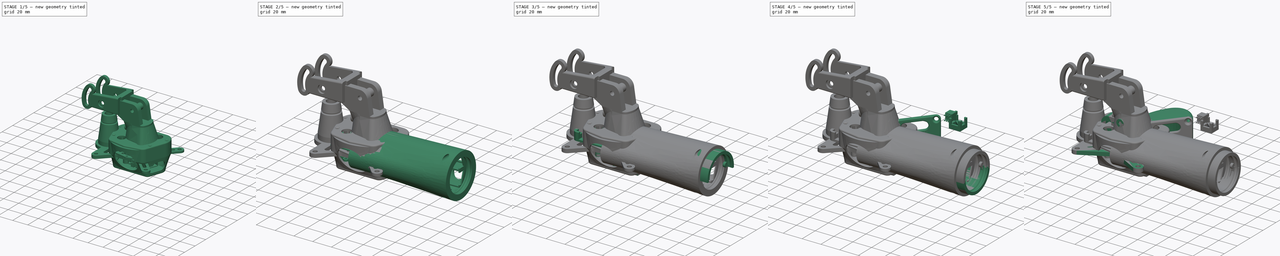
[diagram: build sequence overview — one tinted view per stage of 5, left to right]
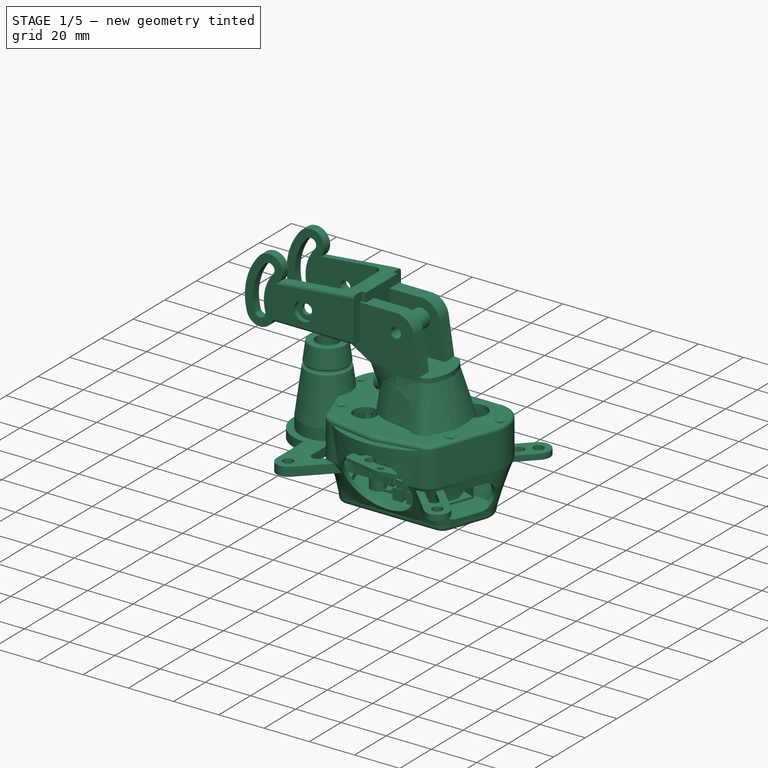
[diagram: stage 1 of 5 — iso view after this stage's code; geometry added in this stage tinted green]
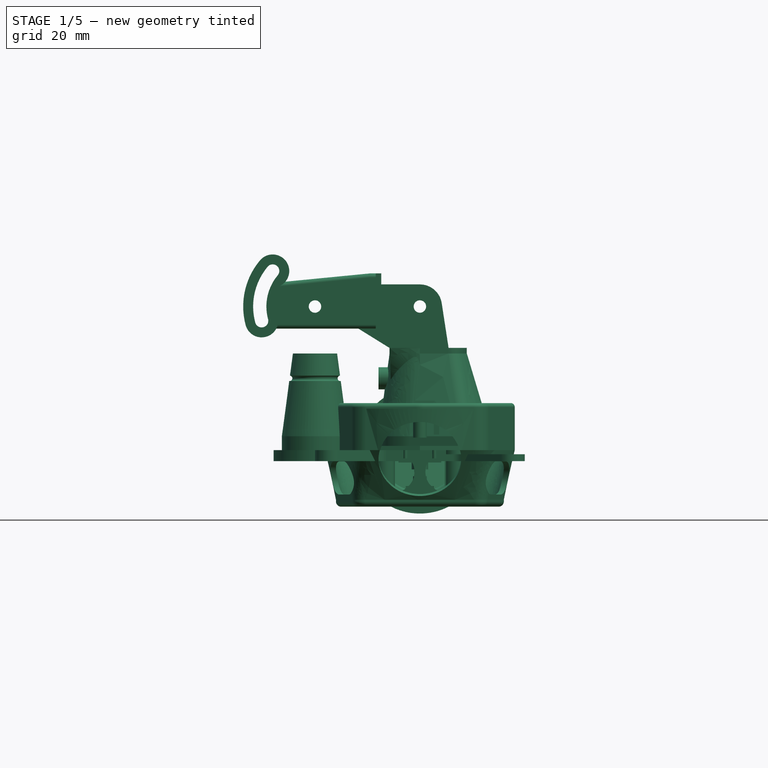
[diagram: stage 1 of 5 — front view after this stage's code; geometry added in this stage tinted green]
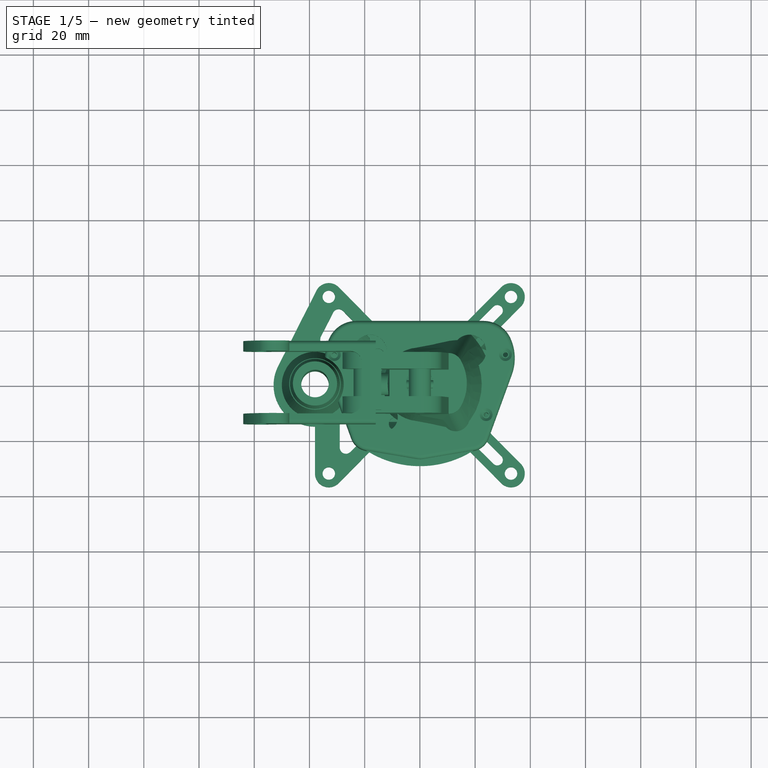
[diagram: stage 1 of 5 — top view after this stage's code; geometry added in this stage tinted green]
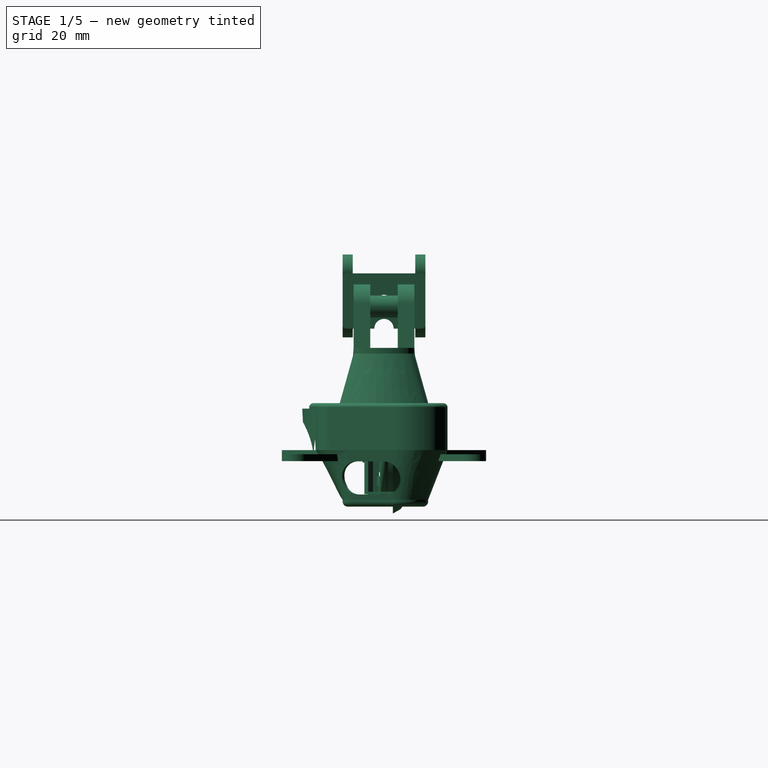
[diagram: stage 1 of 5 — right view after this stage's code; geometry added in this stage tinted green]
FCSTD DOCUMENT  (FreeCAD 0.20R29603 (Git))
Label: MMHOTAS Throttle Lever
License: All rights reserved
LicenseURL: http://en.wikipedia.org/wiki/All_rights_reserved
objects: Sketcher::SketchObject×215, PartDesign::Body×151, PartDesign::Pad×116, PartDesign::Pocket×63, PartDesign::FeatureBase×60, PartDesign::SubtractiveCylinder×33, App::Part×21, PartDesign::Mirrored×16, PartDesign::AdditiveCylinder×15, PartDesign::Fillet×15, PartDesign::PolarPattern×10, PartDesign::AdditiveLoft×10, App::DocumentObjectGroup×9, PartDesign::Revolution×7, PartDesign::AdditiveBox×6, PartDesign::AdditiveCone×5, PartDesign::SubtractiveTorus×5, PartDesign::Boolean×5, PartDesign::LinearPattern×4, PartDesign::SubtractiveCone×4, +11 more types
note: 1057 computed .brp shape members not serialized (recipe doc carries the construction recipe); baked Part::Feature solids carry a one-line shape summary decoded from their .brp

FEATURE [PartDesign::Body] Body065  label="lbpm bottom buttons"
  BaseFeature = -> Body054
  Group = -> [Clone010]
  Origin = -> Origin083
  Placement = pos=(18.5,36,0) rot=(0,0,-1;1.74533rad)
  Tip = -> Clone010
FEATURE [Sketcher::SketchObject] Sketch087  label="hbb skectch"
  FullyConstrained = true
  MapMode = 5
  Support = -> [XY_Plane089]
  sketch-geometry (45):
    g0: LineSegment StartX=-3 StartY=10.8 StartZ=0 EndX=3 EndY=10.8 EndZ=0
    g1: LineSegment StartX=3 StartY=10.8 StartZ=0 EndX=3 EndY=4 EndZ=0
    g2: LineSegment StartX=3 StartY=4 StartZ=0 EndX=-3 EndY=4 EndZ=0
    g3: LineSegment StartX=-3 StartY=4 StartZ=0 EndX=-3 EndY=10.8 EndZ=0
    g4: Circle CenterX=0 CenterY=0 CenterZ=0 NormalX=0 NormalY=0 NormalZ=1 AngleXU=0 Radius=4
    g5: LineSegment StartX=-3 StartY=-4 StartZ=0 EndX=3 EndY=-4 EndZ=0
    g6: LineSegment StartX=3 StartY=-4 StartZ=0 EndX=3 EndY=-10.8 EndZ=0
    g7: LineSegment StartX=3 StartY=-10.8 StartZ=0 EndX=-3 EndY=-10.8 EndZ=0
    g8: LineSegment StartX=-3 StartY=-10.8 StartZ=0 EndX=-3 EndY=-4 EndZ=0
    g9: LineSegment StartX=-4 StartY=-3 StartZ=0 EndX=-10.8 EndY=-3 EndZ=0
    g10: LineSegment StartX=-10.8 StartY=-3 StartZ=0 EndX=-10.8 EndY=3 EndZ=0
    g11: LineSegment StartX=-10.8 StartY=3 StartZ=0 EndX=-4 EndY=3 EndZ=0
    g12: LineSegment StartX=-4 StartY=3 StartZ=0 EndX=-4 EndY=-3 EndZ=0
    g13: LineSegment StartX=4 StartY=3 StartZ=0 EndX=10.8 EndY=3 EndZ=0
    g14: LineSegment StartX=10.8 StartY=3 StartZ=0 EndX=10.8 EndY=-3 EndZ=0
    g15: LineSegment StartX=10.8 StartY=-3 StartZ=0 EndX=4 EndY=-3 EndZ=0
    g16: LineSegment StartX=4 StartY=-3 StartZ=0 EndX=4 EndY=3 EndZ=0
    g17: LineSegment StartX=-11.8 StartY=4 StartZ=0 EndX=-4 EndY=4 EndZ=0
    g18: LineSegment StartX=-4 StartY=4 StartZ=0 EndX=-4 EndY=11.8 EndZ=0
    g19: LineSegment StartX=-4 StartY=11.8 StartZ=0 EndX=4 EndY=11.8 EndZ=0
    g20: LineSegment StartX=4 StartY=11.8 StartZ=0 EndX=4 EndY=4 EndZ=0
    g21: LineSegment StartX=4 StartY=4 StartZ=0 EndX=11.8 EndY=4 EndZ=0
    g22: LineSegment StartX=11.8 StartY=4 StartZ=0 EndX=11.8 EndY=-4 EndZ=0
    g23: LineSegment StartX=11.8 StartY=-4 StartZ=0 EndX=4 EndY=-4 EndZ=0
    g24: LineSegment StartX=4 StartY=-4 StartZ=0 EndX=4 EndY=-11.8 EndZ=0
    g25: LineSegment StartX=4 StartY=-11.8 StartZ=0 EndX=-4 EndY=-11.8 EndZ=0
    g26: LineSegment StartX=-4 StartY=-11.8 StartZ=0 EndX=-4 EndY=-4 EndZ=0
    g27: LineSegment StartX=-4 StartY=-4 StartZ=0 EndX=-11.8 EndY=-4 EndZ=0
    g28: LineSegment StartX=-11.8 StartY=-4 StartZ=0 EndX=-11.8 EndY=4 EndZ=0
    g29: LineSegment StartX=-3 StartY=10.8 StartZ=0 EndX=-3 EndY=11.8 EndZ=0
    g30: LineSegment StartX=-3 StartY=10.8 StartZ=0 EndX=-4 EndY=10.8 EndZ=0
    g31: LineSegment StartX=-10.8 StartY=3 StartZ=0 EndX=-11.8 EndY=3 EndZ=0
    g32: LineSegment StartX=-10.8 StartY=3 StartZ=0 EndX=-10.8 EndY=4 EndZ=0
    g33: LineSegment StartX=-3 StartY=4 StartZ=0 EndX=-2.25 EndY=4 EndZ=0
    g34: LineSegment StartX=-2.25 StartY=4 StartZ=0 EndX=-4 EndY=2.25 EndZ=0
    g35: LineSegment StartX=-4 StartY=2.25 StartZ=0 EndX=-4 EndY=3 EndZ=0
    g36: LineSegment StartX=-4 StartY=-3 StartZ=0 EndX=-4 EndY=-2.25 EndZ=0
    g37: LineSegment StartX=-4 StartY=-2.25 StartZ=0 EndX=-2.25 EndY=-4 EndZ=0
    g38: LineSegment StartX=-2.25 StartY=-4 StartZ=0 EndX=-3 EndY=-4 EndZ=0
    g39: LineSegment StartX=4 StartY=-3 StartZ=0 EndX=4 EndY=-2.25 EndZ=0
    g40: LineSegment StartX=4 StartY=-2.25 StartZ=0 EndX=2.25 EndY=-4 EndZ=0
    g41: LineSegment StartX=2.25 StartY=-4 StartZ=0 EndX=3 EndY=-4 EndZ=0
    g42: LineSegment StartX=3 StartY=4 StartZ=0 EndX=2.25 EndY=4 EndZ=0
    g43: LineSegment StartX=2.25 StartY=4 StartZ=0 EndX=4 EndY=2.25 EndZ=0
    g44: LineSegment StartX=4 StartY=2.25 StartZ=0 EndX=4 EndY=3 EndZ=0
  constraints (121):
    c: Coincident(g0,g1)
    c: Coincident(g1,g2)
    c: Coincident(g2,g3)
    c: Coincident(g3,g0)
    c: Horizontal(g0)
    c: Vertical(g1)
    c: Vertical(g3)
    c: Symmetric(g2,g1,g-2)
    c: DistanceX(g0,g0) = 6
    c: DistanceY(g1,g1) = 6.8
    c: Coincident(g4,g-1)
    c: Radius(g4) = 4
    c: Tangent(g2,g4)
    c: Coincident(g5,g6)
    c: Coincident(g6,g7)
    c: Coincident(g7,g8)
    c: Coincident(g8,g5)
    c: Horizontal(g7)
    c: Vertical(g6)
    c: Vertical(g8)
    c: Tangent(g4,g5)
    c: Equal(g2,g5)
    c: Equal(g6,g1)
    c: Symmetric(g5,g5,g-2)
    c: Coincident(g9,g10)
    c: Coincident(g10,g11)
    c: Coincident(g11,g12)
    c: Coincident(g12,g9)
    c: Horizontal(g9)
    c: Horizontal(g11)
    c: Vertical(g10)
    c: Tangent(g12,g4)
    c: Symmetric(g11,g9,g-1)
    c: Equal(g12,g2)
    c: Equal(g3,g11)
    c: Coincident(g13,g14)
    c: Coincident(g14,g15)
    c: Coincident(g15,g16)
    c: Coincident(g16,g13)
    c: Horizontal(g13)
    c: Horizontal(g15)
    c: Vertical(g14)
    c: Tangent(g16,g4)
    c: Symmetric(g13,g15,g-1)
    c: Equal(g13,g11)
    c: Equal(g14,g10)
    c: Horizontal(g17)
    c: Coincident(g17,g18)
    c: Vertical(g18)
    c: Coincident(g18,g19)
    c: Horizontal(g19)
    c: Coincident(g19,g20)
    c: Vertical(g20)
    c: Coincident(g20,g21)
    c: Horizontal(g21)
    c: Coincident(g21,g22)
    c: Vertical(g22)
    c: Coincident(g22,g23)
    c: Coincident(g23,g24)
    c: Coincident(g24,g25)
    c: Horizontal(g25)
    c: Coincident(g25,g26)
    c: Vertical(g26)
    c: Coincident(g26,g27)
    c: Horizontal(g27)
    c: Coincident(g27,g28)
    c: Coincident(g28,g17)
    c: Vertical(g28)
    c: Symmetric(g17,g23,g4)
    c: Symmetric(g17,g20,g-2)
    c: Symmetric(g26,g17,g-1)
    c: Symmetric(g17,g22,g4)
    c: Symmetric(g18,g24,g4)
    c: Coincident(g29,g0)
    c: PointOnObject(g29,g19)
    c: Vertical(g29)
    c: Coincident(g30,g0)
    c: PointOnObject(g30,g18)
    c: Horizontal(g30)
    c: Equal(g29,g30)
    c: Coincident(g31,g10)
    c: PointOnObject(g31,g28)
    c: Horizontal(g31)
    c: Coincident(g32,g10)
    c: PointOnObject(g32,g17)
    c: Vertical(g32)
    c: Equal(g29,g32)
    c: Equal(g32,g31)
    c: DistanceY(g29,g29) = 1
    c: Coincident(g3,g33)
    c: PointOnObject(g33,g2)
    c: Coincident(g33,g34)
    c: PointOnObject(g34,g12)
    c: Coincident(g34,g35)
    c: Coincident(g35,g11)
    c: Coincident(g9,g36)
    c: PointOnObject(g36,g12)
    c: Coincident(g36,g37)
    c: PointOnObject(g37,g5)
    c: Coincident(g37,g38)
    c: Coincident(g38,g8)
    c: Coincident(g15,g39)
    c: PointOnObject(g39,g16)
    c: Coincident(g39,g40)
    c: Coincident(g40,g41)
    c: Coincident(g41,g6)
    c: Horizontal(g41)
    c: Coincident(g1,g42)
    c: PointOnObject(g42,g2)
    c: Coincident(g42,g43)
    c: Coincident(g43,g44)
    c: Coincident(g44,g13)
    c: Vertical(g44)
    c: Equal(g33,g42)
    c: Equal(g42,g44)
    c: Equal(g44,g39)
    c: Equal(g39,g41)
    c: Equal(g41,g38)
    c: Equal(g38,g36)
    c: Equal(g36,g35)
    c: DistanceY(g35,g35) = 0.75
FEATURE [PartDesign::Pad] Pad052  label="hbb base"
  Direction = (0,0,1)
  Length = 15
  Length2 = 10
  Profile = -> Sketch087
  ReferenceAxis = -> Sketch087 [N_Axis]
  Type = 0
FEATURE [PartDesign::SubtractiveBox] Box006  label="hbb side notch"
  AttacherType = Attacher::AttachEngine3D
  AttachmentOffset = pos=(-2,2,0) rot=(0,0,1;0rad)
  BaseFeature = -> Pad052
  Height = 12
  Length = 4
  MapMode = 5
  Placement = pos=(-2,-4e-16,2) rot=(1,0,0;1.5708rad)
  Support = -> [XZ_Plane089]
  Width = 15
FEATURE [PartDesign::PolarPattern] PolarPattern021  label="hbb side notches"
  Angle = 360
  Axis = -> Z_Axis089
  BaseFeature = -> Box006
  Occurrences = 4
  Originals = -> [Box006]
  Placement = pos=(-2,0,2) rot=(1,0,0;1.5708rad)
FEATURE [Sketcher::SketchObject] Sketch088  label="hbb sk bottom"
  ExternalGeometry = -> [PolarPattern021]
  FullyConstrained = true
  MapMode = 5
  Support = -> [XY_Plane089]
  sketch-geometry (12):
    g0: LineSegment StartX=-4 StartY=11.8 StartZ=0 EndX=-4 EndY=4 EndZ=0
    g1: LineSegment StartX=-4 StartY=4 StartZ=0 EndX=-11.8 EndY=4 EndZ=0
    g2: LineSegment StartX=-11.8 StartY=4 StartZ=0 EndX=-11.8 EndY=-4 EndZ=0
    g3: LineSegment StartX=-11.8 StartY=-4 StartZ=0 EndX=-4 EndY=-4 EndZ=0
    g4: LineSegment StartX=-4 StartY=-4 StartZ=0 EndX=-4 EndY=-11.8 EndZ=0
    g5: LineSegment StartX=-4 StartY=-11.8 StartZ=0 EndX=4 EndY=-11.8 EndZ=0
    g6: LineSegment StartX=4 StartY=-11.8 StartZ=0 EndX=4 EndY=-4 EndZ=0
    g7: LineSegment StartX=4 StartY=-4 StartZ=0 EndX=11.8 EndY=-4 EndZ=0
    g8: LineSegment StartX=11.8 StartY=-4 StartZ=0 EndX=11.8 EndY=4 EndZ=0
    g9: LineSegment StartX=11.8 StartY=4 StartZ=0 EndX=4 EndY=4 EndZ=0
    g10: LineSegment StartX=4 StartY=4 StartZ=0 EndX=4 EndY=11.8 EndZ=0
    g11: LineSegment StartX=4 StartY=11.8 StartZ=0 EndX=-4 EndY=11.8 EndZ=0
  constraints (25):
    c: Coincident(g-7,g0)
    c: Coincident(g0,g-8)
    c: Coincident(g0,g1)
    c: Coincident(g1,g-8)
    c: Coincident(g1,g2)
    c: Coincident(g2,g-9)
    c: Coincident(g2,g3)
    c: Coincident(g3,g-10)
    c: Coincident(g3,g4)
    c: Coincident(g4,g-10)
    c: Coincident(g4,g5)
    c: Coincident(g5,g-11)
    c: Coincident(g5,g6)
    c: PointOnObject(g6,g-11)
    c: Coincident(g6,g7)
    c: Coincident(g7,g-12)
    c: Horizontal(g7)
    c: Coincident(g7,g8)
    c: Coincident(g8,g-13)
    c: Coincident(g8,g9)
    c: Coincident(g9,g-14)
    c: Coincident(g9,g10)
    c: Coincident(g10,g-14)
    c: Coincident(g10,g11)
    c: Coincident(g11,g0)
FEATURE [PartDesign::Pad] Pad053  label="hbb bottom"
  BaseFeature = -> PolarPattern021
  Direction = (0,0,1)
  Length = 2
  Length2 = 10
  Placement = pos=(-2,0,2) rot=(1,0,0;1.5708rad)
  Profile = -> Sketch088
  ReferenceAxis = -> Sketch088 [N_Axis]
  Type = 0
FEATURE [PartDesign::Body] Body122  label="Cable Mount"
  Group = -> [Sketch145,Pad085,Sketch146,Pocket035]
  Origin = -> Origin149
  Tip = -> Pocket035
FEATURE [App::DocumentObjectGroup] Group001  label="HOTAS Thrust Lever"
  Group = -> [Part004,Part005,Part007,Part008,Part009,Body036,Part010,Part011,Part013,Part014,Part017,Part021,Body044,Part022,Body119,Body120,Body121,Body122]
FEATURE [PartDesign::AdditiveBox] Box017  label="cms base"
  AttacherType = Attacher::AttachEngine3D
  AttachmentOffset = pos=(-7,-7,0) rot=(0,0,1;0rad)
  Height = 4.5
  Length = 14
  MapMode = 5
  Placement = pos=(7,-7,0) rot=(0,1,0;3.14159rad)
  Support = -> [XY_Plane156]
  Width = 14
FEATURE [PartDesign::AdditiveCylinder] Cylinder095  label="cms bolt"
  Angle = 360
  AttacherType = Attacher::AttachEngine3D
  BaseFeature = -> Box017
  FirstAngle = 0
  Height = 8
  MapMode = 5
  Placement = pos=(0,0,0) rot=(0,1,0;3.14159rad)
  Radius = 2
  SecondAngle = 0
  Support = -> [XY_Plane156]
FEATURE [Sketcher::SketchObject] Sketch154  label="cms sk frame"
  ExternalGeometry = -> [Cylinder095]
  FullyConstrained = true
  MapMode = 5
  Support = -> [XY_Plane156]
  sketch-geometry (24):
    g0: LineSegment StartX=-7.75 StartY=5.75 StartZ=0 EndX=-7.75 EndY=7.75 EndZ=0
    g1: LineSegment StartX=-7.75 StartY=7.75 StartZ=0 EndX=-2.75 EndY=7.75 EndZ=0
    g2: LineSegment StartX=-2.75 StartY=7.75 StartZ=0 EndX=-2.75 EndY=7 EndZ=0
    g3: LineSegment StartX=-2.75 StartY=7 StartZ=0 EndX=2.75 EndY=7 EndZ=0
    g4: LineSegment StartX=2.75 StartY=7 StartZ=0 EndX=2.75 EndY=7.75 EndZ=0
    g5: LineSegment StartX=2.75 StartY=7.75 StartZ=0 EndX=7.75 EndY=7.75 EndZ=0
    g6: LineSegment StartX=7.75 StartY=7.75 StartZ=0 EndX=7.75 EndY=5.75 EndZ=0
    g7: LineSegment StartX=7.75 StartY=5.75 StartZ=0 EndX=7 EndY=5.75 EndZ=0
    g8: LineSegment StartX=7 StartY=5.75 StartZ=0 EndX=7 EndY=-5.75 EndZ=0
    g9: LineSegment StartX=7 StartY=-5.75 StartZ=0 EndX=7.75 EndY=-5.75 EndZ=0
    g10: LineSegment StartX=7.75 StartY=-5.75 StartZ=0 EndX=7.75 EndY=-7.75 EndZ=0
    g11: LineSegment StartX=7.75 StartY=-7.75 StartZ=0 EndX=2.75 EndY=-7.75 EndZ=0
    g12: LineSegment StartX=2.75 StartY=-7.75 StartZ=0 EndX=2.75 EndY=-7 EndZ=0
    g13: LineSegment StartX=2.75 StartY=-7 StartZ=0 EndX=-2.75 EndY=-7 EndZ=0
    g14: LineSegment StartX=-2.75 StartY=-7 StartZ=0 EndX=-2.75 EndY=-7.75 EndZ=0
    g15: LineSegment StartX=-2.75 StartY=-7.75 StartZ=0 EndX=-7.75 EndY=-7.75 EndZ=0
    g16: LineSegment StartX=-7.75 StartY=-7.75 StartZ=0 EndX=-7.75 EndY=-5.75 EndZ=0
    g17: LineSegment StartX=-7.75 StartY=-5.75 StartZ=0 EndX=-7 EndY=-5.75 EndZ=0
    g18: LineSegment StartX=-7 StartY=-5.75 StartZ=0 EndX=-7 EndY=5.75 EndZ=0
    g19: LineSegment StartX=-7 StartY=5.75 StartZ=0 EndX=-7.75 EndY=5.75 EndZ=0
    g20: LineSegment StartX=-7.75 StartY=5.75 StartZ=0 EndX=-7.75 EndY=-5.75 EndZ=0
    g21: LineSegment StartX=-2.75 StartY=-7.75 StartZ=0 EndX=2.75 EndY=-7.75 EndZ=0
    g22: LineSegment StartX=7.75 StartY=5.75 StartZ=0 EndX=7.75 EndY=-5.75 EndZ=0
    g23: LineSegment StartX=-2.75 StartY=7.75 StartZ=0 EndX=2.75 EndY=7.75 EndZ=0
  constraints (60):
    c: Vertical(g0)
    c: Coincident(g0,g1)
    c: Horizontal(g1)
    c: Coincident(g1,g2)
    c: Vertical(g2)
    c: Coincident(g2,g3)
    c: Coincident(g3,g4)
    c: Vertical(g4)
    c: Coincident(g4,g5)
    c: Horizontal(g5)
    c: Coincident(g5,g6)
    c: Vertical(g6)
    c: Coincident(g6,g7)
    c: Horizontal(g7)
    c: Coincident(g7,g8)
    c: Coincident(g8,g9)
    c: Horizontal(g9)
    c: Coincident(g9,g10)
    c: Vertical(g10)
    c: Coincident(g10,g11)
    c: Horizontal(g11)
    c: Coincident(g11,g12)
    c: Vertical(g12)
    c: Coincident(g12,g13)
    c: Coincident(g13,g14)
    c: Vertical(g14)
    c: Coincident(g14,g15)
    c: Horizontal(g15)
    c: Coincident(g15,g16)
    c: Vertical(g16)
    c: Coincident(g16,g17)
    c: Coincident(g17,g18)
    c: Coincident(g18,g19)
    c: Coincident(g19,g0)
    c: Horizontal(g19)
    c: Horizontal(g17)
    c: Coincident(g20,g0)
    c: Coincident(g20,g16)
    c: Vertical(g20)
    c: Coincident(g21,g14)
    c: Coincident(g21,g11)
    c: Horizontal(g21)
    c: Coincident(g22,g6)
    c: Coincident(g22,g9)
    c: Coincident(g23,g1)
    c: Coincident(g23,g4)
    c: Symmetric(g5,g15,g-1)
    c: Symmetric(g0,g10,g-1)
    c: DistanceY(g10,g5) = 15.5
    c: DistanceX(g0,g5) = 15.5
    c: Symmetric(g18,g7,g-2)
    c: Symmetric(g17,g8,g-2)
    c: Symmetric(g2,g13,g-1)
    c: Symmetric(g12,g3,g-1)
    c: Symmetric(g18,g17,g-1)
    c: Symmetric(g2,g3,g-2)
    c: PointOnObject(g2,g-3)
    c: PointOnObject(g18,g-5)
    c: DistanceY(g16,g16) = 2
    c: DistanceX(g15,g15) = 5
FEATURE [PartDesign::Pad] Pad089  label="cms frame"
  BaseFeature = -> Cylinder095
  Direction = (0,0,1)
  Length = 1
  Length2 = 10
  Placement = pos=(0,0,0) rot=(0,1,0;3.14159rad)
  Profile = -> Sketch154
  ReferenceAxis = -> Sketch154 [N_Axis]
  Type = 0
FEATURE [Sketcher::SketchObject] Sketch155  label="cms sk top bottom"
  FullyConstrained = true
  MapMode = 5
  Support = -> [XY_Plane156]
  sketch-geometry (4):
    g0: LineSegment StartX=-7.25 StartY=7.25 StartZ=0 EndX=7.25 EndY=7.25 EndZ=0
    g1: LineSegment StartX=7.25 StartY=7.25 StartZ=0 EndX=7.25 EndY=-7.25 EndZ=0
    g2: LineSegment StartX=7.25 StartY=-7.25 StartZ=0 EndX=-7.25 EndY=-7.25 EndZ=0
    g3: LineSegment StartX=-7.25 StartY=-7.25 StartZ=0 EndX=-7.25 EndY=7.25 EndZ=0
  constraints (11):
    c: Coincident(g0,g1)
    c: Coincident(g1,g2)
    c: Coincident(g2,g3)
    c: Coincident(g3,g0)
    c: Horizontal(g0)
    c: Horizontal(g2)
    c: Vertical(g1)
    c: Vertical(g3)
    c: Symmetric(g0,g2,g-1)
    c: DistanceY(g1,g1) = 14.5
    c: Equal(g1,g0)
FEATURE [Sketcher::SketchObject] Sketch156  label="cms sk top top"
  AttachmentOffset = pos=(0,0,6) rot=(0,0,1;0rad)
  FullyConstrained = true
  MapMode = 5
  Placement = pos=(0,0,6) rot=(0,0,1;0rad)
  Support = -> [XY_Plane156]
  sketch-geometry (4):
    g0: LineSegment StartX=-5.5 StartY=5.5 StartZ=0 EndX=5.5 EndY=5.5 EndZ=0
    g1: LineSegment StartX=5.5 StartY=5.5 StartZ=0 EndX=5.5 EndY=-5.5 EndZ=0
    g2: LineSegment StartX=5.5 StartY=-5.5 StartZ=0 EndX=-5.5 EndY=-5.5 EndZ=0
    g3: LineSegment StartX=-5.5 StartY=-5.5 StartZ=0 EndX=-5.5 EndY=5.5 EndZ=0
  constraints (11):
    c: Coincident(g0,g1)
    c: Coincident(g1,g2)
    c: Coincident(g2,g3)
    c: Coincident(g3,g0)
    c: Horizontal(g0)
    c: Horizontal(g2)
    c: Vertical(g1)
    c: Vertical(g3)
    c: Symmetric(g0,g1,g-1)
    c: DistanceY(g1,g1) = 11
    c: Equal(g1,g0)
FEATURE [PartDesign::AdditiveLoft] AdditiveLoft002  label="cms top"
  BaseFeature = -> Pad089
  Closed = false
  Placement = pos=(0,0,0) rot=(0,1,0;3.14159rad)
  Profile = -> Sketch155
  Ruled = false
  Sections = -> [Sketch156]
FEATURE [Sketcher::SketchObject] Sketch157  label="cms sk cap mount"
  FullyConstrained = true
  MapMode = 5
  Support = -> [XY_Plane156]
  sketch-geometry (17):
    g0: LineSegment StartX=-0.6 StartY=1.90788 StartZ=0 EndX=0.6 EndY=1.90788 EndZ=0
    g1: LineSegment StartX=0.6 StartY=1.90788 StartZ=0 EndX=0.6 EndY=0.6 EndZ=0
    g2: LineSegment StartX=0.6 StartY=0.6 StartZ=0 EndX=1.90788 EndY=0.6 EndZ=0
    g3: LineSegment StartX=1.90788 StartY=0.6 StartZ=0 EndX=1.90788 EndY=-0.6 EndZ=0
    g4: LineSegment StartX=1.90788 StartY=-0.6 StartZ=0 EndX=0.6 EndY=-0.6 EndZ=0
    g5: LineSegment StartX=0.6 StartY=-0.6 StartZ=0 EndX=0.6 EndY=-1.90788 EndZ=0
    g6: LineSegment StartX=0.6 StartY=-1.90788 StartZ=0 EndX=-0.6 EndY=-1.90788 EndZ=0
    g7: LineSegment StartX=-0.6 StartY=-1.90788 StartZ=0 EndX=-0.6 EndY=-0.6 EndZ=0
    g8: LineSegment StartX=-0.6 StartY=-0.6 StartZ=0 EndX=-1.90788 EndY=-0.6 EndZ=0
    g9: LineSegment StartX=-1.90788 StartY=-0.6 StartZ=0 EndX=-1.90788 EndY=0.6 EndZ=0
    g10: LineSegment StartX=-1.90788 StartY=0.6 StartZ=0 EndX=-0.6 EndY=0.6 EndZ=0
    g11: LineSegment StartX=-0.6 StartY=0.6 StartZ=0 EndX=-0.6 EndY=1.90788 EndZ=0
    g12: LineSegment StartX=-0.6 StartY=0.6 StartZ=0 EndX=-0.6 EndY=-0.6 EndZ=0
    g13: LineSegment StartX=0.6 StartY=0.6 StartZ=0 EndX=0.6 EndY=-0.6 EndZ=0
    g14: LineSegment StartX=0.6 StartY=-0.6 StartZ=0 EndX=-0.6 EndY=-0.6 EndZ=0
    g15: LineSegment StartX=0.6 StartY=0.6 StartZ=0 EndX=-0.6 EndY=0.6 EndZ=0
    g16: Circle CenterX=0 CenterY=0 CenterZ=0 NormalX=0 NormalY=0 NormalZ=1 AngleXU=0 Radius=2
  constraints (45):
    c: Horizontal(g0)
    c: Coincident(g0,g1)
    c: Vertical(g1)
    c: Coincident(g1,g2)
    c: Horizontal(g2)
    c: Coincident(g2,g3)
    c: Vertical(g3)
    c: Coincident(g3,g4)
    c: Horizontal(g4)
    c: Coincident(g4,g5)
    c: Vertical(g5)
    c: Coincident(g5,g6)
    c: Horizontal(g6)
    c: Coincident(g6,g7)
    c: Vertical(g7)
    c: Coincident(g7,g8)
    c: Horizontal(g8)
    c: Coincident(g8,g9)
    c: Vertical(g9)
    c: Coincident(g9,g10)
    c: Horizontal(g10)
    c: Coincident(g10,g11)
    c: Coincident(g11,g0)
    c: Vertical(g11)
    c: Coincident(g12,g10)
    c: Coincident(g12,g7)
    c: Vertical(g12)
    c: Coincident(g13,g1)
    c: Coincident(g13,g4)
    c: Vertical(g13)
    c: Coincident(g14,g4)
    c: Coincident(g14,g7)
    c: Horizontal(g14)
    c: Coincident(g15,g1)
    c: Coincident(g15,g10)
    c: Horizontal(g15)
    c: Equal(g3,g0)
    c: DistanceY(g3,g3) = 1.2
    c: Symmetric(g4,g10,g-1)
    c: Coincident(g16,g-1)
    c: PointOnObject(g0,g16)
    c: PointOnObject(g3,g16)
    c: PointOnObject(g6,g16)
    c: PointOnObject(g9,g16)
    c: Radius(g16) = 2
FEATURE [PartDesign::Pad] Pad090  label="cms cap mount"
  BaseFeature = -> AdditiveLoft002
  Direction = (0,0,1)
  Length = 9
  Length2 = 10
  Placement = pos=(0,0,0) rot=(0,1,0;3.14159rad)
  Profile = -> Sketch157
  ReferenceAxis = -> Sketch157 [N_Axis]
  Type = 0
FEATURE [Sketcher::SketchObject] Sketch158  label="cms sk cap mount edge"
  AttachmentOffset = pos=(0,0,5) rot=(0,0,1;0rad)
  FullyConstrained = true
  MapMode = 5
  Placement = pos=(0,0,5) rot=(0,0,1;0rad)
  Support = -> [XY_Plane156]
  sketch-geometry (4):
    g0: LineSegment StartX=-3.75 StartY=3 StartZ=0 EndX=3.75 EndY=3 EndZ=0
    g1: LineSegment StartX=3.75 StartY=3 StartZ=0 EndX=3.75 EndY=-3 EndZ=0
    g2: LineSegment StartX=3.75 StartY=-3 StartZ=0 EndX=-3.75 EndY=-3 EndZ=0
    g3: LineSegment StartX=-3.75 StartY=-3 StartZ=0 EndX=-3.75 EndY=3 EndZ=0
  constraints (11):
    c: Coincident(g0,g1)
    c: Coincident(g1,g2)
    c: Coincident(g2,g3)
    c: Coincident(g3,g0)
    c: Horizontal(g0)
    c: Horizontal(g2)
    c: Vertical(g1)
    c: Vertical(g3)
    c: Symmetric(g0,g1,g-1)
    c: DistanceX(g0,g0) = 7.5
    c: DistanceY(g1,g1) = 6
FEATURE [PartDesign::Pad] Pad092  label="cms cap mount edge"
  BaseFeature = -> Pad090
  Direction = (0,0,1)
  Length = 1
  Length2 = 10
  Placement = pos=(0,0,0) rot=(0,1,0;3.14159rad)
  Profile = -> Sketch158
  ReferenceAxis = -> Sketch158 [N_Axis]
  Type = 0
FEATURE [PartDesign::Body] Body159  label="Lever Connector Board in V2"
  BaseFeature = -> Body116
  Group = -> [Clone050]
  Origin = -> Origin193
  Placement = pos=(42,-7,48) rot=(-0.983662,-0.03435,0.176717;0.390191rad)
  Tip = -> Clone050
FEATURE [App::DocumentObjectGroup] Group009  label="Boards"
  Group = -> [Body116,Body008,Body159]
FEATURE [Sketcher::SketchObject] Sketch208  label="cmcb sk mount001"
  FullyConstrained = true
  MapMode = 5
  Support = -> [XY_Plane202]
  sketch-geometry (29):
    g0: LineSegment StartX=-1.9799 StartY=0.7 StartZ=0 EndX=-0.7 EndY=0.7 EndZ=0
    g1: LineSegment StartX=-0.7 StartY=0.7 StartZ=0 EndX=-0.7 EndY=1.9799 EndZ=0
    g2: LineSegment StartX=-0.7 StartY=1.9799 StartZ=0 EndX=0.7 EndY=1.9799 EndZ=0
    g3: LineSegment StartX=0.7 StartY=1.9799 StartZ=0 EndX=0.7 EndY=0.7 EndZ=0
    g4: LineSegment StartX=0.7 StartY=0.7 StartZ=0 EndX=1.9799 EndY=0.7 EndZ=0
    g5: LineSegment StartX=1.9799 StartY=0.7 StartZ=0 EndX=1.9799 EndY=-0.7 EndZ=0
    g6: LineSegment StartX=1.9799 StartY=-0.7 StartZ=0 EndX=0.7 EndY=-0.7 EndZ=0
    g7: LineSegment StartX=0.7 StartY=-0.7 StartZ=0 EndX=0.7 EndY=-1.9799 EndZ=0
    g8: LineSegment StartX=0.7 StartY=-1.9799 StartZ=0 EndX=-0.7 EndY=-1.9799 EndZ=0
    g9: LineSegment StartX=-0.7 StartY=-1.9799 StartZ=0 EndX=-0.7 EndY=-0.7 EndZ=0
    g10: LineSegment StartX=-0.7 StartY=-0.7 StartZ=0 EndX=-1.9799 EndY=-0.7 EndZ=0
    g11: LineSegment StartX=-1.9799 StartY=-0.7 StartZ=0 EndX=-1.9799 EndY=0.7 EndZ=0
    g12: Circle CenterX=0 CenterY=0 CenterZ=0 NormalX=0 NormalY=0 NormalZ=1 AngleXU=0 Radius=2.1
    g13: ArcOfCircle CenterX=0 CenterY=0 CenterZ=0 NormalX=0 NormalY=0 NormalZ=1 AngleXU=0 Radius=2.5 StartAngle=2.73008 EndAngle=3.55311
    g14: LineSegment StartX=-3 StartY=2.5 StartZ=0 EndX=3 EndY=2.5 EndZ=0
    g15: LineSegment StartX=-3 StartY=-2.5 StartZ=0 EndX=3 EndY=-2.5 EndZ=0
    g16: LineSegment StartX=-3 StartY=2.5 StartZ=0 EndX=-3 EndY=1 EndZ=0
    g17: LineSegment StartX=3 StartY=2.5 StartZ=0 EndX=3 EndY=1 EndZ=0
    g18: LineSegment StartX=3 StartY=-2.5 StartZ=0 EndX=3 EndY=-1 EndZ=0
    g19: LineSegment StartX=-3 StartY=-2.5 StartZ=0 EndX=-3 EndY=-1 EndZ=0
    g20: LineSegment StartX=-3 StartY=-1 StartZ=0 EndX=-2.29129 EndY=-1 EndZ=0
    g21: LineSegment StartX=3 StartY=-1 StartZ=0 EndX=2.29129 EndY=-1 EndZ=0
    g22: LineSegment StartX=-3 StartY=1 StartZ=0 EndX=-2.29129 EndY=1 EndZ=0
    g23: LineSegment StartX=3 StartY=1 StartZ=0 EndX=2.29129 EndY=1 EndZ=0
    g24: LineSegment StartX=-3 StartY=1 StartZ=0 EndX=-3 EndY=-1 EndZ=0
    g25: LineSegment StartX=3 StartY=1 StartZ=0 EndX=3 EndY=-1 EndZ=0
    g26: ArcOfCircle CenterX=0 CenterY=0 CenterZ=0 NormalX=0 NormalY=0 NormalZ=1 AngleXU=0 Radius=2.5 StartAngle=5.87167 EndAngle=6.6947
    g27: LineSegment StartX=-2.29129 StartY=1 StartZ=0 EndX=2.29129 EndY=1 EndZ=0
    g28: LineSegment StartX=2.29129 StartY=-1 StartZ=0 EndX=-2.29129 EndY=-1 EndZ=0
  constraints (76):
    c: Horizontal(g0)
    c: Coincident(g0,g1)
    c: Vertical(g1)
    c: Coincident(g1,g2)
    c: Horizontal(g2)
    c: Coincident(g2,g3)
    c: Vertical(g3)
    c: Coincident(g3,g4)
    c: Horizontal(g4)
    c: Coincident(g4,g5)
    c: Vertical(g5)
    c: Coincident(g5,g6)
    c: Horizontal(g6)
    c: Coincident(g6,g7)
    c: Vertical(g7)
    c: Coincident(g7,g8)
    c: Horizontal(g8)
    c: Coincident(g8,g9)
    c: Vertical(g9)
    c: Coincident(g9,g10)
    c: Horizontal(g10)
    c: Coincident(g10,g11)
    c: Coincident(g11,g0)
    c: Vertical(g11)
    c: Symmetric(g3,g0,g-2)
    c: Symmetric(g6,g9,g-2)
    c: Symmetric(g3,g6,g-1)
    c: Equal(g5,g2)
    c: Coincident(g12,g-1)
    c: Radius(g12) = 2.1
    c: PointOnObject(g2,g12)
    c: PointOnObject(g5,g12)
    c: PointOnObject(g8,g12)
    c: PointOnObject(g0,g12)
    c: DistanceY(g11,g11) = 1.4
    c: Coincident(g13,g12)
    c: Radius(g13) = 2.5
    c: Horizontal(g15)
    c: Coincident(g16,g14)
    c: Vertical(g16)
    c: Coincident(g17,g14)
    c: Vertical(g17)
    c: Coincident(g18,g15)
    c: Vertical(g18)
    c: Coincident(g19,g15)
    c: Vertical(g19)
    c: Coincident(g20,g19)
    c: Horizontal(g20)
    c: Coincident(g21,g18)
    c: Horizontal(g21)
    c: Coincident(g22,g16)
    c: Horizontal(g22)
    c: Coincident(g23,g17)
    c: Horizontal(g23)
    c: Coincident(g24,g16)
    c: Coincident(g24,g19)
    c: Coincident(g25,g17)
    c: Coincident(g25,g18)
    c: Coincident(g13,g22)
    c: Coincident(g26,g23)
    c: Equal(g13,g26)
    c: Coincident(g26,g21)
    c: Coincident(g13,g26)
    c: Coincident(g13,g20)
    c: Symmetric(g14,g14,g-2)
    c: DistanceX(g14,g14) = 6
    c: Symmetric(g14,g15,g-1)
    c: DistanceY(g15,g14) = 5
    c: Coincident(g27,g13)
    c: Horizontal(g27)
    c: Coincident(g28,g21)
    c: Coincident(g28,g13)
    c: Horizontal(g28)
    c: DistanceY(g17,g17) = 1.5
    c: Coincident(g27,g23)
    c: Symmetric(g18,g17,g-1)
FEATURE [PartDesign::Pad] Pad112  label="cmcb mount001"
  Direction = (0,0,1)
  Length = 3
  Length2 = 10
  Profile = -> Sketch208
  ReferenceAxis = -> Sketch208 [N_Axis]
  Type = 0
FEATURE [PartDesign::Body] Body180  label="Lever Button Bridge  v2"
  Group = -> [Sketch236,Pad123]
  Origin = -> Origin215
  Placement = pos=(75.2,1.5,54) rot=(0,0,1;0.034907rad)
  Tip = -> Pad123
FEATURE [Sketcher::SketchObject] Sketch159  label="cmmb sk frame"
  FullyConstrained = true
  MapMode = 5
  Support = -> [XY_Plane157]
  sketch-geometry (8):
    g0: LineSegment StartX=-7.1 StartY=7.1 StartZ=0 EndX=7.1 EndY=7.1 EndZ=0
    g1: LineSegment StartX=7.1 StartY=7.1 StartZ=0 EndX=7.1 EndY=-7.1 EndZ=0
    g2: LineSegment StartX=7.1 StartY=-7.1 StartZ=0 EndX=-7.1 EndY=-7.1 EndZ=0
    g3: LineSegment StartX=-7.1 StartY=-7.1 StartZ=0 EndX=-7.1 EndY=7.1 EndZ=0
    g4: LineSegment StartX=-7.75 StartY=7.75 StartZ=0 EndX=7.75 EndY=7.75 EndZ=0
    g5: LineSegment StartX=7.75 StartY=7.75 StartZ=0 EndX=7.75 EndY=-7.75 EndZ=0
    g6: LineSegment StartX=7.75 StartY=-7.75 StartZ=0 EndX=-7.75 EndY=-7.75 EndZ=0
    g7: LineSegment StartX=-7.75 StartY=-7.75 StartZ=0 EndX=-7.75 EndY=7.75 EndZ=0
  constraints (22):
    c: Coincident(g0,g1)
    c: Coincident(g1,g2)
    c: Coincident(g2,g3)
    c: Coincident(g3,g0)
    c: Horizontal(g0)
    c: Horizontal(g2)
    c: Vertical(g1)
    c: Vertical(g3)
    c: Symmetric(g0,g1,g-1)
    c: Equal(g1,g0)
    c: DistanceY(g1,g1) = 14.2
    c: Coincident(g4,g5)
    c: Coincident(g5,g6)
    c: Coincident(g6,g7)
    c: Coincident(g7,g4)
    c: Horizontal(g4)
    c: Horizontal(g6)
    c: Vertical(g5)
    c: Vertical(g7)
    c: Symmetric(g4,g6,g-1)
    c: Equal(g5,g4)
    c: DistanceY(g5,g5) = 15.5
FEATURE [PartDesign::Pad] Pad091  label="cmmb frame"
  Direction = (0,0,1)
  Length = 4.5
  Length2 = 10
  Profile = -> Sketch159
  ReferenceAxis = -> Sketch159 [N_Axis]
  Reversed = true
  Type = 0
FEATURE [Sketcher::SketchObject] Sketch160  label="cmmb sk notch"
  FullyConstrained = true
  MapMode = 5
  Placement = pos=(0,0,0) rot=(0.57735,0.57735,0.57735;2.0944rad)
  Support = -> [YZ_Plane157]
  sketch-geometry (4):
    g0: LineSegment StartX=-2.5 StartY=-1.5 StartZ=0 EndX=2.5 EndY=-1.5 EndZ=0
    g1: LineSegment StartX=2.5 StartY=-1.5 StartZ=0 EndX=2.5 EndY=-5 EndZ=0
    g2: LineSegment StartX=2.5 StartY=-5 StartZ=0 EndX=-2.5 EndY=-5 EndZ=0
    g3: LineSegment StartX=-2.5 StartY=-5 StartZ=0 EndX=-2.5 EndY=-1.5 EndZ=0
  constraints (11):
    c: Coincident(g0,g1)
    c: Coincident(g1,g2)
    c: Coincident(g2,g3)
    c: Coincident(g3,g0)
    c: Horizontal(g2)
    c: Vertical(g1)
    c: Vertical(g3)
    c: Symmetric(g0,g0,g-2)
    c: DistanceY(g0,g-1) = 1.5
    c: DistanceY(g1,g1) = 3.5
    c: DistanceX(g2,g2) = 5
FEATURE [PartDesign::Pocket] Pocket038  label="cmmb notch"
  BaseFeature = -> Pad091
  Direction = (-1,2e-16,-3e-16)
  Length = 5
  Length2 = 5
  Midplane = true
  Profile = -> Sketch160
  ReferenceAxis = -> Sketch160 [N_Axis]
  Type = 1
FEATURE [PartDesign::Body] Body181006  label="lbpmv2 hat mount"
  BaseFeature = -> Body070
  Group = -> [Clone055]
  Origin = -> Origin222
  Tip = -> Clone055
FEATURE [PartDesign::FeatureBase] Clone056
  BaseFeature = -> Body128
FEATURE [PartDesign::Body] Body181007  label="lbpmv2 mount top front"
  BaseFeature = -> Body128
  Group = -> [Clone056]
  Origin = -> Origin223
  Placement = pos=(-13,-12,4.5) rot=(0,0,1;1.5708rad)
  Tip = -> Clone056
FEATURE [PartDesign::FeatureBase] Clone057
  BaseFeature = -> Body128
FEATURE [PartDesign::Body] Body181008  label="lbpmv2 mount bottom front"
  BaseFeature = -> Body128
  Group = -> [Clone057]
  Origin = -> Origin224
  Placement = pos=(13,-12,4.5) rot=(0,0,1;1.5708rad)
  Tip = -> Clone057
FEATURE [PartDesign::FeatureBase] Clone058
  BaseFeature = -> Body128
FEATURE [PartDesign::Body] Body181009  label="lbpmv2 mount top back"
  BaseFeature = -> Body128
  Group = -> [Clone058]
  Origin = -> Origin225
  Placement = pos=(-18,12,4.5) rot=(0,0,1;1.5708rad)
  Tip = -> Clone058
FEATURE [PartDesign::FeatureBase] Clone059
  BaseFeature = -> Body128
FEATURE [PartDesign::Body] Body181010  label="lbpmv2 mount bottom back"
  BaseFeature = -> Body128
  Group = -> [Clone059]
  Origin = -> Origin226
  Placement = pos=(18,12,4.5) rot=(0,0,1;1.5708rad)
  Tip = -> Clone059
FEATURE [Sketcher::SketchObject] Sketch242  label="lbpmv2c sk base"
  FullyConstrained = true
  MapMode = 5
  Support = -> [XY_Plane227]
  sketch-geometry (64):
    g0: Circle CenterX=-21 CenterY=0 CenterZ=0 NormalX=0 NormalY=0 NormalZ=1 AngleXU=0 Radius=1.25
    g1: Circle CenterX=21 CenterY=0 CenterZ=0 NormalX=0 NormalY=0 NormalZ=1 AngleXU=0 Radius=1.25
    g2: Circle CenterX=-7 CenterY=16 CenterZ=0 NormalX=0 NormalY=0 NormalZ=1 AngleXU=0 Radius=1.25
    g3: Circle CenterX=7 CenterY=16 CenterZ=0 NormalX=0 NormalY=0 NormalZ=1 AngleXU=0 Radius=1.25
    g4: LineSegment StartX=-5.6 StartY=-19.5 StartZ=0 EndX=5.6 EndY=-19.5 EndZ=0
    g5: Circle CenterX=0 CenterY=-20.75 CenterZ=0 NormalX=0 NormalY=0 NormalZ=1 AngleXU=0 Radius=1.25
    g6: LineSegment StartX=-20.4 StartY=-4.6 StartZ=0 EndX=-20.4 EndY=-18 EndZ=0
    g7: LineSegment StartX=20.4 StartY=-4.6 StartZ=0 EndX=20.4 EndY=-18 EndZ=0
    g8: LineSegment StartX=-5.6 StartY=-19.5 StartZ=0 EndX=-19 EndY=-19.5 EndZ=0
    g9: LineSegment StartX=-19 StartY=-19.5 StartZ=0 EndX=0 EndY=-23.25 EndZ=0
    g10: LineSegment StartX=0 StartY=-23.25 StartZ=0 EndX=19 EndY=-19.5 EndZ=0
    g11: LineSegment StartX=-5.6 StartY=-4.6 StartZ=0 EndX=-5.6 EndY=-19.5 EndZ=0
    g12: LineSegment StartX=5.6 StartY=-4.6 StartZ=0 EndX=5.6 EndY=-19.5 EndZ=0
    g13: LineSegment StartX=-10.5 StartY=19.6 StartZ=0 EndX=-10.5 EndY=4.6 EndZ=0
    g14: LineSegment StartX=10.5 StartY=19.6 StartZ=0 EndX=10.5 EndY=4.6 EndZ=0
    g15: LineSegment StartX=19 StartY=-19.5 StartZ=0 EndX=5.6 EndY=-19.5 EndZ=0
    g16: LineSegment StartX=-18.1661 StartY=3.4 StartZ=0 EndX=-3.66606 EndY=3.4 EndZ=0
    g17: LineSegment StartX=18.1661 StartY=3.4 StartZ=0 EndX=18.1661 EndY=-3.4 EndZ=0
    g18: LineSegment StartX=18.1661 StartY=-3.4 StartZ=0 EndX=3.66606 EndY=-3.4 EndZ=0
    g19: LineSegment StartX=-18.1661 StartY=-3.4 StartZ=0 EndX=-18.1661 EndY=3.4 EndZ=0
    g20: LineSegment StartX=-3.4 StartY=18.1661 StartZ=0 EndX=3.4 EndY=18.1661 EndZ=0
    g21: LineSegment StartX=3.4 StartY=18.1661 StartZ=0 EndX=3.4 EndY=3.66606 EndZ=0
    g22: LineSegment StartX=3.4 StartY=-18.1661 StartZ=0 EndX=-3.4 EndY=-18.1661 EndZ=0
    g23: LineSegment StartX=-3.4 StartY=-18.1661 StartZ=0 EndX=-3.4 EndY=-3.66606 EndZ=0
    g24: LineSegment StartX=-3.4 StartY=3.66606 StartZ=0 EndX=-3.4 EndY=18.1661 EndZ=0
    g25: LineSegment StartX=3.4 StartY=-3.66606 StartZ=0 EndX=3.4 EndY=-18.1661 EndZ=0
    g26: LineSegment StartX=3.66606 StartY=3.4 StartZ=0 EndX=18.1661 EndY=3.4 EndZ=0
    g27: LineSegment StartX=-3.66606 StartY=-3.4 StartZ=0 EndX=-18.1661 EndY=-3.4 EndZ=0
    g28: LineSegment StartX=-9 StartY=13 StartZ=0 EndX=-5 EndY=13 EndZ=0
    g29: LineSegment StartX=-5 StartY=13 StartZ=0 EndX=-5 EndY=5 EndZ=0
    g30: LineSegment StartX=-5 StartY=5 StartZ=0 EndX=-9 EndY=5 EndZ=0
    g31: LineSegment StartX=-9 StartY=5 StartZ=0 EndX=-9 EndY=13 EndZ=0
    g32: LineSegment StartX=5 StartY=13 StartZ=0 EndX=9 EndY=13 EndZ=0
    g33: LineSegment StartX=9 StartY=13 StartZ=0 EndX=9 EndY=5 EndZ=0
    g34: LineSegment StartX=9 StartY=5 StartZ=0 EndX=5 EndY=5 EndZ=0
    g35: LineSegment StartX=5 StartY=5 StartZ=0 EndX=5 EndY=13 EndZ=0
    g36: LineSegment StartX=-5 StartY=5 StartZ=0 EndX=5 EndY=5 EndZ=0
    g37: LineSegment StartX=3.66606 StartY=3.4 StartZ=0 EndX=3.4 EndY=3.66606 EndZ=0
    g38: LineSegment StartX=3.4 StartY=3.66606 StartZ=0 EndX=-3.4 EndY=3.66606 EndZ=0
    g39: LineSegment StartX=-3.4 StartY=3.66606 StartZ=0 EndX=-3.66606 EndY=3.4 EndZ=0
    g40: LineSegment StartX=-3.66606 StartY=3.4 StartZ=0 EndX=-3.66606 EndY=-3.4 EndZ=0
    g41: LineSegment StartX=-3.66606 StartY=-3.4 StartZ=0 EndX=-3.4 EndY=-3.66606 EndZ=0
    g42: LineSegment StartX=-3.4 StartY=-3.66606 StartZ=0 EndX=3.4 EndY=-3.66606 EndZ=0
    g43: LineSegment StartX=3.4 StartY=-3.66606 StartZ=0 EndX=3.66606 EndY=-3.4 EndZ=0
    g44: LineSegment StartX=3.66606 StartY=-3.4 StartZ=0 EndX=3.66606 EndY=3.4 EndZ=0
    g45: Circle CenterX=0 CenterY=0 CenterZ=0 NormalX=0 NormalY=0 NormalZ=1 AngleXU=0 Radius=5
    g46: LineSegment StartX=-5.6 StartY=-4.6 StartZ=0 EndX=5.6 EndY=-4.6 EndZ=0
    g47: LineSegment StartX=-20.4 StartY=-4.6 StartZ=0 EndX=-5.6 EndY=-4.6 EndZ=0
    g48: LineSegment StartX=5.6 StartY=-4.6 StartZ=0 EndX=20.4 EndY=-4.6 EndZ=0
    g49: LineSegment StartX=10.5 StartY=4.6 StartZ=0 EndX=25.5 EndY=4.6 EndZ=0
    g50: LineSegment StartX=-25.5 StartY=4.6 StartZ=0 EndX=-10.5 EndY=4.6 EndZ=0
    g51: LineSegment StartX=-10.5 StartY=4.6 StartZ=0 EndX=10.5 EndY=4.6 EndZ=0
    g52: LineSegment StartX=-10.5 StartY=19.6 StartZ=0 EndX=-22.5 EndY=19.6 EndZ=0
    g53: LineSegment StartX=10.5 StartY=19.6 StartZ=0 EndX=22.5 EndY=19.6 EndZ=0
    g54: LineSegment StartX=-10.5 StartY=19.6 StartZ=0 EndX=10.5 EndY=19.6 EndZ=0
    g55: LineSegment StartX=-10.5 StartY=20.6 StartZ=0 EndX=10.5 EndY=20.6 EndZ=0
    g56: LineSegment StartX=-10.5 StartY=20.6 StartZ=0 EndX=-10.5 EndY=19.6 EndZ=0
    g57: LineSegment StartX=10.5 StartY=20.6 StartZ=0 EndX=10.5 EndY=19.6 EndZ=0
    g58: LineSegment StartX=-10.5 StartY=20.6 StartZ=0 EndX=-22.5 EndY=19.6 EndZ=0
    g59: LineSegment StartX=10.5 StartY=20.6 StartZ=0 EndX=22.5 EndY=19.6 EndZ=0
    g60: LineSegment StartX=-25.5 StartY=4.6 StartZ=0 EndX=-21 EndY=-9 EndZ=0
    g61: LineSegment StartX=-21 StartY=-9 StartZ=0 EndX=-20.4 EndY=-18 EndZ=0
    g62: LineSegment StartX=25.5 StartY=4.6 StartZ=0 EndX=21 EndY=-9 EndZ=0
    g63: LineSegment StartX=21 StartY=-9 StartZ=0 EndX=20.4 EndY=-18 EndZ=0
  constraints (167):
    c: Symmetric(g13,g14,g-2)
    c: Symmetric(g50,g49,g-2)
    c: Symmetric(g7,g6,g-2)
    c: Symmetric(g4,g4,g-2)
    c: DistanceX(g4,g4) = 11.2
    c: DistanceY(g13,g13) = 15
    c: PointOnObject(g0,g-1)
    c: Radius(g0) = 1.25
    c: Equal(g1,g0)
    c: Symmetric(g0,g1,g-1)
    c: DistanceX(g0,g1) = 42
    c: DistanceX(g50,g49) = 51
    c: DistanceY(g4,g11) = 14.9
    c: Symmetric(g2,g3,g-2)
    c: Equal(g3,g2)
    c: Equal(g2,g0)
    c: DistanceX(g2,g3) = 14
    c: DistanceY(g3,g14) = 3.6
    c: PointOnObject(g5,g-2)
    c: Equal(g5,g1)
    c: Vertical(g6)
    c: Horizontal(g8)
    c: PointOnObject(g9,g-2)
    c: Coincident(g9,g10)
    c: Coincident(g11,g8)
    c: Vertical(g11)
    c: Coincident(g12,g15)
    c: Vertical(g12)
    c: Vertical(g13)
    c: Vertical(g14)
    c: Coincident(g4,g8)
    c: Coincident(g15,g4)
    c: Symmetric(g9,g10,g-2)
    c: Symmetric(g6,g7,g-2)
    c: Tangent(g5,g4)
    c: DistanceY(g9,g5) = 2.5
    c: DistanceX(g6,g7) = 40.8
    c: Coincident(g26,g17)
    c: Coincident(g17,g18)
    c: Coincident(g27,g19)
    c: Coincident(g19,g16)
    c: Horizontal(g16)
    c: Horizontal(g18)
    c: Vertical(g17)
    c: Vertical(g19)
    c: Coincident(g20,g21)
    c: Coincident(g25,g22)
    c: Coincident(g22,g23)
    c: Coincident(g24,g20)
    c: Horizontal(g20)
    c: Horizontal(g22)
    c: Vertical(g21)
    c: Vertical(g23)
    c: Vertical(g24)
    c: Horizontal(g26)
    c: Horizontal(g27)
    c: Vertical(g25)
    c: Coincident(g28,g29)
    c: Coincident(g29,g30)
    c: Coincident(g30,g31)
    c: Coincident(g31,g28)
    c: Horizontal(g28)
    c: Horizontal(g30)
    c: Vertical(g29)
    c: Vertical(g31)
    c: Coincident(g32,g33)
    c: Coincident(g33,g34)
    c: Coincident(g34,g35)
    c: Coincident(g35,g32)
    c: Horizontal(g32)
    c: Horizontal(g34)
    c: Vertical(g33)
    c: Vertical(g35)
    c: Symmetric(g28,g32,g-2)
    c: Coincident(g36,g29)
    c: Coincident(g36,g34)
    c: Symmetric(g33,g30,g-2)
    c: DistanceY(g31,g31) = 8
    c: DistanceX(g28,g32) = 10
    c: DistanceX(g32,g32) = 4
    c: Coincident(g37,g38)
    c: Coincident(g38,g39)
    c: Coincident(g40,g41)
    c: Coincident(g41,g42)
    c: Coincident(g42,g43)
    c: Coincident(g43,g44)
    c: Coincident(g44,g37)
    c: PointOnObject(g37,g45)
    c: PointOnObject(g38,g45)
    c: PointOnObject(g39,g45)
    c: PointOnObject(g40,g45)
    c: PointOnObject(g41,g45)
    c: PointOnObject(g42,g45)
    c: PointOnObject(g43,g45)
    c: Coincident(g45,g-1)
    c: Vertical(g44)
    c: Radius(g45) = 5
    c: PointOnObject(g26,g45)
    c: Coincident(g18,g43)
    c: Coincident(g21,g37)
    c: Coincident(g24,g39)
    c: Coincident(g23,g41)
    c: Coincident(g16,g39)
    c: Coincident(g16,g40)
    c: Coincident(g25,g43)
    c: Coincident(g27,g41)
    c: Coincident(g37,g26)
    c: Equal(g24,g26)
    c: Equal(g26,g27)
    c: Equal(g27,g25)
    c: Coincident(g10,g15)
    c: Coincident(g8,g9)
    c: DistanceX(g8,g10) = 38
    c: Equal(g38,g44)
    c: Equal(g44,g42)
    c: Equal(g42,g40)
    c: Equal(g39,g37)
    c: Equal(g37,g43)
    c: Equal(g43,g41)
    c: DistanceY(g17,g17) = 6.8
    c: Coincident(g46,g11)
    c: Horizontal(g46)
    c: Coincident(g47,g6)
    c: Coincident(g47,g11)
    c: Horizontal(g47)
    c: Coincident(g48,g12)
    c: Coincident(g48,g7)
    c: DistanceX(g18,g18) = 14.5
    c: DistanceY(g11,g45) = 4.6
    c: Coincident(g46,g12)
    c: DistanceY(g45,g13) = 4.6
    c: Coincident(g49,g14)
    c: Horizontal(g49)
    c: Coincident(g50,g13)
    c: Horizontal(g50)
    c: Coincident(g51,g13)
    c: Coincident(g51,g14)
    c: DistanceY(g28,g2) = 3
    c: Coincident(g52,g13)
    c: Horizontal(g52)
    c: Coincident(g53,g14)
    c: Coincident(g54,g13)
    c: Coincident(g54,g14)
    c: Symmetric(g55,g55,g-2)
    c: Coincident(g56,g55)
    c: Coincident(g56,g13)
    c: Vertical(g56)
    c: Coincident(g57,g55)
    c: Coincident(g57,g14)
    c: DistanceX(g55,g55) = 21
    c: DistanceY(g56,g56) = 1
    c: Coincident(g58,g55)
    c: Coincident(g58,g52)
    c: Coincident(g59,g55)
    c: Coincident(g59,g53)
    c: DistanceX(g52,g53) = 45
    c: Symmetric(g53,g52,g-2)
    c: Coincident(g50,g60)
    c: Coincident(g60,g61)
    c: Coincident(g61,g6)
    c: Coincident(g49,g62)
    c: Coincident(g62,g63)
    c: Coincident(g63,g7)
    c: Symmetric(g60,g62,g-2)
    c: Equal(g6,g8)
    c: DistanceX(g60,g62) = 42
    c: DistanceY(g6,g60) = 9
FEATURE [PartDesign::Pad] Pad127  label="lbpmv2c base"
  Direction = (0,0,1)
  Length = 1.5
  Length2 = 10
  Profile = -> Sketch242
  ReferenceAxis = -> Sketch242 [N_Axis]
  Type = 0
FEATURE [PartDesign::FeatureBase] Clone060
  BaseFeature = -> Body128
FEATURE [PartDesign::Body] Body  label="lsbmv2 top mount"
  BaseFeature = -> Body128
  Group = -> [Clone060]
  Origin = -> Origin228
  Placement = pos=(-18,1,-10) rot=(0.171088,-0.970288,0.171088;1.60095rad)
  Tip = -> Clone060
FEATURE [PartDesign::FeatureBase] Clone061
  BaseFeature = -> Body128
FEATURE [PartDesign::Body] Body181012  label="lsbmv2 bottom mount"
  BaseFeature = -> Body128
  Group = -> [Clone061]
  Origin = -> Origin229
  Placement = pos=(18,1,-10) rot=(0.171088,0.970288,-0.171088;1.60095rad)
  Tip = -> Clone061
FEATURE [Sketcher::SketchObject] Sketch  label="lsbmv2c sk base"
  FullyConstrained = true
  MapMode = 5
  Support = -> [XY_Plane230]
  sketch-geometry (38):
    g0: LineSegment StartX=-9.5 StartY=-4 StartZ=0 EndX=-1 EndY=-4 EndZ=0
    g1: LineSegment StartX=-9.5 StartY=-4 StartZ=0 EndX=-11.1588 EndY=-4.60843 EndZ=0
    g2: LineSegment StartX=9.5 StartY=-4 StartZ=0 EndX=11.1588 EndY=-4.60843 EndZ=0
    g3: LineSegment StartX=1 StartY=-4 StartZ=0 EndX=9.5 EndY=-4 EndZ=0
    g4: LineSegment StartX=-9.5 StartY=-5.5 StartZ=0 EndX=9.5 EndY=-5.5 EndZ=0
    g5: LineSegment StartX=-1 StartY=7.5 StartZ=0 EndX=1 EndY=7.5 EndZ=0
    g6: LineSegment StartX=-15.6 StartY=7.5 StartZ=0 EndX=-1 EndY=7.5 EndZ=0
    g7: LineSegment StartX=1 StartY=7.5 StartZ=0 EndX=15.6 EndY=7.5 EndZ=0
    g8: LineSegment StartX=15 StartY=9 StartZ=0 EndX=-15 EndY=9 EndZ=0
    g9: ArcOfCircle CenterX=-17.6429 CenterY=7.5 CenterZ=0 NormalX=0 NormalY=0 NormalZ=1 AngleXU=0 Radius=3.03886 StartAngle=0.516231 EndAngle=2.90916
    g10: ArcOfCircle CenterX=17.6429 CenterY=7.5 CenterZ=0 NormalX=0 NormalY=0 NormalZ=1 AngleXU=0 Radius=3.03886 StartAngle=0.232437 EndAngle=2.62536
    g11: LineSegment StartX=-17.6429 StartY=7.5 StartZ=0 EndX=-15.6 EndY=7.5 EndZ=0
    g12: LineSegment StartX=9.5 StartY=-4 StartZ=0 EndX=9.5 EndY=-5.5 EndZ=0
    g13: ArcOfCircle CenterX=-12.7718 CenterY=-3 CenterZ=0 NormalX=0 NormalY=0 NormalZ=1 AngleXU=0 Radius=4.11758 StartAngle=4.05126 EndAngle=5.63071
    g14: ArcOfCircle CenterX=12.7718 CenterY=-3 CenterZ=0 NormalX=0 NormalY=0 NormalZ=1 AngleXU=0 Radius=4.11758 StartAngle=3.79407 EndAngle=5.37352
    g15: LineSegment StartX=-12.7718 StartY=-3 StartZ=0 EndX=12.7718 EndY=-3 EndZ=0
    g16: LineSegment StartX=-20.6 StartY=8.2 StartZ=0 EndX=-15.3 EndY=-6.25 EndZ=0
    g17: LineSegment StartX=-15.6 StartY=7.5 StartZ=0 EndX=-14.6703 EndY=4.96513 EndZ=0
    g18: LineSegment StartX=-17.4868 StartY=3.93208 StartZ=0 EndX=-15.6971 EndY=-0.947278 EndZ=0
    g19: LineSegment StartX=-12.8806 StartY=0.0857724 StartZ=0 EndX=-11.1588 EndY=-4.60843 EndZ=0
    g20: LineSegment StartX=-14.6703 StartY=4.96513 StartZ=0 EndX=-17.4868 EndY=3.93208 EndZ=0
    g21: LineSegment StartX=-15.6971 StartY=-0.947278 StartZ=0 EndX=-12.8806 EndY=0.0857724 EndZ=0
    g22: LineSegment StartX=-14.6703 StartY=4.96513 StartZ=0 EndX=-12.8806 EndY=0.0857724 EndZ=0
    g23: LineSegment StartX=-1 StartY=7.5 StartZ=0 EndX=-1 EndY=4.57843 EndZ=0
    g24: LineSegment StartX=1 StartY=7.5 StartZ=0 EndX=1 EndY=4.57843 EndZ=0
    g25: LineSegment StartX=15.6 StartY=7.5 StartZ=0 EndX=14.6703 EndY=4.96513 EndZ=0
    g26: LineSegment StartX=20.6 StartY=8.2 StartZ=0 EndX=15.3 EndY=-6.25 EndZ=0
    g27: LineSegment StartX=14.6703 StartY=4.96513 StartZ=0 EndX=17.4868 EndY=3.93208 EndZ=0
    g28: LineSegment StartX=17.4868 StartY=3.93208 StartZ=0 EndX=15.6971 EndY=-0.947278 EndZ=0
    g29: LineSegment StartX=15.6971 StartY=-0.947278 StartZ=0 EndX=12.8806 EndY=0.0857724 EndZ=0
    g30: LineSegment StartX=12.8806 StartY=0.0857724 StartZ=0 EndX=11.1588 EndY=-4.60843 EndZ=0
    g31: ArcOfCircle CenterX=0 CenterY=1.75 CenterZ=0 NormalX=0 NormalY=0 NormalZ=1 AngleXU=0 Radius=3 StartAngle=1.91063 EndAngle=4.37255
    g32: LineSegment StartX=-1 StartY=-1.07843 StartZ=0 EndX=-1 EndY=-4 EndZ=0
    g33: LineSegment StartX=1 StartY=-1.07843 StartZ=0 EndX=1 EndY=-4 EndZ=0
    g34: ArcOfCircle CenterX=0 CenterY=1.75 CenterZ=0 NormalX=0 NormalY=0 NormalZ=1 AngleXU=0 Radius=3 StartAngle=5.05223 EndAngle=7.51414
    g35: LineSegment StartX=-1 StartY=4.57843 StartZ=0 EndX=-1 EndY=-1.07843 EndZ=0
    g36: LineSegment StartX=1 StartY=4.57843 StartZ=0 EndX=1 EndY=-1.07843 EndZ=0
    g37: Circle CenterX=0 CenterY=1.75 CenterZ=0 NormalX=0 NormalY=0 NormalZ=1 AngleXU=0 Radius=1.3
  constraints (101):
    c: DistanceX(g13,g14) = 30.6
    c: Symmetric(g0,g3,g-2)
    c: Coincident(g1,g0)
    c: Coincident(g2,g3)
    c: DistanceX(g0,g3) = 19
    c: Symmetric(g0,g3,g-2)
    c: Horizontal(g0)
    c: DistanceY(g14,g2) = 2.25
    c: DistanceY(g3,g-1) = 4
    c: Symmetric(g4,g4,g-2)
    c: DistanceY(g4,g0) = 1.5
    c: Horizontal(g5)
    c: DistanceX(g5,g5) = 2
    c: DistanceY(g-1,g5) = 7.5
    c: Horizontal(g6)
    c: Symmetric(g6,g7,g-2)
    c: DistanceY(g6,g8) = 1.5
    c: DistanceX(g6,g7) = 31.2
    c: Coincident(g9,g8)
    c: DistanceY(g0,g9) = 12.2
    c: Coincident(g10,g8)
    c: Symmetric(g10,g9,g-2)
    c: DistanceX(g9,g10) = 41.2
    c: Symmetric(g8,g8,g-2)
    c: DistanceX(g8,g8) = 30
    c: Equal(g9,g10)
    c: Coincident(g11,g9)
    c: Horizontal(g11)
    c: Coincident(g12,g2)
    c: Coincident(g12,g4)
    c: Vertical(g12)
    c: Coincident(g13,g4)
    c: Coincident(g14,g4)
    c: Coincident(g15,g13)
    c: Coincident(g15,g14)
    c: Horizontal(g15)
    c: DistanceY(g2,g14) = 1
    c: Coincident(g16,g13)
    c: Coincident(g17,g6)
    c: Parallel(g19,g17)
    c: Parallel(g17,g16)
    c: Coincident(g20,g17)
    c: Coincident(g20,g18)
    c: Perpendicular(g20,g17)
    c: Coincident(g21,g18)
    c: Coincident(g21,g19)
    c: Perpendicular(g21,g19)
    c: Coincident(g1,g19)
    c: Perpendicular(g1,g19)
    c: Coincident(g16,g9)
    c: Parallel(g18,g16)
    c: Coincident(g22,g17)
    c: Coincident(g22,g19)
    c: Parallel(g17,g22)
    c: Distance(g20) = 3
    c: Distance(g17) = 2.7
    c: Distance(g19) = 5
    c: Coincident(g11,g6)
    c: Coincident(g6,g5)
    c: Coincident(g5,g7)
    c: Coincident(g23,g6)
    c: Coincident(g32,g0)
    c: Vertical(g23)
    c: Coincident(g24,g7)
    c: Coincident(g33,g3)
    c: Vertical(g24)
    c: Coincident(g25,g7)
    c: Symmetric(g25,g17,g-2)
    c: Coincident(g26,g10)
    c: Coincident(g26,g14)
    c: Coincident(g27,g25)
    c: Coincident(g28,g27)
    c: Coincident(g29,g28)
    c: Symmetric(g18,g27,g-2)
    c: Symmetric(g19,g29,g-2)
    c: Perpendicular(g28,g27)
    c: Perpendicular(g29,g28)
    c: Coincident(g30,g29)
    c: Coincident(g2,g30)
    c: Perpendicular(g2,g30)
    c: Symmetric(g13,g14,g-2)
    c: Parallel(g30,g26)
    c: PointOnObject(g31,g-2)
    c: Coincident(g34,g24)
    c: Coincident(g31,g23)
    c: Equal(g31,g34)
    c: Coincident(g31,g32)
    c: Coincident(g34,g33)
    c: Coincident(g31,g34)
    c: Radius(g34) = 3
    c: Vertical(g32)
    c: Coincident(g35,g23)
    c: Coincident(g35,g31)
    c: Vertical(g35)
    c: Coincident(g36,g24)
    c: Coincident(g36,g33)
    c: Vertical(g36)
    c: Vertical(g33)
    c: Equal(g23,g32)
    c: Coincident(g37,g31)
    c: Radius(g37) = 1.3
FEATURE [PartDesign::Pad] Pad  label="lsbmv2 base"
  Direction = (0,0,1)
  Length = 16
  Length2 = 10
  Profile = -> Sketch
  ReferenceAxis = -> Sketch [N_Axis]
  Reversed = true
  Type = 0
FEATURE [Sketcher::SketchObject] Sketch244  label="lsbmv2 sk front holes"
  AttachmentOffset = pos=(0,-8,4) rot=(0,0,1;0rad)
  FullyConstrained = true
  MapMode = 5
  Placement = pos=(0,-4,-8) rot=(1,0,0;1.5708rad)
  Support = -> [XZ_Plane230]
  sketch-geometry (8):
    g0: ArcOfCircle CenterX=-9 CenterY=0 CenterZ=0 NormalX=0 NormalY=0 NormalZ=1 AngleXU=0 Radius=7.1 StartAngle=4.71239 EndAngle=7.85398
    g1: LineSegment StartX=-9 StartY=7.1 StartZ=0 EndX=-9 EndY=0 EndZ=0
    g2: LineSegment StartX=-9 StartY=0 StartZ=0 EndX=-9 EndY=-7.1 EndZ=0
    g3: ArcOfCircle CenterX=9 CenterY=0 CenterZ=0 NormalX=0 NormalY=0 NormalZ=1 AngleXU=0 Radius=7.1 StartAngle=1.5708 EndAngle=4.71239
    g4: LineSegment StartX=9 StartY=7.1 StartZ=0 EndX=9 EndY=0 EndZ=0
    g5: LineSegment StartX=9 StartY=-7.1 StartZ=0 EndX=9 EndY=0 EndZ=0
    g6: LineSegment StartX=-9 StartY=7.1 StartZ=0 EndX=-9 EndY=-7.1 EndZ=0
    g7: LineSegment StartX=9 StartY=7.1 StartZ=0 EndX=9 EndY=-7.1 EndZ=0
  constraints (21):
    c: PointOnObject(g0,g-1)
    c: Coincident(g1,g0)
    c: Coincident(g1,g0)
    c: Vertical(g1)
    c: Coincident(g2,g0)
    c: Coincident(g2,g0)
    c: Vertical(g2)
    c: Radius(g0) = 7.1
    c: DistanceX(g0,g-1) = 9
    c: Coincident(g4,g3)
    c: Coincident(g4,g3)
    c: Vertical(g4)
    c: Coincident(g5,g3)
    c: Coincident(g5,g3)
    c: Vertical(g5)
    c: Symmetric(g3,g0,g-2)
    c: Equal(g3,g0)
    c: Coincident(g6,g0)
    c: Coincident(g6,g0)
    c: Coincident(g7,g3)
    c: Coincident(g7,g3)
FEATURE [PartDesign::Pocket] Pocket065  label="lsbmv2 front holes"
  BaseFeature = -> Pad
  Direction = (0,1,2e-16)
  Length = 3
  Length2 = 5
  Midplane = true
  Profile = -> Sketch244
  ReferenceAxis = -> Sketch244 [N_Axis]
  Type = 0
FEATURE [Sketcher::SketchObject] Sketch246  label="lsbmv2 sk back holes"
  AttachmentOffset = pos=(0,-8,-7) rot=(0,0,1;0rad)
  FullyConstrained = true
  MapMode = 5
  Placement = pos=(0,7,-8) rot=(1,0,0;1.5708rad)
  Support = -> [XZ_Plane230]
  sketch-geometry (12):
    g0: LineSegment StartX=-15.5 StartY=-7.1 StartZ=0 EndX=-11 EndY=-7.1 EndZ=0
    g1: LineSegment StartX=-11 StartY=-7.1 StartZ=0 EndX=-11 EndY=7.1 EndZ=0
    g2: LineSegment StartX=-11 StartY=7.1 StartZ=0 EndX=-15.5 EndY=7.1 EndZ=0
    g3: LineSegment StartX=-15.5 StartY=7.1 StartZ=0 EndX=-15.5 EndY=-7.1 EndZ=0
    g4: LineSegment StartX=15.5 StartY=-7.1 StartZ=0 EndX=11 EndY=-7.1 EndZ=0
    g5: LineSegment StartX=11 StartY=-7.1 StartZ=0 EndX=11 EndY=7.1 EndZ=0
    g6: LineSegment StartX=11 StartY=7.1 StartZ=0 EndX=15.5 EndY=7.1 EndZ=0
    g7: LineSegment StartX=15.5 StartY=7.1 StartZ=0 EndX=15.5 EndY=-7.1 EndZ=0
    g8: ArcOfCircle CenterX=-9 CenterY=0 CenterZ=0 NormalX=0 NormalY=0 NormalZ=1 AngleXU=0 Radius=7 StartAngle=4.71239 EndAngle=7.85398
    g9: LineSegment StartX=-9 StartY=7 StartZ=0 EndX=-9 EndY=-7 EndZ=0
    g10: ArcOfCircle CenterX=9 CenterY=0 CenterZ=0 NormalX=0 NormalY=0 NormalZ=1 AngleXU=0 Radius=7 StartAngle=1.5708 EndAngle=4.71239
    g11: LineSegment StartX=9 StartY=7 StartZ=0 EndX=9 EndY=-7 EndZ=0
  constraints (34):
    c: Coincident(g0,g1)
    c: Coincident(g1,g2)
    c: Coincident(g2,g3)
    c: Coincident(g3,g0)
    c: Horizontal(g0)
    c: Horizontal(g2)
    c: Vertical(g3)
    c: Symmetric(g1,g0,g-1)
    c: DistanceY(g1,g1) = 14.2
    c: DistanceX(g1,g-1) = 11
    c: DistanceX(g2,g2) = 4.5
    c: Coincident(g4,g5)
    c: Coincident(g5,g6)
    c: Coincident(g6,g7)
    c: Coincident(g7,g4)
    c: Horizontal(g4)
    c: Horizontal(g6)
    c: Vertical(g7)
    c: Equal(g6,g2)
    c: Symmetric(g5,g1,g-2)
    c: Symmetric(g4,g0,g-2)
    c: PointOnObject(g8,g-1)
    c: Coincident(g9,g8)
    c: Coincident(g9,g8)
    c: Vertical(g9)
    c: Radius(g8) = 7
    c: Coincident(g11,g10)
    c: Coincident(g11,g10)
    c: Vertical(g11)
    c: PointOnObject(g10,g11)
    c: PointOnObject(g8,g9)
    c: Equal(g10,g8)
    c: Symmetric(g10,g8,g-2)
    c: DistanceX(g8,g10) = 18
FEATURE [PartDesign::Pocket] Pocket066  label="lsbmv2 back holes"
  BaseFeature = -> Pocket065
  Direction = (0,1,2e-16)
  Length = 2
  Length2 = 5
  Profile = -> Sketch246
  ReferenceAxis = -> Sketch246 [N_Axis]
  Type = 0
FEATURE [Sketcher::SketchObject] Sketch249  label="lbpcv2r sk path"
  FullyConstrained = true
  MapMode = 5
  Placement = pos=(0,0,0) rot=(1,0,0;1.5708rad)
  Support = -> [XZ_Plane233]
  sketch-geometry (1):
    g0: Circle CenterX=0 CenterY=0 CenterZ=0 NormalX=0 NormalY=0 NormalZ=1 AngleXU=0 Radius=16.5
  constraints (2):
    c: Coincident(g0,g-1)
    c: Radius(g0) = 16.5
FEATURE [Sketcher::SketchObject] Sketch250  label="lbpcv2r sk profile"
  FullyConstrained = true
  MapMode = 5
  Placement = pos=(0,0,0) rot=(0.57735,0.57735,0.57735;2.0944rad)
  Support = -> [YZ_Plane233]
  sketch-geometry (7):
    g0: ArcOfCircle CenterX=0 CenterY=16.5 CenterZ=0 NormalX=0 NormalY=0 NormalZ=1 AngleXU=0 Radius=1.5 StartAngle=0 EndAngle=4.71239
    g1: LineSegment StartX=0 StartY=16.5 StartZ=0 EndX=1.5 EndY=16.5 EndZ=0
    g2: LineSegment StartX=1.5 StartY=16.5 StartZ=0 EndX=3.2 EndY=16.5 EndZ=0
    g3: LineSegment StartX=-3e-16 StartY=15 StartZ=0 EndX=6.7 EndY=15 EndZ=0
    g4: LineSegment StartX=6.7 StartY=15 StartZ=0 EndX=6.7 EndY=21 EndZ=0
    g5: LineSegment StartX=6.7 StartY=21 StartZ=0 EndX=3.2 EndY=23 EndZ=0
    g6: LineSegment StartX=3.2 StartY=23 StartZ=0 EndX=3.2 EndY=16.5 EndZ=0
  constraints (21):
    c: PointOnObject(g0,g-2)
    c: PointOnObject(g0,g-2)
    c: DistanceY(g-1,g0) = 16.5
    c: Radius(g0) = 1.5
    c: Coincident(g1,g0)
    c: Coincident(g1,g0)
    c: Horizontal(g1)
    c: Coincident(g2,g0)
    c: Horizontal(g2)
    c: DistanceX(g2,g2) = 1.7
    c: Coincident(g3,g0)
    c: Horizontal(g3)
    c: Coincident(g4,g3)
    c: Vertical(g4)
    c: Coincident(g5,g4)
    c: Coincident(g6,g5)
    c: Coincident(g6,g2)
    c: Vertical(g6)
    c: DistanceY(g-1,g4) = 21
    c: DistanceX(g5,g5) = 3.5
    c: DistanceY(g-1,g5) = 23
FEATURE [PartDesign::AdditivePipe] AdditivePipe002  label="lbpcv2r base"
  AuxilleryCurvelinear = true
  AuxillerySpineTangent = false
  Binormal = (0,0,0)
  Mode = 0
  Placement = pos=(0,0,0) rot=(0.57735,0.57735,0.57735;2.0944rad)
  Profile = -> Sketch250
  Spine = -> Sketch249
  SpineTangent = false
  Transformation = 0
  Transition = 0
FEATURE [Sketcher::SketchObject] Sketch251  label="lbpcv2h sk top profile"
  AttachmentOffset = pos=(0,0,15) rot=(0,0,1;0rad)
  FullyConstrained = true
  MapMode = 5
  Placement = pos=(0,0,15) rot=(0,0,1;0rad)
  Support = -> [XY_Plane234]
  sketch-geometry (58):
    g0: LineSegment StartX=31.4651 StartY=4.54763 StartZ=0 EndX=26.2227 EndY=-9.8557 EndZ=0
    g1: LineSegment StartX=-23 StartY=-18.7101 StartZ=0 EndX=-24.9672 EndY=-13.3053 EndZ=0
    g2: ArcOfCircle CenterX=18.3015 CenterY=-17 CenterZ=0 NormalX=0 NormalY=0 NormalZ=1 AngleXU=0 Radius=5 StartAngle=4.88071 EndAngle=5.93412
    g3: ArcOfCircle CenterX=-18.3015 CenterY=-17 CenterZ=0 NormalX=0 NormalY=0 NormalZ=1 AngleXU=0 Radius=5 StartAngle=3.49066 EndAngle=4.54407
    g4: LineSegment StartX=0 StartY=16 StartZ=0 EndX=31.4651 EndY=4.54763 EndZ=0
    g5: ArcOfCircle CenterX=-17.524 CenterY=9.62178 CenterZ=0 NormalX=0 NormalY=0 NormalZ=1 AngleXU=0 Radius=14.8358 StartAngle=2.69719 EndAngle=2.90771
    g6: ArcOfCircle CenterX=17.524 CenterY=9.62178 CenterZ=0 NormalX=0 NormalY=0 NormalZ=1 AngleXU=0 Radius=14.8358 StartAngle=5.93412 EndAngle=6.21636
    g7: LineSegment StartX=-31.4651 StartY=4.54763 StartZ=0 EndX=31.4651 EndY=4.54763 EndZ=0
    g8: LineSegment StartX=-23 StartY=21 StartZ=0 EndX=23 EndY=21 EndZ=0
    g9: ArcOfCircle CenterX=-23 CenterY=12.2293 CenterZ=0 NormalX=0 NormalY=0 NormalZ=1 AngleXU=0 Radius=8.77071 StartAngle=1.5708 EndAngle=2.69719
    g10: ArcOfCircle CenterX=23 CenterY=12.2293 CenterZ=0 NormalX=0 NormalY=0 NormalZ=1 AngleXU=0 Radius=8.77071 StartAngle=0.444405 EndAngle=1.5708
    g11: LineSegment StartX=-30.9188 StartY=16 StartZ=0 EndX=30.9188 EndY=16 EndZ=0
    g12: LineSegment StartX=-23 StartY=-18.7101 StartZ=0 EndX=23 EndY=-18.7101 EndZ=0
    g13: ArcOfCircle CenterX=0 CenterY=-18.7101 CenterZ=0 NormalX=0 NormalY=0 NormalZ=1 AngleXU=0 Radius=6.38007 StartAngle=4.54407 EndAngle=4.88071
    g14: LineSegment StartX=-19.1392 StartY=-21.9293 StartZ=0 EndX=-1.06883 EndY=-25 EndZ=0
    g15: LineSegment StartX=19.1392 StartY=-21.9293 StartZ=0 EndX=1.06883 EndY=-25 EndZ=0
    g16: ArcOfCircle CenterX=-23 CenterY=12.2293 CenterZ=0 NormalX=0 NormalY=0 NormalZ=1 AngleXU=0 Radius=10.7707 StartAngle=1.5708 EndAngle=2.69719
    g17: ArcOfCircle CenterX=23 CenterY=12.2293 CenterZ=0 NormalX=0 NormalY=0 NormalZ=1 AngleXU=0 Radius=10.7707 StartAngle=0.444405 EndAngle=1.5708
    g18: ArcOfCircle CenterX=17.524 CenterY=9.62178 CenterZ=0 NormalX=0 NormalY=0 NormalZ=1 AngleXU=0 Radius=16.8358 StartAngle=5.93412 EndAngle=6.72759
    g19: ArcOfCircle CenterX=-17.524 CenterY=9.62178 CenterZ=0 NormalX=0 NormalY=0 NormalZ=1 AngleXU=0 Radius=16.8358 StartAngle=2.69719 EndAngle=3.49066
    g20: ArcOfCircle CenterX=18.3015 CenterY=-17 CenterZ=0 NormalX=0 NormalY=0 NormalZ=1 AngleXU=0 Radius=7 StartAngle=4.88071 EndAngle=5.93412
    g21: ArcOfCircle CenterX=-18.3015 CenterY=-17 CenterZ=0 NormalX=0 NormalY=0 NormalZ=1 AngleXU=0 Radius=7 StartAngle=3.49066 EndAngle=4.54407
    g22: ArcOfCircle CenterX=0 CenterY=-18.7101 CenterZ=0 NormalX=0 NormalY=0 NormalZ=1 AngleXU=0 Radius=8.38007 StartAngle=4.54407 EndAngle=4.88071
    g23: LineSegment StartX=-23 StartY=12.2293 StartZ=0 EndX=-23 EndY=23 EndZ=0
    g24: LineSegment StartX=-23 StartY=12.2293 StartZ=0 EndX=-32.7245 EndY=16.8598 EndZ=0
    g25: LineSegment StartX=-17.524 StartY=9.62178 StartZ=0 EndX=-33.3445 EndY=3.86359 EndZ=0
    g26: LineSegment StartX=23 StartY=12.2293 StartZ=0 EndX=23 EndY=23 EndZ=0
    g27: LineSegment StartX=23 StartY=12.2293 StartZ=0 EndX=32.7245 EndY=16.8598 EndZ=0
    g28: LineSegment StartX=17.524 StartY=9.62178 StartZ=0 EndX=33.3445 EndY=3.86359 EndZ=0
    g29: LineSegment StartX=18.3015 StartY=-17 StartZ=0 EndX=19.4742 EndY=-23.9011 EndZ=0
    g30: LineSegment StartX=18.3015 StartY=-17 StartZ=0 EndX=24.8794 EndY=-19.3941 EndZ=0
    g31: LineSegment StartX=-18.3015 StartY=-17 StartZ=0 EndX=-19.4742 EndY=-23.9011 EndZ=0
    g32: LineSegment StartX=-18.3015 StartY=-17 StartZ=0 EndX=-24.8794 EndY=-19.3941 EndZ=0
    g33: LineSegment StartX=0 StartY=-18.7101 StartZ=0 EndX=-1.40389 EndY=-26.9717 EndZ=0
    g34: LineSegment StartX=0 StartY=-18.7101 StartZ=0 EndX=1.40389 EndY=-26.9717 EndZ=0
    g35: LineSegment StartX=-23 StartY=23 StartZ=0 EndX=23 EndY=23 EndZ=0
    g36: LineSegment StartX=33.3445 StartY=3.86359 StartZ=0 EndX=24.8794 EndY=-19.3941 EndZ=0
    g37: LineSegment StartX=19.4742 StartY=-23.9011 StartZ=0 EndX=1.40389 EndY=-26.9717 EndZ=0
    g38: LineSegment StartX=-1.40389 StartY=-26.9717 StartZ=0 EndX=-19.4742 EndY=-23.9011 EndZ=0
    g39: LineSegment StartX=-33.3445 StartY=3.86359 StartZ=0 EndX=-24.8794 EndY=-19.3941 EndZ=0
    g40: LineSegment StartX=0 StartY=-25.0902 StartZ=0 EndX=0 EndY=-27.0902 EndZ=0
    g41: LineSegment StartX=0 StartY=23 StartZ=0 EndX=0 EndY=21 EndZ=0
    g42: ArcOfCircle CenterX=-31 CenterY=10.75 CenterZ=0 NormalX=0 NormalY=0 NormalZ=1 AngleXU=0 Radius=2.5 StartAngle=4.15298 EndAngle=8.24634
    g43: ArcOfCircle CenterX=31 CenterY=10.75 CenterZ=0 NormalX=0 NormalY=0 NormalZ=1 AngleXU=0 Radius=2.5 StartAngle=1.17844 EndAngle=5.2718
    g44: ArcOfCircle CenterX=-17.524 CenterY=9.62178 CenterZ=0 NormalX=0 NormalY=0 NormalZ=1 AngleXU=0 Radius=14.8358 StartAngle=3.20842 EndAngle=3.49066
    g45: ArcOfCircle CenterX=17.524 CenterY=9.62178 CenterZ=0 NormalX=0 NormalY=0 NormalZ=1 AngleXU=0 Radius=14.8358 StartAngle=0.23388 EndAngle=0.444405
    g46: LineSegment StartX=31 StartY=10.75 StartZ=0 EndX=-31 EndY=10.75 EndZ=0
    g47: LineSegment StartX=-23 StartY=12.2293 StartZ=0 EndX=23 EndY=12.2293 EndZ=0
    g48: Circle CenterX=-31 CenterY=10.75 CenterZ=0 NormalX=0 NormalY=0 NormalZ=1 AngleXU=0 Radius=0.9
    g49: Circle CenterX=31 CenterY=10.75 CenterZ=0 NormalX=0 NormalY=0 NormalZ=1 AngleXU=0 Radius=0.9
    g50: ArcOfCircle CenterX=-24 CenterY=-11 CenterZ=0 NormalX=0 NormalY=0 NormalZ=1 AngleXU=0 Radius=2.5 StartAngle=4.31515 EndAngle=8.94935
    g51: LineSegment StartX=-26.2227 StartY=-9.8557 StartZ=0 EndX=-31.4651 EndY=4.54763 EndZ=0
    g52: ArcOfCircle CenterX=24 CenterY=-11 CenterZ=0 NormalX=0 NormalY=0 NormalZ=1 AngleXU=0 Radius=2.5 StartAngle=0.47543 EndAngle=5.10962
    g53: LineSegment StartX=24.9672 StartY=-13.3053 StartZ=0 EndX=23 EndY=-18.7101 EndZ=0
    g54: LineSegment StartX=-26.2227 StartY=-9.8557 StartZ=0 EndX=-24.9672 EndY=-13.3053 EndZ=0
    g55: LineSegment StartX=26.2227 StartY=-9.8557 StartZ=0 EndX=24.9672 EndY=-13.3053 EndZ=0
    g56: Circle CenterX=-24 CenterY=-11 CenterZ=0 NormalX=0 NormalY=0 NormalZ=1 AngleXU=0 Radius=0.9
    g57: Circle CenterX=24 CenterY=-11 CenterZ=0 NormalX=0 NormalY=0 NormalZ=1 AngleXU=0 Radius=0.9
  constraints (146):
    c: Coincident(g53,g2) = 1.5708
    c: Tangent(g1,g3) = 1.5708
    c: Equal(g3,g2)
    c: Radius(g2) = 5
    c: PointOnObject(g4,g-2)
    c: Coincident(g4,g0)
    c: Angle(g-2,g4) = 1.22173
    c: DistanceY(g-1,g4) = 16
    c: Tangent(g6,g0) = 1.5708
    c: Coincident(g44,g51) = 1.5708
    c: Symmetric(g5,g6,g-2)
    c: Coincident(g7,g51)
    c: Coincident(g7,g0)
    c: Horizontal(g7)
    c: Tangent(g9,g8) = 1.5708
    c: Tangent(g10,g8) = 1.5708
    c: Tangent(g9,g5) = -1.5708
    c: Coincident(g10,g45) = -1.5708
    c: Symmetric(g8,g8,g-2)
    c: DistanceY(g-1,g8) = 21
    c: DistanceX(g8,g8) = 46
    c: Coincident(g11,g5)
    c: Coincident(g11,g45)
    c: PointOnObject(g4,g11)
    c: Coincident(g12,g1)
    c: Coincident(g12,g53)
    c: Angle(g0,g12) = 1.91986
    c: PointOnObject(g13,g-2)
    c: Tangent(g15,g2) = 1.5708
    c: Tangent(g14,g3) = -1.5708
    c: Tangent(g15,g13) = 1.5708
    c: Tangent(g14,g13) = -1.5708
    c: Symmetric(g2,g3,g-2)
    c: DistanceY(g3,g-1) = 17
    c: DistanceX(g12,g12) = 46
    c: DistanceY(g13,g-1) = 25
    c: PointOnObject(g13,g12)
    c: Coincident(g16,g9)
    c: Coincident(g17,g10)
    c: Coincident(g18,g6)
    c: Coincident(g18,g17)
    c: Coincident(g19,g5)
    c: Coincident(g19,g16)
    c: Coincident(g20,g2)
    c: Coincident(g21,g3)
    c: Coincident(g22,g13)
    c: Coincident(g23,g9)
    c: Coincident(g23,g16)
    c: Coincident(g24,g9)
    c: Coincident(g24,g16)
    c: PointOnObject(g8,g23)
    c: PointOnObject(g5,g24)
    c: Coincident(g25,g5)
    c: Coincident(g25,g19)
    c: PointOnObject(g51,g25)
    c: Coincident(g26,g10)
    c: Coincident(g26,g17)
    c: Coincident(g27,g10)
    c: Coincident(g27,g17)
    c: Coincident(g28,g6)
    c: Coincident(g28,g18)
    c: PointOnObject(g0,g28)
    c: PointOnObject(g45,g27)
    c: PointOnObject(g8,g26)
    c: Coincident(g29,g2)
    c: Coincident(g29,g20)
    c: Coincident(g30,g2)
    c: Coincident(g30,g20)
    c: PointOnObject(g53,g30)
    c: PointOnObject(g2,g29)
    c: Coincident(g31,g3)
    c: Coincident(g31,g21)
    c: Coincident(g32,g3)
    c: Coincident(g32,g21)
    c: PointOnObject(g3,g31)
    c: PointOnObject(g1,g32)
    c: Coincident(g33,g13)
    c: Coincident(g33,g22)
    c: Coincident(g34,g13)
    c: Coincident(g34,g22)
    c: PointOnObject(g13,g34)
    c: PointOnObject(g13,g33)
    c: Coincident(g35,g16)
    c: Coincident(g35,g17)
    c: Horizontal(g35)
    c: Coincident(g36,g18)
    c: Coincident(g36,g20)
    c: Coincident(g37,g22)
    c: Coincident(g38,g22)
    c: Coincident(g39,g19)
    c: Coincident(g39,g21)
    c: DistanceY(g8,g17) = 2
    c: Tangent(g37,g20) = 1.5708
    c: Tangent(g38,g21) = 1.5708
    c: PointOnObject(g40,g13)
    c: PointOnObject(g40,g22)
    c: Vertical(g40)
    c: PointOnObject(g40,g-2)
    c: PointOnObject(g41,g35)
    c: PointOnObject(g41,g8)
    c: Vertical(g41)
    c: PointOnObject(g41,g-2)
    c: Equal(g41,g40)
    c: Equal(g5,g44)
    c: Coincident(g5,g42)
    c: Coincident(g44,g42)
    c: Coincident(g5,g44)
    c: Equal(g6,g45)
    c: Coincident(g6,g43)
    c: Coincident(g45,g43)
    c: Coincident(g6,g45)
    c: Symmetric(g42,g43,g-2)
    c: Equal(g42,g43)
    c: Radius(g43) = 2.5
    c: Coincident(g46,g43)
    c: Coincident(g46,g42)
    c: DistanceY(g43,g4) = 5.25
    c: DistanceX(g42,g43) = 62
    c: Horizontal(g11)
    c: Coincident(g47,g9)
    c: Coincident(g47,g10)
    c: Horizontal(g47)
    c: Coincident(g48,g42)
    c: Coincident(g49,g43)
    c: Equal(g49,g48)
    c: Radius(g49) = 0.9
    c: Coincident(g1,g50)
    c: Coincident(g51,g50)
    c: Coincident(g0,g52)
    c: Coincident(g53,g52)
    c: Symmetric(g50,g52,g-2)
    c: Equal(g52,g50)
    c: Equal(g50,g43)
    c: Coincident(g54,g50)
    c: Tangent(g54,g51)
    c: Tangent(g54,g1) = 1.5708
    c: Coincident(g55,g52)
    c: Tangent(g55,g0) = -1.5708
    c: Tangent(g55,g53)
    c: DistanceX(g50,g52) = 48
    c: DistanceY(g52,g-1) = 11
    c: PointOnObject(g6,g4)
    c: Coincident(g56,g50)
    c: Coincident(g57,g52)
    c: Equal(g57,g56)
    c: Equal(g56,g49)
FEATURE [Sketcher::SketchObject] Sketch252  label="lbpcv2h sk mid profile"
  ExternalGeometry = -> [Sketch251]
  FullyConstrained = true
  MapMode = 5
  Support = -> [XY_Plane234]
  sketch-geometry (28):
    g0: LineSegment StartX=-23 StartY=23 StartZ=0 EndX=23 EndY=23 EndZ=0
    g1: LineSegment StartX=33.3445 StartY=3.86359 StartZ=0 EndX=24.8794 EndY=-19.3941 EndZ=0
    g2: LineSegment StartX=31.4651 StartY=4.54763 StartZ=0 EndX=26.2227 EndY=-9.8557 EndZ=0
    g3: LineSegment StartX=24.9672 StartY=-13.3053 StartZ=0 EndX=23 EndY=-18.7101 EndZ=0
    g4: LineSegment StartX=-23 StartY=21 StartZ=0 EndX=23 EndY=21 EndZ=0
    g5: LineSegment StartX=19.1392 StartY=-21.9293 StartZ=0 EndX=1.06883 EndY=-25 EndZ=0
    g6: LineSegment StartX=19.4742 StartY=-23.9011 StartZ=0 EndX=1.40389 EndY=-26.9717 EndZ=0
    g7: LineSegment StartX=-19.1392 StartY=-21.9293 StartZ=0 EndX=-1.06883 EndY=-25 EndZ=0
    g8: LineSegment StartX=-19.4742 StartY=-23.9011 StartZ=0 EndX=-1.40389 EndY=-26.9717 EndZ=0
    g9: LineSegment StartX=-31.4651 StartY=4.54763 StartZ=0 EndX=-26.2227 EndY=-9.8557 EndZ=0
    g10: LineSegment StartX=-24.9672 StartY=-13.3053 StartZ=0 EndX=-23 EndY=-18.7101 EndZ=0
    g11: LineSegment StartX=-33.3445 StartY=3.86359 StartZ=0 EndX=-24.8794 EndY=-19.3941 EndZ=0
    g12: ArcOfCircle CenterX=-18.3015 CenterY=-17 CenterZ=0 NormalX=0 NormalY=0 NormalZ=1 AngleXU=0 Radius=5 StartAngle=3.49066 EndAngle=4.54407
    g13: ArcOfCircle CenterX=-18.3015 CenterY=-17 CenterZ=0 NormalX=0 NormalY=0 NormalZ=1 AngleXU=0 Radius=7 StartAngle=3.49066 EndAngle=4.54407
    g14: ArcOfCircle CenterX=18.3015 CenterY=-17 CenterZ=0 NormalX=0 NormalY=0 NormalZ=1 AngleXU=0 Radius=5 StartAngle=4.88071 EndAngle=5.93412
    g15: ArcOfCircle CenterX=18.3015 CenterY=-17 CenterZ=0 NormalX=0 NormalY=0 NormalZ=1 AngleXU=0 Radius=7 StartAngle=4.88071 EndAngle=5.93412
    g16: ArcOfCircle CenterX=23 CenterY=12.2293 CenterZ=0 NormalX=0 NormalY=0 NormalZ=1 AngleXU=0 Radius=10.7707 StartAngle=0.444405 EndAngle=1.5708
    g17: ArcOfCircle CenterX=23 CenterY=12.2293 CenterZ=0 NormalX=0 NormalY=0 NormalZ=1 AngleXU=0 Radius=8.77071 StartAngle=0.444408 EndAngle=1.5708
    g18: ArcOfCircle CenterX=17.524 CenterY=9.62178 CenterZ=0 NormalX=0 NormalY=0 NormalZ=1 AngleXU=0 Radius=16.8358 StartAngle=5.93412 EndAngle=6.72759
    g19: ArcOfCircle CenterX=-23 CenterY=12.2293 CenterZ=0 NormalX=0 NormalY=0 NormalZ=1 AngleXU=0 Radius=10.7707 StartAngle=1.5708 EndAngle=2.69719
    g20: ArcOfCircle CenterX=-23 CenterY=12.2293 CenterZ=0 NormalX=0 NormalY=0 NormalZ=1 AngleXU=0 Radius=8.77071 StartAngle=1.5708 EndAngle=2.69719
    g21: ArcOfCircle CenterX=-17.524 CenterY=9.62178 CenterZ=0 NormalX=0 NormalY=0 NormalZ=1 AngleXU=0 Radius=16.8358 StartAngle=2.69719 EndAngle=3.49066
    g22: ArcOfCircle CenterX=1.51e-14 CenterY=-18.7101 CenterZ=0 NormalX=0 NormalY=0 NormalZ=1 AngleXU=0 Radius=8.38007 StartAngle=4.54407 EndAngle=4.88071
    g23: ArcOfCircle CenterX=1.51e-14 CenterY=-18.7101 CenterZ=0 NormalX=0 NormalY=0 NormalZ=1 AngleXU=0 Radius=6.38007 StartAngle=4.54407 EndAngle=4.88071
    g24: ArcOfCircle CenterX=17.524 CenterY=9.62178 CenterZ=0 NormalX=0 NormalY=0 NormalZ=1 AngleXU=0 Radius=14.8358 StartAngle=5.93412 EndAngle=6.72759
    g25: LineSegment StartX=26.2227 StartY=-9.8557 StartZ=0 EndX=24.9672 EndY=-13.3053 EndZ=0
    g26: LineSegment StartX=-26.2227 StartY=-9.8557 StartZ=0 EndX=-24.9672 EndY=-13.3053 EndZ=0
    g27: ArcOfCircle CenterX=-17.524 CenterY=9.62178 CenterZ=0 NormalX=0 NormalY=0 NormalZ=1 AngleXU=0 Radius=14.8358 StartAngle=2.69719 EndAngle=3.49066
  constraints (69):
    c: Coincident(g0,g-24)
    c: Coincident(g0,g-23)
    c: Coincident(g1,g-21)
    c: Coincident(g1,g-20)
    c: Coincident(g2,g-6)
    c: Coincident(g3,g-7)
    c: Coincident(g3,g-8)
    c: Coincident(g4,g-4)
    c: Coincident(g4,g-5)
    c: Coincident(g5,g-9)
    c: Coincident(g5,g-10)
    c: Coincident(g6,g-19)
    c: Coincident(g6,g-18)
    c: Coincident(g7,g-12)
    c: Coincident(g7,g-11)
    c: Coincident(g8,g-16)
    c: Coincident(g8,g-17)
    c: Coincident(g9,g-14)
    c: Coincident(g10,g-13)
    c: Coincident(g11,g-26)
    c: Coincident(g11,g-26)
    c: Coincident(g10,g-13)
    c: Coincident(g2,g-6)
    c: Coincident(g12,g-15)
    c: Coincident(g12,g10)
    c: Coincident(g12,g7)
    c: Coincident(g13,g12)
    c: Coincident(g13,g11)
    c: Coincident(g13,g8)
    c: Coincident(g14,g-19)
    c: Coincident(g14,g3)
    c: Coincident(g14,g5)
    c: Coincident(g15,g14)
    c: Coincident(g15,g1)
    c: Coincident(g15,g6)
    c: Coincident(g16,g-22)
    c: Coincident(g16,g0)
    c: Coincident(g16,g-22)
    c: Coincident(g17,g16)
    c: Coincident(g17,g4)
    c: Coincident(g18,g-21)
    c: Coincident(g18,g16)
    c: Coincident(g18,g1)
    c: Coincident(g19,g-24)
    c: Coincident(g19,g0)
    c: Coincident(g19,g-25)
    c: Coincident(g20,g19)
    c: Coincident(g20,g4)
    c: Coincident(g20,g-3)
    c: Coincident(g21,g-25)
    c: Coincident(g21,g19)
    c: Coincident(g21,g11)
    c: Coincident(g22,g-17)
    c: Coincident(g22,g8)
    c: Coincident(g22,g6)
    c: Coincident(g23,g22)
    c: Coincident(g23,g7)
    c: Coincident(g23,g5)
    c: Coincident(g24,g18)
    c: Coincident(g24,g17)
    c: Coincident(g24,g2)
    c: Coincident(g25,g2)
    c: Coincident(g25,g3)
    c: Coincident(g26,g9)
    c: Coincident(g26,g10)
    c: Coincident(g27,g21)
    c: Coincident(g27,g20)
    c: Coincident(g27,g9)
    c: Coincident(g9,g-14)
FEATURE [PartDesign::Pad] Pad129  label="lbpcv2h top part"
  Direction = (0,0,1)
  Length = 15
  Length2 = 10
  Profile = -> Sketch251
  ReferenceAxis = -> Sketch251 [N_Axis]
  Reversed = true
  Type = 0
FEATURE [Sketcher::SketchObject] Sketch253  label="lbpcv2h sk bottom profile"
  AttachmentOffset = pos=(0,0,-18) rot=(0,0,1;0rad)
  FullyConstrained = true
  MapMode = 5
  Placement = pos=(0,0,-18) rot=(0,0,1;0rad)
  Support = -> [XY_Plane234]
  sketch-geometry (40):
    g0: LineSegment StartX=-19.6115 StartY=16 StartZ=0 EndX=19.6115 EndY=16 EndZ=0
    g1: LineSegment StartX=29.8223 StartY=2.87975 StartZ=0 EndX=24.5811 EndY=-11.5202 EndZ=0
    g2: LineSegment StartX=19.6115 StartY=-15 StartZ=0 EndX=-19.6115 EndY=-15 EndZ=0
    g3: LineSegment StartX=-24.5811 StartY=-11.5202 StartZ=0 EndX=-29.8223 EndY=2.87975 EndZ=0
    g4: LineSegment StartX=-17.1601 StartY=14 StartZ=0 EndX=17.1601 EndY=14 EndZ=0
    g5: LineSegment StartX=27.7477 StartY=3.63485 StartZ=0 EndX=22.5065 EndY=-10.7652 EndZ=0
    g6: LineSegment StartX=19.3148 StartY=-13 StartZ=0 EndX=-19.3148 EndY=-13 EndZ=0
    g7: LineSegment StartX=-22.5065 StartY=-10.7652 StartZ=0 EndX=-27.7477 EndY=3.63485 EndZ=0
    g8: LineSegment StartX=-15.4588 StartY=-8.2 StartZ=0 EndX=15.4588 EndY=-8.2 EndZ=0
    g9: LineSegment StartX=15.4588 StartY=-8.2 StartZ=0 EndX=20.7 EndY=6.2 EndZ=0
    g10: LineSegment StartX=-15.4588 StartY=-8.2 StartZ=0 EndX=-20.7 EndY=6.2 EndZ=0
    g11: LineSegment StartX=-20.7 StartY=6.2 StartZ=0 EndX=-27.7477 EndY=3.63485 EndZ=0
    g12: LineSegment StartX=-15.4588 StartY=-8.2 StartZ=0 EndX=-22.5065 EndY=-10.7652 EndZ=0
    g13: LineSegment StartX=20.7 StartY=6.2 StartZ=0 EndX=27.7477 EndY=3.63485 EndZ=0
    g14: LineSegment StartX=15.4588 StartY=-8.2 StartZ=0 EndX=22.5065 EndY=-10.7652 EndZ=0
    g15: ArcOfCircle CenterX=19.3148 CenterY=-9.60347 CenterZ=0 NormalX=0 NormalY=0 NormalZ=1 AngleXU=0 Radius=3.39653 StartAngle=4.71239 EndAngle=5.93412
    g16: ArcOfCircle CenterX=-19.3148 CenterY=-9.60347 CenterZ=0 NormalX=0 NormalY=0 NormalZ=1 AngleXU=0 Radius=3.39653 StartAngle=3.49066 EndAngle=4.71239
    g17: ArcOfCircle CenterX=-20.7 CenterY=6.2 CenterZ=0 NormalX=0 NormalY=0 NormalZ=1 AngleXU=0 Radius=7.5 StartAngle=1.73989 EndAngle=3.49066
    g18: ArcOfCircle CenterX=20.7 CenterY=6.2 CenterZ=0 NormalX=0 NormalY=0 NormalZ=1 AngleXU=0 Radius=7.5 StartAngle=5.93412 EndAngle=7.68489
    g19: ArcOfCircle CenterX=-17.1601 CenterY=-14.5349 CenterZ=0 NormalX=0 NormalY=0 NormalZ=1 AngleXU=0 Radius=28.5349 StartAngle=1.5708 EndAngle=1.73989
    g20: ArcOfCircle CenterX=17.1601 CenterY=-14.5349 CenterZ=0 NormalX=0 NormalY=0 NormalZ=1 AngleXU=0 Radius=28.5349 StartAngle=1.4017 EndAngle=1.5708
    g21: LineSegment StartX=-22.5065 StartY=-10.7652 StartZ=0 EndX=-24.5811 EndY=-11.5202 EndZ=0
    g22: LineSegment StartX=22.5065 StartY=-10.7652 StartZ=0 EndX=24.5811 EndY=-11.5202 EndZ=0
    g23: LineSegment StartX=0 StartY=0 StartZ=0 EndX=-19.6115 EndY=-15 EndZ=0
    g24: LineSegment StartX=0 StartY=0 StartZ=0 EndX=19.6115 EndY=-15 EndZ=0
    g25: ArcOfCircle CenterX=-19.6115 CenterY=-9.71146 CenterZ=0 NormalX=0 NormalY=0 NormalZ=1 AngleXU=0 Radius=5.28854 StartAngle=3.49066 EndAngle=4.71239
    g26: ArcOfCircle CenterX=19.6115 CenterY=-9.71146 CenterZ=0 NormalX=0 NormalY=0 NormalZ=1 AngleXU=0 Radius=5.28854 StartAngle=4.71239 EndAngle=5.93412
    g27: LineSegment StartX=-27.7477 StartY=3.63485 StartZ=0 EndX=-29.8223 EndY=2.87975 EndZ=0
    g28: LineSegment StartX=27.7477 StartY=3.63485 StartZ=0 EndX=29.8223 EndY=2.87975 EndZ=0
    g29: LineSegment StartX=20.7 StartY=6.2 StartZ=0 EndX=22.3337 EndY=15.7693 EndZ=0
    g30: LineSegment StartX=-20.7 StartY=6.2 StartZ=0 EndX=-22.3337 EndY=15.7693 EndZ=0
    g31: ArcOfCircle CenterX=-20.7 CenterY=6.2 CenterZ=0 NormalX=0 NormalY=0 NormalZ=1 AngleXU=0 Radius=9.70775 StartAngle=1.73989 EndAngle=3.49066
    g32: ArcOfCircle CenterX=20.7 CenterY=6.2 CenterZ=0 NormalX=0 NormalY=0 NormalZ=1 AngleXU=0 Radius=9.70775 StartAngle=5.93412 EndAngle=7.68489
    g33: LineSegment StartX=0 StartY=0 StartZ=0 EndX=-19.6115 EndY=16 EndZ=0
    g34: LineSegment StartX=0 StartY=0 StartZ=0 EndX=19.6115 EndY=16 EndZ=0
    g35: ArcOfCircle CenterX=-19.6115 CenterY=-0.17567 CenterZ=0 NormalX=0 NormalY=0 NormalZ=1 AngleXU=0 Radius=16.1757 StartAngle=1.5708 EndAngle=1.73989
    g36: ArcOfCircle CenterX=19.6115 CenterY=-0.17567 CenterZ=0 NormalX=0 NormalY=0 NormalZ=1 AngleXU=0 Radius=16.1757 StartAngle=1.4017 EndAngle=1.5708
    g37: LineSegment StartX=0 StartY=16 StartZ=0 EndX=0 EndY=14 EndZ=0
    g38: LineSegment StartX=-19.6115 StartY=16 StartZ=0 EndX=-19.6115 EndY=-15 EndZ=0
    g39: LineSegment StartX=0 StartY=-13 StartZ=0 EndX=0 EndY=-15 EndZ=0
  constraints (95):
    c: Symmetric(g4,g4,g-2)
    c: Symmetric(g8,g8,g-2)
    c: Coincident(g9,g8)
    c: Coincident(g10,g8)
    c: Symmetric(g10,g9,g-2)
    c: Angle(g8,g10) = 1.91986
    c: DistanceY(g8,g-1) = 8.2
    c: Parallel(g9,g5)
    c: Parallel(g7,g10)
    c: Coincident(g11,g10)
    c: Coincident(g11,g7)
    c: Perpendicular(g10,g11)
    c: Coincident(g12,g8)
    c: Perpendicular(g10,g12)
    c: Coincident(g13,g9)
    c: Coincident(g14,g8)
    c: Coincident(g14,g5)
    c: Symmetric(g7,g5,g-2)
    c: DistanceY(g-1,g9) = 6.2
    c: Symmetric(g6,g6,g-2)
    c: Tangent(g15,g5) = 1.5708
    c: Tangent(g15,g6) = 1.5708
    c: Tangent(g16,g6) = 1.5708
    c: Tangent(g7,g16) = 1.5708
    c: Coincident(g12,g7)
    c: Coincident(g17,g10)
    c: Coincident(g17,g7)
    c: Coincident(g18,g9)
    c: Coincident(g13,g5)
    c: Tangent(g19,g17) = -1.5708
    c: Tangent(g18,g20) = -1.5708
    c: Coincident(g18,g5)
    c: Tangent(g19,g4) = 1.5708
    c: Tangent(g20,g4) = 1.5708
    c: Coincident(g21,g7)
    c: Parallel(g21,g12)
    c: Coincident(g22,g5)
    c: Coincident(g22,g1)
    c: Parallel(g22,g14)
    c: Coincident(g23,g-1)
    c: Coincident(g23,g2)
    c: Coincident(g24,g23)
    c: Horizontal(g2)
    c: Coincident(g21,g3)
    c: Tangent(g25,g2) = 1.5708
    c: Tangent(g25,g3) = 1.5708
    c: Parallel(g3,g7)
    c: Parallel(g1,g5)
    c: Tangent(g26,g1) = 1.5708
    c: Tangent(g2,g26) = 1.5708
    c: Coincident(g24,g2)
    c: Coincident(g27,g7)
    c: Coincident(g27,g3)
    c: Parallel(g27,g11)
    c: Coincident(g28,g5)
    c: Parallel(g28,g13)
    c: Coincident(g29,g18)
    c: PointOnObject(g18,g29)
    c: Coincident(g30,g17)
    c: PointOnObject(g17,g30)
    c: Coincident(g31,g17)
    c: Coincident(g31,g3)
    c: Coincident(g32,g18)
    c: Coincident(g32,g1)
    c: Coincident(g28,g1)
    c: Coincident(g33,g23)
    c: Coincident(g34,g23)
    c: Coincident(g33,g0)
    c: Coincident(g34,g0)
    c: PointOnObject(g4,g33)
    c: PointOnObject(g4,g34)
    c: Tangent(g35,g31) = -1.5708
    c: Tangent(g35,g0) = 1.5708
    c: Coincident(g30,g31)
    c: Tangent(g36,g32) = -1.5708
    c: Coincident(g32,g29)
    c: Tangent(g36,g0) = 1.5708
    c: PointOnObject(g37,g0)
    c: PointOnObject(g37,g4)
    c: Vertical(g37)
    c: PointOnObject(g37,g-2)
    c: DistanceY(g37,g37) = 2
    c: Coincident(g38,g0)
    c: Vertical(g38)
    c: Coincident(g38,g2)
    c: DistanceX(g17,g18) = 41.4
    c: Distance(g13) = 7.5
    c: DistanceY(g2,g23) = 15
    c: Horizontal(g0)
    c: PointOnObject(g39,g6)
    c: PointOnObject(g39,g2)
    c: Vertical(g39)
    c: PointOnObject(g39,g-2)
    c: Equal(g39,g37)
    c: DistanceY(g23,g37) = 16
FEATURE [PartDesign::FeatureBase] Clone062
  BaseFeature = -> Body127
FEATURE [PartDesign::Body] Body181017  label="lsbmv2 button top"
  BaseFeature = -> Body127
  Group = -> [Clone062]
  Origin = -> Origin235
  Placement = pos=(-18.0342,1.09397,-10.1) rot=(0.710565,-0.497543,-0.497543;1.90603rad)
  Tip = -> Clone062
FEATURE [PartDesign::AdditiveLoft] AdditiveLoft008  label="lbpcv2h mid part"
  BaseFeature = -> Pad129
  Closed = false
  Profile = -> Sketch252
  Ruled = false
  Sections = -> [Sketch253]
FEATURE [Sketcher::SketchObject] Sketch254  label="lbpcv2h sk floor"
  AttachmentOffset = pos=(0,0,-18) rot=(0,0,1;0rad)
  ExternalGeometry = -> [AdditiveLoft008]
  FullyConstrained = true
  MapMode = 5
  Placement = pos=(0,0,-18) rot=(0,0,1;0rad)
  Support = -> [XY_Plane234]
  sketch-geometry (10):
    g0: LineSegment StartX=-19.6115 StartY=16 StartZ=0 EndX=19.6115 EndY=16 EndZ=0
    g1: LineSegment StartX=30.1568 StartY=4.00696 StartZ=0 EndX=24.5811 EndY=-11.5202 EndZ=0
    g2: LineSegment StartX=19.9649 StartY=-14.9882 StartZ=0 EndX=-19.9649 EndY=-14.9882 EndZ=0
    g3: LineSegment StartX=-24.5811 StartY=-11.5202 StartZ=0 EndX=-30.1568 EndY=4.00696 EndZ=0
    g4: ArcOfCircle CenterX=-19.6365 CenterY=-9.74467 CenterZ=0 NormalX=0 NormalY=0 NormalZ=1 AngleXU=0 Radius=5.25378 StartAngle=3.48634 EndAngle=4.64984
    g5: ArcOfCircle CenterX=19.9649 CenterY=-10.1818 CenterZ=0 NormalX=0 NormalY=0 NormalZ=1 AngleXU=0 Radius=4.80635 StartAngle=4.71239 EndAngle=6.00099
    g6: ArcOfCircle CenterX=-20.7 CenterY=6.2 CenterZ=0 NormalX=0 NormalY=0 NormalZ=1 AngleXU=0 Radius=9.70775 StartAngle=1.73989 EndAngle=3.36947
    g7: ArcOfCircle CenterX=20.7 CenterY=6.2 CenterZ=0 NormalX=0 NormalY=0 NormalZ=1 AngleXU=0 Radius=9.70775 StartAngle=6.05531 EndAngle=7.68489
    g8: ArcOfCircle CenterX=-19.6115 CenterY=-0.17567 CenterZ=0 NormalX=0 NormalY=0 NormalZ=1 AngleXU=0 Radius=16.1757 StartAngle=1.5708 EndAngle=1.73989
    g9: ArcOfCircle CenterX=19.6115 CenterY=-0.17567 CenterZ=0 NormalX=0 NormalY=0 NormalZ=1 AngleXU=0 Radius=16.1757 StartAngle=1.4017 EndAngle=1.5708
  constraints (20):
    c: Tangent(g4,g3) = 1.5708
    c: Tangent(g2,g5) = 1.5708
    c: Tangent(g8,g6) = -1.5708
    c: Tangent(g8,g0) = 1.5708
    c: Tangent(g9,g7) = -1.5708
    c: Tangent(g9,g0) = 1.5708
    c: Coincident(g0,g-5)
    c: Coincident(g3,g-3)
    c: Coincident(g6,g-5)
    c: Coincident(g0,g-8)
    c: Coincident(g-8,g7)
    c: Coincident(g1,g-9)
    c: Coincident(g3,g-6)
    c: Coincident(g2,g-10)
    c: Coincident(g-6,g2)
    c: Coincident(g4,g2)
    c: Coincident(g1,g-10)
    c: Coincident(g5,g1)
    c: Coincident(g6,g3)
    c: Coincident(g7,g1)
FEATURE [PartDesign::Pad] Pad130  label="lbpcvh2 bottom"
  BaseFeature = -> AdditiveLoft008
  Direction = (0,0,1)
  Length = 2.5
  Length2 = 10
  Profile = -> Sketch254
  ReferenceAxis = -> Sketch254 [N_Axis]
  Reversed = true
  Type = 0
FEATURE [Sketcher::SketchObject] Sketch255  label="lbpcvh2 sk ring connector"
  AttachmentOffset = pos=(0,0,15) rot=(0,0,1;0rad)
  ExternalGeometry = -> [Pad130]
  FullyConstrained = true
  MapMode = 5
  Placement = pos=(0,0,15) rot=(0,0,1;0rad)
  Support = -> [XY_Plane234]
  sketch-geometry (3):
    g0: LineSegment StartX=-19.4742 StartY=-23.9011 StartZ=0 EndX=0 EndY=-27.0902 EndZ=0
    g1: LineSegment StartX=0 StartY=-27.0902 StartZ=0 EndX=19.4742 EndY=-23.9011 EndZ=0
    g2: ArcOfCircle CenterX=2.8e-15 CenterY=6.37688 CenterZ=0 NormalX=0 NormalY=0 NormalZ=1 AngleXU=0 Radius=36 StartAngle=4.14082 EndAngle=5.28396
  constraints (8):
    c: PointOnObject(g0,g-2)
    c: Coincident(g0,g1)
    c: Symmetric(g0,g1,g-2)
    c: Coincident(g2,g0)
    c: Coincident(g2,g1)
    c: Coincident(g0,g-3)
    c: PointOnObject(g0,g-5)
    c: Radius(g2) = 36
FEATURE [PartDesign::Pad] Pad131  label="lbpcvh2 ring connector"
  BaseFeature = -> Pad130
  Direction = (0,0,1)
  Length = 15
  Length2 = 10
  Profile = -> Sketch255
  ReferenceAxis = -> Sketch255 [N_Axis]
  Reversed = true
  TaperAngle = -3
  Type = 0
FEATURE [Sketcher::SketchObject] Sketch256  label="lbpcvh2 sk ring hole"
  AttachmentOffset = pos=(0,-2,20) rot=(1,0,0;0.436332rad)
  FullyConstrained = true
  MapMode = 5
  Placement = pos=(0,-20,-2) rot=(1,0,0;2.00713rad)
  Support = -> [XZ_Plane234]
  sketch-geometry (1):
    g0: Circle CenterX=0 CenterY=0 CenterZ=0 NormalX=0 NormalY=0 NormalZ=1 AngleXU=0 Radius=15
  constraints (2):
    c: Coincident(g0,g-1)
    c: Radius(g0) = 15
FEATURE [PartDesign::Pocket] Pocket067  label="lbpcvh2 ring hole"
  BaseFeature = -> Pad131
  Direction = (0,0.906308,0.422618)
  Length = 20
  Length2 = 5
  Midplane = true
  Profile = -> Sketch256
  ReferenceAxis = -> Sketch256 [N_Axis]
  Type = 0
FEATURE [Sketcher::SketchObject] Sketch257  label="lbpchv2 sk top button hole"
  FullyConstrained = true
  MapMode = 5
  Placement = pos=(-28.2022,-10.2648,0) rot=(0.710565,-0.497543,-0.497543;1.90603rad)
  Support = -> [Pocket067]
  sketch-geometry (5):
    g0: LineSegment StartX=0 StartY=-10.1 StartZ=0 EndX=-10.5 EndY=-10.1 EndZ=0
    g1: ArcOfCircle CenterX=-10.5 CenterY=-10.1 CenterZ=0 NormalX=0 NormalY=0 NormalZ=1 AngleXU=0 Radius=6 StartAngle=1.5708 EndAngle=4.71239
    g2: ArcOfCircle CenterX=0 CenterY=-10.1 CenterZ=0 NormalX=0 NormalY=0 NormalZ=1 AngleXU=0 Radius=6 StartAngle=4.71239 EndAngle=7.85398
    g3: LineSegment StartX=-10.5 StartY=-16.1 StartZ=0 EndX=-1.8e-15 EndY=-16.1 EndZ=0
    g4: LineSegment StartX=1.8e-15 StartY=-4.1 StartZ=0 EndX=-10.5 EndY=-4.1 EndZ=0
  constraints (12):
    c: PointOnObject(g0,g-2)
    c: Horizontal(g0)
    c: DistanceX(g0,g0) = 10.5
    c: DistanceY(g0,g-1) = 10.1
    c: Tangent(g1,g3) = -1.5708
    c: Tangent(g3,g2) = -1.5708
    c: Tangent(g2,g4) = -1.5708
    c: Tangent(g4,g1) = -1.5708
    c: Equal(g1,g2)
    c: Coincident(g1,g0)
    c: Coincident(g2,g0)
    c: Radius(g1) = 6
FEATURE [PartDesign::Pocket] Pocket068  label="lbpcvh2 top button hole"
  BaseFeature = -> Pocket067
  Direction = (0.939693,0.34202,0)
  Length = 5
  Length2 = 5
  Profile = -> Sketch257
  ReferenceAxis = -> Sketch257 [N_Axis]
  Type = 0
FEATURE [PartDesign::Mirrored] Mirrored  label="lbpvh2 bottom button hole"
  BaseFeature = -> Pocket068
  MirrorPlane = -> YZ_Plane234
  Originals = -> [Pocket068]
FEATURE [Sketcher::SketchObject] Sketch258  label="lbpvh2 sk 2nd button platform mount"
  AttachmentOffset = pos=(0,0,-18) rot=(0,0,1;0rad)
  FullyConstrained = true
  MapMode = 5
  Placement = pos=(0,0,-18) rot=(0,0,1;0rad)
  Support = -> [XY_Plane234]
  sketch-geometry (25):
    g0: LineSegment StartX=-5.1 StartY=5.4 StartZ=0 EndX=-1.1 EndY=5.4 EndZ=0
    g1: LineSegment StartX=-1.1 StartY=5.4 StartZ=0 EndX=-1.1 EndY=1.4 EndZ=0
    g2: LineSegment StartX=-1.1 StartY=1.4 StartZ=0 EndX=-3.1 EndY=1.4 EndZ=0
    g3: LineSegment StartX=-3.1 StartY=1.4 StartZ=0 EndX=-3.1 EndY=3.4 EndZ=0
    g4: LineSegment StartX=-3.1 StartY=3.4 StartZ=0 EndX=-5.1 EndY=3.4 EndZ=0
    g5: LineSegment StartX=-5.1 StartY=3.4 StartZ=0 EndX=-5.1 EndY=5.4 EndZ=0
    g6: LineSegment StartX=5.1 StartY=5.4 StartZ=0 EndX=1.1 EndY=5.4 EndZ=0
    g7: LineSegment StartX=1.1 StartY=5.4 StartZ=0 EndX=1.1 EndY=1.4 EndZ=0
    g8: LineSegment StartX=1.1 StartY=1.4 StartZ=0 EndX=3.1 EndY=1.4 EndZ=0
    g9: LineSegment StartX=3.1 StartY=1.4 StartZ=0 EndX=3.1 EndY=3.4 EndZ=0
    g10: LineSegment StartX=3.1 StartY=3.4 StartZ=0 EndX=5.1 EndY=3.4 EndZ=0
    g11: LineSegment StartX=5.1 StartY=3.4 StartZ=0 EndX=5.1 EndY=5.4 EndZ=0
    g12: LineSegment StartX=-5.1 StartY=-5.9 StartZ=0 EndX=-1.1 EndY=-5.9 EndZ=0
    g13: LineSegment StartX=-1.1 StartY=-5.9 StartZ=0 EndX=-1.1 EndY=-1.9 EndZ=0
    g14: LineSegment StartX=-1.1 StartY=-1.9 StartZ=0 EndX=-3.1 EndY=-1.9 EndZ=0
    g15: LineSegment StartX=-3.1 StartY=-1.9 StartZ=0 EndX=-3.1 EndY=-3.9 EndZ=0
    g16: LineSegment StartX=-3.1 StartY=-3.9 StartZ=0 EndX=-5.1 EndY=-3.9 EndZ=0
    g17: LineSegment StartX=-5.1 StartY=-3.9 StartZ=0 EndX=-5.1 EndY=-5.9 EndZ=0
    g18: LineSegment StartX=5.1 StartY=-5.9 StartZ=0 EndX=1.1 EndY=-5.9 EndZ=0
    g19: LineSegment StartX=1.1 StartY=-5.9 StartZ=0 EndX=1.1 EndY=-1.9 EndZ=0
    g20: LineSegment StartX=1.1 StartY=-1.9 StartZ=0 EndX=3.1 EndY=-1.9 EndZ=0
    g21: LineSegment StartX=3.1 StartY=-1.9 StartZ=0 EndX=3.1 EndY=-3.9 EndZ=0
    g22: LineSegment StartX=3.1 StartY=-3.9 StartZ=0 EndX=5.1 EndY=-3.9 EndZ=0
    g23: LineSegment StartX=5.1 StartY=-3.9 StartZ=0 EndX=5.1 EndY=-5.9 EndZ=0
    g24: LineSegment StartX=-1.1 StartY=1.4 StartZ=0 EndX=-1.1 EndY=-1.9 EndZ=0
  constraints (68):
    c: Horizontal(g0)
    c: Coincident(g0,g1)
    c: Vertical(g1)
    c: Coincident(g1,g2)
    c: Horizontal(g2)
    c: Coincident(g2,g3)
    c: Vertical(g3)
    c: Coincident(g3,g4)
    c: Horizontal(g4)
    c: Coincident(g4,g5)
    c: Coincident(g5,g0)
    c: Vertical(g5)
    c: Equal(g1,g0)
    c: Equal(g2,g5)
    c: DistanceX(g0,g0) = 4
    c: DistanceY(g5,g5) = 2
    c: DistanceX(g1,g-1) = 1.1
    c: DistanceY(g-1,g0) = 5.4
    c: Horizontal(g6)
    c: Coincident(g6,g7)
    c: Coincident(g7,g8)
    c: Horizontal(g8)
    c: Coincident(g8,g9)
    c: Vertical(g9)
    c: Coincident(g9,g10)
    c: Horizontal(g10)
    c: Coincident(g10,g11)
    c: Coincident(g11,g6)
    c: Vertical(g11)
    c: Equal(g7,g6)
    c: Symmetric(g0,g6,g-2)
    c: Symmetric(g7,g1,g-2)
    c: Symmetric(g3,g9,g-2)
    c: Horizontal(g12)
    c: Coincident(g12,g13)
    c: Vertical(g13)
    c: Coincident(g13,g14)
    c: Horizontal(g14)
    c: Coincident(g14,g15)
    c: Vertical(g15)
    c: Coincident(g15,g16)
    c: Horizontal(g16)
    c: Coincident(g16,g17)
    c: Coincident(g17,g12)
    c: Vertical(g17)
    c: Equal(g13,g12)
    c: Equal(g14,g17)
    c: Horizontal(g18)
    c: Coincident(g18,g19)
    c: Coincident(g19,g20)
    c: Horizontal(g20)
    c: Coincident(g20,g21)
    c: Vertical(g21)
    c: Coincident(g21,g22)
    c: Horizontal(g22)
    c: Coincident(g22,g23)
    c: Coincident(g23,g18)
    c: Vertical(g23)
    c: Equal(g19,g18)
    c: Symmetric(g13,g19,g-2)
    c: Symmetric(g21,g15,g-2)
    c: Symmetric(g18,g12,g-2)
    c: Equal(g2,g14)
    c: Coincident(g24,g1)
    c: Coincident(g24,g13)
    c: Vertical(g24)
    c: Equal(g16,g3)
    c: DistanceY(g12,g-1) = 5.9
FEATURE [PartDesign::Pad] Pad132  label="lbpvh2 2nd button platform mount"
  BaseFeature = -> Mirrored
  Direction = (0,0,1)
  Length = 5
  Length2 = 10
  Profile = -> Sketch258
  ReferenceAxis = -> Sketch258 [N_Axis]
  Type = 0
FEATURE [PartDesign::ShapeBinder] ShapeBinder  label="lbppv2 sk profile ref"
  Placement = pos=(0,0,15) rot=(0,0,1;0rad)
  Support = -> [Sketch251]
  TraceSupport = false
FEATURE [Sketcher::SketchObject] Sketch259  label="lbppv2 sk base"
  AttachmentOffset = pos=(0,0,15) rot=(0,0,1;0rad)
  ExternalGeometry = -> [ShapeBinder]
  FullyConstrained = true
  MapMode = 5
  Placement = pos=(0,0,15) rot=(0,0,1;0rad)
  Support = -> [XY_Plane236]
  sketch-geometry (21):
    g0: LineSegment StartX=-33.3445 StartY=3.86359 StartZ=0 EndX=-24.8794 EndY=-19.3941 EndZ=0
    g1: LineSegment StartX=-19.4742 StartY=-23.9011 StartZ=0 EndX=-1.40389 EndY=-26.9717 EndZ=0
    g2: LineSegment StartX=1.40389 StartY=-26.9717 StartZ=0 EndX=19.4742 EndY=-23.9011 EndZ=0
    g3: LineSegment StartX=-23 StartY=23 StartZ=0 EndX=23 EndY=23 EndZ=0
    g4: LineSegment StartX=33.3445 StartY=3.86359 StartZ=0 EndX=24.8794 EndY=-19.3941 EndZ=0
    g5: ArcOfCircle CenterX=-23 CenterY=12.2293 CenterZ=0 NormalX=0 NormalY=0 NormalZ=1 AngleXU=0 Radius=10.7707 StartAngle=1.5708 EndAngle=2.69719
    g6: ArcOfCircle CenterX=-17.524 CenterY=9.62178 CenterZ=0 NormalX=0 NormalY=0 NormalZ=1 AngleXU=0 Radius=16.8358 StartAngle=2.69719 EndAngle=3.49066
    g7: ArcOfCircle CenterX=23 CenterY=12.2293 CenterZ=0 NormalX=0 NormalY=0 NormalZ=1 AngleXU=0 Radius=10.7707 StartAngle=0.444405 EndAngle=1.5708
    g8: ArcOfCircle CenterX=17.524 CenterY=9.62178 CenterZ=0 NormalX=0 NormalY=0 NormalZ=1 AngleXU=0 Radius=16.8358 StartAngle=5.93412 EndAngle=6.72759
    g9: ArcOfCircle CenterX=18.3015 CenterY=-17 CenterZ=0 NormalX=0 NormalY=0 NormalZ=1 AngleXU=0 Radius=7 StartAngle=4.88071 EndAngle=5.93412
    g10: ArcOfCircle CenterX=-18.3015 CenterY=-17 CenterZ=0 NormalX=0 NormalY=0 NormalZ=1 AngleXU=0 Radius=7 StartAngle=3.49066 EndAngle=4.54407
    g11: ArcOfCircle CenterX=1.14e-14 CenterY=-18.7101 CenterZ=0 NormalX=0 NormalY=0 NormalZ=1 AngleXU=0 Radius=8.38007 StartAngle=4.54407 EndAngle=4.88071
    g12: Circle CenterX=-31 CenterY=10.75 CenterZ=0 NormalX=0 NormalY=0 NormalZ=1 AngleXU=0 Radius=1.3
    g13: Circle CenterX=31 CenterY=10.75 CenterZ=0 NormalX=0 NormalY=0 NormalZ=1 AngleXU=0 Radius=1.3
    g14: Circle CenterX=-24 CenterY=-11 CenterZ=0 NormalX=0 NormalY=0 NormalZ=1 AngleXU=0 Radius=1.3
    g15: Circle CenterX=24 CenterY=-11 CenterZ=0 NormalX=0 NormalY=0 NormalZ=1 AngleXU=0 Radius=1.3
    g16: Circle CenterX=0 CenterY=0 CenterZ=0 NormalX=0 NormalY=0 NormalZ=1 AngleXU=0 Radius=5
    g17: Circle CenterX=-18 CenterY=12 CenterZ=0 NormalX=0 NormalY=0 NormalZ=1 AngleXU=0 Radius=6
    g18: Circle CenterX=18 CenterY=12 CenterZ=0 NormalX=0 NormalY=0 NormalZ=1 AngleXU=0 Radius=6
    g19: Circle CenterX=-13 CenterY=-12 CenterZ=0 NormalX=0 NormalY=0 NormalZ=1 AngleXU=0 Radius=5
    g20: Circle CenterX=13 CenterY=-12 CenterZ=0 NormalX=0 NormalY=0 NormalZ=1 AngleXU=0 Radius=5
  constraints (51):
    c: Coincident(g0,g-4)
    c: Coincident(g0,g-9)
    c: Coincident(g1,g-9)
    c: Coincident(g1,g-8)
    c: Coincident(g2,g-8)
    c: Coincident(g2,g-7)
    c: Coincident(g3,g-3)
    c: Coincident(g3,g-5)
    c: Coincident(g4,g-6)
    c: Coincident(g4,g-7)
    c: Coincident(g5,g-4)
    c: Coincident(g5,g3)
    c: Tangent(g5,g-3)
    c: Coincident(g6,g5)
    c: Coincident(g6,g0)
    c: Tangent(g6,g-4)
    c: Coincident(g7,g3)
    c: Coincident(g7,g-6)
    c: Tangent(g7,g-5)
    c: Coincident(g8,g7)
    c: Coincident(g8,g4)
    c: Tangent(g8,g-6)
    c: Coincident(g9,g4)
    c: Coincident(g9,g2)
    c: Tangent(g9,g-7)
    c: Coincident(g10,g1)
    c: Coincident(g10,g0)
    c: Tangent(g10,g-9)
    c: Coincident(g11,g1)
    c: Coincident(g11,g2)
    c: Tangent(g11,g-8)
    c: Coincident(g12,g-10)
    c: Coincident(g13,g-12)
    c: Coincident(g14,g-11)
    c: Coincident(g15,g-13)
    c: Equal(g12,g14)
    c: Equal(g14,g15)
    c: Equal(g15,g13)
    c: Radius(g12) = 1.3
    c: Coincident(g16,g-1)
    c: Radius(g16) = 5
    c: Radius(g17) = 6
    c: Symmetric(g18,g17,g-2)
    c: DistanceX(g17,g18) = 36
    c: DistanceY(g16,g17) = 12
    c: Equal(g18,g17)
    c: Equal(g20,g19)
    c: Symmetric(g19,g20,g-2)
    c: DistanceX(g19,g20) = 26
    c: DistanceY(g19,g16) = 12
    c: Radius(g19) = 5
FEATURE [PartDesign::Pad] Pad133  label="lbppv2 base"
  Direction = (0,0,1)
  Length = 2
  Length2 = 10
  Profile = -> Sketch259
  ReferenceAxis = -> Sketch259 [N_Axis]
  Type = 0
FEATURE [PartDesign::ShapeBinder] ShapeBinder003  label="lbppv2 sk connector ref"
  Support = -> [Sketch242]
  TraceSupport = false
FEATURE [Sketcher::SketchObject] Sketch260  label="lbppv2 sk screw pillars"
  AttachmentOffset = pos=(0,0,15) rot=(0,0,1;0rad)
  ExternalGeometry = -> [ShapeBinder003]
  FullyConstrained = true
  MapMode = 5
  Placement = pos=(0,0,15) rot=(0,0,1;0rad)
  Support = -> [XY_Plane236]
  sketch-geometry (10):
    g0: Circle CenterX=-7 CenterY=16 CenterZ=0 NormalX=0 NormalY=0 NormalZ=1 AngleXU=0 Radius=0.9
    g1: Circle CenterX=21 CenterY=0 CenterZ=0 NormalX=0 NormalY=0 NormalZ=1 AngleXU=0 Radius=0.9
    g2: Circle CenterX=-21 CenterY=0 CenterZ=0 NormalX=0 NormalY=0 NormalZ=1 AngleXU=0 Radius=0.9
    g3: Circle CenterX=7 CenterY=16 CenterZ=0 NormalX=0 NormalY=0 NormalZ=1 AngleXU=0 Radius=0.9
    g4: Circle CenterX=0 CenterY=-20.75 CenterZ=0 NormalX=0 NormalY=0 NormalZ=1 AngleXU=0 Radius=0.9
    g5: Circle CenterX=21 CenterY=0 CenterZ=0 NormalX=0 NormalY=0 NormalZ=1 AngleXU=0 Radius=2.5
    g6: Circle CenterX=-21 CenterY=0 CenterZ=0 NormalX=0 NormalY=0 NormalZ=1 AngleXU=0 Radius=2.5
    g7: Circle CenterX=7 CenterY=16 CenterZ=0 NormalX=0 NormalY=0 NormalZ=1 AngleXU=0 Radius=2.5
    g8: Circle CenterX=0 CenterY=-20.75 CenterZ=0 NormalX=0 NormalY=0 NormalZ=1 AngleXU=0 Radius=2.5
    g9: Circle CenterX=-7 CenterY=16 CenterZ=0 NormalX=0 NormalY=0 NormalZ=1 AngleXU=0 Radius=2.5
  constraints (20):
    c: Equal(g0,g1)
    c: Equal(g1,g2)
    c: Equal(g2,g3)
    c: Equal(g3,g4)
    c: Radius(g1) = 0.9
    c: Coincident(g5,g1)
    c: Coincident(g6,g2)
    c: Coincident(g7,g3)
    c: Coincident(g8,g4)
    c: Coincident(g9,g0)
    c: Equal(g9,g8)
    c: Equal(g8,g7)
    c: Equal(g7,g6)
    c: Equal(g6,g5)
    c: Radius(g5) = 2.5
    c: Coincident(g0,g-3)
    c: Coincident(g3,g-4)
    c: Coincident(g1,g-6)
    c: Coincident(g2,g-5)
    c: Coincident(g4,g-7)
FEATURE [PartDesign::Pad] Pad134  label="lbppv2 screw pillars"
  BaseFeature = -> Pad133
  Direction = (0,0,1)
  Length = 10.5
  Length2 = 10
  Profile = -> Sketch260
  ReferenceAxis = -> Sketch260 [N_Axis]
  Reversed = true
  Type = 0
FEATURE [Sketcher::SketchObject] Sketch261  label="lbppv2 sk guides"
  AttachmentOffset = pos=(0,0,15) rot=(0,0,1;0rad)
  ExternalGeometry = -> [ShapeBinder]
  FullyConstrained = true
  MapMode = 5
  Placement = pos=(0,0,15) rot=(0,0,1;0rad)
  Support = -> [XY_Plane236]
  sketch-geometry (26):
    g0: LineSegment StartX=-20 StartY=20.8 StartZ=0 EndX=20 EndY=20.8 EndZ=0
    g1: LineSegment StartX=20 StartY=20.8 StartZ=0 EndX=20 EndY=19.3 EndZ=0
    g2: LineSegment StartX=20 StartY=19.3 StartZ=0 EndX=-20 EndY=19.3 EndZ=0
    g3: LineSegment StartX=-20 StartY=19.3 StartZ=0 EndX=-20 EndY=20.8 EndZ=0
    g4: LineSegment StartX=-31.2772 StartY=4.61604 StartZ=0 EndX=-26.8309 EndY=-7.59997 EndZ=0
    g5: LineSegment StartX=-31.2772 StartY=4.61604 StartZ=0 EndX=-29.8676 EndY=5.12907 EndZ=0
    g6: LineSegment StartX=-29.8676 StartY=5.12907 StartZ=0 EndX=-25.4214 EndY=-7.08694 EndZ=0
    g7: LineSegment StartX=-25.4214 StartY=-7.08694 StartZ=0 EndX=-26.8309 EndY=-7.59997 EndZ=0
    g8: LineSegment StartX=-31.4651 StartY=4.54763 StartZ=0 EndX=-31.2772 EndY=4.61604 EndZ=0
    g9: LineSegment StartX=31.2772 StartY=4.61604 StartZ=0 EndX=26.8309 EndY=-7.59997 EndZ=0
    g10: LineSegment StartX=31.2772 StartY=4.61604 StartZ=0 EndX=29.8676 EndY=5.12907 EndZ=0
    g11: LineSegment StartX=29.8676 StartY=5.12907 StartZ=0 EndX=25.4214 EndY=-7.08694 EndZ=0
    g12: LineSegment StartX=25.4214 StartY=-7.08694 StartZ=0 EndX=26.8309 EndY=-7.59997 EndZ=0
    g13: LineSegment StartX=31.4651 StartY=4.54763 StartZ=0 EndX=31.2772 EndY=4.61604 EndZ=0
    g14: LineSegment StartX=-19.1057 StartY=-21.7322 StartZ=0 EndX=-1.03533 EndY=-24.8028 EndZ=0
    g15: LineSegment StartX=-19.1392 StartY=-21.9293 StartZ=0 EndX=-19.1057 EndY=-21.7322 EndZ=0
    g16: LineSegment StartX=-1.06883 StartY=-25 StartZ=0 EndX=-1.03533 EndY=-24.8028 EndZ=0
    g17: LineSegment StartX=-19.1057 StartY=-21.7322 StartZ=0 EndX=-18.8544 EndY=-20.2534 EndZ=0
    g18: LineSegment StartX=-18.8544 StartY=-20.2534 StartZ=0 EndX=-0.784036 EndY=-23.324 EndZ=0
    g19: LineSegment StartX=-0.784036 StartY=-23.324 StartZ=0 EndX=-1.03533 EndY=-24.8028 EndZ=0
    g20: LineSegment StartX=19.1057 StartY=-21.7322 StartZ=0 EndX=1.03533 EndY=-24.8028 EndZ=0
    g21: LineSegment StartX=19.1392 StartY=-21.9293 StartZ=0 EndX=19.1057 EndY=-21.7322 EndZ=0
    g22: LineSegment StartX=1.06883 StartY=-25 StartZ=0 EndX=1.03533 EndY=-24.8028 EndZ=0
    g23: LineSegment StartX=19.1057 StartY=-21.7322 StartZ=0 EndX=18.8544 EndY=-20.2534 EndZ=0
    g24: LineSegment StartX=18.8544 StartY=-20.2534 StartZ=0 EndX=0.784036 EndY=-23.324 EndZ=0
    g25: LineSegment StartX=0.784036 StartY=-23.324 StartZ=0 EndX=1.03533 EndY=-24.8028 EndZ=0
  constraints (68):
    c: Coincident(g0,g1)
    c: Coincident(g1,g2)
    c: Coincident(g2,g3)
    c: Coincident(g3,g0)
    c: Horizontal(g0)
    c: Vertical(g1)
    c: Vertical(g3)
    c: DistanceY(g1,g1) = 1.5
    c: Symmetric(g2,g1,g-2)
    c: DistanceX(g0,g0) = 40
    c: DistanceY(g0,g-3) = 0.2
    c: Parallel(g-7,g4)
    c: Coincident(g4,g5)
    c: Coincident(g5,g6)
    c: Coincident(g6,g7)
    c: Coincident(g7,g4)
    c: Parallel(g6,g4)
    c: Perpendicular(g4,g5)
    c: Perpendicular(g6,g7)
    c: Equal(g1,g7)
    c: Coincident(g8,g-7)
    c: Coincident(g8,g4)
    c: Perpendicular(g-7,g8)
    c: Distance(g8) = 0.2
    c: Distance(g6) = 13
    c: Coincident(g9,g10)
    c: Coincident(g10,g11)
    c: Coincident(g11,g12)
    c: Coincident(g12,g9)
    c: Parallel(g11,g9)
    c: Perpendicular(g9,g10)
    c: Perpendicular(g11,g12)
    c: Coincident(g13,g9)
    c: Distance(g13) = 0.2
    c: Coincident(g13,g-4)
    c: Perpendicular(g-4,g13)
    c: Equal(g1,g10)
    c: Symmetric(g6,g11,g-2)
    c: Coincident(g15,g-6)
    c: Coincident(g15,g14)
    c: Coincident(g16,g-6)
    c: Coincident(g16,g14)
    c: Perpendicular(g-6,g15)
    c: Perpendicular(g-6,g16)
    c: Equal(g15,g16)
    c: Distance(g15) = 0.2
    c: Coincident(g14,g17)
    c: Coincident(g17,g18)
    c: Coincident(g18,g19)
    c: Coincident(g19,g14)
    c: Perpendicular(g14,g17)
    c: Perpendicular(g14,g19)
    c: Equal(g17,g19)
    c: Equal(g17,g7)
    c: Coincident(g21,g20)
    c: Coincident(g22,g20)
    c: Equal(g21,g22)
    c: Distance(g21) = 0.2
    c: Coincident(g20,g23)
    c: Coincident(g23,g24)
    c: Coincident(g24,g25)
    c: Coincident(g25,g20)
    c: Perpendicular(g20,g23)
    c: Perpendicular(g20,g25)
    c: Coincident(g22,g-5)
    c: Coincident(g21,g-5)
    c: Symmetric(g24,g18,g-2)
    c: Symmetric(g17,g23,g-2)
FEATURE [PartDesign::Pad] Pad135  label="lbppv2 guides"
  BaseFeature = -> Pad134
  Direction = (0,0,1)
  Length = 2
  Length2 = 10
  Profile = -> Sketch261
  ReferenceAxis = -> Sketch261 [N_Axis]
  Reversed = true
  Type = 0
FEATURE [Sketcher::SketchObject] Sketch262  label="lsbmv2 sk top hole"
  FullyConstrained = true
  MapMode = 5
  Placement = pos=(-15.5063,-5.68744,0) rot=(0.711493,-0.496879,-0.496879;1.9048rad)
  Support = -> [Pocket066]
  sketch-geometry (4):
    g0: LineSegment StartX=-14.6 StartY=-0.9 StartZ=0 EndX=0 EndY=-0.9 EndZ=0
    g1: LineSegment StartX=0 StartY=-0.9 StartZ=0 EndX=0 EndY=-15.1 EndZ=0
    g2: LineSegment StartX=0 StartY=-15.1 StartZ=0 EndX=-14.6 EndY=-15.1 EndZ=0
    g3: LineSegment StartX=-14.6 StartY=-15.1 StartZ=0 EndX=-14.6 EndY=-0.9 EndZ=0
  constraints (12):
    c: Coincident(g0,g1)
    c: Coincident(g1,g2)
    c: Coincident(g2,g3)
    c: Coincident(g3,g0)
    c: Horizontal(g0)
    c: Horizontal(g2)
    c: Vertical(g1)
    c: Vertical(g3)
    c: PointOnObject(g1,g-2)
    c: DistanceY(g0,g-1) = 0.9
    c: DistanceY(g1,g1) = 14.2
    c: DistanceX(g0,g0) = 14.6
FEATURE [PartDesign::Pocket] Pocket069  label="lsbmv2 top hole"
  BaseFeature = -> Pocket066
  Direction = (0.938841,0.34435,-1e-16)
  Length = 6
  Length2 = 5
  Profile = -> Sketch262
  ReferenceAxis = -> Sketch262 [N_Axis]
  Type = 0
FEATURE [PartDesign::Mirrored] Mirrored032  label="lsbmv2 bottom hole"
  BaseFeature = -> Pocket069
  MirrorPlane = -> YZ_Plane230
  Originals = -> [Pocket069]
FEATURE [Sketcher::SketchObject] Sketch263  label="lsbmv2 sk bottom notch"
  AttachmentOffset = pos=(0,0,-16) rot=(0,0,1;0rad)
  ExternalGeometry = -> [Mirrored032]
  FullyConstrained = true
  MapMode = 5
  Placement = pos=(0,0,-16) rot=(0,0,1;0rad)
  Support = -> [XY_Plane230]
  sketch-geometry (4):
    g0: LineSegment StartX=-3.5 StartY=5.25 StartZ=0 EndX=3.5 EndY=5.25 EndZ=0
    g1: LineSegment StartX=3.5 StartY=5.25 StartZ=0 EndX=3.5 EndY=-1.75 EndZ=0
    g2: LineSegment StartX=3.5 StartY=-1.75 StartZ=0 EndX=-3.5 EndY=-1.75 EndZ=0
    g3: LineSegment StartX=-3.5 StartY=-1.75 StartZ=0 EndX=-3.5 EndY=5.25 EndZ=0
  constraints (10):
    c: Coincident(g0,g1)
    c: Coincident(g1,g2)
    c: Coincident(g2,g3)
    c: Coincident(g3,g0)
    c: Horizontal(g2)
    c: Vertical(g3)
    c: Symmetric(g0,g0,g-2)
    c: DistanceX(g0,g0) = 7
    c: Symmetric(g0,g1,g-3)
    c: Equal(g0,g3)
FEATURE [PartDesign::Pocket] Pocket  label="lsbmv2 bottom notch"
  BaseFeature = -> Mirrored032
  Direction = (0,0,-1)
  Length = 9
  Length2 = 5
  Profile = -> Sketch263
  ReferenceAxis = -> Sketch263 [N_Axis]
  Reversed = true
  Type = 0
FEATURE [Sketcher::SketchObject] Sketch264  label="lsbmv2 sk top notch"
  ExternalGeometry = -> [Mirrored032]
  FullyConstrained = true
  MapMode = 5
  Support = -> [XY_Plane230]
  sketch-geometry (4):
    g0: LineSegment StartX=-3.5 StartY=7.5 StartZ=0 EndX=3.5 EndY=7.5 EndZ=0
    g1: LineSegment StartX=3.5 StartY=7.5 StartZ=0 EndX=3.5 EndY=-4 EndZ=0
    g2: LineSegment StartX=3.5 StartY=-4 StartZ=0 EndX=-3.5 EndY=-4 EndZ=0
    g3: LineSegment StartX=-3.5 StartY=-4 StartZ=0 EndX=-3.5 EndY=7.5 EndZ=0
  constraints (11):
    c: Coincident(g0,g1)
    c: Coincident(g1,g2)
    c: Coincident(g2,g3)
    c: Coincident(g3,g0)
    c: Horizontal(g2)
    c: Vertical(g1)
    c: Vertical(g3)
    c: PointOnObject(g-4,g0)
    c: PointOnObject(g-6,g2)
    c: Symmetric(g0,g0,g-2)
    c: DistanceX(g0,g0) = 7
FEATURE [PartDesign::Pocket] Pocket070  label="lsbmv2 top notch"
  BaseFeature = -> Pocket
  Direction = (0,0,-1)
  Length = 3
  Length2 = 5
  Profile = -> Sketch264
  ReferenceAxis = -> Sketch264 [N_Axis]
  Type = 0
FEATURE [PartDesign::Body] Body181013  label="lsbmv2 connector"
  Group = -> [Sketch,Pad,Sketch244,Pocket065,Sketch246,Pocket066,Sketch262,Pocket069,Mirrored032,Sketch263,Pocket,Sketch264,Pocket070]
  Origin = -> Origin230
  Placement = pos=(0,0,-2) rot=(0,0,1;0rad)
  Tip = -> Pocket070
FEATURE [Sketcher::SketchObject] Sketch265  label="lbpmv2 sk supports"
  FullyConstrained = true
  MapMode = 5
  Support = -> [XY_Plane227]
  sketch-geometry (26):
    g0: LineSegment StartX=-11.8 StartY=4.5 StartZ=0 EndX=-10.3 EndY=4.5 EndZ=0
    g1: LineSegment StartX=-10.3 StartY=4.5 StartZ=0 EndX=-10.3 EndY=3.5 EndZ=0
    g2: LineSegment StartX=-10.3 StartY=3.5 StartZ=0 EndX=-11.8 EndY=3.5 EndZ=0
    g3: LineSegment StartX=-11.8 StartY=3.5 StartZ=0 EndX=-11.8 EndY=4.5 EndZ=0
    g4: LineSegment StartX=11.8 StartY=4.5 StartZ=0 EndX=10.3 EndY=4.5 EndZ=0
    g5: LineSegment StartX=10.3 StartY=4.5 StartZ=0 EndX=10.3 EndY=3.5 EndZ=0
    g6: LineSegment StartX=10.3 StartY=3.5 StartZ=0 EndX=11.8 EndY=3.5 EndZ=0
    g7: LineSegment StartX=11.8 StartY=3.5 StartZ=0 EndX=11.8 EndY=4.5 EndZ=0
    g8: LineSegment StartX=-3.5 StartY=-3.5 StartZ=0 EndX=-10.5 EndY=-3.5 EndZ=0
    g9: LineSegment StartX=-10.5 StartY=-3.5 StartZ=0 EndX=-10.5 EndY=-4.5 EndZ=0
    g10: LineSegment StartX=-10.5 StartY=-4.5 StartZ=0 EndX=-5.5 EndY=-4.5 EndZ=0
    g11: Circle CenterX=-10.25 CenterY=19.75 CenterZ=0 NormalX=0 NormalY=0 NormalZ=1 AngleXU=0 Radius=0.75
    g12: Circle CenterX=10.25 CenterY=19.75 CenterZ=0 NormalX=0 NormalY=0 NormalZ=1 AngleXU=0 Radius=0.75
    g13: Circle CenterX=-5.25 CenterY=-19.75 CenterZ=0 NormalX=0 NormalY=0 NormalZ=1 AngleXU=0 Radius=0.75
    g14: Circle CenterX=5.25 CenterY=-19.75 CenterZ=0 NormalX=0 NormalY=0 NormalZ=1 AngleXU=0 Radius=0.75
    g15: Circle CenterX=-20.75 CenterY=-4.25 CenterZ=0 NormalX=0 NormalY=0 NormalZ=1 AngleXU=0 Radius=0.75
    g16: Circle CenterX=20.75 CenterY=-4.25 CenterZ=0 NormalX=0 NormalY=0 NormalZ=1 AngleXU=0 Radius=0.75
    g17: LineSegment StartX=-5.5 StartY=-4.5 StartZ=0 EndX=-5.5 EndY=-11.75 EndZ=0
    g18: LineSegment StartX=-5.5 StartY=-11.75 StartZ=0 EndX=-3.5 EndY=-11.75 EndZ=0
    g19: LineSegment StartX=-3.5 StartY=-11.75 StartZ=0 EndX=-3.5 EndY=-3.5 EndZ=0
    g20: LineSegment StartX=3.5 StartY=-3.5 StartZ=0 EndX=10.5 EndY=-3.5 EndZ=0
    g21: LineSegment StartX=10.5 StartY=-3.5 StartZ=0 EndX=10.5 EndY=-4.5 EndZ=0
    g22: LineSegment StartX=10.5 StartY=-4.5 StartZ=0 EndX=5.5 EndY=-4.5 EndZ=0
    g23: LineSegment StartX=5.5 StartY=-4.5 StartZ=0 EndX=5.5 EndY=-11.75 EndZ=0
    g24: LineSegment StartX=5.5 StartY=-11.75 StartZ=0 EndX=3.5 EndY=-11.75 EndZ=0
    g25: LineSegment StartX=3.5 StartY=-11.75 StartZ=0 EndX=3.5 EndY=-3.5 EndZ=0
  constraints (70):
    c: Coincident(g0,g1)
    c: Coincident(g1,g2)
    c: Coincident(g2,g3)
    c: Coincident(g3,g0)
    c: Horizontal(g0)
    c: Horizontal(g2)
    c: Vertical(g1)
    c: Vertical(g3)
    c: Coincident(g4,g5)
    c: Coincident(g5,g6)
    c: Coincident(g6,g7)
    c: Coincident(g7,g4)
    c: Horizontal(g4)
    c: Horizontal(g6)
    c: Vertical(g5)
    c: Vertical(g7)
    c: Coincident(g8,g9)
    c: Coincident(g9,g10)
    c: Horizontal(g8)
    c: Horizontal(g10)
    c: Vertical(g9)
    c: Coincident(g10,g17)
    c: Vertical(g17)
    c: Coincident(g17,g18)
    c: Horizontal(g18)
    c: Coincident(g18,g19)
    c: Coincident(g19,g8)
    c: Vertical(g19)
    c: Coincident(g20,g21)
    c: Coincident(g21,g22)
    c: Horizontal(g20)
    c: Horizontal(g22)
    c: Vertical(g21)
    c: Coincident(g22,g23)
    c: Vertical(g23)
    c: Coincident(g23,g24)
    c: Horizontal(g24)
    c: Coincident(g24,g25)
    c: Coincident(g25,g20)
    c: Vertical(g25)
    c: Symmetric(g11,g12,g-2)
    c: Symmetric(g15,g16,g-2)
    c: Symmetric(g13,g14,g-2)
    c: Equal(g11,g12)
    c: Equal(g11,g15)
    c: Equal(g11,g16)
    c: Equal(g11,g14)
    c: Equal(g11,g13)
    c: Radius(g11) = 0.75
    c: DistanceX(g11,g12) = 20.5
    c: DistanceY(g-1,g11) = 19.75
    c: DistanceX(g15,g16) = 41.5
    c: DistanceY(g16,g-1) = 4.25
    c: DistanceX(g13,g14) = 10.5
    c: DistanceY(g13,g-1) = 19.75
    c: DistanceX(g0,g0) = 1.5
    c: Symmetric(g0,g4,g-2)
    c: Symmetric(g5,g1,g-2)
    c: DistanceY(g1,g1) = 1
    c: DistanceX(g2,g-1) = 11.8
    c: DistanceY(g-1,g2) = 3.5
    c: Symmetric(g8,g20,g-2)
    c: Symmetric(g10,g22,g-2)
    c: Symmetric(g24,g18,g-2)
    c: DistanceY(g8,g-1) = 3.5
    c: Equal(g3,g9)
    c: DistanceY(g19,g19) = 8.25
    c: DistanceX(g8,g8) = 7
    c: DistanceX(g18,g18) = 2
    c: DistanceX(g8,g20) = 7
FEATURE [PartDesign::Pad] Pad136  label="lbpmv2 supports"
  BaseFeature = -> Pad127
  Direction = (0,0,1)
  Length = 3
  Length2 = 10
  Profile = -> Sketch265
  ReferenceAxis = -> Sketch265 [N_Axis]
  Reversed = true
  Type = 0
FEATURE [PartDesign::Body] Body181011  label="lbpmv2 connector"
  Group = -> [Sketch242,Pad127,Sketch265,Pad136]
  Origin = -> Origin227
  Placement = pos=(0,0,3) rot=(0,0,1;0rad)
  Tip = -> Pad136
FEATURE [PartDesign::FeatureBase] Clone063
  BaseFeature = -> Body127
FEATURE [PartDesign::Body] Body181019
  BaseFeature = -> Body127
  Group = -> [Clone063]
  Origin = -> Origin237
  Placement = pos=(-13,-12,4.5) rot=(0,0,1;3.14159rad)
  Tip = -> Clone063
FEATURE [App::Part] Part030  label="Lever Button Platform Mount V2"
  Group = -> [Body181006,Body181007,Body181008,Body181009,Body181010,Body181011,Body181019]
  Origin = -> Origin221
FEATURE [Sketcher::SketchObject] Sketch266  label="lbppv2 sk button guides"
  AttachmentOffset = pos=(0,0,15) rot=(0,0,1;0rad)
  FullyConstrained = true
  MapMode = 5
  Placement = pos=(0,0,15) rot=(0,0,1;0rad)
  Support = -> [XY_Plane236]
  sketch-geometry (52):
    g0: LineSegment StartX=-20.1 StartY=-6 StartZ=0 EndX=-21 EndY=-6 EndZ=0
    g1: LineSegment StartX=-21 StartY=-6 StartZ=0 EndX=-21 EndY=-4 EndZ=0
    g2: LineSegment StartX=-21 StartY=-4 StartZ=0 EndX=-19 EndY=-4 EndZ=0
    g3: LineSegment StartX=-19 StartY=-4 StartZ=0 EndX=-19 EndY=-4.9 EndZ=0
    g4: LineSegment StartX=-19 StartY=-4.9 StartZ=0 EndX=-20.1 EndY=-4.9 EndZ=0
    g5: LineSegment StartX=-20.1 StartY=-4.9 StartZ=0 EndX=-20.1 EndY=-6 EndZ=0
    g6: GeomPoint X=-13 Y=-12 Z=0
    g7: GeomPoint X=13 Y=-12 Z=0
    g8: LineSegment StartX=-5.9 StartY=-18 StartZ=0 EndX=-5 EndY=-18 EndZ=0
    g9: LineSegment StartX=-5 StartY=-18 StartZ=0 EndX=-5 EndY=-20 EndZ=0
    g10: LineSegment StartX=-5 StartY=-20 StartZ=0 EndX=-7 EndY=-20 EndZ=0
    g11: LineSegment StartX=-7 StartY=-20 StartZ=0 EndX=-7 EndY=-19.1 EndZ=0
    g12: LineSegment StartX=-7 StartY=-19.1 StartZ=0 EndX=-5.9 EndY=-19.1 EndZ=0
    g13: LineSegment StartX=-5.9 StartY=-19.1 StartZ=0 EndX=-5.9 EndY=-18 EndZ=0
    g14: LineSegment StartX=20.1 StartY=-6 StartZ=0 EndX=21 EndY=-6 EndZ=0
    g15: LineSegment StartX=21 StartY=-6 StartZ=0 EndX=21 EndY=-4 EndZ=0
    g16: LineSegment StartX=21 StartY=-4 StartZ=0 EndX=19 EndY=-4 EndZ=0
    g17: LineSegment StartX=19 StartY=-4 StartZ=0 EndX=19 EndY=-4.9 EndZ=0
    g18: LineSegment StartX=19 StartY=-4.9 StartZ=0 EndX=20.1 EndY=-4.9 EndZ=0
    g19: LineSegment StartX=20.1 StartY=-4.9 StartZ=0 EndX=20.1 EndY=-6 EndZ=0
    g20: LineSegment StartX=5.9 StartY=-18 StartZ=0 EndX=5 EndY=-18 EndZ=0
    g21: LineSegment StartX=5 StartY=-18 StartZ=0 EndX=5 EndY=-20 EndZ=0
    g22: LineSegment StartX=5 StartY=-20 StartZ=0 EndX=7 EndY=-20 EndZ=0
    g23: LineSegment StartX=7 StartY=-20 StartZ=0 EndX=7 EndY=-19.1 EndZ=0
    g24: LineSegment StartX=7 StartY=-19.1 StartZ=0 EndX=5.9 EndY=-19.1 EndZ=0
    g25: LineSegment StartX=5.9 StartY=-19.1 StartZ=0 EndX=5.9 EndY=-18 EndZ=0
    g26: GeomPoint X=-18 Y=12 Z=0
    g27: GeomPoint X=18 Y=12 Z=0
    g28: LineSegment StartX=-10.9 StartY=18 StartZ=0 EndX=-10 EndY=18 EndZ=0
    g29: LineSegment StartX=-10 StartY=18 StartZ=0 EndX=-10 EndY=20 EndZ=0
    g30: LineSegment StartX=-10 StartY=20 StartZ=0 EndX=-12 EndY=20 EndZ=0
    g31: LineSegment StartX=-12 StartY=20 StartZ=0 EndX=-12 EndY=19.1 EndZ=0
    g32: LineSegment StartX=-12 StartY=19.1 StartZ=0 EndX=-10.9 EndY=19.1 EndZ=0
    g33: LineSegment StartX=-10.9 StartY=19.1 StartZ=0 EndX=-10.9 EndY=18 EndZ=0
    g34: LineSegment StartX=-25.1 StartY=6 StartZ=0 EndX=-26 EndY=6 EndZ=0
    g35: LineSegment StartX=-26 StartY=6 StartZ=0 EndX=-26 EndY=4 EndZ=0
    g36: LineSegment StartX=-26 StartY=4 StartZ=0 EndX=-24 EndY=4 EndZ=0
    g37: LineSegment StartX=-24 StartY=4 StartZ=0 EndX=-24 EndY=4.9 EndZ=0
    g38: LineSegment StartX=-24 StartY=4.9 StartZ=0 EndX=-25.1 EndY=4.9 EndZ=0
    g39: LineSegment StartX=-25.1 StartY=4.9 StartZ=0 EndX=-25.1 EndY=6 EndZ=0
    g40: LineSegment StartX=10.9 StartY=18 StartZ=0 EndX=10 EndY=18 EndZ=0
    g41: LineSegment StartX=10 StartY=18 StartZ=0 EndX=10 EndY=20 EndZ=0
    g42: LineSegment StartX=10 StartY=20 StartZ=0 EndX=12 EndY=20 EndZ=0
    g43: LineSegment StartX=12 StartY=20 StartZ=0 EndX=12 EndY=19.1 EndZ=0
    g44: LineSegment StartX=12 StartY=19.1 StartZ=0 EndX=10.9 EndY=19.1 EndZ=0
    g45: LineSegment StartX=10.9 StartY=19.1 StartZ=0 EndX=10.9 EndY=18 EndZ=0
    g46: LineSegment StartX=25.1 StartY=6 StartZ=0 EndX=26 EndY=6 EndZ=0
    g47: LineSegment StartX=26 StartY=6 StartZ=0 EndX=26 EndY=4 EndZ=0
    g48: LineSegment StartX=26 StartY=4 StartZ=0 EndX=24 EndY=4 EndZ=0
    g49: LineSegment StartX=24 StartY=4 StartZ=0 EndX=24 EndY=4.9 EndZ=0
    g50: LineSegment StartX=24 StartY=4.9 StartZ=0 EndX=25.1 EndY=4.9 EndZ=0
    g51: LineSegment StartX=25.1 StartY=4.9 StartZ=0 EndX=25.1 EndY=6 EndZ=0
  constraints (140):
    c: Horizontal(g0)
    c: Coincident(g0,g1)
    c: Vertical(g1)
    c: Coincident(g1,g2)
    c: Horizontal(g2)
    c: Coincident(g2,g3)
    c: Vertical(g3)
    c: Coincident(g3,g4)
    c: Horizontal(g4)
    c: Coincident(g4,g5)
    c: Coincident(g5,g0)
    c: Vertical(g5)
    c: Equal(g2,g1)
    c: DistanceX(g2,g2) = 2
    c: Equal(g3,g0)
    c: DistanceY(g3,g3) = 0.9
    c: Symmetric(g7,g6,g-2)
    c: DistanceY(g7,g-1) = 12
    c: DistanceX(g6,g7) = 26
    c: Horizontal(g8)
    c: Coincident(g8,g9)
    c: Vertical(g9)
    c: Coincident(g9,g10)
    c: Horizontal(g10)
    c: Coincident(g10,g11)
    c: Vertical(g11)
    c: Coincident(g11,g12)
    c: Horizontal(g12)
    c: Coincident(g12,g13)
    c: Coincident(g13,g8)
    c: Vertical(g13)
    c: Equal(g10,g9)
    c: Equal(g11,g8)
    c: Equal(g8,g3)
    c: Equal(g9,g2)
    c: Symmetric(g4,g12,g6)
    c: DistanceX(g4,g6) = 7.1
    c: DistanceY(g6,g4) = 7.1
    c: Horizontal(g14)
    c: Coincident(g14,g15)
    c: Vertical(g15)
    c: Coincident(g15,g16)
    c: Horizontal(g16)
    c: Coincident(g16,g17)
    c: Vertical(g17)
    c: Coincident(g17,g18)
    c: Horizontal(g18)
    c: Coincident(g18,g19)
    c: Coincident(g19,g14)
    c: Vertical(g19)
    c: Equal(g16,g15)
    c: Equal(g17,g14)
    c: Horizontal(g20)
    c: Coincident(g20,g21)
    c: Vertical(g21)
    c: Coincident(g21,g22)
    c: Horizontal(g22)
    c: Coincident(g22,g23)
    c: Vertical(g23)
    c: Coincident(g23,g24)
    c: Horizontal(g24)
    c: Coincident(g24,g25)
    c: Coincident(g25,g20)
    c: Vertical(g25)
    c: Equal(g20,g17)
    c: Equal(g21,g16)
    c: Symmetric(g24,g18,g7)
    c: Symmetric(g8,g20,g-2)
    c: Symmetric(g10,g22,g-2)
    c: Symmetric(g12,g24,g-2)
    c: Symmetric(g26,g27,g-2)
    c: DistanceY(g-1,g26) = 12
    c: DistanceX(g26,g27) = 36
    c: Horizontal(g28)
    c: Coincident(g28,g29)
    c: Vertical(g29)
    c: Coincident(g29,g30)
    c: Horizontal(g30)
    c: Coincident(g30,g31)
    c: Vertical(g31)
    c: Coincident(g31,g32)
    c: Horizontal(g32)
    c: Coincident(g32,g33)
    c: Coincident(g33,g28)
    c: Vertical(g33)
    c: Equal(g30,g29)
    c: Equal(g31,g28)
    c: DistanceY(g29,g29) = 2
    c: DistanceX(g28,g28) = 0.9
    c: DistanceX(g26,g32) = 7.1
    c: DistanceY(g26,g32) = 7.1
    c: Horizontal(g34)
    c: Coincident(g34,g35)
    c: Vertical(g35)
    c: Coincident(g35,g36)
    c: Horizontal(g36)
    c: Coincident(g36,g37)
    c: Vertical(g37)
    c: Coincident(g37,g38)
    c: Horizontal(g38)
    c: Coincident(g38,g39)
    c: Coincident(g39,g34)
    c: Vertical(g39)
    c: Equal(g36,g35)
    c: Equal(g37,g34)
    c: Symmetric(g38,g32,g26)
    c: Equal(g37,g28)
    c: Equal(g35,g29)
    c: Horizontal(g40)
    c: Coincident(g40,g41)
    c: Vertical(g41)
    c: Coincident(g41,g42)
    c: Horizontal(g42)
    c: Coincident(g42,g43)
    c: Vertical(g43)
    c: Coincident(g43,g44)
    c: Horizontal(g44)
    c: Coincident(g44,g45)
    c: Coincident(g45,g40)
    c: Vertical(g45)
    c: Horizontal(g46)
    c: Coincident(g46,g47)
    c: Vertical(g47)
    c: Coincident(g47,g48)
    c: Horizontal(g48)
    c: Coincident(g48,g49)
    c: Vertical(g49)
    c: Coincident(g49,g50)
    c: Horizontal(g50)
    c: Coincident(g50,g51)
    c: Coincident(g51,g46)
    c: Vertical(g51)
    c: Equal(g48,g47)
    c: Equal(g49,g46)
    c: Equal(g49,g40)
    c: Equal(g47,g41)
    c: Symmetric(g44,g50,g27)
    c: Symmetric(g40,g28,g-2)
    c: Symmetric(g42,g30,g-2)
    c: Symmetric(g44,g32,g-2)
FEATURE [PartDesign::Pad] Pad137  label="lbppv2 button guides"
  BaseFeature = -> Pad135
  Direction = (0,0,1)
  Length = 9.4
  Length2 = 10
  Profile = -> Sketch266
  ReferenceAxis = -> Sketch266 [N_Axis]
  Reversed = true
  Type = 0
FEATURE [PartDesign::Chamfer] Chamfer003  label="lbppv2 chamfers"
  Angle = 45
  Base = -> Pad137 [Edge119,Edge117,Edge116,Edge118]
  BaseFeature = -> Pad137
  ChamferType = 0
  FlipDirection = false
  Size = 1
  Size2 = 1
  SupportTransform = false
  UseAllEdges = false
FEATURE [PartDesign::Fillet] Fillet010  label="lbppv2 filets"
  Base = -> Chamfer003 [Edge6,Edge8,Edge10,Edge13,Edge4]
  BaseFeature = -> Chamfer003
  Radius = 1.5
  SupportTransform = false
  UseAllEdges = false
FEATURE [PartDesign::Body] Body181018  label="Lever Button Platform Plate V2"
  Group = -> [ShapeBinder,Sketch259,Pad133,ShapeBinder003,Sketch260,Pad134,Sketch261,Pad135,Sketch266,Pad137,Chamfer003,Fillet010]
  Origin = -> Origin236
  Tip = -> Fillet010
FEATURE [PartDesign::Fillet] Fillet011  label="lbpcv2r filet"
  Base = -> AdditivePipe002 [Edge7]
  BaseFeature = -> AdditivePipe002
  Placement = pos=(0,0,0) rot=(0.57735,0.57735,0.57735;2.0944rad)
  Radius = 2
  SupportTransform = false
  UseAllEdges = false
FEATURE [PartDesign::Body] Body181015  label="lbpcv2 ring"
  Group = -> [Sketch249,Sketch250,AdditivePipe002,Fillet011]
  Origin = -> Origin233
  Placement = pos=(0,-26,-5) rot=(1,0,0;0.436332rad)
  Tip = -> Fillet011
FEATURE [Sketcher::SketchObject] Sketch267  label="lbpvh2 sk 2nd button screw pillar"
  ExternalGeometry = -> [Pad132]
  FullyConstrained = true
  MapMode = 5
  Placement = pos=(0,0,-18) rot=(0,0,1;0rad)
  Support = -> [Pad132]
  sketch-geometry (4):
    g0: LineSegment StartX=-3.1 StartY=1.4 StartZ=0 EndX=3.1 EndY=-1.9 EndZ=0
    g1: LineSegment StartX=3.1 StartY=1.4 StartZ=0 EndX=-3.1 EndY=-1.9 EndZ=0
    g2: Circle CenterX=0 CenterY=-0.25 CenterZ=0 NormalX=0 NormalY=0 NormalZ=1 AngleXU=0 Radius=0.9
    g3: Circle CenterX=0 CenterY=-0.25 CenterZ=0 NormalX=0 NormalY=0 NormalZ=1 AngleXU=0 Radius=2.5
  constraints (9):
    c: Coincident(g0,g-3)
    c: Coincident(g0,g-5)
    c: Coincident(g1,g-4)
    c: Coincident(g1,g-6)
    c: PointOnObject(g2,g1)
    c: PointOnObject(g2,g0)
    c: Radius(g2) = 0.9
    c: Coincident(g3,g2)
    c: Radius(g3) = 2.5
FEATURE [PartDesign::Pad] Pad138  label="lbpvh2 2nd button screw pillar"
  BaseFeature = -> Pad132
  Direction = (0,0,1)
  Length = 8.5
  Length2 = 10
  Profile = -> Sketch267
  ReferenceAxis = -> Sketch267 [N_Axis]
  Type = 0
FEATURE [PartDesign::Fillet] Fillet  label="lbpvh2 filets"
  Base = -> Pad138 [Edge194,Edge297,Edge300,Edge302]
  BaseFeature = -> Pad138
  Radius = 1.9
  SupportTransform = false
  UseAllEdges = false
FEATURE [PartDesign::Body] Body181016  label="lbpcv2 hull"
  Group = -> [Sketch251,Pad129,Sketch252,Sketch253,AdditiveLoft008,Sketch254,Pad130,Sketch255,Pad131,Sketch256,Pocket067,Sketch257,Pocket068,Mirrored,Sketch258,Pad132,Sketch267,Pad138,Fillet]
  Origin = -> Origin234
  Tip = -> Fillet
FEATURE [App::Part] Part031  label="Lever Button Platform Connector V2"
  Group = -> [Body181015,Body181016]
  Origin = -> Origin231
FEATURE [PartDesign::FeatureBase] Clone064  label="cmsc base"
  BaseFeature = -> Body167
  Placement = pos=(0,0,6) rot=(0,0,1;0rad)
FEATURE [Sketcher::SketchObject] Sketch268  label="cmsc sk profile"
  AttachmentOffset = pos=(0,0,9) rot=(0,0,1;0rad)
  FullyConstrained = true
  MapMode = 5
  Placement = pos=(0,0,9) rot=(0,0,1;0rad)
  Support = -> [XY_Plane239]
  sketch-geometry (6):
    g0: ArcOfCircle CenterX=-5.25 CenterY=0 CenterZ=0 NormalX=0 NormalY=0 NormalZ=1 AngleXU=0 Radius=5.5 StartAngle=1.5708 EndAngle=4.71239
    g1: ArcOfCircle CenterX=5.25 CenterY=0 CenterZ=0 NormalX=0 NormalY=0 NormalZ=1 AngleXU=0 Radius=5.5 StartAngle=4.71239 EndAngle=7.85398
    g2: LineSegment StartX=-5.25 StartY=5.5 StartZ=0 EndX=-5.25 EndY=-5.5 EndZ=0
    g3: LineSegment StartX=5.25 StartY=5.5 StartZ=0 EndX=5.25 EndY=-5.5 EndZ=0
    g4: LineSegment StartX=-5.25 StartY=5.5 StartZ=0 EndX=5.25 EndY=5.5 EndZ=0
    g5: LineSegment StartX=-5.25 StartY=-5.5 StartZ=0 EndX=5.25 EndY=-5.5 EndZ=0
  constraints (17):
    c: PointOnObject(g0,g-1)
    c: Symmetric(g1,g0,g-1)
    c: Equal(g1,g0)
    c: Radius(g1) = 5.5
    c: Coincident(g2,g0)
    c: Coincident(g2,g0)
    c: Vertical(g2)
    c: PointOnObject(g0,g2)
    c: Coincident(g3,g1)
    c: Coincident(g3,g1)
    c: Vertical(g3)
    c: PointOnObject(g1,g3)
    c: Coincident(g4,g0)
    c: Coincident(g4,g1)
    c: Coincident(g5,g0)
    c: Coincident(g5,g1)
    c: DistanceX(g4,g4) = 10.5
FEATURE [PartDesign::Pad] Pad139  label="cmsc profile"
  BaseFeature = -> Clone064
  Direction = (0,0,1)
  Length = 6
  Length2 = 10
  Placement = pos=(0,0,6) rot=(0,0,1;0rad)
  Profile = -> Sketch268
  ReferenceAxis = -> Sketch268 [N_Axis]
  Type = 0
FEATURE [Sketcher::SketchObject] Sketch269  label="cmcs sk cutter"
  AttachmentOffset = pos=(0,15,0) rot=(0,0,1;0rad)
  FullyConstrained = true
  MapMode = 5
  Placement = pos=(-3.3e-15,3.3e-15,15) rot=(0.57735,0.57735,0.57735;2.0944rad)
  Support = -> [YZ_Plane239]
  sketch-geometry (3):
    g0: LineSegment StartX=5.5 StartY=0 StartZ=0 EndX=-12.5 EndY=-3.2 EndZ=0
    g1: LineSegment StartX=-12.5 StartY=-3.2 StartZ=0 EndX=-12.5 EndY=0 EndZ=0
    g2: LineSegment StartX=-12.5 StartY=0 StartZ=0 EndX=5.5 EndY=0 EndZ=0
  constraints (9):
    c: Coincident(g0,g1)
    c: Vertical(g1)
    c: Coincident(g1,g2)
    c: Coincident(g2,g0)
    c: DistanceX(g-1,g0) = 5.5
    c: PointOnObject(g0,g-1)
    c: Horizontal(g2)
    c: DistanceX(g2,g2) = 18
    c: DistanceY(g1,g1) = 3.2
FEATURE [PartDesign::Pocket] Pocket071  label="cmsc cutter"
  BaseFeature = -> Pad139
  Direction = (-1,2e-16,-3e-16)
  Length = 5
  Length2 = 5
  Midplane = true
  Placement = pos=(0,0,6) rot=(0,0,1;0rad)
  Profile = -> Sketch269
  ReferenceAxis = -> Sketch269 [N_Axis]
  Type = 1
FEATURE [Sketcher::SketchObject] Sketch270  label="cmsc sk notches"
  AttachmentOffset = pos=(0,0,9) rot=(0,0,1;0rad)
  FullyConstrained = true
  MapMode = 5
  Placement = pos=(0,0,9) rot=(0,0,1;0rad)
  Support = -> [XY_Plane239]
  sketch-geometry (10):
    g0: ArcOfCircle CenterX=-5.25 CenterY=0 CenterZ=0 NormalX=0 NormalY=0 NormalZ=1 AngleXU=0 Radius=4 StartAngle=1.5708 EndAngle=4.71239
    g1: LineSegment StartX=-5.25 StartY=4 StartZ=0 EndX=-5.25 EndY=-4 EndZ=0
    g2: ArcOfCircle CenterX=5.25 CenterY=0 CenterZ=0 NormalX=0 NormalY=0 NormalZ=1 AngleXU=0 Radius=4 StartAngle=4.71239 EndAngle=7.85398
    g3: LineSegment StartX=5.25 StartY=4 StartZ=0 EndX=5.25 EndY=-4 EndZ=0
    g4: LineSegment StartX=-5.25 StartY=4 StartZ=0 EndX=-4.25 EndY=4 EndZ=0
    g5: LineSegment StartX=-4.25 StartY=4 StartZ=0 EndX=-4.25 EndY=-4 EndZ=0
    g6: LineSegment StartX=-4.25 StartY=-4 StartZ=0 EndX=-5.25 EndY=-4 EndZ=0
    g7: LineSegment StartX=5.25 StartY=4 StartZ=0 EndX=4.25 EndY=4 EndZ=0
    g8: LineSegment StartX=4.25 StartY=4 StartZ=0 EndX=4.25 EndY=-4 EndZ=0
    g9: LineSegment StartX=4.25 StartY=-4 StartZ=0 EndX=5.25 EndY=-4 EndZ=0
  constraints (27):
    c: PointOnObject(g0,g-1)
    c: Coincident(g1,g0)
    c: Coincident(g1,g0)
    c: Vertical(g1)
    c: Coincident(g3,g2)
    c: Coincident(g3,g2)
    c: Vertical(g3)
    c: Symmetric(g2,g0,g-1)
    c: Equal(g0,g2)
    c: PointOnObject(g2,g3)
    c: PointOnObject(g0,g1)
    c: DistanceX(g0,g2) = 10.5
    c: Radius(g0) = 4
    c: Tangent(g0,g4) = 1.5708
    c: Coincident(g4,g5)
    c: Vertical(g5)
    c: Coincident(g5,g6)
    c: Coincident(g6,g0)
    c: Horizontal(g6)
    c: Tangent(g2,g7) = -1.5708
    c: Coincident(g7,g8)
    c: Vertical(g8)
    c: Coincident(g8,g9)
    c: Coincident(g9,g2)
    c: Horizontal(g9)
    c: Equal(g4,g7)
    c: DistanceX(g4,g4) = 1
FEATURE [PartDesign::Pocket] Pocket072  label="cmsc notches"
  BaseFeature = -> Pocket071
  Direction = (0,0,-1)
  Length = 3
  Length2 = 5
  Placement = pos=(0,0,6) rot=(0,0,1;0rad)
  Profile = -> Sketch270
  ReferenceAxis = -> Sketch270 [N_Axis]
  Reversed = true
  Type = 0
FEATURE [PartDesign::Fillet] Fillet012  label="cmsc filtet"
  Base = -> Pocket072 [Edge31,Edge29]
  BaseFeature = -> Pocket072
  Placement = pos=(0,0,6) rot=(0,0,1;0rad)
  Radius = 1.5
  SupportTransform = false
  UseAllEdges = false
FEATURE [PartDesign::Body] Body181021  label="Cherry MX Side Cap"
  BaseFeature = -> Body167
  Group = -> [Clone064,Sketch268,Pad139,Sketch269,Pocket071,Sketch270,Pocket072,Fillet012]
  Origin = -> Origin239
  Tip = -> Fillet012
FEATURE [PartDesign::FeatureBase] Clone065
  BaseFeature = -> Body181021
FEATURE [PartDesign::Body] Body181022  label="lsbmv2 cap top"
  BaseFeature = -> Body181021
  Group = -> [Clone065]
  Origin = -> Origin240
  Placement = pos=(-18,1,-10) rot=(0.710565,-0.497543,-0.497543;1.90603rad)
  Tip = -> Clone065
FEATURE [App::Part] Part  label="Lever Secondary Button Mount V2"
  Group = -> [Body,Body181012,Body181013,Body181017,Body181022]
  Origin = -> Origin
  Placement = pos=(0,-2,0) rot=(0,0,1;0rad)
FEATURE [PartDesign::FeatureBase] Clone066  label="cmpcs base"
  BaseFeature = -> Body167
  Placement = pos=(0,0,6) rot=(0,0,1;0rad)
FEATURE [Sketcher::SketchObject] Sketch271  label="cmpcs sk profile"
  AttachmentOffset = pos=(0,0,9) rot=(0,0,1;0rad)
  FullyConstrained = true
  MapMode = 5
  Placement = pos=(0,0,9) rot=(0,0,1;0rad)
  Support = -> [XY_Plane241]
  sketch-geometry (1):
    g0: Circle CenterX=0 CenterY=0 CenterZ=0 NormalX=0 NormalY=0 NormalZ=1 AngleXU=0 Radius=4.5
  constraints (2):
    c: Coincident(g0,g-1)
    c: Radius(g0) = 4.5
FEATURE [PartDesign::Pad] Pad140  label="cmpcs profile"
  BaseFeature = -> Clone066
  Direction = (0,0,1)
  Length = 6.5
  Length2 = 10
  Placement = pos=(0,0,6) rot=(0,0,1;0rad)
  Profile = -> Sketch271
  ReferenceAxis = -> Sketch271 [N_Axis]
  Type = 0
FEATURE [PartDesign::Fillet] Fillet013
  Base = -> Pad140 [Edge3]
  BaseFeature = -> Pad140
  Placement = pos=(0,0,6) rot=(0,0,1;0rad)
  Radius = 1.5
  SupportTransform = false
  UseAllEdges = false
FEATURE [PartDesign::Body] Body181023  label="Cherry MX Platform Cap Small"
  BaseFeature = -> Body167
  Group = -> [Clone066,Sketch271,Pad140,Fillet013]
  Origin = -> Origin241
  Placement = pos=(-13,-12,4.5) rot=(0,0,1;0rad)
  Tip = -> Fillet013
FEATURE [PartDesign::FeatureBase] Clone067  label="cmpcb base"
  BaseFeature = -> Body167
  Placement = pos=(0,0,6) rot=(0,0,1;0rad)
FEATURE [Sketcher::SketchObject] Sketch272  label="cmpcb sk profile"
  AttachmentOffset = pos=(0,0,9) rot=(0,0,1;0rad)
  FullyConstrained = true
  MapMode = 5
  Placement = pos=(0,0,9) rot=(0,0,1;0rad)
  Support = -> [XY_Plane242]
  sketch-geometry (1):
    g0: Circle CenterX=0 CenterY=0 CenterZ=0 NormalX=0 NormalY=0 NormalZ=1 AngleXU=0 Radius=5.5
  constraints (2):
    c: Coincident(g0,g-1)
    c: Radius(g0) = 5.5
FEATURE [PartDesign::Pad] Pad141  label="cmpcb profile"
  BaseFeature = -> Clone067
  Direction = (0,0,1)
  Length = 6.5
  Length2 = 10
  Placement = pos=(0,0,6) rot=(0,0,1;0rad)
  Profile = -> Sketch272
  ReferenceAxis = -> Sketch272 [N_Axis]
  Type = 0
FEATURE [PartDesign::Fillet] Fillet014  label="cmpcb fillet"
  Base = -> Pad141 [Edge3]
  BaseFeature = -> Pad141
  Placement = pos=(0,0,6) rot=(0,0,1;0rad)
  Radius = 1.5
  SupportTransform = false
  UseAllEdges = false
FEATURE [PartDesign::Body] Body181024  label="Cherry MX Platform Cap Big"
  BaseFeature = -> Body167
  Group = -> [Clone067,Sketch272,Pad141,Fillet014]
  Origin = -> Origin242
  Placement = pos=(-18,12,4.5) rot=(0,0,1;0rad)
  Tip = -> Fillet014
FEATURE [App::DocumentObjectGroup] Group003  label="Button Caps"
  Group = -> [Body181023,Body083,Body105,Body107,Body109,Body110,Body129,Body148,Body167,Body181004,Body181021,Body181024]
FEATURE [Sketcher::SketchObject] Sketch273  label="bpv2 sk base"
  FullyConstrained = true
  MapMode = 5
  Support = -> [XY_Plane243]
  sketch-geometry (116):
    g0: Circle CenterX=9 CenterY=14 CenterZ=0 NormalX=0 NormalY=0 NormalZ=1 AngleXU=0 Radius=2.25
    g1: Circle CenterX=33 CenterY=32 CenterZ=0 NormalX=0 NormalY=0 NormalZ=1 AngleXU=0 Radius=2.25
    g2: Circle CenterX=-9 CenterY=14 CenterZ=0 NormalX=0 NormalY=0 NormalZ=1 AngleXU=0 Radius=2.25
    g3: Circle CenterX=-33 CenterY=32 CenterZ=0 NormalX=0 NormalY=0 NormalZ=1 AngleXU=0 Radius=2.25
    g4: Circle CenterX=9 CenterY=-14 CenterZ=0 NormalX=0 NormalY=0 NormalZ=1 AngleXU=0 Radius=2.25
    g5: Circle CenterX=33 CenterY=-32 CenterZ=0 NormalX=0 NormalY=0 NormalZ=1 AngleXU=0 Radius=2.25
    g6: Circle CenterX=-9 CenterY=-14 CenterZ=0 NormalX=0 NormalY=0 NormalZ=1 AngleXU=0 Radius=2.25
    g7: Circle CenterX=-33 CenterY=-32 CenterZ=0 NormalX=0 NormalY=0 NormalZ=1 AngleXU=0 Radius=2.25
    g8: LineSegment StartX=-38 StartY=37 StartZ=0 EndX=38 EndY=37 EndZ=0
    g9: LineSegment StartX=38 StartY=37 StartZ=0 EndX=38 EndY=-37 EndZ=0
    g10: LineSegment StartX=38 StartY=-37 StartZ=0 EndX=-38 EndY=-37 EndZ=0
    g11: LineSegment StartX=-38 StartY=-37 StartZ=0 EndX=-38 EndY=37 EndZ=0
    g12: ArcOfCircle CenterX=-38 CenterY=0 CenterZ=0 NormalX=0 NormalY=0 NormalZ=1 AngleXU=0 Radius=15 StartAngle=2.67271 EndAngle=4.71239
    g13: Circle CenterX=-38 CenterY=0 CenterZ=0 NormalX=0 NormalY=0 NormalZ=1 AngleXU=0 Radius=5
    g14: LineSegment StartX=-33 StartY=32 StartZ=0 EndX=-9 EndY=32 EndZ=0
    g15: LineSegment StartX=-9 StartY=32 StartZ=0 EndX=-9 EndY=14 EndZ=0
    g16: LineSegment StartX=33 StartY=32 StartZ=0 EndX=9 EndY=32 EndZ=0
    g17: LineSegment StartX=9 StartY=32 StartZ=0 EndX=9 EndY=14 EndZ=0
    g18: Circle CenterX=-9 CenterY=32 CenterZ=0 NormalX=0 NormalY=0 NormalZ=1 AngleXU=0 Radius=2.25
    g19: Circle CenterX=9 CenterY=32 CenterZ=0 NormalX=0 NormalY=0 NormalZ=1 AngleXU=0 Radius=2.25
    g20: Circle CenterX=-9 CenterY=-32 CenterZ=0 NormalX=0 NormalY=0 NormalZ=1 AngleXU=0 Radius=2.25
    g21: Circle CenterX=9 CenterY=-32 CenterZ=0 NormalX=0 NormalY=0 NormalZ=1 AngleXU=0 Radius=2.25
    g22: LineSegment StartX=33 StartY=32 StartZ=0 EndX=33 EndY=14 EndZ=0
    g23: LineSegment StartX=33 StartY=14 StartZ=0 EndX=9 EndY=14 EndZ=0
    g24: Circle CenterX=33 CenterY=14 CenterZ=0 NormalX=0 NormalY=0 NormalZ=1 AngleXU=0 Radius=2.25
    g25: Circle CenterX=33 CenterY=-14 CenterZ=0 NormalX=0 NormalY=0 NormalZ=1 AngleXU=0 Radius=2.25
    g26: Circle CenterX=-38 CenterY=0 CenterZ=0 NormalX=0 NormalY=0 NormalZ=1 AngleXU=0 Radius=15
    g27: ArcOfCircle CenterX=-33 CenterY=32 CenterZ=0 NormalX=0 NormalY=0 NormalZ=1 AngleXU=0 Radius=5 StartAngle=0.780315 EndAngle=2.67271
    g28: LineSegment StartX=-51.3811 StartY=6.7783 StartZ=0 EndX=-37.4604 EndY=34.2594 EndZ=0
    g29: ArcOfCircle CenterX=-33 CenterY=-32 CenterZ=0 NormalX=0 NormalY=0 NormalZ=1 AngleXU=0 Radius=5 StartAngle=3.14159 EndAngle=5.50287
    g30: LineSegment StartX=-38 StartY=-15 StartZ=0 EndX=-38 EndY=-32 EndZ=0
    g31: LineSegment StartX=-29.4465 StartY=35.5175 StartZ=0 EndX=-15.5535 EndY=21.4825 EndZ=0
    g32: LineSegment StartX=-29.4465 StartY=-35.5175 StartZ=0 EndX=-15.5535 EndY=-21.4825 EndZ=0
    g33: ArcOfCircle CenterX=-12 CenterY=25 CenterZ=0 NormalX=0 NormalY=0 NormalZ=1 AngleXU=0 Radius=5 StartAngle=3.92191 EndAngle=4.71239
    g34: ArcOfCircle CenterX=-12 CenterY=-25 CenterZ=0 NormalX=0 NormalY=0 NormalZ=1 AngleXU=0 Radius=5 StartAngle=1.5708 EndAngle=2.36128
    g35: LineSegment StartX=-12 StartY=20 StartZ=0 EndX=12 EndY=20 EndZ=0
    g36: LineSegment StartX=-12 StartY=-20 StartZ=0 EndX=12 EndY=-20 EndZ=0
    g37: ArcOfCircle CenterX=33 CenterY=32 CenterZ=0 NormalX=0 NormalY=0 NormalZ=1 AngleXU=0 Radius=5 StartAngle=5.50287 EndAngle=8.64446
    g38: ArcOfCircle CenterX=33 CenterY=-32 CenterZ=0 NormalX=0 NormalY=0 NormalZ=1 AngleXU=0 Radius=5 StartAngle=3.92191 EndAngle=7.0635
    g39: ArcOfCircle CenterX=12 CenterY=-25 CenterZ=0 NormalX=0 NormalY=0 NormalZ=1 AngleXU=0 Radius=5 StartAngle=0.780315 EndAngle=1.5708
    g40: ArcOfCircle CenterX=12 CenterY=25 CenterZ=0 NormalX=0 NormalY=0 NormalZ=1 AngleXU=0 Radius=5 StartAngle=4.71239 EndAngle=5.50287
    g41: LineSegment StartX=29.4465 StartY=-35.5175 StartZ=0 EndX=15.5535 EndY=-21.4825 EndZ=0
    g42: LineSegment StartX=15.5535 StartY=21.4825 StartZ=0 EndX=29.4465 EndY=35.5175 EndZ=0
    g43: LineSegment StartX=36.5535 StartY=28.4825 StartZ=0 EndX=17.7803 EndY=9.51752 EndZ=0
    g44: LineSegment StartX=36.5535 StartY=-28.4825 StartZ=0 EndX=17.7803 EndY=-9.51752 EndZ=0
    g45: LineSegment StartX=16.3338 StartY=6 StartZ=0 EndX=16.3338 EndY=-6 EndZ=0
    g46: ArcOfCircle CenterX=21.3338 CenterY=6 CenterZ=0 NormalX=0 NormalY=0 NormalZ=1 AngleXU=0 Radius=5 StartAngle=2.36128 EndAngle=3.14159
    g47: ArcOfCircle CenterX=21.3338 CenterY=-6 CenterZ=0 NormalX=0 NormalY=0 NormalZ=1 AngleXU=0 Radius=5 StartAngle=3.14159 EndAngle=3.92191
    g48: LineSegment StartX=-38 StartY=0 StartZ=0 EndX=-33 EndY=32 EndZ=0
    g49: LineSegment StartX=-38 StartY=0 StartZ=0 EndX=-9 EndY=14 EndZ=0
    g50: LineSegment StartX=-38 StartY=0 StartZ=0 EndX=-9 EndY=-14 EndZ=0
    g51: LineSegment StartX=-38 StartY=0 StartZ=0 EndX=-33 EndY=-32 EndZ=0
    g52: LineSegment StartX=33 StartY=32 StartZ=0 EndX=1 EndY=0 EndZ=0
    g53: LineSegment StartX=1 StartY=0 StartZ=0 EndX=33 EndY=-32 EndZ=0
    g54: LineSegment StartX=-33 StartY=32 StartZ=0 EndX=-1 EndY=0 EndZ=0
    g55: LineSegment StartX=-33 StartY=-32 StartZ=0 EndX=-1 EndY=0 EndZ=0
    g56: ArcOfCircle CenterX=16.6407 CenterY=-15.6407 CenterZ=0 NormalX=0 NormalY=0 NormalZ=1 AngleXU=0 Radius=2 StartAngle=0.785398 EndAngle=3.92699
    g57: ArcOfCircle CenterX=28.0503 CenterY=-27.0503 CenterZ=0 NormalX=0 NormalY=0 NormalZ=1 AngleXU=0 Radius=2 StartAngle=3.92699 EndAngle=7.06858
    g58: LineSegment StartX=15.2265 StartY=-17.0549 StartZ=0 EndX=26.636 EndY=-28.4645 EndZ=0
    g59: LineSegment StartX=29.4645 StartY=-25.636 StartZ=0 EndX=18.0549 EndY=-14.2265 EndZ=0
    g60: ArcOfCircle CenterX=28.0503 CenterY=27.0503 CenterZ=0 NormalX=0 NormalY=0 NormalZ=1 AngleXU=0 Radius=2 StartAngle=5.49779 EndAngle=8.63938
    g61: ArcOfCircle CenterX=16.6407 CenterY=15.6407 CenterZ=0 NormalX=0 NormalY=0 NormalZ=1 AngleXU=0 Radius=2 StartAngle=2.35619 EndAngle=5.49779
    g62: LineSegment StartX=26.636 StartY=28.4645 StartZ=0 EndX=15.2265 EndY=17.0549 EndZ=0
    g63: LineSegment StartX=18.0549 StartY=14.2265 StartZ=0 EndX=29.4645 EndY=25.636 EndZ=0
    g64: LineSegment StartX=15.5535 StartY=21.4825 StartZ=0 EndX=17.7803 EndY=9.51752 EndZ=0
    g65: Circle CenterX=33 CenterY=32 CenterZ=0 NormalX=0 NormalY=0 NormalZ=1 AngleXU=0 Radius=5
    g66: LineSegment StartX=-9 StartY=8 StartZ=0 EndX=9 EndY=8 EndZ=0
    g67: LineSegment StartX=11.25 StartY=5.75 StartZ=0 EndX=11.25 EndY=-5.75 EndZ=0
    g68: LineSegment StartX=9 StartY=-8 StartZ=0 EndX=-9 EndY=-8 EndZ=0
    g69: ArcOfCircle CenterX=-9 CenterY=5.75 CenterZ=0 NormalX=0 NormalY=0 NormalZ=1 AngleXU=0 Radius=2.25 StartAngle=1.5708 EndAngle=2.02056
    g70: ArcOfCircle CenterX=-9 CenterY=-5.75 CenterZ=0 NormalX=0 NormalY=0 NormalZ=1 AngleXU=0 Radius=2.25 StartAngle=4.26263 EndAngle=4.71239
    g71: ArcOfCircle CenterX=9 CenterY=5.75 CenterZ=0 NormalX=0 NormalY=0 NormalZ=1 AngleXU=0 Radius=2.25 StartAngle=0 EndAngle=1.5708
    g72: ArcOfCircle CenterX=9 CenterY=-5.75 CenterZ=0 NormalX=0 NormalY=0 NormalZ=1 AngleXU=0 Radius=2.25 StartAngle=4.71239 EndAngle=6.28319
    g73: LineSegment StartX=-9 StartY=-8 StartZ=0 EndX=-9 EndY=-20 EndZ=0
    g74: LineSegment StartX=-21.8889 StartY=2.02624 StartZ=0 EndX=-9.97819 EndY=7.77624 EndZ=0
    g75: LineSegment StartX=-21.8889 StartY=-2.02624 StartZ=0 EndX=-9.97819 EndY=-7.77624 EndZ=0
    g76: ArcOfCircle CenterX=-20.9107 CenterY=-3e-16 CenterZ=0 NormalX=0 NormalY=0 NormalZ=1 AngleXU=0 Radius=2.25 StartAngle=2.02056 EndAngle=4.26263
    g77: GeomPoint X=-26.0861 Y=0 Z=0
    g78: LineSegment StartX=9 StartY=-14 StartZ=0 EndX=9 EndY=-5.75 EndZ=0
    g79: Circle CenterX=-38 CenterY=0 CenterZ=0 NormalX=0 NormalY=0 NormalZ=1 AngleXU=0 Radius=17.0893
    g80: ArcOfCircle CenterX=-29.4434 CenterY=25.2614 CenterZ=0 NormalX=0 NormalY=0 NormalZ=1 AngleXU=0 Radius=2.25 StartAngle=0.780315 EndAngle=2.67271
    g81: ArcOfCircle CenterX=-20.2978 CenterY=16.0224 CenterZ=0 NormalX=0 NormalY=0 NormalZ=1 AngleXU=0 Radius=2.25 StartAngle=5.16215 EndAngle=7.0635
    g82: ArcOfCircle CenterX=-33.843 CenterY=16.576 CenterZ=0 NormalX=0 NormalY=0 NormalZ=1 AngleXU=0 Radius=2.25 StartAngle=2.67271 EndAngle=4.46667
    g83: ArcOfCircle CenterX=-26.7821 CenterY=12.892 CenterZ=0 NormalX=0 NormalY=0 NormalZ=1 AngleXU=0 Radius=2.25 StartAngle=3.99632 EndAngle=5.16215
    g84: LineSegment StartX=-19.3196 StartY=13.9961 StartZ=0 EndX=-25.804 EndY=10.8658 EndZ=0
    g85: LineSegment StartX=-31.4505 StartY=26.2782 StartZ=0 EndX=-35.8502 EndY=17.5927 EndZ=0
    g86: LineSegment StartX=-27.8443 StartY=26.8443 StartZ=0 EndX=-18.6987 EndY=17.6053 EndZ=0
    g87: ArcOfCircle CenterX=-38 CenterY=0 CenterZ=0 NormalX=0 NormalY=0 NormalZ=1 AngleXU=0 Radius=14.8393 StartAngle=0.854725 EndAngle=1.32508
    g88: LineSegment StartX=-31.4505 StartY=26.2782 StartZ=0 EndX=-39.4505 EndY=30.3306 EndZ=0
    g89: LineSegment StartX=-19.3196 StartY=13.9961 StartZ=0 EndX=-15.1188 EndY=5.29456 EndZ=0
    g90: ArcOfCircle CenterX=-20.2348 CenterY=-16.0528 CenterZ=0 NormalX=0 NormalY=0 NormalZ=1 AngleXU=0 Radius=2.25 StartAngle=5.49779 EndAngle=7.40422
    g91: ArcOfCircle CenterX=-26.7821 CenterY=-22.6002 CenterZ=0 NormalX=0 NormalY=0 NormalZ=1 AngleXU=0 Radius=2.25 StartAngle=3.14159 EndAngle=5.49779
    g92: ArcOfCircle CenterX=-26.7821 CenterY=-12.892 CenterZ=0 NormalX=0 NormalY=0 NormalZ=1 AngleXU=0 Radius=2.25 StartAngle=1.12104 EndAngle=3.14159
    g93: LineSegment StartX=-25.804 StartY=-10.8658 StartZ=0 EndX=-19.2566 EndY=-14.0266 EndZ=0
    g94: LineSegment StartX=-29.0321 StartY=-12.892 StartZ=0 EndX=-29.0321 EndY=-22.6002 EndZ=0
    g95: LineSegment StartX=-18.6438 StartY=-17.6438 StartZ=0 EndX=-25.1912 EndY=-24.1912 EndZ=0
    g96: LineSegment StartX=-29.0321 StartY=-22.6002 StartZ=0 EndX=-38 EndY=-22.6002 EndZ=0
    g97: LineSegment StartX=-19.2566 StartY=-14.0266 StartZ=0 EndX=-15.0558 EndY=-5.32497 EndZ=0
    g98: LineSegment StartX=-9 StartY=14 StartZ=0 EndX=9 EndY=14 EndZ=0
    g99: LineSegment StartX=-9 StartY=-14 StartZ=0 EndX=9 EndY=-14 EndZ=0
    g100: ArcOfCircle CenterX=-22.6102 CenterY=-7.42955 CenterZ=0 NormalX=0 NormalY=0 NormalZ=1 AngleXU=0 Radius=2.25 StartAngle=1.12104 EndAngle=4.26263
    g101: ArcOfCircle CenterX=-15.1925 CenterY=-11.0105 CenterZ=0 NormalX=0 NormalY=0 NormalZ=1 AngleXU=0 Radius=2.25 StartAngle=4.26263 EndAngle=7.40422
    g102: LineSegment StartX=-23.5884 StartY=-9.45579 StartZ=0 EndX=-16.1707 EndY=-13.0368 EndZ=0
    g103: LineSegment StartX=-14.2143 StartY=-8.98428 StartZ=0 EndX=-21.632 EndY=-5.40331 EndZ=0
    g104: ArcOfCircle CenterX=-22.6102 CenterY=7.42955 CenterZ=0 NormalX=0 NormalY=0 NormalZ=1 AngleXU=0 Radius=2.25 StartAngle=2.02056 EndAngle=5.16215
    g105: ArcOfCircle CenterX=-15.1925 CenterY=11.0105 CenterZ=0 NormalX=0 NormalY=0 NormalZ=1 AngleXU=0 Radius=2.25 StartAngle=5.16215 EndAngle=8.30374
    g106: LineSegment StartX=-21.632 StartY=5.40331 StartZ=0 EndX=-14.2143 EndY=8.98428 EndZ=0
    g107: LineSegment StartX=-16.1707 StartY=13.0368 StartZ=0 EndX=-23.5884 EndY=9.45579 EndZ=0
    g108: ArcOfCircle CenterX=-2.25 CenterY=14 CenterZ=0 NormalX=0 NormalY=0 NormalZ=1 AngleXU=0 Radius=2.25 StartAngle=1.5708 EndAngle=4.71239
    g109: ArcOfCircle CenterX=2.25 CenterY=14 CenterZ=0 NormalX=0 NormalY=0 NormalZ=1 AngleXU=0 Radius=2.25 StartAngle=4.71239 EndAngle=7.85398
    g110: LineSegment StartX=-2.25 StartY=11.75 StartZ=0 EndX=2.25 EndY=11.75 EndZ=0
    g111: LineSegment StartX=2.25 StartY=16.25 StartZ=0 EndX=-2.25 EndY=16.25 EndZ=0
    g112: ArcOfCircle CenterX=-2.25 CenterY=-14 CenterZ=0 NormalX=0 NormalY=0 NormalZ=1 AngleXU=0 Radius=2.25 StartAngle=1.5708 EndAngle=4.71239
    g113: ArcOfCircle CenterX=2.25 CenterY=-14 CenterZ=0 NormalX=0 NormalY=0 NormalZ=1 AngleXU=0 Radius=2.25 StartAngle=4.71239 EndAngle=7.85398
    g114: LineSegment StartX=-2.25 StartY=-16.25 StartZ=0 EndX=2.25 EndY=-16.25 EndZ=0
    g115: LineSegment StartX=2.25 StartY=-11.75 StartZ=0 EndX=-2.25 EndY=-11.75 EndZ=0
  constraints (268):
    c: Equal(g0,g1)
    c: Symmetric(g2,g0,g-2)
    c: Equal(g1,g3)
    c: Equal(g3,g2)
    c: Symmetric(g0,g4,g-1)
    c: Equal(g1,g4)
    c: Equal(g4,g5)
    c: Symmetric(g4,g6,g-2)
    c: Equal(g1,g6)
    c: Equal(g6,g7)
    c: Coincident(g8,g9)
    c: Coincident(g9,g10)
    c: Coincident(g10,g11)
    c: Coincident(g11,g8)
    c: Horizontal(g10)
    c: Vertical(g11)
    c: Symmetric(g9,g8,g-1)
    c: Symmetric(g8,g8,g-2)
    c: DistanceY(g9,g9) = 74
    c: DistanceX(g8,g8) = 76
    c: Radius(g12) = 15
    c: PointOnObject(g12,g-1)
    c: Coincident(g13,g12)
    c: Radius(g13) = 5
    c: DistanceX(g2,g0) = 18
    c: DistanceY(g4,g0) = 28
    c: Symmetric(g1,g3,g-2)
    c: Symmetric(g5,g7,g-2)
    c: Symmetric(g1,g5,g-1)
    c: DistanceX(g3,g1) = 66
    c: DistanceY(g5,g1) = 64
    c: Radius(g0) = 2.25
    c: PointOnObject(g12,g11)
    c: Coincident(g14,g3)
    c: Horizontal(g14)
    c: Coincident(g15,g14)
    c: Coincident(g15,g2)
    c: Vertical(g15)
    c: Coincident(g16,g1)
    c: Horizontal(g16)
    c: Coincident(g17,g16)
    c: Coincident(g17,g0)
    c: Vertical(g17)
    c: Coincident(g18,g14)
    c: Coincident(g19,g16)
    c: Symmetric(g20,g14,g-1)
    c: Symmetric(g16,g21,g-1)
    c: Coincident(g22,g1)
    c: Vertical(g22)
    c: Coincident(g23,g22)
    c: Coincident(g23,g0)
    c: Horizontal(g23)
    c: Coincident(g24,g22)
    c: Symmetric(g22,g25,g-1)
    c: Equal(g18,g19)
    c: Equal(g19,g24)
    c: Equal(g24,g25)
    c: Equal(g25,g21)
    c: Equal(g21,g20)
    c: Equal(g18,g0)
    c: Coincident(g26,g12)
    c: PointOnObject(g12,g26)
    c: Coincident(g27,g3)
    c: Tangent(g28,g27) = 1.5708
    c: Tangent(g28,g12) = 1.5708
    c: Radius(g27) = 5
    c: Coincident(g29,g7)
    c: PointOnObject(g29,g11)
    c: Coincident(g30,g12)
    c: Vertical(g30)
    c: Tangent(g30,g29) = -1.5708
    c: Tangent(g31,g27) = 1.5708
    c: Tangent(g32,g29) = -1.5708
    c: Tangent(g33,g31) = -1.5708
    c: Tangent(g34,g32) = 1.5708
    c: Equal(g33,g34)
    c: Equal(g34,g27)
    c: Tangent(g35,g33) = -1.5708
    c: Horizontal(g36)
    c: Tangent(g36,g34) = 1.5708
    c: Symmetric(g33,g34,g-1)
    c: Coincident(g37,g1)
    c: Coincident(g38,g5)
    c: Equal(g37,g38)
    c: Equal(g38,g27)
    c: Tangent(g40,g35) = -1.5708
    c: Tangent(g39,g36) = 1.5708
    c: Equal(g39,g33)
    c: Tangent(g41,g39) = -1.5708
    c: Tangent(g41,g38) = 1.5708
    c: Tangent(g42,g40) = -1.5708
    c: Tangent(g42,g37) = 1.5708
    c: Tangent(g44,g38) = -1.5708
    c: Tangent(g43,g37) = 1.5708
    c: Parallel(g43,g42)
    c: Parallel(g41,g44)
    c: Symmetric(g39,g40,g-1)
    c: DistanceX(g35,g35) = 24
    c: Symmetric(g33,g35,g-2)
    c: Vertical(g45)
    c: Tangent(g46,g43) = -1.5708
    c: Tangent(g46,g45) = -1.5708
    c: Equal(g46,g33)
    c: Tangent(g47,g45) = -1.5708
    c: Tangent(g47,g44) = 1.5708
    c: Equal(g47,g46)
    c: DistanceY(g45,g45) = 12
    c: DistanceY(g36,g35) = 40
    c: Coincident(g48,g12)
    c: Coincident(g48,g3)
    c: Coincident(g49,g12)
    c: Coincident(g49,g2)
    c: Coincident(g50,g12)
    c: Coincident(g50,g6)
    c: Coincident(g51,g12)
    c: Coincident(g51,g7)
    c: Coincident(g52,g1)
    c: PointOnObject(g52,g-1)
    c: Coincident(g53,g52)
    c: Coincident(g53,g5)
    c: Angle(g53,g52) = 1.5708
    c: Coincident(g54,g3)
    c: PointOnObject(g54,g-1)
    c: Coincident(g55,g7)
    c: Coincident(g55,g54)
    c: Angle(g54,g55) = 1.5708
    c: Tangent(g56,g58) = -1.5708
    c: Tangent(g58,g57) = -1.5708
    c: Tangent(g57,g59) = -1.5708
    c: Tangent(g59,g56) = -1.5708
    c: Equal(g56,g57)
    c: PointOnObject(g56,g53)
    c: PointOnObject(g57,g53)
    c: Tangent(g60,g62) = -1.5708
    c: Tangent(g62,g61) = -1.5708
    c: Tangent(g61,g63) = -1.5708
    c: Tangent(g63,g60) = -1.5708
    c: Equal(g60,g61)
    c: Symmetric(g61,g56,g-1)
    c: Symmetric(g60,g57,g-1)
    c: Equal(g61,g56)
    c: Radius(g61) = 2
    c: Coincident(g64,g40)
    c: Coincident(g64,g43)
    c: PointOnObject(g61,g64)
    c: Coincident(g65,g1)
    c: PointOnObject(g37,g65)
    c: Tangent(g60,g65)
    c: Horizontal(g66)
    c: Horizontal(g68)
    c: Vertical(g67)
    c: Tangent(g66,g69) = 1.5708
    c: Tangent(g68,g70) = 1.5708
    c: Tangent(g67,g71) = 1.5708
    c: Tangent(g66,g71) = 1.5708
    c: Tangent(g67,g72) = 1.5708
    c: Tangent(g68,g72) = 1.5708
    c: Equal(g69,g71)
    c: Equal(g71,g72)
    c: Equal(g72,g70)
    c: Equal(g69,g2)
    c: Symmetric(g69,g72,g-1)
    c: Coincident(g73,g68)
    c: PointOnObject(g73,g36)
    c: Vertical(g73)
    c: Symmetric(g68,g73,g6)
    c: PointOnObject(g77,g-1)
    c: Tangent(g74,g69) = 1.5708
    c: Tangent(g75,g70) = -1.5708
    c: PointOnObject(g77,g74)
    c: PointOnObject(g77,g75)
    c: Tangent(g74,g76) = 1.5708
    c: Tangent(g75,g76) = -1.5708
    c: Equal(g69,g76)
    c: Parallel(g74,g49)
    c: Coincident(g78,g4)
    c: Coincident(g78,g72)
    c: Vertical(g78)
    c: Coincident(g79,g12)
    c: PointOnObject(g76,g79)
    c: PointOnObject(g82,g79)
    c: PointOnObject(g83,g79)
    c: Parallel(g84,g49)
    c: Tangent(g84,g83) = 1.5708
    c: Tangent(g84,g81) = 1.5708
    c: Tangent(g85,g80) = -1.5708
    c: Tangent(g85,g82) = -1.5708
    c: Parallel(g85,g28)
    c: Equal(g80,g81)
    c: Tangent(g86,g80) = 1.5708
    c: Tangent(g86,g81) = 1.5708
    c: Coincident(g87,g12)
    c: Tangent(g87,g83) = 1.5708
    c: Tangent(g87,g82) = 1.5708
    c: Equal(g83,g76)
    c: PointOnObject(g80,g54)
    c: Parallel(g86,g31)
    c: Coincident(g88,g80)
    c: PointOnObject(g88,g28)
    c: Perpendicular(g28,g88)
    c: Coincident(g89,g81)
    c: PointOnObject(g89,g74)
    c: Perpendicular(g74,g89)
    c: Equal(g80,g82)
    c: PointOnObject(g90,g55)
    c: PointOnObject(g91,g55)
    c: PointOnObject(g92,g79)
    c: Tangent(g93,g90) = 1.5708
    c: Tangent(g93,g92) = 1.5708
    c: Tangent(g94,g91) = -1.5708
    c: Tangent(g94,g92) = -1.5708
    c: Equal(g92,g91)
    c: Equal(g91,g90)
    c: Equal(g92,g76)
    c: Tangent(g95,g90) = 1.5708
    c: Tangent(g95,g91) = 1.5708
    c: Parallel(g93,g75)
    c: Coincident(g96,g91)
    c: PointOnObject(g96,g30)
    c: Horizontal(g96)
    c: DistanceX(g88,g88) = 8
    c: Parallel(g94,g30)
    c: Equal(g88,g96)
    c: Coincident(g97,g90)
    c: PointOnObject(g97,g75)
    c: Perpendicular(g75,g97)
    c: Equal(g89,g97)
    c: Coincident(g98,g2)
    c: Coincident(g98,g0)
    c: Coincident(g99,g6)
    c: Coincident(g99,g4)
    c: Tangent(g100,g102) = -1.5708
    c: Tangent(g102,g101) = -1.5708
    c: Tangent(g101,g103) = -1.5708
    c: Tangent(g103,g100) = -1.5708
    c: Equal(g100,g101)
    c: PointOnObject(g100,g50)
    c: PointOnObject(g101,g50)
    c: PointOnObject(g100,g79)
    c: Tangent(g101,g55)
    c: Equal(g100,g76)
    c: Tangent(g104,g106) = -1.5708
    c: Tangent(g106,g105) = -1.5708
    c: Tangent(g105,g107) = -1.5708
    c: Tangent(g107,g104) = -1.5708
    c: Equal(g104,g105)
    c: PointOnObject(g104,g49)
    c: PointOnObject(g105,g49)
    c: PointOnObject(g104,g79)
    c: Equal(g104,g76)
    c: Tangent(g105,g54)
    c: Tangent(g108,g110) = -1.5708
    c: Tangent(g110,g109) = -1.5708
    c: Tangent(g109,g111) = -1.5708
    c: Tangent(g111,g108) = -1.5708
    c: PointOnObject(g108,g98)
    c: Symmetric(g109,g108,g-2)
    c: DistanceX(g111,g111) = 4.5
    c: Equal(g108,g109)
    c: Equal(g108,g76)
    c: Tangent(g112,g114) = -1.5708
    c: Tangent(g114,g113) = -1.5708
    c: Tangent(g113,g115) = -1.5708
    c: Tangent(g115,g112) = -1.5708
    c: Equal(g112,g113)
    c: Symmetric(g112,g113,g-2)
    c: Equal(g112,g76)
    c: Symmetric(g108,g112,g-1)
FEATURE [PartDesign::Pad] Pad142  label="bpv2 plate"
  Direction = (0,0,1)
  Length = 4
  Length2 = 10
  Profile = -> Sketch273
  ReferenceAxis = -> Sketch273 [N_Axis]
  Reversed = true
  Type = 0
FEATURE [Sketcher::SketchObject] Sketch274  label="bpv2 sk plate cutter"
  FullyConstrained = true
  MapMode = 5
  Placement = pos=(0,0,0) rot=(1,0,0;1.5708rad)
  Support = -> [XZ_Plane243]
  sketch-geometry (4):
    g0: LineSegment StartX=-5 StartY=-2e-16 StartZ=0 EndX=38 EndY=-2e-16 EndZ=0
    g1: LineSegment StartX=38 StartY=-2e-16 StartZ=0 EndX=38 EndY=-1.5 EndZ=0
    g2: LineSegment StartX=38 StartY=-1.5 StartZ=0 EndX=5 EndY=-1.5 EndZ=0
    g3: LineSegment StartX=5 StartY=-1.5 StartZ=0 EndX=-5 EndY=-2e-16 EndZ=0
  constraints (12):
    c: Horizontal(g0)
    c: Coincident(g0,g1)
    c: Vertical(g1)
    c: Coincident(g1,g2)
    c: Horizontal(g2)
    c: Coincident(g2,g3)
    c: Coincident(g3,g0)
    c: DistanceX(g0,g-1) = 5
    c: DistanceX(g-1,g2) = 5
    c: DistanceX(g0,g0) = 43
    c: PointOnObject(g0,g-1)
    c: DistanceY(g2,g-1) = 1.5
FEATURE [PartDesign::Pocket] Pocket073  label="bpv2 plate cutter"
  BaseFeature = -> Pad142
  Direction = (0,1,2e-16)
  Length = 5
  Length2 = 5
  Midplane = true
  Profile = -> Sketch274
  ReferenceAxis = -> Sketch274 [N_Axis]
  Type = 1
FEATURE [Sketcher::SketchObject] Sketch275  label="bpv2 sk joint"
  AttachmentOffset = pos=(-38,0,0) rot=(0,0,1;0rad)
  FullyConstrained = true
  MapMode = 5
  Placement = pos=(-38,0,0) rot=(1,0,0;1.5708rad)
  Support = -> [XZ_Plane243]
  sketch-geometry (8):
    g0: LineSegment StartX=5 StartY=0 StartZ=0 EndX=5 EndY=35 EndZ=0
    g1: LineSegment StartX=5 StartY=35 StartZ=0 EndX=8 EndY=35 EndZ=0
    g2: LineSegment StartX=12 StartY=0 StartZ=0 EndX=5 EndY=0 EndZ=0
    g3: LineSegment StartX=12 StartY=0 StartZ=0 EndX=12 EndY=5 EndZ=0
    g4: LineSegment StartX=12 StartY=5 StartZ=0 EndX=8 EndY=35 EndZ=0
    g5: LineSegment StartX=8 StartY=35 StartZ=0 EndX=9.06901 EndY=26.9825 EndZ=0
    g6: LineSegment StartX=9.33333 StartY=25 StartZ=0 EndX=12 EndY=5 EndZ=0
    g7: ArcOfCircle CenterX=9.20117 CenterY=25.9912 CenterZ=0 NormalX=0 NormalY=0 NormalZ=1 AngleXU=0 Radius=1 StartAngle=1.70335 EndAngle=4.84494
  constraints (24):
    c: PointOnObject(g0,g-1)
    c: Vertical(g0)
    c: Coincident(g1,g0)
    c: Horizontal(g1)
    c: PointOnObject(g2,g-1)
    c: Coincident(g2,g0)
    c: DistanceY(g0,g0) = 35
    c: DistanceX(g-1,g0) = 5
    c: DistanceX(g2,g2) = 7
    c: DistanceX(g1,g1) = 3
    c: Coincident(g2,g3)
    c: Vertical(g3)
    c: Coincident(g3,g4)
    c: Coincident(g4,g1)
    c: DistanceY(g3,g3) = 5
    c: Coincident(g5,g1)
    c: PointOnObject(g5,g4)
    c: PointOnObject(g6,g4)
    c: Coincident(g6,g3)
    c: DistanceY(g3,g6) = 20
    c: PointOnObject(g7,g4)
    c: Coincident(g7,g6)
    c: Radius(g7) = 1
    c: Coincident(g5,g7)
FEATURE [PartDesign::Revolution] Revolution007  label="bpv2 joint"
  Angle = 360
  Axis = (0,-2e-16,1)
  Base = (-38,0,0)
  BaseFeature = -> Pocket073
  Profile = -> Sketch275
  ReferenceAxis = -> Sketch275 [V_Axis]
  Reversed = true
FEATURE [PartDesign::AdditiveCylinder] Cylinder106  label="bpv2 tooth"
  Angle = 360
  AttacherType = Attacher::AttachEngine3D
  AttachmentOffset = pos=(-26,0,0) rot=(0,0,1;0rad)
  BaseFeature = -> Revolution007
  FirstAngle = 0
  Height = 5
  MapMode = 5
  Placement = pos=(-26,0,0) rot=(0,0,1;0rad)
  Radius = 2.5
  SecondAngle = 0
  Support = -> [XY_Plane243]
FEATURE [PartDesign::Body] Body181025  label="Base Plate V2"
  Group = -> [Sketch273,Pad142,Sketch274,Pocket073,Sketch275,Revolution007,Cylinder106]
  Origin = -> Origin243
  Tip = -> Cylinder106
FEATURE [Sketcher::SketchObject] Sketch276  label="lbjv2 sk bottom"
  FullyConstrained = true
  MapMode = 5
  Support = -> [XY_Plane244]
  sketch-geometry (34):
    g0: Circle CenterX=0 CenterY=0 CenterZ=0 NormalX=0 NormalY=0 NormalZ=1 AngleXU=0 Radius=13
    g1: Circle CenterX=0 CenterY=0 CenterZ=0 NormalX=0 NormalY=0 NormalZ=1 AngleXU=0 Radius=26
    g2: Circle CenterX=0 CenterY=0 CenterZ=0 NormalX=0 NormalY=0 NormalZ=1 AngleXU=0 Radius=15
    g3: ArcOfCircle CenterX=0 CenterY=0 CenterZ=0 NormalX=0 NormalY=0 NormalZ=1 AngleXU=0 Radius=26 StartAngle=5.52507 EndAngle=7.0413
    g4: LineSegment StartX=13.9547 StartY=19.2683 StartZ=0 EndX=-3.88229 EndY=14.4889 EndZ=0
    g5: LineSegment StartX=13.9547 StartY=-19.2683 StartZ=0 EndX=-3.88229 EndY=-14.4889 EndZ=0
    g6: ArcOfCircle CenterX=0 CenterY=0 CenterZ=0 NormalX=0 NormalY=0 NormalZ=1 AngleXU=0 Radius=15 StartAngle=1.8326 EndAngle=4.45059
    g7: ArcOfCircle CenterX=12 CenterY=0 CenterZ=0 NormalX=0 NormalY=0 NormalZ=1 AngleXU=0 Radius=2.6 StartAngle=5.00903 EndAngle=7.55734
    g8: Circle CenterX=0 CenterY=0 CenterZ=0 NormalX=0 NormalY=0 NormalZ=1 AngleXU=0 Radius=12
    g9: ArcOfCircle CenterX=11.122 CenterY=4.50561 CenterZ=0 NormalX=0 NormalY=0 NormalZ=1 AngleXU=0 Radius=2.6 StartAngle=5.39393 EndAngle=7.94224
    g10: ArcOfCircle CenterX=11.122 CenterY=-4.50561 CenterZ=0 NormalX=0 NormalY=0 NormalZ=1 AngleXU=0 Radius=2.6 StartAngle=4.62413 EndAngle=7.17244
    g11: ArcOfCircle CenterX=8.61658 CenterY=-8.35192 CenterZ=0 NormalX=0 NormalY=0 NormalZ=1 AngleXU=0 Radius=2.6 StartAngle=4.23923 EndAngle=6.78754
    g12: ArcOfCircle CenterX=8.61658 CenterY=8.35192 CenterZ=0 NormalX=0 NormalY=0 NormalZ=1 AngleXU=0 Radius=2.6 StartAngle=5.77883 EndAngle=8.32715
    g13: ArcOfCircle CenterX=4.85027 CenterY=10.9761 CenterZ=0 NormalX=0 NormalY=0 NormalZ=1 AngleXU=0 Radius=2.6 StartAngle=6.16373 EndAngle=8.71205
    g14: ArcOfCircle CenterX=4.85027 CenterY=-10.9761 CenterZ=0 NormalX=0 NormalY=0 NormalZ=1 AngleXU=0 Radius=2.6 StartAngle=3.85432 EndAngle=6.40264
    g15: ArcOfCircle CenterX=0 CenterY=0 CenterZ=0 NormalX=0 NormalY=0 NormalZ=1 AngleXU=0 Radius=12.25 StartAngle=1.38003 EndAngle=4.90315
    g16: LineSegment StartX=2.88317 StartY=12.6763 StartZ=0 EndX=2.3227 EndY=12.0278 EndZ=0
    g17: LineSegment StartX=2.3227 StartY=-12.0278 StartZ=0 EndX=2.88317 EndY=-12.6763 EndZ=0
    g18: ArcOfCircle CenterX=15.2488 CenterY=14.4387 CenterZ=0 NormalX=0 NormalY=0 NormalZ=1 AngleXU=0 Radius=5 StartAngle=0.758117 EndAngle=1.8326
    g19: ArcOfCircle CenterX=15.2488 CenterY=-14.4387 CenterZ=0 NormalX=0 NormalY=0 NormalZ=1 AngleXU=0 Radius=5 StartAngle=4.45059 EndAngle=5.52507
    g20: LineSegment StartX=-3.88229 StartY=14.4889 StartZ=0 EndX=-57.9555 EndY=-7.1e-15 EndZ=0
    g21: LineSegment StartX=-3.88229 StartY=-14.4889 StartZ=0 EndX=-57.9555 EndY=-7.1e-15 EndZ=0
    g22: ArcOfCircle CenterX=0 CenterY=0 CenterZ=0 NormalX=0 NormalY=0 NormalZ=1 AngleXU=0 Radius=17 StartAngle=0.0870665 EndAngle=1.04547
    g23: ArcOfCircle CenterX=0 CenterY=0 CenterZ=0 NormalX=0 NormalY=0 NormalZ=1 AngleXU=0 Radius=23 StartAngle=0.0870665 EndAngle=0.810688
    g24: LineSegment StartX=15.847 StartY=16.6695 StartZ=0 EndX=8.52546 EndY=14.7077 EndZ=0
    g25: LineSegment StartX=22.9129 StartY=2 StartZ=0 EndX=16.9356 EndY=1.47826 EndZ=0
    g26: Circle CenterX=0 CenterY=0 CenterZ=0 NormalX=0 NormalY=0 NormalZ=1 AngleXU=0 Radius=17
    g27: Circle CenterX=0 CenterY=0 CenterZ=0 NormalX=0 NormalY=0 NormalZ=1 AngleXU=0 Radius=23
    g28: ArcOfCircle CenterX=0 CenterY=0 CenterZ=0 NormalX=0 NormalY=0 NormalZ=1 AngleXU=0 Radius=17 StartAngle=5.23772 EndAngle=6.19612
    g29: ArcOfCircle CenterX=0 CenterY=0 CenterZ=0 NormalX=0 NormalY=0 NormalZ=1 AngleXU=0 Radius=23 StartAngle=5.4725 EndAngle=6.19612
    g30: LineSegment StartX=8.52546 StartY=-14.7077 StartZ=0 EndX=15.847 EndY=-16.6695 EndZ=0
    g31: LineSegment StartX=16.9356 StartY=-1.47826 StartZ=0 EndX=22.9129 EndY=-2 EndZ=0
    g32: LineSegment StartX=8.52546 StartY=14.7077 StartZ=0 EndX=7.749 EndY=17.6055 EndZ=0
    g33: LineSegment StartX=8.52546 StartY=-14.7077 StartZ=0 EndX=7.749 EndY=-17.6055 EndZ=0
  constraints (92):
    c: Coincident(g0,g-1)
    c: Radius(g0) = 13
    c: Coincident(g1,g0)
    c: Radius(g1) = 26
    c: Coincident(g2,g0)
    c: Radius(g2) = 15
    c: Coincident(g3,g0)
    c: PointOnObject(g4,g2)
    c: Coincident(g6,g3)
    c: Tangent(g6,g4) = -1.5708
    c: Tangent(g6,g5) = 1.5708
    c: Radius(g7) = 2.6
    c: Coincident(g8,g3)
    c: Radius(g8) = 12
    c: PointOnObject(g7,g8)
    c: PointOnObject(g7,g-1)
    c: PointOnObject(g7,g0)
    c: PointOnObject(g7,g0)
    c: PointOnObject(g9,g8)
    c: Coincident(g9,g7)
    c: PointOnObject(g9,g0)
    c: Coincident(g10,g7)
    c: PointOnObject(g10,g0)
    c: Coincident(g11,g10)
    c: PointOnObject(g11,g0)
    c: Coincident(g12,g9)
    c: PointOnObject(g12,g0)
    c: Equal(g12,g9)
    c: Equal(g9,g10)
    c: Equal(g10,g11)
    c: Equal(g11,g7)
    c: PointOnObject(g10,g8)
    c: PointOnObject(g11,g8)
    c: PointOnObject(g12,g8)
    c: PointOnObject(g13,g8)
    c: Coincident(g13,g12)
    c: PointOnObject(g13,g0)
    c: PointOnObject(g14,g8)
    c: Coincident(g14,g11)
    c: PointOnObject(g14,g0)
    c: Equal(g14,g13)
    c: Equal(g13,g7)
    c: Coincident(g15,g3)
    c: Radius(g15) = 12.25
    c: Coincident(g16,g15)
    c: Tangent(g16,g13) = -1.5708
    c: Tangent(g17,g14) = -1.5708
    c: Coincident(g15,g17)
    c: Tangent(g4,g18) = -1.5708
    c: Tangent(g3,g18) = -1.5708
    c: Tangent(g5,g19) = 1.5708
    c: Tangent(g3,g19) = -1.5708
    c: Radius(g18) = 5
    c: PointOnObject(g3,g1)
    c: Symmetric(g18,g19,g-1)
    c: Coincident(g21,g20)
    c: Tangent(g20,g4) = -1.5708
    c: Tangent(g21,g5) = -1.5708
    c: Angle(g21,g20) = 0.523599
    c: Coincident(g22,g3)
    c: Coincident(g23,g3)
    c: Coincident(g24,g22)
    c: Coincident(g25,g22)
    c: Perpendicular(g23,g25)
    c: Parallel(g24,g4)
    c: Coincident(g26,g3)
    c: PointOnObject(g22,g26)
    c: Radius(g26) = 17
    c: Coincident(g27,g3)
    c: PointOnObject(g23,g27)
    c: Radius(g27) = 23
    c: Coincident(g28,g3)
    c: PointOnObject(g28,g26)
    c: Coincident(g29,g3)
    c: Coincident(g30,g28)
    c: Parallel(g30,g5)
    c: Coincident(g28,g31)
    c: Perpendicular(g28,g31)
    c: Coincident(g23,g24)
    c: Coincident(g23,g25)
    c: Coincident(g31,g29)
    c: Coincident(g30,g29)
    c: Symmetric(g29,g23,g-1)
    c: DistanceY(g29,g23) = 4
    c: Coincident(g32,g22)
    c: PointOnObject(g32,g4)
    c: Perpendicular(g4,g32)
    c: Coincident(g33,g28)
    c: PointOnObject(g33,g5)
    c: Perpendicular(g5,g33)
    c: Equal(g33,g32)
    c: Distance(g32) = 3
FEATURE [PartDesign::Pad] Pad143  label="lbjv2 bottom"
  Direction = (0,0,1)
  Length = 5
  Length2 = 10
  Profile = -> Sketch276
  ReferenceAxis = -> Sketch276 [N_Axis]
  Type = 0
FEATURE [Sketcher::SketchObject] Sketch277  label="lbjv2 sk profile bottom"
  AttachmentOffset = pos=(0,0,5) rot=(0,0,1;0rad)
  ExternalGeometry = -> [Pad143]
  FullyConstrained = true
  MapMode = 5
  Placement = pos=(0,0,5) rot=(0,0,1;0rad)
  Support = -> [XY_Plane244]
  sketch-geometry (19):
    g0: Circle CenterX=0 CenterY=0 CenterZ=0 NormalX=0 NormalY=0 NormalZ=1 AngleXU=0 Radius=14.6
    g1: ArcOfCircle CenterX=0 CenterY=1e-15 CenterZ=0 NormalX=0 NormalY=0 NormalZ=1 AngleXU=0 Radius=12.25 StartAngle=1.38003 EndAngle=4.90315
    g2: ArcOfCircle CenterX=0 CenterY=1e-15 CenterZ=0 NormalX=0 NormalY=0 NormalZ=1 AngleXU=0 Radius=15 StartAngle=1.8326 EndAngle=4.45059
    g3: LineSegment StartX=2.3227 StartY=12.0278 StartZ=0 EndX=2.76828 EndY=14.3352 EndZ=0
    g4: LineSegment StartX=2.3227 StartY=-12.0278 StartZ=0 EndX=2.76828 EndY=-14.3352 EndZ=0
    g5: ArcOfCircle CenterX=0 CenterY=1e-15 CenterZ=0 NormalX=0 NormalY=0 NormalZ=1 AngleXU=0 Radius=14.6 StartAngle=4.90315 EndAngle=7.66322
    g6: LineSegment StartX=-3.88229 StartY=14.4889 StartZ=0 EndX=13.9547 EndY=19.2683 EndZ=0
    g7: LineSegment StartX=-3.88229 StartY=-14.4889 StartZ=0 EndX=13.9547 EndY=-19.2683 EndZ=0
    g8: LineSegment StartX=16.9356 StartY=1.47826 StartZ=0 EndX=22.9129 EndY=2 EndZ=0
    g9: LineSegment StartX=16.9356 StartY=-1.47826 StartZ=0 EndX=22.9129 EndY=-2 EndZ=0
    g10: LineSegment StartX=8.52546 StartY=-14.7077 StartZ=0 EndX=15.847 EndY=-16.6695 EndZ=0
    g11: LineSegment StartX=8.52546 StartY=14.7077 StartZ=0 EndX=15.847 EndY=16.6695 EndZ=0
    g12: ArcOfCircle CenterX=0 CenterY=1e-15 CenterZ=0 NormalX=0 NormalY=0 NormalZ=1 AngleXU=0 Radius=26 StartAngle=5.52507 EndAngle=7.0413
    g13: ArcOfCircle CenterX=15.2488 CenterY=14.4387 CenterZ=0 NormalX=0 NormalY=0 NormalZ=1 AngleXU=0 Radius=5 StartAngle=0.758117 EndAngle=1.8326
    g14: ArcOfCircle CenterX=15.2488 CenterY=-14.4387 CenterZ=0 NormalX=0 NormalY=0 NormalZ=1 AngleXU=0 Radius=5 StartAngle=4.45059 EndAngle=5.52507
    g15: ArcOfCircle CenterX=0 CenterY=1e-15 CenterZ=0 NormalX=0 NormalY=0 NormalZ=1 AngleXU=0 Radius=23 StartAngle=0.0870665 EndAngle=0.810688
    g16: ArcOfCircle CenterX=0 CenterY=1e-15 CenterZ=0 NormalX=0 NormalY=0 NormalZ=1 AngleXU=0 Radius=17 StartAngle=0.0870665 EndAngle=1.04547
    g17: ArcOfCircle CenterX=0 CenterY=1e-15 CenterZ=0 NormalX=0 NormalY=0 NormalZ=1 AngleXU=0 Radius=17 StartAngle=5.23772 EndAngle=6.19612
    g18: ArcOfCircle CenterX=0 CenterY=1e-15 CenterZ=0 NormalX=0 NormalY=0 NormalZ=1 AngleXU=0 Radius=23 StartAngle=5.4725 EndAngle=6.19612
  constraints (50):
    c: Tangent(g0,g-12)
    c: Coincident(g0,g-11)
    c: Coincident(g1,g0)
    c: Coincident(g1,g-11)
    c: Coincident(g1,g-11)
    c: Coincident(g2,g1)
    c: Coincident(g2,g-3)
    c: Coincident(g2,g-4)
    c: Coincident(g3,g1)
    c: PointOnObject(g3,g0)
    c: Perpendicular(g1,g3)
    c: Coincident(g4,g1)
    c: PointOnObject(g4,g0)
    c: Perpendicular(g1,g4)
    c: Coincident(g5,g1)
    c: Coincident(g5,g3)
    c: Coincident(g5,g4)
    c: Coincident(g6,g2)
    c: Coincident(g6,g-9)
    c: Coincident(g7,g2)
    c: Coincident(g7,g-10)
    c: Coincident(g8,g-5)
    c: Coincident(g8,g-5)
    c: Coincident(g9,g-6)
    c: Coincident(g9,g-6)
    c: Coincident(g10,g-8)
    c: Coincident(g10,g-8)
    c: Coincident(g11,g-7)
    c: Coincident(g11,g-7)
    c: Coincident(g12,g1)
    c: Coincident(g12,g-9)
    c: Coincident(g12,g-10)
    c: Coincident(g13,g-9)
    c: Coincident(g13,g6)
    c: Coincident(g13,g12)
    c: Coincident(g14,g-10)
    c: Coincident(g14,g12)
    c: Coincident(g14,g7)
    c: Coincident(g15,g1)
    c: Coincident(g15,g11)
    c: Coincident(g15,g8)
    c: Coincident(g16,g1)
    c: Coincident(g16,g11)
    c: Coincident(g16,g8)
    c: Coincident(g17,g1)
    c: Coincident(g17,g9)
    c: Coincident(g17,g10)
    c: Coincident(g18,g1)
    c: Coincident(g18,g9)
    c: Coincident(g18,g10)
FEATURE [Sketcher::SketchObject] Sketch278  label="lbjv2 sk profile top"
  AttachmentOffset = pos=(0,0,35) rot=(0,0,1;0rad)
  FullyConstrained = true
  MapMode = 5
  Placement = pos=(0,0,35) rot=(0,0,1;0rad)
  Support = -> [XY_Plane244]
  sketch-geometry (16):
    g0: Circle CenterX=0 CenterY=0 CenterZ=0 NormalX=0 NormalY=0 NormalZ=1 AngleXU=0 Radius=8.25
    g1: LineSegment StartX=-2e-15 StartY=-11 StartZ=0 EndX=10.3923 EndY=-11 EndZ=0
    g2: LineSegment StartX=10.3923 StartY=11 StartZ=0 EndX=0 EndY=11 EndZ=0
    g3: LineSegment StartX=5.65133 StartY=8.25 StartZ=0 EndX=12.5275 EndY=8.25 EndZ=0
    g4: LineSegment StartX=14.8661 StartY=2 StartZ=0 EndX=9.79796 EndY=2 EndZ=0
    g5: LineSegment StartX=5.65133 StartY=-8.25 StartZ=0 EndX=12.5275 EndY=-8.25 EndZ=0
    g6: LineSegment StartX=14.8661 StartY=-2 StartZ=0 EndX=9.79796 EndY=-2 EndZ=0
    g7: ArcOfCircle CenterX=0 CenterY=0 CenterZ=0 NormalX=0 NormalY=0 NormalZ=1 AngleXU=0 Radius=11 StartAngle=1.5708 EndAngle=4.71239
    g8: ArcOfCircle CenterX=10.3923 CenterY=6 CenterZ=0 NormalX=0 NormalY=0 NormalZ=1 AngleXU=0 Radius=5 StartAngle=0.523599 EndAngle=1.5708
    g9: ArcOfCircle CenterX=0 CenterY=0 CenterZ=0 NormalX=0 NormalY=0 NormalZ=1 AngleXU=0 Radius=17 StartAngle=5.75959 EndAngle=6.80678
    g10: ArcOfCircle CenterX=10.3923 CenterY=-6 CenterZ=0 NormalX=0 NormalY=0 NormalZ=1 AngleXU=0 Radius=5 StartAngle=4.71239 EndAngle=5.75959
    g11: ArcOfCircle CenterX=0 CenterY=0 CenterZ=0 NormalX=0 NormalY=0 NormalZ=1 AngleXU=0 Radius=10 StartAngle=0.201358 EndAngle=0.970202
    g12: ArcOfCircle CenterX=0 CenterY=0 CenterZ=0 NormalX=0 NormalY=0 NormalZ=1 AngleXU=0 Radius=15 StartAngle=0.133732 EndAngle=0.582364
    g13: ArcOfCircle CenterX=0 CenterY=0 CenterZ=0 NormalX=0 NormalY=0 NormalZ=1 AngleXU=0 Radius=10 StartAngle=5.31298 EndAngle=6.08183
    g14: ArcOfCircle CenterX=0 CenterY=0 CenterZ=0 NormalX=0 NormalY=0 NormalZ=1 AngleXU=0 Radius=15 StartAngle=5.70082 EndAngle=6.14945
    g15: LineSegment StartX=5.65133 StartY=8.25 StartZ=0 EndX=0 EndY=8.25 EndZ=0
  constraints (42):
    c: Coincident(g0,g-1)
    c: Radius(g0) = 8.25
    c: Coincident(g11,g3)
    c: Coincident(g11,g4)
    c: Coincident(g12,g11)
    c: Coincident(g12,g3)
    c: Coincident(g12,g4)
    c: Coincident(g13,g6)
    c: Coincident(g13,g5)
    c: Coincident(g14,g13)
    c: Coincident(g14,g6)
    c: Coincident(g14,g5)
    c: Coincident(g7,g0)
    c: Tangent(g7,g2) = -1.5708
    c: Tangent(g7,g1) = -1.5708
    c: Radius(g7) = 11
    c: Tangent(g10,g9) = -1.5708
    c: Tangent(g10,g1) = -1.5708
    c: Tangent(g8,g2) = -1.5708
    c: Tangent(g9,g8) = -1.5708
    c: Coincident(g9,g0)
    c: Coincident(g11,g0)
    c: Coincident(g13,g0)
    c: Equal(g10,g8)
    c: Horizontal(g2)
    c: Horizontal(g1)
    c: Equal(g11,g13)
    c: Horizontal(g3)
    c: Horizontal(g4)
    c: Radius(g9) = 17
    c: Horizontal(g6)
    c: Horizontal(g5)
    c: Radius(g8) = 5
    c: Symmetric(g4,g6,g-1)
    c: Symmetric(g3,g5,g-1)
    c: Radius(g11) = 10
    c: Radius(g12) = 15
    c: Coincident(g15,g3)
    c: PointOnObject(g15,g0)
    c: Horizontal(g15)
    c: DistanceY(g6,g4) = 4
    c: PointOnObject(g15,g-2)
FEATURE [PartDesign::AdditiveLoft] AdditiveLoft009  label="lbjv2 mid"
  BaseFeature = -> Pad143
  Closed = false
  Profile = -> Sketch277
  Ruled = false
  Sections = -> [Sketch278]
FEATURE [Sketcher::SketchObject] Sketch279  label="lbjv2 sk top"
  AttachmentOffset = pos=(0,0,35) rot=(0,0,1;0rad)
  ExternalGeometry = -> [AdditiveLoft009]
  FullyConstrained = true
  MapMode = 5
  Placement = pos=(0,0,35) rot=(0,0,1;0rad)
  Support = -> [XY_Plane244]
  sketch-geometry (7):
    g0: Circle CenterX=0 CenterY=2.3e-15 CenterZ=0 NormalX=0 NormalY=0 NormalZ=1 AngleXU=0 Radius=5
    g1: ArcOfCircle CenterX=0 CenterY=2.3e-15 CenterZ=0 NormalX=0 NormalY=0 NormalZ=1 AngleXU=0 Radius=11 StartAngle=1.5708 EndAngle=4.71239
    g2: LineSegment StartX=0 StartY=11 StartZ=0 EndX=10.3923 EndY=11 EndZ=0
    g3: LineSegment StartX=-2e-15 StartY=-11 StartZ=0 EndX=10.3923 EndY=-11 EndZ=0
    g4: ArcOfCircle CenterX=0 CenterY=2.3e-15 CenterZ=0 NormalX=0 NormalY=0 NormalZ=1 AngleXU=0 Radius=17 StartAngle=5.75959 EndAngle=6.80678
    g5: ArcOfCircle CenterX=10.3923 CenterY=6 CenterZ=0 NormalX=0 NormalY=0 NormalZ=1 AngleXU=0 Radius=5 StartAngle=0.523599 EndAngle=1.5708
    g6: ArcOfCircle CenterX=10.3923 CenterY=-6 CenterZ=0 NormalX=0 NormalY=0 NormalZ=1 AngleXU=0 Radius=5 StartAngle=4.71239 EndAngle=5.75959
  constraints (18):
    c: Coincident(g0,g-1)
    c: Radius(g0) = 5
    c: Coincident(g1,g0)
    c: Coincident(g1,g-5)
    c: Coincident(g2,g1)
    c: Coincident(g2,g-6)
    c: Coincident(g3,g1)
    c: Coincident(g3,g-7)
    c: PointOnObject(g1,g-2)
    c: Coincident(g4,g0)
    c: Coincident(g4,g-6)
    c: Coincident(g4,g-4)
    c: Coincident(g5,g-6)
    c: Coincident(g5,g2)
    c: Coincident(g5,g4)
    c: Coincident(g6,g-4)
    c: Coincident(g6,g4)
    c: Coincident(g6,g3)
FEATURE [PartDesign::Pad] Pad144  label="lbjv2 top"
  BaseFeature = -> AdditiveLoft009
  Direction = (0,0,1)
  Length = 2
  Length2 = 10
  Profile = -> Sketch279
  ReferenceAxis = -> Sketch279 [N_Axis]
  Type = 0
FEATURE [Sketcher::SketchObject] Sketch280  label="lbjv2 sk joint"
  AttachmentOffset = pos=(0,37,0) rot=(0,0,1;0rad)
  ExternalGeometry = -> [Pad144]
  FullyConstrained = true
  MapMode = 5
  Placement = pos=(0,-8.2e-15,37) rot=(1,0,0;1.5708rad)
  Support = -> [XZ_Plane244]
  sketch-geometry (9):
    g0: Circle CenterX=0 CenterY=15 CenterZ=0 NormalX=0 NormalY=0 NormalZ=1 AngleXU=0 Radius=2.25
    g1: Circle CenterX=-20 CenterY=15 CenterZ=0 NormalX=0 NormalY=0 NormalZ=1 AngleXU=0 Radius=2.25
    g2: LineSegment StartX=0 StartY=15 StartZ=0 EndX=-20 EndY=15 EndZ=0
    g3: LineSegment StartX=-11 StartY=0 StartZ=0 EndX=-24.2182 EndY=8.20243 EndZ=0
    g4: ArcOfCircle CenterX=-20 CenterY=15 CenterZ=0 NormalX=0 NormalY=0 NormalZ=1 AngleXU=0 Radius=8 StartAngle=1.57079 EndAngle=4.157
    g5: ArcOfCircle CenterX=0 CenterY=15 CenterZ=0 NormalX=0 NormalY=0 NormalZ=1 AngleXU=0 Radius=8 StartAngle=0.152076 EndAngle=1.5708
    g6: LineSegment StartX=-20 StartY=23 StartZ=0 EndX=0 EndY=23 EndZ=0
    g7: LineSegment StartX=10.3923 StartY=0 StartZ=0 EndX=-11 EndY=0 EndZ=0
    g8: LineSegment StartX=7.90767 StartY=16.2119 StartZ=0 EndX=10.3923 EndY=0 EndZ=0
  constraints (23):
    c: PointOnObject(g0,g-2)
    c: Radius(g0) = 2.25
    c: DistanceY(g-1,g0) = 15
    c: Equal(g1,g0)
    c: Coincident(g2,g0)
    c: Coincident(g2,g1)
    c: Horizontal(g2)
    c: DistanceX(g2,g2) = 20
    c: Coincident(g4,g1)
    c: Tangent(g4,g3) = 1.5708
    c: Radius(g4) = 8
    c: DistanceX(g3,g-1) = 11
    c: Coincident(g5,g0)
    c: PointOnObject(g5,g-2)
    c: Coincident(g6,g4)
    c: Coincident(g6,g5)
    c: Horizontal(g6)
    c: Tangent(g6,g4)
    c: PointOnObject(g7,g-1)
    c: Coincident(g7,g3)
    c: Tangent(g8,g5) = 1.5708
    c: Coincident(g8,g-3)
    c: Coincident(g7,g8)
FEATURE [PartDesign::Pad] Pad145  label="lbjv2 joint"
  BaseFeature = -> Pad144
  Direction = (0,-1,-2e-16)
  Length = 22
  Length2 = 10
  Midplane = true
  Profile = -> Sketch280
  ReferenceAxis = -> Sketch280 [N_Axis]
  Type = 0
FEATURE [Sketcher::SketchObject] Sketch281  label="lbjv2 sk joint notch"
  AttachmentOffset = pos=(0,37,0) rot=(0,0,1;0rad)
  ExternalGeometry = -> [Pad145]
  FullyConstrained = true
  MapMode = 5
  Placement = pos=(0,-8.2e-15,37) rot=(1,0,0;1.5708rad)
  Support = -> [XZ_Plane244]
  sketch-geometry (6):
    g0: LineSegment StartX=-28 StartY=23 StartZ=0 EndX=10.3923 EndY=23 EndZ=0
    g1: LineSegment StartX=10.3923 StartY=23 StartZ=0 EndX=10.3923 EndY=0 EndZ=0
    g2: LineSegment StartX=10.3923 StartY=0 StartZ=0 EndX=-28 EndY=0 EndZ=0
    g3: LineSegment StartX=-28 StartY=0 StartZ=0 EndX=-28 EndY=23 EndZ=0
    g4: Circle CenterX=-20 CenterY=15 CenterZ=0 NormalX=0 NormalY=0 NormalZ=1 AngleXU=0 Radius=4
    g5: Circle CenterX=0 CenterY=15 CenterZ=0 NormalX=0 NormalY=0 NormalZ=1 AngleXU=0 Radius=4
  constraints (15):
    c: Coincident(g0,g1)
    c: Coincident(g1,g2)
    c: Coincident(g2,g3)
    c: Coincident(g3,g0)
    c: Horizontal(g0)
    c: Horizontal(g2)
    c: Vertical(g1)
    c: Vertical(g3)
    c: PointOnObject(g-3,g0)
    c: Equal(g5,g4)
    c: Radius(g4) = 4
    c: Coincident(g5,g-5)
    c: Coincident(g4,g-6)
    c: Coincident(g-7,g1)
    c: Tangent(g3,g-6)
FEATURE [PartDesign::Pocket] Pocket074  label="lbjv2 joint notch"
  BaseFeature = -> Pad145
  Direction = (0,1,2e-16)
  Length = 10
  Length2 = 5
  Midplane = true
  Profile = -> Sketch281
  ReferenceAxis = -> Sketch281 [N_Axis]
  Type = 0
FEATURE [Sketcher::SketchObject] Sketch282  label="lbjv2 sk joint support top"
  AttachmentOffset = pos=(0,0,37) rot=(0,0,1;0rad)
  ExternalGeometry = -> [Pocket074]
  FullyConstrained = true
  MapMode = 5
  Placement = pos=(0,0,37) rot=(0,0,1;0rad)
  Support = -> [XY_Plane244]
  sketch-geometry (6):
    g0: ArcOfCircle CenterX=0 CenterY=0 CenterZ=0 NormalX=0 NormalY=0 NormalZ=1 AngleXU=0 Radius=10 StartAngle=1.5708 EndAngle=4.71239
    g1: LineSegment StartX=-1.8e-15 StartY=-10 StartZ=0 EndX=0 EndY=-11 EndZ=0
    g2: LineSegment StartX=0 StartY=11 StartZ=0 EndX=6e-16 EndY=10 EndZ=0
    g3: LineSegment StartX=0 StartY=11 StartZ=0 EndX=-11 EndY=11 EndZ=0
    g4: LineSegment StartX=0 StartY=-11 StartZ=0 EndX=-11 EndY=-11 EndZ=0
    g5: LineSegment StartX=-11 StartY=11 StartZ=0 EndX=-11 EndY=-11 EndZ=0
  constraints (14):
    c: PointOnObject(g0,g-2)
    c: PointOnObject(g0,g-2)
    c: Coincident(g0,g-1)
    c: Radius(g0) = 10
    c: Coincident(g1,g0)
    c: Coincident(g1,g-3)
    c: Coincident(g2,g-4)
    c: Coincident(g2,g0)
    c: Coincident(g3,g2)
    c: Coincident(g3,g-4)
    c: Coincident(g4,g1)
    c: Coincident(g4,g-3)
    c: Coincident(g5,g3)
    c: Coincident(g5,g4)
FEATURE [Sketcher::SketchObject] Sketch283  label="lbjv2 sk joint support bottom"
  AttachmentOffset = pos=(0,0,25) rot=(0,0,1;0rad)
  FullyConstrained = true
  MapMode = 5
  Placement = pos=(0,0,25) rot=(0,0,1;0rad)
  Support = -> [XY_Plane244]
  sketch-geometry (6):
    g0: ArcOfCircle CenterX=0 CenterY=0 CenterZ=0 NormalX=0 NormalY=0 NormalZ=1 AngleXU=0 Radius=10 StartAngle=1.5708 EndAngle=4.71239
    g1: LineSegment StartX=-1.72e-14 StartY=12 StartZ=0 EndX=-1.72e-14 EndY=10 EndZ=0
    g2: LineSegment StartX=-5.969e-13 StartY=-12 StartZ=0 EndX=-5.969e-13 EndY=-10 EndZ=0
    g3: LineSegment StartX=-1.72e-14 StartY=12 StartZ=0 EndX=-10.5 EndY=6 EndZ=0
    g4: LineSegment StartX=-10.5 StartY=6 StartZ=0 EndX=-10.5 EndY=-6 EndZ=0
    g5: LineSegment StartX=-10.5 StartY=-6 StartZ=0 EndX=-5.969e-13 EndY=-12 EndZ=0
  constraints (17):
    c: PointOnObject(g1,g-2)
    c: PointOnObject(g2,g-2)
    c: Coincident(g1,g0)
    c: Coincident(g2,g0)
    c: Coincident(g3,g1)
    c: Coincident(g4,g3)
    c: Coincident(g5,g4)
    c: Coincident(g5,g2)
    c: Symmetric(g3,g4,g-1)
    c: DistanceY(g1,g1) = 2
    c: Equal(g2,g1)
    c: DistanceY(g4,g4) = 12
    c: DistanceX(g3,g0) = 10.5
    c: Vertical(g1)
    c: Vertical(g2)
    c: Radius(g0) = 10
    c: Coincident(g0,g-1)
FEATURE [PartDesign::AdditiveLoft] AdditiveLoft010  label="lbjv2 joint support"
  BaseFeature = -> Pocket074
  Closed = false
  Profile = -> Sketch282
  Ruled = false
  Sections = -> [Sketch283]
FEATURE [PartDesign::AdditiveCylinder] Cylinder107  label="lbjv2 screw support"
  Angle = 360
  AttacherType = Attacher::AttachEngine3D
  AttachmentOffset = pos=(0,26,11) rot=(0,0,1;0rad)
  BaseFeature = -> AdditiveLoft010
  FirstAngle = 0
  Height = 4
  MapMode = 5
  Placement = pos=(-11,8.2e-15,26) rot=(-0.57735,0.57735,0.57735;4.18879rad)
  Radius = 4
  SecondAngle = 0
  Support = -> [YZ_Plane244]
FEATURE [PartDesign::SubtractiveCylinder] Cylinder108  label="lbjv2 screw hole"
  Angle = 360
  AttacherType = Attacher::AttachEngine3D
  AttachmentOffset = pos=(0,26,6) rot=(0,0,1;0rad)
  BaseFeature = -> Cylinder107
  FirstAngle = 0
  Height = 10
  MapMode = 5
  Placement = pos=(-6,7.1e-15,26) rot=(-0.57735,0.57735,0.57735;4.18879rad)
  Radius = 1.75
  SecondAngle = 0
  Support = -> [YZ_Plane244]
FEATURE [PartDesign::Body] Body181026  label="Lever Base Joint V2"
  Group = -> [Sketch276,Pad143,Sketch277,Sketch278,AdditiveLoft009,Sketch279,Pad144,Sketch280,Pad145,Sketch281,Pocket074,Sketch282,Sketch283,AdditiveLoft010,Cylinder107,Cylinder108]
  Origin = -> Origin244
  Placement = pos=(-38,0,0) rot=(0,0,1;0rad)
  Tip = -> Cylinder108
FEATURE [Sketcher::SketchObject] Sketch284  label="lcv2 sk profile"
  AttachmentOffset = pos=(-38,52,0) rot=(0,0,1;0rad)
  FullyConstrained = true
  MapMode = 5
  Placement = pos=(-38,-1.15e-14,52) rot=(1,0,0;1.5708rad)
  Support = -> [XZ_Plane245]
  sketch-geometry (19):
    g0: Circle CenterX=0 CenterY=-1.8e-15 CenterZ=0 NormalX=0 NormalY=0 NormalZ=1 AngleXU=0 Radius=20
    g1: LineSegment StartX=24 StartY=-1.8e-15 StartZ=0 EndX=24 EndY=20 EndZ=0
    g2: LineSegment StartX=-19.3185 StartY=-5.17638 StartZ=0 EndX=0 EndY=-1.8e-15 EndZ=0
    g3: Circle CenterX=0 CenterY=-1.8e-15 CenterZ=0 NormalX=0 NormalY=0 NormalZ=1 AngleXU=0 Radius=24
    g4: LineSegment StartX=24 StartY=-1.8e-15 StartZ=0 EndX=24 EndY=-15 EndZ=0
    g5: LineSegment StartX=24 StartY=-1.8e-15 StartZ=0 EndX=0 EndY=-1.8e-15 EndZ=0
    g6: LineSegment StartX=-15.3209 StartY=12.8558 StartZ=0 EndX=1.8e-15 EndY=-1.8e-15 EndZ=0
    g7: Circle CenterX=0 CenterY=-1.8e-15 CenterZ=0 NormalX=0 NormalY=0 NormalZ=1 AngleXU=0 Radius=2.25
    g8: ArcOfCircle CenterX=-15.3209 CenterY=12.8558 CenterZ=0 NormalX=0 NormalY=0 NormalZ=1 AngleXU=0 Radius=2.4 StartAngle=5.58505 EndAngle=8.72665
    g9: ArcOfCircle CenterX=-19.3185 CenterY=-5.17638 CenterZ=0 NormalX=0 NormalY=0 NormalZ=1 AngleXU=0 Radius=2.4 StartAngle=3.40339 EndAngle=6.54498
    g10: ArcOfCircle CenterX=0 CenterY=-1.8e-15 CenterZ=0 NormalX=0 NormalY=0 NormalZ=1 AngleXU=0 Radius=22.4 StartAngle=2.44346 EndAngle=3.40339
    g11: ArcOfCircle CenterX=0 CenterY=-1.8e-15 CenterZ=0 NormalX=0 NormalY=0 NormalZ=1 AngleXU=0 Radius=17.6 StartAngle=2.44346 EndAngle=3.40339
    g12: ArcOfCircle CenterX=-19.3185 CenterY=-5.17638 CenterZ=0 NormalX=0 NormalY=0 NormalZ=1 AngleXU=0 Radius=6 StartAngle=3.40339 EndAngle=5.79321
    g13: ArcOfCircle CenterX=-15.3209 CenterY=12.8558 CenterZ=0 NormalX=0 NormalY=0 NormalZ=1 AngleXU=0 Radius=6 StartAngle=5.58505 EndAngle=8.72665
    g14: ArcOfCircle CenterX=0 CenterY=-1.8e-15 CenterZ=0 NormalX=0 NormalY=0 NormalZ=1 AngleXU=0 Radius=26 StartAngle=2.44346 EndAngle=3.40339
    g15: LineSegment StartX=24 StartY=-8 StartZ=0 EndX=-14.0244 EndY=-8 EndZ=0
    g16: LineSegment StartX=24 StartY=12 StartZ=0 EndX=24 EndY=-8 EndZ=0
    g17: LineSegment StartX=24 StartY=12 StartZ=0 EndX=20 EndY=12 EndZ=0
    g18: LineSegment StartX=20 StartY=12 StartZ=0 EndX=-10.7246 EndY=8.99903 EndZ=0
  constraints (47):
    c: Radius(g0) = 20
    c: Coincident(g0,g-1)
    c: Coincident(g2,g0)
    c: Coincident(g3,g0)
    c: Radius(g3) = 24
    c: Tangent(g1,g3) = -1.5708
    c: Coincident(g4,g1)
    c: Coincident(g5,g1)
    c: Coincident(g5,g0)
    c: Angle(g2,g5) = 2.87979
    c: Coincident(g6,g0)
    c: Perpendicular(g5,g4)
    c: Distance(g1,g4) = 35
    c: Distance(g4) = 15
    c: Coincident(g7,g0)
    c: Radius(g7) = 2.25
    c: Coincident(g8,g6)
    c: Coincident(g9,g2)
    c: Radius(g8) = 2.4
    c: PointOnObject(g9,g0)
    c: Coincident(g10,g7)
    c: Tangent(g10,g8) = -1.5708
    c: Tangent(g10,g9) = -1.5708
    c: Coincident(g11,g7)
    c: Tangent(g11,g8) = 1.5708
    c: Tangent(g11,g9) = 1.5708
    c: Coincident(g12,g9)
    c: Coincident(g13,g8)
    c: Coincident(g14,g7)
    c: Tangent(g14,g13) = -1.5708
    c: Tangent(g14,g12) = -1.5708
    c: Radius(g13) = 6
    c: PointOnObject(g16,g1)
    c: Distance(g1,g16) = 12
    c: PointOnObject(g15,g4)
    c: Coincident(g15,g12)
    c: Distance(g1,g15) = 8
    c: Parallel(g15,g5)
    c: PointOnObject(g13,g6)
    c: Coincident(g16,g15)
    c: Angle(g5,g6) = 2.44346
    c: Coincident(g16,g17)
    c: Coincident(g17,g18)
    c: Coincident(g18,g13)
    c: Perpendicular(g16,g17)
    c: Distance(g17) = 4
    c: Horizontal(g5)
FEATURE [PartDesign::Pad] Pad146  label="lcv2 base"
  Direction = (0,-1,-2e-16)
  Length = 30
  Length2 = 10
  Midplane = true
  Placement = pos=(0,0,0) rot=(1,0,0;1.5708rad)
  Profile = -> Sketch284
  ReferenceAxis = -> Sketch284 [N_Axis]
  Type = 0
FEATURE [Sketcher::SketchObject] Sketch285  label="lcv2 sk vertical notch"
  AttachmentOffset = pos=(0,0,52) rot=(0,0,1;0rad)
  FullyConstrained = true
  MapMode = 5
  Placement = pos=(0,0,52) rot=(0,0,1;0rad)
  Support = -> [XY_Plane245]
  sketch-geometry (14):
    g0: LineSegment StartX=-64 StartY=11.3 StartZ=0 EndX=-25.3 EndY=11.3 EndZ=0
    g1: LineSegment StartX=-25.3 StartY=-11.3 StartZ=0 EndX=-64 EndY=-11.3 EndZ=0
    g2: LineSegment StartX=-64 StartY=-11.3 StartZ=0 EndX=-64 EndY=11.3 EndZ=0
    g3: LineSegment StartX=-16 StartY=15 StartZ=0 EndX=-14 EndY=15 EndZ=0
    g4: LineSegment StartX=-14 StartY=15 StartZ=0 EndX=-14 EndY=10 EndZ=0
    g5: LineSegment StartX=-14 StartY=10 StartZ=0 EndX=-16 EndY=10 EndZ=0
    g6: LineSegment StartX=-16 StartY=10 StartZ=0 EndX=-16 EndY=15 EndZ=0
    g7: LineSegment StartX=-14 StartY=-10 StartZ=0 EndX=-16 EndY=-10 EndZ=0
    g8: LineSegment StartX=-16 StartY=-10 StartZ=0 EndX=-16 EndY=-15 EndZ=0
    g9: LineSegment StartX=-16 StartY=-15 StartZ=0 EndX=-14 EndY=-15 EndZ=0
    g10: LineSegment StartX=-14 StartY=-15 StartZ=0 EndX=-14 EndY=-10 EndZ=0
    g11: LineSegment StartX=-21 StartY=7 StartZ=0 EndX=-21 EndY=-7 EndZ=0
    g12: ArcOfCircle CenterX=-25.3 CenterY=7 CenterZ=0 NormalX=0 NormalY=0 NormalZ=1 AngleXU=0 Radius=4.3 StartAngle=0 EndAngle=1.5708
    g13: ArcOfCircle CenterX=-25.3 CenterY=-7 CenterZ=0 NormalX=0 NormalY=0 NormalZ=1 AngleXU=0 Radius=4.3 StartAngle=4.71239 EndAngle=6.28319
  constraints (38):
    c: Coincident(g1,g2)
    c: Coincident(g2,g0)
    c: Horizontal(g0)
    c: Horizontal(g1)
    c: Vertical(g2)
    c: Symmetric(g0,g1,g-1)
    c: DistanceY(g2,g2) = 22.6
    c: Coincident(g3,g4)
    c: Coincident(g4,g5)
    c: Coincident(g5,g6)
    c: Coincident(g6,g3)
    c: Horizontal(g3)
    c: Horizontal(g5)
    c: Vertical(g4)
    c: Vertical(g6)
    c: Coincident(g7,g8)
    c: Coincident(g8,g9)
    c: Coincident(g9,g10)
    c: Coincident(g10,g7)
    c: Horizontal(g7)
    c: Horizontal(g9)
    c: Vertical(g8)
    c: Vertical(g10)
    c: Equal(g4,g10)
    c: Symmetric(g4,g7,g-1)
    c: DistanceY(g7,g4) = 20
    c: Equal(g5,g7)
    c: DistanceX(g1,g-1) = 64
    c: DistanceY(g4,g4) = 5
    c: DistanceX(g3,g3) = 2
    c: DistanceX(g7,g-1) = 14
    c: Symmetric(g11,g11,g-1)
    c: DistanceY(g11,g11) = 14
    c: Coincident(g13,g1)
    c: Tangent(g13,g11) = 1.5708
    c: Tangent(g12,g11) = 1.5708
    c: DistanceX(g11,g4) = 7
    c: Tangent(g12,g0) = 1.5708
FEATURE [PartDesign::Pocket] Pocket075  label="lcv2 vertical notch"
  BaseFeature = -> Pad146
  Direction = (0,0,-1)
  Length = 5
  Length2 = 5
  Midplane = true
  Placement = pos=(0,0,0) rot=(1,0,0;1.5708rad)
  Profile = -> Sketch285
  ReferenceAxis = -> Sketch285 [N_Axis]
  Type = 1
FEATURE [Sketcher::SketchObject] Sketch286  label="lcv2 sk front holes"
  AttachmentOffset = pos=(0,54,-14) rot=(0,0,1;0rad)
  FullyConstrained = true
  MapMode = 5
  Placement = pos=(-14,1.51e-14,54) rot=(0.57735,0.57735,0.57735;2.0944rad)
  Support = -> [YZ_Plane245]
  sketch-geometry (2):
    g0: Circle CenterX=0 CenterY=0 CenterZ=0 NormalX=0 NormalY=0 NormalZ=1 AngleXU=0 Radius=2.25
    g1: Circle CenterX=0 CenterY=-10 CenterZ=0 NormalX=0 NormalY=0 NormalZ=1 AngleXU=0 Radius=3.5
  constraints (5):
    c: Radius(g0) = 2.25
    c: Coincident(g0,g-1)
    c: Radius(g1) = 3.5
    c: PointOnObject(g1,g-2)
    c: DistanceY(g1,g0) = 10
FEATURE [PartDesign::Pocket] Pocket076  label="lcv2 front holes"
  BaseFeature = -> Pocket075
  Direction = (-1,2e-16,-3e-16)
  Length = 5
  Length2 = 5
  Midplane = true
  Placement = pos=(0,0,0) rot=(1,0,0;1.5708rad)
  Profile = -> Sketch286
  ReferenceAxis = -> Sketch286 [N_Axis]
  Type = 1
FEATURE [Sketcher::SketchObject] Sketch287  label="lcv2 sk front screw notch"
  AttachmentOffset = pos=(0,54,-21) rot=(0,0,1;0rad)
  FullyConstrained = true
  MapMode = 5
  Placement = pos=(-21,1.67e-14,54) rot=(0.57735,0.57735,0.57735;2.0944rad)
  Support = -> [YZ_Plane245]
  sketch-geometry (1):
    g0: Circle CenterX=0 CenterY=0 CenterZ=0 NormalX=0 NormalY=0 NormalZ=1 AngleXU=0 Radius=4.25
  constraints (2):
    c: Coincident(g0,g-1)
    c: Radius(g0) = 4.25
FEATURE [PartDesign::Pocket] Pocket077  label="lcv2 front screw notch"
  BaseFeature = -> Pocket076
  Direction = (-1,2e-16,-3e-16)
  Length = 3
  Length2 = 5
  Placement = pos=(0,0,0) rot=(1,0,0;1.5708rad)
  Profile = -> Sketch287
  ReferenceAxis = -> Sketch287 [N_Axis]
  Reversed = true
  Type = 0
FEATURE [Sketcher::SketchObject] Sketch288  label="lcv2 sk side screw notch"
  AttachmentOffset = pos=(-38,52,15) rot=(0,0,1;0rad)
  FullyConstrained = true
  MapMode = 5
  Placement = pos=(-38,-15,52) rot=(1,0,0;1.5708rad)
  Support = -> [XZ_Plane245]
  sketch-geometry (1):
    g0: Circle CenterX=0 CenterY=0 CenterZ=0 NormalX=0 NormalY=0 NormalZ=1 AngleXU=0 Radius=4.25
  constraints (2):
    c: Coincident(g0,g-1)
    c: Radius(g0) = 4.25
FEATURE [PartDesign::Pocket] Pocket078  label="lcv2 side screw notch"
  BaseFeature = -> Pocket077
  Direction = (0,1,2e-16)
  Length = 2
  Length2 = 5
  Placement = pos=(0,0,0) rot=(1,0,0;1.5708rad)
  Profile = -> Sketch288
  ReferenceAxis = -> Sketch288 [N_Axis]
  Type = 0
FEATURE [PartDesign::Fillet] Fillet015  label="lcv2 outer fillets"
  Base = -> Pocket078 [Edge31,Edge14,Edge33,Edge18]
  BaseFeature = -> Pocket078
  Placement = pos=(0,0,0) rot=(1,0,0;1.5708rad)
  Radius = 1.5
  SupportTransform = false
  UseAllEdges = false
FEATURE [PartDesign::Body] Body181027  label="Lever Connector V2"
  Group = -> [Sketch284,Pad146,Sketch285,Pocket075,Sketch286,Pocket076,Sketch287,Pocket077,Sketch288,Pocket078,Fillet015]
  Origin = -> Origin245
  Tip = -> Fillet015
FEATURE [App::DocumentObjectGroup] Group010  label="HOTAS Thrust Lever V2"
  Group = -> [Body140,Part029,Body170,Body175,Body180,Part030,Part,Part031,Body181018,Body181025,Body181026,Body181027]
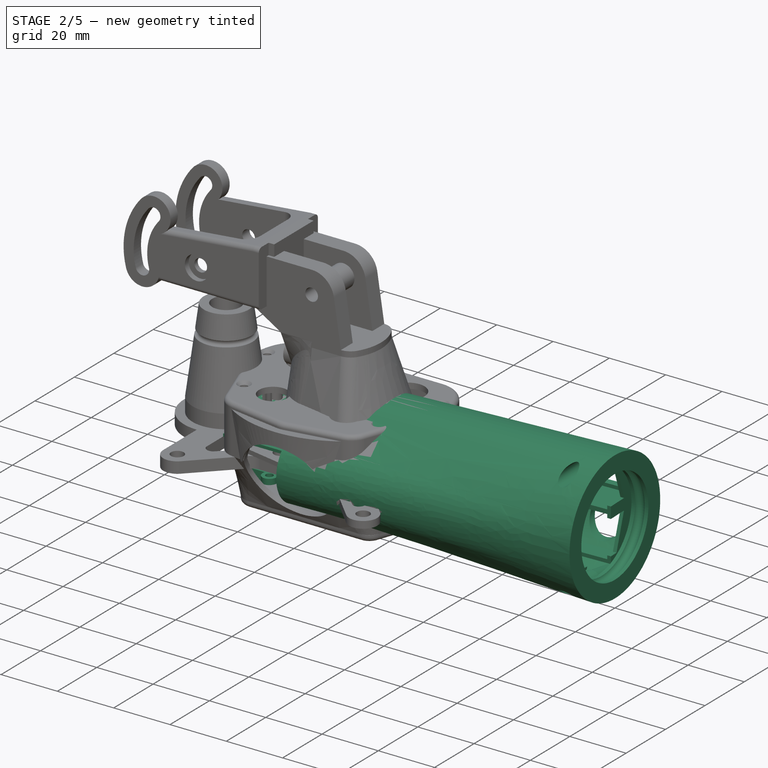
[diagram: stage 2 of 5 — iso view after this stage's code; geometry added in this stage tinted green]
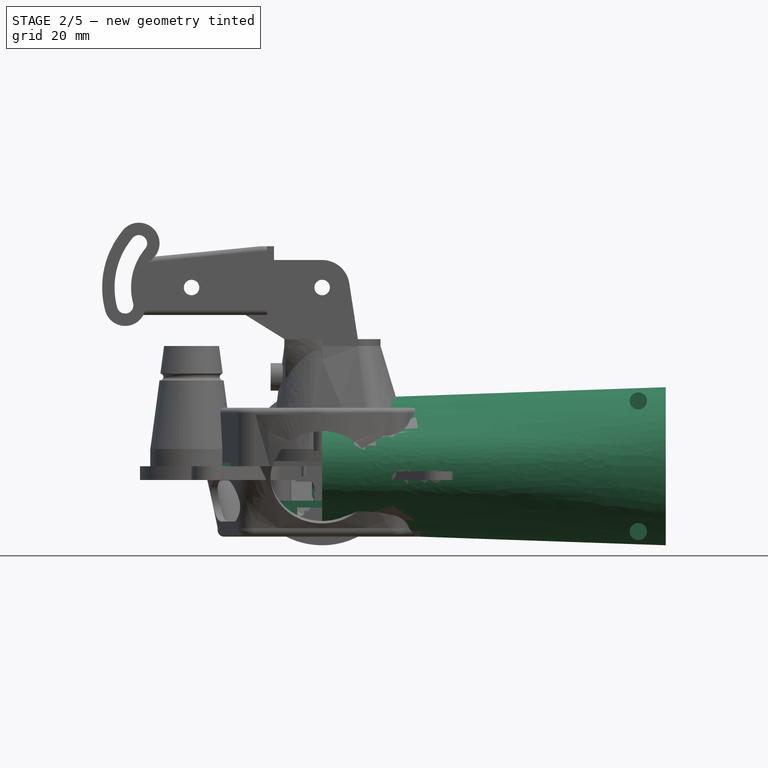
[diagram: stage 2 of 5 — front view after this stage's code; geometry added in this stage tinted green]
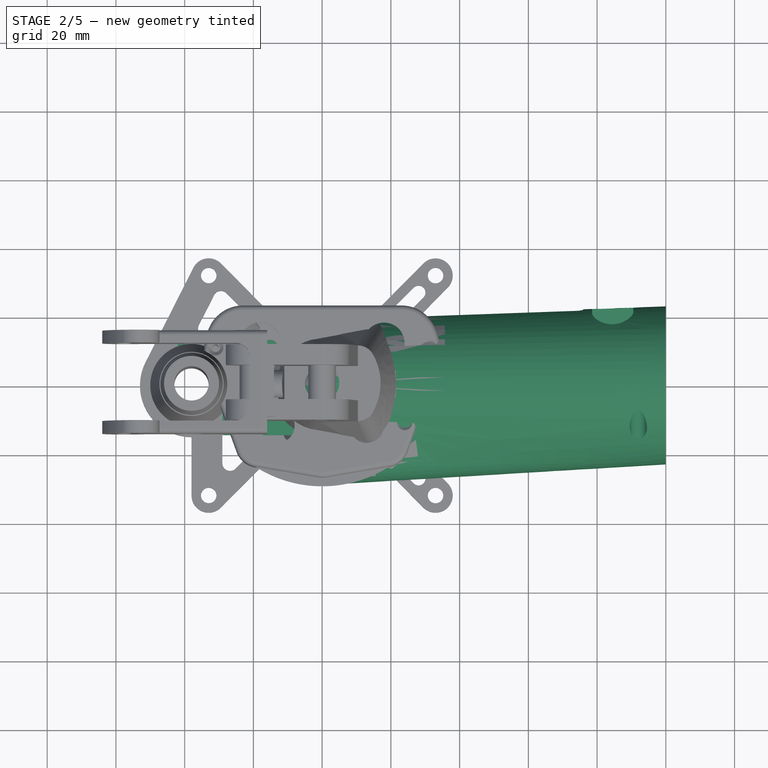
[diagram: stage 2 of 5 — top view after this stage's code; geometry added in this stage tinted green]
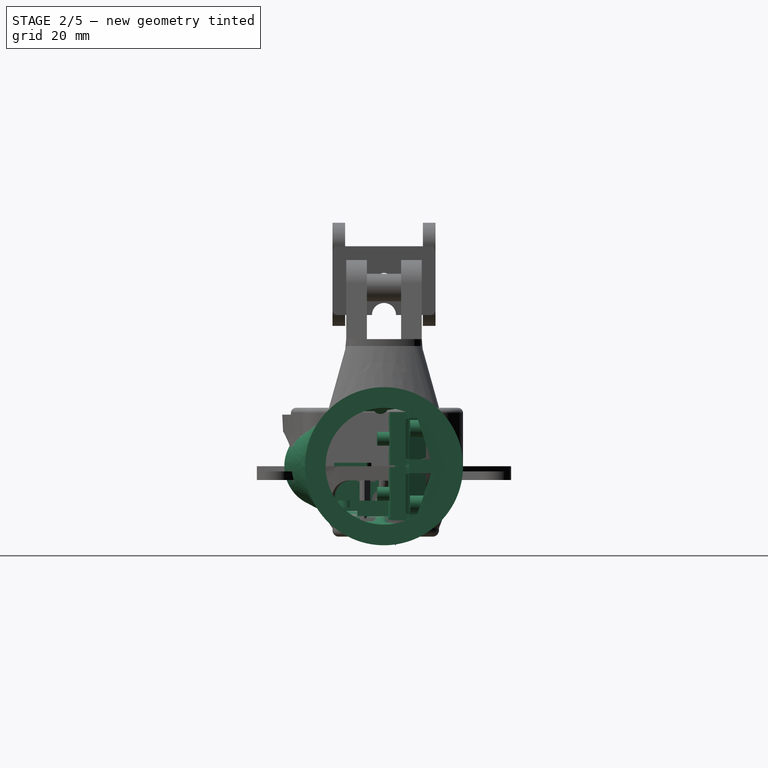
[diagram: stage 2 of 5 — right view after this stage's code; geometry added in this stage tinted green]
FEATURE [PartDesign::AdditiveSphere] Sphere003  label="hbb enforcement"
  Angle1 = -90
  Angle2 = 0
  Angle3 = 360
  AttacherType = Attacher::AttachEngine3D
  BaseFeature = -> Pad053
  MapMode = 5
  Placement = pos=(0,0,0) rot=(0,1,0;3.14159rad)
  Radius = 4.5
  Support = -> [XY_Plane089]
FEATURE [PartDesign::SubtractiveCylinder] Cylinder079  label="hbb screw hole"
  Angle = 360
  AttacherType = Attacher::AttachEngine3D
  BaseFeature = -> Sphere003
  FirstAngle = 0
  Height = 5
  MapMode = 5
  Radius = 1.75
  SecondAngle = 0
  Support = -> [XY_Plane089]
FEATURE [PartDesign::SubtractiveSphere] Sphere002  label="hbb bottom notch"
  Angle1 = -90
  Angle2 = 90
  Angle3 = 360
  AttacherType = Attacher::AttachEngine3D
  BaseFeature = -> Cylinder079
  MapMode = 5
  Radius = 3.5
  Support = -> [XY_Plane089]
FEATURE [PartDesign::Body] Body115  label="em curved filler"
  BaseFeature = -> Body114
  Group = -> [Clone035]
  Origin = -> Origin141
  Placement = pos=(78,0,54) rot=(0.57735,-0.57735,-0.57735;4.18879rad)
  Tip = -> Clone035
FEATURE [App::Part] Part021  label="External Modules"
  Group = -> [Body091,Body092,Body093,Body094,Body100,Body103,Body104,Body108,Body111,Body112,Body115]
  Origin = -> Origin113
FEATURE [Sketcher::SketchObject] Sketch131  label="lcb1 sk"
  FullyConstrained = true
  MapMode = 5
  Support = -> [XY_Plane142]
  sketch-geometry (19):
    g0: LineSegment StartX=5 StartY=4 StartZ=0 EndX=29 EndY=4 EndZ=0
    g1: ArcOfCircle CenterX=34 CenterY=0 CenterZ=0 NormalX=0 NormalY=0 NormalZ=1 AngleXU=0 Radius=5 StartAngle=3.14159 EndAngle=4.71239
    g2: LineSegment StartX=5 StartY=4 StartZ=0 EndX=5 EndY=-9e-16 EndZ=0
    g3: LineSegment StartX=29 StartY=4 StartZ=0 EndX=29 EndY=4e-16 EndZ=0
    g4: LineSegment StartX=-29 StartY=-14.5 StartZ=0 EndX=34 EndY=-14.5 EndZ=0
    g5: LineSegment StartX=0 StartY=-5 StartZ=0 EndX=34 EndY=-5 EndZ=0
    g6: LineSegment StartX=34 StartY=-5 StartZ=0 EndX=34 EndY=-14.5 EndZ=0
    g7: LineSegment StartX=-5 StartY=6e-16 StartZ=0 EndX=-5 EndY=4 EndZ=0
    g8: ArcOfCircle CenterX=0 CenterY=0 CenterZ=0 NormalX=0 NormalY=0 NormalZ=1 AngleXU=0 Radius=5 StartAngle=3.14159 EndAngle=6.28319
    g9: LineSegment StartX=-42 StartY=14.5 StartZ=0 EndX=-24 EndY=14.5 EndZ=0
    g10: LineSegment StartX=-42 StartY=14.5 StartZ=0 EndX=-42 EndY=5 EndZ=0
    g11: ArcOfCircle CenterX=-34 CenterY=0 CenterZ=0 NormalX=0 NormalY=0 NormalZ=1 AngleXU=0 Radius=5 StartAngle=0 EndAngle=1.5708
    g12: LineSegment StartX=-34 StartY=0 StartZ=0 EndX=-34 EndY=5 EndZ=0
    g13: LineSegment StartX=-29 StartY=0 StartZ=0 EndX=-29 EndY=-14.5 EndZ=0
    g14: LineSegment StartX=-34 StartY=0 StartZ=0 EndX=-29 EndY=0 EndZ=0
    g15: LineSegment StartX=-34 StartY=5 StartZ=0 EndX=-42 EndY=5 EndZ=0
    g16: LineSegment StartX=-24 StartY=14.5 StartZ=0 EndX=-24 EndY=11 EndZ=0
    g17: LineSegment StartX=-24 StartY=11 StartZ=0 EndX=-17 EndY=4 EndZ=0
    g18: LineSegment StartX=-17 StartY=4 StartZ=0 EndX=-5 EndY=4 EndZ=0
  constraints (56):
    c: Horizontal(g0)
    c: PointOnObject(g2,g-1)
    c: PointOnObject(g5,g-2)
    c: PointOnObject(g1,g-1)
    c: PointOnObject(g1,g-1)
    c: Coincident(g2,g0)
    c: Vertical(g2)
    c: Coincident(g3,g0)
    c: Coincident(g3,g1)
    c: Vertical(g3)
    c: Horizontal(g4)
    c: Coincident(g5,g1)
    c: Horizontal(g5)
    c: Radius(g1) = 5
    c: DistanceY(g3,g3) = 4
    c: DistanceX(g0,g0) = 24
    c: Coincident(g6,g1)
    c: Coincident(g6,g4)
    c: Vertical(g6)
    c: PointOnObject(g7,g-1)
    c: Symmetric(g7,g0,g-2)
    c: Coincident(g8,g-1)
    c: Coincident(g8,g2)
    c: Coincident(g8,g7)
    c: PointOnObject(g5,g8)
    c: Horizontal(g9)
    c: DistanceX(g8,g4) = 34
    c: Coincident(g10,g9)
    c: PointOnObject(g11,g-1)
    c: Equal(g11,g8)
    c: DistanceX(g11,g8) = 34
    c: DistanceX(g9,g9) = 18
    c: Coincident(g12,g11)
    c: Vertical(g12)
    c: Vertical(g13)
    c: Coincident(g11,g13)
    c: Coincident(g4,g13)
    c: Coincident(g14,g11)
    c: Coincident(g14,g11)
    c: Horizontal(g14)
    c: Coincident(g15,g11)
    c: Coincident(g15,g10)
    c: Horizontal(g15)
    c: Coincident(g12,g11)
    c: Vertical(g10)
    c: DistanceY(g13,g13) = 14.5
    c: Coincident(g9,g16)
    c: Vertical(g16)
    c: Coincident(g16,g17)
    c: Coincident(g17,g18)
    c: Coincident(g18,g7)
    c: Horizontal(g18)
    c: DistanceY(g16,g16) = 3.5
    c: DistanceX(g18,g18) = 12
    c: DistanceX(g9,g17) = 7
    c: DistanceY(g10,g10) = 9.5
FEATURE [PartDesign::Pad] Pad078  label="lcb"
  Direction = (0,0,1)
  Length = 1
  Length2 = 10
  Profile = -> Sketch131
  ReferenceAxis = -> Sketch131 [N_Axis]
  Type = 0
FEATURE [PartDesign::Body] Body134  label="HAT cap C"
  Group = -> [Sketch164,Revolution006]
  Origin = -> Origin164
  Placement = pos=(0,0,14) rot=(0,0,1;0rad)
  Tip = -> Revolution006
FEATURE [App::DocumentObjectGroup] Group004  label="HAT Caps"
  Group = -> [Body060,Body061,Body134]
FEATURE [Sketcher::SketchObject] Sketch165  label="lhfv2hb sk profile left"
  FullyConstrained = true
  MapMode = 5
  Placement = pos=(0,0,0) rot=(0.57735,0.57735,0.57735;2.0944rad)
  Support = -> [YZ_Plane167]
  sketch-geometry (4):
    g0: ArcOfCircle CenterX=0 CenterY=0 CenterZ=0 NormalX=0 NormalY=0 NormalZ=1 AngleXU=0 Radius=19.5 StartAngle=4.71239 EndAngle=7.85398
    g1: ArcOfCircle CenterX=0 CenterY=0 CenterZ=0 NormalX=0 NormalY=0 NormalZ=1 AngleXU=0 Radius=17 StartAngle=4.71239 EndAngle=7.85398
    g2: LineSegment StartX=-5.578e-13 StartY=-17 StartZ=0 EndX=-5.578e-13 EndY=-19.5 EndZ=0
    g3: LineSegment StartX=-8.27985e-11 StartY=19.5 StartZ=0 EndX=-8.27985e-11 EndY=17 EndZ=0
  constraints (12):
    c: Coincident(g0,g-1)
    c: PointOnObject(g0,g-2)
    c: Coincident(g1,g0)
    c: PointOnObject(g1,g-2)
    c: Coincident(g2,g1)
    c: Coincident(g2,g0)
    c: Vertical(g2)
    c: Coincident(g3,g0)
    c: Coincident(g3,g1)
    c: Vertical(g3)
    c: Radius(g1) = 17
    c: Radius(g0) = 19.5
FEATURE [Sketcher::SketchObject] Sketch166  label="lhfv2hb sk progile right"
  AttachmentOffset = pos=(0,0,100) rot=(0,0,1;0rad)
  FullyConstrained = true
  MapMode = 5
  Placement = pos=(100,-2.22e-14,2.22e-14) rot=(0.57735,0.57735,0.57735;2.0944rad)
  Support = -> [YZ_Plane167]
  sketch-geometry (4):
    g0: ArcOfCircle CenterX=0 CenterY=0 CenterZ=0 NormalX=0 NormalY=0 NormalZ=1 AngleXU=0 Radius=23 StartAngle=4.71239 EndAngle=7.85398
    g1: ArcOfCircle CenterX=0 CenterY=0 CenterZ=0 NormalX=0 NormalY=0 NormalZ=1 AngleXU=0 Radius=20.5 StartAngle=4.71239 EndAngle=7.85398
    g2: LineSegment StartX=7e-15 StartY=23 StartZ=0 EndX=7e-15 EndY=20.5 EndZ=0
    g3: LineSegment StartX=-4.2e-15 StartY=-20.5 StartZ=0 EndX=-4.2e-15 EndY=-23 EndZ=0
  constraints (12):
    c: Coincident(g0,g-1)
    c: Coincident(g1,g0)
    c: Coincident(g2,g0)
    c: Coincident(g2,g1)
    c: Coincident(g3,g1)
    c: Coincident(g3,g0)
    c: Vertical(g2)
    c: PointOnObject(g0,g-2)
    c: PointOnObject(g0,g-2)
    c: Vertical(g3)
    c: Radius(g0) = 23
    c: Radius(g1) = 20.5
FEATURE [Sketcher::SketchObject] Sketch167  label="lhbv2 sk profile left"
  FullyConstrained = true
  MapMode = 5
  Placement = pos=(0,0,0) rot=(0.57735,0.57735,0.57735;2.0944rad)
  Support = -> [YZ_Plane168]
  sketch-geometry (16):
    g0: LineSegment StartX=1.2e-15 StartY=19.5 StartZ=0 EndX=1e-15 EndY=17 EndZ=0
    g1: LineSegment StartX=-3.1e-15 StartY=-17 StartZ=0 EndX=-3.1e-15 EndY=-19.5 EndZ=0
    g2: Circle CenterX=0 CenterY=0 CenterZ=0 NormalX=0 NormalY=0 NormalZ=1 AngleXU=0 Radius=19.5
    g3: Circle CenterX=0 CenterY=0 CenterZ=0 NormalX=0 NormalY=0 NormalZ=1 AngleXU=0 Radius=17
    g4: Circle CenterX=-17 CenterY=0 CenterZ=0 NormalX=0 NormalY=0 NormalZ=1 AngleXU=0 Radius=12
    g5: ArcOfCircle CenterX=0 CenterY=0 CenterZ=0 NormalX=0 NormalY=0 NormalZ=1 AngleXU=0 Radius=19.5 StartAngle=1.5708 EndAngle=2.02771
    g6: ArcOfCircle CenterX=-17 CenterY=0 CenterZ=0 NormalX=0 NormalY=0 NormalZ=1 AngleXU=0 Radius=12 StartAngle=2.02771 EndAngle=4.25548
    g7: LineSegment StartX=-8.60294 StartY=17.4997 StartZ=0 EndX=-22.2941 EndY=10.769 EndZ=0
    g8: ArcOfCircle CenterX=0 CenterY=0 CenterZ=0 NormalX=0 NormalY=0 NormalZ=1 AngleXU=0 Radius=19.5 StartAngle=4.25548 EndAngle=4.71239
    g9: LineSegment StartX=-8.60294 StartY=-17.4997 StartZ=0 EndX=-22.2941 EndY=-10.769 EndZ=0
    g10: Circle CenterX=-17 CenterY=0 CenterZ=0 NormalX=0 NormalY=0 NormalZ=1 AngleXU=0 Radius=9.5
    g11: ArcOfCircle CenterX=0 CenterY=0 CenterZ=0 NormalX=0 NormalY=0 NormalZ=1 AngleXU=0 Radius=17 StartAngle=1.5708 EndAngle=2.02771
    g12: ArcOfCircle CenterX=0 CenterY=0 CenterZ=0 NormalX=0 NormalY=0 NormalZ=1 AngleXU=0 Radius=17 StartAngle=4.25548 EndAngle=4.71239
    g13: ArcOfCircle CenterX=-17 CenterY=0 CenterZ=0 NormalX=0 NormalY=0 NormalZ=1 AngleXU=0 Radius=9.5 StartAngle=2.02771 EndAngle=4.25548
    g14: LineSegment StartX=-7.5 StartY=15.2561 StartZ=0 EndX=-21.1912 EndY=8.52549 EndZ=0
    g15: LineSegment StartX=-7.5 StartY=-15.2561 StartZ=0 EndX=-21.1912 EndY=-8.52549 EndZ=0
  constraints (37):
    c: PointOnObject(g0,g-2)
    c: PointOnObject(g0,g-2)
    c: PointOnObject(g1,g-2)
    c: Vertical(g1)
    c: Coincident(g2,g-1)
    c: PointOnObject(g0,g2)
    c: PointOnObject(g1,g2)
    c: Radius(g2) = 19.5
    c: Coincident(g3,g2)
    c: PointOnObject(g0,g3)
    c: PointOnObject(g1,g3)
    c: Radius(g3) = 17
    c: PointOnObject(g4,g-1)
    c: PointOnObject(g4,g3)
    c: Radius(g4) = 12
    c: Coincident(g5,g2)
    c: Coincident(g5,g0)
    c: Coincident(g6,g4)
    c: PointOnObject(g6,g4)
    c: Coincident(g8,g5)
    c: Coincident(g8,g1)
    c: Tangent(g9,g8) = 1.5708
    c: Tangent(g7,g5) = -1.5708
    c: Tangent(g7,g6) = -1.5708
    c: Tangent(g9,g6) = 1.5708
    c: Coincident(g10,g6)
    c: Radius(g10) = 9.5
    c: Coincident(g11,g5)
    c: Coincident(g11,g0)
    c: Coincident(g12,g5)
    c: Coincident(g12,g1)
    c: Coincident(g13,g6)
    c: PointOnObject(g13,g10)
    c: Tangent(g14,g11) = -1.5708
    c: Tangent(g14,g13) = -1.5708
    c: Tangent(g15,g12) = 1.5708
    c: Tangent(g15,g13) = 1.5708
FEATURE [Sketcher::SketchObject] Sketch168  label="lhbv2 sk profile right"
  AttachmentOffset = pos=(0,0,100) rot=(0,0,1;0rad)
  ExternalGeometry = -> [Sketch167]
  FullyConstrained = true
  MapMode = 5
  Placement = pos=(100,-2.22e-14,2.22e-14) rot=(0.57735,0.57735,0.57735;2.0944rad)
  Support = -> [YZ_Plane168]
  sketch-geometry (16):
    g0: LineSegment StartX=1.4e-15 StartY=20.5 StartZ=0 EndX=1.4e-15 EndY=23 EndZ=0
    g1: LineSegment StartX=-4.2e-15 StartY=-20.5 StartZ=0 EndX=-4.2e-15 EndY=-23 EndZ=0
    g2: LineSegment StartX=0 StartY=0 StartZ=0 EndX=-10.1471 EndY=20.6407 EndZ=0
    g3: ArcOfCircle CenterX=0 CenterY=0 CenterZ=0 NormalX=0 NormalY=0 NormalZ=1 AngleXU=0 Radius=23 StartAngle=1.5708 EndAngle=2.02771
    g4: LineSegment StartX=0 StartY=0 StartZ=0 EndX=-21.3379 EndY=8.58452 EndZ=0
    g5: LineSegment StartX=0 StartY=0 StartZ=0 EndX=-21.3379 EndY=-8.58452 EndZ=0
    g6: LineSegment StartX=0 StartY=0 StartZ=0 EndX=-10.1471 EndY=-20.6407 EndZ=0
    g7: ArcOfCircle CenterX=0 CenterY=0 CenterZ=0 NormalX=0 NormalY=0 NormalZ=1 AngleXU=0 Radius=23 StartAngle=4.25548 EndAngle=4.71239
    g8: ArcOfCircle CenterX=0 CenterY=0 CenterZ=0 NormalX=0 NormalY=0 NormalZ=1 AngleXU=0 Radius=23 StartAngle=2.02771 EndAngle=2.75909
    g9: ArcOfCircle CenterX=0 CenterY=0 CenterZ=0 NormalX=0 NormalY=0 NormalZ=1 AngleXU=0 Radius=23 StartAngle=2.75909 EndAngle=3.52409
    g10: ArcOfCircle CenterX=0 CenterY=0 CenterZ=0 NormalX=0 NormalY=0 NormalZ=1 AngleXU=0 Radius=23 StartAngle=3.52409 EndAngle=4.25548
    g11: ArcOfCircle CenterX=0 CenterY=0 CenterZ=0 NormalX=0 NormalY=0 NormalZ=1 AngleXU=0 Radius=20.5 StartAngle=1.5708 EndAngle=2.02771
    g12: ArcOfCircle CenterX=0 CenterY=0 CenterZ=0 NormalX=0 NormalY=0 NormalZ=1 AngleXU=0 Radius=20.5 StartAngle=4.25548 EndAngle=4.71239
    g13: ArcOfCircle CenterX=0 CenterY=0 CenterZ=0 NormalX=0 NormalY=0 NormalZ=1 AngleXU=0 Radius=20.5 StartAngle=2.02771 EndAngle=2.75909
    g14: ArcOfCircle CenterX=0 CenterY=0 CenterZ=0 NormalX=0 NormalY=0 NormalZ=1 AngleXU=0 Radius=20.5 StartAngle=2.75909 EndAngle=3.52409
    g15: ArcOfCircle CenterX=0 CenterY=0 CenterZ=0 NormalX=0 NormalY=0 NormalZ=1 AngleXU=0 Radius=20.5 StartAngle=3.52409 EndAngle=4.25548
  constraints (44):
    c: PointOnObject(g1,g-2)
    c: PointOnObject(g0,g-2)
    c: Vertical(g0)
    c: Vertical(g1)
    c: PointOnObject(g-3,g2)
    c: Coincident(g3,g2)
    c: Coincident(g3,g0)
    c: Coincident(g3,g2)
    c: Radius(g3) = 23
    c: Coincident(g4,g3)
    c: PointOnObject(g-3,g4)
    c: Coincident(g3,g-1)
    c: Coincident(g5,g3)
    c: PointOnObject(g-4,g5)
    c: Coincident(g6,g3)
    c: PointOnObject(g-4,g6)
    c: Coincident(g7,g3)
    c: Coincident(g7,g1)
    c: Coincident(g7,g6)
    c: Coincident(g8,g3)
    c: Coincident(g8,g3)
    c: Coincident(g8,g4)
    c: Coincident(g9,g3)
    c: Coincident(g9,g8)
    c: Coincident(g9,g5)
    c: Coincident(g10,g3)
    c: Coincident(g10,g7)
    c: Coincident(g10,g9)
    c: Coincident(g11,g3)
    c: Coincident(g11,g0)
    c: PointOnObject(g11,g2)
    c: Coincident(g12,g3)
    c: Coincident(g12,g1)
    c: PointOnObject(g12,g6)
    c: Radius(g11) = 20.5
    c: Coincident(g13,g3)
    c: Coincident(g13,g11)
    c: PointOnObject(g13,g4)
    c: Coincident(g14,g3)
    c: Coincident(g14,g13)
    c: PointOnObject(g14,g5)
    c: Coincident(g15,g3)
    c: Coincident(g15,g14)
    c: Coincident(g15,g12)
FEATURE [PartDesign::AdditiveLoft] AdditiveLoft003  label="lhbv2 profile"
  Closed = false
  Placement = pos=(0,0,0) rot=(0.57735,0.57735,0.57735;2.0944rad)
  Profile = -> Sketch167
  Ruled = false
  Sections = -> [Sketch168]
FEATURE [PartDesign::AdditiveLoft] AdditiveLoft004  label="lhfv2hb profile"
  Closed = false
  Placement = pos=(0,0,0) rot=(0.57735,0.57735,0.57735;2.0944rad)
  Profile = -> Sketch165
  Ruled = false
  Sections = -> [Sketch166]
FEATURE [Sketcher::SketchObject] Sketch169  label="lhbv2 sk rail top left"
  ExternalGeometry = -> [Sketch167]
  FullyConstrained = true
  MapMode = 5
  Placement = pos=(0,0,0) rot=(0.57735,0.57735,0.57735;2.0944rad)
  Support = -> [YZ_Plane168]
  sketch-geometry (6):
    g0: LineSegment StartX=-4 StartY=16.9337 StartZ=0 EndX=-2 EndY=13.9337 EndZ=0
    g1: LineSegment StartX=-2 StartY=13.9337 StartZ=0 EndX=0 EndY=13.9337 EndZ=0
    g2: LineSegment StartX=0 StartY=13.9337 StartZ=0 EndX=0 EndY=15.4337 EndZ=0
    g3: LineSegment StartX=0 StartY=15.4337 StartZ=0 EndX=-1.5 EndY=15.4337 EndZ=0
    g4: LineSegment StartX=-1.5 StartY=15.4337 StartZ=0 EndX=-1.5 EndY=16.9337 EndZ=0
    g5: LineSegment StartX=-1.5 StartY=16.9337 StartZ=0 EndX=-4 EndY=16.9337 EndZ=0
  constraints (18):
    c: Coincident(g0,g1)
    c: PointOnObject(g1,g-2)
    c: Horizontal(g1)
    c: Coincident(g1,g2)
    c: PointOnObject(g2,g-2)
    c: Coincident(g2,g3)
    c: Horizontal(g3)
    c: Coincident(g3,g4)
    c: Vertical(g4)
    c: Coincident(g4,g5)
    c: Coincident(g5,g0)
    c: Horizontal(g5)
    c: Equal(g2,g3)
    c: Equal(g3,g4)
    c: DistanceY(g2,g2) = 1.5
    c: DistanceX(g5,g5) = 2.5
    c: PointOnObject(g4,g-3)
    c: DistanceX(g1,g1) = 2
FEATURE [Sketcher::SketchObject] Sketch170  label="lhbv2 sk rail top right"
  AttachmentOffset = pos=(0,0,100) rot=(0,0,1;0rad)
  ExternalGeometry = -> [Sketch168]
  FullyConstrained = true
  MapMode = 5
  Placement = pos=(100,-2.22e-14,2.22e-14) rot=(0.57735,0.57735,0.57735;2.0944rad)
  Support = -> [YZ_Plane168]
  sketch-geometry (6):
    g0: LineSegment StartX=-4 StartY=20.445 StartZ=0 EndX=-2 EndY=17.445 EndZ=0
    g1: LineSegment StartX=-2 StartY=17.445 StartZ=0 EndX=0 EndY=17.445 EndZ=0
    g2: LineSegment StartX=0 StartY=17.445 StartZ=0 EndX=0 EndY=18.945 EndZ=0
    g3: LineSegment StartX=0 StartY=18.945 StartZ=0 EndX=-1.5 EndY=18.945 EndZ=0
    g4: LineSegment StartX=-1.5 StartY=18.945 StartZ=0 EndX=-1.5 EndY=20.445 EndZ=0
    g5: LineSegment StartX=-1.5 StartY=20.445 StartZ=0 EndX=-4 EndY=20.445 EndZ=0
  constraints (18):
    c: Coincident(g0,g1)
    c: PointOnObject(g1,g-2)
    c: Horizontal(g1)
    c: Coincident(g1,g2)
    c: PointOnObject(g2,g-2)
    c: Coincident(g2,g3)
    c: Horizontal(g3)
    c: Coincident(g3,g4)
    c: Vertical(g4)
    c: Coincident(g4,g5)
    c: Coincident(g5,g0)
    c: Horizontal(g5)
    c: Equal(g2,g3)
    c: Equal(g3,g4)
    c: DistanceY(g2,g2) = 1.5
    c: DistanceX(g1,g1) = 2
    c: DistanceX(g5,g5) = 2.5
    c: PointOnObject(g4,g-3)
FEATURE [Sketcher::SketchObject] Sketch173  label="lhfv2rr sk profile"
  AttachmentOffset = pos=(0,0,100) rot=(0,0,1;0rad)
  FullyConstrained = true
  MapMode = 5
  Placement = pos=(100,-2.22e-14,2.22e-14) rot=(0.57735,0.57735,0.57735;2.0944rad)
  Support = -> [YZ_Plane169]
  sketch-geometry (4):
    g0: ArcOfCircle CenterX=0 CenterY=0 CenterZ=0 NormalX=0 NormalY=0 NormalZ=1 AngleXU=0 Radius=17 StartAngle=4.71239 EndAngle=7.85398
    g1: ArcOfCircle CenterX=0 CenterY=0 CenterZ=0 NormalX=0 NormalY=0 NormalZ=1 AngleXU=0 Radius=21 StartAngle=4.71239 EndAngle=7.85398
    g2: LineSegment StartX=6.4e-15 StartY=21 StartZ=0 EndX=5.2e-15 EndY=17 EndZ=0
    g3: LineSegment StartX=-3.1e-15 StartY=-17 StartZ=0 EndX=-3.9e-15 EndY=-21 EndZ=0
  constraints (12):
    c: Coincident(g0,g-1)
    c: PointOnObject(g0,g-2)
    c: PointOnObject(g0,g-2)
    c: Radius(g0) = 17
    c: Coincident(g1,g0)
    c: PointOnObject(g1,g-2)
    c: PointOnObject(g1,g-2)
    c: Radius(g1) = 21
    c: Coincident(g2,g1)
    c: Coincident(g2,g0)
    c: Coincident(g3,g0)
    c: Coincident(g3,g1)
FEATURE [PartDesign::Pad] Pad096  label="lhfv2rr profile"
  Direction = (1,-2e-16,3e-16)
  Length = 6
  Length2 = 10
  Placement = pos=(0,0,0) rot=(0.57735,0.57735,0.57735;2.0944rad)
  Profile = -> Sketch173
  ReferenceAxis = -> Sketch173 [N_Axis]
  Reversed = true
  Type = 0
FEATURE [PartDesign::SubtractiveTorus] Torus005
  Angle1 = -180
  Angle2 = 180
  Angle3 = 360
  AttacherType = Attacher::AttachEngine3D
  AttachmentOffset = pos=(0,0,97) rot=(0,0,1;0rad)
  BaseFeature = -> Pad096
  MapMode = 5
  Placement = pos=(97,-2.15e-14,2.15e-14) rot=(0.57735,0.57735,0.57735;2.0944rad)
  Radius1 = 16.5
  Radius2 = 1.75
  Support = -> [YZ_Plane169]
FEATURE [PartDesign::Body] Body137  label="lhfv2 right connector ring"
  Group = -> [Sketch173,Pad096,Torus005]
  Origin = -> Origin169
  Tip = -> Torus005
FEATURE [Sketcher::SketchObject] Sketch174  label="lhfv2sm sk profile"
  FullyConstrained = true
  MapMode = 5
  Placement = pos=(0,0,0) rot=(0.57735,0.57735,0.57735;2.0944rad)
  Support = -> [YZ_Plane171]
  sketch-geometry (21):
    g0: Circle CenterX=0 CenterY=0 CenterZ=0 NormalX=0 NormalY=0 NormalZ=1 AngleXU=0 Radius=2.25
    g1: ArcOfCircle CenterX=0 CenterY=0 CenterZ=0 NormalX=0 NormalY=0 NormalZ=1 AngleXU=0 Radius=5 StartAngle=3.14159 EndAngle=4.18879
    g2: LineSegment StartX=-5 StartY=16.2481 StartZ=0 EndX=-5 EndY=0 EndZ=0
    g3: LineSegment StartX=12.0237 StartY=-12.7154 StartZ=0 EndX=-2.5 EndY=-4.33013 EndZ=0
    g4: Circle CenterX=0 CenterY=0 CenterZ=0 NormalX=0 NormalY=0 NormalZ=1 AngleXU=0 Radius=5
    g5: ArcOfCircle CenterX=0 CenterY=0 CenterZ=0 NormalX=0 NormalY=0 NormalZ=1 AngleXU=0 Radius=16 StartAngle=5.75959 EndAngle=7.85398
    g6: LineSegment StartX=0 StartY=0 StartZ=0 EndX=13.8564 EndY=-8 EndZ=0
    g7: LineSegment StartX=0 StartY=0 StartZ=0 EndX=4.9e-15 EndY=16 EndZ=0
    g8: LineSegment StartX=0 StartY=7.31191 StartZ=0 EndX=1.5e-15 EndY=5 EndZ=0
    g9: LineSegment StartX=4.33013 StartY=-2.5 StartZ=0 EndX=6.3323 EndY=-3.65595 EndZ=0
    g10: ArcOfCircle CenterX=0 CenterY=0 CenterZ=0 NormalX=0 NormalY=0 NormalZ=1 AngleXU=0 Radius=16 StartAngle=0.189888 EndAngle=0.85731
    g11: ArcOfCircle CenterX=0 CenterY=0 CenterZ=0 NormalX=0 NormalY=0 NormalZ=1 AngleXU=0 Radius=5 StartAngle=5.75959 EndAngle=7.85398
    g12: LineSegment StartX=0 StartY=0 StartZ=0 EndX=0 EndY=13.5 EndZ=0
    g13: Circle CenterX=0 CenterY=13.5 CenterZ=0 NormalX=0 NormalY=0 NormalZ=1 AngleXU=0 Radius=1
    g14: LineSegment StartX=-5 StartY=13.5 StartZ=0 EndX=5 EndY=13.5 EndZ=0
    g15: ArcOfCircle CenterX=6.32925 CenterY=7.31191 CenterZ=0 NormalX=0 NormalY=0 NormalZ=1 AngleXU=0 Radius=6.32925 StartAngle=0.85731 EndAngle=3.14159
    g16: ArcOfCircle CenterX=9.49692 CenterY=1.82534 CenterZ=0 NormalX=0 NormalY=0 NormalZ=1 AngleXU=0 Radius=6.32925 StartAngle=4.18879 EndAngle=6.47307
    g17: GeomPoint X=5.4e-15 Y=17.5 Z=0
    g18: ArcOfCircle CenterX=0 CenterY=0 CenterZ=0 NormalX=0 NormalY=0 NormalZ=1 AngleXU=0 Radius=17.5 StartAngle=5.46983 EndAngle=7.85398
    g19: LineSegment StartX=5.4e-15 StartY=17.5 StartZ=0 EndX=1e-15 EndY=17 EndZ=0
    g20: ArcOfCircle CenterX=0 CenterY=0 CenterZ=0 NormalX=0 NormalY=0 NormalZ=1 AngleXU=0 Radius=17 StartAngle=1.5708 EndAngle=1.86933
  constraints (53):
    c: Coincident(g0,g-1)
    c: Radius(g0) = 2.25
    c: Coincident(g1,g0)
    c: Tangent(g2,g1) = -1.5708
    c: Tangent(g3,g1) = 1.5708
    c: Coincident(g4,g0)
    c: Radius(g4) = 5
    c: PointOnObject(g1,g4)
    c: Vertical(g2)
    c: Angle(g3,g-2) = 2.0944
    c: Coincident(g5,g0)
    c: Coincident(g6,g0)
    c: Coincident(g6,g5)
    c: Coincident(g7,g0)
    c: Coincident(g7,g5)
    c: Parallel(g7,g2)
    c: Parallel(g6,g3)
    c: Radius(g5) = 16
    c: PointOnObject(g8,g4)
    c: PointOnObject(g8,g7)
    c: PointOnObject(g9,g6)
    c: Coincident(g10,g0)
    c: Coincident(g11,g0)
    c: Coincident(g11,g8)
    c: Coincident(g11,g9)
    c: Coincident(g12,g0)
    c: Distance(g12) = 13.5
    c: Coincident(g13,g12)
    c: PointOnObject(g14,g2)
    c: Horizontal(g14)
    c: Symmetric(g14,g14,g13)
    c: Radius(g13) = 1
    c: Tangent(g8,g15) = -1.5708
    c: Tangent(g10,g15) = -1.5708
    c: PointOnObject(g8,g7)
    c: PointOnObject(g14,g15)
    c: Vertical(g12)
    c: Tangent(g10,g16) = -1.5708
    c: Tangent(g9,g16) = -1.5708
    c: Equal(g15,g16)
    c: PointOnObject(g10,g5)
    c: PointOnObject(g9,g6)
    c: PointOnObject(g17,g-2)
    c: Coincident(g18,g0)
    c: Coincident(g18,g17)
    c: Coincident(g18,g3)
    c: Coincident(g19,g18)
    c: PointOnObject(g19,g-2)
    c: Radius(g18) = 17.5
    c: Coincident(g20,g0)
    c: Coincident(g20,g19)
    c: Coincident(g20,g2)
    c: Radius(g20) = 17
FEATURE [PartDesign::Pad] Pad097  label="lhfv2sm profile"
  Direction = (1,-2e-16,3e-16)
  Length = 5
  Length2 = 10
  Placement = pos=(0,0,0) rot=(0.57735,0.57735,0.57735;2.0944rad)
  Profile = -> Sketch174
  ReferenceAxis = -> Sketch174 [N_Axis]
  Type = 0
FEATURE [Sketcher::SketchObject] Sketch175  label="lhfv2sm sk nut notch"
  AttachmentOffset = pos=(0,0,5) rot=(0,0,1;0rad)
  FullyConstrained = true
  MapMode = 5
  Placement = pos=(5,-1.1e-15,1.1e-15) rot=(0.57735,0.57735,0.57735;2.0944rad)
  Support = -> [YZ_Plane171]
  sketch-geometry (7):
    g0: LineSegment StartX=3.5 StartY=2.02073 StartZ=0 EndX=0 EndY=4.04145 EndZ=0
    g1: LineSegment StartX=0 StartY=4.04145 StartZ=0 EndX=-3.5 EndY=2.02073 EndZ=0
    g2: LineSegment StartX=-3.5 StartY=2.02073 StartZ=0 EndX=-3.5 EndY=-2.02073 EndZ=0
    g3: LineSegment StartX=-3.5 StartY=-2.02073 StartZ=0 EndX=4e-16 EndY=-4.04145 EndZ=0
    g4: LineSegment StartX=4e-16 StartY=-4.04145 StartZ=0 EndX=3.5 EndY=-2.02073 EndZ=0
    g5: LineSegment StartX=3.5 StartY=-2.02073 StartZ=0 EndX=3.5 EndY=2.02073 EndZ=0
    g6: Circle CenterX=0 CenterY=0 CenterZ=0 NormalX=0 NormalY=0 NormalZ=1 AngleXU=0 Radius=4.04145
  constraints (16):
    c: Coincident(g0,g1)
    c: Coincident(g1,g2)
    c: Coincident(g2,g3)
    c: Coincident(g3,g4)
    c: Coincident(g4,g5)
    c: Coincident(g5,g0)
    c: Equal(g0, g1-g5) x5
    c: PointOnObject(g0,g6)
    c: PointOnObject(g1,g6)
    c: PointOnObject(g2,g6)
    c: PointOnObject(g3,g6)
    c: PointOnObject(g4,g6)
    c: PointOnObject(g5,g6)
    c: Coincident(g6,g-1)
    c: PointOnObject(g0,g-2)
    c: DistanceX(g1,g0) = 7
FEATURE [PartDesign::Pocket] Pocket039  label="lhfv2sm nut notch"
  BaseFeature = -> Pad097
  Direction = (-1,2e-16,-3e-16)
  Length = 2.5
  Length2 = 5
  Placement = pos=(0,0,0) rot=(0.57735,0.57735,0.57735;2.0944rad)
  Profile = -> Sketch175
  ReferenceAxis = -> Sketch175 [N_Axis]
  Type = 0
FEATURE [PartDesign::Body] Body139  label="lhfv2 spoke mount"
  Group = -> [Sketch174,Pad097,Sketch175,Pocket039]
  Origin = -> Origin171
  Placement = pos=(3,0,0) rot=(0,0,1;0rad)
  Tip = -> Pocket039
FEATURE [Sketcher::SketchObject] Sketch176  label="lcpv2 sk profile"
  FullyConstrained = true
  MapMode = 5
  Placement = pos=(0,0,0) rot=(0.57735,0.57735,0.57735;2.0944rad)
  Support = -> [YZ_Plane172]
  sketch-geometry (14):
    g0: ArcOfCircle CenterX=0 CenterY=0 CenterZ=0 NormalX=0 NormalY=0 NormalZ=1 AngleXU=0 Radius=18 StartAngle=5.04906 EndAngle=10.6589
    g1: Circle CenterX=0 CenterY=0 CenterZ=0 NormalX=0 NormalY=0 NormalZ=1 AngleXU=0 Radius=2.25
    g2: ArcOfCircle CenterX=0 CenterY=-10 CenterZ=0 NormalX=0 NormalY=0 NormalZ=1 AngleXU=0 Radius=3.5 StartAngle=2e-16 EndAngle=3.14159
    g3: LineSegment StartX=-3.5 StartY=-10 StartZ=0 EndX=-5.94631 EndY=-16.9895 EndZ=0
    g4: LineSegment StartX=5.94631 StartY=-16.9895 StartZ=0 EndX=3.5 EndY=-10 EndZ=0
    g5: LineSegment StartX=-3.5 StartY=-10 StartZ=0 EndX=0 EndY=-10 EndZ=0
    g6: LineSegment StartX=3.5 StartY=-10 StartZ=0 EndX=0 EndY=-10 EndZ=0
    g7: ArcOfCircle CenterX=0 CenterY=0 CenterZ=0 NormalX=0 NormalY=0 NormalZ=1 AngleXU=0 Radius=13.5 StartAngle=0 EndAngle=3.14159
    g8: ArcOfCircle CenterX=-5.16623 CenterY=12.4724 CenterZ=0 NormalX=0 NormalY=0 NormalZ=1 AngleXU=0 Radius=1.3 StartAngle=1.9635 EndAngle=5.10509
    g9: ArcOfCircle CenterX=5.16623 CenterY=12.4724 CenterZ=0 NormalX=0 NormalY=0 NormalZ=1 AngleXU=0 Radius=1.3 StartAngle=4.31969 EndAngle=7.46128
    g10: ArcOfCircle CenterX=0 CenterY=0 CenterZ=0 NormalX=0 NormalY=0 NormalZ=1 AngleXU=0 Radius=12.2 StartAngle=1.1781 EndAngle=1.9635
    g11: ArcOfCircle CenterX=0 CenterY=0 CenterZ=0 NormalX=0 NormalY=0 NormalZ=1 AngleXU=0 Radius=14.8 StartAngle=1.1781 EndAngle=1.9635
    g12: LineSegment StartX=-5.16623 StartY=12.4724 StartZ=0 EndX=0 EndY=0 EndZ=0
    g13: LineSegment StartX=5.16623 StartY=12.4724 StartZ=0 EndX=0 EndY=0 EndZ=0
  constraints (37):
    c: Coincident(g0,g-1)
    c: Radius(g0) = 18
    c: Coincident(g1,g0)
    c: Radius(g1) = 2.25
    c: PointOnObject(g2,g-2)
    c: Radius(g2) = 3.5
    c: DistanceY(g2,g0) = 10
    c: Coincident(g0,g3)
    c: Coincident(g0,g4)
    c: Perpendicular(g0,g4)
    c: Perpendicular(g0,g3)
    c: Coincident(g2,g4)
    c: Coincident(g2,g3)
    c: Coincident(g5,g2)
    c: Coincident(g5,g2)
    c: Horizontal(g5)
    c: Coincident(g6,g2)
    c: Coincident(g6,g2)
    c: Horizontal(g6)
    c: Coincident(g7,g0)
    c: PointOnObject(g7,g-1)
    c: PointOnObject(g7,g-1)
    c: Radius(g7) = 13.5
    c: PointOnObject(g8,g7)
    c: Coincident(g10,g0)
    c: Coincident(g11,g0)
    c: Tangent(g11,g8) = -1.5708
    c: Tangent(g10,g8) = 1.5708
    c: Tangent(g11,g9) = -1.5708
    c: Tangent(g10,g9) = 1.5708
    c: Radius(g9) = 1.3
    c: Coincident(g12,g8)
    c: Coincident(g12,g0)
    c: Coincident(g13,g9)
    c: Coincident(g13,g0)
    c: Symmetric(g9,g8,g-2)
    c: Angle(g13,g12) = 0.785398
FEATURE [PartDesign::Pad] Pad098  label="lcpv2 profile"
  Direction = (1,-2e-16,3e-16)
  Length = 4
  Length2 = 100
  Placement = pos=(0,0,0) rot=(0.57735,0.57735,0.57735;2.0944rad)
  Profile = -> Sketch176
  ReferenceAxis = -> Sketch176 [N_Axis]
  Type = 0
FEATURE [Sketcher::SketchObject] Sketch177  label="lcpv2 sk notch"
  FullyConstrained = true
  MapMode = 5
  Placement = pos=(0,0,0) rot=(0.57735,0.57735,-0.57735;4.18879rad)
  Support = -> [Pad098]
  sketch-geometry (4):
    g0: LineSegment StartX=-10.25 StartY=10.25 StartZ=0 EndX=10.25 EndY=10.25 EndZ=0
    g1: LineSegment StartX=10.25 StartY=10.25 StartZ=0 EndX=10.25 EndY=-10.25 EndZ=0
    g2: LineSegment StartX=10.25 StartY=-10.25 StartZ=0 EndX=-10.25 EndY=-10.25 EndZ=0
    g3: LineSegment StartX=-10.25 StartY=-10.25 StartZ=0 EndX=-10.25 EndY=10.25 EndZ=0
  constraints (11):
    c: Coincident(g0,g1)
    c: Coincident(g1,g2)
    c: Coincident(g2,g3)
    c: Coincident(g3,g0)
    c: Horizontal(g0)
    c: Horizontal(g2)
    c: Vertical(g1)
    c: Vertical(g3)
    c: Equal(g1,g0)
    c: Symmetric(g0,g1,g-1)
    c: DistanceY(g3,g3) = 20.5
FEATURE [PartDesign::Pocket] Pocket040  label="lcpv2 notch"
  BaseFeature = -> Pad098
  Direction = (1,-4e-16,4e-16)
  Length = 2
  Length2 = 100
  Placement = pos=(0,0,0) rot=(0.57735,0.57735,0.57735;2.0944rad)
  Profile = -> Sketch177
  ReferenceAxis = -> Sketch177 [N_Axis]
  Type = 0
FEATURE [Sketcher::SketchObject] Sketch178  label="lhbv2 sk cap"
  FullyConstrained = false
  MapMode = 5
  Placement = pos=(0,0,0) rot=(0.57735,0.57735,0.57735;2.0944rad)
  Support = -> [YZ_Plane168]
  sketch-geometry (9):
    g0: LineSegment StartX=-14.0487 StartY=12.5 StartZ=0 EndX=-21.3746 EndY=8.89856 EndZ=0
    g1: LineSegment StartX=-14.0487 StartY=-12.5 StartZ=0 EndX=-21.3746 EndY=-8.89856 EndZ=0
    g2: ArcOfCircle CenterX=-17 CenterY=0 CenterZ=0 NormalX=0 NormalY=0 NormalZ=1 AngleXU=0 Radius=9.91571 StartAngle=2.02771 EndAngle=4.25548
    g3: LineSegment StartX=-17 StartY=0 StartZ=0 EndX=-21.3746 EndY=8.89856 EndZ=0
    g4: LineSegment StartX=-17 StartY=0 StartZ=0 EndX=-21.3746 EndY=-8.89856 EndZ=0
    g5: ArcOfCircle CenterX=0 CenterY=0 CenterZ=0 NormalX=0 NormalY=0 NormalZ=1 AngleXU=0 Radius=18.5 StartAngle=2.43317 EndAngle=3.85001
    g6: LineSegment StartX=-14.0487 StartY=12.5 StartZ=0 EndX=-14.0487 EndY=12.0368 EndZ=0
    g7: LineSegment StartX=-14.0487 StartY=-12.0368 StartZ=0 EndX=-14.0487 EndY=-12.5 EndZ=0
    g8: LineSegment StartX=-14.0487 StartY=12.0368 StartZ=0 EndX=-14.0487 EndY=-12.0368 EndZ=0
  constraints (18):
    c: PointOnObject(g2,g-1)
    c: Tangent(g2,g0) = -1.5708
    c: Tangent(g2,g1) = 1.5708
    c: Coincident(g3,g2)
    c: Coincident(g3,g0)
    c: Coincident(g4,g2)
    c: Coincident(g4,g1)
    c: DistanceY(g1,g0) = 25
    c: Coincident(g5,g-1)
    c: Coincident(g6,g0)
    c: Coincident(g6,g5)
    c: Vertical(g6)
    c: Coincident(g7,g5)
    c: Coincident(g7,g1)
    c: Vertical(g7)
    c: Coincident(g8,g5)
    c: Coincident(g8,g5)
    c: Vertical(g8)
FEATURE [PartDesign::Pad] Pad099  label="lhbv2 cap"
  BaseFeature = -> AdditiveLoft003
  Direction = (1,-2e-16,3e-16)
  Length = 3
  Length2 = 10
  Placement = pos=(0,0,0) rot=(0.57735,0.57735,0.57735;2.0944rad)
  Profile = -> Sketch178
  ReferenceAxis = -> Sketch178 [N_Axis]
  Type = 0
FEATURE [PartDesign::Body] Body148  label="Cherry MX Rocker Cap"
  BaseFeature = -> Body129
  Group = -> [Clone043,Sketch189,Pad102]
  Origin = -> Origin181
  Placement = pos=(-15,0,-4) rot=(0,0,1;0rad)
  Tip = -> Pad102
FEATURE [PartDesign::Pad] Pad103  label="rcm profile"
  Direction = (0,-1,2e-16)
  Length = 8
  Length2 = 10
  Midplane = true
  Placement = pos=(0,0,0) rot=(1,0,0;1.5708rad)
  Profile = -> Sketch188
  ReferenceAxis = -> Sketch188 [N_Axis]
  Type = 0
FEATURE [Sketcher::SketchObject] Sketch190  label="rcm sk cap notches"
  FullyConstrained = true
  MapMode = 5
  Placement = pos=(0,0,0) rot=(1,0,0;1.5708rad)
  Support = -> [XZ_Plane180]
  sketch-geometry (8):
    g0: ArcOfCircle CenterX=-11 CenterY=19 CenterZ=0 NormalX=0 NormalY=0 NormalZ=1 AngleXU=0 Radius=17 StartAngle=4.22243 EndAngle=4.71239
    g1: LineSegment StartX=-11 StartY=0 StartZ=0 EndX=-11 EndY=2 EndZ=0
    g2: LineSegment StartX=-11 StartY=0 StartZ=0 EndX=-19 EndY=0 EndZ=0
    g3: LineSegment StartX=-19 StartY=0 StartZ=0 EndX=-19 EndY=4 EndZ=0
    g4: ArcOfCircle CenterX=11 CenterY=19 CenterZ=0 NormalX=0 NormalY=0 NormalZ=1 AngleXU=0 Radius=17 StartAngle=4.71239 EndAngle=5.20235
    g5: LineSegment StartX=11 StartY=0 StartZ=0 EndX=11 EndY=2 EndZ=0
    g6: LineSegment StartX=11 StartY=0 StartZ=0 EndX=19 EndY=0 EndZ=0
    g7: LineSegment StartX=19 StartY=0 StartZ=0 EndX=19 EndY=4 EndZ=0
  constraints (22):
    c: PointOnObject(g1,g-1)
    c: Vertical(g1)
    c: Coincident(g2,g1)
    c: PointOnObject(g2,g-1)
    c: DistanceX(g2,g2) = 8
    c: DistanceX(g1,g-1) = 11
    c: DistanceY(g1,g1) = 2
    c: Coincident(g0,g1)
    c: Perpendicular(g0,g1)
    c: Coincident(g3,g2)
    c: Coincident(g3,g0)
    c: Vertical(g3)
    c: DistanceY(g3,g3) = 4
    c: Coincident(g6,g5)
    c: Coincident(g4,g5)
    c: Perpendicular(g4,g5)
    c: Coincident(g7,g6)
    c: Coincident(g7,g4)
    c: Symmetric(g0,g4,g-2)
    c: Symmetric(g6,g2,g-2)
    c: Symmetric(g0,g4,g-2)
    c: Symmetric(g1,g5,g-2)
FEATURE [PartDesign::Pocket] Pocket044  label="rcm cap notches"
  BaseFeature = -> Pad103
  Direction = (0,1,2e-16)
  Length = 5.5
  Length2 = 5
  Midplane = true
  Placement = pos=(0,0,0) rot=(1,0,0;1.5708rad)
  Profile = -> Sketch190
  ReferenceAxis = -> Sketch190 [N_Axis]
  Type = 0
FEATURE [Sketcher::SketchObject] Sketch191  label="rcm sk notches"
  FullyConstrained = true
  MapMode = 5
  Placement = pos=(0,0,0) rot=(1,0,0;1.5708rad)
  Support = -> [XZ_Plane180]
  sketch-geometry (21):
    g0: LineSegment StartX=-26 StartY=-2 StartZ=0 EndX=-26 EndY=4 EndZ=0
    g1: LineSegment StartX=-26 StartY=4 StartZ=0 EndX=-24 EndY=7 EndZ=0
    g2: LineSegment StartX=-24 StartY=7 StartZ=0 EndX=-20 EndY=7 EndZ=0
    g3: LineSegment StartX=-20 StartY=7 StartZ=0 EndX=-20 EndY=-2 EndZ=0
    g4: LineSegment StartX=-20 StartY=-2 StartZ=0 EndX=-26 EndY=-2 EndZ=0
    g5: LineSegment StartX=-10 StartY=-2 StartZ=0 EndX=-10 EndY=3 EndZ=0
    g6: LineSegment StartX=-10 StartY=3 StartZ=0 EndX=-4 EndY=2 EndZ=0
    g7: LineSegment StartX=-4 StartY=2 StartZ=0 EndX=-4 EndY=-2 EndZ=0
    g8: LineSegment StartX=-4 StartY=-2 StartZ=0 EndX=-10 EndY=-2 EndZ=0
    g9: LineSegment StartX=10 StartY=-2 StartZ=0 EndX=10 EndY=3 EndZ=0
    g10: LineSegment StartX=10 StartY=3 StartZ=0 EndX=4 EndY=2 EndZ=0
    g11: LineSegment StartX=4 StartY=2 StartZ=0 EndX=4 EndY=-2 EndZ=0
    g12: LineSegment StartX=4 StartY=-2 StartZ=0 EndX=10 EndY=-2 EndZ=0
    g13: LineSegment StartX=26 StartY=-2 StartZ=0 EndX=26 EndY=4 EndZ=0
    g14: LineSegment StartX=26 StartY=4 StartZ=0 EndX=24 EndY=7 EndZ=0
    g15: LineSegment StartX=24 StartY=7 StartZ=0 EndX=20 EndY=7 EndZ=0
    g16: LineSegment StartX=20 StartY=7 StartZ=0 EndX=20 EndY=-2 EndZ=0
    g17: LineSegment StartX=20 StartY=-2 StartZ=0 EndX=26 EndY=-2 EndZ=0
    g18: LineSegment StartX=20 StartY=-2 StartZ=0 EndX=10 EndY=-2 EndZ=0
    g19: LineSegment StartX=-10 StartY=-2 StartZ=0 EndX=-20 EndY=-2 EndZ=0
    g20: LineSegment StartX=-20 StartY=7 StartZ=0 EndX=20 EndY=7 EndZ=0
  constraints (55):
    c: Vertical(g0)
    c: Coincident(g0,g1)
    c: Coincident(g1,g2)
    c: Horizontal(g2)
    c: Coincident(g2,g3)
    c: Vertical(g3)
    c: Coincident(g3,g4)
    c: Coincident(g4,g0)
    c: Horizontal(g4)
    c: Vertical(g5)
    c: Coincident(g5,g6)
    c: Coincident(g6,g7)
    c: Vertical(g7)
    c: Coincident(g7,g8)
    c: Coincident(g8,g5)
    c: Horizontal(g8)
    c: Vertical(g9)
    c: Coincident(g9,g10)
    c: Coincident(g10,g11)
    c: Vertical(g11)
    c: Coincident(g11,g12)
    c: Coincident(g12,g9)
    c: Horizontal(g12)
    c: Coincident(g13,g14)
    c: Coincident(g14,g15)
    c: Horizontal(g15)
    c: Coincident(g15,g16)
    c: Vertical(g16)
    c: Coincident(g16,g17)
    c: Coincident(g17,g13)
    c: Horizontal(g17)
    c: Coincident(g18,g16)
    c: Coincident(g18,g9)
    c: Horizontal(g18)
    c: Coincident(g19,g5)
    c: Coincident(g19,g3)
    c: Coincident(g20,g2)
    c: Coincident(g20,g15)
    c: Symmetric(g7,g11,g-2)
    c: Symmetric(g2,g15,g-2)
    c: Symmetric(g5,g9,g-2)
    c: Symmetric(g0,g13,g-2)
    c: DistanceX(g7,g-1) = 4
    c: DistanceX(g8,g8) = 6
    c: DistanceX(g19,g19) = 10
    c: DistanceX(g4,g4) = 6
    c: Symmetric(g0,g13,g-2)
    c: Equal(g7,g11)
    c: DistanceY(g7,g7) = 4
    c: DistanceY(g0,g0) = 6
    c: DistanceY(g5,g5) = 5
    c: DistanceY(g3,g3) = 9
    c: DistanceY(g11,g-1) = 2
    c: Equal(g2,g15)
    c: DistanceX(g2,g2) = 4
FEATURE [PartDesign::Pocket] Pocket045  label="rcm notches"
  BaseFeature = -> Pocket044
  Direction = (0,1,2e-16)
  Length = 5
  Length2 = 5
  Midplane = true
  Placement = pos=(0,0,0) rot=(1,0,0;1.5708rad)
  Profile = -> Sketch191
  ReferenceAxis = -> Sketch191 [N_Axis]
  Type = 0
FEATURE [Sketcher::SketchObject] Sketch192  label="rcm sk bolt"
  FullyConstrained = true
  MapMode = 5
  Placement = pos=(0,0,0) rot=(1,0,0;1.5708rad)
  Support = -> [XZ_Plane180]
  sketch-geometry (1):
    g0: Circle CenterX=0 CenterY=-1.5 CenterZ=0 NormalX=0 NormalY=0 NormalZ=1 AngleXU=0 Radius=1.5
  constraints (3):
    c: PointOnObject(g0,g-2)
    c: PointOnObject(g-1,g0)
    c: Radius(g0) = 1.5
FEATURE [PartDesign::Pad] Pad104  label="rcm bolt"
  BaseFeature = -> Pocket045
  Direction = (0,-1,-2e-16)
  Length = 12
  Length2 = 10
  Midplane = true
  Placement = pos=(0,0,0) rot=(1,0,0;1.5708rad)
  Profile = -> Sketch192
  ReferenceAxis = -> Sketch192 [N_Axis]
  Type = 0
FEATURE [PartDesign::Fillet] Fillet006  label="rcm filets top"
  Base = -> Pad104 [Edge2,Edge12,Edge64,Edge66]
  BaseFeature = -> Pad104
  Placement = pos=(0,0,0) rot=(1,0,0;1.5708rad)
  Radius = 3
  SupportTransform = false
  UseAllEdges = false
FEATURE [PartDesign::Fillet] Fillet007  label="rcm filets side"
  Base = -> Fillet006 [Edge1,Edge7,Edge9,Edge11,Edge13,Edge15,Edge17,Edge19,Edge20,Edge5,Edge21,Edge4,Edge24,Edge31,Edge33,Edge35,Edge37,Edge39,Edge41,Edge43,Edge45,Edge44]
  BaseFeature = -> Fillet006
  Placement = pos=(0,0,0) rot=(1,0,0;1.5708rad)
  Radius = 1.5
  SupportTransform = false
  UseAllEdges = false
FEATURE [Sketcher::SketchObject] Sketch193  label="rmcmmf sk profile"
  FullyConstrained = true
  MapMode = 5
  Support = -> [XY_Plane182]
  sketch-geometry (43):
    g0: LineSegment StartX=-22.5 StartY=7.5 StartZ=0 EndX=-7.5 EndY=7.5 EndZ=0
    g1: LineSegment StartX=-22.5 StartY=7.5 StartZ=0 EndX=-22.5 EndY=10 EndZ=0
    g2: LineSegment StartX=22.5 StartY=7.5 StartZ=0 EndX=22.5 EndY=10 EndZ=0
    g3: ArcOfCircle CenterX=-15 CenterY=11 CenterZ=0 NormalX=0 NormalY=0 NormalZ=1 AngleXU=0 Radius=2.5 StartAngle=5.87167 EndAngle=9.83629
    g4: ArcOfCircle CenterX=15 CenterY=11 CenterZ=0 NormalX=0 NormalY=0 NormalZ=1 AngleXU=0 Radius=2.5 StartAngle=5.87167 EndAngle=9.83629
    g5: LineSegment StartX=-22.5 StartY=10 StartZ=0 EndX=-17.2913 EndY=10 EndZ=0
    g6: LineSegment StartX=-12.7087 StartY=10 StartZ=0 EndX=12.7087 EndY=10 EndZ=0
    g7: LineSegment StartX=17.2913 StartY=10 StartZ=0 EndX=22.5 EndY=10 EndZ=0
    g8: LineSegment StartX=-17.2913 StartY=10 StartZ=0 EndX=-12.7087 EndY=10 EndZ=0
    g9: LineSegment StartX=17.2913 StartY=10 StartZ=0 EndX=12.7087 EndY=10 EndZ=0
    g10: Circle CenterX=-15 CenterY=11 CenterZ=0 NormalX=0 NormalY=0 NormalZ=1 AngleXU=0 Radius=1.25
    g11: Circle CenterX=15 CenterY=11 CenterZ=0 NormalX=0 NormalY=0 NormalZ=1 AngleXU=0 Radius=1.25
    g12: LineSegment StartX=-22.5 StartY=-7.5 StartZ=0 EndX=-7.5 EndY=-7.5 EndZ=0
    g13: LineSegment StartX=-22.5 StartY=-7.5 StartZ=0 EndX=-22.5 EndY=-10 EndZ=0
    g14: LineSegment StartX=22.5 StartY=-7.5 StartZ=0 EndX=22.5 EndY=-10 EndZ=0
    g15: ArcOfCircle CenterX=-15 CenterY=-11 CenterZ=0 NormalX=0 NormalY=0 NormalZ=1 AngleXU=0 Radius=2.5 StartAngle=2.73008 EndAngle=6.6947
    g16: ArcOfCircle CenterX=15 CenterY=-11 CenterZ=0 NormalX=0 NormalY=0 NormalZ=1 AngleXU=0 Radius=2.5 StartAngle=2.73008 EndAngle=6.6947
    g17: LineSegment StartX=-22.5 StartY=-10 StartZ=0 EndX=-17.2913 EndY=-10 EndZ=0
    g18: LineSegment StartX=-12.7087 StartY=-10 StartZ=0 EndX=12.7087 EndY=-10 EndZ=0
    g19: LineSegment StartX=17.2913 StartY=-10 StartZ=0 EndX=22.5 EndY=-10 EndZ=0
    g20: LineSegment StartX=-17.2913 StartY=-10 StartZ=0 EndX=-12.7087 EndY=-10 EndZ=0
    g21: LineSegment StartX=17.2913 StartY=-10 StartZ=0 EndX=12.7087 EndY=-10 EndZ=0
    g22: Circle CenterX=-15 CenterY=-11 CenterZ=0 NormalX=0 NormalY=0 NormalZ=1 AngleXU=0 Radius=1.25
    g23: Circle CenterX=15 CenterY=-11 CenterZ=0 NormalX=0 NormalY=0 NormalZ=1 AngleXU=0 Radius=1.25
    g24: LineSegment StartX=-7.5 StartY=7.5 StartZ=0 EndX=-7.5 EndY=-7.5 EndZ=0
    g25: LineSegment StartX=7.5 StartY=7.5 StartZ=0 EndX=7.5 EndY=-7.5 EndZ=0
    g26: LineSegment StartX=7.5 StartY=7.5 StartZ=0 EndX=22.5 EndY=7.5 EndZ=0
    g27: LineSegment StartX=7.5 StartY=-7.5 StartZ=0 EndX=22.5 EndY=-7.5 EndZ=0
    g28: LineSegment StartX=-22.5 StartY=7.5 StartZ=0 EndX=-22.5 EndY=-7.5 EndZ=0
    g29: LineSegment StartX=-15 StartY=11 StartZ=0 EndX=-15 EndY=-11 EndZ=0
    g30: LineSegment StartX=15 StartY=11 StartZ=0 EndX=15 EndY=-11 EndZ=0
    g31: LineSegment StartX=-5 StartY=3 StartZ=0 EndX=5 EndY=3 EndZ=0
    g32: LineSegment StartX=5 StartY=3 StartZ=0 EndX=5 EndY=-3 EndZ=0
    g33: LineSegment StartX=5 StartY=-3 StartZ=0 EndX=-5 EndY=-3 EndZ=0
    g34: LineSegment StartX=-5 StartY=-3 StartZ=0 EndX=-5 EndY=3 EndZ=0
    g35: LineSegment StartX=-4 StartY=8 StartZ=0 EndX=4 EndY=8 EndZ=0
    g36: LineSegment StartX=4 StartY=8 StartZ=0 EndX=4 EndY=5 EndZ=0
    g37: LineSegment StartX=4 StartY=5 StartZ=0 EndX=-4 EndY=5 EndZ=0
    g38: LineSegment StartX=-4 StartY=5 StartZ=0 EndX=-4 EndY=8 EndZ=0
    g39: LineSegment StartX=-4 StartY=-8 StartZ=0 EndX=4 EndY=-8 EndZ=0
    g40: LineSegment StartX=4 StartY=-8 StartZ=0 EndX=4 EndY=-5 EndZ=0
    g41: LineSegment StartX=4 StartY=-5 StartZ=0 EndX=-4 EndY=-5 EndZ=0
    g42: LineSegment StartX=-4 StartY=-5 StartZ=0 EndX=-4 EndY=-8 EndZ=0
  constraints (112):
    c: Symmetric(g26,g0,g-2)
    c: DistanceX(g0,g26) = 45
    c: Coincident(g1,g0)
    c: Vertical(g1)
    c: Coincident(g2,g26)
    c: Symmetric(g1,g2,g-2)
    c: DistanceY(g1,g1) = 2.5
    c: Coincident(g5,g1)
    c: Coincident(g5,g3)
    c: Horizontal(g5)
    c: Coincident(g6,g3)
    c: Coincident(g6,g4)
    c: Horizontal(g6)
    c: Coincident(g7,g4)
    c: Coincident(g7,g2)
    c: Horizontal(g7)
    c: Symmetric(g4,g3,g-2)
    c: Equal(g4,g3)
    c: Coincident(g8,g3)
    c: Coincident(g8,g3)
    c: Horizontal(g8)
    c: Coincident(g9,g4)
    c: Coincident(g9,g4)
    c: Radius(g3) = 2.5
    c: DistanceX(g3,g4) = 30
    c: Coincident(g10,g3)
    c: Coincident(g11,g4)
    c: Equal(g11,g10)
    c: Radius(g11) = 1.25
    c: Coincident(g13,g12)
    c: Vertical(g13)
    c: Coincident(g14,g27)
    c: Coincident(g17,g13)
    c: Coincident(g17,g15)
    c: Horizontal(g17)
    c: Coincident(g18,g15)
    c: Coincident(g18,g16)
    c: Horizontal(g18)
    c: Coincident(g19,g16)
    c: Coincident(g19,g14)
    c: Horizontal(g19)
    c: Equal(g16,g15)
    c: Coincident(g20,g15)
    c: Coincident(g20,g15)
    c: Horizontal(g20)
    c: Coincident(g21,g16)
    c: Coincident(g21,g16)
    c: Coincident(g22,g15)
    c: Coincident(g23,g16)
    c: Equal(g23,g22)
    c: Symmetric(g26,g27,g-1)
    c: DistanceY(g27,g26) = 15
    c: Vertical(g24)
    c: Vertical(g25)
    c: Coincident(g0,g24)
    c: Coincident(g26,g25)
    c: Coincident(g12,g24)
    c: Coincident(g27,g25)
    c: Coincident(g28,g0)
    c: Coincident(g28,g12)
    c: Vertical(g28)
    c: Horizontal(g21)
    c: Symmetric(g12,g25,g-2)
    c: Horizontal(g26)
    c: Horizontal(g0)
    c: DistanceX(g12,g25) = 15
    c: Horizontal(g12)
    c: Equal(g1,g13)
    c: Horizontal(g27)
    c: Vertical(g14)
    c: Equal(g15,g3)
    c: Coincident(g29,g3)
    c: Coincident(g29,g15)
    c: Coincident(g30,g4)
    c: Coincident(g30,g16)
    c: Equal(g10,g22)
    c: Coincident(g31,g32)
    c: Coincident(g32,g33)
    c: Coincident(g33,g34)
    c: Coincident(g34,g31)
    c: Horizontal(g31)
    c: Horizontal(g33)
    c: Vertical(g32)
    c: Vertical(g34)
    c: Symmetric(g31,g32,g-1)
    c: DistanceY(g32,g32) = 6
    c: DistanceX(g31,g31) = 10
    c: Coincident(g35,g36)
    c: Coincident(g36,g37)
    c: Coincident(g37,g38)
    c: Coincident(g38,g35)
    c: Horizontal(g37)
    c: Vertical(g36)
    c: Vertical(g38)
    c: DistanceX(g35,g35) = 8
    c: DistanceY(g36,g36) = 3
    c: Coincident(g39,g40)
    c: Coincident(g40,g41)
    c: Coincident(g41,g42)
    c: Coincident(g42,g39)
    c: Horizontal(g39)
    c: Horizontal(g41)
    c: Vertical(g40)
    c: Vertical(g42)
    c: Equal(g40,g36)
    c: Equal(g39,g35)
    c: Symmetric(g37,g41,g-1)
    c: DistanceY(g41,g37) = 10
    c: Symmetric(g35,g35,g-2)
    c: Symmetric(g15,g16,g-2)
    c: DistanceY(g15,g3) = 22
    c: Symmetric(g3,g15,g-1)
FEATURE [PartDesign::Pad] Pad105  label="rmcmmf profile "
  Direction = (0,0,1)
  Length = 2
  Length2 = 10
  Profile = -> Sketch193
  ReferenceAxis = -> Sketch193 [N_Axis]
  Reversed = true
  Type = 0
FEATURE [PartDesign::Body] Body152  label="Cherry MX Rocker Module Mount"
  Group = -> [Sketch201,Pad110,Sketch202,Pocket049]
  Origin = -> Origin185
  Placement = pos=(0,0,2) rot=(0,0,1;0rad)
  Tip = -> Pocket049
FEATURE [PartDesign::FeatureBase] Clone050
  BaseFeature = -> Body116
FEATURE [PartDesign::Body] Body167  label="Cherry MX Cap Base Enforced"
  Group = -> [Sketch208,Pad112]
  Origin = -> Origin202
  Placement = pos=(0,0,6) rot=(0,0,1;0rad)
  Tip = -> Pad112
FEATURE [PartDesign::SubtractiveCylinder] Cylinder104  label="lhfv2b left ring notch"
  Angle = 360
  AttacherType = Attacher::AttachEngine3D
  BaseFeature = -> AdditiveLoft004
  FirstAngle = 0
  Height = 3
  MapMode = 5
  Placement = pos=(0,0,0) rot=(0.57735,0.57735,0.57735;2.0944rad)
  Radius = 18.3
  SecondAngle = 0
  Support = -> [YZ_Plane167]
FEATURE [PartDesign::AdditiveCone] Cone011  label="lhfv2hb left bottom screw pillar"
  Angle = 360
  AttacherType = Attacher::AttachEngine3D
  AttachmentOffset = pos=(-11,-16,0) rot=(0,0,1;0rad)
  BaseFeature = -> Cylinder104
  Height = 9.5
  MapMode = 5
  Placement = pos=(11,3.6e-15,-16) rot=(0,0.707107,0.707107;3.14159rad)
  Radius1 = 2.8
  Radius2 = 1.4
  Support = -> [XZ_Plane167]
FEATURE [PartDesign::Mirrored] Mirrored026  label="lhfv2hb left top screw pillar"
  BaseFeature = -> Cone011
  MirrorPlane = -> XY_Plane167
  Originals = -> [Cone011]
  Placement = pos=(11,4e-15,-16) rot=(0,0.707107,0.707107;3.14159rad)
FEATURE [PartDesign::AdditiveCone] Cone012  label="lhfv2hb right bottom screw pillar"
  Angle = 360
  AttacherType = Attacher::AttachEngine3D
  AttachmentOffset = pos=(-92,-19,0) rot=(0,0,1;0rad)
  BaseFeature = -> Mirrored026
  Height = 9.9
  MapMode = 5
  Placement = pos=(92,4.2e-15,-19) rot=(0,0.707107,0.707107;3.14159rad)
  Radius1 = 2.8
  Radius2 = 1.4
  Support = -> [XZ_Plane167]
FEATURE [PartDesign::Mirrored] Mirrored027  label="lhfv2hb right top screw pillar"
  BaseFeature = -> Cone012
  MirrorPlane = -> XY_Plane167
  Originals = -> [Cone012]
  Placement = pos=(92,4e-15,-19) rot=(0,0.707107,0.707107;3.14159rad)
FEATURE [Sketcher::SketchObject] Sketch209  label="lhfv2hb sk screw holes"
  FullyConstrained = true
  MapMode = 5
  Placement = pos=(0,0,0) rot=(1,0,0;1.5708rad)
  Support = -> [XZ_Plane167]
  sketch-geometry (4):
    g0: Circle CenterX=11 CenterY=16 CenterZ=0 NormalX=0 NormalY=0 NormalZ=1 AngleXU=0 Radius=0.9
    g1: Circle CenterX=11 CenterY=-16 CenterZ=0 NormalX=0 NormalY=0 NormalZ=1 AngleXU=0 Radius=0.9
    g2: Circle CenterX=92 CenterY=-19 CenterZ=0 NormalX=0 NormalY=0 NormalZ=1 AngleXU=0 Radius=0.9
    g3: Circle CenterX=92 CenterY=19 CenterZ=0 NormalX=0 NormalY=0 NormalZ=1 AngleXU=0 Radius=0.9
  constraints (10):
    c: Symmetric(g2,g3,g-1)
    c: Symmetric(g0,g1,g-1)
    c: DistanceX(g-1,g0) = 11
    c: DistanceY(g1,g0) = 32
    c: DistanceY(g2,g3) = 38
    c: Equal(g0,g1)
    c: Equal(g1,g2)
    c: Equal(g2,g3)
    c: Radius(g0) = 0.9  'hole radius'
    c: DistanceX(g-1,g3) = 92
FEATURE [PartDesign::Pocket] Pocket050  label="lhfv2hb screw holes"
  BaseFeature = -> Mirrored027
  Direction = (0,1,2e-16)
  Length = 7
  Length2 = 5
  Placement = pos=(92,4e-15,-19) rot=(0,0.707107,0.707107;3.14159rad)
  Profile = -> Sketch209
  ReferenceAxis = -> Sketch209 [N_Axis]
  Type = 0
FEATURE [Sketcher::SketchObject] Sketch210  label="lhvf2hb sk bottom rail left"
  AttachmentOffset = pos=(0,0,14) rot=(0,0,1;0rad)
  FullyConstrained = true
  MapMode = 5
  Placement = pos=(14,-3.1e-15,3.1e-15) rot=(0.57735,0.57735,0.57735;2.0944rad)
  Support = -> [YZ_Plane167]
  sketch-geometry (6):
    g0: LineSegment StartX=-1.25 StartY=-16 StartZ=0 EndX=1 EndY=-16 EndZ=0
    g1: LineSegment StartX=1 StartY=-16 StartZ=0 EndX=3 EndY=-18 EndZ=0
    g2: LineSegment StartX=3 StartY=-18 StartZ=0 EndX=0 EndY=-18 EndZ=0
    g3: LineSegment StartX=0 StartY=-18 StartZ=0 EndX=0 EndY=-17.25 EndZ=0
    g4: LineSegment StartX=0 StartY=-17.25 StartZ=0 EndX=-1.25 EndY=-17.25 EndZ=0
    g5: LineSegment StartX=-1.25 StartY=-17.25 StartZ=0 EndX=-1.25 EndY=-16 EndZ=0
  constraints (18):
    c: Horizontal(g0)
    c: Coincident(g0,g1)
    c: Coincident(g1,g2)
    c: Horizontal(g2)
    c: Coincident(g2,g3)
    c: PointOnObject(g3,g-2)
    c: Vertical(g3)
    c: Coincident(g3,g4)
    c: Horizontal(g4)
    c: Coincident(g4,g5)
    c: Coincident(g5,g0)
    c: Vertical(g5)
    c: DistanceY(g2,g-1) = 18
    c: DistanceY(g1,g0) = 2
    c: Angle(g1,g2) = 0.785398
    c: DistanceY(g3,g3) = 0.75
    c: DistanceX(g4,g4) = 1.25
    c: DistanceX(g0,g0) = 2.25
FEATURE [Sketcher::SketchObject] Sketch211  label="lhvf2hb sk bottom rail right"
  AttachmentOffset = pos=(0,0,88) rot=(0,0,1;0rad)
  FullyConstrained = true
  MapMode = 5
  Placement = pos=(88,-1.95e-14,1.95e-14) rot=(0.57735,0.57735,0.57735;2.0944rad)
  Support = -> [YZ_Plane167]
  sketch-geometry (6):
    g0: LineSegment StartX=-1.25 StartY=-18.5 StartZ=0 EndX=1 EndY=-18.5 EndZ=0
    g1: LineSegment StartX=1 StartY=-18.5 StartZ=0 EndX=3 EndY=-20.5 EndZ=0
    g2: LineSegment StartX=3 StartY=-20.5 StartZ=0 EndX=0 EndY=-20.5 EndZ=0
    g3: LineSegment StartX=0 StartY=-20.5 StartZ=0 EndX=0 EndY=-19.75 EndZ=0
    g4: LineSegment StartX=0 StartY=-19.75 StartZ=0 EndX=-1.25 EndY=-19.75 EndZ=0
    g5: LineSegment StartX=-1.25 StartY=-19.75 StartZ=0 EndX=-1.25 EndY=-18.5 EndZ=0
  constraints (18):
    c: Horizontal(g0)
    c: Coincident(g0,g1)
    c: Coincident(g1,g2)
    c: Horizontal(g2)
    c: Coincident(g2,g3)
    c: PointOnObject(g3,g-2)
    c: Vertical(g3)
    c: Coincident(g3,g4)
    c: Horizontal(g4)
    c: Coincident(g4,g5)
    c: Coincident(g5,g0)
    c: Vertical(g5)
    c: DistanceY(g2,g-1) = 20.5
    c: DistanceY(g1,g0) = 2
    c: Angle(g1,g2) = 0.785398
    c: DistanceY(g3,g3) = 0.75
    c: DistanceX(g4,g4) = 1.25
    c: DistanceX(g0,g0) = 2.25
FEATURE [PartDesign::AdditiveLoft] AdditiveLoft006  label="lhfv2hb bottom rail"
  BaseFeature = -> Pocket050
  Closed = false
  Placement = pos=(92,4e-15,-19) rot=(0,0.707107,0.707107;3.14159rad)
  Profile = -> Sketch210
  Ruled = false
  Sections = -> [Sketch211]
FEATURE [PartDesign::Mirrored] Mirrored028  label="lhfv2hb top rail"
  BaseFeature = -> AdditiveLoft006
  MirrorPlane = -> XY_Plane167
  Originals = -> [AdditiveLoft006]
  Placement = pos=(92,4e-15,-19) rot=(0,0.707107,0.707107;3.14159rad)
FEATURE [PartDesign::Body] Body135  label="lhfv2 hull base"
  Group = -> [Sketch165,Sketch166,AdditiveLoft004,Cylinder104,Cone011,Mirrored026,Cone012,Mirrored027,Sketch209,Pocket050,Sketch210,Sketch211,AdditiveLoft006,Mirrored028]
  Origin = -> Origin167
  Tip = -> Mirrored028
FEATURE [Sketcher::SketchObject] Sketch212  label="lhfv2rm sk base plate"
  FullyConstrained = true
  MapMode = 5
  Placement = pos=(0,0,0) rot=(1,0,0;1.5708rad)
  Support = -> [XZ_Plane203]
  sketch-geometry (13):
    g0: ArcOfCircle CenterX=-15 CenterY=11 CenterZ=0 NormalX=0 NormalY=0 NormalZ=1 AngleXU=0 Radius=2.5 StartAngle=0 EndAngle=4.71239
    g1: ArcOfCircle CenterX=15 CenterY=11 CenterZ=0 NormalX=0 NormalY=0 NormalZ=1 AngleXU=0 Radius=2.5 StartAngle=4.71239 EndAngle=9.42478
    g2: ArcOfCircle CenterX=-15 CenterY=-11 CenterZ=0 NormalX=0 NormalY=0 NormalZ=1 AngleXU=0 Radius=2.5 StartAngle=1.5708 EndAngle=6.28319
    g3: ArcOfCircle CenterX=15 CenterY=-11 CenterZ=0 NormalX=0 NormalY=0 NormalZ=1 AngleXU=0 Radius=2.5 StartAngle=3.14159 EndAngle=7.85398
    g4: LineSegment StartX=-12.5 StartY=11 StartZ=0 EndX=12.5 EndY=11 EndZ=0
    g5: LineSegment StartX=-12.5 StartY=-11 StartZ=0 EndX=12.5 EndY=-11 EndZ=0
    g6: LineSegment StartX=-15 StartY=11 StartZ=0 EndX=-12.5 EndY=11 EndZ=0
    g7: LineSegment StartX=-15 StartY=11 StartZ=0 EndX=-15 EndY=8.5 EndZ=0
    g8: LineSegment StartX=-15 StartY=8.5 StartZ=0 EndX=-15 EndY=-8.5 EndZ=0
    g9: LineSegment StartX=15 StartY=11 StartZ=0 EndX=15 EndY=8.5 EndZ=0
    g10: LineSegment StartX=15 StartY=8.5 StartZ=0 EndX=15 EndY=-8.5 EndZ=0
    g11: LineSegment StartX=-15 StartY=-11 StartZ=0 EndX=-12.5 EndY=-11 EndZ=0
    g12: LineSegment StartX=15 StartY=-11 StartZ=0 EndX=12.5 EndY=-11 EndZ=0
  constraints (35):
    c: Symmetric(g0,g1,g-2)
    c: Symmetric(g2,g0,g-1)
    c: Symmetric(g1,g3,g-1)
    c: Equal(g0,g2)
    c: Equal(g2,g1)
    c: Equal(g1,g3)
    c: Radius(g0) = 2.5
    c: Horizontal(g4)
    c: Horizontal(g5)
    c: Coincident(g6,g0)
    c: Coincident(g6,g4)
    c: Horizontal(g6)
    c: Coincident(g7,g0)
    c: Vertical(g7)
    c: Coincident(g8,g7)
    c: Vertical(g8)
    c: Coincident(g9,g1)
    c: Vertical(g9)
    c: Coincident(g10,g9)
    c: Vertical(g10)
    c: Coincident(g11,g2)
    c: Coincident(g11,g5)
    c: Horizontal(g11)
    c: Coincident(g12,g3)
    c: Coincident(g12,g5)
    c: Coincident(g0,g7)
    c: Coincident(g0,g4)
    c: Coincident(g1,g4)
    c: Coincident(g1,g9)
    c: Coincident(g3,g10)
    c: Coincident(g3,g5)
    c: Coincident(g2,g5)
    c: Coincident(g2,g8)
    c: DistanceX(g0,g1) = 30
    c: DistanceY(g3,g1) = 22
FEATURE [PartDesign::Pad] Pad113  label="lhfv2rm base plate"
  Direction = (0,-1,-2e-16)
  Length = 4
  Length2 = 10
  Placement = pos=(0,0,0) rot=(1,0,0;1.5708rad)
  Profile = -> Sketch212
  ReferenceAxis = -> Sketch212 [N_Axis]
  Type = 0
FEATURE [Sketcher::SketchObject] Sketch213  label="lhfv2rm sk mid notch"
  AttachmentOffset = pos=(0,0,2) rot=(0,0,1;0rad)
  ExternalGeometry = -> [Pad113]
  FullyConstrained = true
  MapMode = 5
  Placement = pos=(0,-2,-4e-16) rot=(1,0,0;1.5708rad)
  Support = -> [XZ_Plane203]
  sketch-geometry (14):
    g0: LineSegment StartX=15 StartY=8.5 StartZ=0 EndX=15 EndY=-8.5 EndZ=0
    g1: LineSegment StartX=-15 StartY=-8.5 StartZ=0 EndX=-15 EndY=8.5 EndZ=0
    g2: LineSegment StartX=-15 StartY=8.5 StartZ=0 EndX=15 EndY=8.5 EndZ=0
    g3: LineSegment StartX=-15 StartY=-8.5 StartZ=0 EndX=15 EndY=-8.5 EndZ=0
    g4: LineSegment StartX=-5 StartY=8.5 StartZ=0 EndX=5 EndY=8.5 EndZ=0
    g5: LineSegment StartX=5 StartY=8.5 StartZ=0 EndX=5 EndY=-8.5 EndZ=0
    g6: LineSegment StartX=5 StartY=-8.5 StartZ=0 EndX=-5 EndY=-8.5 EndZ=0
    g7: LineSegment StartX=-5 StartY=-8.5 StartZ=0 EndX=-5 EndY=8.5 EndZ=0
    g8: LineSegment StartX=-15 StartY=8.5 StartZ=0 EndX=-7 EndY=8.5 EndZ=0
    g9: LineSegment StartX=-7 StartY=8.5 StartZ=0 EndX=-7 EndY=-8.5 EndZ=0
    g10: LineSegment StartX=-7 StartY=-8.5 StartZ=0 EndX=-15 EndY=-8.5 EndZ=0
    g11: LineSegment StartX=15 StartY=8.5 StartZ=0 EndX=7 EndY=8.5 EndZ=0
    g12: LineSegment StartX=7 StartY=8.5 StartZ=0 EndX=7 EndY=-8.5 EndZ=0
    g13: LineSegment StartX=7 StartY=-8.5 StartZ=0 EndX=15 EndY=-8.5 EndZ=0
  constraints (36):
    c: Vertical(g0)
    c: Vertical(g1)
    c: Coincident(g0,g-4)
    c: Coincident(g2,g1)
    c: Coincident(g2,g0)
    c: Horizontal(g2)
    c: Coincident(g3,g1)
    c: Coincident(g3,g0)
    c: Horizontal(g3)
    c: Coincident(g4,g5)
    c: Coincident(g5,g6)
    c: Coincident(g6,g7)
    c: Coincident(g7,g4)
    c: Horizontal(g4)
    c: Horizontal(g6)
    c: Vertical(g5)
    c: Vertical(g7)
    c: PointOnObject(g4,g2)
    c: Symmetric(g4,g5,g-1)
    c: Coincident(g1,g-3)
    c: Coincident(g1,g8)
    c: PointOnObject(g8,g2)
    c: Coincident(g8,g9)
    c: PointOnObject(g9,g3)
    c: Vertical(g9)
    c: Coincident(g9,g10)
    c: Coincident(g10,g1)
    c: Coincident(g0,g11)
    c: Coincident(g11,g12)
    c: PointOnObject(g12,g3)
    c: Vertical(g12)
    c: Coincident(g12,g13)
    c: Coincident(g13,g0)
    c: Symmetric(g11,g9,g-1)
    c: DistanceX(g8,g4) = 2
    c: DistanceX(g4,g4) = 10
FEATURE [PartDesign::Pocket] Pocket051  label="lhfv2rm mid notch"
  BaseFeature = -> Pad113
  Direction = (0,1,2e-16)
  Length = 5
  Length2 = 5
  Placement = pos=(0,0,0) rot=(1,0,0;1.5708rad)
  Profile = -> Sketch213
  ReferenceAxis = -> Sketch213 [N_Axis]
  Reversed = true
  Type = 0
FEATURE [Sketcher::SketchObject] Sketch214  label="lhfv2rm sk screw pillars"
  AttachmentOffset = pos=(0,0,4) rot=(0,0,1;0rad)
  ExternalGeometry = -> [Pocket051]
  FullyConstrained = true
  MapMode = 5
  Placement = pos=(0,-4,-9e-16) rot=(1,0,0;1.5708rad)
  Support = -> [XZ_Plane203]
  sketch-geometry (4):
    g0: Circle CenterX=-15 CenterY=11 CenterZ=0 NormalX=0 NormalY=0 NormalZ=1 AngleXU=0 Radius=2.5
    g1: Circle CenterX=15 CenterY=11 CenterZ=0 NormalX=0 NormalY=0 NormalZ=1 AngleXU=0 Radius=2.5
    g2: Circle CenterX=15 CenterY=-11 CenterZ=0 NormalX=0 NormalY=0 NormalZ=1 AngleXU=0 Radius=2.5
    g3: Circle CenterX=-15 CenterY=-11 CenterZ=0 NormalX=0 NormalY=0 NormalZ=1 AngleXU=0 Radius=2.5
  constraints (8):
    c: Coincident(g0,g-3)
    c: PointOnObject(g-3,g0)
    c: Coincident(g1,g-4)
    c: PointOnObject(g-4,g1)
    c: Coincident(g2,g-5)
    c: PointOnObject(g-5,g2)
    c: Coincident(g3,g-6)
    c: PointOnObject(g-6,g3)
FEATURE [PartDesign::Pad] Pad114  label="lhfv2rm screw pillars"
  BaseFeature = -> Pocket051
  Direction = (0,-1,-2e-16)
  Length = 8
  Length2 = 10
  Placement = pos=(0,0,0) rot=(1,0,0;1.5708rad)
  Profile = -> Sketch214
  ReferenceAxis = -> Sketch214 [N_Axis]
  Type = 0
FEATURE [Sketcher::SketchObject] Sketch215  label="lhfv2rm sk screw holes"
  AttachmentOffset = pos=(0,0,12) rot=(0,0,1;0rad)
  ExternalGeometry = -> [Pad114]
  FullyConstrained = true
  MapMode = 5
  Placement = pos=(0,-12,-2.7e-15) rot=(1,0,0;1.5708rad)
  Support = -> [XZ_Plane203]
  sketch-geometry (4):
    g0: Circle CenterX=-15 CenterY=11 CenterZ=0 NormalX=0 NormalY=0 NormalZ=1 AngleXU=0 Radius=1
    g1: Circle CenterX=15 CenterY=11 CenterZ=0 NormalX=0 NormalY=0 NormalZ=1 AngleXU=0 Radius=1
    g2: Circle CenterX=15 CenterY=-11 CenterZ=0 NormalX=0 NormalY=0 NormalZ=1 AngleXU=0 Radius=1
    g3: Circle CenterX=-15 CenterY=-11 CenterZ=0 NormalX=0 NormalY=0 NormalZ=1 AngleXU=0 Radius=1
  constraints (8):
    c: Coincident(g0,g-3)
    c: Coincident(g1,g-4)
    c: Coincident(g2,g-5)
    c: Coincident(g3,g-6)
    c: Equal(g1,g0)
    c: Equal(g0,g3)
    c: Equal(g3,g2)
    c: Radius(g0) = 1
FEATURE [PartDesign::Pocket] Pocket052  label="lhfv2rm screw holes"
  BaseFeature = -> Pad114
  Direction = (0,1,2e-16)
  Length = 10
  Length2 = 5
  Placement = pos=(0,0,0) rot=(1,0,0;1.5708rad)
  Profile = -> Sketch215
  ReferenceAxis = -> Sketch215 [N_Axis]
  Type = 0
FEATURE [Sketcher::SketchObject] Sketch216  label="lhfv2rm sk cutter"
  AttachmentOffset = pos=(0,0,-18) rot=(0,0,1;0rad)
  FullyConstrained = true
  MapMode = 5
  Placement = pos=(-18,4e-15,-4e-15) rot=(0.57735,0.57735,0.57735;2.0944rad)
  Support = -> [YZ_Plane203]
  sketch-geometry (5):
    g0: ArcOfCircle CenterX=-18 CenterY=0 CenterZ=0 NormalX=0 NormalY=0 NormalZ=1 AngleXU=0 Radius=19 StartAngle=4.71239 EndAngle=7.85398
    g1: LineSegment StartX=-18 StartY=19 StartZ=0 EndX=-18 EndY=-19 EndZ=0
    g2: LineSegment StartX=-18 StartY=19 StartZ=0 EndX=4 EndY=19 EndZ=0
    g3: LineSegment StartX=4 StartY=19 StartZ=0 EndX=4 EndY=-19 EndZ=0
    g4: LineSegment StartX=4 StartY=-19 StartZ=0 EndX=-18 EndY=-19 EndZ=0
  constraints (15):
    c: Vertical(g1)
    c: Coincident(g2,g3)
    c: Vertical(g3)
    c: Coincident(g3,g4)
    c: Horizontal(g4)
    c: Horizontal(g2)
    c: Coincident(g0,g2)
    c: Coincident(g0,g1)
    c: Coincident(g0,g1)
    c: Coincident(g0,g4)
    c: Radius(g0) = 19
    c: PointOnObject(g0,g1)
    c: PointOnObject(g0,g-1)
    c: DistanceX(g2,g2) = 22
    c: DistanceX(g0,g-1) = 18
FEATURE [PartDesign::Pocket] Pocket053  label="lhfv2rm cutter"
  BaseFeature = -> Pocket052
  Direction = (-1,2e-16,-3e-16)
  Length = 36
  Length2 = 5
  Placement = pos=(0,0,0) rot=(1,0,0;1.5708rad)
  Profile = -> Sketch216
  ReferenceAxis = -> Sketch216 [N_Axis]
  Reversed = true
  Type = 0
FEATURE [PartDesign::Body] Body168  label="lhfv2 rocker mount"
  Group = -> [Sketch212,Pad113,Sketch213,Pocket051,Sketch214,Pad114,Sketch215,Pocket052,Sketch216,Pocket053]
  Origin = -> Origin203
  Placement = pos=(47,19,0) rot=(0,0,1;0.034907rad)
  Tip = -> Pocket053
FEATURE [Sketcher::SketchObject] Sketch217  label="lhfv2bm sk base"
  AttachmentOffset = pos=(0,0,-13) rot=(0,0,1;0rad)
  FullyConstrained = true
  MapMode = 5
  Placement = pos=(0,13,2.9e-15) rot=(1,0,0;1.5708rad)
  Support = -> [XZ_Plane204]
  sketch-geometry (14):
    g0: LineSegment StartX=-8.5 StartY=16.5 StartZ=0 EndX=8.5 EndY=16.5 EndZ=0
    g1: LineSegment StartX=8.5 StartY=16.5 StartZ=0 EndX=8.5 EndY=-16.5 EndZ=0
    g2: LineSegment StartX=8.5 StartY=-16.5 StartZ=0 EndX=-8.5 EndY=-16.5 EndZ=0
    g3: LineSegment StartX=-8.5 StartY=-16.5 StartZ=0 EndX=-8.5 EndY=16.5 EndZ=0
    g4: LineSegment StartX=-7.25 StartY=15.25 StartZ=0 EndX=7.25 EndY=15.25 EndZ=0
    g5: LineSegment StartX=7.25 StartY=15.25 StartZ=0 EndX=7.25 EndY=0.75 EndZ=0
    g6: LineSegment StartX=7.25 StartY=0.75 StartZ=0 EndX=-7.25 EndY=0.75 EndZ=0
    g7: LineSegment StartX=-7.25 StartY=0.75 StartZ=0 EndX=-7.25 EndY=15.25 EndZ=0
    g8: LineSegment StartX=-7.25 StartY=-0.75 StartZ=0 EndX=7.25 EndY=-0.75 EndZ=0
    g9: LineSegment StartX=7.25 StartY=-0.75 StartZ=0 EndX=7.25 EndY=-15.25 EndZ=0
    g10: LineSegment StartX=7.25 StartY=-15.25 StartZ=0 EndX=-7.25 EndY=-15.25 EndZ=0
    g11: LineSegment StartX=-7.25 StartY=-15.25 StartZ=0 EndX=-7.25 EndY=-0.75 EndZ=0
    g12: LineSegment StartX=-7.25 StartY=0.75 StartZ=0 EndX=-7.25 EndY=-0.75 EndZ=0
    g13: LineSegment StartX=7.25 StartY=0.75 StartZ=0 EndX=7.25 EndY=-0.75 EndZ=0
  constraints (37):
    c: Coincident(g0,g1)
    c: Coincident(g1,g2)
    c: Coincident(g2,g3)
    c: Coincident(g3,g0)
    c: Horizontal(g0)
    c: Horizontal(g2)
    c: Vertical(g1)
    c: Vertical(g3)
    c: Symmetric(g0,g1,g-1)
    c: DistanceX(g0,g0) = 17
    c: DistanceY(g3,g3) = 33
    c: Coincident(g4,g5)
    c: Coincident(g5,g6)
    c: Coincident(g6,g7)
    c: Coincident(g7,g4)
    c: Horizontal(g4)
    c: Horizontal(g6)
    c: Vertical(g5)
    c: Vertical(g7)
    c: Coincident(g8,g9)
    c: Coincident(g9,g10)
    c: Coincident(g10,g11)
    c: Coincident(g11,g8)
    c: Horizontal(g8)
    c: Horizontal(g10)
    c: Vertical(g11)
    c: Symmetric(g6,g8,g-1)
    c: DistanceY(g8,g5) = 1.5
    c: DistanceX(g4,g4) = 14.5
    c: Coincident(g12,g6)
    c: Coincident(g12,g8)
    c: Vertical(g12)
    c: Coincident(g13,g5)
    c: Coincident(g13,g8)
    c: Vertical(g13)
    c: Symmetric(g4,g9,g-1)
    c: Equal(g4,g7)
FEATURE [PartDesign::Pad] Pad115  label="lhfv2bm base"
  Direction = (0,-1,-2e-16)
  Length = 13
  Length2 = 10
  Placement = pos=(0,0,0) rot=(1,0,0;1.5708rad)
  Profile = -> Sketch217
  ReferenceAxis = -> Sketch217 [N_Axis]
  Type = 0
FEATURE [Sketcher::SketchObject] Sketch218  label="lhfv2bm sk cutter"
  FullyConstrained = true
  MapMode = 5
  Placement = pos=(0,0,0) rot=(0.57735,0.57735,0.57735;2.0944rad)
  Support = -> [YZ_Plane204]
  sketch-geometry (14):
    g0: LineSegment StartX=0 StartY=14 StartZ=0 EndX=3 EndY=14 EndZ=0
    g1: LineSegment StartX=3 StartY=14 StartZ=0 EndX=7 EndY=2 EndZ=0
    g2: LineSegment StartX=7 StartY=2 StartZ=0 EndX=0 EndY=2 EndZ=0
    g3: LineSegment StartX=0 StartY=2 StartZ=0 EndX=0 EndY=14 EndZ=0
    g4: LineSegment StartX=0 StartY=-14 StartZ=0 EndX=3 EndY=-14 EndZ=0
    g5: LineSegment StartX=3 StartY=-14 StartZ=0 EndX=7 EndY=-2 EndZ=0
    g6: LineSegment StartX=7 StartY=-2 StartZ=0 EndX=0 EndY=-2 EndZ=0
    g7: LineSegment StartX=0 StartY=-2 StartZ=0 EndX=0 EndY=-14 EndZ=0
    g8: LineSegment StartX=7 StartY=2 StartZ=0 EndX=7 EndY=-2 EndZ=0
    g9: ArcOfCircle CenterX=-7 CenterY=0 CenterZ=0 NormalX=0 NormalY=0 NormalZ=1 AngleXU=0 Radius=21 StartAngle=5.05223 EndAngle=7.51414
    g10: LineSegment StartX=-1.42e-14 StartY=19.799 StartZ=0 EndX=20 EndY=19.799 EndZ=0
    g11: LineSegment StartX=20 StartY=19.799 StartZ=0 EndX=20 EndY=-19.799 EndZ=0
    g12: LineSegment StartX=20 StartY=-19.799 StartZ=0 EndX=0 EndY=-19.799 EndZ=0
    g13: LineSegment StartX=3 StartY=14 StartZ=0 EndX=3 EndY=-14 EndZ=0
  constraints (40):
    c: Coincident(g0,g1)
    c: Coincident(g1,g2)
    c: Coincident(g2,g3)
    c: Coincident(g3,g0)
    c: Horizontal(g0)
    c: Horizontal(g2)
    c: Vertical(g3)
    c: PointOnObject(g0,g-2)
    c: Coincident(g4,g5)
    c: Coincident(g5,g6)
    c: Coincident(g6,g7)
    c: Coincident(g7,g4)
    c: Horizontal(g4)
    c: Horizontal(g6)
    c: Vertical(g7)
    c: Equal(g1,g5)
    c: Coincident(g8,g1)
    c: Coincident(g8,g5)
    c: Vertical(g8)
    c: DistanceX(g0,g0) = 3
    c: Symmetric(g2,g6,g-1)
    c: DistanceY(g1,g1) = 12
    c: DistanceY(g8,g8) = 4
    c: PointOnObject(g9,g-1)
    c: PointOnObject(g9,g-2)
    c: PointOnObject(g9,g-2)
    c: Radius(g9) = 21
    c: DistanceX(g9,g-1) = 7
    c: Coincident(g9,g10)
    c: Coincident(g10,g11)
    c: Vertical(g11)
    c: Coincident(g11,g12)
    c: Coincident(g12,g9)
    c: Horizontal(g12)
    c: Horizontal(g10)
    c: DistanceX(g10,g10) = 20
    c: Coincident(g13,g0)
    c: Coincident(g13,g4)
    c: Vertical(g13)
    c: DistanceX(g2,g2) = 7
FEATURE [Sketcher::SketchObject] Sketch219  label="lhfv2 sh rocker hole"
  AttachmentOffset = pos=(47,0,-21) rot=(0,1,0;0.034907rad)
  FullyConstrained = true
  MapMode = 5
  Placement = pos=(47,21,4.7e-15) rot=(0.999695,0.01745,0.01745;1.5711rad)
  Support = -> [XZ_Plane205]
  sketch-geometry (12):
    g0: LineSegment StartX=-27 StartY=4.5 StartZ=0 EndX=27 EndY=4.5 EndZ=0
    g1: LineSegment StartX=29 StartY=2.5 StartZ=0 EndX=29 EndY=-2.5 EndZ=0
    g2: LineSegment StartX=27 StartY=-4.5 StartZ=0 EndX=-27 EndY=-4.5 EndZ=0
    g3: LineSegment StartX=-29 StartY=-2.5 StartZ=0 EndX=-29 EndY=2.5 EndZ=0
    g4: ArcOfCircle CenterX=-27 CenterY=2.5 CenterZ=0 NormalX=0 NormalY=0 NormalZ=1 AngleXU=0 Radius=2 StartAngle=1.5708 EndAngle=3.14159
    g5: GeomPoint X=-29 Y=4.5 Z=0
    g6: ArcOfCircle CenterX=-27 CenterY=-2.5 CenterZ=0 NormalX=0 NormalY=0 NormalZ=1 AngleXU=0 Radius=2 StartAngle=3.14159 EndAngle=4.71239
    g7: GeomPoint X=-29 Y=-4.5 Z=0
    g8: ArcOfCircle CenterX=27 CenterY=-2.5 CenterZ=0 NormalX=0 NormalY=0 NormalZ=1 AngleXU=0 Radius=2 StartAngle=4.71239 EndAngle=6.28319
    g9: GeomPoint X=29 Y=-4.5 Z=0
    g10: ArcOfCircle CenterX=27 CenterY=2.5 CenterZ=0 NormalX=0 NormalY=0 NormalZ=1 AngleXU=0 Radius=2 StartAngle=0 EndAngle=1.5708
    g11: GeomPoint X=29 Y=4.5 Z=0
  constraints (27):
    c: Horizontal(g0)
    c: Horizontal(g2)
    c: Vertical(g1)
    c: Vertical(g3)
    c: Symmetric(g5,g9,g-1)
    c: DistanceX(g5,g11) = 58
    c: DistanceY(g7,g5) = 9
    c: PointOnObject(g5,g0)
    c: PointOnObject(g5,g3)
    c: Tangent(g0,g4) = 1.5708
    c: Tangent(g3,g4) = 1.5708
    c: PointOnObject(g7,g3)
    c: PointOnObject(g7,g2)
    c: Tangent(g3,g6) = 1.5708
    c: Tangent(g2,g6) = 1.5708
    c: PointOnObject(g9,g1)
    c: PointOnObject(g9,g2)
    c: Tangent(g1,g8) = 1.5708
    c: Tangent(g2,g8) = 1.5708
    c: PointOnObject(g11,g1)
    c: PointOnObject(g11,g0)
    c: Tangent(g1,g10) = 1.5708
    c: Tangent(g0,g10) = 1.5708
    c: Equal(g10,g8)
    c: Equal(g8,g6)
    c: Equal(g6,g4)
    c: Radius(g6) = 2
FEATURE [Sketcher::SketchObject] Sketch220  label="lhfv2 sk button holes"
  AttachmentOffset = pos=(84.5,0,-23) rot=(0,1,0;0.034907rad)
  FullyConstrained = true
  MapMode = 5
  Placement = pos=(84.5,23,5.1e-15) rot=(0.999695,0.01745,0.01745;1.5711rad)
  Support = -> [XZ_Plane205]
  sketch-geometry (12):
    g0: ArcOfCircle CenterX=0 CenterY=8 CenterZ=0 NormalX=0 NormalY=0 NormalZ=1 AngleXU=0 Radius=6 StartAngle=0 EndAngle=3.14159
    g1: LineSegment StartX=-6 StartY=8 StartZ=0 EndX=6 EndY=8 EndZ=0
    g2: LineSegment StartX=-6 StartY=8 StartZ=0 EndX=-6 EndY=2 EndZ=0
    g3: LineSegment StartX=-6 StartY=2 StartZ=0 EndX=6 EndY=2 EndZ=0
    g4: LineSegment StartX=6 StartY=2 StartZ=0 EndX=6 EndY=8 EndZ=0
    g5: ArcOfCircle CenterX=6.247e-13 CenterY=-8 CenterZ=0 NormalX=0 NormalY=0 NormalZ=1 AngleXU=0 Radius=6 StartAngle=3.14159 EndAngle=6.28319
    g6: LineSegment StartX=-6 StartY=-8 StartZ=0 EndX=6 EndY=-8 EndZ=0
    g7: LineSegment StartX=-6 StartY=-8 StartZ=0 EndX=-6 EndY=-2 EndZ=0
    g8: LineSegment StartX=-6 StartY=-2 StartZ=0 EndX=6 EndY=-2 EndZ=0
    g9: LineSegment StartX=6 StartY=-2 StartZ=0 EndX=6 EndY=-8 EndZ=0
    g10: LineSegment StartX=-6 StartY=2 StartZ=0 EndX=-6 EndY=-2 EndZ=0
    g11: LineSegment StartX=6 StartY=2 StartZ=0 EndX=6 EndY=-2 EndZ=0
  constraints (31):
    c: PointOnObject(g0,g-2)
    c: Coincident(g1,g0)
    c: Coincident(g1,g0)
    c: Horizontal(g1)
    c: PointOnObject(g0,g1)
    c: Radius(g0) = 6
    c: Tangent(g0,g2) = -1.5708
    c: Coincident(g2,g3)
    c: Horizontal(g3)
    c: Coincident(g3,g4)
    c: Coincident(g4,g0)
    c: Vertical(g4)
    c: DistanceY(g4,g4) = 6
    c: Coincident(g6,g5)
    c: Coincident(g6,g5)
    c: Horizontal(g6)
    c: PointOnObject(g5,g6)
    c: Tangent(g5,g7) = 1.5708
    c: Coincident(g7,g8)
    c: Horizontal(g8)
    c: Coincident(g8,g9)
    c: Coincident(g9,g5)
    c: Vertical(g9)
    c: Coincident(g10,g2)
    c: Coincident(g10,g7)
    c: Vertical(g10)
    c: Coincident(g11,g3)
    c: Coincident(g11,g8)
    c: Symmetric(g2,g8,g-1)
    c: DistanceY(g11,g11) = 4
    c: Equal(g4,g9)
FEATURE [PartDesign::Pocket] Pocket057  label="lhfv2bm cutter"
  BaseFeature = -> Pad115
  Direction = (-1,2e-16,-3e-16)
  Length = 20
  Length2 = 5
  Midplane = true
  Placement = pos=(0,0,0) rot=(1,0,0;1.5708rad)
  Profile = -> Sketch218
  ReferenceAxis = -> Sketch218 [N_Axis]
  Type = 1
FEATURE [PartDesign::Body] Body169  label="lhfv2 button mount"
  Group = -> [Sketch217,Pad115,Sketch218,Pocket057]
  Origin = -> Origin204
  Placement = pos=(85,7,0) rot=(0,0,1;0.034907rad)
  Tip = -> Pocket057
FEATURE [PartDesign::Boolean] Boolean002  label="lhfv2 sub objects"
  Group = -> [Body135,Body137,Body139,Body168,Body169]
  Refine = true
  Type = 0
FEATURE [PartDesign::Pocket] Pocket055  label="lhfv2 rocker hole"
  BaseFeature = -> Boolean002
  Direction = (-0.0348995,0.999391,2e-16)
  Length = 20
  Length2 = 5
  Midplane = true
  Profile = -> Sketch219
  ReferenceAxis = -> Sketch219 [N_Axis]
  Type = 0
FEATURE [PartDesign::Pocket] Pocket056  label="lhfv2 buttons holes"
  BaseFeature = -> Pocket055
  Direction = (-0.0348995,0.999391,2e-16)
  Length = 5
  Length2 = 5
  Profile = -> Sketch220
  ReferenceAxis = -> Sketch220 [N_Axis]
  Reversed = true
  Type = 1
FEATURE [PartDesign::Body] Body170  label="Lever Hull Front V2"
  Group = -> [Boolean002,Sketch219,Pocket055,Sketch220,Pocket056]
  Origin = -> Origin205
  Placement = pos=(-10,0,54) rot=(0,0,1;0rad)
  Tip = -> Pocket056
FEATURE [Sketcher::SketchObject] Sketch221  label="rcm sk axes"
  FullyConstrained = true
  MapMode = 5
  Placement = pos=(0,0,0) rot=(1,0,0;1.5708rad)
  Support = -> [XZ_Plane180]
  sketch-geometry (2):
    g0: Circle CenterX=-26 CenterY=-0.6 CenterZ=0 NormalX=0 NormalY=0 NormalZ=1 AngleXU=0 Radius=1
    g1: Circle CenterX=26 CenterY=-0.6 CenterZ=0 NormalX=0 NormalY=0 NormalZ=1 AngleXU=0 Radius=1
  constraints (5):
    c: Equal(g0,g1)
    c: Radius(g1) = 1
    c: DistanceX(g0,g1) = 52
    c: Symmetric(g1,g0,g-2)
    c: DistanceY(g1,g-1) = 0.6
FEATURE [PartDesign::Pad] Pad116  label="rcm axes"
  BaseFeature = -> Fillet007
  Direction = (0,-1,-2e-16)
  Length = 12
  Length2 = 10
  Midplane = true
  Placement = pos=(0,0,0) rot=(1,0,0;1.5708rad)
  Profile = -> Sketch221
  ReferenceAxis = -> Sketch221 [N_Axis]
  Type = 0
FEATURE [PartDesign::Body] Body154  label="Rocker"
  BaseFeature = -> Body147
  Group = -> [Clone045]
  Origin = -> Origin188
  Placement = pos=(-3,18,0) rot=(-0.999695,-0.01745,0.01745;1.5711rad)
  Tip = -> Clone045
FEATURE [PartDesign::Chamfer] Chamfer002  label="lcpv2 camfer"
  Angle = 45
  Base = -> Pocket040 [Edge23,Edge21,Edge22,Edge20]
  BaseFeature = -> Pocket040
  ChamferType = 0
  FlipDirection = false
  Placement = pos=(0,0,0) rot=(0.57735,0.57735,0.57735;2.0944rad)
  Size = 0.8
  Size2 = 1
  SupportTransform = false
  UseAllEdges = false
FEATURE [PartDesign::Fillet] Fillet008  label="lcpv2 filet"
  Base = -> Chamfer002 [Edge12]
  BaseFeature = -> Chamfer002
  Placement = pos=(0,0,0) rot=(0.57735,0.57735,0.57735;2.0944rad)
  Radius = 1.5
  SupportTransform = false
  UseAllEdges = false
FEATURE [PartDesign::Body] Body140  label="Lever Connector Plate V2"
  Group = -> [Sketch176,Pad098,Sketch177,Pocket040,Chamfer002,Fillet008]
  Origin = -> Origin172
  Placement = pos=(-11,0,54) rot=(0,0,1;0rad)
  Tip = -> Fillet008
FEATURE [PartDesign::SubtractiveCylinder] Cylinder105  label="lhbv2 left ring notch"
  Angle = 360
  AttacherType = Attacher::AttachEngine3D
  BaseFeature = -> Pad099
  FirstAngle = 0
  Height = 3
  MapMode = 5
  Placement = pos=(0,0,0) rot=(0.57735,0.57735,0.57735;2.0944rad)
  Radius = 18.3
  SecondAngle = 0
  Support = -> [YZ_Plane168]
FEATURE [Sketcher::SketchObject] Sketch223  label="lhbv2 sk bottom rail left"
  AttachmentOffset = pos=(0,0,14) rot=(0,0,1;0rad)
  FullyConstrained = true
  MapMode = 5
  Placement = pos=(14,-3.1e-15,3.1e-15) rot=(0.57735,0.57735,0.57735;2.0944rad)
  Support = -> [YZ_Plane168]
  sketch-geometry (6):
    g0: LineSegment StartX=-1.5 StartY=-15.75 StartZ=0 EndX=-1.5 EndY=-17.5 EndZ=0
    g1: LineSegment StartX=-1.5 StartY=-17.5 StartZ=0 EndX=-4 EndY=-17.5 EndZ=0
    g2: LineSegment StartX=-4 StartY=-17.5 StartZ=0 EndX=-2.98964 EndY=-15.75 EndZ=0
    g3: LineSegment StartX=1 StartY=-15.75 StartZ=0 EndX=-1.5 EndY=-15.75 EndZ=0
    g4: ArcOfCircle CenterX=-0.994819 CenterY=-16.9017 CenterZ=0 NormalX=0 NormalY=0 NormalZ=1 AngleXU=0 Radius=2.30342 StartAngle=0.523599 EndAngle=2.61799
    g5: LineSegment StartX=-1.5 StartY=-15.75 StartZ=0 EndX=-2.98964 EndY=-15.75 EndZ=0
  constraints (17):
    c: Vertical(g0)
    c: Coincident(g0,g1)
    c: Horizontal(g1)
    c: Coincident(g1,g2)
    c: Horizontal(g3)
    c: Coincident(g0,g3)
    c: DistanceX(g3,g3) = 2.5
    c: DistanceY(g0,g0) = 1.75
    c: DistanceX(g1,g1) = 2.5
    c: Angle(g1,g2) = 1.0472
    c: DistanceX(g0,g-1) = 1.5
    c: DistanceY(g3,g-1) = 15.75
    c: Coincident(g4,g3)
    c: Tangent(g4,g2) = 1.5708
    c: Coincident(g5,g0)
    c: Coincident(g5,g2)
    c: Horizontal(g5)
FEATURE [Sketcher::SketchObject] Sketch224  label="lhbv2 sk bottom rail right"
  AttachmentOffset = pos=(0,0,88) rot=(0,0,1;0rad)
  FullyConstrained = true
  MapMode = 5
  Placement = pos=(88,-1.95e-14,1.95e-14) rot=(0.57735,0.57735,0.57735;2.0944rad)
  Support = -> [YZ_Plane168]
  sketch-geometry (6):
    g0: LineSegment StartX=-1.5 StartY=-18.25 StartZ=0 EndX=-1.5 EndY=-20 EndZ=0
    g1: LineSegment StartX=-1.5 StartY=-20 StartZ=0 EndX=-4 EndY=-20 EndZ=0
    g2: LineSegment StartX=-4 StartY=-20 StartZ=0 EndX=-2.98964 EndY=-18.25 EndZ=0
    g3: LineSegment StartX=1 StartY=-18.25 StartZ=0 EndX=-1.5 EndY=-18.25 EndZ=0
    g4: ArcOfCircle CenterX=-0.994819 CenterY=-19.4017 CenterZ=0 NormalX=0 NormalY=0 NormalZ=1 AngleXU=0 Radius=2.30342 StartAngle=0.523599 EndAngle=2.61799
    g5: LineSegment StartX=-1.5 StartY=-18.25 StartZ=0 EndX=-2.98964 EndY=-18.25 EndZ=0
  constraints (17):
    c: Vertical(g0)
    c: Coincident(g0,g1)
    c: Horizontal(g1)
    c: Coincident(g1,g2)
    c: Horizontal(g3)
    c: Coincident(g0,g3)
    c: DistanceX(g3,g3) = 2.5
    c: DistanceY(g0,g0) = 1.75
    c: DistanceX(g1,g1) = 2.5
    c: Angle(g1,g2) = 1.0472
    c: DistanceX(g0,g-1) = 1.5
    c: DistanceY(g3,g-1) = 18.25
    c: Coincident(g4,g3)
    c: Tangent(g4,g2) = 1.5708
    c: Coincident(g5,g0)
    c: Coincident(g5,g2)
    c: Horizontal(g5)
FEATURE [PartDesign::AdditiveLoft] AdditiveLoft007  label="lhbv2 rail bottom"
  BaseFeature = -> Cylinder105
  Closed = false
  Placement = pos=(0,0,0) rot=(0.57735,0.57735,0.57735;2.0944rad)
  Profile = -> Sketch223
  Ruled = false
  Sections = -> [Sketch224]
FEATURE [PartDesign::Mirrored] Mirrored029  label="lhbv2 rail top"
  BaseFeature = -> AdditiveLoft007
  MirrorPlane = -> XY_Plane168
  Originals = -> [AdditiveLoft007]
  Placement = pos=(0,0,0) rot=(0.57735,0.57735,0.57735;2.0944rad)
FEATURE [PartDesign::Body] Body136  label="lhbv2 hull"
  Group = -> [Sketch167,Sketch168,AdditiveLoft003,Sketch169,Sketch170,Sketch178,Pad099,Cylinder105,Sketch223,Sketch224,AdditiveLoft007,Mirrored029]
  Origin = -> Origin168
  Tip = -> Mirrored029
FEATURE [Sketcher::SketchObject] Sketch225  label="lhbv2 ltsp sk base"
  FullyConstrained = true
  MapMode = 5
  Placement = pos=(0,0,0) rot=(1,0,0;1.5708rad)
  Support = -> [XZ_Plane206]
  sketch-geometry (2):
    g0: Circle CenterX=0 CenterY=16 CenterZ=0 NormalX=0 NormalY=0 NormalZ=1 AngleXU=0 Radius=3
    g1: Circle CenterX=0 CenterY=16 CenterZ=0 NormalX=0 NormalY=0 NormalZ=1 AngleXU=0 Radius=1.3
  constraints (5):
    c: PointOnObject(g0,g-2)
    c: DistanceY(g-1,g0) = 16
    c: Radius(g0) = 3
    c: Coincident(g1,g0)
    c: Radius(g1) = 1.3
FEATURE [PartDesign::Pad] Pad117  label="lhbv2ltsp base"
  Direction = (0,-1,-2e-16)
  Length = 19
  Length2 = 10
  Placement = pos=(0,0,0) rot=(1,0,0;1.5708rad)
  Profile = -> Sketch225
  ReferenceAxis = -> Sketch225 [N_Axis]
  Type = 0
FEATURE [Sketcher::SketchObject] Sketch226  label="lhbv2ltsp sk cutter"
  FullyConstrained = true
  MapMode = 5
  Placement = pos=(0,0,0) rot=(0.57735,0.57735,0.57735;2.0944rad)
  Support = -> [YZ_Plane206]
  sketch-geometry (3):
    g0: LineSegment StartX=0 StartY=19 StartZ=0 EndX=-19 EndY=11 EndZ=0
    g1: LineSegment StartX=-19 StartY=11 StartZ=0 EndX=-19 EndY=19 EndZ=0
    g2: LineSegment StartX=-19 StartY=19 StartZ=0 EndX=0 EndY=19 EndZ=0
  constraints (9):
    c: Coincident(g0,g1)
    c: Vertical(g1)
    c: Coincident(g1,g2)
    c: Coincident(g2,g0)
    c: Horizontal(g2)
    c: DistanceX(g2,g2) = 19
    c: DistanceY(g-1,g0) = 19
    c: PointOnObject(g0,g-2)
    c: DistanceY(g1,g1) = 8
FEATURE [PartDesign::Pocket] Pocket058  label="lhbv2ltsp cutter"
  BaseFeature = -> Pad117
  Direction = (-1,2e-16,-3e-16)
  Length = 6
  Length2 = 5
  Midplane = true
  Placement = pos=(0,0,0) rot=(1,0,0;1.5708rad)
  Profile = -> Sketch226
  ReferenceAxis = -> Sketch226 [N_Axis]
  Type = 0
FEATURE [PartDesign::Body] Body171  label="lhbv2 left top screw pillar"
  Group = -> [Sketch225,Pad117,Sketch226,Pocket058]
  Origin = -> Origin206
  Placement = pos=(11,0,0) rot=(0,0,1;0rad)
  Tip = -> Pocket058
FEATURE [Sketcher::SketchObject] Sketch227  label="lhbv2rtsp sk base"
  FullyConstrained = true
  MapMode = 5
  Placement = pos=(0,0,0) rot=(1,0,0;1.5708rad)
  Support = -> [XZ_Plane208]
  sketch-geometry (2):
    g0: Circle CenterX=0 CenterY=19 CenterZ=0 NormalX=0 NormalY=0 NormalZ=1 AngleXU=0 Radius=3
    g1: Circle CenterX=0 CenterY=19 CenterZ=0 NormalX=0 NormalY=0 NormalZ=1 AngleXU=0 Radius=1.3
  constraints (5):
    c: PointOnObject(g0,g-2)
    c: Radius(g0) = 3
    c: DistanceY(g-1,g0) = 19
    c: Coincident(g1,g0)
    c: Radius(g1) = 1.3
FEATURE [PartDesign::Pad] Pad118  label="lhbv2rtsp base"
  Direction = (0,-1,-2e-16)
  Length = 16
  Length2 = 10
  Placement = pos=(0,0,0) rot=(1,0,0;1.5708rad)
  Profile = -> Sketch227
  ReferenceAxis = -> Sketch227 [N_Axis]
  Type = 0
FEATURE [Sketcher::SketchObject] Sketch228  label="lhbv2rtsp sk cutter"
  FullyConstrained = true
  MapMode = 5
  Placement = pos=(0,0,0) rot=(0.57735,0.57735,0.57735;2.0944rad)
  Support = -> [YZ_Plane208]
  sketch-geometry (3):
    g0: ArcOfCircle CenterX=0 CenterY=0 CenterZ=0 NormalX=0 NormalY=0 NormalZ=1 AngleXU=0 Radius=22 StartAngle=1.5708 EndAngle=2.45392
    g1: LineSegment StartX=1.3e-15 StartY=22 StartZ=0 EndX=-17 EndY=22 EndZ=0
    g2: LineSegment StartX=-17 StartY=22 StartZ=0 EndX=-17 EndY=13.9642 EndZ=0
  constraints (9):
    c: Coincident(g0,g-1)
    c: PointOnObject(g0,g-2)
    c: Radius(g0) = 22
    c: Coincident(g1,g0)
    c: Horizontal(g1)
    c: Coincident(g2,g1)
    c: Coincident(g2,g0)
    c: Vertical(g2)
    c: DistanceX(g1,g1) = 17
FEATURE [PartDesign::Pocket] Pocket059  label="lhbv2rtsp cutter"
  BaseFeature = -> Pad118
  Direction = (-1,2e-16,-3e-16)
  Length = 6
  Length2 = 5
  Midplane = true
  Placement = pos=(0,0,0) rot=(1,0,0;1.5708rad)
  Profile = -> Sketch228
  ReferenceAxis = -> Sketch228 [N_Axis]
  Type = 0
FEATURE [PartDesign::Body] Body173  label="lhbv2 right top screw pillar"
  Group = -> [Sketch227,Pad118,Sketch228,Pocket059]
  Origin = -> Origin208
  Placement = pos=(92,0,0) rot=(0,0,1;0rad)
  Tip = -> Pocket059
FEATURE [Sketcher::SketchObject] Sketch230  label="lhbv2 ltsp sk base001"
  FullyConstrained = true
  MapMode = 5
  Placement = pos=(0,0,0) rot=(1,0,0;1.5708rad)
  Support = -> [XZ_Plane212]
  sketch-geometry (2):
    g0: Circle CenterX=0 CenterY=16 CenterZ=0 NormalX=0 NormalY=0 NormalZ=1 AngleXU=0 Radius=3
    g1: Circle CenterX=0 CenterY=16 CenterZ=0 NormalX=0 NormalY=0 NormalZ=1 AngleXU=0 Radius=1.3
  constraints (5):
    c: PointOnObject(g0,g-2)
    c: DistanceY(g-1,g0) = 16
    c: Radius(g0) = 3
    c: Coincident(g1,g0)
    c: Radius(g1) = 1.3
FEATURE [PartDesign::Pad] Pad120  label="lhbv2ltsp base001"
  Direction = (0,-1,-2e-16)
  Length = 19
  Length2 = 10
  Placement = pos=(0,0,0) rot=(1,0,0;1.5708rad)
  Profile = -> Sketch230
  ReferenceAxis = -> Sketch230 [N_Axis]
  Type = 0
FEATURE [Sketcher::SketchObject] Sketch231  label="lhbv2ltsp sk cutter001"
  FullyConstrained = true
  MapMode = 5
  Placement = pos=(0,0,0) rot=(0.57735,0.57735,0.57735;2.0944rad)
  Support = -> [YZ_Plane212]
  sketch-geometry (3):
    g0: LineSegment StartX=0 StartY=19 StartZ=0 EndX=-19 EndY=11 EndZ=0
    g1: LineSegment StartX=-19 StartY=11 StartZ=0 EndX=-19 EndY=19 EndZ=0
    g2: LineSegment StartX=-19 StartY=19 StartZ=0 EndX=0 EndY=19 EndZ=0
  constraints (9):
    c: Coincident(g0,g1)
    c: Vertical(g1)
    c: Coincident(g1,g2)
    c: Coincident(g2,g0)
    c: Horizontal(g2)
    c: DistanceX(g2,g2) = 19
    c: DistanceY(g-1,g0) = 19
    c: PointOnObject(g0,g-2)
    c: DistanceY(g1,g1) = 8
FEATURE [PartDesign::Pocket] Pocket060  label="lhbv2ltsp cutter001"
  BaseFeature = -> Pad120
  Direction = (-1,2e-16,-3e-16)
  Length = 6
  Length2 = 5
  Midplane = true
  Placement = pos=(0,0,0) rot=(1,0,0;1.5708rad)
  Profile = -> Sketch231
  ReferenceAxis = -> Sketch231 [N_Axis]
  Type = 0
FEATURE [PartDesign::Body] Body177  label="lhbv2 left bottom screw pillar"
  Group = -> [Sketch230,Pad120,Sketch231,Pocket060]
  Origin = -> Origin212
  Placement = pos=(11,0,0) rot=(0,1,0;3.14159rad)
  Tip = -> Pocket060
FEATURE [Sketcher::SketchObject] Sketch232  label="lhbv2rtsp sk base001"
  FullyConstrained = true
  MapMode = 5
  Placement = pos=(0,0,0) rot=(1,0,0;1.5708rad)
  Support = -> [XZ_Plane213]
  sketch-geometry (2):
    g0: Circle CenterX=0 CenterY=19 CenterZ=0 NormalX=0 NormalY=0 NormalZ=1 AngleXU=0 Radius=3
    g1: Circle CenterX=0 CenterY=19 CenterZ=0 NormalX=0 NormalY=0 NormalZ=1 AngleXU=0 Radius=1.3
  constraints (5):
    c: PointOnObject(g0,g-2)
    c: Radius(g0) = 3
    c: DistanceY(g-1,g0) = 19
    c: Coincident(g1,g0)
    c: Radius(g1) = 1.3
FEATURE [PartDesign::Pad] Pad121  label="lhbv2rtsp base001"
  Direction = (0,-1,-2e-16)
  Length = 16
  Length2 = 10
  Placement = pos=(0,0,0) rot=(1,0,0;1.5708rad)
  Profile = -> Sketch232
  ReferenceAxis = -> Sketch232 [N_Axis]
  Type = 0
FEATURE [Sketcher::SketchObject] Sketch233  label="lhbv2rtsp sk cutter001"
  FullyConstrained = true
  MapMode = 5
  Placement = pos=(0,0,0) rot=(0.57735,0.57735,0.57735;2.0944rad)
  Support = -> [YZ_Plane213]
  sketch-geometry (3):
    g0: ArcOfCircle CenterX=0 CenterY=0 CenterZ=0 NormalX=0 NormalY=0 NormalZ=1 AngleXU=0 Radius=22 StartAngle=1.5708 EndAngle=2.45392
    g1: LineSegment StartX=1.3e-15 StartY=22 StartZ=0 EndX=-17 EndY=22 EndZ=0
    g2: LineSegment StartX=-17 StartY=22 StartZ=0 EndX=-17 EndY=13.9642 EndZ=0
  constraints (9):
    c: Coincident(g0,g-1)
    c: PointOnObject(g0,g-2)
    c: Radius(g0) = 22
    c: Coincident(g1,g0)
    c: Horizontal(g1)
    c: Coincident(g2,g1)
    c: Coincident(g2,g0)
    c: Vertical(g2)
    c: DistanceX(g1,g1) = 17
FEATURE [PartDesign::Pocket] Pocket061  label="lhbv2rtsp cutter001"
  BaseFeature = -> Pad121
  Direction = (-1,2e-16,-3e-16)
  Length = 6
  Length2 = 5
  Midplane = true
  Placement = pos=(0,0,0) rot=(1,0,0;1.5708rad)
  Profile = -> Sketch233
  ReferenceAxis = -> Sketch233 [N_Axis]
  Type = 0
FEATURE [PartDesign::Body] Body178  label="lhbv2 right bottom screw pillar"
  Group = -> [Sketch232,Pad121,Sketch233,Pocket061]
  Origin = -> Origin213
  Placement = pos=(92,0,0) rot=(0,1,0;3.14159rad)
  Tip = -> Pocket061
FEATURE [Sketcher::SketchObject] Sketch234  label="lhfv2rr sk profile002"
  AttachmentOffset = pos=(0,0,100) rot=(0,0,1;0rad)
  FullyConstrained = true
  MapMode = 5
  Placement = pos=(100,-2.22e-14,2.22e-14) rot=(0.57735,0.57735,0.57735;2.0944rad)
  Support = -> [YZ_Plane214]
  sketch-geometry (4):
    g0: ArcOfCircle CenterX=0 CenterY=0 CenterZ=0 NormalX=0 NormalY=0 NormalZ=1 AngleXU=0 Radius=17 StartAngle=4.71239 EndAngle=7.85398
    g1: ArcOfCircle CenterX=0 CenterY=0 CenterZ=0 NormalX=0 NormalY=0 NormalZ=1 AngleXU=0 Radius=21 StartAngle=4.71239 EndAngle=7.85398
    g2: LineSegment StartX=6.4e-15 StartY=21 StartZ=0 EndX=5.2e-15 EndY=17 EndZ=0
    g3: LineSegment StartX=0 StartY=-17 StartZ=0 EndX=-3.9e-15 EndY=-21 EndZ=0
  constraints (12):
    c: Coincident(g0,g-1)
    c: PointOnObject(g0,g-2)
    c: PointOnObject(g0,g-2)
    c: Radius(g0) = 17
    c: Coincident(g1,g0)
    c: PointOnObject(g1,g-2)
    c: PointOnObject(g1,g-2)
    c: Radius(g1) = 21
    c: Coincident(g2,g1)
    c: Coincident(g2,g0)
    c: Coincident(g3,g0)
    c: Coincident(g3,g1)
FEATURE [PartDesign::Pad] Pad122  label="lhfv2rr profile002"
  Direction = (1,-2e-16,3e-16)
  Length = 6
  Length2 = 10
  Placement = pos=(0,0,0) rot=(0.57735,0.57735,0.57735;2.0944rad)
  Profile = -> Sketch234
  ReferenceAxis = -> Sketch234 [N_Axis]
  Reversed = true
  Type = 0
FEATURE [PartDesign::SubtractiveTorus] Torus007
  Angle1 = -180
  Angle2 = 180
  Angle3 = 360
  AttacherType = Attacher::AttachEngine3D
  AttachmentOffset = pos=(0,0,97) rot=(0,0,1;0rad)
  BaseFeature = -> Pad122
  MapMode = 5
  Placement = pos=(97,-2.15e-14,2.15e-14) rot=(0.57735,0.57735,0.57735;2.0944rad)
  Radius1 = 16.5
  Radius2 = 1.75
  Support = -> [YZ_Plane214]
FEATURE [PartDesign::Body] Body179  label="lhfv2 right connector copy"
  Group = -> [Sketch234,Pad122,Torus007]
  Origin = -> Origin214
  Placement = pos=(0,0,0) rot=(1,0,0;3.14159rad)
  Tip = -> Torus007
FEATURE [PartDesign::Boolean] Boolean003  label="lhbv2 subparts"
  Group = -> [Body136,Body171,Body173,Body177,Body178,Body179]
  Refine = true
  Type = 0
FEATURE [Sketcher::SketchObject] Sketch235  label="lhbv2 sk screw holes"
  AttachmentOffset = pos=(0,0,20) rot=(0,0,1;0rad)
  FullyConstrained = true
  MapMode = 5
  Placement = pos=(0,-20,-4.4e-15) rot=(1,0,0;1.5708rad)
  Support = -> [XZ_Plane210]
  sketch-geometry (4):
    g0: Circle CenterX=11 CenterY=16 CenterZ=0 NormalX=0 NormalY=0 NormalZ=1 AngleXU=0 Radius=2.5
    g1: Circle CenterX=11 CenterY=-16 CenterZ=0 NormalX=0 NormalY=0 NormalZ=1 AngleXU=0 Radius=2.5
    g2: Circle CenterX=92 CenterY=-19 CenterZ=0 NormalX=0 NormalY=0 NormalZ=1 AngleXU=0 Radius=2.5
    g3: Circle CenterX=92 CenterY=19 CenterZ=0 NormalX=0 NormalY=0 NormalZ=1 AngleXU=0 Radius=2.5
  constraints (10):
    c: Symmetric(g0,g1,g-1)
    c: Symmetric(g3,g2,g-1)
    c: DistanceX(g0) = 11
    c: DistanceX(g-1,g2) = 92
    c: DistanceY(g1,g0) = 32
    c: DistanceY(g2,g3) = 38
    c: Equal(g0,g1)
    c: Equal(g1,g3)
    c: Equal(g3,g2)
    c: Radius(g1) = 2.5
FEATURE [PartDesign::Pocket] Pocket062  label="lhbv2 screw holes"
  BaseFeature = -> Boolean003
  Direction = (0,1,2e-16)
  Length = 18
  Length2 = 5
  Profile = -> Sketch235
  ReferenceAxis = -> Sketch235 [N_Axis]
  Type = 0
FEATURE [Sketcher::SketchObject] Sketch236  label="lbbv2 sk base"
  FullyConstrained = true
  MapMode = 5
  Placement = pos=(0,0,0) rot=(1,0,0;1.5708rad)
  Support = -> [XZ_Plane215]
  sketch-geometry (23):
    g0: Circle CenterX=4e-16 CenterY=8 CenterZ=0 NormalX=0 NormalY=0 NormalZ=1 AngleXU=0 Radius=2.2
    g1: Circle CenterX=-4e-16 CenterY=-8 CenterZ=0 NormalX=0 NormalY=0 NormalZ=1 AngleXU=0 Radius=2.2
    g2: ArcOfCircle CenterX=4e-16 CenterY=8 CenterZ=0 NormalX=0 NormalY=0 NormalZ=1 AngleXU=0 Radius=3 StartAngle=5.05223 EndAngle=7.51414
    g3: ArcOfCircle CenterX=-4e-16 CenterY=-8 CenterZ=0 NormalX=0 NormalY=0 NormalZ=1 AngleXU=0 Radius=3 StartAngle=1.91063 EndAngle=4.37255
    g4: LineSegment StartX=-1 StartY=5.17157 StartZ=0 EndX=-1 EndY=-5.17157 EndZ=0
    g5: LineSegment StartX=1 StartY=5.17157 StartZ=0 EndX=1 EndY=-5.17157 EndZ=0
    g6: LineSegment StartX=-1 StartY=10.8284 StartZ=0 EndX=-1 EndY=13.8284 EndZ=0
    g7: LineSegment StartX=3 StartY=17.5 StartZ=0 EndX=1 EndY=13.8284 EndZ=0
    g8: LineSegment StartX=1 StartY=13.8284 StartZ=0 EndX=1 EndY=10.8284 EndZ=0
    g9: ArcOfCircle CenterX=4e-16 CenterY=8 CenterZ=0 NormalX=0 NormalY=0 NormalZ=1 AngleXU=0 Radius=3 StartAngle=1.91063 EndAngle=4.37255
    g10: LineSegment StartX=-1 StartY=5.17157 StartZ=0 EndX=-1 EndY=10.8284 EndZ=0
    g11: LineSegment StartX=1 StartY=10.8284 StartZ=0 EndX=1 EndY=5.17157 EndZ=0
    g12: LineSegment StartX=1 StartY=13.8284 StartZ=0 EndX=-1 EndY=13.8284 EndZ=0
    g13: LineSegment StartX=-1 StartY=-10.8284 StartZ=0 EndX=-1 EndY=-13.8284 EndZ=0
    g14: LineSegment StartX=3 StartY=-17.5 StartZ=0 EndX=1 EndY=-13.8284 EndZ=0
    g15: LineSegment StartX=1 StartY=-13.8284 StartZ=0 EndX=1 EndY=-10.8284 EndZ=0
    g16: LineSegment StartX=1 StartY=-13.8284 StartZ=0 EndX=-1 EndY=-13.8284 EndZ=0
    g17: ArcOfCircle CenterX=-4e-16 CenterY=-8 CenterZ=0 NormalX=0 NormalY=0 NormalZ=1 AngleXU=0 Radius=3 StartAngle=5.05223 EndAngle=7.51414
    g18: LineSegment StartX=-1 StartY=13.8284 StartZ=0 EndX=-3 EndY=17.5 EndZ=0
    g19: LineSegment StartX=-1 StartY=-13.8284 StartZ=0 EndX=-3 EndY=-17.5 EndZ=0
    g20: LineSegment StartX=-3 StartY=-17.5 StartZ=0 EndX=3 EndY=-17.5 EndZ=0
    g21: LineSegment StartX=-3 StartY=17.5 StartZ=0 EndX=3 EndY=17.5 EndZ=0
    g22: LineSegment StartX=-1 StartY=-10.8284 StartZ=0 EndX=1 EndY=-10.8284 EndZ=0
  constraints (58):
    c: Symmetric(g0,g1,g-1)
    c: Equal(g0,g1)
    c: Radius(g0) = 2.2
    c: DistanceY(g1,g0) = 16
    c: Coincident(g2,g0)
    c: Coincident(g3,g1)
    c: Equal(g2,g3)
    c: Radius(g2) = 3
    c: Vertical(g4)
    c: Vertical(g5)
    c: Symmetric(g5,g4,g-2)
    c: DistanceX(g4,g5) = 2
    c: Coincident(g9,g4)
    c: Coincident(g2,g5)
    c: Coincident(g17,g5)
    c: Coincident(g3,g4)
    c: Vertical(g6)
    c: Coincident(g7,g8)
    c: Vertical(g8)
    c: Equal(g2,g9)
    c: Coincident(g2,g8)
    c: Coincident(g9,g6)
    c: Coincident(g2,g9)
    c: Coincident(g10,g4)
    c: Coincident(g10,g6)
    c: Vertical(g10)
    c: Coincident(g11,g2)
    c: Coincident(g11,g2)
    c: Vertical(g11)
    c: DistanceY(g8,g8) = 3
    c: Coincident(g12,g7)
    c: Coincident(g12,g6)
    c: Horizontal(g12)
    c: DistanceY(g-1,g7) = 17.5
    c: Vertical(g13)
    c: Coincident(g14,g15)
    c: Vertical(g15)
    c: Coincident(g16,g14)
    c: Coincident(g16,g13)
    c: Horizontal(g16)
    c: Equal(g3,g17)
    c: Coincident(g3,g17)
    c: Symmetric(g7,g14,g-1)
    c: Symmetric(g6,g13,g-1)
    c: Coincident(g15,g17)
    c: Coincident(g13,g3)
    c: Coincident(g18,g6)
    c: Coincident(g19,g13)
    c: Coincident(g20,g19)
    c: Coincident(g20,g14)
    c: Coincident(g21,g18)
    c: Coincident(g21,g7)
    c: Symmetric(g7,g18,g-2)
    c: Symmetric(g18,g19,g-1)
    c: DistanceX(g21,g21) = 6
    c: Coincident(g22,g3)
    c: Coincident(g22,g15)
    c: Horizontal(g22)
FEATURE [PartDesign::Pad] Pad123  label="lbbv2 base"
  Direction = (0,-1,-2e-16)
  Length = 2
  Length2 = 10
  Placement = pos=(0,0,0) rot=(1,0,0;1.5708rad)
  Profile = -> Sketch236
  ReferenceAxis = -> Sketch236 [N_Axis]
  Type = 0
FEATURE [PartDesign::Body] Body128  label="Cherry MX Mount Base"
  Group = -> [Sketch159,Pad091,Sketch160,Pocket038]
  Origin = -> Origin157
  Tip = -> Pocket038
FEATURE [PartDesign::FeatureBase] Clone036
  BaseFeature = -> Body128
FEATURE [PartDesign::FeatureBase] Clone037
  BaseFeature = -> Body128
FEATURE [PartDesign::Body] Body131  label="cmdm mount south"
  BaseFeature = -> Body128
  Group = -> [Clone037]
  Origin = -> Origin161
  Placement = pos=(0,-8,0) rot=(0,0,1;1.5708rad)
  Tip = -> Clone037
FEATURE [PartDesign::FeatureBase] Clone041
  BaseFeature = -> Body128
FEATURE [PartDesign::Body] Body145  label="rmcm left mount"
  BaseFeature = -> Body128
  Group = -> [Clone041]
  Origin = -> Origin178
  Placement = pos=(-15,0,-10) rot=(0,0,1;1.5708rad)
  Tip = -> Clone041
FEATURE [PartDesign::FeatureBase] Clone042
  BaseFeature = -> Body128
FEATURE [PartDesign::Body] Body146  label="rmcm right mount"
  BaseFeature = -> Body128
  Group = -> [Clone042]
  Origin = -> Origin179
  Placement = pos=(15,0,-10) rot=(0,0,1;1.5708rad)
  Tip = -> Clone042
FEATURE [Part::Compound] Compound001  label="rmcmp model"
  Links = -> [Body149,Body146,Body145]
FEATURE [PartDesign::Body] Body158  label="Rocker Mount"
  BaseFeature = -> Compound001
  Group = -> [Clone049]
  Origin = -> Origin192
  Placement = pos=(-3,16,0) rot=(-1,0,0;1.5708rad)
  Tip = -> Clone049
FEATURE [Sketcher::SketchObject] Sketch237  label="cmdmnwc sk conn1"
  ExternalGeometry = -> [Clone036]
  FullyConstrained = true
  MapMode = 5
  Support = -> [XY_Plane160]
  sketch-geometry (4):
    g0: LineSegment StartX=-7.75 StartY=-7.75 StartZ=0 EndX=-8.25 EndY=-7.75 EndZ=0
    g1: LineSegment StartX=-8.25 StartY=-7.75 StartZ=0 EndX=-8.25 EndY=-3 EndZ=0
    g2: LineSegment StartX=-8.25 StartY=-3 StartZ=0 EndX=-7.75 EndY=-3 EndZ=0
    g3: LineSegment StartX=-7.75 StartY=-3 StartZ=0 EndX=-7.75 EndY=-7.75 EndZ=0
  constraints (11):
    c: Coincident(g0,g1)
    c: Coincident(g1,g2)
    c: Coincident(g2,g3)
    c: Coincident(g3,g0)
    c: Horizontal(g0)
    c: Horizontal(g2)
    c: Vertical(g1)
    c: Vertical(g3)
    c: Coincident(g0,g-3)
    c: DistanceX(g2,g2) = 0.5
    c: DistanceY(g1,g1) = 4.75
FEATURE [PartDesign::Pad] Pad124  label="cmdmnwc conn1"
  BaseFeature = -> Clone036
  Direction = (0,0,1)
  Length = 3
  Length2 = 10
  Profile = -> Sketch237
  ReferenceAxis = -> Sketch237 [N_Axis]
  Reversed = true
  Type = 0
FEATURE [PartDesign::Mirrored] Mirrored030  label="cmdmnwc conn2"
  BaseFeature = -> Pad124
  MirrorPlane = -> XZ_Plane160
  Originals = -> [Pad124]
FEATURE [PartDesign::Body] Body130  label="cmdm mount north with connectors"
  BaseFeature = -> Body128
  Group = -> [Clone036,Sketch237,Pad124,Mirrored030]
  Origin = -> Origin160
  Placement = pos=(0,8,0) rot=(0,0,1;1.5708rad)
  Tip = -> Mirrored030
FEATURE [PartDesign::Boolean] Boolean004
  Group = -> [Body130,Body131]
  Type = 0
FEATURE [PartDesign::Body] Body181  label="Cherry MX Double Mount"
  Group = -> [Boolean004]
  Origin = -> Origin216
  Tip = -> Boolean004
FEATURE [Part::Refine] Body181001  label="Cherry MX Double Mount Print"
  Source = -> Body181
FEATURE [PartDesign::FeatureBase] Clone051
  BaseFeature = -> Body127
FEATURE [PartDesign::Body] Body181002  label="cmdm button1"
  BaseFeature = -> Body127
  Group = -> [Clone051]
  Origin = -> Origin217
  Placement = pos=(0,-8,0) rot=(0,0,1;0rad)
  Tip = -> Clone051
FEATURE [PartDesign::FeatureBase] Clone052
  BaseFeature = -> Body127
FEATURE [PartDesign::Body] Body181003  label="cmdm button 2"
  BaseFeature = -> Body127
  Group = -> [Clone052]
  Origin = -> Origin218
  Placement = pos=(0,8,0) rot=(0,0,1;0rad)
  Tip = -> Clone052
FEATURE [Part::Compound] Compound
  Links = -> [Body181001,Body181002,Body181003]
  Placement = pos=(35,6,0) rot=(-0.9996,-0.019992,0.019992;1.57115rad)
FEATURE [Sketcher::SketchObject] Sketch238  label="lhbv2 sk bridge notches"
  AttachmentOffset = pos=(85.2,0,-1.5) rot=(0,1,0;0.034907rad)
  FullyConstrained = false
  MapMode = 5
  Placement = pos=(85.2,1.5,3e-16) rot=(0.999695,0.01745,0.01745;1.5711rad)
  Support = -> [XZ_Plane210]
  sketch-geometry (5):
    g0: Circle CenterX=85 CenterY=0 CenterZ=0 NormalX=0 NormalY=0 NormalZ=1 AngleXU=0 Radius=3.31462
    g1: LineSegment StartX=-3.2 StartY=17.7 StartZ=0 EndX=3.2 EndY=17.7 EndZ=0
    g2: LineSegment StartX=3.2 StartY=17.7 StartZ=0 EndX=3.2 EndY=-17.7 EndZ=0
    g3: LineSegment StartX=3.2 StartY=-17.7 StartZ=0 EndX=-3.2 EndY=-17.7 EndZ=0
    g4: LineSegment StartX=-3.2 StartY=-17.7 StartZ=0 EndX=-3.2 EndY=17.7 EndZ=0
  constraints (12):
    c: PointOnObject(g0,g-1)
    c: Coincident(g1,g2)
    c: Coincident(g2,g3)
    c: Coincident(g3,g4)
    c: Coincident(g4,g1)
    c: Horizontal(g1)
    c: Horizontal(g3)
    c: Vertical(g2)
    c: Vertical(g4)
    c: Symmetric(g1,g2,g-1)
    c: DistanceX(g1,g1) = 6.4
    c: DistanceY(g2,g2) = 35.4
FEATURE [PartDesign::Pocket] Pocket063  label="lhbv2 bridge notches"
  BaseFeature = -> Pocket062
  Direction = (-0.0348995,0.999391,2e-16)
  Length = 2.2
  Length2 = 5
  Profile = -> Sketch238
  ReferenceAxis = -> Sketch238 [N_Axis]
  Reversed = true
  Type = 0
FEATURE [Sketcher::SketchObject] Sketch239  label="lhbv2 sk bridge clamp top"
  AttachmentOffset = pos=(0,0,85.2) rot=(0,1,0;0.034907rad)
  FullyConstrained = true
  MapMode = 5
  Placement = pos=(85.2,-1.89e-14,1.89e-14) rot=(0.563916,0.583952,0.583952;2.11466rad)
  Support = -> [YZ_Plane210]
  sketch-geometry (8):
    g0: LineSegment StartX=-0.7 StartY=17.7 StartZ=0 EndX=1.7 EndY=17.7 EndZ=0
    g1: LineSegment StartX=1.7 StartY=17.7 StartZ=0 EndX=1.7 EndY=17 EndZ=0
    g2: LineSegment StartX=1.7 StartY=17 StartZ=0 EndX=2.8 EndY=17 EndZ=0
    g3: LineSegment StartX=2.8 StartY=17 StartZ=0 EndX=2.8 EndY=17.2 EndZ=0
    g4: LineSegment StartX=2 StartY=18 StartZ=0 EndX=-0.7 EndY=18 EndZ=0
    g5: LineSegment StartX=-0.7 StartY=17.7 StartZ=0 EndX=-0.7 EndY=18 EndZ=0
    g6: ArcOfCircle CenterX=2 CenterY=17.2 CenterZ=0 NormalX=0 NormalY=0 NormalZ=1 AngleXU=0 Radius=0.8 StartAngle=7e-16 EndAngle=1.5708
    g7: GeomPoint X=2.8 Y=18 Z=0
  constraints (22):
    c: Horizontal(g0)
    c: Coincident(g0,g1)
    c: Vertical(g1)
    c: Coincident(g1,g2)
    c: Horizontal(g2)
    c: Coincident(g2,g3)
    c: Vertical(g3)
    c: Horizontal(g4)
    c: Coincident(g5,g0)
    c: Coincident(g5,g4)
    c: Vertical(g5)
    c: DistanceY(g-1,g0) = 17.7
    c: DistanceX(g0,g-1) = 0.7
    c: DistanceX(g4,g7) = 3.5
    c: DistanceY(g5,g5) = 0.3
    c: DistanceX(g2,g2) = 1.1
    c: DistanceY(g3,g7) = 1
    c: PointOnObject(g7,g4)
    c: PointOnObject(g7,g3)
    c: Tangent(g4,g6) = -1.5708
    c: Tangent(g3,g6) = -1.5708
    c: Radius(g6) = 0.8
FEATURE [PartDesign::Pad] Pad125  label="lhbv2 bridge clamp top"
  BaseFeature = -> Pocket063
  Direction = (0.999391,0.0348995,2e-16)
  Length = 6
  Length2 = 10
  Midplane = true
  Profile = -> Sketch239
  ReferenceAxis = -> Sketch239 [N_Axis]
  Type = 0
FEATURE [PartDesign::Mirrored] Mirrored031  label="lhbv2 bridge clamp bottom"
  BaseFeature = -> Pad125
  MirrorPlane = -> XY_Plane210
  Originals = -> [Pad125]
FEATURE [PartDesign::Body] Body175  label="Lever Hull Back V2"
  Group = -> [Boolean003,Sketch235,Pocket062,Sketch238,Pocket063,Sketch239,Pad125,Mirrored031]
  Origin = -> Origin210
  Placement = pos=(-10,0,54) rot=(0,0,1;0rad)
  Tip = -> Mirrored031
FEATURE [PartDesign::FeatureBase] Clone053  label="cmfc base"
  BaseFeature = -> Body167
  Placement = pos=(0,0,6) rot=(0,0,1;0rad)
FEATURE [Sketcher::SketchObject] Sketch240  label="cmfc sk cap"
  AttachmentOffset = pos=(0,0,9) rot=(0,0,1;0rad)
  FullyConstrained = true
  MapMode = 5
  Placement = pos=(0,0,9) rot=(0,0,1;0rad)
  Support = -> [XY_Plane219]
  sketch-geometry (6):
    g0: LineSegment StartX=5.5 StartY=7e-16 StartZ=0 EndX=5.5 EndY=-5.5 EndZ=0
    g1: LineSegment StartX=5.5 StartY=-5.5 StartZ=0 EndX=-5.5 EndY=-5.5 EndZ=0
    g2: LineSegment StartX=-5.5 StartY=-5.5 StartZ=0 EndX=-5.5 EndY=9e-16 EndZ=0
    g3: ArcOfCircle CenterX=0 CenterY=7e-16 CenterZ=0 NormalX=0 NormalY=0 NormalZ=1 AngleXU=0 Radius=5.5 StartAngle=0 EndAngle=3.14159
    g4: LineSegment StartX=-5.5 StartY=7e-16 StartZ=0 EndX=0 EndY=7e-16 EndZ=0
    g5: LineSegment StartX=0 StartY=7e-16 StartZ=0 EndX=5.5 EndY=7e-16 EndZ=0
  constraints (15):
    c: Coincident(g0,g1)
    c: Coincident(g1,g2)
    c: Vertical(g0)
    c: Symmetric(g0,g1,g-2)
    c: DistanceY(g0,g0) = 5.5
    c: Coincident(g3,g2)
    c: Coincident(g3,g0)
    c: Coincident(g4,g2)
    c: Coincident(g4,g3)
    c: Horizontal(g4)
    c: Coincident(g5,g3)
    c: Coincident(g5,g0)
    c: Horizontal(g5)
    c: Radius(g3) = 5.5
    c: Coincident(g3,g-1)
FEATURE [PartDesign::Pad] Pad126  label="cmfc cap"
  BaseFeature = -> Clone053
  Direction = (0,0,1)
  Length = 10
  Length2 = 10
  Placement = pos=(0,0,6) rot=(0,0,1;0rad)
  Profile = -> Sketch240
  ReferenceAxis = -> Sketch240 [N_Axis]
  Type = 0
FEATURE [Sketcher::SketchObject] Sketch241  label="cmfc sk cutter"
  AttachmentOffset = pos=(-5.5,5,0) rot=(0,0,1;0rad)
  FullyConstrained = true
  MapMode = 5
  Placement = pos=(-2.3e-15,-5.5,5) rot=(0.57735,0.57735,0.57735;2.0944rad)
  Support = -> [YZ_Plane219]
  sketch-geometry (3):
    g0: ArcOfCircle CenterX=0 CenterY=0 CenterZ=0 NormalX=0 NormalY=0 NormalZ=1 AngleXU=0 Radius=14 StartAngle=0 EndAngle=1.5708
    g1: LineSegment StartX=9e-16 StartY=14 StartZ=0 EndX=14 EndY=14 EndZ=0
    g2: LineSegment StartX=14 StartY=14 StartZ=0 EndX=14 EndY=0 EndZ=0
  constraints (9):
    c: Coincident(g0,g-1)
    c: PointOnObject(g0,g-2)
    c: PointOnObject(g0,g-1)
    c: Radius(g0) = 14
    c: Coincident(g0,g1)
    c: Coincident(g1,g2)
    c: Coincident(g2,g0)
    c: Vertical(g2)
    c: Horizontal(g1)
FEATURE [PartDesign::Pocket] Pocket064  label="cmfc cutter"
  BaseFeature = -> Pad126
  Direction = (-1,2e-16,-3e-16)
  Length = 11
  Length2 = 5
  Midplane = true
  Placement = pos=(0,0,6) rot=(0,0,1;0rad)
  Profile = -> Sketch241
  ReferenceAxis = -> Sketch241 [N_Axis]
  Type = 0
FEATURE [PartDesign::Fillet] Fillet009  label="cmfc filet"
  Base = -> Pocket064 [Edge3,Edge23,Edge22,Edge21]
  BaseFeature = -> Pocket064
  Placement = pos=(0,0,6) rot=(0,0,1;0rad)
  Radius = 1.5
  SupportTransform = false
  UseAllEdges = false
FEATURE [PartDesign::Body] Body181004  label="Cherry MX Front Cap"
  BaseFeature = -> Body167
  Group = -> [Clone053,Sketch240,Pad126,Sketch241,Pocket064,Fillet009]
  Origin = -> Origin219
  Tip = -> Fillet009
FEATURE [PartDesign::FeatureBase] Clone054
  BaseFeature = -> Body181004
FEATURE [PartDesign::Body] Body181005  label="Button Cap"
  BaseFeature = -> Body181004
  Group = -> [Clone054]
  Origin = -> Origin220
  Placement = pos=(34.99,5.99919,8.01798) rot=(-0.01414,0.707018,0.707054;3.16987rad)
  Tip = -> Clone054
FEATURE [App::Part] Part029  label="External Modules001"
  Group = -> [Body154,Body158,Body181002,Body181,Body181001,Body181003,Compound,Body181005]
  Origin = -> Origin187
  Placement = pos=(40,0,54) rot=(0,0,1;0rad)
FEATURE [PartDesign::FeatureBase] Clone055
  BaseFeature = -> Body070
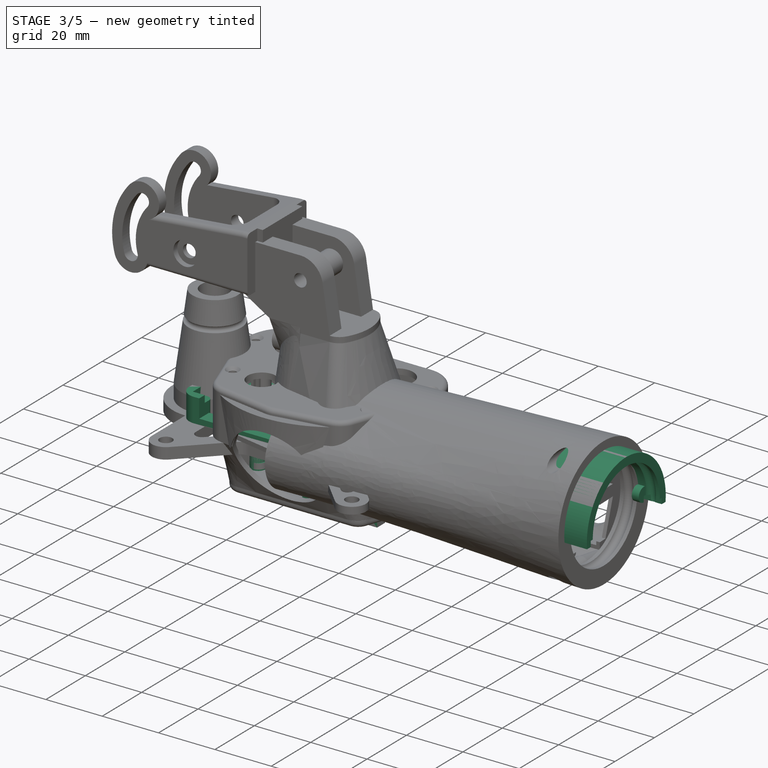
[diagram: stage 3 of 5 — iso view after this stage's code; geometry added in this stage tinted green]
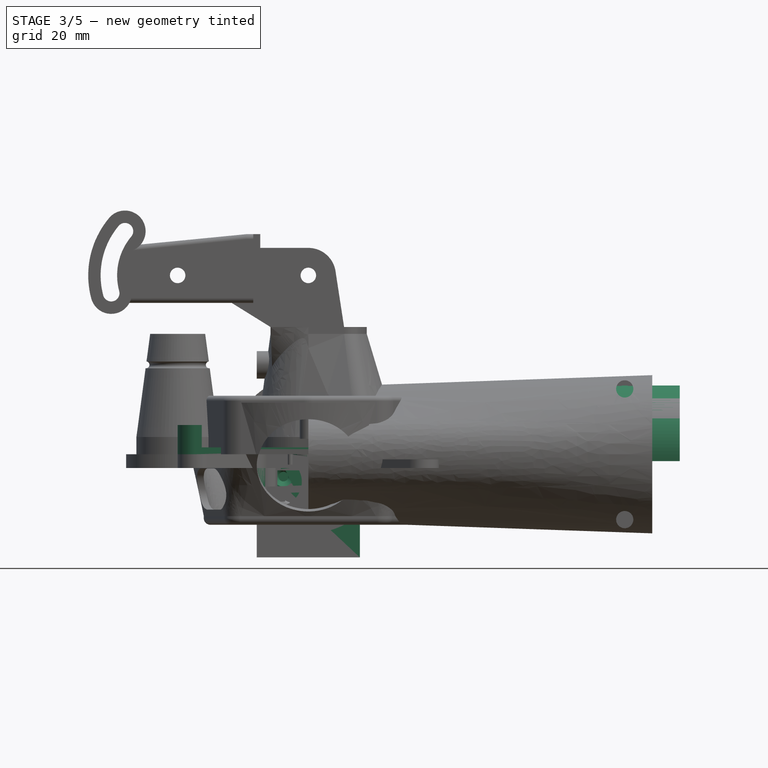
[diagram: stage 3 of 5 — front view after this stage's code; geometry added in this stage tinted green]
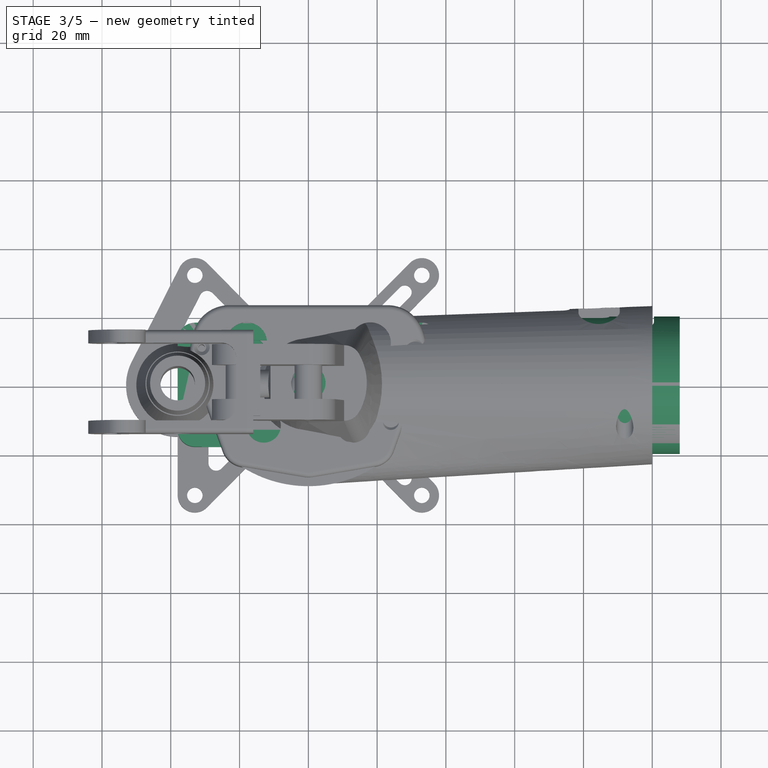
[diagram: stage 3 of 5 — top view after this stage's code; geometry added in this stage tinted green]
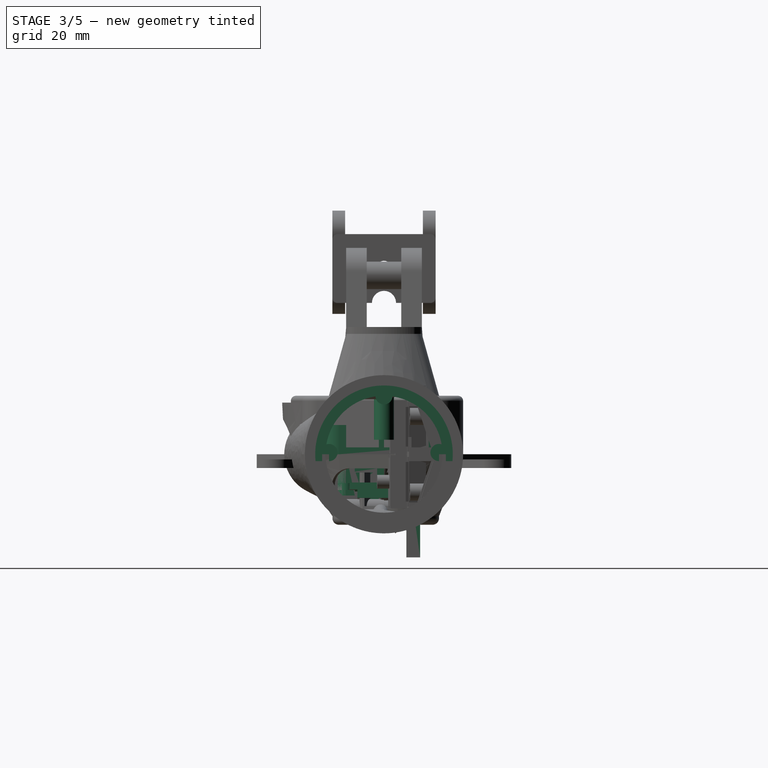
[diagram: stage 3 of 5 — right view after this stage's code; geometry added in this stage tinted green]
FEATURE [PartDesign::Body] Body004  label="Micro Switch"
  Group = -> [Sketch001,Pad001,Cylinder003,LinearPattern]
  Origin = -> Origin007
  Tip = -> LinearPattern
FEATURE [Sketcher::SketchObject] Sketch005  label="pm sk"
  FullyConstrained = true
  MapMode = 5
  Placement = pos=(0,0,0) rot=(1,0,0;1.5708rad)
  Support = -> [XZ_Plane011]
  sketch-geometry (4):
    g0: LineSegment StartX=0 StartY=0 StartZ=0 EndX=33.5 EndY=0 EndZ=0
    g1: LineSegment StartX=33.5 StartY=0 StartZ=0 EndX=33.5 EndY=18 EndZ=0
    g2: LineSegment StartX=33.5 StartY=18 StartZ=0 EndX=0 EndY=18 EndZ=0
    g3: LineSegment StartX=0 StartY=18 StartZ=0 EndX=0 EndY=0 EndZ=0
  constraints (11):
    c: Coincident(g0,g1)
    c: Coincident(g1,g2)
    c: Coincident(g2,g3)
    c: Coincident(g3,g0)
    c: Horizontal(g0)
    c: Horizontal(g2)
    c: Vertical(g1)
    c: Coincident(g0,g-1)
    c: Vertical(g3)
    c: DistanceX(g2,g2) = 33.5
    c: DistanceY(g3,g3) = 18
FEATURE [PartDesign::Pad] Pad006  label="pm pad"
  Direction = (0,-1,-2e-16)
  Length = 1.5
  Length2 = 100
  Placement = pos=(0,0,0) rot=(1,0,0;1.5708rad)
  Profile = -> Sketch005
  ReferenceAxis = -> Sketch005 [N_Axis]
  Type = 0
FEATURE [Sketcher::SketchObject] Sketch042  label="lhtb sk"
  FullyConstrained = true
  MapMode = 5
  Placement = pos=(0,0,0) rot=(0.57735,0.57735,0.57735;2.0944rad)
  Support = -> [YZ_Plane052]
  sketch-geometry (19):
    g0: ArcOfCircle CenterX=0 CenterY=0 CenterZ=0 NormalX=0 NormalY=0 NormalZ=1 AngleXU=0 Radius=20 StartAngle=6.18302 EndAngle=9.52495
    g1: ArcOfCircle CenterX=0 CenterY=0 CenterZ=0 NormalX=0 NormalY=0 NormalZ=1 AngleXU=0 Radius=17 StartAngle=0.170454 EndAngle=1.4236
    g2: LineSegment StartX=-18 StartY=-2 StartZ=0 EndX=-19.8997 EndY=-2 EndZ=0
    g3: LineSegment StartX=18 StartY=-2 StartZ=0 EndX=19.8997 EndY=-2 EndZ=0
    g4: LineSegment StartX=-18 StartY=-2 StartZ=0 EndX=-18 EndY=0 EndZ=0
    g5: LineSegment StartX=18 StartY=-2 StartZ=0 EndX=18 EndY=0 EndZ=0
    g6: ArcOfCircle CenterX=1.1e-15 CenterY=17 CenterZ=0 NormalX=0 NormalY=0 NormalZ=1 AngleXU=0 Radius=2.5 StartAngle=3.21519 EndAngle=6.20959
    g7: ArcOfCircle CenterX=0 CenterY=0 CenterZ=0 NormalX=0 NormalY=0 NormalZ=1 AngleXU=0 Radius=17 StartAngle=1.71799 EndAngle=2.97114
    g8: LineSegment StartX=-2.49323 StartY=16.8162 StartZ=0 EndX=2.49323 EndY=16.8162 EndZ=0
    g9: ArcOfCircle CenterX=-16 CenterY=0.5 CenterZ=0 NormalX=0 NormalY=0 NormalZ=1 AngleXU=0 Radius=2.5 StartAngle=4.71239 EndAngle=8.1602
    g10: ArcOfCircle CenterX=16 CenterY=0.5 CenterZ=0 NormalX=0 NormalY=0 NormalZ=1 AngleXU=0 Radius=2.5 StartAngle=1.26458 EndAngle=4.71239
    g11: LineSegment StartX=-20 StartY=0 StartZ=0 EndX=-18 EndY=0 EndZ=0
    g12: LineSegment StartX=20 StartY=0 StartZ=0 EndX=18 EndY=0 EndZ=0
    g13: LineSegment StartX=-18 StartY=0 StartZ=0 EndX=-16 EndY=0 EndZ=0
    g14: LineSegment StartX=-16 StartY=0 StartZ=0 EndX=-16 EndY=-2 EndZ=0
    g15: LineSegment StartX=-18 StartY=-2 StartZ=0 EndX=-16 EndY=-2 EndZ=0
    g16: LineSegment StartX=18 StartY=0 StartZ=0 EndX=16 EndY=0 EndZ=0
    g17: LineSegment StartX=18 StartY=-2 StartZ=0 EndX=16 EndY=-2 EndZ=0
    g18: LineSegment StartX=16 StartY=0 StartZ=0 EndX=16 EndY=-2 EndZ=0
  constraints (57):
    c: Coincident(g1,g0)
    c: Coincident(g2,g0)
    c: Horizontal(g2)
    c: Coincident(g3,g0)
    c: Horizontal(g3)
    c: Radius(g0) = 20
    c: Coincident(g0,g-1)
    c: Radius(g1) = 17
    c: Vertical(g4)
    c: Coincident(g2,g4)
    c: PointOnObject(g5,g-1)
    c: Vertical(g5)
    c: Coincident(g3,g5)
    c: Equal(g4,g5)
    c: DistanceY(g4,g4) = 2
    c: PointOnObject(g6,g1)
    c: Equal(g1,g7)
    c: Coincident(g1,g6)
    c: Coincident(g7,g6)
    c: Coincident(g1,g7)
    c: Radius(g6) = 2.5
    c: Coincident(g8,g6)
    c: Coincident(g8,g1)
    c: Horizontal(g8)
    c: Radius(g9) = 2.5
    c: Coincident(g7,g9)
    c: Coincident(g1,g10)
    c: PointOnObject(g11,g0)
    c: Coincident(g11,g4)
    c: Horizontal(g11)
    c: DistanceX(g11,g11) = 2
    c: Equal(g9,g10)
    c: PointOnObject(g12,g0)
    c: Coincident(g12,g5)
    c: Horizontal(g12)
    c: Equal(g12,g11)
    c: Coincident(g13,g4)
    c: PointOnObject(g13,g-1)
    c: Horizontal(g13)
    c: DistanceX(g13,g13) = 2
    c: Coincident(g14,g13)
    c: Coincident(g14,g9)
    c: Vertical(g14)
    c: Coincident(g15,g2)
    c: Coincident(g15,g9)
    c: Horizontal(g15)
    c: Perpendicular(g9,g14)
    c: Coincident(g16,g5)
    c: PointOnObject(g16,g-1)
    c: Equal(g16,g13)
    c: Coincident(g17,g3)
    c: Horizontal(g17)
    c: Coincident(g18,g16)
    c: Coincident(g18,g17)
    c: Vertical(g18)
    c: Coincident(g10,g18)
    c: Perpendicular(g10,g18)
FEATURE [PartDesign::Pad] Pad027  label="lhtb pad"
  Direction = (1,-2e-16,3e-16)
  Length = 108
  Length2 = 10
  Placement = pos=(0,0,0) rot=(0.57735,0.57735,0.57735;2.0944rad)
  Profile = -> Sketch042
  ReferenceAxis = -> Sketch042 [N_Axis]
  Type = 0
FEATURE [PartDesign::Body] Body040  label="lht left end"
  Group = -> [Sketch041,Pad026,Sketch046,Pocket010]
  Origin = -> Origin050
  Placement = pos=(4,0,0) rot=(0,0,1;0rad)
  Tip = -> Pocket010
FEATURE [Sketcher::SketchObject] Sketch047  label="lst sk end"
  FullyConstrained = true
  MapMode = 5
  Placement = pos=(0,0,0) rot=(0.57735,0.57735,0.57735;2.0944rad)
  Support = -> [YZ_Plane056]
  sketch-geometry (17):
    g0: ArcOfCircle CenterX=15.9298 CenterY=8.38106 CenterZ=0 NormalX=0 NormalY=0 NormalZ=1 AngleXU=0 Radius=2.3 StartAngle=1.51099 EndAngle=5.13279
    g1: Circle CenterX=0 CenterY=0 CenterZ=0 NormalX=0 NormalY=0 NormalZ=1 AngleXU=0 Radius=18
    g2: ArcOfCircle CenterX=17.5902 CenterY=3.8192 CenterZ=0 NormalX=0 NormalY=0 NormalZ=1 AngleXU=0 Radius=2.3 StartAngle=1.84853 EndAngle=5.47032
    g3: LineSegment StartX=20.694 StartY=9.66034 StartZ=0 EndX=22.062 EndY=5.90157 EndZ=0
    g4: LineSegment StartX=16.8685 StartY=6.28133 StartZ=0 EndX=16.9595 EndY=6.03106 EndZ=0
    g5: LineSegment StartX=15.9298 StartY=8.38106 StartZ=0 EndX=0 EndY=0 EndZ=0
    g6: LineSegment StartX=17.5902 StartY=3.8192 StartZ=0 EndX=0 EndY=0 EndZ=0
    g7: LineSegment StartX=16.8488 StartY=11.4534 StartZ=0 EndX=15.9091 EndY=11.1113 EndZ=0
    g8: LineSegment StartX=20.269 StartY=2.05643 StartZ=0 EndX=19.3293 EndY=1.71441 EndZ=0
    g9: LineSegment StartX=19.3293 StartY=1.71441 StartZ=0 EndX=19.1712 EndY=2.14881 EndZ=0
    g10: LineSegment StartX=15.9091 StartY=11.1113 StartZ=0 EndX=16.0672 EndY=10.6769 EndZ=0
    g11: ArcOfCircle CenterX=17.8749 CenterY=8.63428 CenterZ=0 NormalX=0 NormalY=0 NormalZ=1 AngleXU=0 Radius=3 StartAngle=0.349066 EndAngle=1.91986
    g12: GeomPoint X=19.6679 Y=12.4794 Z=0
    g13: ArcOfCircle CenterX=19.243 CenterY=4.87551 CenterZ=0 NormalX=0 NormalY=0 NormalZ=1 AngleXU=0 Radius=3 StartAngle=5.06145 EndAngle=6.63225
    g14: GeomPoint X=23.0881 Y=3.0825 Z=0
    g15: GeomPoint X=21.378 Y=7.78096 Z=0
    g16: LineSegment StartX=0 StartY=0 StartZ=0 EndX=21.378 EndY=7.78096 EndZ=0
  constraints (42):
    c: Radius(g0) = 2.3
    c: Coincident(g1,g-1)
    c: PointOnObject(g2,g1)
    c: Equal(g2,g0)
    c: Coincident(g4,g2)
    c: Coincident(g4,g0)
    c: PointOnObject(g2,g1)
    c: Parallel(g4,g3)
    c: PointOnObject(g0,g1)
    c: Coincident(g5,g0)
    c: Coincident(g5,g1)
    c: Coincident(g6,g2)
    c: Coincident(g6,g1)
    c: Angle(g6,g5) = 0.270526
    c: Radius(g1) = 18
    c: Coincident(g9,g8)
    c: Coincident(g9,g2)
    c: Coincident(g10,g7)
    c: Coincident(g10,g0)
    c: PointOnObject(g12,g3)
    c: PointOnObject(g12,g7)
    c: Tangent(g3,g11) = 1.5708
    c: Tangent(g7,g11) = -1.5708
    c: Radius(g11) = 3
    c: PointOnObject(g14,g8)
    c: PointOnObject(g14,g3)
    c: Tangent(g8,g13) = 1.5708
    c: Tangent(g3,g13) = 1.5708
    c: Equal(g13,g11)
    c: Perpendicular(g9,g8)
    c: Perpendicular(g7,g10)
    c: Symmetric(g3,g3,g15)
    c: Coincident(g16,g1)
    c: Coincident(g16,g15)
    c: Angle(g16,g-2) = 1.22173
    c: Distance(g12,g14) = 10
    c: Distance(g12,g7) = 4
    c: Parallel(g10,g9)
    c: Parallel(g9,g3)
    c: Symmetric(g0,g2,g16)
    c: Equal(g8,g7)
    c: Distance(g16) = 22.75
FEATURE [PartDesign::Pad] Pad030  label="lst pad end"
  Direction = (1,-2e-16,3e-16)
  Length = 3
  Length2 = 10
  Placement = pos=(0,0,0) rot=(0.57735,0.57735,0.57735;2.0944rad)
  Profile = -> Sketch047
  ReferenceAxis = -> Sketch047 [N_Axis]
  Type = 0
FEATURE [PartDesign::SubtractiveCylinder] Cylinder071  label="lhtb radial notch"
  Angle = 360
  AttacherType = Attacher::AttachEngine3D
  BaseFeature = -> Pad027
  FirstAngle = 0
  Height = 3
  MapMode = 5
  Placement = pos=(0,0,0) rot=(0.57735,0.57735,0.57735;2.0944rad)
  Radius = 18.5
  SecondAngle = 0
  Support = -> [YZ_Plane052]
FEATURE [PartDesign::ShapeBinder] ShapeBinder001  label="lhtb top stopper binder"
  Placement = pos=(3,-1e-15,1e-15) rot=(0.57735,0.57735,0.57735;2.0944rad)
  Support = -> [Sketch049]
  TraceSupport = false
FEATURE [Sketcher::SketchObject] Sketch050  label="lhtb sk stopper notch"
  ExternalGeometry = -> [ShapeBinder001]
  FullyConstrained = true
  MapMode = 5
  Placement = pos=(0,0,0) rot=(0.57735,0.57735,0.57735;2.0944rad)
  Support = -> [YZ_Plane052]
  sketch-geometry (6):
    g0: LineSegment StartX=15.7593 StartY=11.3228 StartZ=0 EndX=18.5784 EndY=12.3489 EndZ=0
    g1: LineSegment StartX=18.5784 StartY=12.3489 StartZ=0 EndX=22.1696 EndY=2.48214 EndZ=0
    g2: LineSegment StartX=22.1696 StartY=2.48214 StartZ=0 EndX=19.3505 EndY=1.45608 EndZ=0
    g3: GeomPoint X=21.378 Y=7.78096 Z=0
    g4: LineSegment StartX=0 StartY=0 StartZ=0 EndX=21.378 EndY=7.78096 EndZ=0
    g5: ArcOfCircle CenterX=0 CenterY=0 CenterZ=0 NormalX=0 NormalY=0 NormalZ=1 AngleXU=0 Radius=19.4052 StartAngle=0.0751059 EndAngle=0.623026
  constraints (14):
    c: Coincident(g0,g1)
    c: Coincident(g1,g2)
    c: Coincident(g4,g-1)
    c: Coincident(g4,g3)
    c: Symmetric(g1,g0,g4)
    c: Distance(g1) = 10.5
    c: Coincident(g5,g4)
    c: Coincident(g5,g0)
    c: Coincident(g5,g2)
    c: Perpendicular(g2,g1)
    c: Perpendicular(g1,g0)
    c: Symmetric(g-7,g-4,g3)
    c: PointOnObject(g-8,g5)
    c: Distance(g0) = 3
FEATURE [PartDesign::Pocket] Pocket011  label="lhtb top stopper notch"
  BaseFeature = -> Cylinder071
  Direction = (-1,2e-16,-3e-16)
  Length = 18
  Length2 = 5
  Placement = pos=(0,0,0) rot=(0.57735,0.57735,0.57735;2.0944rad)
  Profile = -> Sketch050
  ReferenceAxis = -> Sketch050 [N_Axis]
  Reversed = true
  Type = 0
FEATURE [PartDesign::Body] Body044  label="Lever Stopper Top"
  Group = -> [Sketch047,Pad030,Sketch049,Pad031,Sketch051,Pocket012]
  Origin = -> Origin056
  Placement = pos=(-21,0,54) rot=(-1,0,0;0rad)
  Tip = -> Pocket012
FEATURE [PartDesign::Line] DatumLine  label="lhtb axe stopper screw"
  AttacherType = Attacher::AttachEngineLine
  AttachmentOffset = pos=(-4,0,0) rot=(0,0,1;0rad)
  Length = 20
  MapMode = 42
  Placement = pos=(13,3e-15,-1.33e-14) rot=(0,0.573576,0.819152;3.14159rad)
  ResizeMode = 0
  Support = -> [Pocket011]
FEATURE [PartDesign::AdditiveCylinder] Cylinder074  label="lhtb stopper screw support"
  Angle = 360
  AttacherType = Attacher::AttachEngine3D
  AttachmentOffset = pos=(0,0,15) rot=(0,0,1;0rad)
  BaseFeature = -> Pocket011
  FirstAngle = 0
  Height = 3
  MapMode = 2
  Placement = pos=(13,14.0954,5.1303) rot=(0,0.573576,0.819152;3.14159rad)
  Radius = 3
  SecondAngle = 0
  Support = -> [DatumLine]
FEATURE [PartDesign::SubtractiveCylinder] Cylinder075  label="lhtb stopper screw hole"
  Angle = 360
  AttacherType = Attacher::AttachEngine3D
  AttachmentOffset = pos=(0,0,10) rot=(0,0,1;0rad)
  BaseFeature = -> Cylinder074
  FirstAngle = 0
  Height = 10
  MapMode = 2
  Placement = pos=(13,9.39693,3.4202) rot=(0,0.573576,0.819152;3.14159rad)
  Radius = 1.75
  SecondAngle = 0
  Support = -> [DatumLine]
FEATURE [PartDesign::SubtractiveCylinder] Cylinder077  label="lhtb right notch"
  Angle = 360
  AttacherType = Attacher::AttachEngine3D
  AttachmentOffset = pos=(0,0,103) rot=(0,0,1;0rad)
  BaseFeature = -> Cylinder075
  FirstAngle = 0
  Height = 5
  MapMode = 5
  Placement = pos=(103,-2.29e-14,2.29e-14) rot=(0.57735,0.57735,0.57735;2.0944rad)
  Radius = 17
  SecondAngle = 0
  Support = -> [YZ_Plane052]
FEATURE [PartDesign::SubtractiveTorus] Torus003  label="lhtb right ring notch"
  Angle1 = -180
  Angle2 = 180
  Angle3 = 360
  AttacherType = Attacher::AttachEngine3D
  AttachmentOffset = pos=(0,0,105) rot=(0,0,1;0rad)
  BaseFeature = -> Cylinder077
  MapMode = 5
  Placement = pos=(105,-2.33e-14,2.33e-14) rot=(0.57735,0.57735,0.57735;2.0944rad)
  Radius1 = 16.5
  Radius2 = 1.75
  Support = -> [YZ_Plane052]
FEATURE [PartDesign::Body] Body084  label="HAT Axe Ring 2"
  Group = -> [Sketch096,Pad059,Sphere005]
  Origin = -> Origin104
  Placement = pos=(0,0,3.5) rot=(0,0,1;0rad)
  Tip = -> Sphere005
FEATURE [Sketcher::SketchObject] Sketch097  label="rb sk"
  FullyConstrained = true
  MapMode = 5
  Placement = pos=(0,0,0) rot=(1,0,0;1.5708rad)
  Support = -> [XZ_Plane107]
  sketch-geometry (19):
    g0: ArcOfCircle CenterX=0 CenterY=0 CenterZ=0 NormalX=0 NormalY=0 NormalZ=1 AngleXU=0 Radius=8 StartAngle=1.10128 EndAngle=2.04031
    g1: ArcOfCircle CenterX=-12.5435 CenterY=24.7231 CenterZ=0 NormalX=0 NormalY=0 NormalZ=1 AngleXU=0 Radius=19.7231 StartAngle=4.15359 EndAngle=5.18191
    g2: ArcOfCircle CenterX=12.5435 CenterY=24.7231 CenterZ=0 NormalX=0 NormalY=0 NormalZ=1 AngleXU=0 Radius=19.7231 StartAngle=4.24287 EndAngle=5.27118
    g3: LineSegment StartX=-23 StartY=8 StartZ=0 EndX=-26 EndY=8 EndZ=0
    g4: LineSegment StartX=23 StartY=8 StartZ=0 EndX=26 EndY=8 EndZ=0
    g5: LineSegment StartX=-23 StartY=8 StartZ=0 EndX=23 EndY=8 EndZ=0
    g6: LineSegment StartX=-12.5435 StartY=5 StartZ=0 EndX=12.5435 EndY=5 EndZ=0
    g7: LineSegment StartX=-28.5 StartY=3 StartZ=0 EndX=-26 EndY=8 EndZ=0
    g8: LineSegment StartX=26 StartY=8 StartZ=0 EndX=28.5 EndY=3 EndZ=0
    g9: LineSegment StartX=-3 StartY=0 StartZ=0 EndX=-3 EndY=-2.5 EndZ=0
    g10: LineSegment StartX=3 StartY=0 StartZ=0 EndX=3 EndY=-2.5 EndZ=0
    g11: LineSegment StartX=-3 StartY=-2.5 StartZ=0 EndX=3 EndY=-2.5 EndZ=0
    g12: ArcOfCircle CenterX=0 CenterY=-2.5 CenterZ=0 NormalX=0 NormalY=0 NormalZ=1 AngleXU=0 Radius=3 StartAngle=3.14159 EndAngle=6.28319
    g13: LineSegment StartX=-3 StartY=0 StartZ=0 EndX=-19 EndY=0 EndZ=0
    g14: LineSegment StartX=3 StartY=0 StartZ=0 EndX=19 EndY=0 EndZ=0
    g15: LineSegment StartX=-19 StartY=0 StartZ=0 EndX=-28.5 EndY=-3 EndZ=0
    g16: LineSegment StartX=19 StartY=0 StartZ=0 EndX=28.5 EndY=-3 EndZ=0
    g17: LineSegment StartX=-28.5 StartY=3 StartZ=0 EndX=-28.5 EndY=-3 EndZ=0
    g18: LineSegment StartX=28.5 StartY=3 StartZ=0 EndX=28.5 EndY=-3 EndZ=0
  constraints (51):
    c: Coincident(g0,g-1)
    c: Tangent(g1,g0) = 1.5708
    c: Coincident(g2,g0)
    c: Symmetric(g2,g1,g-2)
    c: Symmetric(g1,g2,g-2)
    c: Coincident(g3,g1)
    c: Horizontal(g3)
    c: Coincident(g4,g2)
    c: Symmetric(g3,g4,g-2)
    c: DistanceX(g3,g4) = 52
    c: Coincident(g5,g1)
    c: Coincident(g5,g2)
    c: Tangent(g0,g5)
    c: DistanceX(g3,g3) = 3
    c: PointOnObject(g6,g1)
    c: PointOnObject(g6,g2)
    c: Horizontal(g6)
    c: Tangent(g6,g2)
    c: DistanceY(g6,g1) = 3
    c: Coincident(g7,g3)
    c: Coincident(g4,g8)
    c: Symmetric(g7,g8,g-2)
    c: Vertical(g9)
    c: Vertical(g10)
    c: Coincident(g11,g9)
    c: Coincident(g11,g10)
    c: Horizontal(g11)
    c: PointOnObject(g12,g11)
    c: Coincident(g12,g9)
    c: Coincident(g12,g10)
    c: PointOnObject(g12,g-2)
    c: Radius(g12) = 3
    c: DistanceY(g9,g9) = 2.5
    c: Coincident(g9,g13)
    c: PointOnObject(g13,g-1)
    c: Horizontal(g13)
    c: Coincident(g14,g10)
    c: Horizontal(g14)
    c: Symmetric(g13,g14,g-2)
    c: DistanceY(g0,g7) = 3
    c: Coincident(g15,g13)
    c: Symmetric(g7,g15,g-1)
    c: Coincident(g16,g14)
    c: Symmetric(g16,g15,g-2)
    c: Coincident(g17,g7)
    c: Coincident(g17,g15)
    c: Coincident(g18,g8)
    c: Coincident(g18,g16)
    c: DistanceX(g15,g16) = 57
    c: DistanceY(g7,g6) = 2
    c: DistanceX(g13,g14) = 38
FEATURE [PartDesign::Pad] Pad060  label="rb body"
  Direction = (0,-1,-2e-16)
  Length = 8
  Length2 = 10
  Midplane = true
  Placement = pos=(0,0,0) rot=(1,0,0;1.5708rad)
  Profile = -> Sketch097
  ReferenceAxis = -> Sketch097 [N_Axis]
  Type = 0
FEATURE [PartDesign::AdditiveCylinder] Cylinder  label="rb bolt"
  Angle = 360
  AttacherType = Attacher::AttachEngine3D
  AttachmentOffset = pos=(0,-2.5,0) rot=(0,0,1;0rad)
  BaseFeature = -> Pad060
  FirstAngle = 0
  Height = 6
  MapMode = 5
  Placement = pos=(0,6e-16,-2.5) rot=(1,0,0;1.5708rad)
  Radius = 1.5
  SecondAngle = 0
  Support = -> [XZ_Plane107]
FEATURE [PartDesign::Mirrored] Mirrored015  label="rb bolt 2"
  BaseFeature = -> Cylinder
  MirrorPlane = -> XZ_Plane107
  Originals = -> [Cylinder]
  Placement = pos=(0,1e-15,-2.5) rot=(1,0,0;1.5708rad)
FEATURE [PartDesign::Body] Body094  label="em rocker button mount"
  BaseFeature = -> Body088
  Group = -> [Clone024]
  Origin = -> Origin117
  Placement = pos=(40,17,54) rot=(-1,0,0;1.5708rad)
  Tip = -> Clone024
FEATURE [Sketcher::SketchObject] Sketch102  label="lhbrmb sk"
  FullyConstrained = true
  MapMode = 5
  Placement = pos=(0,0,0) rot=(0.57735,0.57735,0.57735;2.0944rad)
  Support = -> [YZ_Plane118]
  sketch-geometry (6):
    g0: LineSegment StartX=5 StartY=-11 StartZ=0 EndX=7 EndY=-11 EndZ=0
    g1: LineSegment StartX=7 StartY=-11 StartZ=0 EndX=7 EndY=-2 EndZ=0
    g2: LineSegment StartX=7 StartY=-2 StartZ=0 EndX=16 EndY=-2 EndZ=0
    g3: LineSegment StartX=16 StartY=0 StartZ=0 EndX=16 EndY=-2 EndZ=0
    g4: LineSegment StartX=5 StartY=-11 StartZ=0 EndX=5 EndY=0 EndZ=0
    g5: LineSegment StartX=16 StartY=0 StartZ=0 EndX=5 EndY=0 EndZ=0
  constraints (18):
    c: PointOnObject(g3,g-1)
    c: Horizontal(g0)
    c: Coincident(g1,g0)
    c: Vertical(g1)
    c: Coincident(g2,g1)
    c: Horizontal(g2)
    c: Coincident(g3,g2)
    c: Vertical(g3)
    c: Equal(g0,g3)
    c: DistanceY(g3,g3) = 2
    c: Coincident(g4,g0)
    c: PointOnObject(g4,g-1)
    c: Vertical(g4)
    c: DistanceX(g-1,g4) = 5
    c: DistanceY(g4,g4) = 11
    c: DistanceX(g2,g2) = 9
    c: Coincident(g5,g3)
    c: Coincident(g5,g4)
FEATURE [PartDesign::Pad] Pad063  label="lhbrmb body"
  Direction = (1,-2e-16,3e-16)
  Length = 42
  Length2 = 10
  Placement = pos=(0,0,0) rot=(0.57735,0.57735,0.57735;2.0944rad)
  Profile = -> Sketch102
  ReferenceAxis = -> Sketch102 [N_Axis]
  Type = 0
FEATURE [PartDesign::AdditiveBox] Box013  label="pm port"
  AttacherType = Attacher::AttachEngine3D
  AttachmentOffset = pos=(-1,5,-2.5) rot=(0,0,1;0rad)
  BaseFeature = -> Pad006
  Height = 2.5
  Length = 5.5
  MapMode = 5
  Placement = pos=(-1,2.5,5) rot=(1,0,0;1.5708rad)
  Support = -> [XZ_Plane011]
  Width = 8
FEATURE [PartDesign::AdditiveBox] Box014  label="pm cpu"
  AttacherType = Attacher::AttachEngine3D
  AttachmentOffset = pos=(19,3.7,-1) rot=(0,0,1;0.785398rad)
  BaseFeature = -> Box013
  Height = 1
  Length = 7.5
  MapMode = 5
  Placement = pos=(19,1,3.7) rot=(0.862856,-0.357407,0.357407;1.71777rad)
  Support = -> [XZ_Plane011]
  Width = 7.5
FEATURE [Sketcher::SketchObject] Sketch105  label="lhtb sk button notch"
  AttachmentOffset = pos=(96,0,-20) rot=(0,0,1;0rad)
  FullyConstrained = true
  MapMode = 5
  Placement = pos=(96,20,4.4e-15) rot=(1,0,0;1.5708rad)
  Support = -> [XZ_Plane052]
  sketch-geometry (6):
    g0: ArcOfCircle CenterX=0 CenterY=8 CenterZ=0 NormalX=0 NormalY=0 NormalZ=1 AngleXU=0 Radius=4.5 StartAngle=1e-16 EndAngle=3.14159
    g1: LineSegment StartX=-4.5 StartY=8 StartZ=0 EndX=-4.5 EndY=0 EndZ=0
    g2: LineSegment StartX=4.5 StartY=8 StartZ=0 EndX=4.5 EndY=0 EndZ=0
    g3: LineSegment StartX=-4.5 StartY=0 StartZ=0 EndX=-4.5 EndY=-2 EndZ=0
    g4: LineSegment StartX=4.5 StartY=0 StartZ=0 EndX=4.5 EndY=-2 EndZ=0
    g5: LineSegment StartX=4.5 StartY=-2 StartZ=0 EndX=-4.5 EndY=-2 EndZ=0
  constraints (17):
    c: PointOnObject(g0,g-2)
    c: Radius(g0) = 4.5
    c: DistanceY(g-1,g0) = 8
    c: PointOnObject(g1,g-1)
    c: Vertical(g1)
    c: PointOnObject(g2,g-1)
    c: Vertical(g2)
    c: Tangent(g0,g1) = -1.5708
    c: Tangent(g0,g2) = 1.5708
    c: Coincident(g3,g1)
    c: Vertical(g3)
    c: Coincident(g4,g2)
    c: Vertical(g4)
    c: Coincident(g5,g4)
    c: Coincident(g5,g3)
    c: Horizontal(g5)
    c: DistanceY(g4,g2) = 2
FEATURE [PartDesign::Pocket] Pocket020  label="lhtb button notch"
  BaseFeature = -> Torus003
  Direction = (0,1,2e-16)
  Length = 10
  Length2 = 5
  Placement = pos=(105,-2.3e-14,2.3e-14) rot=(0.57735,0.57735,0.57735;2.0944rad)
  Profile = -> Sketch105
  ReferenceAxis = -> Sketch105 [N_Axis]
  Reversed = true
  Type = 0
FEATURE [Sketcher::SketchObject] Sketch106  label="lhtb sk rocker notch"
  AttachmentOffset = pos=(58,0,-20) rot=(0,0,1;0rad)
  FullyConstrained = true
  MapMode = 5
  Placement = pos=(58,20,4.4e-15) rot=(1,0,0;1.5708rad)
  Support = -> [XZ_Plane052]
  sketch-geometry (12):
    g0: LineSegment StartX=29.5 StartY=-2 StartZ=0 EndX=-29.5 EndY=-2 EndZ=0
    g1: LineSegment StartX=-29.5 StartY=-2 StartZ=0 EndX=-29.5 EndY=2.5 EndZ=0
    g2: LineSegment StartX=-27.5 StartY=4.5 StartZ=0 EndX=-4.2 EndY=4.5 EndZ=0
    g3: LineSegment StartX=29.5 StartY=2.5 StartZ=0 EndX=29.5 EndY=-2 EndZ=0
    g4: LineSegment StartX=4.2 StartY=4.5 StartZ=0 EndX=4.2 EndY=6.2 EndZ=0
    g5: LineSegment StartX=4.2 StartY=6.2 StartZ=0 EndX=-4.2 EndY=6.2 EndZ=0
    g6: LineSegment StartX=-4.2 StartY=6.2 StartZ=0 EndX=-4.2 EndY=4.5 EndZ=0
    g7: LineSegment StartX=4.2 StartY=4.5 StartZ=0 EndX=27.5 EndY=4.5 EndZ=0
    g8: ArcOfCircle CenterX=-27.5 CenterY=2.5 CenterZ=0 NormalX=0 NormalY=0 NormalZ=1 AngleXU=0 Radius=2 StartAngle=1.5708 EndAngle=3.14159
    g9: GeomPoint X=-29.5 Y=4.5 Z=0
    g10: ArcOfCircle CenterX=27.5 CenterY=2.5 CenterZ=0 NormalX=0 NormalY=0 NormalZ=1 AngleXU=0 Radius=2 StartAngle=0 EndAngle=1.5708
    g11: GeomPoint X=29.5 Y=4.5 Z=0
  constraints (31):
    c: Coincident(g0,g1)
    c: Coincident(g3,g0)
    c: Horizontal(g0)
    c: Vertical(g1)
    c: Vertical(g3)
    c: Vertical(g4)
    c: PointOnObject(g5,g4)
    c: Horizontal(g5)
    c: Vertical(g6)
    c: DistanceX(g0,g0) = 59
    c: Symmetric(g9,g11,g-2)
    c: Coincident(g7,g4)
    c: Symmetric(g5,g4,g-2)
    c: DistanceY(g3,g11) = 6.5
    c: DistanceY(g0,g-1) = 2
    c: Horizontal(g2)
    c: Horizontal(g7)
    c: DistanceY(g4,g4) = 1.7
    c: DistanceX(g5,g5) = 8.4
    c: Coincident(g6,g2)
    c: Coincident(g6,g5)
    c: PointOnObject(g9,g2)
    c: PointOnObject(g9,g1)
    c: Tangent(g2,g8) = 1.5708
    c: Tangent(g1,g8) = 1.5708
    c: PointOnObject(g11,g7)
    c: PointOnObject(g11,g3)
    c: Tangent(g7,g10) = 1.5708
    c: Tangent(g3,g10) = 1.5708
    c: Equal(g10,g8)
    c: Radius(g10) = 2
FEATURE [PartDesign::Pocket] Pocket021  label="lhtb rocker notch"
  BaseFeature = -> Pocket020
  Direction = (0,1,2e-16)
  Length = 10
  Length2 = 5
  Placement = pos=(105,-2.3e-14,2.3e-14) rot=(0.57735,0.57735,0.57735;2.0944rad)
  Profile = -> Sketch106
  ReferenceAxis = -> Sketch106 [N_Axis]
  Reversed = true
  Type = 0
FEATURE [PartDesign::Body] Body042  label="lhb body"
  Group = -> [Sketch043,Pad028,Cylinder072,Cylinder073,Mirrored013,Cylinder076,Torus002,Sketch104,Pocket019,Sketch107,Pocket022,Sketch116,Pocket023,Sketch117,Revolution005,LinearPattern002]
  Origin = -> Origin054
  Placement = pos=(-10,0,54) rot=(0,0,1;0rad)
  Tip = -> LinearPattern002
FEATURE [Sketcher::SketchObject] Sketch118  label="lhbrmb sk vertical holes"
  AttachmentOffset = pos=(0,5,0) rot=(0,0,1;0rad)
  FullyConstrained = true
  MapMode = 5
  Placement = pos=(0,5,0) rot=(0,0,1;0rad)
  Support = -> [XY_Plane118]
  sketch-geometry (31):
    g0: LineSegment StartX=2 StartY=9 StartZ=0 EndX=2 EndY=2 EndZ=0
    g1: LineSegment StartX=2 StartY=2 StartZ=0 EndX=9 EndY=2 EndZ=0
    g2: LineSegment StartX=2 StartY=9 StartZ=0 EndX=9 EndY=2 EndZ=0
    g3: LineSegment StartX=2 StartY=9 StartZ=0 EndX=4 EndY=9 EndZ=0
    g4: LineSegment StartX=9 StartY=2 StartZ=0 EndX=11 EndY=2 EndZ=0
    g5: LineSegment StartX=4 StartY=9 StartZ=0 EndX=11 EndY=9 EndZ=0
    g6: LineSegment StartX=11 StartY=9 StartZ=0 EndX=11 EndY=2 EndZ=0
    g7: LineSegment StartX=11 StartY=2 StartZ=0 EndX=4 EndY=9 EndZ=0
    g8: LineSegment StartX=31 StartY=9 StartZ=0 EndX=31 EndY=2 EndZ=0
    g9: LineSegment StartX=31 StartY=2 StartZ=0 EndX=38 EndY=2 EndZ=0
    g10: LineSegment StartX=31 StartY=9 StartZ=0 EndX=38 EndY=2 EndZ=0
    g11: LineSegment StartX=31 StartY=9 StartZ=0 EndX=33 EndY=9 EndZ=0
    g12: LineSegment StartX=38 StartY=2 StartZ=0 EndX=40 EndY=2 EndZ=0
    g13: LineSegment StartX=33 StartY=9 StartZ=0 EndX=40 EndY=9 EndZ=0
    g14: LineSegment StartX=40 StartY=9 StartZ=0 EndX=40 EndY=2 EndZ=0
    g15: LineSegment StartX=40 StartY=2 StartZ=0 EndX=33 EndY=9 EndZ=0
    g16: LineSegment StartX=11 StartY=2 StartZ=0 EndX=31 EndY=2 EndZ=0
    g17: LineSegment StartX=16.5 StartY=9 StartZ=0 EndX=16.5 EndY=2 EndZ=0
    g18: LineSegment StartX=16.5 StartY=2 StartZ=0 EndX=23.5 EndY=2 EndZ=0
    g19: LineSegment StartX=16.5 StartY=9 StartZ=0 EndX=23.5 EndY=2 EndZ=0
    g20: LineSegment StartX=16.5 StartY=9 StartZ=0 EndX=18.5 EndY=9 EndZ=0
    g21: LineSegment StartX=23.5 StartY=2 StartZ=0 EndX=25.5 EndY=2 EndZ=0
    g22: LineSegment StartX=18.5 StartY=9 StartZ=0 EndX=25.5 EndY=9 EndZ=0
    g23: LineSegment StartX=25.5 StartY=9 StartZ=0 EndX=25.5 EndY=2 EndZ=0
    g24: LineSegment StartX=25.5 StartY=2 StartZ=0 EndX=18.5 EndY=9 EndZ=0
    g25: LineSegment StartX=16.5 StartY=9 StartZ=0 EndX=11 EndY=2 EndZ=0
    g26: LineSegment StartX=11 StartY=9 StartZ=0 EndX=16.5 EndY=2 EndZ=0
    g27: LineSegment StartX=25.5 StartY=9 StartZ=0 EndX=31 EndY=2 EndZ=0
    g28: LineSegment StartX=31 StartY=9 StartZ=0 EndX=25.5 EndY=2 EndZ=0
    g29: Circle CenterX=13.75 CenterY=5.5 CenterZ=0 NormalX=0 NormalY=0 NormalZ=1 AngleXU=0 Radius=1
    g30: Circle CenterX=28.25 CenterY=5.5 CenterZ=0 NormalX=0 NormalY=0 NormalZ=1 AngleXU=0 Radius=1
  constraints (85):
    c: Vertical(g0)
    c: Coincident(g0,g1)
    c: Horizontal(g1)
    c: Coincident(g0,g2)
    c: Coincident(g2,g1)
    c: Equal(g1,g0)
    c: DistanceY(g-1,g0) = 2
    c: DistanceX(g-1,g0) = 2
    c: DistanceY(g0,g0) = 7
    c: Coincident(g3,g0)
    c: Horizontal(g3)
    c: Coincident(g4,g1)
    c: Horizontal(g4)
    c: Equal(g3,g4)
    c: Horizontal(g5)
    c: Equal(g5,g6)
    c: Equal(g6,g0)
    c: Coincident(g5,g6)
    c: Vertical(g6)
    c: Coincident(g5,g7)
    c: Coincident(g6,g7)
    c: Coincident(g5,g3)
    c: DistanceX(g3,g3) = 2
    c: Vertical(g8)
    c: Coincident(g8,g9)
    c: Horizontal(g9)
    c: Coincident(g8,g10)
    c: Coincident(g10,g9)
    c: Equal(g9,g8)
    c: Equal(g0,g8) = 7
    c: Coincident(g11,g8)
    c: Horizontal(g11)
    c: Coincident(g12,g9)
    c: Horizontal(g12)
    c: Equal(g11,g12)
    c: Horizontal(g13)
    c: Equal(g13,g14)
    c: Equal(g14,g8)
    c: Coincident(g13,g14)
    c: Vertical(g14)
    c: Coincident(g13,g15)
    c: Coincident(g14,g15)
    c: Coincident(g13,g11)
    c: Equal(g3,g11) = 2
    c: Coincident(g16,g6)
    c: Coincident(g16,g8)
    c: Horizontal(g16)
    c: DistanceX(g0,g14) = 38
    c: Vertical(g17)
    c: Coincident(g17,g18)
    c: Horizontal(g18)
    c: Coincident(g17,g19)
    c: Coincident(g19,g18)
    c: Equal(g18,g17)
    c: Equal(g0,g17) = 7
    c: Coincident(g20,g17)
    c: Horizontal(g20)
    c: Coincident(g21,g18)
    c: Horizontal(g21)
    c: Equal(g20,g21)
    c: Horizontal(g22)
    c: Equal(g22,g23)
    c: Equal(g23,g17)
    c: Coincident(g22,g23)
    c: Vertical(g23)
    c: Coincident(g22,g24)
    c: Coincident(g23,g24)
    c: Coincident(g22,g20)
    c: Equal(g3,g20) = 2
    c: PointOnObject(g24,g16)
    c: DistanceX(g6,g17) = 5.5
    c: Coincident(g25,g17)
    c: Coincident(g25,g6)
    c: Coincident(g26,g5)
    c: Coincident(g26,g17)
    c: Coincident(g27,g22)
    c: Coincident(g27,g8)
    c: Coincident(g28,g8)
    c: Coincident(g28,g23)
    c: PointOnObject(g29,g25)
    c: PointOnObject(g29,g26)
    c: PointOnObject(g30,g28)
    c: PointOnObject(g30,g27)
    c: Equal(g29,g30)
    c: Radius(g29) = 1
FEATURE [PartDesign::Pocket] Pocket024  label="lhbrmb vertical holes"
  BaseFeature = -> Pad063
  Direction = (0,0,-1)
  Length = 2
  Length2 = 5
  Placement = pos=(0,0,0) rot=(0.57735,0.57735,0.57735;2.0944rad)
  Profile = -> Sketch118
  ReferenceAxis = -> Sketch118 [N_Axis]
  Type = 0
FEATURE [Sketcher::SketchObject] Sketch119  label="lhbrmb sk horizontal holes"
  AttachmentOffset = pos=(0,0,-5) rot=(0,0,1;0rad)
  FullyConstrained = true
  MapMode = 5
  Placement = pos=(0,5,1.1e-15) rot=(1,0,0;1.5708rad)
  Support = -> [XZ_Plane118]
  sketch-geometry (29):
    g0: LineSegment StartX=0 StartY=0 StartZ=0 EndX=42 EndY=0 EndZ=0
    g1: LineSegment StartX=42 StartY=0 StartZ=0 EndX=42 EndY=-11 EndZ=0
    g2: LineSegment StartX=42 StartY=-11 StartZ=0 EndX=0 EndY=-11 EndZ=0
    g3: LineSegment StartX=0 StartY=-11 StartZ=0 EndX=0 EndY=0 EndZ=0
    g4: LineSegment StartX=2 StartY=-3 StartZ=0 EndX=10 EndY=-3 EndZ=0
    g5: LineSegment StartX=10 StartY=-3 StartZ=0 EndX=2 EndY=-9 EndZ=0
    g6: LineSegment StartX=2 StartY=-9 StartZ=0 EndX=2 EndY=-3 EndZ=0
    g7: LineSegment StartX=12 StartY=-3 StartZ=0 EndX=4 EndY=-9 EndZ=0
    g8: LineSegment StartX=4 StartY=-9 StartZ=0 EndX=12 EndY=-9 EndZ=0
    g9: LineSegment StartX=12 StartY=-9 StartZ=0 EndX=12 EndY=-3 EndZ=0
    g10: LineSegment StartX=10 StartY=-3 StartZ=0 EndX=12 EndY=-3 EndZ=0
    g11: LineSegment StartX=2 StartY=-9 StartZ=0 EndX=4 EndY=-9 EndZ=0
    g12: LineSegment StartX=30 StartY=-3 StartZ=0 EndX=38 EndY=-3 EndZ=0
    g13: LineSegment StartX=38 StartY=-3 StartZ=0 EndX=30 EndY=-9 EndZ=0
    g14: LineSegment StartX=30 StartY=-9 StartZ=0 EndX=30 EndY=-3 EndZ=0
    g15: LineSegment StartX=40 StartY=-3 StartZ=0 EndX=32 EndY=-9 EndZ=0
    g16: LineSegment StartX=32 StartY=-9 StartZ=0 EndX=40 EndY=-9 EndZ=0
    g17: LineSegment StartX=40 StartY=-9 StartZ=0 EndX=40 EndY=-3 EndZ=0
    g18: LineSegment StartX=38 StartY=-3 StartZ=0 EndX=40 EndY=-3 EndZ=0
    g19: LineSegment StartX=30 StartY=-9 StartZ=0 EndX=32 EndY=-9 EndZ=0
    g20: LineSegment StartX=12 StartY=-9 StartZ=0 EndX=30 EndY=-9 EndZ=0
    g21: LineSegment StartX=16 StartY=-3 StartZ=0 EndX=24 EndY=-3 EndZ=0
    g22: LineSegment StartX=24 StartY=-3 StartZ=0 EndX=16 EndY=-9 EndZ=0
    g23: LineSegment StartX=16 StartY=-9 StartZ=0 EndX=16 EndY=-3 EndZ=0
    g24: LineSegment StartX=26 StartY=-3 StartZ=0 EndX=18 EndY=-9 EndZ=0
    g25: LineSegment StartX=18 StartY=-9 StartZ=0 EndX=26 EndY=-9 EndZ=0
    g26: LineSegment StartX=26 StartY=-9 StartZ=0 EndX=26 EndY=-3 EndZ=0
    g27: LineSegment StartX=24 StartY=-3 StartZ=0 EndX=26 EndY=-3 EndZ=0
    g28: LineSegment StartX=16 StartY=-9 StartZ=0 EndX=18 EndY=-9 EndZ=0
  constraints (79):
    c: Coincident(g0,g1)
    c: Coincident(g1,g2)
    c: Coincident(g2,g3)
    c: Coincident(g3,g0)
    c: Horizontal(g0)
    c: Horizontal(g2)
    c: Vertical(g1)
    c: Vertical(g3)
    c: Coincident(g0,g-1)
    c: DistanceX(g0,g0) = 42
    c: DistanceY(g1,g1) = 11
    c: Horizontal(g4)
    c: Coincident(g4,g5)
    c: Coincident(g5,g6)
    c: Coincident(g6,g4)
    c: Vertical(g6)
    c: Coincident(g7,g8)
    c: Horizontal(g8)
    c: Coincident(g8,g9)
    c: Coincident(g9,g7)
    c: Vertical(g9)
    c: Coincident(g10,g4)
    c: Coincident(g10,g7)
    c: Horizontal(g10)
    c: Coincident(g11,g5)
    c: Coincident(g11,g7)
    c: Horizontal(g11)
    c: Equal(g8,g4)
    c: DistanceY(g2,g5) = 2
    c: DistanceX(g2,g5) = 2
    c: DistanceY(g6,g6) = 6
    c: DistanceX(g4,g7) = 10
    c: DistanceX(g11,g11) = 2
    c: Horizontal(g12)
    c: Coincident(g12,g13)
    c: Coincident(g13,g14)
    c: Coincident(g14,g12)
    c: Vertical(g14)
    c: Coincident(g15,g16)
    c: Horizontal(g16)
    c: Coincident(g16,g17)
    c: Coincident(g17,g15)
    c: Vertical(g17)
    c: Coincident(g18,g12)
    c: Coincident(g18,g15)
    c: Horizontal(g18)
    c: Coincident(g19,g13)
    c: Coincident(g19,g15)
    c: Horizontal(g19)
    c: Equal(g16,g12)
    c: Equal(g6,g14) = 6
    c: DistanceX(g12,g15) = 10
    c: Equal(g11,g19) = 2
    c: DistanceX(g16,g1) = 2
    c: Coincident(g20,g8)
    c: Coincident(g20,g13)
    c: Horizontal(g20)
    c: Horizontal(g21)
    c: Coincident(g21,g22)
    c: Coincident(g22,g23)
    c: Coincident(g23,g21)
    c: Vertical(g23)
    c: Coincident(g24,g25)
    c: Horizontal(g25)
    c: Coincident(g25,g26)
    c: Coincident(g26,g24)
    c: Vertical(g26)
    c: Coincident(g27,g21)
    c: Coincident(g27,g24)
    c: Horizontal(g27)
    c: Coincident(g28,g22)
    c: Coincident(g28,g24)
    c: Horizontal(g28)
    c: Equal(g25,g21)
    c: Equal(g6,g23) = 6
    c: DistanceX(g21,g24) = 10
    c: Equal(g11,g28) = 2
    c: PointOnObject(g28,g20)
    c: DistanceX(g7,g21) = 4
FEATURE [PartDesign::Pocket] Pocket025  label="lhbrmb horizontal holes"
  BaseFeature = -> Pocket024
  Direction = (0,1,2e-16)
  Length = 2
  Length2 = 5
  Placement = pos=(0,0,0) rot=(0.57735,0.57735,0.57735;2.0944rad)
  Profile = -> Sketch119
  ReferenceAxis = -> Sketch119 [N_Axis]
  Type = 0
FEATURE [Sketcher::SketchObject] Sketch120  label="lhbrmb sk  support"
  ExternalGeometry = -> [Pocket025]
  FullyConstrained = true
  MapMode = 5
  Support = -> [XY_Plane118]
  sketch-geometry (16):
    g0: Circle CenterX=13.75 CenterY=10.5 CenterZ=0 NormalX=0 NormalY=0 NormalZ=1 AngleXU=0 Radius=1
    g1: Circle CenterX=13.75 CenterY=10.5 CenterZ=0 NormalX=0 NormalY=0 NormalZ=1 AngleXU=0 Radius=2.2
    g2: Circle CenterX=28.25 CenterY=10.5 CenterZ=0 NormalX=0 NormalY=0 NormalZ=1 AngleXU=0 Radius=1
    g3: Circle CenterX=28.25 CenterY=10.5 CenterZ=0 NormalX=0 NormalY=0 NormalZ=1 AngleXU=0 Radius=2.2
    g4: LineSegment StartX=1.8e-15 StartY=8 StartZ=0 EndX=1.3 EndY=8 EndZ=0
    g5: LineSegment StartX=1.3 StartY=8 StartZ=0 EndX=1.3 EndY=6.4 EndZ=0
    g6: LineSegment StartX=1.3 StartY=6.4 StartZ=0 EndX=2.4 EndY=6.4 EndZ=0
    g7: LineSegment StartX=2.4 StartY=6.4 StartZ=0 EndX=2.4 EndY=5 EndZ=0
    g8: LineSegment StartX=2.4 StartY=5 StartZ=0 EndX=1.3e-15 EndY=5 EndZ=0
    g9: LineSegment StartX=1.3e-15 StartY=5 StartZ=0 EndX=1.8e-15 EndY=8 EndZ=0
    g10: LineSegment StartX=42 StartY=5 StartZ=0 EndX=42 EndY=8 EndZ=0
    g11: LineSegment StartX=42 StartY=5 StartZ=0 EndX=39.6 EndY=5 EndZ=0
    g12: LineSegment StartX=39.6 StartY=5 StartZ=0 EndX=39.6 EndY=6.4 EndZ=0
    g13: LineSegment StartX=42 StartY=8 StartZ=0 EndX=40.7 EndY=8 EndZ=0
    g14: LineSegment StartX=40.7 StartY=8 StartZ=0 EndX=40.7 EndY=6.4 EndZ=0
    g15: LineSegment StartX=40.7 StartY=6.4 StartZ=0 EndX=39.6 EndY=6.4 EndZ=0
  constraints (42):
    c: Coincident(g2,g-4)
    c: Coincident(g3,g2)
    c: Equal(g0,g-3)
    c: Equal(g2,g-4)
    c: Coincident(g0,g-3)
    c: Coincident(g1,g0)
    c: Equal(g1,g3)
    c: Radius(g1) = 2.2
    c: PointOnObject(g4,g-5)
    c: Horizontal(g4)
    c: Coincident(g4,g5)
    c: Vertical(g5)
    c: Coincident(g5,g6)
    c: Horizontal(g6)
    c: Coincident(g6,g7)
    c: PointOnObject(g7,g-6)
    c: Vertical(g7)
    c: Coincident(g7,g8)
    c: Coincident(g8,g-6)
    c: Coincident(g8,g9)
    c: Coincident(g9,g4)
    c: DistanceY(g7,g7) = 1.4
    c: DistanceX(g4,g4) = 1.3
    c: DistanceY(g9,g9) = 3
    c: DistanceX(g6,g6) = 1.1
    c: Coincident(g10,g-7)
    c: PointOnObject(g10,g-7)
    c: Coincident(g11,g10)
    c: PointOnObject(g11,g-6)
    c: Coincident(g12,g11)
    c: Vertical(g12)
    c: Coincident(g13,g10)
    c: Horizontal(g13)
    c: Coincident(g14,g13)
    c: Vertical(g14)
    c: Coincident(g15,g14)
    c: Coincident(g15,g12)
    c: Horizontal(g15)
    c: Equal(g11,g8)
    c: Equal(g10,g9)
    c: Equal(g4,g13)
    c: Equal(g12,g7)
FEATURE [PartDesign::Pad] Pad070  label="lhbrmb support"
  BaseFeature = -> Pocket025
  Direction = (0,0,1)
  Length = 5
  Length2 = 10
  Placement = pos=(0,0,0) rot=(0.57735,0.57735,0.57735;2.0944rad)
  Profile = -> Sketch120
  ReferenceAxis = -> Sketch120 [N_Axis]
  Type = 0
FEATURE [PartDesign::Body] Body095  label="lhb rocker module base"
  Group = -> [Sketch102,Pad063,Sketch118,Pocket024,Sketch119,Pocket025,Sketch120,Pad070]
  Origin = -> Origin118
  Placement = pos=(27,0,47.8) rot=(0,0,1;0rad)
  Tip = -> Pad070
FEATURE [App::Part] Part011  label="Lever Hull Bottom"
  Group = -> [Body042,Body095,Body101]
  Origin = -> Origin053
  Placement = pos=(-8,0,0) rot=(0,0,1;0rad)
FEATURE [Sketcher::SketchObject] Sketch121  label="lht sk screw pillar"
  AttachmentOffset = pos=(18,0,4.2) rot=(0,0,1;0rad)
  FullyConstrained = true
  MapMode = 5
  Placement = pos=(18,0,4.2) rot=(0,0,1;0rad)
  Support = -> [XY_Plane052]
  sketch-geometry (2):
    g0: Circle CenterX=0 CenterY=0 CenterZ=0 NormalX=0 NormalY=0 NormalZ=1 AngleXU=0 Radius=1
    g1: Circle CenterX=0 CenterY=0 CenterZ=0 NormalX=0 NormalY=0 NormalZ=1 AngleXU=0 Radius=2.9
  constraints (4):
    c: Coincident(g0,g-1)
    c: Coincident(g1,g0)
    c: Radius(g1) = 2.9
    c: Radius(g0) = 1
FEATURE [PartDesign::Pad] Pad071  label="lhtb screw pillar"
  BaseFeature = -> Pocket021
  Direction = (0,0,1)
  Length = 13
  Length2 = 10
  Placement = pos=(105,-2.3e-14,2.3e-14) rot=(0.57735,0.57735,0.57735;2.0944rad)
  Profile = -> Sketch121
  ReferenceAxis = -> Sketch121 [N_Axis]
  Type = 0
FEATURE [PartDesign::LinearPattern] LinearPattern003  label="lhtb screw pillars"
  BaseFeature = -> Pad071
  Direction = -> Sketch121 [H_Axis]
  Length = 68
  Occurrences = 3
  Originals = -> [Pad071]
  Placement = pos=(105,-2.3e-14,2.3e-14) rot=(0.57735,0.57735,0.57735;2.0944rad)
FEATURE [PartDesign::Body] Body041  label="lht body"
  Group = -> [Sketch042,Pad027,Cylinder071,ShapeBinder001,Sketch050,Pocket011,DatumLine,Cylinder074,Cylinder075,Cylinder077,Torus003,Sketch105,Pocket020,Sketch106,Pocket021,Sketch121,Pad071,LinearPattern003]
  Origin = -> Origin052
  Placement = pos=(1,0,0) rot=(0,0,1;0rad)
  Tip = -> LinearPattern003
FEATURE [App::Part] Part010  label="Lever Hull Top"
  Group = -> [Body041,Body040,Body102]
  Origin = -> Origin051
  Placement = pos=(-19,0,54) rot=(0,0,1;0rad)
FEATURE [Sketcher::SketchObject] Sketch122  label="rmrm2 sk"
  FullyConstrained = true
  MapMode = 5
  Placement = pos=(0,0,0) rot=(1,0,0;1.5708rad)
  Support = -> [XZ_Plane112]
  sketch-geometry (10):
    g0: LineSegment StartX=-4 StartY=-2.5 StartZ=0 EndX=-19.6 EndY=-2.5 EndZ=0
    g1: LineSegment StartX=-19.6 StartY=-2.5 StartZ=0 EndX=-19.6 EndY=-10.5 EndZ=0
    g2: LineSegment StartX=-19.6 StartY=-10.5 StartZ=0 EndX=19.6 EndY=-10.5 EndZ=0
    g3: LineSegment StartX=19.6 StartY=-10.5 StartZ=0 EndX=19.6 EndY=-2.5 EndZ=0
    g4: LineSegment StartX=19.6 StartY=-2.5 StartZ=0 EndX=4 EndY=-2.5 EndZ=0
    g5: ArcOfCircle CenterX=0 CenterY=-2 CenterZ=0 NormalX=0 NormalY=0 NormalZ=1 AngleXU=0 Radius=1.7 StartAngle=1.44e-14 EndAngle=3.14159
    g6: ArcOfCircle CenterX=1e-16 CenterY=-3 CenterZ=0 NormalX=0 NormalY=0 NormalZ=1 AngleXU=0 Radius=1.7 StartAngle=3.14159 EndAngle=6.28319
    g7: LineSegment StartX=-1.7 StartY=-2 StartZ=0 EndX=-1.7 EndY=-3 EndZ=0
    g8: LineSegment StartX=1.7 StartY=-3 StartZ=0 EndX=1.7 EndY=-2 EndZ=0
    g9: ArcOfCircle CenterX=1e-16 CenterY=-2.5 CenterZ=0 NormalX=0 NormalY=0 NormalZ=1 AngleXU=0 Radius=4 StartAngle=0 EndAngle=3.14159
  constraints (26):
    c: Coincident(g0,g1)
    c: Vertical(g1)
    c: Coincident(g1,g2)
    c: Coincident(g2,g3)
    c: Coincident(g3,g4)
    c: Symmetric(g0,g4,g-2)
    c: Symmetric(g2,g1,g-2)
    c: DistanceX(g2,g2) = 39.2
    c: DistanceY(g3,g3) = 8
    c: Tangent(g5,g7) = -1.5708
    c: Tangent(g7,g6) = -1.5708
    c: Tangent(g6,g8) = -1.5708
    c: Tangent(g8,g5) = -1.5708
    c: Equal(g5,g6)
    c: PointOnObject(g5,g-2)
    c: Vertical(g7)
    c: Radius(g5) = 1.7
    c: DistanceY(g8,g8) = 1
    c: DistanceY(g5,g-1) = 2
    c: Symmetric(g0,g3,g-2)
    c: Horizontal(g0)
    c: Radius(g9) = 4
    c: Coincident(g9,g4)
    c: Coincident(g9,g0)
    c: Perpendicular(g9,g4)
    c: DistanceY(g3,g-1) = 2.5
FEATURE [PartDesign::Pad] Pad072  label="rmrm2 body"
  Direction = (0,-1,-2e-16)
  Length = 2
  Length2 = 10
  Placement = pos=(0,0,0) rot=(1,0,0;1.5708rad)
  Profile = -> Sketch122
  ReferenceAxis = -> Sketch122 [N_Axis]
  Type = 0
FEATURE [PartDesign::AdditiveCylinder] Cylinder084  label="rmrm2 support 1"
  Angle = 360
  AttacherType = Attacher::AttachEngine3D
  AttachmentOffset = pos=(7.25,-6.5,-5.4) rot=(0,0,1;0rad)
  BaseFeature = -> Pad072
  FirstAngle = 0
  Height = 7
  MapMode = 5
  Placement = pos=(7.25,5.4,-6.5) rot=(1,0,0;1.5708rad)
  Radius = 2.2
  SecondAngle = 0
  Support = -> [XZ_Plane112]
FEATURE [PartDesign::Mirrored] Mirrored020  label="rmrm2 support 2"
  BaseFeature = -> Cylinder084
  MirrorPlane = -> YZ_Plane112
  Originals = -> [Cylinder084]
  Placement = pos=(7.25,5.4,-6.5) rot=(1,0,0;1.5708rad)
FEATURE [Sketcher::SketchObject] Sketch123  label="rmrm2 sk screwholes"
  AttachmentOffset = pos=(0,0,2) rot=(0,0,1;0rad)
  FullyConstrained = true
  MapMode = 5
  Placement = pos=(0,-2,-4e-16) rot=(1,0,0;1.5708rad)
  Support = -> [XZ_Plane112]
  sketch-geometry (2):
    g0: Circle CenterX=-7.25 CenterY=-6.5 CenterZ=0 NormalX=0 NormalY=0 NormalZ=1 AngleXU=0 Radius=1.4
    g1: Circle CenterX=7.25 CenterY=-6.5 CenterZ=0 NormalX=0 NormalY=0 NormalZ=1 AngleXU=0 Radius=1.4
  constraints (5):
    c: Symmetric(g1,g0,g-2)
    c: DistanceY(g1,g-1) = 6.5
    c: DistanceX(g0,g1) = 14.5
    c: Radius(g0) = 1.4
    c: Equal(g1,g0)
FEATURE [PartDesign::Pocket] Pocket026  label="rmrm2 screw holes"
  BaseFeature = -> Mirrored020
  Direction = (0,1,2e-16)
  Length = 5
  Length2 = 5
  Placement = pos=(7.25,5.4,-6.5) rot=(1,0,0;1.5708rad)
  Profile = -> Sketch123
  ReferenceAxis = -> Sketch123 [N_Axis]
  Type = 1
FEATURE [PartDesign::Chamfer] Chamfer001  label="rmrm2 screw notches"
  Angle = 45
  Base = -> Pocket026 [Edge23,Edge24]
  BaseFeature = -> Pocket026
  ChamferType = 0
  FlipDirection = false
  Placement = pos=(7.25,5.4,-6.5) rot=(1,0,0;1.5708rad)
  Size = 1.5
  Size2 = 1
  SupportTransform = false
  UseAllEdges = false
FEATURE [PartDesign::Body] Body093  label="em rocker mount bottom"
  BaseFeature = -> Body090
  Group = -> [Clone023]
  Origin = -> Origin116
  Placement = pos=(40,17,58.2) rot=(0,0.707107,0.707107;3.14159rad)
  Tip = -> Clone023
FEATURE [PartDesign::Pocket] Pocket027  label="rb notches"
  BaseFeature = -> Mirrored015
  Direction = (0,0,-1)
  Length = 6
  Length2 = 5
  Placement = pos=(0,1e-15,-2.5) rot=(1,0,0;1.5708rad)
  Profile = -> Sketch098
  ReferenceAxis = -> Sketch098 [N_Axis]
  Reversed = true
  Type = 0
FEATURE [PartDesign::Mirrored] Mirrored021  label="rb notches  2"
  BaseFeature = -> Pocket027
  MirrorPlane = -> YZ_Plane107
  Originals = -> [Pocket027]
  Placement = pos=(0,1e-15,-2.5) rot=(1,0,0;1.5708rad)
FEATURE [PartDesign::Fillet] Fillet003
  Base = -> Mirrored021 [Edge13,Edge27,Edge58,Edge61,Edge67,Edge21,Edge19,Edge17,Edge15,Edge29,Edge31,Edge33,Edge35,Edge25,Edge11,Edge5,Edge1,Edge7,Edge6,Edge4,Edge10,Edge3,Edge9,Edge2]
  BaseFeature = -> Mirrored021
  Placement = pos=(0,1e-15,-2.5) rot=(1,0,0;1.5708rad)
  Radius = 1.5
  SupportTransform = false
  UseAllEdges = false
FEATURE [PartDesign::Body] Body091  label="em rocker"
  BaseFeature = -> Body085
  Group = -> [Clone021]
  Origin = -> Origin114
  Placement = pos=(40,17,54) rot=(-1,0,0;1.5708rad)
  Tip = -> Clone021
FEATURE [Sketcher::SketchObject] Sketch124  label="sbsb sk body"
  FullyConstrained = true
  MapMode = 5
  Support = -> [XY_Plane134]
  sketch-geometry (5):
    g0: LineSegment StartX=-1.1 StartY=1.8 StartZ=0 EndX=1.1 EndY=1.8 EndZ=0
    g1: LineSegment StartX=1.1 StartY=1.8 StartZ=0 EndX=1.1 EndY=-1.8 EndZ=0
    g2: LineSegment StartX=1.1 StartY=-1.8 StartZ=0 EndX=-1.1 EndY=-1.8 EndZ=0
    g3: LineSegment StartX=-1.1 StartY=-1.8 StartZ=0 EndX=-1.1 EndY=1.8 EndZ=0
    g4: Circle CenterX=0 CenterY=0 CenterZ=0 NormalX=0 NormalY=0 NormalZ=1 AngleXU=0 Radius=3
  constraints (13):
    c: Coincident(g0,g1)
    c: Coincident(g1,g2)
    c: Coincident(g2,g3)
    c: Coincident(g3,g0)
    c: Horizontal(g0)
    c: Horizontal(g2)
    c: Vertical(g1)
    c: Vertical(g3)
    c: Symmetric(g0,g1,g-1)
    c: DistanceX(g0,g0) = 2.2
    c: DistanceY(g1,g1) = 3.6
    c: Coincident(g4,g-1)
    c: Radius(g4) = 3
FEATURE [PartDesign::Pad] Pad073  label="sbsb body"
  Direction = (0,0,1)
  Length = 3
  Length2 = 10
  Profile = -> Sketch124
  ReferenceAxis = -> Sketch124 [N_Axis]
  Reversed = true
  Type = 0
FEATURE [PartDesign::Body] Body109  label="Slim Base Single Button"
  Group = -> [Sketch124,Pad073]
  Origin = -> Origin134
  Tip = -> Pad073
FEATURE [PartDesign::FeatureBase] Clone032
  BaseFeature = -> Body109
FEATURE [Sketcher::SketchObject] Sketch126  label="csbc sk body"
  FullyConstrained = true
  MapMode = 5
  Support = -> [XY_Plane136]
  sketch-geometry (1):
    g0: Circle CenterX=0 CenterY=0 CenterZ=0 NormalX=0 NormalY=0 NormalZ=1 AngleXU=0 Radius=4
  constraints (2):
    c: Coincident(g0,g-1)
    c: Radius(g0) = 4
FEATURE [PartDesign::Pad] Pad074  label="csbc body"
  BaseFeature = -> Clone032
  Direction = (0,0,1)
  Length = 10.5
  Length2 = 10
  Profile = -> Sketch126
  ReferenceAxis = -> Sketch126 [N_Axis]
  Type = 0
FEATURE [Sketcher::SketchObject] Sketch128  label="csbcsp sk profile"
  FullyConstrained = true
  MapMode = 5
  Placement = pos=(0,0,0) rot=(0.57735,0.57735,0.57735;2.0944rad)
  Support = -> [YZ_Plane139]
  sketch-geometry (4):
    g0: LineSegment StartX=0 StartY=7.5 StartZ=0 EndX=8.2 EndY=7.5 EndZ=0
    g1: LineSegment StartX=8.2 StartY=7.5 StartZ=0 EndX=8.2 EndY=0 EndZ=0
    g2: LineSegment StartX=8.2 StartY=0 StartZ=0 EndX=8.2 EndY=-12.5 EndZ=0
    g3: Circle CenterX=8.2 CenterY=-12.5 CenterZ=0 NormalX=0 NormalY=0 NormalZ=1 AngleXU=0 Radius=23
  constraints (12):
    c: PointOnObject(g0,g-2)
    c: Horizontal(g0)
    c: Coincident(g1,g0)
    c: PointOnObject(g1,g-1)
    c: Vertical(g1)
    c: DistanceY(g1,g1) = 7.5
    c: DistanceX(g0,g0) = 8.2
    c: Coincident(g2,g1)
    c: Vertical(g2)
    c: DistanceY(g2,g0) = 20
    c: Coincident(g3,g2)
    c: Radius(g3) = 23
FEATURE [PartDesign::Pad] Pad075  label="csbcsp profile"
  Direction = (1,-2e-16,3e-16)
  Length = 10
  Length2 = 10
  Midplane = true
  Placement = pos=(0,0,0) rot=(0.57735,0.57735,0.57735;2.0944rad)
  Profile = -> Sketch128
  ReferenceAxis = -> Sketch128 [N_Axis]
  Type = 0
FEATURE [PartDesign::Body] Body113  label="csbc side profile"
  Group = -> [Sketch128,Pad075]
  Origin = -> Origin139
  Tip = -> Pad075
FEATURE [PartDesign::Boolean] Boolean  label="csbc boolean cut"
  BaseFeature = -> Pad074
  Group = -> [Body113]
  Type = 2
FEATURE [PartDesign::Fillet] Fillet004  label="csbc filet"
  Base = -> Boolean [Edge3]
  BaseFeature = -> Boolean
  Radius = 1.5
  SupportTransform = false
  UseAllEdges = false
FEATURE [PartDesign::Body] Body110  label="Curved Single Button Cap"
  BaseFeature = -> Body109
  Group = -> [Clone032,Sketch126,Pad074,Boolean,Fillet004]
  Origin = -> Origin136
  Placement = pos=(8.2,0,12.5) rot=(0,0,1;1.5708rad)
  Tip = -> Fillet004
FEATURE [PartDesign::FeatureBase] Clone033
  BaseFeature = -> Body110
FEATURE [PartDesign::Body] Body111  label="em front button buttom"
  BaseFeature = -> Body110
  Group = -> [Clone033]
  Origin = -> Origin137
  Placement = pos=(78,12.5,45.8) rot=(0,0.707107,0.707107;3.14159rad)
  Tip = -> Clone033
FEATURE [PartDesign::FeatureBase] Clone034
  BaseFeature = -> Body110
FEATURE [PartDesign::Body] Body112  label="em front button top"
  BaseFeature = -> Body110
  Group = -> [Clone034]
  Origin = -> Origin138
  Placement = pos=(78,12.5,62.2) rot=(-1,0,0;1.5708rad)
  Tip = -> Clone034
FEATURE [Sketcher::SketchObject] Sketch129  label="cfm sk base"
  FullyConstrained = true
  MapMode = 5
  Support = -> [XY_Plane140]
  sketch-geometry (23):
    g0: LineSegment StartX=-3.45 StartY=3.45 StartZ=0 EndX=3.45 EndY=3.45 EndZ=0
    g1: LineSegment StartX=3.45 StartY=3.45 StartZ=0 EndX=3.45 EndY=-3.45 EndZ=0
    g2: LineSegment StartX=3.45 StartY=-3.45 StartZ=0 EndX=-3.45 EndY=-3.45 EndZ=0
    g3: LineSegment StartX=-3.45 StartY=-3.45 StartZ=0 EndX=-3.45 EndY=3.45 EndZ=0
    g4: LineSegment StartX=-3.45 StartY=3.45 StartZ=0 EndX=3.45 EndY=-3.45 EndZ=0
    g5: LineSegment StartX=3.45 StartY=3.45 StartZ=0 EndX=-3.45 EndY=-3.45 EndZ=0
    g6: ArcOfCircle CenterX=0 CenterY=0 CenterZ=0 NormalX=0 NormalY=0 NormalZ=1 AngleXU=0 Radius=1 StartAngle=4.12439 EndAngle=5.30039
    g7: LineSegment StartX=-0.5547 StartY=-0.83205 StartZ=0 EndX=-2 EndY=-3 EndZ=0
    g8: LineSegment StartX=0.5547 StartY=-0.83205 StartZ=0 EndX=2 EndY=-3 EndZ=0
    g9: LineSegment StartX=-2 StartY=-3 StartZ=0 EndX=2 EndY=-3 EndZ=0
    g10: LineSegment StartX=-3 StartY=-2 StartZ=0 EndX=-3 EndY=2 EndZ=0
    g11: LineSegment StartX=-3 StartY=2 StartZ=0 EndX=-0.83205 EndY=0.5547 EndZ=0
    g12: LineSegment StartX=-3 StartY=-2 StartZ=0 EndX=-0.83205 EndY=-0.5547 EndZ=0
    g13: LineSegment StartX=-0.5547 StartY=0.83205 StartZ=0 EndX=-2 EndY=3 EndZ=0
    g14: LineSegment StartX=-2 StartY=3 StartZ=0 EndX=2 EndY=3 EndZ=0
    g15: LineSegment StartX=2 StartY=3 StartZ=0 EndX=0.5547 EndY=0.83205 EndZ=0
    g16: LineSegment StartX=0.83205 StartY=0.5547 StartZ=0 EndX=3 EndY=2 EndZ=0
    g17: LineSegment StartX=3 StartY=2 StartZ=0 EndX=3 EndY=-2 EndZ=0
    g18: LineSegment StartX=3 StartY=-2 StartZ=0 EndX=0.83205 EndY=-0.5547 EndZ=0
    g19: ArcOfCircle CenterX=0 CenterY=0 CenterZ=0 NormalX=0 NormalY=0 NormalZ=1 AngleXU=0 Radius=1 StartAngle=5.69518 EndAngle=6.87119
    g20: ArcOfCircle CenterX=0 CenterY=0 CenterZ=0 NormalX=0 NormalY=0 NormalZ=1 AngleXU=0 Radius=1 StartAngle=0.982794 EndAngle=2.1588
    g21: ArcOfCircle CenterX=0 CenterY=0 CenterZ=0 NormalX=0 NormalY=0 NormalZ=1 AngleXU=0 Radius=1 StartAngle=2.55359 EndAngle=3.7296
    g22: LineSegment StartX=-3.45 StartY=-3.45 StartZ=0 EndX=3.45 EndY=-3.45 EndZ=0
  constraints (62):
    c: Coincident(g0,g1)
    c: Coincident(g1,g2)
    c: Coincident(g2,g3)
    c: Coincident(g3,g0)
    c: Horizontal(g0)
    c: Horizontal(g2)
    c: Vertical(g1)
    c: Vertical(g3)
    c: Symmetric(g0,g1,g-1)
    c: Equal(g0,g1)
    c: DistanceX(g0,g0) = 6.9
    c: Coincident(g4,g0)
    c: Coincident(g4,g1)
    c: Coincident(g5,g0)
    c: Coincident(g5,g2)
    c: Coincident(g6,g-1)
    c: Radius(g6) = 1
    c: Coincident(g9,g7)
    c: Coincident(g9,g8)
    c: Coincident(g11,g10)
    c: Coincident(g12,g10)
    c: PointOnObject(g11,g6)
    c: Perpendicular(g6,g11)
    c: PointOnObject(g13,g6)
    c: Coincident(g14,g13)
    c: Coincident(g15,g14)
    c: PointOnObject(g15,g6)
    c: Perpendicular(g6,g13)
    c: Perpendicular(g6,g15)
    c: PointOnObject(g16,g6)
    c: Coincident(g16,g17)
    c: Coincident(g17,g18)
    c: PointOnObject(g18,g6)
    c: Perpendicular(g6,g16)
    c: Perpendicular(g6,g18)
    c: Coincident(g21,g12) = 1.5708
    c: Perpendicular(g6,g7) = 4.71239
    c: Equal(g6,g19)
    c: Coincident(g6,g19)
    c: PointOnObject(g19,g18)
    c: Equal(g19,g20)
    c: PointOnObject(g19,g16)
    c: Coincident(g19,g20)
    c: PointOnObject(g20,g15)
    c: Equal(g20,g21)
    c: PointOnObject(g20,g13)
    c: Coincident(g20,g21)
    c: PointOnObject(g21,g11)
    c: Coincident(g6,g8)
    c: Perpendicular(g6,g8)
    c: Perpendicular(g21,g12)
    c: Coincident(g22,g3)
    c: Coincident(g22,g1)
    c: Symmetric(g16,g17,g-1)
    c: Symmetric(g8,g7,g-2)
    c: Symmetric(g10,g10,g-1)
    c: Symmetric(g13,g14,g-2)
    c: DistanceX(g9,g9) = 4
    c: Symmetric(g17,g10,g-2)
    c: Symmetric(g8,g14,g-1)
    c: Symmetric(g14,g16,g5)
    c: DistanceY(g7,g13) = 6
FEATURE [PartDesign::Pad] Pad076  label="cfm base"
  Direction = (0,0,1)
  Length = 7
  Length2 = 10
  Profile = -> Sketch129
  ReferenceAxis = -> Sketch129 [N_Axis]
  Type = 0
FEATURE [PartDesign::AdditiveCylinder] Cylinder085  label="cfm pillar"
  Angle = 360
  AttacherType = Attacher::AttachEngine3D
  AttachmentOffset = pos=(0,0,6) rot=(0,0,1;0rad)
  BaseFeature = -> Pad076
  FirstAngle = 0
  Height = 14
  MapMode = 5
  Placement = pos=(0,0,6) rot=(0,0,1;0rad)
  Radius = 2
  SecondAngle = 0
  Support = -> [XY_Plane140]
FEATURE [Sketcher::SketchObject] Sketch130  label="cfm sk cap"
  AttachmentOffset = pos=(0,0,20) rot=(0,0,1;0rad)
  FullyConstrained = true
  MapMode = 5
  Placement = pos=(0,0,20) rot=(0,0,1;0rad)
  Support = -> [XY_Plane140]
  sketch-geometry (4):
    g0: ArcOfCircle CenterX=8.2 CenterY=5e-16 CenterZ=0 NormalX=0 NormalY=0 NormalZ=1 AngleXU=0 Radius=4.5 StartAngle=1.78201 EndAngle=4.50118
    g1: ArcOfCircle CenterX=-8.2 CenterY=5e-16 CenterZ=0 NormalX=0 NormalY=0 NormalZ=1 AngleXU=0 Radius=4.5 StartAngle=4.9236 EndAngle=7.64277
    g2: LineSegment StartX=-7.2566 StartY=4.4 StartZ=0 EndX=7.2566 EndY=4.4 EndZ=0
    g3: LineSegment StartX=-7.2566 StartY=-4.4 StartZ=0 EndX=7.2566 EndY=-4.4 EndZ=0
  constraints (12):
    c: Equal(g1,g0)
    c: Symmetric(g0,g1,g-2)
    c: DistanceX(g1,g0) = 16.4
    c: Horizontal(g2)
    c: Horizontal(g3)
    c: Symmetric(g2,g3,g-1)
    c: Coincident(g1,g2)
    c: Coincident(g1,g3)
    c: Coincident(g0,g3)
    c: Coincident(g0,g2)
    c: Radius(g1) = 4.5
    c: DistanceY(g0,g0) = 8.8
FEATURE [PartDesign::Pad] Pad077  label="cfm cap"
  BaseFeature = -> Cylinder085
  Direction = (0,0,1)
  Length = 4
  Length2 = 10
  Placement = pos=(0,0,6) rot=(0,0,1;0rad)
  Profile = -> Sketch130
  ReferenceAxis = -> Sketch130 [N_Axis]
  Reversed = true
  Type = 0
FEATURE [PartDesign::Boolean] Boolean001
  BaseFeature = -> Pad077
  Type = 2
FEATURE [PartDesign::Body] Body114  label="Curved Filler Module"
  Group = -> [Sketch129,Pad076,Cylinder085,Sketch130,Pad077,Boolean001]
  Origin = -> Origin140
  Tip = -> Boolean001
FEATURE [PartDesign::FeatureBase] Clone035
  BaseFeature = -> Body114
FEATURE [PartDesign::Body] Body116  label="Lever Connector Board "
  Group = -> [Sketch131,Pad078]
  Origin = -> Origin142
  Placement = pos=(34,0,46) rot=(0,0,1;0rad)
  Tip = -> Pad078
FEATURE [Sketcher::SketchObject] Sketch132  label="lmmt sk body"
  FullyConstrained = true
  MapMode = 5
  Support = -> [XY_Plane144]
  sketch-geometry (6):
    g0: Circle CenterX=-2e-16 CenterY=-14 CenterZ=0 NormalX=0 NormalY=0 NormalZ=1 AngleXU=0 Radius=2.25
    g1: Circle CenterX=2e-16 CenterY=14 CenterZ=0 NormalX=0 NormalY=0 NormalZ=1 AngleXU=0 Radius=2.25
    g2: ArcOfCircle CenterX=-2e-16 CenterY=-14 CenterZ=0 NormalX=0 NormalY=0 NormalZ=1 AngleXU=0 Radius=5 StartAngle=3.1416 EndAngle=6.28319
    g3: ArcOfCircle CenterX=2e-16 CenterY=14 CenterZ=0 NormalX=0 NormalY=0 NormalZ=1 AngleXU=0 Radius=5 StartAngle=0 EndAngle=3.14159
    g4: LineSegment StartX=-5 StartY=-14 StartZ=0 EndX=-5 EndY=14 EndZ=0
    g5: LineSegment StartX=5 StartY=14 StartZ=0 EndX=5 EndY=-14 EndZ=0
  constraints (15):
    c: Symmetric(g1,g0,g-1)
    c: Equal(g0,g1)
    c: Radius(g1) = 2.25
    c: Coincident(g2,g0)
    c: Coincident(g3,g1)
    c: Equal(g2,g3)
    c: Coincident(g4,g2)
    c: Tangent(g4,g2)
    c: Coincident(g5,g2)
    c: Tangent(g5,g2)
    c: Radius(g2) = 5
    c: Vertical(g5)
    c: Tangent(g4,g3) = 1.5708
    c: Tangent(g5,g3) = 1.5708
    c: DistanceY(g4,g4) = 28
FEATURE [PartDesign::Pad] Pad079  label="lmmt body"
  Direction = (0,0,1)
  Length = 2
  Length2 = 10
  Profile = -> Sketch132
  ReferenceAxis = -> Sketch132 [N_Axis]
  Reversed = true
  Type = 0
FEATURE [PartDesign::Body] Body117  label="lmm top"
  Group = -> [Sketch132,Pad079]
  Origin = -> Origin144
  Tip = -> Pad079
FEATURE [Sketcher::SketchObject] Sketch133  label="lmmp sk"
  FullyConstrained = true
  MapMode = 5
  Support = -> [XY_Plane145]
  sketch-geometry (4):
    g0: LineSegment StartX=0 StartY=10 StartZ=0 EndX=5 EndY=10 EndZ=0
    g1: LineSegment StartX=5 StartY=10 StartZ=0 EndX=5 EndY=-10 EndZ=0
    g2: LineSegment StartX=5 StartY=-10 StartZ=0 EndX=0 EndY=-10 EndZ=0
    g3: LineSegment StartX=0 StartY=-10 StartZ=0 EndX=0 EndY=10 EndZ=0
  constraints (11):
    c: Coincident(g0,g1)
    c: Coincident(g1,g2)
    c: Coincident(g2,g3)
    c: Coincident(g3,g0)
    c: Horizontal(g0)
    c: Horizontal(g2)
    c: Vertical(g1)
    c: PointOnObject(g0,g-2)
    c: DistanceX(g0,g0) = 5
    c: DistanceY(g1,g1) = 20
    c: Symmetric(g0,g2,g-1)
FEATURE [PartDesign::Pad] Pad080  label="lmmp"
  Direction = (0,0,1)
  Length = 20
  Length2 = 10
  Profile = -> Sketch133
  ReferenceAxis = -> Sketch133 [N_Axis]
  Reversed = true
  Type = 0
FEATURE [Sketcher::SketchObject] Sketch134  label="lmm sk pocket"
  AttachmentOffset = pos=(2.5,0,0) rot=(0,0,1;0rad)
  FullyConstrained = true
  MapMode = 5
  Placement = pos=(2.5,0,0) rot=(0,0,1;0rad)
  Support = -> [XY_Plane145]
  sketch-geometry (4):
    g0: LineSegment StartX=-1.25 StartY=7.8 StartZ=0 EndX=1.25 EndY=7.8 EndZ=0
    g1: LineSegment StartX=1.25 StartY=7.8 StartZ=0 EndX=1.25 EndY=-7.8 EndZ=0
    g2: LineSegment StartX=1.25 StartY=-7.8 StartZ=0 EndX=-1.25 EndY=-7.8 EndZ=0
    g3: LineSegment StartX=-1.25 StartY=-7.8 StartZ=0 EndX=-1.25 EndY=7.8 EndZ=0
  constraints (11):
    c: Coincident(g0,g1)
    c: Coincident(g1,g2)
    c: Coincident(g2,g3)
    c: Coincident(g3,g0)
    c: Horizontal(g0)
    c: Horizontal(g2)
    c: Vertical(g1)
    c: Vertical(g3)
    c: Symmetric(g0,g1,g-1)
    c: DistanceX(g0,g0) = 2.5
    c: DistanceY(g1,g1) = 15.6
FEATURE [PartDesign::Pocket] Pocket028  label="lmmp pocket"
  BaseFeature = -> Pad080
  Direction = (0,0,-1)
  Length = 18
  Length2 = 5
  Profile = -> Sketch134
  ReferenceAxis = -> Sketch134 [N_Axis]
  Type = 0
FEATURE [PartDesign::SubtractiveCylinder] Cylinder086  label="lmmp hole"
  Angle = 360
  AttacherType = Attacher::AttachEngine3D
  AttachmentOffset = pos=(0,-11,3) rot=(0,0,1;0rad)
  BaseFeature = -> Pocket028
  FirstAngle = 0
  Height = 3
  MapMode = 5
  Placement = pos=(3,-3.1e-15,-11) rot=(0.57735,0.57735,0.57735;2.0944rad)
  Radius = 6.5
  SecondAngle = 0
  Support = -> [YZ_Plane145]
FEATURE [Sketcher::SketchObject] Sketch135  label="lmmp sk support"
  AttachmentOffset = pos=(0,-2,0) rot=(0,0,1;0rad)
  FullyConstrained = true
  MapMode = 5
  Placement = pos=(0,4e-16,-2) rot=(1,0,0;1.5708rad)
  Support = -> [XZ_Plane145]
  sketch-geometry (3):
    g0: LineSegment StartX=-8 StartY=0 StartZ=0 EndX=0 EndY=0 EndZ=0
    g1: LineSegment StartX=0 StartY=0 StartZ=0 EndX=0 EndY=-16 EndZ=0
    g2: LineSegment StartX=0 StartY=-16 StartZ=0 EndX=-8 EndY=0 EndZ=0
  constraints (8):
    c: Horizontal(g0)
    c: Coincident(g0,g1)
    c: PointOnObject(g1,g-2)
    c: Coincident(g1,g2)
    c: Coincident(g2,g0)
    c: Coincident(g0,g-1)
    c: DistanceY(g1,g1) = 16
    c: DistanceX(g0,g0) = 8
FEATURE [PartDesign::Pad] Pad081  label="lmmp support"
  BaseFeature = -> Cylinder086
  Direction = (0,-1,-2e-16)
  Length = 5
  Length2 = 10
  Midplane = true
  Placement = pos=(3,-3e-15,-11) rot=(0.57735,0.57735,0.57735;2.0944rad)
  Profile = -> Sketch135
  ReferenceAxis = -> Sketch135 [N_Axis]
  Type = 0
FEATURE [PartDesign::Body] Body118  label="lmm pocket"
  Group = -> [Sketch133,Pad080,Sketch134,Pocket028,Cylinder086,Sketch135,Pad081]
  Origin = -> Origin145
  Placement = pos=(5,0,0) rot=(0,0,1;0rad)
  Tip = -> Pad081
FEATURE [App::Part] Part022  label="Lever Magnet Mount"
  Group = -> [Body117,Body118]
  Origin = -> Origin143
  Placement = pos=(33,0,-2) rot=(0,0,1;0rad)
FEATURE [Sketcher::SketchObject] Sketch136  label="lrm sk top profile"
  FullyConstrained = true
  MapMode = 5
  Support = -> [XY_Plane146]
  sketch-geometry (13):
    g0: Circle CenterX=-9 CenterY=0 CenterZ=0 NormalX=0 NormalY=0 NormalZ=1 AngleXU=0 Radius=2.25
    g1: Circle CenterX=9 CenterY=0 CenterZ=0 NormalX=0 NormalY=0 NormalZ=1 AngleXU=0 Radius=2.25
    g2: LineSegment StartX=-9 StartY=-5 StartZ=0 EndX=9 EndY=-5 EndZ=0
    g3: ArcOfCircle CenterX=-9 CenterY=0 CenterZ=0 NormalX=0 NormalY=0 NormalZ=1 AngleXU=0 Radius=5 StartAngle=3.14159 EndAngle=4.71239
    g4: ArcOfCircle CenterX=9 CenterY=0 CenterZ=0 NormalX=0 NormalY=0 NormalZ=1 AngleXU=0 Radius=5 StartAngle=4.71239 EndAngle=6.28319
    g5: LineSegment StartX=-9 StartY=0 StartZ=0 EndX=-9 EndY=-5 EndZ=0
    g6: LineSegment StartX=9 StartY=0 StartZ=0 EndX=9 EndY=-5 EndZ=0
    g7: LineSegment StartX=-15 StartY=0 StartZ=0 EndX=-15 EndY=10.5 EndZ=0
    g8: LineSegment StartX=15 StartY=0 StartZ=0 EndX=15 EndY=10.5 EndZ=0
    g9: LineSegment StartX=-15 StartY=0 StartZ=0 EndX=-14 EndY=6e-16 EndZ=0
    g10: LineSegment StartX=15 StartY=0 StartZ=0 EndX=14 EndY=-1.2e-15 EndZ=0
    g11: LineSegment StartX=-15 StartY=10.5 StartZ=0 EndX=15 EndY=10.5 EndZ=0
    g12: Circle CenterX=0 CenterY=0 CenterZ=0 NormalX=0 NormalY=0 NormalZ=1 AngleXU=0 Radius=3
  constraints (32):
    c: PointOnObject(g0,g-1)
    c: Symmetric(g0,g1,g-1)
    c: Equal(g0,g1)
    c: Radius(g1) = 2.25
    c: Horizontal(g2)
    c: Coincident(g3,g0)
    c: PointOnObject(g3,g-1)
    c: Coincident(g4,g1)
    c: PointOnObject(g4,g-1)
    c: Tangent(g4,g2) = -1.5708
    c: Tangent(g3,g2) = -1.5708
    c: Coincident(g5,g0)
    c: Coincident(g5,g2)
    c: Coincident(g6,g1)
    c: Coincident(g6,g2)
    c: Radius(g3) = 5
    c: DistanceX(g0,g1) = 18
    c: PointOnObject(g7,g-1)
    c: Vertical(g7)
    c: Vertical(g8)
    c: Symmetric(g7,g8,g-1)
    c: DistanceX(g7,g8) = 30
    c: Coincident(g9,g7)
    c: Coincident(g9,g3)
    c: Coincident(g10,g8)
    c: Coincident(g10,g4)
    c: DistanceY(g8,g8) = 10.5
    c: Coincident(g11,g7)
    c: Coincident(g11,g8)
    c: Horizontal(g11)
    c: Coincident(g12,g-1)
    c: Radius(g12) = 3
FEATURE [PartDesign::Pad] Pad082  label="lrm top profile"
  Direction = (0,0,1)
  Length = 30
  Length2 = 10
  Profile = -> Sketch136
  ReferenceAxis = -> Sketch136 [N_Axis]
  Reversed = true
  Type = 0
FEATURE [Sketcher::SketchObject] Sketch137  label="lrm sk top pocket"
  FullyConstrained = true
  MapMode = 5
  Support = -> [XY_Plane146]
  sketch-geometry (8):
    g0: LineSegment StartX=-12 StartY=10.5 StartZ=0 EndX=-12 EndY=9.5 EndZ=0
    g1: LineSegment StartX=-13.5 StartY=9.5 StartZ=0 EndX=-13.5 EndY=8 EndZ=0
    g2: LineSegment StartX=13.5 StartY=8 StartZ=0 EndX=13.5 EndY=9.5 EndZ=0
    g3: LineSegment StartX=12 StartY=9.5 StartZ=0 EndX=12 EndY=10.5 EndZ=0
    g4: LineSegment StartX=12 StartY=9.5 StartZ=0 EndX=13.5 EndY=9.5 EndZ=0
    g5: LineSegment StartX=-13.5 StartY=9.5 StartZ=0 EndX=-12 EndY=9.5 EndZ=0
    g6: LineSegment StartX=-12 StartY=10.5 StartZ=0 EndX=12 EndY=10.5 EndZ=0
    g7: LineSegment StartX=13.5 StartY=8 StartZ=0 EndX=-13.5 EndY=8 EndZ=0
  constraints (22):
    c: Vertical(g0)
    c: Vertical(g1)
    c: Vertical(g2)
    c: Vertical(g3)
    c: Coincident(g4,g3)
    c: Coincident(g4,g2)
    c: Horizontal(g4)
    c: Coincident(g5,g1)
    c: Coincident(g5,g0)
    c: Horizontal(g5)
    c: Coincident(g6,g0)
    c: Coincident(g6,g3)
    c: Horizontal(g6)
    c: Coincident(g7,g2)
    c: Coincident(g7,g1)
    c: Symmetric(g2,g1,g-2)
    c: Symmetric(g3,g0,g-2)
    c: DistanceX(g7,g7) = 27
    c: DistanceY(g2,g2) = 1.5
    c: DistanceX(g6,g6) = 24
    c: DistanceY(g-1,g1) = 8
    c: DistanceY(g3,g3) = 1
FEATURE [PartDesign::Pocket] Pocket029  label="lrm top pocket"
  BaseFeature = -> Pad082
  Direction = (0,0,-1)
  Length = 28
  Length2 = 5
  Profile = -> Sketch137
  ReferenceAxis = -> Sketch137 [N_Axis]
  Type = 0
FEATURE [Sketcher::SketchObject] Sketch138  label="lrm sk side pocket"
  FullyConstrained = true
  MapMode = 5
  Placement = pos=(0,0,0) rot=(0.57735,0.57735,0.57735;2.0944rad)
  Support = -> [YZ_Plane146]
  sketch-geometry (4):
    g0: LineSegment StartX=-5 StartY=-2 StartZ=0 EndX=6.5 EndY=-2 EndZ=0
    g1: LineSegment StartX=6.5 StartY=-2 StartZ=0 EndX=6.5 EndY=-30 EndZ=0
    g2: LineSegment StartX=6.5 StartY=-30 StartZ=0 EndX=-5 EndY=-30 EndZ=0
    g3: LineSegment StartX=-5 StartY=-30 StartZ=0 EndX=-5 EndY=-2 EndZ=0
  constraints (12):
    c: Coincident(g0,g1)
    c: Vertical(g1)
    c: Coincident(g1,g2)
    c: Horizontal(g2)
    c: Coincident(g2,g3)
    c: Coincident(g3,g0)
    c: Vertical(g3)
    c: DistanceY(g0,g-1) = 2
    c: DistanceX(g2,g2) = 11.5
    c: DistanceY(g3,g3) = 28
    c: DistanceX(g0,g-1) = 5
    c: Horizontal(g0)
FEATURE [PartDesign::Pocket] Pocket030  label="lrm side pocket"
  BaseFeature = -> Pocket029
  Direction = (-1,2e-16,-3e-16)
  Length = 5
  Length2 = 5
  Midplane = true
  Profile = -> Sketch138
  ReferenceAxis = -> Sketch138 [N_Axis]
  Type = 1
FEATURE [PartDesign::Body] Body119  label="Lever Reflector Mount"
  Group = -> [Sketch136,Pad082,Sketch137,Pocket029,Sketch138,Pocket030]
  Origin = -> Origin146
  Placement = pos=(0,32,-2) rot=(0,0,1;0rad)
  Tip = -> Pocket030
FEATURE [Sketcher::SketchObject] Sketch139  label="pmm sk side profile"
  FullyConstrained = true
  MapMode = 5
  Placement = pos=(0,0,0) rot=(1,0,0;1.5708rad)
  Support = -> [XZ_Plane147]
  sketch-geometry (18):
    g0: LineSegment StartX=0 StartY=34 StartZ=0 EndX=0 EndY=0 EndZ=0
    g1: LineSegment StartX=0 StartY=0 StartZ=0 EndX=10 EndY=0 EndZ=0
    g2: LineSegment StartX=10 StartY=0 StartZ=0 EndX=10 EndY=-2.3 EndZ=0
    g3: LineSegment StartX=10 StartY=-2.3 StartZ=0 EndX=-8 EndY=-2.3 EndZ=0
    g4: LineSegment StartX=-8 StartY=-2.3 StartZ=0 EndX=-8 EndY=-4.3 EndZ=0
    g5: LineSegment StartX=-8 StartY=-4.3 StartZ=0 EndX=11.5 EndY=-5.3 EndZ=0
    g6: LineSegment StartX=18 StartY=3 StartZ=0 EndX=5 EndY=3 EndZ=0
    g7: LineSegment StartX=5 StartY=3 StartZ=0 EndX=5 EndY=34 EndZ=0
    g8: LineSegment StartX=5 StartY=34 StartZ=0 EndX=0 EndY=34 EndZ=0
    g9: LineSegment StartX=11.5 StartY=0 StartZ=0 EndX=11.5 EndY=-2.3 EndZ=0
    g10: LineSegment StartX=11.5 StartY=-2.3 StartZ=0 EndX=17 EndY=-2.3 EndZ=0
    g11: LineSegment StartX=17 StartY=-2.3 StartZ=0 EndX=17 EndY=-5.3 EndZ=0
    g12: LineSegment StartX=17 StartY=-5.3 StartZ=0 EndX=11.5 EndY=-5.3 EndZ=0
    g13: LineSegment StartX=10 StartY=-2.3 StartZ=0 EndX=11.5 EndY=-2.3 EndZ=0
    g14: LineSegment StartX=10 StartY=0 StartZ=0 EndX=11.5 EndY=0 EndZ=0
    g15: LineSegment StartX=18 StartY=3 StartZ=0 EndX=18 EndY=0 EndZ=0
    g16: LineSegment StartX=18 StartY=0 StartZ=0 EndX=11.5 EndY=0 EndZ=0
    g17: LineSegment StartX=11.5 StartY=-2.3 StartZ=0 EndX=11.5 EndY=-5.3 EndZ=0
  constraints (50):
    c: PointOnObject(g0,g-2)
    c: Coincident(g0,g-1)
    c: Coincident(g1,g0)
    c: Horizontal(g1)
    c: Coincident(g2,g1)
    c: Vertical(g2)
    c: Coincident(g3,g2)
    c: Horizontal(g3)
    c: Coincident(g4,g3)
    c: Vertical(g4)
    c: Coincident(g5,g4)
    c: DistanceY(g0,g0) = 34
    c: DistanceX(g1,g1) = 10
    c: DistanceY(g4,g4) = 2
    c: DistanceX(g3,g3) = 18
    c: Horizontal(g6)
    c: Coincident(g7,g6)
    c: Vertical(g7)
    c: Coincident(g8,g7)
    c: Coincident(g8,g0)
    c: Horizontal(g8)
    c: DistanceX(g8,g8) = 5
    c: PointOnObject(g9,g-1)
    c: Vertical(g9)
    c: Coincident(g9,g10)
    c: Horizontal(g10)
    c: Coincident(g10,g11)
    c: Vertical(g11)
    c: Coincident(g11,g12)
    c: Coincident(g12,g5)
    c: Horizontal(g12)
    c: Coincident(g13,g2)
    c: Coincident(g13,g9)
    c: Horizontal(g13)
    c: Coincident(g14,g1)
    c: Coincident(g14,g9)
    c: DistanceY(g9,g9) = 2.3
    c: Coincident(g6,g15)
    c: Vertical(g15)
    c: Coincident(g15,g16)
    c: Coincident(g16,g9)
    c: Horizontal(g16)
    c: DistanceX(g13,g13) = 1.5
    c: Coincident(g17,g9)
    c: Coincident(g17,g5)
    c: Vertical(g17)
    c: DistanceY(g11,g11) = 3
    c: DistanceY(g15,g15) = 3
    c: DistanceX(g6,g6) = 13
    c: DistanceX(g12,g12) = 5.5
FEATURE [PartDesign::Pad] Pad083  label="pmm side profile"
  Direction = (0,-1,-2e-16)
  Length = 20
  Length2 = 10
  Midplane = true
  Placement = pos=(0,0,0) rot=(1,0,0;1.5708rad)
  Profile = -> Sketch139
  ReferenceAxis = -> Sketch139 [N_Axis]
  Type = 0
FEATURE [Sketcher::SketchObject] Sketch140  label="pmm sk top pocket"
  AttachmentOffset = pos=(0,0,35) rot=(0,0,1;0rad)
  FullyConstrained = true
  MapMode = 5
  Placement = pos=(0,0,35) rot=(0,0,1;0rad)
  Support = -> [XY_Plane147]
  sketch-geometry (4):
    g0: LineSegment StartX=1.25 StartY=7.75 StartZ=0 EndX=3.75 EndY=7.75 EndZ=0
    g1: LineSegment StartX=3.75 StartY=7.75 StartZ=0 EndX=3.75 EndY=-7.75 EndZ=0
    g2: LineSegment StartX=3.75 StartY=-7.75 StartZ=0 EndX=1.25 EndY=-7.75 EndZ=0
    g3: LineSegment StartX=1.25 StartY=-7.75 StartZ=0 EndX=1.25 EndY=7.75 EndZ=0
  constraints (11):
    c: Coincident(g0,g1)
    c: Coincident(g1,g2)
    c: Coincident(g2,g3)
    c: Coincident(g3,g0)
    c: Horizontal(g0)
    c: Horizontal(g2)
    c: Vertical(g1)
    c: DistanceY(g3,g3) = 15.5
    c: DistanceX(g0,g0) = 2.5
    c: Symmetric(g2,g0,g-1)
    c: DistanceX(g-1,g0) = 1.25
FEATURE [PartDesign::Pocket] Pocket031  label="pmm top pocket"
  BaseFeature = -> Pad083
  Direction = (0,0,-1)
  Length = 18
  Length2 = 5
  Placement = pos=(0,0,0) rot=(1,0,0;1.5708rad)
  Profile = -> Sketch140
  ReferenceAxis = -> Sketch140 [N_Axis]
  Type = 0
FEATURE [PartDesign::SubtractiveCylinder] Cylinder087  label="pmm side hole magnet"
  Angle = 360
  AttacherType = Attacher::AttachEngine3D
  AttachmentOffset = pos=(0,24,0) rot=(0,0,1;0rad)
  BaseFeature = -> Pocket031
  FirstAngle = 0
  Height = 3
  MapMode = 5
  Placement = pos=(-5.3e-15,5.3e-15,24) rot=(0.57735,0.57735,0.57735;2.0944rad)
  Radius = 6.5
  SecondAngle = 0
  Support = -> [YZ_Plane147]
FEATURE [PartDesign::SubtractiveCylinder] Cylinder088  label="pmm side hole"
  Angle = 360
  AttacherType = Attacher::AttachEngine3D
  AttachmentOffset = pos=(0,10,0) rot=(0,0,1;0rad)
  BaseFeature = -> Cylinder087
  FirstAngle = 0
  Height = 5
  MapMode = 5
  Placement = pos=(-2.2e-15,2.2e-15,10) rot=(0.57735,0.57735,0.57735;2.0944rad)
  Radius = 5.5
  SecondAngle = 5
  Support = -> [YZ_Plane147]
FEATURE [PartDesign::AdditiveCylinder] Cylinder089  label="pmm screw support"
  Angle = 360
  AttacherType = Attacher::AttachEngine3D
  AttachmentOffset = pos=(14,0,3) rot=(0,0,1;0rad)
  BaseFeature = -> Cylinder088
  FirstAngle = 0
  Height = 2
  MapMode = 5
  Placement = pos=(14,0,3) rot=(0,0,1;0rad)
  Radius = 3.5
  SecondAngle = 0
  Support = -> [XY_Plane147]
FEATURE [PartDesign::SubtractiveCone] Cone007  label="pmm screw hole"
  Angle = 360
  AttacherType = Attacher::AttachEngine3D
  AttachmentOffset = pos=(14,0,-1) rot=(0,0,1;0rad)
  BaseFeature = -> Cylinder089
  Height = 6
  MapMode = 5
  Placement = pos=(14,0,-1) rot=(0,0,1;0rad)
  Radius1 = 1.7
  Radius2 = 2.1
  Support = -> [XY_Plane147]
FEATURE [PartDesign::Body] Body120  label="Plate Magnet Mount"
  Group = -> [Sketch139,Pad083,Sketch140,Pocket031,Cylinder087,Cylinder088,Cylinder089,Cone007]
  Origin = -> Origin147
  Placement = pos=(45,0,-37) rot=(0,0,1;0rad)
  Tip = -> Cone007
FEATURE [Sketcher::SketchObject] Sketch141  label="fbm sk base"
  FullyConstrained = true
  MapMode = 5
  Support = -> [XY_Plane148]
  sketch-geometry (30):
    g0: LineSegment StartX=-35 StartY=15 StartZ=0 EndX=35 EndY=15 EndZ=0
    g1: LineSegment StartX=35 StartY=15 StartZ=0 EndX=35 EndY=-15 EndZ=0
    g2: LineSegment StartX=35 StartY=-15 StartZ=0 EndX=-35 EndY=-15 EndZ=0
    g3: LineSegment StartX=-35 StartY=-15 StartZ=0 EndX=-35 EndY=15 EndZ=0
    g4: Circle CenterX=-33 CenterY=13 CenterZ=0 NormalX=0 NormalY=0 NormalZ=1 AngleXU=0 Radius=1
    g5: Circle CenterX=33 CenterY=13 CenterZ=0 NormalX=0 NormalY=0 NormalZ=1 AngleXU=0 Radius=1
    g6: Circle CenterX=-33 CenterY=-13 CenterZ=0 NormalX=0 NormalY=0 NormalZ=1 AngleXU=0 Radius=1
    g7: Circle CenterX=33 CenterY=-13 CenterZ=0 NormalX=0 NormalY=0 NormalZ=1 AngleXU=0 Radius=1
    g8: ArcOfCircle CenterX=-33 CenterY=13 CenterZ=0 NormalX=0 NormalY=0 NormalZ=1 AngleXU=0 Radius=5 StartAngle=1.5708 EndAngle=3.14159
    g9: ArcOfCircle CenterX=33 CenterY=13 CenterZ=0 NormalX=0 NormalY=0 NormalZ=1 AngleXU=0 Radius=5 StartAngle=0 EndAngle=1.5708
    g10: LineSegment StartX=-33 StartY=18 StartZ=0 EndX=33 EndY=18 EndZ=0
    g11: ArcOfCircle CenterX=33 CenterY=-13 CenterZ=0 NormalX=0 NormalY=0 NormalZ=1 AngleXU=0 Radius=5 StartAngle=4.71239 EndAngle=6.28319
    g12: ArcOfCircle CenterX=-33 CenterY=-13 CenterZ=0 NormalX=0 NormalY=0 NormalZ=1 AngleXU=0 Radius=5 StartAngle=3.14159 EndAngle=4.71239
    g13: LineSegment StartX=-38 StartY=13 StartZ=0 EndX=-38 EndY=-13 EndZ=0
    g14: LineSegment StartX=38 StartY=13 StartZ=0 EndX=38 EndY=-13 EndZ=0
    g15: LineSegment StartX=33 StartY=-18 StartZ=0 EndX=-33 EndY=-18 EndZ=0
    g16: ArcOfCircle CenterX=-33 CenterY=13 CenterZ=0 NormalX=0 NormalY=0 NormalZ=1 AngleXU=0 Radius=2 StartAngle=4.71239 EndAngle=6.28319
    g17: ArcOfCircle CenterX=33 CenterY=13 CenterZ=0 NormalX=0 NormalY=0 NormalZ=1 AngleXU=0 Radius=2 StartAngle=3.14159 EndAngle=4.71239
    g18: ArcOfCircle CenterX=33 CenterY=-13 CenterZ=0 NormalX=0 NormalY=0 NormalZ=1 AngleXU=0 Radius=2 StartAngle=1.5708 EndAngle=3.14159
    g19: ArcOfCircle CenterX=-33 CenterY=-13 CenterZ=0 NormalX=0 NormalY=0 NormalZ=1 AngleXU=0 Radius=2 StartAngle=4e-16 EndAngle=1.5708
    g20: LineSegment StartX=-31 StartY=13 StartZ=0 EndX=-5 EndY=13 EndZ=0
    g21: LineSegment StartX=33 StartY=11 StartZ=0 EndX=33 EndY=-11 EndZ=0
    g22: LineSegment StartX=31 StartY=-13 StartZ=0 EndX=5 EndY=-13 EndZ=0
    g23: LineSegment StartX=-33 StartY=-11 StartZ=0 EndX=-33 EndY=11 EndZ=0
    g24: LineSegment StartX=-33 StartY=13 StartZ=0 EndX=-31 EndY=13 EndZ=0
    g25: LineSegment StartX=-33 StartY=13 StartZ=0 EndX=-33 EndY=11 EndZ=0
    g26: LineSegment StartX=-5 StartY=13 StartZ=0 EndX=-5 EndY=-13 EndZ=0
    g27: LineSegment StartX=5 StartY=13 StartZ=0 EndX=5 EndY=-13 EndZ=0
    g28: LineSegment StartX=5 StartY=13 StartZ=0 EndX=31 EndY=13 EndZ=0
    g29: LineSegment StartX=-5 StartY=-13 StartZ=0 EndX=-31 EndY=-13 EndZ=0
  constraints (72):
    c: Coincident(g0,g1)
    c: Coincident(g1,g2)
    c: Coincident(g2,g3)
    c: Coincident(g3,g0)
    c: Horizontal(g0)
    c: Horizontal(g2)
    c: Vertical(g1)
    c: Vertical(g3)
    c: Symmetric(g0,g1,g-1)
    c: DistanceX(g0,g0) = 70
    c: DistanceY(g1,g1) = 30
    c: Symmetric(g4,g6,g-1)
    c: Symmetric(g5,g7,g-1)
    c: Symmetric(g4,g5,g-2)
    c: Equal(g4,g6)
    c: Equal(g6,g7)
    c: Equal(g7,g5)
    c: Radius(g5) = 1
    c: DistanceX(g6,g7) = 66
    c: DistanceY(g6,g4) = 26
    c: Coincident(g8,g4)
    c: Coincident(g9,g5)
    c: Horizontal(g10)
    c: Coincident(g11,g7)
    c: Coincident(g12,g6)
    c: Vertical(g13)
    c: Vertical(g14)
    c: Tangent(g14,g9) = 1.5708
    c: Tangent(g10,g9) = 1.5708
    c: Tangent(g10,g8) = 1.5708
    c: Tangent(g13,g8) = -1.5708
    c: Tangent(g12,g13) = -1.5708
    c: Tangent(g15,g12) = 1.5708
    c: Tangent(g14,g11) = 1.5708
    c: Tangent(g15,g11) = 1.5708
    c: Radius(g9) = 5
    c: Coincident(g16,g8)
    c: Coincident(g17,g9)
    c: Coincident(g18,g11)
    c: Coincident(g19,g12)
    c: Equal(g19,g18)
    c: Coincident(g20,g16)
    c: Coincident(g28,g17)
    c: Horizontal(g20)
    c: Coincident(g21,g17)
    c: Coincident(g21,g18)
    c: Vertical(g21)
    c: Coincident(g22,g18)
    c: Coincident(g29,g19)
    c: Horizontal(g22)
    c: Coincident(g23,g19)
    c: Coincident(g23,g16)
    c: Vertical(g23)
    c: Symmetric(g19,g16,g-1)
    c: Symmetric(g16,g17,g-2)
    c: Radius(g18) = 2
    c: Coincident(g24,g8)
    c: Coincident(g24,g16)
    c: Horizontal(g24)
    c: Coincident(g25,g8)
    c: Coincident(g25,g16)
    c: Vertical(g25)
    c: Vertical(g26)
    c: Coincident(g20,g26)
    c: Coincident(g28,g27)
    c: Coincident(g22,g27)
    c: Coincident(g29,g26)
    c: Symmetric(g22,g26,g-2)
    c: Horizontal(g28)
    c: Horizontal(g29)
    c: DistanceX(g20,g27) = 10
    c: Symmetric(g20,g27,g-2)
FEATURE [PartDesign::Pad] Pad084  label="fbm base"
  Direction = (0,0,1)
  Length = 11
  Length2 = 10
  Profile = -> Sketch141
  ReferenceAxis = -> Sketch141 [N_Axis]
  Type = 0
FEATURE [Sketcher::SketchObject] Sketch142  label="fbm sk base notch"
  AttachmentOffset = pos=(0,0,12) rot=(0,0,1;0rad)
  ExternalGeometry = -> [Pad084]
  FullyConstrained = true
  MapMode = 5
  Placement = pos=(0,0,12) rot=(0,0,1;0rad)
  Support = -> [XY_Plane148]
  sketch-geometry (16):
    g0: LineSegment StartX=-31 StartY=18 StartZ=0 EndX=-31 EndY=11 EndZ=0
    g1: LineSegment StartX=-31 StartY=11 StartZ=0 EndX=-38 EndY=11 EndZ=0
    g2: LineSegment StartX=-38 StartY=11 StartZ=0 EndX=-38 EndY=-11 EndZ=0
    g3: LineSegment StartX=-38 StartY=-11 StartZ=0 EndX=-31 EndY=-11 EndZ=0
    g4: LineSegment StartX=-31 StartY=-11 StartZ=0 EndX=-31 EndY=-18 EndZ=0
    g5: LineSegment StartX=-31 StartY=-18 StartZ=0 EndX=31 EndY=-18 EndZ=0
    g6: LineSegment StartX=31 StartY=-18 StartZ=0 EndX=31 EndY=-11 EndZ=0
    g7: LineSegment StartX=31 StartY=-11 StartZ=0 EndX=38 EndY=-11 EndZ=0
    g8: LineSegment StartX=38 StartY=-11 StartZ=0 EndX=38 EndY=11 EndZ=0
    g9: LineSegment StartX=38 StartY=11 StartZ=0 EndX=31 EndY=11 EndZ=0
    g10: LineSegment StartX=31 StartY=11 StartZ=0 EndX=31 EndY=18 EndZ=0
    g11: LineSegment StartX=31 StartY=18 StartZ=0 EndX=-31 EndY=18 EndZ=0
    g12: LineSegment StartX=-31 StartY=11 StartZ=0 EndX=31 EndY=11 EndZ=0
    g13: LineSegment StartX=31 StartY=-11 StartZ=0 EndX=-31 EndY=-11 EndZ=0
    g14: LineSegment StartX=-31 StartY=11 StartZ=0 EndX=-31 EndY=-11 EndZ=0
    g15: LineSegment StartX=31 StartY=11 StartZ=0 EndX=31 EndY=-11 EndZ=0
  constraints (42):
    c: PointOnObject(g0,g-3)
    c: Vertical(g0)
    c: Coincident(g0,g1)
    c: PointOnObject(g1,g-5)
    c: Horizontal(g1)
    c: Coincident(g1,g2)
    c: PointOnObject(g2,g-5)
    c: Coincident(g2,g3)
    c: Horizontal(g3)
    c: Coincident(g3,g4)
    c: PointOnObject(g4,g-4)
    c: Vertical(g4)
    c: Coincident(g4,g5)
    c: PointOnObject(g5,g-4)
    c: Coincident(g5,g6)
    c: Vertical(g6)
    c: Coincident(g6,g7)
    c: PointOnObject(g7,g-6)
    c: Horizontal(g7)
    c: Coincident(g7,g8)
    c: Coincident(g8,g9)
    c: Coincident(g9,g10)
    c: PointOnObject(g10,g-3)
    c: Vertical(g10)
    c: Coincident(g10,g11)
    c: Coincident(g11,g0)
    c: Horizontal(g9)
    c: Symmetric(g8,g7,g-1)
    c: Coincident(g12,g0)
    c: Coincident(g12,g9)
    c: Coincident(g13,g6)
    c: Coincident(g13,g3)
    c: Horizontal(g13)
    c: Symmetric(g9,g0,g-2)
    c: Coincident(g14,g0)
    c: Coincident(g14,g3)
    c: Vertical(g14)
    c: Coincident(g15,g9)
    c: Coincident(g15,g6)
    c: Vertical(g15)
    c: DistanceY(g15,g15) = 22
    c: DistanceX(g12,g12) = 62
FEATURE [PartDesign::Pocket] Pocket032  label="fbm base notch"
  BaseFeature = -> Pad084
  Direction = (0,0,-1)
  Length = 10
  Length2 = 5
  Profile = -> Sketch142
  ReferenceAxis = -> Sketch142 [N_Axis]
  Type = 0
FEATURE [Sketcher::SketchObject] Sketch143  label="fbm sk board notch"
  AttachmentOffset = pos=(0,0,6) rot=(0,0,1;0rad)
  FullyConstrained = true
  MapMode = 5
  Placement = pos=(0,0,6) rot=(0,0,1;0rad)
  Support = -> [XY_Plane148]
  sketch-geometry (4):
    g0: LineSegment StartX=35.2 StartY=15.2 StartZ=0 EndX=-35.2 EndY=15.2 EndZ=0
    g1: LineSegment StartX=-35.2 StartY=15.2 StartZ=0 EndX=-35.2 EndY=-15.2 EndZ=0
    g2: LineSegment StartX=-35.2 StartY=-15.2 StartZ=0 EndX=35.2 EndY=-15.2 EndZ=0
    g3: LineSegment StartX=35.2 StartY=-15.2 StartZ=0 EndX=35.2 EndY=15.2 EndZ=0
  constraints (11):
    c: Coincident(g0,g1)
    c: Coincident(g1,g2)
    c: Coincident(g2,g3)
    c: Coincident(g3,g0)
    c: Horizontal(g0)
    c: Horizontal(g2)
    c: Vertical(g1)
    c: DistanceY(g3,g3) = 30.4
    c: DistanceX(g0,g0) = 70.4
    c: Symmetric(g0,g1,g-1)
    c: Vertical(g3)
FEATURE [PartDesign::Pocket] Pocket033  label="fbm board notch"
  BaseFeature = -> Pocket032
  Direction = (0,0,-1)
  Length = 2.5
  Length2 = 5
  Profile = -> Sketch143
  ReferenceAxis = -> Sketch143 [N_Axis]
  Reversed = true
  Type = 0
FEATURE [Sketcher::SketchObject] Sketch144  label="fbm sk front notch"
  AttachmentOffset = pos=(0,0,11) rot=(0,0,1;0rad)
  ExternalGeometry = -> [Pocket033]
  FullyConstrained = true
  MapMode = 5
  Placement = pos=(0,0,11) rot=(0,0,1;0rad)
  Support = -> [XY_Plane148]
  sketch-geometry (2):
    g0: Circle CenterX=-33 CenterY=-13 CenterZ=0 NormalX=0 NormalY=0 NormalZ=1 AngleXU=0 Radius=5.5
    g1: Circle CenterX=33 CenterY=-13 CenterZ=0 NormalX=0 NormalY=0 NormalZ=1 AngleXU=0 Radius=5.5
  constraints (4):
    c: Coincident(g0,g-3)
    c: Coincident(g1,g-4)
    c: Equal(g1,g0)
    c: Radius(g1) = 5.5
FEATURE [PartDesign::Pocket] Pocket034  label="fbm front notch"
  BaseFeature = -> Pocket033
  Direction = (0,0,-1)
  Length = 2.5
  Length2 = 5
  Profile = -> Sketch144
  ReferenceAxis = -> Sketch144 [N_Axis]
  Type = 0
FEATURE [PartDesign::SubtractiveCone] Cone008  label="fbm screw hole"
  Angle = 360
  AttacherType = Attacher::AttachEngine3D
  BaseFeature = -> Pocket034
  Height = 2
  MapMode = 5
  Radius1 = 2
  Radius2 = 3
  Support = -> [XY_Plane148]
FEATURE [PartDesign::Body] Body121  label="Front Board Mount"
  Group = -> [Sketch141,Pad084,Sketch142,Pocket032,Sketch143,Pocket033,Sketch144,Pocket034,Cone008]
  Origin = -> Origin148
  Tip = -> Cone008
FEATURE [Sketcher::SketchObject] Sketch145  label="cm sk body"
  FullyConstrained = true
  MapMode = 5
  Placement = pos=(0,0,0) rot=(1,0,0;1.5708rad)
  Support = -> [XZ_Plane149]
  sketch-geometry (11):
    g0: LineSegment StartX=0 StartY=28 StartZ=0 EndX=4 EndY=28 EndZ=0
    g1: LineSegment StartX=4 StartY=28 StartZ=0 EndX=4 EndY=-4.7 EndZ=0
    g2: LineSegment StartX=4 StartY=-4.7 StartZ=0 EndX=-10 EndY=-4.7 EndZ=0
    g3: LineSegment StartX=-10 StartY=-4.7 StartZ=0 EndX=-10 EndY=-2.2 EndZ=0
    g4: LineSegment StartX=-10 StartY=-2.2 StartZ=0 EndX=0 EndY=-2.2 EndZ=0
    g5: LineSegment StartX=0 StartY=-2.2 StartZ=0 EndX=0 EndY=0 EndZ=0
    g6: LineSegment StartX=0 StartY=0 StartZ=0 EndX=-10 EndY=0 EndZ=0
    g7: LineSegment StartX=-10 StartY=0 StartZ=0 EndX=-10 EndY=2.5 EndZ=0
    g8: LineSegment StartX=-10 StartY=2.5 StartZ=0 EndX=0 EndY=2.5 EndZ=0
    g9: LineSegment StartX=0 StartY=2.5 StartZ=0 EndX=0 EndY=28 EndZ=0
    g10: LineSegment StartX=-10 StartY=0 StartZ=0 EndX=-10 EndY=-2.2 EndZ=0
  constraints (31):
    c: PointOnObject(g0,g-2)
    c: Horizontal(g0)
    c: Coincident(g0,g1)
    c: Vertical(g1)
    c: Coincident(g1,g2)
    c: Horizontal(g2)
    c: Coincident(g2,g3)
    c: Vertical(g3)
    c: Coincident(g3,g4)
    c: Horizontal(g4)
    c: Coincident(g4,g5)
    c: Coincident(g5,g6)
    c: Horizontal(g6)
    c: Coincident(g6,g7)
    c: Vertical(g7)
    c: Coincident(g7,g8)
    c: Horizontal(g8)
    c: Coincident(g8,g9)
    c: Coincident(g9,g0)
    c: Vertical(g9)
    c: Coincident(g10,g6)
    c: Coincident(g10,g3)
    c: Vertical(g10)
    c: DistanceX(g8,g8) = 10
    c: Equal(g3,g7)
    c: DistanceY(g3,g3) = 2.5
    c: DistanceY(g5,g5) = 2.2
    c: DistanceX(g0,g0) = 4
    c: Coincident(g5,g-1)
    c: Vertical(g5)
    c: DistanceY(g5,g0) = 28
FEATURE [PartDesign::Pad] Pad085  label="cm body"
  Direction = (0,-1,2e-16)
  Length = 7.5
  Length2 = 10
  Midplane = true
  Placement = pos=(0,0,0) rot=(1,0,0;1.5708rad)
  Profile = -> Sketch145
  ReferenceAxis = -> Sketch145 [N_Axis]
  Type = 0
FEATURE [Sketcher::SketchObject] Sketch146  label="cm sk cable hole"
  FullyConstrained = true
  MapMode = 5
  Placement = pos=(0,0,0) rot=(0.57735,0.57735,0.57735;2.0944rad)
  Support = -> [YZ_Plane149]
  sketch-geometry (5):
    g0: ArcOfCircle CenterX=0 CenterY=20.25 CenterZ=0 NormalX=0 NormalY=0 NormalZ=1 AngleXU=0 Radius=2.25 StartAngle=4.03272 EndAngle=8.53366
    g1: LineSegment StartX=-1.41421 StartY=22 StartZ=0 EndX=-4.91421 EndY=22 EndZ=0
    g2: LineSegment StartX=-4.91421 StartY=22 StartZ=0 EndX=-4.91421 EndY=18.5 EndZ=0
    g3: LineSegment StartX=-4.91421 StartY=18.5 StartZ=0 EndX=-1.41421 EndY=18.5 EndZ=0
    g4: LineSegment StartX=-1.41421 StartY=22 StartZ=0 EndX=-1.41421 EndY=18.5 EndZ=0
  constraints (15):
    c: PointOnObject(g0,g-2)
    c: Diameter(g0) = 4.5
    c: DistanceY(g-1,g0) = 20.25
    c: Horizontal(g1)
    c: Coincident(g1,g2)
    c: Vertical(g2)
    c: Coincident(g2,g3)
    c: Horizontal(g3)
    c: Coincident(g4,g1)
    c: Coincident(g4,g3)
    c: Vertical(g4)
    c: Coincident(g0,g1)
    c: Coincident(g0,g4)
    c: DistanceX(g1,g1) = 3.5
    c: DistanceY(g2,g2) = 3.5
FEATURE [PartDesign::Pocket] Pocket035  label="cm cable hole"
  BaseFeature = -> Pad085
  Direction = (-1,2e-16,-3e-16)
  Length = 5
  Length2 = 5
  Placement = pos=(0,0,0) rot=(1,0,0;1.5708rad)
  Profile = -> Sketch146
  ReferenceAxis = -> Sketch146 [N_Axis]
  Reversed = true
  Type = 0
FEATURE [PartDesign::Body] Body127  label="Cherry MX Switch"
  Group = -> [Box017,Cylinder095,Sketch154,Pad089,Sketch155,Sketch156,AdditiveLoft002,Sketch157,Pad090,Sketch158,Pad092]
  Origin = -> Origin156
  Tip = -> Pad092
FEATURE [App::DocumentObjectGroup] Group008  label="Constuction Models"
  Group = -> [Body004,Body005,Body051,Body072,Body127]
FEATURE [Sketcher::SketchObject] Sketch161  label="cmcb sk mount"
  FullyConstrained = true
  MapMode = 5
  Support = -> [XY_Plane158]
  sketch-geometry (14):
    g0: LineSegment StartX=-1.9799 StartY=0.7 StartZ=0 EndX=-0.7 EndY=0.7 EndZ=0
    g1: LineSegment StartX=-0.7 StartY=0.7 StartZ=0 EndX=-0.7 EndY=1.9799 EndZ=0
    g2: LineSegment StartX=-0.7 StartY=1.9799 StartZ=0 EndX=0.7 EndY=1.9799 EndZ=0
    g3: LineSegment StartX=0.7 StartY=1.9799 StartZ=0 EndX=0.7 EndY=0.7 EndZ=0
    g4: LineSegment StartX=0.7 StartY=0.7 StartZ=0 EndX=1.9799 EndY=0.7 EndZ=0
    g5: LineSegment StartX=1.9799 StartY=0.7 StartZ=0 EndX=1.9799 EndY=-0.7 EndZ=0
    g6: LineSegment StartX=1.9799 StartY=-0.7 StartZ=0 EndX=0.7 EndY=-0.7 EndZ=0
    g7: LineSegment StartX=0.7 StartY=-0.7 StartZ=0 EndX=0.7 EndY=-1.9799 EndZ=0
    g8: LineSegment StartX=0.7 StartY=-1.9799 StartZ=0 EndX=-0.7 EndY=-1.9799 EndZ=0
    g9: LineSegment StartX=-0.7 StartY=-1.9799 StartZ=0 EndX=-0.7 EndY=-0.7 EndZ=0
    g10: LineSegment StartX=-0.7 StartY=-0.7 StartZ=0 EndX=-1.9799 EndY=-0.7 EndZ=0
    g11: LineSegment StartX=-1.9799 StartY=-0.7 StartZ=0 EndX=-1.9799 EndY=0.7 EndZ=0
    g12: Circle CenterX=0 CenterY=0 CenterZ=0 NormalX=0 NormalY=0 NormalZ=1 AngleXU=0 Radius=2.1
    g13: Circle CenterX=0 CenterY=0 CenterZ=0 NormalX=0 NormalY=0 NormalZ=1 AngleXU=0 Radius=2.5
  constraints (37):
    c: Horizontal(g0)
    c: Coincident(g0,g1)
    c: Vertical(g1)
    c: Coincident(g1,g2)
    c: Horizontal(g2)
    c: Coincident(g2,g3)
    c: Vertical(g3)
    c: Coincident(g3,g4)
    c: Horizontal(g4)
    c: Coincident(g4,g5)
    c: Vertical(g5)
    c: Coincident(g5,g6)
    c: Horizontal(g6)
    c: Coincident(g6,g7)
    c: Vertical(g7)
    c: Coincident(g7,g8)
    c: Horizontal(g8)
    c: Coincident(g8,g9)
    c: Vertical(g9)
    c: Coincident(g9,g10)
    c: Horizontal(g10)
    c: Coincident(g10,g11)
    c: Coincident(g11,g0)
    c: Vertical(g11)
    c: Symmetric(g3,g0,g-2)
    c: Symmetric(g6,g9,g-2)
    c: Symmetric(g3,g6,g-1)
    c: Equal(g5,g2)
    c: Coincident(g12,g-1)
    c: Radius(g12) = 2.1
    c: PointOnObject(g2,g12)
    c: PointOnObject(g5,g12)
    c: PointOnObject(g8,g12)
    c: PointOnObject(g0,g12)
    c: DistanceY(g11,g11) = 1.4
    c: Coincident(g13,g12)
    c: Radius(g13) = 2.5
FEATURE [PartDesign::Pad] Pad093  label="cmcb mount"
  Direction = (0,0,1)
  Length = 3
  Length2 = 10
  Profile = -> Sketch161
  ReferenceAxis = -> Sketch161 [N_Axis]
  Type = 0
FEATURE [PartDesign::Body] Body129  label="Cherry MX Cap Base"
  Group = -> [Sketch161,Pad093]
  Origin = -> Origin158
  Placement = pos=(0,0,6) rot=(0,0,1;0rad)
  Tip = -> Pad093
FEATURE [Sketcher::SketchObject] Sketch163  label="har sketch002"
  FullyConstrained = true
  MapMode = 5
  Support = -> [XY_Plane163]
  sketch-geometry (18):
    g0: Circle CenterX=0 CenterY=0 CenterZ=0 NormalX=0 NormalY=0 NormalZ=1 AngleXU=0 Radius=1.65
    g1: LineSegment StartX=-1.3669 StartY=3.3 StartZ=0 EndX=-3.3 EndY=1.3669 EndZ=0
    g2: LineSegment StartX=-3.3 StartY=1.3669 StartZ=0 EndX=-3.3 EndY=-1.3669 EndZ=0
    g3: LineSegment StartX=-3.3 StartY=-1.3669 StartZ=0 EndX=-1.3669 EndY=-3.3 EndZ=0
    g4: LineSegment StartX=-1.3669 StartY=-3.3 StartZ=0 EndX=1.3669 EndY=-3.3 EndZ=0
    g5: LineSegment StartX=1.3669 StartY=-3.3 StartZ=0 EndX=3.3 EndY=-1.3669 EndZ=0
    g6: LineSegment StartX=3.3 StartY=-1.3669 StartZ=0 EndX=3.3 EndY=1.3669 EndZ=0
    g7: LineSegment StartX=3.3 StartY=1.3669 StartZ=0 EndX=1.3669 EndY=3.3 EndZ=0
    g8: LineSegment StartX=1.3669 StartY=3.3 StartZ=0 EndX=-1.3669 EndY=3.3 EndZ=0
    g9: Circle CenterX=0 CenterY=0 CenterZ=0 NormalX=0 NormalY=0 NormalZ=1 AngleXU=0 Radius=3.57189
    g10: LineSegment StartX=-3.3 StartY=1.3669 StartZ=0 EndX=-1.3669 EndY=3.3 EndZ=0
    g11: LineSegment StartX=-1.3669 StartY=3.3 StartZ=0 EndX=1.3669 EndY=3.3 EndZ=0
    g12: LineSegment StartX=1.3669 StartY=3.3 StartZ=0 EndX=3.3 EndY=1.3669 EndZ=0
    g13: LineSegment StartX=3.3 StartY=1.3669 StartZ=0 EndX=3.3 EndY=-1.3669 EndZ=0
    g14: LineSegment StartX=3.3 StartY=-1.3669 StartZ=0 EndX=1.3669 EndY=-3.3 EndZ=0
    g15: LineSegment StartX=1.3669 StartY=-3.3 StartZ=0 EndX=-1.3669 EndY=-3.3 EndZ=0
    g16: LineSegment StartX=-1.3669 StartY=-3.3 StartZ=0 EndX=-3.3 EndY=-1.3669 EndZ=0
    g17: LineSegment StartX=-3.3 StartY=-1.3669 StartZ=0 EndX=-3.3 EndY=1.3669 EndZ=0
  constraints (41):
    c: Radius(g0) = 1.65
    c: Coincident(g1,g2)
    c: Coincident(g2,g3)
    c: Coincident(g3,g4)
    c: Coincident(g4,g5)
    c: Coincident(g5,g6)
    c: Coincident(g6,g7)
    c: Coincident(g7,g8)
    c: Coincident(g8,g1)
    c: Equal(g1, g2-g8) x7
    c: PointOnObject(g1,g9)
    c: PointOnObject(g2,g9)
    c: PointOnObject(g3,g9)
    c: PointOnObject(g4,g9)
    c: PointOnObject(g5,g9)
    c: PointOnObject(g6,g9)
    c: PointOnObject(g7,g9)
    c: PointOnObject(g8,g9)
    c: Coincident(g9,g0)
    c: Horizontal(g8)
    c: Coincident(g0,g-1)
    c: DistanceY(g0,g1) = 3.3
    c: PointOnObject(g10,g8)
    c: Coincident(g10,g11)
    c: Coincident(g11,g12)
    c: PointOnObject(g12,g6)
    c: Coincident(g12,g13)
    c: Coincident(g13,g14)
    c: PointOnObject(g14,g4)
    c: Coincident(g14,g15)
    c: Coincident(g15,g16)
    c: Coincident(g16,g17)
    c: Coincident(g17,g10)
    c: Symmetric(g10,g11,g-2)
    c: Symmetric(g12,g13,g-1)
    c: Symmetric(g10,g16,g-1)
    c: Symmetric(g15,g14,g-2)
    c: Equal(g13,g11)
    c: Equal(g11,g17)
    c: Equal(g17,g15)
    c: Coincident(g10,g1)
FEATURE [PartDesign::Pad] Pad095  label="har pad002"
  Direction = (0,0,1)
  Length = 5
  Length2 = 10
  Profile = -> Sketch163
  ReferenceAxis = -> Sketch163 [N_Axis]
  Type = 0
FEATURE [PartDesign::Body] Body133  label="HAT Axe Ring 3"
  Group = -> [Sketch163,Pad095]
  Origin = -> Origin163
  Placement = pos=(0,0,3.5) rot=(0,0,1;0rad)
  Tip = -> Pad095
FEATURE [App::Part] Part018  label="HAT Module"
  Group = -> [Body070,Body071,Body073,Body074,Body075,Body076,Body084,Body133]
  Origin = -> Origin091
FEATURE [Sketcher::SketchObject] Sketch164  label="hc a profile001"
  FullyConstrained = true
  MapMode = 5
  Placement = pos=(0,0,0) rot=(1,0,0;1.5708rad)
  Support = -> [XZ_Plane164]
  sketch-geometry (23):
    g0: LineSegment StartX=1.55 StartY=-5 StartZ=0 EndX=1.55 EndY=-2.5 EndZ=0
    g1: LineSegment StartX=1.55 StartY=-5 StartZ=0 EndX=3.05 EndY=-5 EndZ=0
    g2: LineSegment StartX=3.05 StartY=-5 StartZ=0 EndX=3.05 EndY=0 EndZ=0
    g3: LineSegment StartX=3.05 StartY=0 StartZ=0 EndX=7.70242 EndY=0.781919 EndZ=0
    g4: LineSegment StartX=1.55 StartY=-2.5 StartZ=0 EndX=1.3 EndY=7 EndZ=0
    g5: LineSegment StartX=1.3 StartY=7 StartZ=0 EndX=-7e-16 EndY=7 EndZ=0
    g6: LineSegment StartX=-7e-16 StartY=7 StartZ=0 EndX=-7e-16 EndY=12 EndZ=0
    g7: LineSegment StartX=9 StartY=1 StartZ=0 EndX=3.87663 EndY=11.952 EndZ=0
    g8: ArcOfCircle CenterX=4.12134 CenterY=11.4289 CenterZ=0 NormalX=0 NormalY=0 NormalZ=1 AngleXU=0 Radius=0.577532 StartAngle=2.00836 EndAngle=5.14995
    g9: LineSegment StartX=4.36606 StartY=10.9057 StartZ=0 EndX=4.78979 EndY=9.99994 EndZ=0
    g10: ArcOfCircle CenterX=5.03451 CenterY=9.47682 CenterZ=0 NormalX=0 NormalY=0 NormalZ=1 AngleXU=0 Radius=0.577532 StartAngle=2.00836 EndAngle=5.14995
    g11: LineSegment StartX=5.27923 StartY=8.9537 StartZ=0 EndX=5.70296 EndY=8.04791 EndZ=0
    g12: ArcOfCircle CenterX=5.94768 CenterY=7.52479 CenterZ=0 NormalX=0 NormalY=0 NormalZ=1 AngleXU=0 Radius=0.577532 StartAngle=2.00836 EndAngle=5.14995
    g13: LineSegment StartX=6.1924 StartY=7.00167 StartZ=0 EndX=6.61613 EndY=6.09588 EndZ=0
    g14: ArcOfCircle CenterX=6.86085 CenterY=5.57276 CenterZ=0 NormalX=0 NormalY=0 NormalZ=1 AngleXU=0 Radius=0.577532 StartAngle=2.00836 EndAngle=5.14995
    g15: LineSegment StartX=7.10556 StartY=5.04964 StartZ=0 EndX=7.5293 EndY=4.14385 EndZ=0
    g16: ArcOfCircle CenterX=7.77401 CenterY=3.62073 CenterZ=0 NormalX=0 NormalY=0 NormalZ=1 AngleXU=0 Radius=0.577532 StartAngle=2.00836 EndAngle=5.14995
    g17: LineSegment StartX=8.01873 StartY=3.09761 StartZ=0 EndX=8.44246 EndY=2.19182 EndZ=0
    g18: ArcOfCircle CenterX=7.53667 CenterY=1.76809 CenterZ=0 NormalX=0 NormalY=0 NormalZ=1 AngleXU=0 Radius=1 StartAngle=4.8789 EndAngle=6.72075
    g19: GeomPoint X=9 Y=1 Z=0
    g20: LineSegment StartX=3.87663 StartY=11.952 StartZ=0 EndX=3.45289 EndY=12.8578 EndZ=0
    g21: ArcOfCircle CenterX=0 CenterY=16 CenterZ=0 NormalX=0 NormalY=0 NormalZ=1 AngleXU=0 Radius=4 StartAngle=4.71239 EndAngle=5.44212
    g22: ArcOfCircle CenterX=3 CenterY=12.6459 CenterZ=0 NormalX=0 NormalY=0 NormalZ=1 AngleXU=0 Radius=0.5 StartAngle=0.43756 EndAngle=2.30052
  constraints (71):
    c: Vertical(g0)
    c: DistanceX(g-1,g0) = 1.55
    c: Coincident(g1,g0)
    c: Horizontal(g1)
    c: Coincident(g2,g1)
    c: PointOnObject(g2,g-1)
    c: Vertical(g2)
    c: DistanceY(g2,g2) = 5
    c: DistanceX(g1,g1) = 1.5
    c: Coincident(g3,g2)
    c: DistanceX(g-1,g19) = 9
    c: DistanceY(g2,g19) = 1
    c: Coincident(g4,g0)
    c: Coincident(g5,g4)
    c: Horizontal(g5)
    c: DistanceX(g5,g5) = 1.3
    c: DistanceY(g-1,g5) = 7
    c: Coincident(g6,g5)
    c: PointOnObject(g6,g-2)
    c: Vertical(g6)
    c: DistanceY(g-1,g6) = 12
    c: Coincident(g7,g19)
    c: Coincident(g8,g7) = -1.5708
    c: PointOnObject(g8,g7)
    c: PointOnObject(g8,g7)
    c: Coincident(g9,g8)
    c: PointOnObject(g9,g7)
    c: Distance(g9) = 1
    c: PointOnObject(g10,g7)
    c: Coincident(g10,g9)
    c: PointOnObject(g10,g7)
    c: Equal(g8,g10)
    c: Coincident(g11,g10)
    c: PointOnObject(g11,g7)
    c: Equal(g11,g9)
    c: PointOnObject(g12,g7)
    c: Coincident(g12,g11)
    c: PointOnObject(g12,g7)
    c: Equal(g12,g10)
    c: Coincident(g13,g12)
    c: PointOnObject(g13,g7)
    c: Equal(g13,g11)
    c: PointOnObject(g14,g7)
    c: Coincident(g14,g13)
    c: PointOnObject(g14,g7)
    c: Equal(g14,g12)
    c: Coincident(g15,g14)
    c: PointOnObject(g15,g7)
    c: Equal(g13,g15)
    c: PointOnObject(g16,g7)
    c: Coincident(g16,g15)
    c: PointOnObject(g16,g7)
    c: Equal(g16,g14)
    c: Coincident(g17,g16)
    c: PointOnObject(g19,g17)
    c: PointOnObject(g19,g3)
    c: Tangent(g17,g18) = 1.5708
    c: Tangent(g3,g18) = -1.5708
    c: Radius(g18) = 1
    c: Equal(g17,g15)
    c: DistanceY(g0,g0) = 2.5
    c: Coincident(g20,g8)
    c: Parallel(g7,g20)
    c: Equal(g9,g20)
    c: PointOnObject(g21,g-2)
    c: Coincident(g21,g6)
    c: Radius(g21) = 4
    c: Tangent(g21,g22) = 1.5708
    c: Tangent(g20,g22) = -1.5708
    c: Radius(g22) = 0.5
    c: DistanceX(g6,g22) = 3
FEATURE [PartDesign::Revolution] Revolution006  label="hca body001"
  Angle = 360
  Axis = (0,-2e-16,1)
  Base = (0,0,0)
  Placement = pos=(0,0,0) rot=(1,0,0;1.5708rad)
  Profile = -> Sketch164
  ReferenceAxis = -> Sketch164 [V_Axis]
  Reversed = true
FEATURE [PartDesign::FeatureBase] Clone039
  BaseFeature = -> Body127
FEATURE [PartDesign::Body] Body143  label="rmcm left button"
  BaseFeature = -> Body127
  Group = -> [Clone039]
  Origin = -> Origin176
  Placement = pos=(-15,0,-10) rot=(0,0,1;0rad)
  Tip = -> Clone039
FEATURE [PartDesign::FeatureBase] Clone040
  BaseFeature = -> Body127
FEATURE [PartDesign::Body] Body144  label="rmcm right button"
  BaseFeature = -> Body127
  Group = -> [Clone040]
  Origin = -> Origin177
  Placement = pos=(15,0,-10) rot=(0,0,1;0rad)
  Tip = -> Clone040
FEATURE [Sketcher::SketchObject] Sketch188  label="rcm sk profile"
  FullyConstrained = true
  MapMode = 5
  Placement = pos=(0,0,0) rot=(1,0,0;1.5708rad)
  Support = -> [XZ_Plane180]
  sketch-geometry (14):
    g0: LineSegment StartX=-22 StartY=0 StartZ=0 EndX=-3 EndY=0 EndZ=0
    g1: LineSegment StartX=-22 StartY=0 StartZ=0 EndX=-28 EndY=-2 EndZ=0
    g2: LineSegment StartX=22 StartY=0 StartZ=0 EndX=28 EndY=-2 EndZ=0
    g3: LineSegment StartX=28 StartY=-2 StartZ=0 EndX=28 EndY=4 EndZ=0
    g4: LineSegment StartX=-28 StartY=-2 StartZ=0 EndX=-28 EndY=4 EndZ=0
    g5: LineSegment StartX=-28 StartY=4 StartZ=0 EndX=-26 EndY=9 EndZ=0
    g6: LineSegment StartX=28 StartY=4 StartZ=0 EndX=26 EndY=9 EndZ=0
    g7: ArcOfCircle CenterX=-22 CenterY=0 CenterZ=0 NormalX=0 NormalY=0 NormalZ=1 AngleXU=0 Radius=9.84886 StartAngle=0.985932 EndAngle=1.98902
    g8: ArcOfCircle CenterX=22 CenterY=0 CenterZ=0 NormalX=0 NormalY=0 NormalZ=1 AngleXU=0 Radius=9.84886 StartAngle=1.15257 EndAngle=2.15566
    g9: ArcOfCircle CenterX=-2e-16 CenterY=33.2255 CenterZ=0 NormalX=0 NormalY=0 NormalZ=1 AngleXU=0 Radius=30 StartAngle=4.12752 EndAngle=5.29725
    g10: LineSegment StartX=-3 StartY=0 StartZ=0 EndX=-3 EndY=-1.5 EndZ=0
    g11: LineSegment StartX=3 StartY=0 StartZ=0 EndX=3 EndY=-1.5 EndZ=0
    g12: ArcOfCircle CenterX=0 CenterY=-1.5 CenterZ=0 NormalX=0 NormalY=0 NormalZ=1 AngleXU=0 Radius=3 StartAngle=3.14159 EndAngle=6.28319
    g13: LineSegment StartX=3 StartY=0 StartZ=0 EndX=22 EndY=0 EndZ=0
  constraints (36):
    c: Symmetric(g0,g13,g-2)
    c: DistanceX(g0,g13) = 44
    c: Coincident(g1,g0)
    c: Coincident(g2,g13)
    c: Symmetric(g2,g1,g-2)
    c: DistanceX(g13,g2) = 6
    c: Coincident(g3,g2)
    c: Vertical(g3)
    c: Coincident(g4,g1)
    c: Symmetric(g3,g4,g-2)
    c: DistanceY(g3,g3) = 6
    c: Coincident(g5,g4)
    c: Coincident(g6,g3)
    c: Symmetric(g6,g5,g-2)
    c: DistanceX(g5,g6) = 52
    c: DistanceY(g3,g6) = 5
    c: Coincident(g7,g0)
    c: Coincident(g7,g5)
    c: Coincident(g8,g13)
    c: Coincident(g8,g6)
    c: Tangent(g9,g8) = 1.5708
    c: Tangent(g9,g7) = 1.5708
    c: DistanceY(g1,g0) = 2
    c: PointOnObject(g0,g-1)
    c: Radius(g9) = 30
    c: Vertical(g10)
    c: Vertical(g11)
    c: PointOnObject(g12,g-2)
    c: Tangent(g12,g11) = 1.5708
    c: Tangent(g12,g10) = -1.5708
    c: Radius(g12) = 3
    c: DistanceY(g11,g11) = 1.5
    c: Coincident(g0,g10)
    c: Coincident(g13,g11)
    c: Horizontal(g0)
    c: Horizontal(g13)
FEATURE [PartDesign::FeatureBase] Clone043  label="cmrc base"
  BaseFeature = -> Body129
FEATURE [Sketcher::SketchObject] Sketch189  label="cmrc sk cap"
  AttachmentOffset = pos=(0,3,0) rot=(0,0,1;0rad)
  FullyConstrained = true
  MapMode = 5
  Placement = pos=(0,-7e-16,3) rot=(1,0,0;1.5708rad)
  Support = -> [XZ_Plane181]
  sketch-geometry (4):
    g0: LineSegment StartX=-3 StartY=2 StartZ=0 EndX=3 EndY=2 EndZ=0
    g1: LineSegment StartX=3 StartY=2 StartZ=0 EndX=3 EndY=0 EndZ=0
    g2: LineSegment StartX=3 StartY=0 StartZ=0 EndX=-3 EndY=0 EndZ=0
    g3: LineSegment StartX=-3 StartY=0 StartZ=0 EndX=-3 EndY=2 EndZ=0
  constraints (11):
    c: Coincident(g0,g1)
    c: Coincident(g1,g2)
    c: Coincident(g2,g3)
    c: Coincident(g3,g0)
    c: Horizontal(g2)
    c: Vertical(g1)
    c: Vertical(g3)
    c: PointOnObject(g1,g-1)
    c: DistanceY(g3,g3) = 2
    c: DistanceX(g0,g0) = 6
    c: Symmetric(g0,g0,g-2)
FEATURE [PartDesign::Pad] Pad102  label="cmrc cap"
  BaseFeature = -> Clone043
  Direction = (0,-1,-2e-16)
  Length = 5
  Length2 = 10
  Midplane = true
  Profile = -> Sketch189
  ReferenceAxis = -> Sketch189 [N_Axis]
  Type = 0
FEATURE [PartDesign::Body] Body149  label="rmcm mount frame"
  Group = -> [Sketch193,Pad105]
  Origin = -> Origin182
  Placement = pos=(0,0,-10) rot=(0,0,1;0rad)
  Tip = -> Pad105
FEATURE [Sketcher::SketchObject] Sketch194  label="rmcms sk profile"
  FullyConstrained = true
  MapMode = 5
  Placement = pos=(0,0,0) rot=(1,0,0;1.5708rad)
  Support = -> [XZ_Plane183]
  sketch-geometry (10):
    g0: LineSegment StartX=-1.7 StartY=10 StartZ=0 EndX=-3.5 EndY=10 EndZ=0
    g1: LineSegment StartX=-3.5 StartY=10 StartZ=0 EndX=-6 EndY=0 EndZ=0
    g2: LineSegment StartX=-6 StartY=0 StartZ=0 EndX=6 EndY=0 EndZ=0
    g3: LineSegment StartX=6 StartY=0 StartZ=0 EndX=3.5 EndY=10 EndZ=0
    g4: LineSegment StartX=3.5 StartY=10 StartZ=0 EndX=1.7 EndY=10 EndZ=0
    g5: LineSegment StartX=-4.625 StartY=5.5 StartZ=0 EndX=4.625 EndY=5.5 EndZ=0
    g6: ArcOfCircle CenterX=0 CenterY=7.2 CenterZ=0 NormalX=0 NormalY=0 NormalZ=1 AngleXU=0 Radius=1.7 StartAngle=3.14159 EndAngle=6.28319
    g7: LineSegment StartX=-1.7 StartY=7.2 StartZ=0 EndX=1.7 EndY=7.2 EndZ=0
    g8: LineSegment StartX=-1.7 StartY=10 StartZ=0 EndX=-1.7 EndY=7.2 EndZ=0
    g9: LineSegment StartX=1.7 StartY=10 StartZ=0 EndX=1.7 EndY=7.2 EndZ=0
  constraints (29):
    c: Horizontal(g0)
    c: Coincident(g0,g1)
    c: Coincident(g1,g2)
    c: PointOnObject(g2,g-1)
    c: Coincident(g2,g3)
    c: Coincident(g3,g4)
    c: Horizontal(g4)
    c: Symmetric(g1,g2,g-1)
    c: DistanceX(g2,g2) = 12
    c: Symmetric(g3,g0,g-2)
    c: DistanceY(g2,g3) = 10
    c: DistanceX(g0,g3) = 7
    c: DistanceX(g0,g4) = 3.4
    c: PointOnObject(g5,g1)
    c: PointOnObject(g5,g3)
    c: Horizontal(g5)
    c: DistanceY(g-1,g5) = 5.5
    c: PointOnObject(g6,g-2)
    c: Coincident(g7,g6)
    c: Coincident(g7,g6)
    c: Horizontal(g7)
    c: PointOnObject(g6,g7)
    c: Coincident(g8,g0)
    c: Coincident(g8,g6)
    c: Vertical(g8)
    c: Coincident(g9,g4)
    c: Coincident(g9,g6)
    c: Vertical(g9)
    c: Tangent(g6,g5)
FEATURE [PartDesign::Pad] Pad106  label="rmcms profile"
  Direction = (0,-1,-2e-16)
  Length = 13
  Length2 = 10
  Midplane = true
  Placement = pos=(0,0,0) rot=(1,0,0;1.5708rad)
  Profile = -> Sketch194
  ReferenceAxis = -> Sketch194 [N_Axis]
  Type = 0
FEATURE [Sketcher::SketchObject] Sketch195  label="rmcms sk notch"
  FullyConstrained = true
  MapMode = 5
  Placement = pos=(0,0,0) rot=(1,0,0;1.5708rad)
  Support = -> [XZ_Plane183]
  sketch-geometry (4):
    g0: LineSegment StartX=-6 StartY=1 StartZ=0 EndX=6 EndY=1 EndZ=0
    g1: LineSegment StartX=6 StartY=1 StartZ=0 EndX=6 EndY=10 EndZ=0
    g2: LineSegment StartX=6 StartY=10 StartZ=0 EndX=-6 EndY=10 EndZ=0
    g3: LineSegment StartX=-6 StartY=10 StartZ=0 EndX=-6 EndY=1 EndZ=0
  constraints (11):
    c: Coincident(g0,g1)
    c: Coincident(g1,g2)
    c: Coincident(g2,g3)
    c: Coincident(g3,g0)
    c: Horizontal(g0)
    c: Vertical(g1)
    c: Vertical(g3)
    c: Symmetric(g2,g1,g-2)
    c: DistanceY(g-1,g0) = 1
    c: DistanceX(g2,g2) = 12
    c: DistanceY(g-1,g1) = 10
FEATURE [PartDesign::Pocket] Pocket046  label="rmcms notch"
  BaseFeature = -> Pad106
  Direction = (0,1,2e-16)
  Length = 8.4
  Length2 = 5
  Midplane = true
  Placement = pos=(0,0,0) rot=(1,0,0;1.5708rad)
  Profile = -> Sketch195
  ReferenceAxis = -> Sketch195 [N_Axis]
  Type = 0
FEATURE [Sketcher::SketchObject] Sketch196  label="rmcms sk foot"
  FullyConstrained = true
  MapMode = 5
  Support = -> [XY_Plane183]
  sketch-geometry (4):
    g0: LineSegment StartX=-4.875 StartY=2.875 StartZ=0 EndX=4.875 EndY=2.875 EndZ=0
    g1: LineSegment StartX=4.875 StartY=2.875 StartZ=0 EndX=4.875 EndY=-2.875 EndZ=0
    g2: LineSegment StartX=4.875 StartY=-2.875 StartZ=0 EndX=-4.875 EndY=-2.875 EndZ=0
    g3: LineSegment StartX=-4.875 StartY=-2.875 StartZ=0 EndX=-4.875 EndY=2.875 EndZ=0
  constraints (11):
    c: Coincident(g0,g1)
    c: Coincident(g1,g2)
    c: Coincident(g2,g3)
    c: Coincident(g3,g0)
    c: Horizontal(g0)
    c: Horizontal(g2)
    c: Vertical(g1)
    c: Vertical(g3)
    c: Symmetric(g0,g1,g-1)
    c: DistanceY(g1,g1) = 5.75
    c: DistanceX(g0,g0) = 9.75
FEATURE [PartDesign::Pad] Pad107  label="rmcms foot"
  BaseFeature = -> Pocket046
  Direction = (0,0,1)
  Length = 2
  Length2 = 10
  Placement = pos=(0,0,0) rot=(1,0,0;1.5708rad)
  Profile = -> Sketch196
  ReferenceAxis = -> Sketch196 [N_Axis]
  Reversed = true
  Type = 0
FEATURE [PartDesign::Body] Body150  label="Cherry MX Rocker Module Structure"
  Group = -> [Sketch194,Pad106,Sketch195,Pocket046,Sketch196,Pad107]
  Origin = -> Origin183
  Placement = pos=(0,0,-10) rot=(0,0,1;0rad)
  Tip = -> Pad107
FEATURE [Sketcher::SketchObject] Sketch201  label="cmrmm sk profile"
  FullyConstrained = true
  MapMode = 5
  Support = -> [XY_Plane185]
  sketch-geometry (16):
    g0: ArcOfCircle CenterX=-15 CenterY=-11 CenterZ=0 NormalX=0 NormalY=0 NormalZ=1 AngleXU=0 Radius=2.5 StartAngle=3.14159 EndAngle=6.28319
    g1: ArcOfCircle CenterX=15 CenterY=-11 CenterZ=0 NormalX=0 NormalY=0 NormalZ=1 AngleXU=0 Radius=2.5 StartAngle=3.14159 EndAngle=6.28319
    g2: Circle CenterX=-15 CenterY=-11 CenterZ=0 NormalX=0 NormalY=0 NormalZ=1 AngleXU=0 Radius=1.05
    g3: Circle CenterX=15 CenterY=-11 CenterZ=0 NormalX=0 NormalY=0 NormalZ=1 AngleXU=0 Radius=1.05
    g4: LineSegment StartX=3.5 StartY=-4.6 StartZ=0 EndX=-3.5 EndY=-4.6 EndZ=0
    g5: LineSegment StartX=-3.5 StartY=-4.6 StartZ=0 EndX=-3.5 EndY=-6.5 EndZ=0
    g6: LineSegment StartX=-3.5 StartY=-6.5 StartZ=0 EndX=-6 EndY=-6.5 EndZ=0
    g7: LineSegment StartX=-6 StartY=-6.5 StartZ=0 EndX=-6 EndY=-8.5 EndZ=0
    g8: LineSegment StartX=-6 StartY=-8.5 StartZ=0 EndX=-17.5 EndY=-8.5 EndZ=0
    g9: LineSegment StartX=-17.5 StartY=-8.5 StartZ=0 EndX=-17.5 EndY=-11 EndZ=0
    g10: LineSegment StartX=3.5 StartY=-4.6 StartZ=0 EndX=3.5 EndY=-6.5 EndZ=0
    g11: LineSegment StartX=3.5 StartY=-6.5 StartZ=0 EndX=6 EndY=-6.5 EndZ=0
    g12: LineSegment StartX=6 StartY=-6.5 StartZ=0 EndX=6 EndY=-8.5 EndZ=0
    g13: LineSegment StartX=6 StartY=-8.5 StartZ=0 EndX=17.5 EndY=-8.5 EndZ=0
    g14: LineSegment StartX=17.5 StartY=-8.5 StartZ=0 EndX=17.5 EndY=-11 EndZ=0
    g15: LineSegment StartX=-12.5 StartY=-11 StartZ=0 EndX=12.5 EndY=-11 EndZ=0
  constraints (43):
    c: Symmetric(g0,g1,g-2)
    c: Radius(g0) = 2.5
    c: Coincident(g2,g0)
    c: Coincident(g3,g1)
    c: Equal(g1,g0)
    c: Equal(g2,g3)
    c: Radius(g3) = 1.05
    c: Horizontal(g4)
    c: Coincident(g4,g5)
    c: Vertical(g5)
    c: Coincident(g5,g6)
    c: Horizontal(g6)
    c: Coincident(g6,g7)
    c: Vertical(g7)
    c: Coincident(g7,g8)
    c: Horizontal(g8)
    c: Coincident(g8,g9)
    c: Vertical(g9)
    c: Coincident(g4,g10)
    c: Vertical(g10)
    c: Coincident(g10,g11)
    c: Horizontal(g11)
    c: Coincident(g11,g12)
    c: Vertical(g12)
    c: Coincident(g12,g13)
    c: Horizontal(g13)
    c: Coincident(g13,g14)
    c: Vertical(g14)
    c: DistanceX(g0,g1) = 30
    c: Symmetric(g12,g7,g-2)
    c: Horizontal(g15)
    c: Symmetric(g5,g10,g-2)
    c: Coincident(g0,g15)
    c: Tangent(g1,g14) = 1.5708
    c: Coincident(g1,g15)
    c: Perpendicular(g1,g15)
    c: Tangent(g0,g9) = -1.5708
    c: DistanceX(g4,g4) = 7
    c: DistanceX(g7,g12) = 12
    c: DistanceY(g14,g14) = 2.5
    c: DistanceY(g12,g12) = 2
    c: DistanceY(g10,g-1) = 6.5
    c: DistanceY(g10,g10) = 1.9
FEATURE [PartDesign::Pad] Pad110  label="rmrmm profile"
  Direction = (0,0,1)
  Length = 12
  Length2 = 10
  Profile = -> Sketch201
  ReferenceAxis = -> Sketch201 [N_Axis]
  Reversed = true
  Type = 0
FEATURE [Sketcher::SketchObject] Sketch202  label="cmrmm sk notch"
  AttachmentOffset = pos=(0,-2,0) rot=(0,0,1;0rad)
  FullyConstrained = true
  MapMode = 5
  Placement = pos=(0,-11,-2) rot=(1,0,0;1.5708rad)
  Support = -> [Pad110]
  sketch-geometry (12):
    g0: LineSegment StartX=-12.5 StartY=0 StartZ=0 EndX=-6 EndY=0 EndZ=0
    g1: LineSegment StartX=12.5 StartY=0 StartZ=0 EndX=12.5 EndY=-10 EndZ=0
    g2: LineSegment StartX=12.5 StartY=-10 StartZ=0 EndX=-12.5 EndY=-10 EndZ=0
    g3: LineSegment StartX=-12.5 StartY=-10 StartZ=0 EndX=-12.5 EndY=0 EndZ=0
    g4: LineSegment StartX=-6 StartY=0 StartZ=0 EndX=-6 EndY=-1.5 EndZ=0
    g5: LineSegment StartX=6 StartY=0 StartZ=0 EndX=6 EndY=-1.5 EndZ=0
    g6: LineSegment StartX=-6 StartY=-1.5 StartZ=0 EndX=-4 EndY=-1.5 EndZ=0
    g7: LineSegment StartX=-4 StartY=0.1 StartZ=0 EndX=-4 EndY=-1.5 EndZ=0
    g8: LineSegment StartX=6 StartY=-1.5 StartZ=0 EndX=4 EndY=-1.5 EndZ=0
    g9: LineSegment StartX=4 StartY=-1.5 StartZ=0 EndX=4 EndY=0.1 EndZ=0
    g10: LineSegment StartX=-4 StartY=0.1 StartZ=0 EndX=4 EndY=0.1 EndZ=0
    g11: LineSegment StartX=6 StartY=0 StartZ=0 EndX=12.5 EndY=0 EndZ=0
  constraints (34):
    c: Coincident(g11,g1)
    c: Coincident(g1,g2)
    c: Coincident(g2,g3)
    c: Coincident(g3,g0)
    c: Horizontal(g0)
    c: Horizontal(g2)
    c: Vertical(g1)
    c: Vertical(g3)
    c: Symmetric(g0,g11,g-1)
    c: DistanceX(g2,g2) = 25
    c: DistanceY(g1,g1) = 10
    c: Vertical(g4)
    c: Vertical(g5)
    c: Symmetric(g5,g4,g-2)
    c: DistanceX(g4,g5) = 12
    c: DistanceY(g5,g5) = 1.5
    c: Equal(g4,g5)
    c: Coincident(g6,g4)
    c: Horizontal(g6)
    c: Coincident(g7,g6)
    c: Vertical(g7)
    c: Coincident(g8,g5)
    c: Horizontal(g8)
    c: Coincident(g9,g8)
    c: Vertical(g9)
    c: Coincident(g0,g4)
    c: Equal(g6,g8)
    c: Equal(g9,g7)
    c: DistanceX(g8,g8) = 2
    c: Coincident(g5,g11)
    c: Horizontal(g11)
    c: Coincident(g9,g10)
    c: Coincident(g7,g10)
    c: DistanceY(g9,g9) = 1.6
FEATURE [PartDesign::Pocket] Pocket049  label="cmrmm notch"
  BaseFeature = -> Pad110
  Direction = (0,1,-2e-16)
  Length = 7
  Length2 = 5
  Profile = -> Sketch202
  ReferenceAxis = -> Sketch202 [N_Axis]
  Type = 0
FEATURE [PartDesign::Body] Body147  label="Cherry MX Rocker"
  Group = -> [Sketch188,Pad103,Sketch190,Pocket044,Sketch191,Pocket045,Sketch192,Pad104,Fillet006,Fillet007,Sketch221,Pad116]
  Origin = -> Origin180
  Placement = pos=(0,0,-1) rot=(0,0,1;0rad)
  Tip = -> Pad116
FEATURE [App::DocumentObjectGroup] Group005  label="Rockers"
  Group = -> [Body085,Body147]
FEATURE [PartDesign::FeatureBase] Clone045
  BaseFeature = -> Body147
  Placement = pos=(0,0,-1) rot=(0,0,1;0rad)
FEATURE [App::Part] Part028  label="Cherry MX Rocker Module Plate"
  Group = -> [Body143,Body144,Body145,Body146,Body149,Compound001]
  Origin = -> Origin175
FEATURE [App::DocumentObjectGroup] Group006  label="Modules"
  Group = -> [Part015,Part016,Part018,Part019,Body114,Body128,Part028,Body150,Body152]
FEATURE [PartDesign::FeatureBase] Clone049
  BaseFeature = -> Compound001
  Placement = pos=(0,0,1) rot=(0,-1,0;0.034907rad)
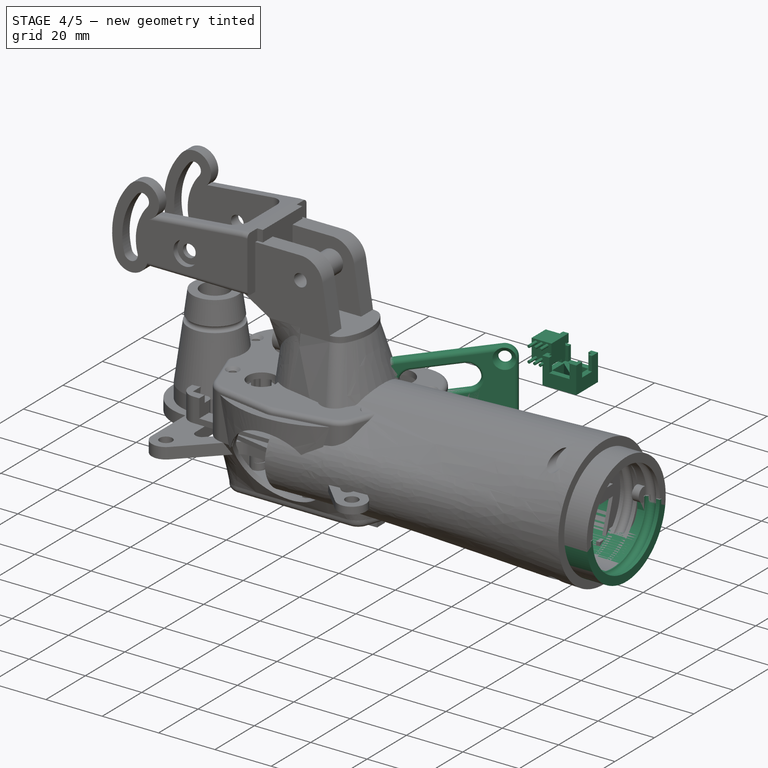
[diagram: stage 4 of 5 — iso view after this stage's code; geometry added in this stage tinted green]
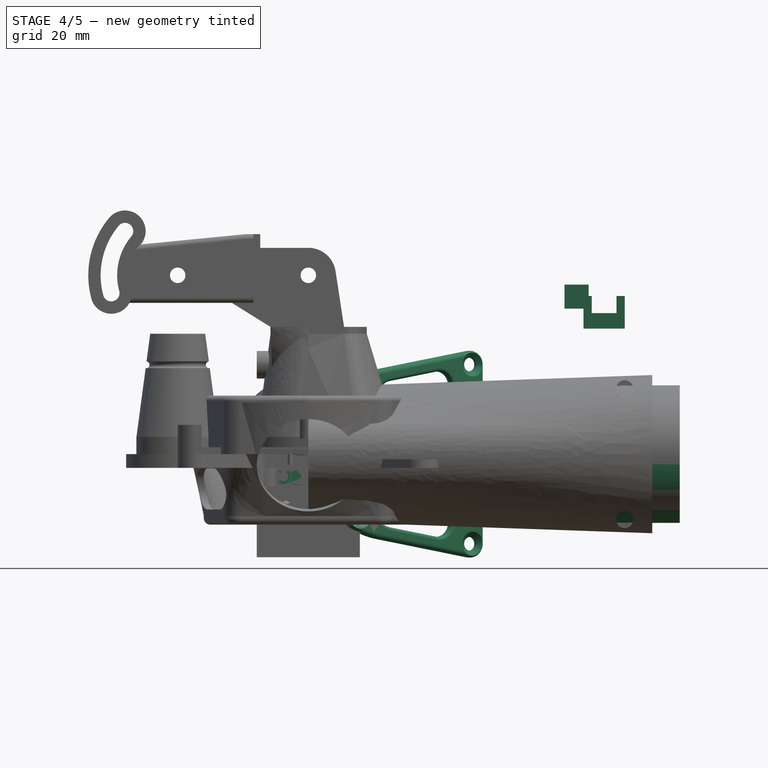
[diagram: stage 4 of 5 — front view after this stage's code; geometry added in this stage tinted green]
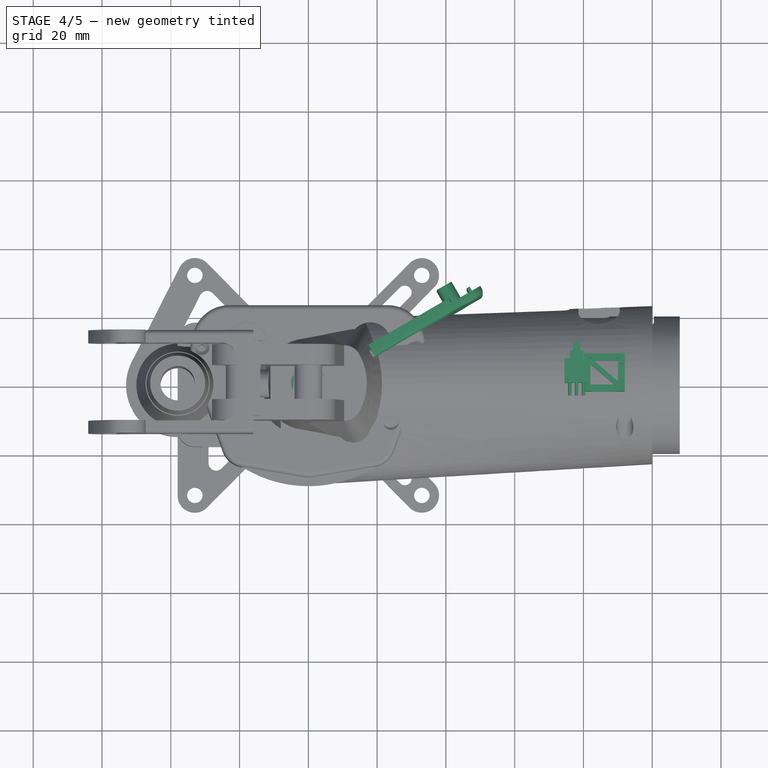
[diagram: stage 4 of 5 — top view after this stage's code; geometry added in this stage tinted green]
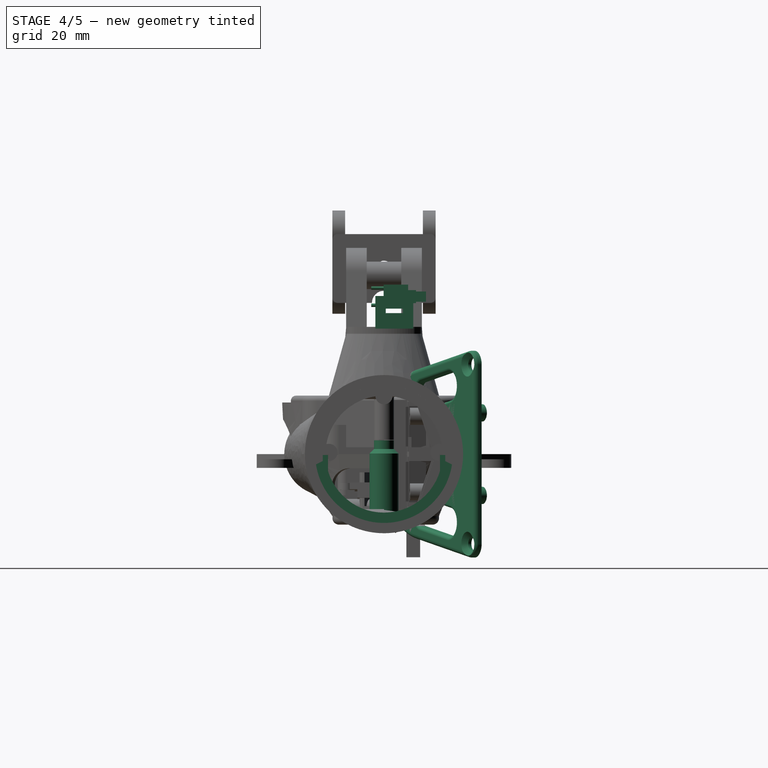
[diagram: stage 4 of 5 — right view after this stage's code; geometry added in this stage tinted green]
FEATURE [Sketcher::SketchObject] Sketch043  label="lhbb sk"
  FullyConstrained = true
  MapMode = 5
  Placement = pos=(0,0,0) rot=(0.57735,0.57735,0.57735;2.0944rad)
  Support = -> [YZ_Plane054]
  sketch-geometry (12):
    g0: ArcOfCircle CenterX=0 CenterY=0 CenterZ=0 NormalX=0 NormalY=0 NormalZ=1 AngleXU=0 Radius=20 StartAngle=3.24176 EndAngle=6.18302
    g1: ArcOfCircle CenterX=0 CenterY=0 CenterZ=0 NormalX=0 NormalY=0 NormalZ=1 AngleXU=0 Radius=17 StartAngle=3.42961 EndAngle=5.99517
    g2: LineSegment StartX=-16.2997 StartY=-4.82889 StartZ=0 EndX=-16.2997 EndY=-0.25 EndZ=0
    g3: LineSegment StartX=-16.2997 StartY=-0.25 StartZ=0 EndX=-17.7997 EndY=-0.25 EndZ=0
    g4: LineSegment StartX=-17.7997 StartY=-0.25 StartZ=0 EndX=-17.7997 EndY=-2 EndZ=0
    g5: LineSegment StartX=-17.7997 StartY=-2 StartZ=0 EndX=-19.8997 EndY=-2 EndZ=0
    g6: LineSegment StartX=-16.2997 StartY=-4.82889 StartZ=0 EndX=16.2997 EndY=-4.82889 EndZ=0
    g7: LineSegment StartX=19.8997 StartY=-2 StartZ=0 EndX=17.7997 EndY=-2 EndZ=0
    g8: LineSegment StartX=17.7997 StartY=-2 StartZ=0 EndX=17.7997 EndY=-0.25 EndZ=0
    g9: LineSegment StartX=17.7997 StartY=-0.25 StartZ=0 EndX=16.2997 EndY=-0.25 EndZ=0
    g10: LineSegment StartX=16.2997 StartY=-0.25 StartZ=0 EndX=16.2997 EndY=-4.82889 EndZ=0
    g11: LineSegment StartX=-17.7997 StartY=-2 StartZ=0 EndX=17.7997 EndY=-2 EndZ=0
  constraints (34):
    c: Coincident(g0,g-1)
    c: Radius(g0) = 20
    c: Coincident(g1,g0)
    c: Radius(g1) = 17
    c: Coincident(g2,g1)
    c: Vertical(g2)
    c: Coincident(g2,g3)
    c: Horizontal(g3)
    c: Coincident(g3,g4)
    c: Vertical(g4)
    c: Coincident(g4,g5)
    c: Coincident(g5,g0)
    c: Horizontal(g5)
    c: Coincident(g6,g1)
    c: Coincident(g6,g1)
    c: Horizontal(g6)
    c: Coincident(g0,g7)
    c: Coincident(g7,g8)
    c: Vertical(g8)
    c: Coincident(g8,g9)
    c: Horizontal(g9)
    c: Coincident(g9,g10)
    c: Coincident(g10,g1)
    c: Vertical(g10)
    c: Horizontal(g7)
    c: Equal(g9,g3)
    c: DistanceY(g4,g0) = 2
    c: Equal(g8,g4)
    c: Coincident(g11,g4)
    c: Coincident(g11,g7)
    c: Horizontal(g11)
    c: DistanceY(g4,g4) = 1.75
    c: DistanceX(g5,g5) = 2.1
    c: DistanceX(g3,g3) = 1.5
FEATURE [PartDesign::Pad] Pad028  label="lhbb pad"
  Direction = (1,-2e-16,3e-16)
  Length = 108
  Length2 = 10
  Placement = pos=(0,0,0) rot=(0.57735,0.57735,0.57735;2.0944rad)
  Profile = -> Sketch043
  ReferenceAxis = -> Sketch043 [N_Axis]
  Type = 0
FEATURE [PartDesign::SubtractiveCylinder] Cylinder072  label="lhbb radial notch"
  Angle = 360
  AttacherType = Attacher::AttachEngine3D
  BaseFeature = -> Pad028
  FirstAngle = 0
  Height = 3
  MapMode = 5
  Placement = pos=(0,0,0) rot=(0.57735,0.57735,0.57735;2.0944rad)
  Radius = 18.5
  SecondAngle = 0
  Support = -> [YZ_Plane054]
FEATURE [PartDesign::SubtractiveCylinder] Cylinder073  label="lhbb side notch front"
  Angle = 21
  AttacherType = Attacher::AttachEngine3D
  AttachmentOffset = pos=(0,0,3) rot=(0,0,1;3.14159rad)
  BaseFeature = -> Cylinder072
  FirstAngle = 0
  Height = 5.5
  MapMode = 5
  Placement = pos=(3,-7e-16,7e-16) rot=(0.57735,-0.57735,0.57735;4.18879rad)
  Radius = 18
  SecondAngle = 0
  Support = -> [YZ_Plane054]
FEATURE [PartDesign::Mirrored] Mirrored013  label="lhbb side notch back"
  BaseFeature = -> Cylinder073
  MirrorPlane = -> XZ_Plane054
  Originals = -> [Cylinder073]
  Placement = pos=(3,-1e-15,1e-15) rot=(0.57735,-0.57735,0.57735;4.18879rad)
FEATURE [PartDesign::SubtractiveCylinder] Cylinder076  label="lhbb right notch"
  Angle = 360
  AttacherType = Attacher::AttachEngine3D
  AttachmentOffset = pos=(0,0,103) rot=(0,0,1;0rad)
  BaseFeature = -> Mirrored013
  FirstAngle = 0
  Height = 5
  MapMode = 5
  Placement = pos=(103,-2.29e-14,2.29e-14) rot=(0.57735,0.57735,0.57735;2.0944rad)
  Radius = 17
  SecondAngle = 0
  Support = -> [YZ_Plane054]
FEATURE [PartDesign::SubtractiveTorus] Torus002  label="lhbb right ring notch"
  Angle1 = -180
  Angle2 = 180
  Angle3 = 360
  AttacherType = Attacher::AttachEngine3D
  AttachmentOffset = pos=(0,0,105) rot=(0,0,1;0rad)
  BaseFeature = -> Cylinder076
  MapMode = 5
  Placement = pos=(105,-2.33e-14,2.33e-14) rot=(0.57735,0.57735,0.57735;2.0944rad)
  Radius1 = 16.5
  Radius2 = 1.75
  Support = -> [YZ_Plane054]
FEATURE [PartDesign::Body] Body047  label="lbpc tube"
  Group = -> [Sketch057,Sketch056,DatumPlane,Sketch062,Sketch058,AdditivePipe,Sketch063,Pocket013]
  Origin = -> Origin061
  Placement = pos=(7.1e-15,0,1.42e-14) rot=(0,0,1;0rad)
  Tip = -> Pocket013
FEATURE [App::Part] Part013  label="Lever Button Platform Connector"
  Group = -> [Body047,Body048]
  Origin = -> Origin060
  Placement = pos=(90,-20,54) rot=(0,0,1;0rad)
FEATURE [PartDesign::ShapeBinder] ShapeBinder002  label="lbpp ref profile"
  Placement = pos=(1.5,0.401924,0) rot=(0.935113,0.250563,0.250563;1.63783rad)
  Support = -> [Sketch062]
  TraceSupport = false
FEATURE [PartDesign::Plane] DatumPlane001  label="lbpp plane"
  Length = 110.238
  MapMode = 2
  Placement = pos=(1.5,0.401924,0) rot=(0.935113,0.250563,0.250563;1.63783rad)
  ResizeMode = 0
  Support = -> [ShapeBinder002]
  Width = 75.2356
FEATURE [Sketcher::SketchObject] Sketch064  label="lbpp sk"
  ExternalGeometry = -> [ShapeBinder002]
  FullyConstrained = false
  MapMode = 5
  Placement = pos=(1.5,0.401924,0) rot=(0.935113,0.250563,0.250563;1.63783rad)
  Support = -> [DatumPlane001]
  sketch-geometry (25):
    g0: LineSegment StartX=56 StartY=26.0602 StartZ=0 EndX=56 EndY=-26.0602 EndZ=0
    g1: LineSegment StartX=51.3085 StartY=-30 StartZ=0 EndX=20.6779 EndY=-24.6236 EndZ=0
    g2: ArcOfCircle CenterX=25 CenterY=5.6e-15 CenterZ=0 NormalX=0 NormalY=0 NormalZ=1 AngleXU=0 Radius=25 StartAngle=1.74455 EndAngle=4.53863
    g3: LineSegment StartX=20.6779 StartY=24.6236 StartZ=0 EndX=51.3085 EndY=30 EndZ=0
    g4: ArcOfCircle CenterX=52 CenterY=-26.0602 CenterZ=0 NormalX=0 NormalY=0 NormalZ=1 AngleXU=0 Radius=4 StartAngle=4.53863 EndAngle=6.28319
    g5: ArcOfCircle CenterX=52 CenterY=26.0602 CenterZ=0 NormalX=0 NormalY=0 NormalZ=1 AngleXU=0 Radius=4 StartAngle=1e-16 EndAngle=1.74455
    g6: Circle CenterX=37 CenterY=0 CenterZ=0 NormalX=0 NormalY=0 NormalZ=1 AngleXU=0 Radius=5
    g7: ArcOfCircle CenterX=25.228 CenterY=17.0894 CenterZ=0 NormalX=0 NormalY=0 NormalZ=1 AngleXU=0 Radius=4.2 StartAngle=1.74455 EndAngle=4.88614
    g8: ArcOfCircle CenterX=40.9871 CenterY=19.8556 CenterZ=0 NormalX=0 NormalY=0 NormalZ=1 AngleXU=0 Radius=4.2 StartAngle=4.88614 EndAngle=8.02774
    g9: LineSegment StartX=25.9541 StartY=12.9527 StartZ=0 EndX=41.7132 EndY=15.7188 EndZ=0
    g10: LineSegment StartX=40.261 StartY=23.9923 StartZ=0 EndX=24.5019 EndY=21.2262 EndZ=0
    g11: ArcOfCircle CenterX=25.228 CenterY=-17.0894 CenterZ=0 NormalX=0 NormalY=0 NormalZ=1 AngleXU=0 Radius=4.2 StartAngle=1.39704 EndAngle=4.53863
    g12: ArcOfCircle CenterX=40.9871 CenterY=-19.8556 CenterZ=0 NormalX=0 NormalY=0 NormalZ=1 AngleXU=0 Radius=4.2 StartAngle=4.53863 EndAngle=7.68023
    g13: LineSegment StartX=24.5019 StartY=-21.2262 StartZ=0 EndX=40.261 EndY=-23.9923 EndZ=0
    g14: LineSegment StartX=41.7132 StartY=-15.7188 StartZ=0 EndX=25.9541 EndY=-12.9527 EndZ=0
    g15: LineSegment StartX=25.228 StartY=17.0894 StartZ=0 EndX=40.9871 EndY=19.8556 EndZ=0
    g16: Circle CenterX=52 CenterY=26.0602 CenterZ=0 NormalX=0 NormalY=0 NormalZ=1 AngleXU=0 Radius=2
    g17: Circle CenterX=52 CenterY=-26.0602 CenterZ=0 NormalX=0 NormalY=0 NormalZ=1 AngleXU=0 Radius=2
    g18: Circle CenterX=14.5 CenterY=-18.1865 CenterZ=0 NormalX=0 NormalY=0 NormalZ=1 AngleXU=0 Radius=2
    g19: Circle CenterX=14.5 CenterY=18.1865 CenterZ=0 NormalX=0 NormalY=0 NormalZ=1 AngleXU=0 Radius=2
    g20: ArcOfCircle CenterX=14 CenterY=-8 CenterZ=0 NormalX=0 NormalY=0 NormalZ=1 AngleXU=0 Radius=4.2 StartAngle=3.14159 EndAngle=6.28319
    g21: LineSegment StartX=18.2 StartY=-8 StartZ=0 EndX=18.2 EndY=8 EndZ=0
    g22: LineSegment StartX=9.8 StartY=8 StartZ=0 EndX=9.8 EndY=-8 EndZ=0
    g23: LineSegment StartX=14 StartY=-8 StartZ=0 EndX=14 EndY=8 EndZ=0
    g24: ArcOfCircle CenterX=14 CenterY=8 CenterZ=0 NormalX=0 NormalY=0 NormalZ=1 AngleXU=0 Radius=4.2 StartAngle=0 EndAngle=3.14159
  constraints (55):
    c: Coincident(g0,g-9)
    c: Coincident(g0,g-12)
    c: Coincident(g1,g-13)
    c: Coincident(g1,g-13)
    c: Coincident(g2,g-5)
    c: Coincident(g2,g-4)
    c: Coincident(g2,g1)
    c: Coincident(g3,g2)
    c: Coincident(g3,g-16)
    c: Coincident(g4,g-12)
    c: Coincident(g4,g0)
    c: Coincident(g4,g1)
    c: Coincident(g5,g-16)
    c: Coincident(g5,g3)
    c: Coincident(g5,g0)
    c: Radius(g6) = 5
    c: Tangent(g7,g9) = -1.5708
    c: Tangent(g9,g8) = -1.5708
    c: Tangent(g8,g10) = -1.5708
    c: Tangent(g10,g7) = -1.5708
    c: Equal(g7,g8)
    c: Radius(g8) = 4.2
    c: Tangent(g11,g13) = -1.5708
    c: Tangent(g13,g12) = -1.5708
    c: Tangent(g12,g14) = -1.5708
    c: Tangent(g14,g11) = -1.5708
    c: Equal(g11,g12)
    c: Coincident(g15,g7)
    c: Coincident(g15,g8)
    c: Parallel(g15,g3)
    c: Equal(g8,g12)
    c: Symmetric(g7,g11,g-1)
    c: Symmetric(g8,g12,g-1)
    c: Coincident(g16,g5)
    c: Coincident(g17,g4)
    c: Coincident(g18,g-15)
    c: Coincident(g19,g-6)
    c: Equal(g19,g16)
    c: Equal(g16,g17)
    c: Equal(g17,g18)
    c: Radius(g16) = 2
    c: Tangent(g20,g21) = -1.5708
    c: Tangent(g21,g24) = -1.5708
    c: Tangent(g24,g22) = -1.5708
    c: Tangent(g22,g20) = -1.5708
    c: Equal(g20,g24)
    c: Coincident(g23,g20)
    c: Coincident(g23,g24)
    c: Equal(g23,g15)
    c: Symmetric(g24,g20,g-1)
    c: DistanceY(g23,g23) = 16
    c: Radius(g24) = 4.2
    c: DistanceX(g-1,g6) = 37
    c: PointOnObject(g6,g-1)
    c: DistanceX(g-1,g24) = 14
FEATURE [PartDesign::Pad] Pad034  label="lbpp plate"
  Direction = (0.5,-0.866025,1e-16)
  Length = 2.5
  Length2 = 10
  Placement = pos=(1.5,0.401924,0) rot=(0.935113,0.250563,0.250563;1.63783rad)
  Profile = -> Sketch064
  ReferenceAxis = -> Sketch064 [N_Axis]
  Type = 0
FEATURE [Sketcher::SketchObject] Sketch065  label="lbpp sk guides"
  ExternalGeometry = -> [ShapeBinder002]
  FullyConstrained = false
  MapMode = 5
  Placement = pos=(1.5,0.401924,0) rot=(0.935113,0.250563,0.250563;1.63783rad)
  Support = -> [DatumPlane001]
  sketch-geometry (24):
    g0: LineSegment StartX=25 StartY=7e-16 StartZ=0 EndX=9.37019 EndY=16.1851 EndZ=0
    g1: LineSegment StartX=25 StartY=7e-16 StartZ=0 EndX=9.37019 EndY=-16.1851 EndZ=0
    g2: ArcOfCircle CenterX=25 CenterY=7e-16 CenterZ=0 NormalX=0 NormalY=0 NormalZ=1 AngleXU=0 Radius=22.3 StartAngle=2.33874 EndAngle=3.94444
    g3: ArcOfCircle CenterX=25 CenterY=7e-16 CenterZ=0 NormalX=0 NormalY=0 NormalZ=1 AngleXU=0 Radius=21.3 StartAngle=2.33874 EndAngle=3.94444
    g4: LineSegment StartX=9.50912 StartY=16.0413 StartZ=0 EndX=10.2038 EndY=15.3219 EndZ=0
    g5: LineSegment StartX=10.2038 StartY=-15.3219 StartZ=0 EndX=9.50912 EndY=-16.0413 EndZ=0
    g6: GeomPoint X=2.5 Y=0 Z=0
    g7: LineSegment StartX=2.5 StartY=0 StartZ=0 EndX=2.7 EndY=-2.4491e-12 EndZ=0
    g8: LineSegment StartX=52.3 StartY=21 StartZ=0 EndX=53.3 EndY=21 EndZ=0
    g9: LineSegment StartX=53.3 StartY=21 StartZ=0 EndX=53.3 EndY=-21 EndZ=0
    g10: LineSegment StartX=53.3 StartY=-21 StartZ=0 EndX=52.3 EndY=-21 EndZ=0
    g11: LineSegment StartX=52.3 StartY=-21 StartZ=0 EndX=52.3 EndY=21 EndZ=0
    g12: LineSegment StartX=53.3 StartY=0 StartZ=0 EndX=53.5 EndY=0 EndZ=0
    g13: LineSegment StartX=18.7201 StartY=21.5386 StartZ=0 EndX=46.2985 EndY=26.3793 EndZ=0
    g14: LineSegment StartX=18.7201 StartY=21.5386 StartZ=0 EndX=18.893 EndY=20.5537 EndZ=0
    g15: LineSegment StartX=18.893 StartY=20.5537 StartZ=0 EndX=46.4714 EndY=25.3944 EndZ=0
    g16: LineSegment StartX=46.4714 StartY=25.3944 StartZ=0 EndX=46.2985 EndY=26.3793 EndZ=0
    g17: LineSegment StartX=32.4747 StartY=24.156 StartZ=0 EndX=32.5093 EndY=23.959 EndZ=0
    g18: LineSegment StartX=46.2985 StartY=26.3793 StartZ=0 EndX=48.0884 EndY=26.8966 EndZ=0
    g19: LineSegment StartX=18.7201 StartY=21.5386 StartZ=0 EndX=16.861 EndY=21.4154 EndZ=0
    g20: LineSegment StartX=18.7201 StartY=-21.5386 StartZ=0 EndX=46.2985 EndY=-26.3793 EndZ=0
    g21: LineSegment StartX=46.2985 StartY=-26.3793 StartZ=0 EndX=46.4714 EndY=-25.3944 EndZ=0
    g22: LineSegment StartX=46.4714 StartY=-25.3944 StartZ=0 EndX=18.893 EndY=-20.5537 EndZ=0
    g23: LineSegment StartX=18.893 StartY=-20.5537 StartZ=0 EndX=18.7201 EndY=-21.5386 EndZ=0
  constraints (64):
    c: Coincident(g0,g-9)
    c: PointOnObject(g0,g-9)
    c: Coincident(g1,g0)
    c: Symmetric(g0,g1,g-1)
    c: Angle(g0,g-1) = 0.802851
    c: Coincident(g2,g0)
    c: PointOnObject(g2,g1)
    c: PointOnObject(g2,g0)
    c: Coincident(g3,g2)
    c: PointOnObject(g3,g0)
    c: PointOnObject(g3,g1)
    c: PointOnObject(g7,g2)
    c: Coincident(g4,g2)
    c: Coincident(g4,g3)
    c: Coincident(g5,g3)
    c: Coincident(g5,g2)
    c: PointOnObject(g6,g-9)
    c: PointOnObject(g6,g-1)
    c: Coincident(g7,g6)
    c: DistanceX(g7,g7) = 0.2
    c: Coincident(g8,g9)
    c: Coincident(g9,g10)
    c: Coincident(g10,g11)
    c: Coincident(g11,g8)
    c: Horizontal(g8)
    c: Horizontal(g10)
    c: Vertical(g9)
    c: Symmetric(g8,g10,g-1)
    c: DistanceY(g9,g9) = 42
    c: PointOnObject(g12,g9)
    c: Tangent(g12,g-1)
    c: Equal(g12,g7)
    c: PointOnObject(g12,g-5)
    c: Coincident(g13,g14)
    c: Coincident(g14,g15)
    c: Coincident(g15,g16)
    c: Coincident(g16,g13)
    c: Perpendicular(g14,g13)
    c: Perpendicular(g15,g16)
    c: Parallel(g13,g-3)
    c: Equal(g14,g4)
    c: Equal(g14,g16)
    c: Distance(g4) = 1
    c: Equal(g4,g8)
    c: Distance(g15) = 28
    c: PointOnObject(g17,g-3)
    c: Perpendicular(g17,g-3)
    c: Equal(g17,g12)
    c: Coincident(g18,g13)
    c: Coincident(g18,g-4)
    c: Coincident(g19,g13)
    c: Coincident(g19,g-10)
    c: Equal(g19,g18)
    c: Symmetric(g13,g13,g17)
    c: Coincident(g20,g21)
    c: Coincident(g21,g22)
    c: Coincident(g22,g23)
    c: Coincident(g23,g20)
    c: Perpendicular(g23,g22)
    c: Perpendicular(g21,g20)
    c: Equal(g23,g4)
    c: Symmetric(g14,g22,g-1)
    c: Symmetric(g21,g15,g-1)
    c: Equal(g23,g21)
FEATURE [PartDesign::Pad] Pad035  label="lbpp guides"
  BaseFeature = -> Pad034
  Direction = (0.5,-0.866025,1e-16)
  Length = 1.5
  Length2 = 10
  Placement = pos=(1.5,0.401924,0) rot=(0.935113,0.250563,0.250563;1.63783rad)
  Profile = -> Sketch065
  ReferenceAxis = -> Sketch065 [N_Axis]
  Reversed = true
  Type = 0
FEATURE [App::DocumentObjectGroup] Group007  label="HOTAS Joystick"
FEATURE [Sketcher::SketchObject] Sketch066  label="bdb sk mid"
  FullyConstrained = true
  MapMode = 5
  Support = -> [XY_Plane065]
  sketch-geometry (4):
    g0: ArcOfCircle CenterX=-7.5 CenterY=0 CenterZ=0 NormalX=0 NormalY=0 NormalZ=1 AngleXU=0 Radius=3.8 StartAngle=1.5708 EndAngle=4.71239
    g1: ArcOfCircle CenterX=7.5 CenterY=0 CenterZ=0 NormalX=0 NormalY=0 NormalZ=1 AngleXU=0 Radius=3.8 StartAngle=4.71239 EndAngle=7.85398
    g2: LineSegment StartX=-7.5 StartY=-3.8 StartZ=0 EndX=7.5 EndY=-3.8 EndZ=0
    g3: LineSegment StartX=7.5 StartY=3.8 StartZ=0 EndX=-7.5 EndY=3.8 EndZ=0
  constraints (9):
    c: Tangent(g0,g2) = -1.5708
    c: Tangent(g2,g1) = -1.5708
    c: Tangent(g1,g3) = -1.5708
    c: Tangent(g3,g0) = -1.5708
    c: Equal(g0,g1)
    c: PointOnObject(g0,g-1)
    c: Symmetric(g0,g1,g-1)
    c: Radius(g1) = 3.8
    c: DistanceX(g0,g1) = 15
FEATURE [PartDesign::Pad] Pad036  label="bdb mid"
  Direction = (0,0,1)
  Length = 2.5
  Length2 = 10
  Profile = -> Sketch066
  ReferenceAxis = -> Sketch066 [N_Axis]
  Type = 0
FEATURE [Sketcher::SketchObject] Sketch067  label="bdb sk bottom"
  FullyConstrained = true
  MapMode = 5
  Support = -> [XY_Plane065]
  sketch-geometry (12):
    g0: LineSegment StartX=-11.75 StartY=3.75 StartZ=0 EndX=11.75 EndY=3.75 EndZ=0
    g1: LineSegment StartX=11.75 StartY=-3.75 StartZ=0 EndX=-11.75 EndY=-3.75 EndZ=0
    g2: LineSegment StartX=-12.75 StartY=2.75 StartZ=0 EndX=-12.75 EndY=-2.75 EndZ=0
    g3: LineSegment StartX=12.75 StartY=2.75 StartZ=0 EndX=12.75 EndY=-2.75 EndZ=0
    g4: ArcOfCircle CenterX=11.75 CenterY=2.75 CenterZ=0 NormalX=0 NormalY=0 NormalZ=1 AngleXU=0 Radius=1 StartAngle=0 EndAngle=1.5708
    g5: GeomPoint X=12.75 Y=3.75 Z=0
    g6: ArcOfCircle CenterX=-11.75 CenterY=2.75 CenterZ=0 NormalX=0 NormalY=0 NormalZ=1 AngleXU=0 Radius=1 StartAngle=1.5708 EndAngle=3.14159
    g7: GeomPoint X=-12.75 Y=3.75 Z=0
    g8: ArcOfCircle CenterX=-11.75 CenterY=-2.75 CenterZ=0 NormalX=0 NormalY=0 NormalZ=1 AngleXU=0 Radius=1 StartAngle=3.14159 EndAngle=4.71239
    g9: GeomPoint X=-12.75 Y=-3.75 Z=0
    g10: ArcOfCircle CenterX=11.75 CenterY=-2.75 CenterZ=0 NormalX=0 NormalY=0 NormalZ=1 AngleXU=0 Radius=1 StartAngle=4.71239 EndAngle=6.28319
    g11: GeomPoint X=12.75 Y=-3.75 Z=0
  constraints (27):
    c: Horizontal(g0)
    c: Horizontal(g1)
    c: Symmetric(g5,g9,g-1)
    c: DistanceY(g11,g5) = 7.5
    c: DistanceX(g7,g5) = 25.5
    c: Vertical(g2)
    c: Vertical(g3)
    c: PointOnObject(g5,g0)
    c: PointOnObject(g5,g3)
    c: Tangent(g0,g4) = 1.5708
    c: Tangent(g3,g4) = 1.5708
    c: PointOnObject(g7,g0)
    c: PointOnObject(g7,g2)
    c: Tangent(g0,g6) = 1.5708
    c: Tangent(g2,g6) = -1.5708
    c: PointOnObject(g9,g1)
    c: PointOnObject(g9,g2)
    c: Tangent(g1,g8) = 1.5708
    c: Tangent(g2,g8) = -1.5708
    c: PointOnObject(g11,g3)
    c: PointOnObject(g11,g1)
    c: Tangent(g3,g10) = 1.5708
    c: Tangent(g1,g10) = 1.5708
    c: Equal(g4,g10)
    c: Equal(g10,g8)
    c: Equal(g8,g6)
    c: Radius(g6) = 1
FEATURE [PartDesign::Pad] Pad037  label="bdb bottom"
  BaseFeature = -> Pad036
  Direction = (0,0,1)
  Length = 3
  Length2 = 10
  Profile = -> Sketch067
  ReferenceAxis = -> Sketch067 [N_Axis]
  Reversed = true
  Type = 0
FEATURE [Sketcher::SketchObject] Sketch069  label="sk body"
  FullyConstrained = true
  MapMode = 5
  Support = -> [XY_Plane066]
  sketch-geometry (4):
    g0: LineSegment StartX=-3.5 StartY=3.5 StartZ=0 EndX=3.5 EndY=3.5 EndZ=0
    g1: LineSegment StartX=3.5 StartY=3.5 StartZ=0 EndX=3.5 EndY=-3.5 EndZ=0
    g2: LineSegment StartX=3.5 StartY=-3.5 StartZ=0 EndX=-3.5 EndY=-3.5 EndZ=0
    g3: LineSegment StartX=-3.5 StartY=-3.5 StartZ=0 EndX=-3.5 EndY=3.5 EndZ=0
  constraints (11):
    c: Coincident(g0,g1)
    c: Coincident(g1,g2)
    c: Coincident(g2,g3)
    c: Coincident(g3,g0)
    c: Horizontal(g0)
    c: Horizontal(g2)
    c: Vertical(g1)
    c: Vertical(g3)
    c: Symmetric(g1,g0,g-1)
    c: Equal(g0,g3)
    c: DistanceX(g0,g0) = 7
FEATURE [PartDesign::Pad] Pad039  label="body"
  Direction = (0,0,1)
  Length = 7.1
  Length2 = 10
  Profile = -> Sketch069
  ReferenceAxis = -> Sketch069 [N_Axis]
  Type = 0
FEATURE [Sketcher::SketchObject] Sketch070  label="sk pins"
  FullyConstrained = true
  MapMode = 5
  Support = -> [XY_Plane066]
  sketch-geometry (7):
    g0: Circle CenterX=0 CenterY=2.5 CenterZ=0 NormalX=0 NormalY=0 NormalZ=1 AngleXU=0 Radius=0.5
    g1: Circle CenterX=0 CenterY=-2.5 CenterZ=0 NormalX=0 NormalY=0 NormalZ=1 AngleXU=0 Radius=0.5
    g2: Circle CenterX=2 CenterY=2.5 CenterZ=0 NormalX=0 NormalY=0 NormalZ=1 AngleXU=0 Radius=0.5
    g3: Circle CenterX=-2 CenterY=2.5 CenterZ=0 NormalX=0 NormalY=0 NormalZ=1 AngleXU=0 Radius=0.5
    g4: Circle CenterX=-2 CenterY=-2.5 CenterZ=0 NormalX=0 NormalY=0 NormalZ=1 AngleXU=0 Radius=0.5
    g5: Circle CenterX=2 CenterY=-2.5 CenterZ=0 NormalX=0 NormalY=0 NormalZ=1 AngleXU=0 Radius=0.5
    g6: LineSegment StartX=-2 StartY=2.5 StartZ=0 EndX=2 EndY=2.5 EndZ=0
  constraints (16):
    c: PointOnObject(g0,g-2)
    c: Coincident(g6,g3)
    c: Coincident(g6,g2)
    c: Horizontal(g6)
    c: Symmetric(g3,g4,g-1)
    c: Symmetric(g0,g1,g-1)
    c: Symmetric(g2,g5,g-1)
    c: Symmetric(g3,g2,g0)
    c: Equal(g3,g0)
    c: Equal(g0,g2)
    c: Equal(g2,g5)
    c: Equal(g5,g1)
    c: Equal(g1,g4)
    c: Radius(g2) = 0.5
    c: DistanceY(g4,g3) = 5
    c: DistanceX(g4,g1) = 2
FEATURE [PartDesign::Pad] Pad040  label="pins"
  BaseFeature = -> Pad039
  Direction = (0,0,1)
  Length = 3.6
  Length2 = 10
  Profile = -> Sketch070
  ReferenceAxis = -> Sketch070 [N_Axis]
  Reversed = true
  Type = 0
FEATURE [Sketcher::SketchObject] Sketch071  label="sk button base"
  FullyConstrained = true
  MapMode = 5
  Support = -> [XY_Plane066]
  sketch-geometry (4):
    g0: LineSegment StartX=-1.95 StartY=1.9 StartZ=0 EndX=1.95 EndY=1.9 EndZ=0
    g1: LineSegment StartX=1.95 StartY=1.9 StartZ=0 EndX=1.95 EndY=-1.9 EndZ=0
    g2: LineSegment StartX=1.95 StartY=-1.9 StartZ=0 EndX=-1.95 EndY=-1.9 EndZ=0
    g3: LineSegment StartX=-1.95 StartY=-1.9 StartZ=0 EndX=-1.95 EndY=1.9 EndZ=0
  constraints (11):
    c: Coincident(g0,g1)
    c: Coincident(g1,g2)
    c: Coincident(g2,g3)
    c: Coincident(g3,g0)
    c: Horizontal(g0)
    c: Horizontal(g2)
    c: Vertical(g1)
    c: Vertical(g3)
    c: Symmetric(g0,g1,g-1)
    c: DistanceY(g3,g3) = 3.8
    c: DistanceX(g0,g0) = 3.9
FEATURE [PartDesign::Pad] Pad041  label="button base"
  BaseFeature = -> Pad040
  Direction = (0,0,1)
  Length = 9.4
  Length2 = 10
  Profile = -> Sketch071
  ReferenceAxis = -> Sketch071 [N_Axis]
  Type = 0
FEATURE [Sketcher::SketchObject] Sketch072  label="sk button head"
  FullyConstrained = true
  MapMode = 5
  Support = -> [XY_Plane066]
  sketch-geometry (4):
    g0: LineSegment StartX=-1 StartY=1.5 StartZ=0 EndX=1 EndY=1.5 EndZ=0
    g1: LineSegment StartX=1 StartY=1.5 StartZ=0 EndX=1 EndY=-1.5 EndZ=0
    g2: LineSegment StartX=1 StartY=-1.5 StartZ=0 EndX=-1 EndY=-1.5 EndZ=0
    g3: LineSegment StartX=-1 StartY=-1.5 StartZ=0 EndX=-1 EndY=1.5 EndZ=0
  constraints (11):
    c: Coincident(g0,g1)
    c: Coincident(g1,g2)
    c: Coincident(g2,g3)
    c: Coincident(g3,g0)
    c: Horizontal(g0)
    c: Horizontal(g2)
    c: Vertical(g1)
    c: Vertical(g3)
    c: Symmetric(g1,g0,g-1)
    c: DistanceX(g0,g0) = 2
    c: DistanceY(g3,g3) = 3
FEATURE [PartDesign::Pad] Pad042  label="button head"
  BaseFeature = -> Pad041
  Direction = (0,0,1)
  Length = 12.3
  Length2 = 10
  Profile = -> Sketch072
  ReferenceAxis = -> Sketch072 [N_Axis]
  Type = 0
FEATURE [PartDesign::Body] Body053  label="tbm switch 2"
  BaseFeature = -> Body052
  Group = -> [Clone002]
  Origin = -> Origin069
  Placement = pos=(13.2,0,0) rot=(0,0,1;0rad)
  Tip = -> Clone002
FEATURE [Sketcher::SketchObject] Sketch073  label="tbmb sk"
  FullyConstrained = true
  MapMode = 5
  Support = -> [XY_Plane070]
  sketch-geometry (16):
    g0: LineSegment StartX=-12.8 StartY=4.6 StartZ=0 EndX=12.8 EndY=4.6 EndZ=0
    g1: LineSegment StartX=12.8 StartY=4.6 StartZ=0 EndX=12.8 EndY=-4.6 EndZ=0
    g2: LineSegment StartX=12.8 StartY=-4.6 StartZ=0 EndX=-12.8 EndY=-4.6 EndZ=0
    g3: LineSegment StartX=-12.8 StartY=-4.6 StartZ=0 EndX=-12.8 EndY=4.6 EndZ=0
    g4: LineSegment StartX=-3.6 StartY=3.6 StartZ=0 EndX=3.6 EndY=3.6 EndZ=0
    g5: LineSegment StartX=3.6 StartY=3.6 StartZ=0 EndX=3.6 EndY=-3.6 EndZ=0
    g6: LineSegment StartX=3.6 StartY=-3.6 StartZ=0 EndX=-3.6 EndY=-3.6 EndZ=0
    g7: LineSegment StartX=-3.6 StartY=-3.6 StartZ=0 EndX=-3.6 EndY=3.6 EndZ=0
    g8: LineSegment StartX=-11.8 StartY=3.6 StartZ=0 EndX=-4.6 EndY=3.6 EndZ=0
    g9: LineSegment StartX=-4.6 StartY=3.6 StartZ=0 EndX=-4.6 EndY=-3.6 EndZ=0
    g10: LineSegment StartX=-4.6 StartY=-3.6 StartZ=0 EndX=-11.8 EndY=-3.6 EndZ=0
    g11: LineSegment StartX=-11.8 StartY=-3.6 StartZ=0 EndX=-11.8 EndY=3.6 EndZ=0
    g12: LineSegment StartX=4.6 StartY=3.6 StartZ=0 EndX=11.8 EndY=3.6 EndZ=0
    g13: LineSegment StartX=11.8 StartY=3.6 StartZ=0 EndX=11.8 EndY=-3.6 EndZ=0
    g14: LineSegment StartX=11.8 StartY=-3.6 StartZ=0 EndX=4.6 EndY=-3.6 EndZ=0
    g15: LineSegment StartX=4.6 StartY=-3.6 StartZ=0 EndX=4.6 EndY=3.6 EndZ=0
  constraints (43):
    c: Coincident(g0,g1)
    c: Coincident(g1,g2)
    c: Coincident(g2,g3)
    c: Coincident(g3,g0)
    c: Horizontal(g0)
    c: Horizontal(g2)
    c: Vertical(g1)
    c: Vertical(g3)
    c: Symmetric(g0,g1,g-1)
    c: Coincident(g4,g5)
    c: Coincident(g5,g6)
    c: Coincident(g6,g7)
    c: Coincident(g7,g4)
    c: Horizontal(g4)
    c: Horizontal(g6)
    c: Vertical(g5)
    c: Vertical(g7)
    c: Symmetric(g5,g4,g-1)
    c: Equal(g7,g4)
    c: DistanceX(g4,g4) = 7.2
    c: Coincident(g8,g9)
    c: Coincident(g9,g10)
    c: Coincident(g10,g11)
    c: Coincident(g11,g8)
    c: Horizontal(g8)
    c: Horizontal(g10)
    c: Vertical(g11)
    c: Symmetric(g8,g9,g-1)
    c: Equal(g8,g9)
    c: Equal(g9,g7)
    c: Coincident(g12,g13)
    c: Coincident(g13,g14)
    c: Coincident(g14,g15)
    c: Coincident(g15,g12)
    c: Horizontal(g12)
    c: Horizontal(g14)
    c: Vertical(g13)
    c: Symmetric(g12,g14,g-1)
    c: Equal(g15,g12)
    c: Symmetric(g9,g14,g-2)
    c: DistanceY(g2,g10) = 1
    c: DistanceX(g2,g10) = 1
    c: DistanceX(g9,g6) = 1
FEATURE [PartDesign::Pad] Pad043  label="tbmb body"
  Direction = (0,0,1)
  Length = 7
  Length2 = 10
  Profile = -> Sketch073
  ReferenceAxis = -> Sketch073 [N_Axis]
  Type = 0
FEATURE [Sketcher::SketchObject] Sketch074  label="tbmb sk bottom´"
  ExternalGeometry = -> [Pad043]
  FullyConstrained = true
  MapMode = 5
  Support = -> [XY_Plane070]
  sketch-geometry (28):
    g0: LineSegment StartX=-12.8 StartY=4.6 StartZ=0 EndX=12.8 EndY=4.6 EndZ=0
    g1: LineSegment StartX=12.8 StartY=4.6 StartZ=0 EndX=12.8 EndY=-4.6 EndZ=0
    g2: LineSegment StartX=12.8 StartY=-4.6 StartZ=0 EndX=-12.8 EndY=-4.6 EndZ=0
    g3: LineSegment StartX=-12.8 StartY=-4.6 StartZ=0 EndX=-12.8 EndY=4.6 EndZ=0
    g4: LineSegment StartX=11.8 StartY=3.6 StartZ=0 EndX=9.8 EndY=3.6 EndZ=0
    g5: LineSegment StartX=9.8 StartY=3.6 StartZ=0 EndX=9.8 EndY=-3.6 EndZ=0
    g6: LineSegment StartX=9.8 StartY=-3.6 StartZ=0 EndX=11.8 EndY=-3.6 EndZ=0
    g7: LineSegment StartX=11.8 StartY=-3.6 StartZ=0 EndX=11.8 EndY=3.6 EndZ=0
    g8: LineSegment StartX=-11.8 StartY=3.6 StartZ=0 EndX=-9.8 EndY=3.6 EndZ=0
    g9: LineSegment StartX=-9.8 StartY=3.6 StartZ=0 EndX=-9.8 EndY=-3.6 EndZ=0
    g10: LineSegment StartX=-9.8 StartY=-3.6 StartZ=0 EndX=-11.8 EndY=-3.6 EndZ=0
    g11: LineSegment StartX=-11.8 StartY=-3.6 StartZ=0 EndX=-11.8 EndY=3.6 EndZ=0
    g12: LineSegment StartX=-4.6 StartY=3.6 StartZ=0 EndX=-6.6 EndY=3.6 EndZ=0
    g13: LineSegment StartX=-6.6 StartY=3.6 StartZ=0 EndX=-6.6 EndY=-3.6 EndZ=0
    g14: LineSegment StartX=-6.6 StartY=-3.6 StartZ=0 EndX=-4.6 EndY=-3.6 EndZ=0
    g15: LineSegment StartX=-4.6 StartY=-3.6 StartZ=0 EndX=-4.6 EndY=3.6 EndZ=0
    g16: LineSegment StartX=-3.6 StartY=3.6 StartZ=0 EndX=-1.6 EndY=3.6 EndZ=0
    g17: LineSegment StartX=-1.6 StartY=3.6 StartZ=0 EndX=-1.6 EndY=-3.6 EndZ=0
    g18: LineSegment StartX=-1.6 StartY=-3.6 StartZ=0 EndX=-3.6 EndY=-3.6 EndZ=0
    g19: LineSegment StartX=-3.6 StartY=-3.6 StartZ=0 EndX=-3.6 EndY=3.6 EndZ=0
    g20: LineSegment StartX=3.6 StartY=3.6 StartZ=0 EndX=1.6 EndY=3.6 EndZ=0
    g21: LineSegment StartX=1.6 StartY=3.6 StartZ=0 EndX=1.6 EndY=-3.6 EndZ=0
    g22: LineSegment StartX=1.6 StartY=-3.6 StartZ=0 EndX=3.6 EndY=-3.6 EndZ=0
    g23: LineSegment StartX=3.6 StartY=-3.6 StartZ=0 EndX=3.6 EndY=3.6 EndZ=0
    g24: LineSegment StartX=4.6 StartY=3.6 StartZ=0 EndX=6.6 EndY=3.6 EndZ=0
    g25: LineSegment StartX=6.6 StartY=3.6 StartZ=0 EndX=6.6 EndY=-3.6 EndZ=0
    g26: LineSegment StartX=6.6 StartY=-3.6 StartZ=0 EndX=4.6 EndY=-3.6 EndZ=0
    g27: LineSegment StartX=4.6 StartY=-3.6 StartZ=0 EndX=4.6 EndY=3.6 EndZ=0
  constraints (76):
    c: Coincident(g0,g1)
    c: Coincident(g1,g2)
    c: Coincident(g2,g3)
    c: Coincident(g3,g0)
    c: Horizontal(g0)
    c: Horizontal(g2)
    c: Vertical(g1)
    c: Vertical(g3)
    c: Coincident(g0,g-8)
    c: Coincident(g1,g-7)
    c: Coincident(g4,g5)
    c: Coincident(g5,g6)
    c: Coincident(g6,g7)
    c: Coincident(g7,g4)
    c: Horizontal(g4)
    c: Horizontal(g6)
    c: Vertical(g5)
    c: Vertical(g7)
    c: Coincident(g4,g-13)
    c: PointOnObject(g5,g-12)
    c: Coincident(g8,g9)
    c: Coincident(g9,g10)
    c: Coincident(g10,g11)
    c: Coincident(g11,g8)
    c: Horizontal(g8)
    c: Horizontal(g10)
    c: Vertical(g9)
    c: Vertical(g11)
    c: Coincident(g8,g-18)
    c: PointOnObject(g9,g-9)
    c: Coincident(g12,g13)
    c: Coincident(g13,g14)
    c: Coincident(g14,g15)
    c: Coincident(g15,g12)
    c: Horizontal(g12)
    c: Horizontal(g14)
    c: Vertical(g13)
    c: Vertical(g15)
    c: Coincident(g12,g-10)
    c: PointOnObject(g13,g-9)
    c: Coincident(g16,g17)
    c: Coincident(g17,g18)
    c: Coincident(g18,g19)
    c: Coincident(g19,g16)
    c: Horizontal(g16)
    c: Horizontal(g18)
    c: Vertical(g17)
    c: Vertical(g19)
    c: Coincident(g16,g-15)
    c: PointOnObject(g17,g-16)
    c: Coincident(g20,g21)
    c: Coincident(g21,g22)
    c: Coincident(g22,g23)
    c: Coincident(g23,g20)
    c: Horizontal(g20)
    c: Horizontal(g22)
    c: Vertical(g21)
    c: Vertical(g23)
    c: Coincident(g20,g-17)
    c: PointOnObject(g21,g-16)
    c: Coincident(g24,g25)
    c: Coincident(g25,g26)
    c: Coincident(g26,g27)
    c: Coincident(g27,g24)
    c: Horizontal(g24)
    c: Horizontal(g26)
    c: Vertical(g25)
    c: Vertical(g27)
    c: Coincident(g24,g-11)
    c: PointOnObject(g25,g-12)
    c: Equal(g4,g20)
    c: Equal(g20,g24)
    c: Equal(g24,g16)
    c: Equal(g16,g12)
    c: Equal(g12,g8)
    c: DistanceX(g20,g20) = 2
FEATURE [PartDesign::Pad] Pad044  label="tbmb bottom"
  BaseFeature = -> Pad043
  Direction = (0,0,1)
  Length = 1
  Length2 = 10
  Profile = -> Sketch074
  ReferenceAxis = -> Sketch074 [N_Axis]
  Reversed = true
  Type = 0
FEATURE [PartDesign::Body] Body055  label="bc body"
  Group = -> [Sketch075,Pad045,Sketch076,Pad046]
  Origin = -> Origin072
  Tip = -> Pad046
FEATURE [PartDesign::FeatureBase] Clone003
  BaseFeature = -> Body051
FEATURE [PartDesign::Body] Body056  label="bc button north"
  BaseFeature = -> Body051
  Group = -> [Clone003]
  Origin = -> Origin073
  Placement = pos=(0,8.2,0) rot=(0,0,1;0rad)
  Tip = -> Clone003
FEATURE [PartDesign::FeatureBase] Clone004
  BaseFeature = -> Body051
FEATURE [PartDesign::Body] Body057  label="bc button east"
  BaseFeature = -> Body051
  Group = -> [Clone004]
  Origin = -> Origin074
  Placement = pos=(8.2,0,0) rot=(0,0,1;1.5708rad)
  Tip = -> Clone004
FEATURE [PartDesign::FeatureBase] Clone005
  BaseFeature = -> Body051
FEATURE [PartDesign::Body] Body058  label="bc button south"
  BaseFeature = -> Body051
  Group = -> [Clone005]
  Origin = -> Origin075
  Placement = pos=(0,-8.2,0) rot=(0,0,1;0rad)
  Tip = -> Clone005
FEATURE [PartDesign::FeatureBase] Clone006
  BaseFeature = -> Body051
FEATURE [PartDesign::Body] Body059  label="bc button west"
  BaseFeature = -> Body051
  Group = -> [Clone006]
  Origin = -> Origin076
  Placement = pos=(-8.2,0,0) rot=(0,0,1;1.5708rad)
  Tip = -> Clone006
FEATURE [App::Part] Part016  label="Button Cross"
  Group = -> [Body055,Body056,Body057,Body058,Body059]
  Origin = -> Origin071
FEATURE [Sketcher::SketchObject] Sketch078  label="hc a profile"
  FullyConstrained = true
  MapMode = 5
  Placement = pos=(0,0,0) rot=(1,0,0;1.5708rad)
  Support = -> [XZ_Plane077]
  sketch-geometry (21):
    g0: LineSegment StartX=1.55 StartY=-3.5 StartZ=0 EndX=1.55 EndY=-1 EndZ=0
    g1: LineSegment StartX=1.55 StartY=-3.5 StartZ=0 EndX=3.05 EndY=-3.5 EndZ=0
    g2: LineSegment StartX=3.05 StartY=-3.5 StartZ=0 EndX=3.05 EndY=0 EndZ=0
    g3: LineSegment StartX=3.05 StartY=0 StartZ=0 EndX=7.75123 EndY=0.790122 EndZ=0
    g4: LineSegment StartX=1.55 StartY=-1 StartZ=0 EndX=1.3 EndY=7 EndZ=0
    g5: LineSegment StartX=1.3 StartY=7 StartZ=0 EndX=2e-16 EndY=7 EndZ=0
    g6: LineSegment StartX=2e-16 StartY=7 StartZ=0 EndX=2e-16 EndY=16 EndZ=0
    g7: LineSegment StartX=9 StartY=1 StartZ=0 EndX=3.68356 EndY=13.5593 EndZ=0
    g8: ArcOfCircle CenterX=0 CenterY=12 CenterZ=0 NormalX=0 NormalY=0 NormalZ=1 AngleXU=0 Radius=4 StartAngle=0.400436 EndAngle=1.5708
    g9: ArcOfCircle CenterX=3.97094 CenterY=12.8804 CenterZ=0 NormalX=0 NormalY=0 NormalZ=1 AngleXU=0 Radius=0.73719 StartAngle=1.97123 EndAngle=5.11283
    g10: LineSegment StartX=4.25831 StartY=12.2015 StartZ=0 EndX=4.64813 EndY=11.2806 EndZ=0
    g11: ArcOfCircle CenterX=4.9355 CenterY=10.6018 CenterZ=0 NormalX=0 NormalY=0 NormalZ=1 AngleXU=0 Radius=0.73719 StartAngle=1.97123 EndAngle=5.11283
    g12: LineSegment StartX=5.22287 StartY=9.9229 StartZ=0 EndX=5.61269 EndY=9.00201 EndZ=0
    g13: ArcOfCircle CenterX=5.90006 CenterY=8.32314 CenterZ=0 NormalX=0 NormalY=0 NormalZ=1 AngleXU=0 Radius=0.73719 StartAngle=1.97123 EndAngle=5.11283
    g14: LineSegment StartX=6.18743 StartY=7.64427 StartZ=0 EndX=6.57725 EndY=6.72338 EndZ=0
    g15: ArcOfCircle CenterX=6.86462 CenterY=6.04451 CenterZ=0 NormalX=0 NormalY=0 NormalZ=1 AngleXU=0 Radius=0.73719 StartAngle=1.97123 EndAngle=5.11283
    g16: LineSegment StartX=7.15199 StartY=5.36564 StartZ=0 EndX=7.54181 EndY=4.44475 EndZ=0
    g17: ArcOfCircle CenterX=7.82919 CenterY=3.76587 CenterZ=0 NormalX=0 NormalY=0 NormalZ=1 AngleXU=0 Radius=0.73719 StartAngle=1.97123 EndAngle=5.11283
    g18: LineSegment StartX=8.11656 StartY=3.087 StartZ=0 EndX=8.50638 EndY=2.16611 EndZ=0
    g19: ArcOfCircle CenterX=7.58549 CenterY=1.77629 CenterZ=0 NormalX=0 NormalY=0 NormalZ=1 AngleXU=0 Radius=1 StartAngle=4.8789 EndAngle=6.68362
    g20: GeomPoint X=9 Y=1 Z=0
  constraints (65):
    c: Vertical(g0)
    c: DistanceX(g-1,g0) = 1.55
    c: Coincident(g1,g0)
    c: Horizontal(g1)
    c: Coincident(g2,g1)
    c: PointOnObject(g2,g-1)
    c: Vertical(g2)
    c: DistanceY(g2,g2) = 3.5
    c: DistanceX(g1,g1) = 1.5
    c: Coincident(g3,g2)
    c: DistanceX(g-1,g20) = 9
    c: DistanceY(g2,g20) = 1
    c: Coincident(g4,g0)
    c: Coincident(g5,g4)
    c: Horizontal(g5)
    c: DistanceX(g5,g5) = 1.3
    c: DistanceY(g-1,g5) = 7
    c: Coincident(g6,g5)
    c: PointOnObject(g6,g-2)
    c: Vertical(g6)
    c: DistanceY(g-1,g6) = 16
    c: Coincident(g7,g20)
    c: PointOnObject(g8,g6)
    c: Coincident(g8,g6)
    c: Tangent(g8,g7) = -1.5708
    c: Radius(g8) = 4
    c: PointOnObject(g9,g7)
    c: Coincident(g9,g8)
    c: PointOnObject(g9,g7)
    c: Coincident(g10,g9)
    c: PointOnObject(g10,g7)
    c: Distance(g10) = 1
    c: PointOnObject(g11,g7)
    c: Coincident(g11,g10)
    c: PointOnObject(g11,g7)
    c: Equal(g9,g11)
    c: Coincident(g12,g11)
    c: PointOnObject(g12,g7)
    c: Equal(g12,g10)
    c: PointOnObject(g13,g7)
    c: Coincident(g13,g12)
    c: PointOnObject(g13,g7)
    c: Equal(g13,g11)
    c: Coincident(g14,g13)
    c: PointOnObject(g14,g7)
    c: Equal(g14,g12)
    c: PointOnObject(g15,g7)
    c: Coincident(g15,g14)
    c: PointOnObject(g15,g7)
    c: Equal(g15,g13)
    c: Coincident(g16,g15)
    c: PointOnObject(g16,g7)
    c: Equal(g14,g16)
    c: PointOnObject(g17,g7)
    c: Coincident(g17,g16)
    c: PointOnObject(g17,g7)
    c: Equal(g17,g15)
    c: Coincident(g18,g17)
    c: PointOnObject(g20,g18)
    c: PointOnObject(g20,g3)
    c: Tangent(g18,g19) = 1.5708
    c: Tangent(g3,g19) = -1.5708
    c: Radius(g19) = 1
    c: Equal(g18,g16)
    c: DistanceY(g0,g0) = 2.5
FEATURE [Sketcher::SketchObject] Sketch079  label="hcb sk body"
  AttachmentOffset = pos=(0,12.5,0) rot=(0,0,1;0rad)
  FullyConstrained = true
  MapMode = 5
  Placement = pos=(0,-2.8e-15,12.5) rot=(1,0,0;1.5708rad)
  Support = -> [XZ_Plane078]
  sketch-geometry (15):
    g0: LineSegment StartX=11.324 StartY=-1 StartZ=0 EndX=10.3919 EndY=0.97565 EndZ=0
    g1: LineSegment StartX=5.82403 StartY=0.5 StartZ=0 EndX=5.82403 EndY=-1 EndZ=0
    g2: LineSegment StartX=5.82403 StartY=-1 StartZ=0 EndX=2.82403 EndY=-1 EndZ=0
    g3: LineSegment StartX=12.824 StartY=-1 StartZ=0 EndX=11.324 EndY=-1 EndZ=0
    g4: LineSegment StartX=10.3566 StartY=3.64006 StartZ=0 EndX=12.074 EndY=0 EndZ=0
    g5: LineSegment StartX=12.074 StartY=0 StartZ=0 EndX=12.824 EndY=0 EndZ=0
    g6: LineSegment StartX=12.824 StartY=0 StartZ=0 EndX=12.824 EndY=-1 EndZ=0
    g7: LineSegment StartX=8.625 StartY=4.45237 StartZ=0 EndX=3 EndY=3 EndZ=0
    g8: LineSegment StartX=0 StartY=3 StartZ=0 EndX=9 EndY=3 EndZ=0
    g9: ArcOfCircle CenterX=9 CenterY=3 CenterZ=0 NormalX=0 NormalY=0 NormalZ=1 AngleXU=0 Radius=1.5 StartAngle=0.440849 EndAngle=1.82348
    g10: LineSegment StartX=2 StartY=1 StartZ=0 EndX=2.82403 EndY=-1 EndZ=0
    g11: ArcOfCircle CenterX=1.35136 CenterY=2.57432 CenterZ=0 NormalX=0 NormalY=0 NormalZ=1 AngleXU=0 Radius=1.70271 StartAngle=5.10321 EndAngle=6.53587
    g12: LineSegment StartX=11.324 StartY=-1 StartZ=0 EndX=5.82403 EndY=-1 EndZ=0
    g13: LineSegment StartX=5.82403 StartY=0.5 StartZ=0 EndX=8.32403 EndY=0 EndZ=0
    g14: LineSegment StartX=8.32403 StartY=0 StartZ=0 EndX=10.3919 EndY=0.97565 EndZ=0
  constraints (44):
    c: Vertical(g1)
    c: Coincident(g1,g2)
    c: Horizontal(g2)
    c: Coincident(g3,g0)
    c: Horizontal(g3)
    c: Coincident(g4,g5)
    c: Horizontal(g5)
    c: Coincident(g5,g6)
    c: Coincident(g6,g3)
    c: Vertical(g6)
    c: DistanceX(g5,g5) = 0.75
    c: DistanceY(g6,g6) = 1
    c: DistanceX(g3,g3) = 1.5
    c: Horizontal(g8)
    c: Coincident(g9,g8)
    c: Tangent(g9,g7) = -1.5708
    c: Tangent(g9,g4) = 1.5708
    c: Radius(g9) = 1.5
    c: DistanceX(g8,g9) = 9
    c: PointOnObject(g8,g-2)
    c: PointOnObject(g7,g8)
    c: Coincident(g10,g2)
    c: Coincident(g11,g7)
    c: Coincident(g11,g10)
    c: Perpendicular(g11,g7)
    c: Perpendicular(g11,g10)
    c: DistanceX(g-1,g10) = 2
    c: DistanceY(g-1,g8) = 3
    c: DistanceX(g8,g7) = 3
    c: DistanceX(g2,g3) = 10
    c: PointOnObject(g4,g-1)
    c: Coincident(g12,g0)
    c: Coincident(g12,g1)
    c: Horizontal(g12)
    c: DistanceY(g1,g1) = 1.5
    c: Coincident(g1,g13)
    c: PointOnObject(g13,g-1)
    c: Coincident(g13,g14)
    c: Coincident(g14,g0)
    c: DistanceX(g1,g13) = 2.5
    c: DistanceY(g-1,g10) = 1
    c: DistanceX(g2,g2) = 3
    c: Parallel(g4,g0)
    c: Perpendicular(g0,g14)
FEATURE [PartDesign::Revolution] Revolution002  label="hcb body"
  Angle = 360
  Axis = (0,-2e-16,1)
  Base = (0,-2.8e-15,12.5)
  Placement = pos=(0,0,0) rot=(1,0,0;1.5708rad)
  Profile = -> Sketch079
  ReferenceAxis = -> Sketch079 [V_Axis]
  Reversed = true
FEATURE [PartDesign::Body] Body061  label="HAT cap B"
  Group = -> [Sketch079,Revolution002]
  Origin = -> Origin078
  Tip = -> Revolution002
FEATURE [Sketcher::SketchObject] Sketch080  label="lbpm profile"
  AttachmentOffset = pos=(3,12.5,0) rot=(1,0,0;-1.5708rad)
  FullyConstrained = true
  MapMode = 5
  Placement = pos=(-2.1e-15,3,12.5) rot=(0,0,-1;4.71239rad)
  Support = -> [YZ_Plane079]
  sketch-geometry (20):
    g0: ArcOfCircle CenterX=25 CenterY=0 CenterZ=0 NormalX=0 NormalY=0 NormalZ=1 AngleXU=0 Radius=25 StartAngle=1.74455 EndAngle=4.53863
    g1: LineSegment StartX=20.6779 StartY=24.6236 StartZ=0 EndX=51.3085 EndY=30 EndZ=0
    g2: LineSegment StartX=20.6779 StartY=-24.6236 StartZ=0 EndX=51.3085 EndY=-30 EndZ=0
    g3: ArcOfCircle CenterX=14.5 CenterY=18.1865 CenterZ=0 NormalX=0 NormalY=0 NormalZ=1 AngleXU=0 Radius=4 StartAngle=3.36767 EndAngle=7.2226
    g4: ArcOfCircle CenterX=52 CenterY=26.0602 CenterZ=0 NormalX=0 NormalY=0 NormalZ=1 AngleXU=0 Radius=4 StartAngle=2.93095 EndAngle=5.09679
    g5: ArcOfCircle CenterX=52 CenterY=-26.0602 CenterZ=0 NormalX=0 NormalY=0 NormalZ=1 AngleXU=0 Radius=4 StartAngle=1.1864 EndAngle=3.35223
    g6: ArcOfCircle CenterX=14.5 CenterY=-18.1865 CenterZ=0 NormalX=0 NormalY=0 NormalZ=1 AngleXU=0 Radius=4 StartAngle=5.34377 EndAngle=9.1987
    g7: LineSegment StartX=48.0884 StartY=26.8966 StartZ=0 EndX=16.861 EndY=21.4154 EndZ=0
    g8: LineSegment StartX=48.0884 StartY=-26.8966 StartZ=0 EndX=16.861 EndY=-21.4154 EndZ=0
    g9: ArcOfCircle CenterX=25 CenterY=0 CenterZ=0 NormalX=0 NormalY=0 NormalZ=1 AngleXU=0 Radius=22.5 StartAngle=2.26519 EndAngle=4.01799
    g10: ArcOfCircle CenterX=52 CenterY=26.0602 CenterZ=0 NormalX=0 NormalY=0 NormalZ=1 AngleXU=0 Radius=4 StartAngle=2e-16 EndAngle=1.74455
    g11: ArcOfCircle CenterX=52 CenterY=-26.0602 CenterZ=0 NormalX=0 NormalY=0 NormalZ=1 AngleXU=0 Radius=4 StartAngle=4.53863 EndAngle=6.28319
    g12: LineSegment StartX=-1.2e-15 StartY=0 StartZ=0 EndX=2.5 EndY=0 EndZ=0
    g13: LineSegment StartX=56 StartY=26.0602 StartZ=0 EndX=56 EndY=-26.0602 EndZ=0
    g14: LineSegment StartX=53.5 StartY=22.3521 StartZ=0 EndX=53.5 EndY=-22.3521 EndZ=0
    g15: LineSegment StartX=53.5 StartY=0 StartZ=0 EndX=56 EndY=0 EndZ=0
    g16: LineSegment StartX=25 StartY=0 StartZ=0 EndX=14.5 EndY=18.1865 EndZ=0
    g17: Circle CenterX=14.5 CenterY=18.1865 CenterZ=0 NormalX=0 NormalY=0 NormalZ=1 AngleXU=0 Radius=4
    g18: LineSegment StartX=35.9932 StartY=27.3118 StartZ=0 EndX=36.4254 EndY=24.8494 EndZ=0
    g19: LineSegment StartX=35.9932 StartY=-27.3118 StartZ=0 EndX=36.4254 EndY=-24.8494 EndZ=0
  constraints (57):
    c: Tangent(g1,g0) = 1.5708
    c: Tangent(g2,g0) = -1.5708
    c: Coincident(g9,g0)
    c: Coincident(g9,g3)
    c: Coincident(g9,g6)
    c: Coincident(g7,g4)
    c: Coincident(g5,g8)
    c: Coincident(g10,g4)
    c: Equal(g4,g10)
    c: Coincident(g11,g5)
    c: Equal(g5,g11)
    c: Tangent(g10,g1) = 1.5708
    c: PointOnObject(g0,g-1)
    c: Tangent(g11,g2) = -1.5708
    c: Radius(g0) = 25
    c: Equal(g3,g6)
    c: Equal(g6,g4)
    c: Radius(g4) = 4
    c: Parallel(g7,g1)
    c: Parallel(g8,g2)
    c: PointOnObject(g12,g0)
    c: PointOnObject(g12,g9)
    c: Horizontal(g12)
    c: PointOnObject(g12,g-1)
    c: DistanceX(g12,g12) = 2.5
    c: Vertical(g13)
    c: Tangent(g13,g10) = 1.5708
    c: Tangent(g13,g11) = 1.5708
    c: Coincident(g14,g4)
    c: Coincident(g14,g5)
    c: Vertical(g14)
    c: PointOnObject(g15,g14)
    c: Horizontal(g15)
    c: PointOnObject(g15,g-1)
    c: Equal(g15,g12)
    c: DistanceY(g2,g1) = 60
    c: PointOnObject(g15,g13)
    c: DistanceX(g12,g15) = 56
    c: Symmetric(g3,g6,g-1)
    c: Coincident(g16,g0)
    c: Coincident(g16,g3)
    c: Angle(g16,g-1) = 1.0472
    c: Symmetric(g4,g5,g-1)
    c: Coincident(g17,g3)
    c: PointOnObject(g3,g17)
    c: Tangent(g17,g0)
    c: Tangent(g0,g-2)
    c: Coincident(g7,g3)
    c: Coincident(g6,g8)
    c: PointOnObject(g18,g7)
    c: Perpendicular(g1,g18)
    c: PointOnObject(g19,g8)
    c: Perpendicular(g2,g19)
    c: Equal(g19,g18)
    c: Equal(g18,g12)
    c: Symmetric(g1,g0,g18)
    c: Symmetric(g0,g2,g19)
FEATURE [PartDesign::FeatureBase] Clone008
  BaseFeature = -> Body054
FEATURE [PartDesign::Body] Body063  label="lbpm front buttons"
  BaseFeature = -> Body054
  Group = -> [Clone008]
  Origin = -> Origin081
  Placement = pos=(0,17,0) rot=(0,0,1;0rad)
  Tip = -> Clone008
FEATURE [PartDesign::FeatureBase] Clone009
  BaseFeature = -> Body054
FEATURE [PartDesign::Body] Body064  label="lbpm top buttons"
  BaseFeature = -> Body054
  Group = -> [Clone009]
  Origin = -> Origin082
  Placement = pos=(-18.5,36,0) rot=(0,0,1;1.74533rad)
  Tip = -> Clone009
FEATURE [PartDesign::FeatureBase] Clone010
  BaseFeature = -> Body054
FEATURE [Sketcher::SketchObject] Sketch089  label="har sketch"
  FullyConstrained = true
  MapMode = 5
  Support = -> [XY_Plane090]
  sketch-geometry (18):
    g0: Circle CenterX=0 CenterY=0 CenterZ=0 NormalX=0 NormalY=0 NormalZ=1 AngleXU=0 Radius=1.65
    g1: LineSegment StartX=-1.3669 StartY=3.3 StartZ=0 EndX=-3.3 EndY=1.3669 EndZ=0
    g2: LineSegment StartX=-3.3 StartY=1.3669 StartZ=0 EndX=-3.3 EndY=-1.3669 EndZ=0
    g3: LineSegment StartX=-3.3 StartY=-1.3669 StartZ=0 EndX=-1.3669 EndY=-3.3 EndZ=0
    g4: LineSegment StartX=-1.3669 StartY=-3.3 StartZ=0 EndX=1.3669 EndY=-3.3 EndZ=0
    g5: LineSegment StartX=1.3669 StartY=-3.3 StartZ=0 EndX=3.3 EndY=-1.3669 EndZ=0
    g6: LineSegment StartX=3.3 StartY=-1.3669 StartZ=0 EndX=3.3 EndY=1.3669 EndZ=0
    g7: LineSegment StartX=3.3 StartY=1.3669 StartZ=0 EndX=1.3669 EndY=3.3 EndZ=0
    g8: LineSegment StartX=1.3669 StartY=3.3 StartZ=0 EndX=-1.3669 EndY=3.3 EndZ=0
    g9: Circle CenterX=0 CenterY=0 CenterZ=0 NormalX=0 NormalY=0 NormalZ=1 AngleXU=0 Radius=3.57189
    g10: LineSegment StartX=-3.3 StartY=1 StartZ=0 EndX=-1 EndY=3.3 EndZ=0
    g11: LineSegment StartX=-1 StartY=3.3 StartZ=0 EndX=1 EndY=3.3 EndZ=0
    g12: LineSegment StartX=1 StartY=3.3 StartZ=0 EndX=3.3 EndY=1 EndZ=0
    g13: LineSegment StartX=3.3 StartY=1 StartZ=0 EndX=3.3 EndY=-1 EndZ=0
    g14: LineSegment StartX=3.3 StartY=-1 StartZ=0 EndX=1 EndY=-3.3 EndZ=0
    g15: LineSegment StartX=1 StartY=-3.3 StartZ=0 EndX=-1 EndY=-3.3 EndZ=0
    g16: LineSegment StartX=-1 StartY=-3.3 StartZ=0 EndX=-3.3 EndY=-1 EndZ=0
    g17: LineSegment StartX=-3.3 StartY=-1 StartZ=0 EndX=-3.3 EndY=1 EndZ=0
  constraints (42):
    c: Radius(g0) = 1.65
    c: Coincident(g1,g2)
    c: Coincident(g2,g3)
    c: Coincident(g3,g4)
    c: Coincident(g4,g5)
    c: Coincident(g5,g6)
    c: Coincident(g6,g7)
    c: Coincident(g7,g8)
    c: Coincident(g8,g1)
    c: Equal(g1, g2-g8) x7
    c: PointOnObject(g1,g9)
    c: PointOnObject(g2,g9)
    c: PointOnObject(g3,g9)
    c: PointOnObject(g4,g9)
    c: PointOnObject(g5,g9)
    c: PointOnObject(g6,g9)
    c: PointOnObject(g7,g9)
    c: PointOnObject(g8,g9)
    c: Coincident(g9,g0)
    c: Horizontal(g8)
    c: Coincident(g0,g-1)
    c: DistanceY(g0,g1) = 3.3
    c: PointOnObject(g10,g2)
    c: PointOnObject(g10,g8)
    c: Coincident(g10,g11)
    c: Coincident(g11,g12)
    c: PointOnObject(g12,g6)
    c: Coincident(g12,g13)
    c: Coincident(g13,g14)
    c: PointOnObject(g14,g4)
    c: Coincident(g14,g15)
    c: Coincident(g15,g16)
    c: Coincident(g16,g17)
    c: Coincident(g17,g10)
    c: Symmetric(g10,g11,g-2)
    c: Symmetric(g12,g13,g-1)
    c: Symmetric(g10,g16,g-1)
    c: Symmetric(g15,g14,g-2)
    c: Equal(g13,g11)
    c: Equal(g11,g17)
    c: Equal(g17,g15)
    c: DistanceY(g17,g17) = 2
FEATURE [PartDesign::Pad] Pad054  label="har pad"
  Direction = (0,0,1)
  Length = 11.5
  Length2 = 10
  Profile = -> Sketch089
  ReferenceAxis = -> Sketch089 [N_Axis]
  Type = 0
FEATURE [PartDesign::Body] Body070  label="HAT Base Body"
  Group = -> [Sketch087,Pad052,Box006,PolarPattern021,Sketch088,Pad053,Sphere003,Cylinder079,Sphere002]
  Origin = -> Origin089
  Tip = -> Sphere002
FEATURE [PartDesign::SubtractiveSphere] Sphere004  label="har bottom notch"
  Angle1 = -90
  Angle2 = 90
  Angle3 = 360
  AttacherType = Attacher::AttachEngine3D
  AttachmentOffset = pos=(0,0,-4) rot=(0,0,1;0rad)
  BaseFeature = -> Pad054
  MapMode = 5
  Placement = pos=(0,0,-4) rot=(0,0,1;0rad)
  Radius = 5
  Support = -> [XY_Plane090]
FEATURE [PartDesign::Body] Body071  label="HAT Axe Ring"
  Group = -> [Sketch089,Pad054,Sphere004]
  Origin = -> Origin090
  Placement = pos=(0,0,3.5) rot=(0,0,1;0rad)
  Tip = -> Sphere004
FEATURE [Sketcher::SketchObject] Sketch090  label="msw sk001"
  FullyConstrained = false
  MapMode = 5
  Support = -> [XY_Plane092]
  sketch-geometry (22):
    g0: LineSegment StartX=6.4 StartY=3.15 StartZ=0 EndX=6.4 EndY=-3.15 EndZ=0
    g1: LineSegment StartX=-6.4 StartY=-3.15 StartZ=0 EndX=-6.4 EndY=3.15 EndZ=0
    g2: ArcOfCircle CenterX=-3.25 CenterY=-2.15 CenterZ=0 NormalX=0 NormalY=0 NormalZ=1 AngleXU=0 Radius=1.1 StartAngle=2.0005 EndAngle=4.28269
    g3: Circle CenterX=3.25 CenterY=-2.15 CenterZ=0 NormalX=0 NormalY=0 NormalZ=1 AngleXU=0 Radius=1
    g4: LineSegment StartX=-6.4 StartY=-3.15 StartZ=0 EndX=-4.3 EndY=-3.15 EndZ=0
    g5: LineSegment StartX=-4.3 StartY=-3.15 StartZ=0 EndX=-4.3 EndY=-3.55 EndZ=0
    g6: LineSegment StartX=-4.3 StartY=-3.55 StartZ=0 EndX=-1.9 EndY=-3.55 EndZ=0
    g7: LineSegment StartX=-1.9 StartY=-3.55 StartZ=0 EndX=-1.9 EndY=-3.15 EndZ=0
    g8: LineSegment StartX=-1.9 StartY=-3.15 StartZ=0 EndX=1.9 EndY=-3.15 EndZ=0
    g9: LineSegment StartX=1.9 StartY=-3.15 StartZ=0 EndX=1.9 EndY=-3.55 EndZ=0
    g10: LineSegment StartX=1.9 StartY=-3.55 StartZ=0 EndX=4.3 EndY=-3.55 EndZ=0
    g11: LineSegment StartX=4.3 StartY=-3.55 StartZ=0 EndX=4.3 EndY=-3.15 EndZ=0
    g12: LineSegment StartX=4.3 StartY=-3.15 StartZ=0 EndX=6.4 EndY=-3.15 EndZ=0
    g13: LineSegment StartX=1.9 StartY=-3.55 StartZ=0 EndX=-1.9 EndY=-3.55 EndZ=0
    g14: LineSegment StartX=4.3 StartY=-3.15 StartZ=0 EndX=1.9 EndY=-3.15 EndZ=0
    g15: LineSegment StartX=-6.4 StartY=3.15 StartZ=0 EndX=-3.4 EndY=3.15 EndZ=0
    g16: LineSegment StartX=-3.4 StartY=3.15 StartZ=0 EndX=6.4 EndY=3.15 EndZ=0
    g17: LineSegment StartX=-4 StartY=-1.15 StartZ=0 EndX=4 EndY=-1.15 EndZ=0
    g18: LineSegment StartX=-1.9 StartY=-3.15 StartZ=0 EndX=-4.3 EndY=-3.15 EndZ=0
    g19: LineSegment StartX=-3.70826 StartY=-1.15 StartZ=0 EndX=-2.79174 EndY=-1.15 EndZ=0
    g20: LineSegment StartX=-2.79174 StartY=-3.15 StartZ=0 EndX=-3.70826 EndY=-3.15 EndZ=0
    g21: ArcOfCircle CenterX=-3.25 CenterY=-2.15 CenterZ=0 NormalX=0 NormalY=0 NormalZ=1 AngleXU=0 Radius=1.1 StartAngle=5.14209 EndAngle=7.42428
  constraints (56):
    c: Vertical(g1)
    c: Symmetric(g0,g1,g-2)
    c: Symmetric(g0,g0,g-1)
    c: DistanceX(g1,g0) = 12.8
    c: Symmetric(g3,g2,g-2)
    c: Radius(g2) = 1.1
    c: Radius(g3) = 1
    c: DistanceX(g2,g3) = 6.5
    c: Coincident(g1,g4)
    c: Horizontal(g4)
    c: Coincident(g4,g5)
    c: Vertical(g5)
    c: Coincident(g5,g6)
    c: Horizontal(g6)
    c: Coincident(g6,g7)
    c: Vertical(g7)
    c: Coincident(g7,g8)
    c: Coincident(g8,g9)
    c: Vertical(g9)
    c: Coincident(g9,g10)
    c: Horizontal(g10)
    c: Coincident(g10,g11)
    c: Coincident(g11,g12)
    c: Coincident(g12,g0)
    c: Horizontal(g12)
    c: Symmetric(g7,g8,g-2)
    c: DistanceX(g8,g8) = 3.8
    c: Vertical(g11)
    c: DistanceY(g10,g0) = 0.4
    c: Coincident(g13,g9)
    c: Coincident(g13,g6)
    c: Horizontal(g13)
    c: Symmetric(g4,g11,g-2)
    c: DistanceX(g6,g6) = 2.4
    c: DistanceY(g10,g0) = 6.7
    c: Coincident(g14,g11)
    c: Coincident(g14,g8)
    c: Horizontal(g14)
    c: DistanceY(g2,g1) = 5.3
    c: Coincident(g1,g15)
    c: Coincident(g16,g0)
    c: Horizontal(g16)
    c: DistanceX(g15,g15) = 3
    c: Horizontal(g17)
    c: Tangent(g17,g3)
    c: Coincident(g18,g7)
    c: Coincident(g18,g4)
    c: Tangent(g19,g17)
    c: Coincident(g2,g19)
    c: Coincident(g21,g19)
    c: Tangent(g20,g18)
    c: Equal(g2,g21)
    c: Coincident(g2,g20)
    c: Coincident(g21,g20)
    c: Coincident(g2,g21)
    c: Coincident(g16,g15)
FEATURE [PartDesign::Pad] Pad055  label="msw pad001"
  Direction = (0,0,1)
  Length = 6
  Length2 = 100
  Profile = -> Sketch090
  Type = 0
FEATURE [PartDesign::AdditiveCylinder] Cylinder080  label="msw pin002"
  Angle = 360
  AttacherType = Attacher::AttachEngine3D
  AttachmentOffset = pos=(-5.1,3,3) rot=(0,0,1;0rad)
  BaseFeature = -> Pad055
  FirstAngle = 0
  Height = 3
  MapMode = 5
  Placement = pos=(-5.1,-3,3) rot=(1,0,0;1.5708rad)
  Radius = 0.5
  SecondAngle = 0
  Support = -> [XZ_Plane092]
FEATURE [PartDesign::LinearPattern] LinearPattern001  label="msw pins001"
  BaseFeature = -> Cylinder080
  Direction = -> X_Axis092
  Length = 10.2
  Occurrences = 3
  Originals = -> [Cylinder080]
  Placement = pos=(-5.1,-3,3) rot=(1,0,0;1.5708rad)
FEATURE [PartDesign::AdditiveCylinder] Cylinder081  label="msw button"
  Angle = 360
  AttacherType = Attacher::AttachEngine3D
  AttachmentOffset = pos=(-1.9,3.15,1.7) rot=(0,0,1;0rad)
  BaseFeature = -> LinearPattern001
  FirstAngle = 0
  Height = 2.6
  MapMode = 5
  Placement = pos=(-1.9,3.15,1.7) rot=(0,0,1;0rad)
  Radius = 0.5
  SecondAngle = 0
  Support = -> [XY_Plane092]
FEATURE [PartDesign::Body] Body072  label="Micro Switch w/o lever"
  Group = -> [Sketch090,Pad055,Cylinder080,LinearPattern001,Cylinder081]
  Origin = -> Origin092
  Tip = -> Cylinder081
FEATURE [PartDesign::FeatureBase] Clone011
  BaseFeature = -> Body072
FEATURE [PartDesign::Body] Body073  label="HAT Switch North"
  BaseFeature = -> Body072
  Group = -> [Clone011]
  Origin = -> Origin093
  Placement = pos=(-7.15,2.88228,8.6011) rot=(0.573746,0.573746,-0.584492;2.08372rad)
  Tip = -> Clone011
FEATURE [PartDesign::FeatureBase] Clone012
  BaseFeature = -> Body073
  Placement = pos=(-7.15,2.88228,8.6011) rot=(0.573746,0.573746,-0.584492;2.08372rad)
FEATURE [PartDesign::Body] Body074  label="HAT Switch East"
  BaseFeature = -> Body073
  Group = -> [Clone012]
  Origin = -> Origin094
  Placement = pos=(0.277807,3.3e-14,-0.0531015) rot=(0.009277,-0.009277,-0.999914;1.57088rad)
  Tip = -> Clone012
FEATURE [PartDesign::FeatureBase] Clone013
  BaseFeature = -> Body074
  Placement = pos=(0.277807,3.3e-14,-0.0531015) rot=(0.009277,-0.009277,-0.999914;1.57088rad)
FEATURE [PartDesign::Body] Body075  label="HAT Switch South"
  BaseFeature = -> Body074
  Group = -> [Clone013]
  Origin = -> Origin095
  Placement = pos=(-6e-15,0.105928,5e-15) rot=(0,0,-1;1.5708rad)
  Tip = -> Clone013
FEATURE [PartDesign::FeatureBase] Clone014
  BaseFeature = -> Body075
  Placement = pos=(-6e-15,0.105928,5e-15) rot=(0,0,-1;1.5708rad)
FEATURE [PartDesign::Body] Body076  label="HAT Switch West"
  BaseFeature = -> Body075
  Group = -> [Clone014]
  Origin = -> Origin096
  Placement = pos=(-0.105928,1e-14,0) rot=(0,0,-1;1.5708rad)
  Tip = -> Clone014
FEATURE [PartDesign::FeatureBase] Clone015
  BaseFeature = -> Body070
FEATURE [PartDesign::Body] Body077  label="lbpm hat"
  BaseFeature = -> Body070
  Group = -> [Clone015]
  Origin = -> Origin097
  Placement = pos=(0,40,-2.5) rot=(0,0,1;0rad)
  Tip = -> Clone015
FEATURE [Sketcher::SketchObject] Sketch091  label="lbpmfs sketch"
  FullyConstrained = false
  MapMode = 5
  Support = -> [XY_Plane098]
  sketch-geometry (32):
    g0: ArcOfCircle CenterX=-8 CenterY=-7e-16 CenterZ=0 NormalX=0 NormalY=0 NormalZ=1 AngleXU=0 Radius=2.5 StartAngle=5.12391 EndAngle=6.78279
    g1: LineSegment StartX=-7 StartY=-2.29129 StartZ=0 EndX=-7 EndY=-3.52848 EndZ=0
    g2: LineSegment StartX=-9 StartY=-4 StartZ=0 EndX=-9 EndY=-2.29129 EndZ=0
    g3: LineSegment StartX=-11 StartY=1 StartZ=0 EndX=-12.7675 EndY=1 EndZ=0
    g4: LineSegment StartX=-12.7675 StartY=1 StartZ=0 EndX=-12.7675 EndY=-1 EndZ=0
    g5: LineSegment StartX=-12.7675 StartY=-1 StartZ=0 EndX=-10.2913 EndY=-1 EndZ=0
    g6: ArcOfCircle CenterX=-8 CenterY=-7e-16 CenterZ=0 NormalX=0 NormalY=0 NormalZ=1 AngleXU=0 Radius=2.5 StartAngle=3.55311 EndAngle=4.30087
    g7: ArcOfCircle CenterX=8 CenterY=-7e-16 CenterZ=0 NormalX=0 NormalY=0 NormalZ=1 AngleXU=0 Radius=2.5 StartAngle=1.15928 EndAngle=2.06911
    g8: LineSegment StartX=7 StartY=-2.29129 StartZ=0 EndX=7 EndY=-3.52848 EndZ=0
    g9: LineSegment StartX=9 StartY=-4 StartZ=0 EndX=9 EndY=-2.29129 EndZ=0
    g10: LineSegment StartX=11 StartY=1 StartZ=0 EndX=12.7675 EndY=1 EndZ=0
    g11: LineSegment StartX=12.7675 StartY=1 StartZ=0 EndX=12.7675 EndY=-1 EndZ=0
    g12: LineSegment StartX=12.7675 StartY=-1 StartZ=0 EndX=10.2913 EndY=-1 EndZ=0
    g13: ArcOfCircle CenterX=8 CenterY=-7e-16 CenterZ=0 NormalX=0 NormalY=0 NormalZ=1 AngleXU=0 Radius=2.5 StartAngle=5.12391 EndAngle=5.87167
    g14: LineSegment StartX=-9 StartY=-4 StartZ=0 EndX=9 EndY=-4 EndZ=0
    g15: LineSegment StartX=7 StartY=-3.52848 StartZ=0 EndX=-7 EndY=-3.52848 EndZ=0
    g16: LineSegment StartX=-3.48827 StartY=5.532 StartZ=0 EndX=-6.80515 EndY=2.19598 EndZ=0
    g17: LineSegment StartX=-3.48827 StartY=3.55406 StartZ=0 EndX=-5.80557 EndY=1.1977 EndZ=0
    g18: LineSegment StartX=-3.48827 StartY=5.532 StartZ=0 EndX=-3.48827 EndY=3.55406 EndZ=0
    g19: LineSegment StartX=3.48827 StartY=5.532 StartZ=0 EndX=6.80515 EndY=2.19598 EndZ=0
    g20: LineSegment StartX=3.48827 StartY=3.55406 StartZ=0 EndX=5.80557 EndY=1.1977 EndZ=0
    g21: LineSegment StartX=3.48827 StartY=5.532 StartZ=0 EndX=3.48827 EndY=3.55406 EndZ=0
    g22: ArcOfCircle CenterX=-8 CenterY=-7e-16 CenterZ=0 NormalX=0 NormalY=0 NormalZ=1 AngleXU=0 Radius=2.5 StartAngle=1.07249 EndAngle=1.98231
    g23: ArcOfCircle CenterX=8 CenterY=-7e-16 CenterZ=0 NormalX=0 NormalY=0 NormalZ=1 AngleXU=0 Radius=2.5 StartAngle=2.64198 EndAngle=4.30087
    g24: LineSegment StartX=-11 StartY=1 StartZ=0 EndX=-11 EndY=11.4648 EndZ=0
    g25: LineSegment StartX=-11 StartY=11.4648 StartZ=0 EndX=-9 EndY=11.4648 EndZ=0
    g26: LineSegment StartX=-9 StartY=11.4648 StartZ=0 EndX=-9 EndY=2.29129 EndZ=0
    g27: LineSegment StartX=11 StartY=1 StartZ=0 EndX=11 EndY=11.4648 EndZ=0
    g28: LineSegment StartX=11 StartY=11.4648 StartZ=0 EndX=9 EndY=11.4648 EndZ=0
    g29: LineSegment StartX=9 StartY=11.4648 StartZ=0 EndX=9 EndY=2.29129 EndZ=0
    g30: Circle CenterX=-8 CenterY=-7e-16 CenterZ=0 NormalX=0 NormalY=0 NormalZ=1 AngleXU=0 Radius=1.25
    g31: Circle CenterX=8 CenterY=-7e-16 CenterZ=0 NormalX=0 NormalY=0 NormalZ=1 AngleXU=0 Radius=1.25
  constraints (64):
    c: Vertical(g1)
    c: Vertical(g2)
    c: Coincident(g6,g2)
    c: Coincident(g0,g1)
    c: Horizontal(g3)
    c: Coincident(g3,g4)
    c: Coincident(g4,g5)
    c: Horizontal(g5)
    c: Equal(g0,g6)
    c: Coincident(g6,g5)
    c: Coincident(g0,g6)
    c: Vertical(g4)
    c: Vertical(g8)
    c: Vertical(g9)
    c: Coincident(g13,g9)
    c: Coincident(g23,g8)
    c: Horizontal(g10)
    c: Coincident(g10,g11)
    c: Coincident(g11,g12)
    c: Horizontal(g12)
    c: Equal(g7,g13)
    c: Coincident(g13,g12)
    c: Coincident(g7,g13)
    c: Vertical(g11)
    c: Coincident(g14,g2)
    c: Coincident(g14,g9)
    c: Horizontal(g14)
    c: Coincident(g15,g8)
    c: Coincident(g15,g1)
    c: Horizontal(g15)
    c: Coincident(g18,g16)
    c: Coincident(g18,g17)
    c: Vertical(g18)
    c: Coincident(g21,g19)
    c: Coincident(g21,g20)
    c: Vertical(g21)
    c: Equal(g0,g22)
    c: Coincident(g0,g17)
    c: Coincident(g22,g16)
    c: Coincident(g0,g22)
    c: Equal(g7,g23)
    c: Coincident(g7,g19)
    c: Coincident(g23,g20)
    c: Coincident(g7,g23)
    c: Equal(g22,g7)
    c: Radius(g7) = 2.5
    c: Vertical(g24)
    c: Coincident(g24,g25)
    c: Horizontal(g25)
    c: Coincident(g25,g26)
    c: Vertical(g26)
    c: Coincident(g3,g24)
    c: Coincident(g22,g26)
    c: Vertical(g27)
    c: Coincident(g27,g28)
    c: Horizontal(g28)
    c: Coincident(g28,g29)
    c: Vertical(g29)
    c: Coincident(g7,g29)
    c: Coincident(g10,g27)
    c: Coincident(g30,g0)
    c: Coincident(g31,g7)
    c: Equal(g31,g30)
    c: Radius(g30) = 1.25
FEATURE [PartDesign::Pad] Pad056  label="lbpmfs body"
  Direction = (0,0,1)
  Length = 4
  Length2 = 10
  Profile = -> Sketch091
  ReferenceAxis = -> Sketch091 [N_Axis]
  Type = 0
FEATURE [PartDesign::Body] Body078  label="lbpm front support"
  Group = -> [Sketch091,Pad056]
  Origin = -> Origin098
  Placement = pos=(0,25,3) rot=(0,0,1;0rad)
  Tip = -> Pad056
FEATURE [Sketcher::SketchObject] Sketch092  label="lbpmbts sk"
  FullyConstrained = false
  MapMode = 5
  Support = -> [XY_Plane099]
  sketch-geometry (12):
    g0: ArcOfCircle CenterX=-12 CenterY=0 CenterZ=0 NormalX=0 NormalY=0 NormalZ=1 AngleXU=0 Radius=2.5 StartAngle=4.14806 EndAngle=5.12391
    g1: LineSegment StartX=-17 StartY=-1 StartZ=0 EndX=-14.4946 EndY=-0.164853 EndZ=0
    g2: LineSegment StartX=-16 StartY=-3 StartZ=0 EndX=-13.3371 EndY=-2.11237 EndZ=0
    g3: LineSegment StartX=-17 StartY=-1 StartZ=0 EndX=-16 EndY=-3 EndZ=0
    g4: LineSegment StartX=-9.70871 StartY=1 StartZ=0 EndX=-3.4985 EndY=1 EndZ=0
    g5: LineSegment StartX=-3.4985 StartY=1 StartZ=0 EndX=-3.4985 EndY=-1 EndZ=0
    g6: LineSegment StartX=-3.4985 StartY=-1 StartZ=0 EndX=-9 EndY=-1 EndZ=0
    g7: ArcOfCircle CenterX=-12 CenterY=0 CenterZ=0 NormalX=0 NormalY=0 NormalZ=1 AngleXU=0 Radius=2.5 StartAngle=0.411517 EndAngle=3.20758
    g8: LineSegment StartX=-11 StartY=-2.29129 StartZ=0 EndX=-11 EndY=-6.5298 EndZ=0
    g9: LineSegment StartX=-11 StartY=-6.5298 StartZ=0 EndX=-9 EndY=-6.5298 EndZ=0
    g10: LineSegment StartX=-9 StartY=-6.5298 StartZ=0 EndX=-9 EndY=-1 EndZ=0
    g11: Circle CenterX=-12 CenterY=0 CenterZ=0 NormalX=0 NormalY=0 NormalZ=1 AngleXU=0 Radius=1.25
  constraints (23):
    c: PointOnObject(g0,g-1)
    c: Radius(g0) = 2.5
    c: Coincident(g3,g1)
    c: Coincident(g3,g2)
    c: Coincident(g7,g1)
    c: Coincident(g0,g2)
    c: Horizontal(g4)
    c: Coincident(g4,g5)
    c: Vertical(g5)
    c: Coincident(g5,g6)
    c: Horizontal(g6)
    c: Equal(g0,g7)
    c: Coincident(g7,g4)
    c: Coincident(g0,g7)
    c: Vertical(g8)
    c: Coincident(g8,g9)
    c: Horizontal(g9)
    c: Coincident(g9,g10)
    c: Vertical(g10)
    c: Coincident(g8,g0)
    c: Coincident(g6,g10)
    c: Coincident(g11,g0)
    c: Radius(g11) = 1.25
FEATURE [PartDesign::Pad] Pad057  label="lbpmbts body"
  Direction = (0,0,1)
  Length = 4
  Length2 = 10
  Profile = -> Sketch092
  ReferenceAxis = -> Sketch092 [N_Axis]
  Type = 0
FEATURE [PartDesign::Body] Body079  label="lbpm back top support"
  Group = -> [Sketch092,Pad057]
  Origin = -> Origin099
  Placement = pos=(0,50,3) rot=(0,0,1;0rad)
  Tip = -> Pad057
FEATURE [PartDesign::FeatureBase] Clone016
  BaseFeature = -> Pad057
FEATURE [PartDesign::Body] Body082  label="lbpm back bottom suport"
  BaseFeature = -> Pad057
  Group = -> [Clone016]
  Origin = -> Origin102
  Placement = pos=(0,50,7) rot=(0,1,0;3.14159rad)
  Tip = -> Clone016
FEATURE [App::Part] Part017  label="Lever Button Platform Mount"
  Group = -> [Sketch080,Body063,Body064,Body065,Body077,Body078,Body079,Body082]
  Origin = -> Origin079
FEATURE [Sketcher::SketchObject] Sketch093  label="lpbb sk skrew sockets"
  FullyConstrained = false
  MapMode = 5
  Placement = pos=(1.5,0.401924,0) rot=(0.935113,0.250563,0.250563;1.63783rad)
  Support = -> [DatumPlane001]
  sketch-geometry (8):
    g0: Circle CenterX=22 CenterY=8 CenterZ=0 NormalX=0 NormalY=0 NormalZ=1 AngleXU=0 Radius=2.5
    g1: Circle CenterX=22 CenterY=8 CenterZ=0 NormalX=0 NormalY=0 NormalZ=1 AngleXU=0 Radius=1
    g2: Circle CenterX=47 CenterY=12 CenterZ=0 NormalX=0 NormalY=0 NormalZ=1 AngleXU=0 Radius=2.5
    g3: Circle CenterX=47 CenterY=12 CenterZ=0 NormalX=0 NormalY=0 NormalZ=1 AngleXU=0 Radius=1
    g4: Circle CenterX=47 CenterY=-12 CenterZ=0 NormalX=0 NormalY=0 NormalZ=1 AngleXU=0 Radius=2.5
    g5: Circle CenterX=47 CenterY=-12 CenterZ=0 NormalX=0 NormalY=0 NormalZ=1 AngleXU=0 Radius=1
    g6: Circle CenterX=22 CenterY=-8 CenterZ=0 NormalX=0 NormalY=0 NormalZ=1 AngleXU=0 Radius=2.5
    g7: Circle CenterX=22 CenterY=-8 CenterZ=0 NormalX=0 NormalY=0 NormalZ=1 AngleXU=0 Radius=1
  constraints (12):
    c: Radius(g0) = 2.5
    c: Coincident(g1,g0)
    c: Radius(g1) = 1
    c: Coincident(g3,g2)
    c: Coincident(g5,g4)
    c: Coincident(g7,g6)
    c: Equal(g0,g2)
    c: Equal(g2,g4)
    c: Equal(g4,g6)
    c: Equal(g1,g3)
    c: Equal(g3,g5)
    c: Equal(g5,g7)
FEATURE [PartDesign::Pad] Pad058  label="lpbb screw sockets"
  BaseFeature = -> Pad035
  Direction = (0.5,-0.866025,1e-16)
  Length = 5.5
  Length2 = 10
  Placement = pos=(1.5,0.401924,0) rot=(0.935113,0.250563,0.250563;1.63783rad)
  Profile = -> Sketch093
  ReferenceAxis = -> Sketch093 [N_Axis]
  Reversed = true
  Type = 0
FEATURE [PartDesign::Fillet] Fillet001  label="lpbb inner edges"
  Base = -> Pad058 [Edge64,Edge63,Edge62,Edge65,Edge54,Edge57,Edge56,Edge55,Edge59,Edge60,Edge61,Edge58]
  BaseFeature = -> Pad058
  Placement = pos=(1.5,0.401924,0) rot=(0.935113,0.250563,0.250563;1.63783rad)
  Radius = 1
  SupportTransform = false
  UseAllEdges = false
FEATURE [PartDesign::Fillet] Fillet002  label="lpbb outer edges"
  Base = -> Fillet001 [Edge8]
  BaseFeature = -> Fillet001
  Placement = pos=(1.5,0.401924,0) rot=(0.935113,0.250563,0.250563;1.63783rad)
  Radius = 1.5
  SupportTransform = false
  UseAllEdges = false
FEATURE [PartDesign::Chamfer] Chamfer  label="lpbb screw hole edges"
  Angle = 45
  Base = -> Fillet002 [Edge13,Edge12,Edge15,Edge14]
  BaseFeature = -> Fillet002
  ChamferType = 0
  FlipDirection = false
  Placement = pos=(1.5,0.401924,0) rot=(0.935113,0.250563,0.250563;1.63783rad)
  Size = 1.5
  Size2 = 1
  SupportTransform = false
  UseAllEdges = false
FEATURE [PartDesign::Body] Body049  label="lbp plate"
  Group = -> [ShapeBinder002,DatumPlane001,Sketch064,Pad034,Sketch065,Pad035,Sketch093,Pad058,Fillet001,Fillet002,Chamfer]
  Origin = -> Origin064
  Tip = -> Chamfer
FEATURE [App::Part] Part014  label="Lever Button Platform Plate"
  Group = -> [Body049]
  Origin = -> Origin063
  Placement = pos=(-0.0207782,1.42712,12.0981) rot=(-0.447353,-0.77457,0.447121;1.82334rad)
FEATURE [Sketcher::SketchObject] Sketch094  label="bdb sk notches"
  FullyConstrained = true
  MapMode = 5
  Placement = pos=(0,0,-3) rot=(1,0,0;3.14159rad)
  Support = -> [Pad037]
  sketch-geometry (21):
    g0: LineSegment StartX=-6.7 StartY=1.1 StartZ=0 EndX=-6.7 EndY=-1.1 EndZ=0
    g1: LineSegment StartX=6.7 StartY=1.1 StartZ=0 EndX=6.7 EndY=-1.1 EndZ=0
    g2: LineSegment StartX=-6.7 StartY=1.1 StartZ=0 EndX=-10.1 EndY=1.1 EndZ=0
    g3: LineSegment StartX=-10.1 StartY=1.1 StartZ=0 EndX=-10.1 EndY=-1.1 EndZ=0
    g4: LineSegment StartX=-10.1 StartY=-1.1 StartZ=0 EndX=-6.7 EndY=-1.1 EndZ=0
    g5: LineSegment StartX=6.7 StartY=1.1 StartZ=0 EndX=10.1 EndY=1.1 EndZ=0
    g6: LineSegment StartX=10.1 StartY=1.1 StartZ=0 EndX=10.1 EndY=-1.1 EndZ=0
    g7: LineSegment StartX=10.1 StartY=-1.1 StartZ=0 EndX=6.7 EndY=-1.1 EndZ=0
    g8: LineSegment StartX=-1.7 StartY=1.1 StartZ=0 EndX=1.7 EndY=1.1 EndZ=0
    g9: LineSegment StartX=1.7 StartY=1.1 StartZ=0 EndX=1.7 EndY=-1.1 EndZ=0
    g10: LineSegment StartX=1.7 StartY=-1.1 StartZ=0 EndX=-1.7 EndY=-1.1 EndZ=0
    g11: LineSegment StartX=-1.7 StartY=-1.1 StartZ=0 EndX=-1.7 EndY=1.1 EndZ=0
    g12: ArcOfCircle CenterX=-4.2 CenterY=1.5 CenterZ=0 NormalX=0 NormalY=0 NormalZ=1 AngleXU=0 Radius=1.5 StartAngle=1e-16 EndAngle=3.14159
    g13: ArcOfCircle CenterX=-4.2 CenterY=-1.5 CenterZ=0 NormalX=0 NormalY=0 NormalZ=1 AngleXU=0 Radius=1.5 StartAngle=3.14159 EndAngle=6.28319
    g14: LineSegment StartX=-5.7 StartY=1.5 StartZ=0 EndX=-5.7 EndY=-1.5 EndZ=0
    g15: LineSegment StartX=-2.7 StartY=-1.5 StartZ=0 EndX=-2.7 EndY=1.5 EndZ=0
    g16: ArcOfCircle CenterX=4.2 CenterY=1.5 CenterZ=0 NormalX=0 NormalY=0 NormalZ=1 AngleXU=0 Radius=1.5 StartAngle=2e-16 EndAngle=3.14159
    g17: LineSegment StartX=5.7 StartY=1.5 StartZ=0 EndX=5.7 EndY=-1.5 EndZ=0
    g18: LineSegment StartX=2.7 StartY=-1.5 StartZ=0 EndX=2.7 EndY=1.5 EndZ=0
    g19: ArcOfCircle CenterX=4.2 CenterY=-1.5 CenterZ=0 NormalX=0 NormalY=0 NormalZ=1 AngleXU=0 Radius=1.5 StartAngle=3.14159 EndAngle=6.28319
    g20: LineSegment StartX=-4.2 StartY=1.5 StartZ=0 EndX=-4.2 EndY=-1.5 EndZ=0
  constraints (51):
    c: Symmetric(g0,g0,g-1)
    c: Vertical(g1)
    c: Symmetric(g1,g0,g-2)
    c: Equal(g1,g0)
    c: Coincident(g0,g2)
    c: Horizontal(g2)
    c: Coincident(g2,g3)
    c: Vertical(g3)
    c: Coincident(g3,g4)
    c: Coincident(g4,g0)
    c: Horizontal(g4)
    c: DistanceX(g4,g4) = 3.4
    c: DistanceX(g0,g-1) = 6.7
    c: Coincident(g1,g5)
    c: Horizontal(g5)
    c: Coincident(g5,g6)
    c: Vertical(g6)
    c: Coincident(g6,g7)
    c: Coincident(g7,g1)
    c: Horizontal(g7)
    c: Equal(g5,g2)
    c: Coincident(g8,g9)
    c: Coincident(g9,g10)
    c: Coincident(g10,g11)
    c: Coincident(g11,g8)
    c: Horizontal(g8)
    c: Horizontal(g10)
    c: Vertical(g9)
    c: Vertical(g11)
    c: Symmetric(g8,g9,g-1)
    c: Equal(g8,g2)
    c: DistanceY(g3,g3) = 2.2
    c: Tangent(g12,g14) = -1.5708
    c: Tangent(g14,g13) = -1.5708
    c: Tangent(g13,g15) = -1.5708
    c: Tangent(g15,g12) = -1.5708
    c: Equal(g12,g13)
    c: Symmetric(g13,g12,g-1)
    c: Radius(g12) = 1.5
    c: DistanceY(g13,g12) = 3
    c: Tangent(g16,g17) = 1.5708
    c: Tangent(g17,g19) = 1.5708
    c: Tangent(g19,g18) = 1.5708
    c: Tangent(g18,g16) = 1.5708
    c: Equal(g16,g19)
    c: Equal(g16,g12)
    c: Symmetric(g16,g19,g-1)
    c: Symmetric(g16,g12,g-2)
    c: Coincident(g20,g12)
    c: Coincident(g20,g13)
    c: Symmetric(g10,g0,g20)
FEATURE [PartDesign::Pocket] Pocket015  label="bdb holes"
  BaseFeature = -> Pad037
  Direction = (0,0,1)
  Length = 3
  Length2 = 5
  Profile = -> Sketch094
  ReferenceAxis = -> Sketch094 [N_Axis]
  Type = 0
FEATURE [PartDesign::Body] Body050  label="Base Double Button"
  Group = -> [Sketch066,Pad036,Sketch067,Pad037,Sketch094,Pocket015]
  Origin = -> Origin065
  Placement = pos=(0,0,12.5) rot=(0,0,1;0rad)
  Tip = -> Pocket015
FEATURE [PartDesign::FeatureBase] Clone017  label="dbc base"
  BaseFeature = -> Body050
FEATURE [Sketcher::SketchObject] Sketch095  label="dbc sk hump"
  AttachmentOffset = pos=(7.5,2.5,0) rot=(0,0,1;0rad)
  FullyConstrained = true
  MapMode = 5
  Placement = pos=(7.5,-6e-16,2.5) rot=(1,0,0;1.5708rad)
  Support = -> [XZ_Plane103]
  sketch-geometry (3):
    g0: LineSegment StartX=3e-16 StartY=2.5 StartZ=0 EndX=0 EndY=0 EndZ=0
    g1: LineSegment StartX=0 StartY=0 StartZ=0 EndX=3.8 EndY=6.4e-15 EndZ=0
    g2: ArcOfCircle CenterX=0 CenterY=-1.638 CenterZ=0 NormalX=0 NormalY=0 NormalZ=1 AngleXU=0 Radius=4.138 StartAngle=0.406986 EndAngle=1.5708
  constraints (9):
    c: PointOnObject(g0,g-2)
    c: Coincident(g0,g-1)
    c: Coincident(g1,g0)
    c: PointOnObject(g1,g-1)
    c: DistanceX(g1,g1) = 3.8
    c: DistanceY(g0,g0) = 2.5
    c: Coincident(g2,g0)
    c: Coincident(g2,g1)
    c: Perpendicular(g2,g0)
FEATURE [PartDesign::Revolution] Revolution003  label="dbc hump 1"
  Angle = 360
  Axis = (0,-2e-16,1)
  Base = (7.5,-6e-16,2.5)
  BaseFeature = -> Clone017
  Profile = -> Sketch095
  ReferenceAxis = -> Sketch095 [V_Axis]
  Reversed = true
FEATURE [PartDesign::Mirrored] Mirrored014  label="dbc hump 2"
  BaseFeature = -> Revolution003
  MirrorPlane = -> YZ_Plane103
  Originals = -> [Revolution003]
FEATURE [PartDesign::Body] Body083  label="Double Button Cap"
  BaseFeature = -> Body050
  Group = -> [Clone017,Sketch095,Revolution003,Mirrored014]
  Origin = -> Origin103
  Tip = -> Mirrored014
FEATURE [PartDesign::Revolution] Revolution004  label="hca body"
  Angle = 360
  Axis = (0,-2e-16,1)
  Base = (0,0,0)
  Placement = pos=(0,0,0) rot=(1,0,0;1.5708rad)
  Profile = -> Sketch078
  ReferenceAxis = -> Sketch078 [V_Axis]
  Reversed = true
FEATURE [PartDesign::Body] Body060  label="HAT cap A"
  Group = -> [Sketch078,Revolution004]
  Origin = -> Origin077
  Placement = pos=(0,0,14) rot=(0,0,1;0rad)
  Tip = -> Revolution004
FEATURE [Sketcher::SketchObject] Sketch096  label="har sketch001"
  FullyConstrained = true
  MapMode = 5
  Support = -> [XY_Plane104]
  sketch-geometry (18):
    g0: Circle CenterX=0 CenterY=0 CenterZ=0 NormalX=0 NormalY=0 NormalZ=1 AngleXU=0 Radius=1.65
    g1: LineSegment StartX=-1.3669 StartY=3.3 StartZ=0 EndX=-3.3 EndY=1.3669 EndZ=0
    g2: LineSegment StartX=-3.3 StartY=1.3669 StartZ=0 EndX=-3.3 EndY=-1.3669 EndZ=0
    g3: LineSegment StartX=-3.3 StartY=-1.3669 StartZ=0 EndX=-1.3669 EndY=-3.3 EndZ=0
    g4: LineSegment StartX=-1.3669 StartY=-3.3 StartZ=0 EndX=1.3669 EndY=-3.3 EndZ=0
    g5: LineSegment StartX=1.3669 StartY=-3.3 StartZ=0 EndX=3.3 EndY=-1.3669 EndZ=0
    g6: LineSegment StartX=3.3 StartY=-1.3669 StartZ=0 EndX=3.3 EndY=1.3669 EndZ=0
    g7: LineSegment StartX=3.3 StartY=1.3669 StartZ=0 EndX=1.3669 EndY=3.3 EndZ=0
    g8: LineSegment StartX=1.3669 StartY=3.3 StartZ=0 EndX=-1.3669 EndY=3.3 EndZ=0
    g9: Circle CenterX=0 CenterY=0 CenterZ=0 NormalX=0 NormalY=0 NormalZ=1 AngleXU=0 Radius=3.57189
    g10: LineSegment StartX=-3.3 StartY=1.3669 StartZ=0 EndX=-1.3669 EndY=3.3 EndZ=0
    g11: LineSegment StartX=-1.3669 StartY=3.3 StartZ=0 EndX=1.3669 EndY=3.3 EndZ=0
    g12: LineSegment StartX=1.3669 StartY=3.3 StartZ=0 EndX=3.3 EndY=1.3669 EndZ=0
    g13: LineSegment StartX=3.3 StartY=1.3669 StartZ=0 EndX=3.3 EndY=-1.3669 EndZ=0
    g14: LineSegment StartX=3.3 StartY=-1.3669 StartZ=0 EndX=1.3669 EndY=-3.3 EndZ=0
    g15: LineSegment StartX=1.3669 StartY=-3.3 StartZ=0 EndX=-1.3669 EndY=-3.3 EndZ=0
    g16: LineSegment StartX=-1.3669 StartY=-3.3 StartZ=0 EndX=-3.3 EndY=-1.3669 EndZ=0
    g17: LineSegment StartX=-3.3 StartY=-1.3669 StartZ=0 EndX=-3.3 EndY=1.3669 EndZ=0
  constraints (41):
    c: Radius(g0) = 1.65
    c: Coincident(g1,g2)
    c: Coincident(g2,g3)
    c: Coincident(g3,g4)
    c: Coincident(g4,g5)
    c: Coincident(g5,g6)
    c: Coincident(g6,g7)
    c: Coincident(g7,g8)
    c: Coincident(g8,g1)
    c: Equal(g1, g2-g8) x7
    c: PointOnObject(g1,g9)
    c: PointOnObject(g2,g9)
    c: PointOnObject(g3,g9)
    c: PointOnObject(g4,g9)
    c: PointOnObject(g5,g9)
    c: PointOnObject(g6,g9)
    c: PointOnObject(g7,g9)
    c: PointOnObject(g8,g9)
    c: Coincident(g9,g0)
    c: Horizontal(g8)
    c: Coincident(g0,g-1)
    c: DistanceY(g0,g1) = 3.3
    c: PointOnObject(g10,g8)
    c: Coincident(g10,g11)
    c: Coincident(g11,g12)
    c: PointOnObject(g12,g6)
    c: Coincident(g12,g13)
    c: Coincident(g13,g14)
    c: PointOnObject(g14,g4)
    c: Coincident(g14,g15)
    c: Coincident(g15,g16)
    c: Coincident(g16,g17)
    c: Coincident(g17,g10)
    c: Symmetric(g10,g11,g-2)
    c: Symmetric(g12,g13,g-1)
    c: Symmetric(g10,g16,g-1)
    c: Symmetric(g15,g14,g-2)
    c: Equal(g13,g11)
    c: Equal(g11,g17)
    c: Equal(g17,g15)
    c: Coincident(g10,g1)
FEATURE [PartDesign::Pad] Pad059  label="har pad001"
  Direction = (0,0,1)
  Length = 11.5
  Length2 = 10
  Profile = -> Sketch096
  ReferenceAxis = -> Sketch096 [N_Axis]
  Type = 0
FEATURE [PartDesign::SubtractiveSphere] Sphere005  label="har bottom notch001"
  Angle1 = -90
  Angle2 = 90
  Angle3 = 360
  AttacherType = Attacher::AttachEngine3D
  AttachmentOffset = pos=(0,0,-4) rot=(0,0,1;0rad)
  BaseFeature = -> Pad059
  MapMode = 5
  Placement = pos=(0,0,-4) rot=(0,0,1;0rad)
  Radius = 5
  Support = -> [XY_Plane104]
FEATURE [Sketcher::SketchObject] Sketch098  label="rb sk pockets"
  AttachmentOffset = pos=(0,0,-3) rot=(0,0,1;0rad)
  FullyConstrained = true
  MapMode = 5
  Placement = pos=(0,0,-3) rot=(0,0,1;0rad)
  Support = -> [XY_Plane107]
  sketch-geometry (16):
    g0: LineSegment StartX=-27 StartY=2.5 StartZ=0 EndX=-18 EndY=2.5 EndZ=0
    g1: LineSegment StartX=-18 StartY=2.5 StartZ=0 EndX=-18 EndY=-2.5 EndZ=0
    g2: LineSegment StartX=-18 StartY=-2.5 StartZ=0 EndX=-27 EndY=-2.5 EndZ=0
    g3: LineSegment StartX=-27 StartY=-2.5 StartZ=0 EndX=-27 EndY=2.5 EndZ=0
    g4: LineSegment StartX=-3 StartY=2.5 StartZ=0 EndX=-12 EndY=2.5 EndZ=0
    g5: LineSegment StartX=-12 StartY=2.5 StartZ=0 EndX=-12 EndY=-2.5 EndZ=0
    g6: LineSegment StartX=-12 StartY=-2.5 StartZ=0 EndX=-3 EndY=-2.5 EndZ=0
    g7: LineSegment StartX=-3 StartY=-2.5 StartZ=0 EndX=-3 EndY=2.5 EndZ=0
    g8: LineSegment StartX=-18 StartY=2.5 StartZ=0 EndX=-12 EndY=2.5 EndZ=0
    g9: LineSegment StartX=-17 StartY=1.1 StartZ=0 EndX=-13 EndY=1.1 EndZ=0
    g10: LineSegment StartX=-13 StartY=1.1 StartZ=0 EndX=-13 EndY=-1.1 EndZ=0
    g11: LineSegment StartX=-13 StartY=-1.1 StartZ=0 EndX=-17 EndY=-1.1 EndZ=0
    g12: LineSegment StartX=-17 StartY=-1.1 StartZ=0 EndX=-17 EndY=1.1 EndZ=0
    g13: LineSegment StartX=-17 StartY=1.1 StartZ=0 EndX=-13 EndY=-1.1 EndZ=0
    g14: LineSegment StartX=-13 StartY=1.1 StartZ=0 EndX=-17 EndY=-1.1 EndZ=0
    g15: GeomPoint X=-15 Y=0 Z=0
  constraints (40):
    c: Coincident(g0,g1)
    c: Coincident(g1,g2)
    c: Coincident(g2,g3)
    c: Coincident(g3,g0)
    c: Horizontal(g0)
    c: Horizontal(g2)
    c: Vertical(g3)
    c: Coincident(g4,g5)
    c: Coincident(g5,g6)
    c: Coincident(g6,g7)
    c: Coincident(g7,g4)
    c: Horizontal(g4)
    c: Horizontal(g6)
    c: Vertical(g5)
    c: Symmetric(g0,g1,g-1)
    c: Symmetric(g6,g4,g-1)
    c: DistanceX(g4,g-1) = 3
    c: DistanceX(g4,g4) = 9
    c: Coincident(g8,g0)
    c: Coincident(g8,g4)
    c: Horizontal(g8)
    c: DistanceY(g3,g3) = 5
    c: DistanceX(g2,g6) = 24
    c: DistanceX(g8,g8) = 6
    c: Coincident(g9,g10)
    c: Coincident(g10,g11)
    c: Coincident(g11,g12)
    c: Coincident(g12,g9)
    c: Horizontal(g9)
    c: Horizontal(g11)
    c: Vertical(g12)
    c: Symmetric(g9,g10,g-1)
    c: DistanceX(g9,g9) = 4
    c: DistanceY(g10,g10) = 2.2
    c: Coincident(g13,g9)
    c: Coincident(g13,g10)
    c: Coincident(g14,g9)
    c: Coincident(g14,g11)
    c: PointOnObject(g15,g14)
    c: Symmetric(g1,g4,g15)
FEATURE [PartDesign::FeatureBase] Clone018
  BaseFeature = -> Body051
FEATURE [PartDesign::Body] Body086  label="rm button right"
  BaseFeature = -> Body051
  Group = -> [Clone018]
  Origin = -> Origin108
  Placement = pos=(15,0,-9.5) rot=(0,0,1;1.5708rad)
  Tip = -> Clone018
FEATURE [PartDesign::FeatureBase] Clone019
  BaseFeature = -> Body086
  Placement = pos=(15,0,-9.5) rot=(0,0,1;1.5708rad)
FEATURE [PartDesign::Body] Body087  label="rm button left"
  BaseFeature = -> Body086
  Group = -> [Clone019]
  Origin = -> Origin109
  Placement = pos=(-30,0,0) rot=(0,0,1;0rad)
  Tip = -> Clone019
FEATURE [Sketcher::SketchObject] Sketch099  label="rmbm sk"
  FullyConstrained = true
  MapMode = 5
  Support = -> [XY_Plane110]
  sketch-geometry (18):
    g0: LineSegment StartX=-18.6 StartY=3.6 StartZ=0 EndX=-11.4 EndY=3.6 EndZ=0
    g1: LineSegment StartX=-11.4 StartY=3.6 StartZ=0 EndX=-11.4 EndY=-3.6 EndZ=0
    g2: LineSegment StartX=-11.4 StartY=-3.6 StartZ=0 EndX=-18.6 EndY=-3.6 EndZ=0
    g3: LineSegment StartX=-18.6 StartY=-3.6 StartZ=0 EndX=-18.6 EndY=3.6 EndZ=0
    g4: LineSegment StartX=11.4 StartY=3.6 StartZ=0 EndX=18.6 EndY=3.6 EndZ=0
    g5: LineSegment StartX=18.6 StartY=3.6 StartZ=0 EndX=18.6 EndY=-3.6 EndZ=0
    g6: LineSegment StartX=18.6 StartY=-3.6 StartZ=0 EndX=11.4 EndY=-3.6 EndZ=0
    g7: LineSegment StartX=11.4 StartY=-3.6 StartZ=0 EndX=11.4 EndY=3.6 EndZ=0
    g8: LineSegment StartX=-19.6 StartY=4.2 StartZ=0 EndX=19.6 EndY=4.2 EndZ=0
    g9: LineSegment StartX=19.6 StartY=4.2 StartZ=0 EndX=19.6 EndY=-4.2 EndZ=0
    g10: LineSegment StartX=19.6 StartY=-4.2 StartZ=0 EndX=-19.6 EndY=-4.2 EndZ=0
    g11: LineSegment StartX=-19.6 StartY=-4.2 StartZ=0 EndX=-19.6 EndY=4.2 EndZ=0
    g12: LineSegment StartX=-18.6 StartY=-3.6 StartZ=0 EndX=-19.6 EndY=-3.6 EndZ=0
    g13: LineSegment StartX=-18.6 StartY=-3.6 StartZ=0 EndX=-18.6 EndY=-4.2 EndZ=0
    g14: LineSegment StartX=-10 StartY=3.5 StartZ=0 EndX=10 EndY=3.5 EndZ=0
    g15: LineSegment StartX=10 StartY=3.5 StartZ=0 EndX=10 EndY=-3.5 EndZ=0
    g16: LineSegment StartX=10 StartY=-3.5 StartZ=0 EndX=-10 EndY=-3.5 EndZ=0
    g17: LineSegment StartX=-10 StartY=-3.5 StartZ=0 EndX=-10 EndY=3.5 EndZ=0
  constraints (48):
    c: Coincident(g0,g1)
    c: Coincident(g1,g2)
    c: Coincident(g2,g3)
    c: Coincident(g3,g0)
    c: Horizontal(g0)
    c: Horizontal(g2)
    c: Vertical(g3)
    c: Equal(g0,g1)
    c: Symmetric(g0,g1,g-1)
    c: DistanceX(g0,g0) = 7.2
    c: Coincident(g4,g5)
    c: Coincident(g5,g6)
    c: Coincident(g6,g7)
    c: Coincident(g7,g4)
    c: Horizontal(g4)
    c: Horizontal(g6)
    c: Vertical(g5)
    c: Symmetric(g4,g6,g-1)
    c: Equal(g7,g4)
    c: Symmetric(g4,g0,g-2)
    c: DistanceX(g0,g-1) = 11.4
    c: Coincident(g8,g9)
    c: Coincident(g9,g10)
    c: Coincident(g10,g11)
    c: Coincident(g11,g8)
    c: Horizontal(g10)
    c: Vertical(g9)
    c: Symmetric(g8,g10,g-1)
    c: Symmetric(g8,g8,g-2)
    c: Coincident(g12,g2)
    c: PointOnObject(g12,g11)
    c: Horizontal(g12)
    c: Coincident(g13,g2)
    c: PointOnObject(g13,g10)
    c: Vertical(g13)
    c: DistanceX(g10,g13) = 1
    c: DistanceY(g10,g8) = 8.4
    c: Coincident(g14,g15)
    c: Coincident(g15,g16)
    c: Coincident(g16,g17)
    c: Coincident(g17,g14)
    c: Horizontal(g14)
    c: Horizontal(g16)
    c: Vertical(g15)
    c: Vertical(g17)
    c: Symmetric(g14,g15,g-1)
    c: DistanceY(g15,g15) = 7
    c: DistanceX(g14,g14) = 20
FEATURE [PartDesign::Pad] Pad061  label="rmbm body"
  Direction = (0,0,1)
  Length = 8
  Length2 = 10
  Profile = -> Sketch099
  ReferenceAxis = -> Sketch099 [N_Axis]
  Type = 0
FEATURE [PartDesign::SubtractiveCylinder] Cylinder082  label="rmbm axe notch"
  Angle = 360
  AttacherType = Attacher::AttachEngine3D
  AttachmentOffset = pos=(0,8,0) rot=(0,0,1;0rad)
  BaseFeature = -> Pad061
  FirstAngle = 0
  Height = 5
  MapMode = 5
  Placement = pos=(0,-1.8e-15,8) rot=(1,0,0;1.5708rad)
  Radius = 4
  SecondAngle = 0
  Support = -> [XZ_Plane110]
FEATURE [PartDesign::Mirrored] Mirrored017  label="rmbm axe notch 2"
  BaseFeature = -> Cylinder082
  MirrorPlane = -> XZ_Plane110
  Originals = -> [Cylinder082]
  Placement = pos=(0,-2e-15,8) rot=(1,0,0;1.5708rad)
FEATURE [PartDesign::AdditiveBox] Box007  label="rmbm bridge 1"
  AttacherType = Attacher::AttachEngine3D
  AttachmentOffset = pos=(-16.5,0,-4) rot=(0,0,1;0rad)
  BaseFeature = -> Mirrored017
  Height = 8
  Length = 3
  MapMode = 5
  Placement = pos=(-16.5,4,9e-16) rot=(1,0,0;1.5708rad)
  Support = -> [XZ_Plane110]
  Width = 1
FEATURE [PartDesign::Mirrored] Mirrored018  label="rmbm bridge 2"
  BaseFeature = -> Box007
  MirrorPlane = -> YZ_Plane110
  Originals = -> [Box007]
  Placement = pos=(-16.5,4,1e-15) rot=(1,0,0;1.5708rad)
FEATURE [PartDesign::SubtractiveCylinder] Cylinder083  label="rmbm hole 1"
  Angle = 360
  AttacherType = Attacher::AttachEngine3D
  AttachmentOffset = pos=(-7.25,4,-5) rot=(0,0,1;0rad)
  BaseFeature = -> Mirrored018
  FirstAngle = 0
  Height = 10
  MapMode = 5
  Placement = pos=(-7.25,5,4) rot=(1,0,0;1.5708rad)
  Radius = 2.4
  SecondAngle = 0
  Support = -> [XZ_Plane110]
FEATURE [PartDesign::Mirrored] Mirrored019  label="rmbm hole 2"
  BaseFeature = -> Cylinder083
  MirrorPlane = -> YZ_Plane110
  Originals = -> [Cylinder083]
  Placement = pos=(-7.25,5,4) rot=(1,0,0;1.5708rad)
FEATURE [PartDesign::Body] Body088  label="rm button mount"
  Group = -> [Sketch099,Pad061,Cylinder082,Mirrored017,Box007,Mirrored018,Cylinder083,Mirrored019]
  Origin = -> Origin110
  Placement = pos=(0,0,-10.5) rot=(0,0,1;0rad)
  Tip = -> Mirrored019
FEATURE [Sketcher::SketchObject] Sketch100  label="rmrm sk"
  FullyConstrained = true
  MapMode = 5
  Placement = pos=(0,0,0) rot=(1,0,0;1.5708rad)
  Support = -> [XZ_Plane111]
  sketch-geometry (12):
    g0: LineSegment StartX=-4 StartY=-2.5 StartZ=0 EndX=-19.6 EndY=-2.5 EndZ=0
    g1: LineSegment StartX=-19.6 StartY=-2.5 StartZ=0 EndX=-19.6 EndY=-10.5 EndZ=0
    g2: LineSegment StartX=-19.6 StartY=-10.5 StartZ=0 EndX=19.6 EndY=-10.5 EndZ=0
    g3: LineSegment StartX=19.6 StartY=-10.5 StartZ=0 EndX=19.6 EndY=-2.5 EndZ=0
    g4: LineSegment StartX=19.6 StartY=-2.5 StartZ=0 EndX=4 EndY=-2.5 EndZ=0
    g5: ArcOfCircle CenterX=0 CenterY=-2 CenterZ=0 NormalX=0 NormalY=0 NormalZ=1 AngleXU=0 Radius=1.7 StartAngle=1.44e-14 EndAngle=3.14159
    g6: ArcOfCircle CenterX=1e-16 CenterY=-3 CenterZ=0 NormalX=0 NormalY=0 NormalZ=1 AngleXU=0 Radius=1.7 StartAngle=3.14159 EndAngle=6.28319
    g7: LineSegment StartX=-1.7 StartY=-2 StartZ=0 EndX=-1.7 EndY=-3 EndZ=0
    g8: LineSegment StartX=1.7 StartY=-3 StartZ=0 EndX=1.7 EndY=-2 EndZ=0
    g9: Circle CenterX=-7.25 CenterY=-6.5 CenterZ=0 NormalX=0 NormalY=0 NormalZ=1 AngleXU=0 Radius=2.4
    g10: Circle CenterX=7.25 CenterY=-6.5 CenterZ=0 NormalX=0 NormalY=0 NormalZ=1 AngleXU=0 Radius=2.4
    g11: ArcOfCircle CenterX=1e-16 CenterY=-2.5 CenterZ=0 NormalX=0 NormalY=0 NormalZ=1 AngleXU=0 Radius=4 StartAngle=0 EndAngle=3.14159
  constraints (31):
    c: Coincident(g0,g1)
    c: Vertical(g1)
    c: Coincident(g1,g2)
    c: Coincident(g2,g3)
    c: Coincident(g3,g4)
    c: Symmetric(g0,g4,g-2)
    c: Symmetric(g2,g1,g-2)
    c: DistanceX(g2,g2) = 39.2
    c: DistanceY(g3,g3) = 8
    c: Tangent(g5,g7) = -1.5708
    c: Tangent(g7,g6) = -1.5708
    c: Tangent(g6,g8) = -1.5708
    c: Tangent(g8,g5) = -1.5708
    c: Equal(g5,g6)
    c: PointOnObject(g5,g-2)
    c: Vertical(g7)
    c: Radius(g5) = 1.7
    c: DistanceY(g8,g8) = 1
    c: DistanceY(g5,g-1) = 2
    c: Symmetric(g0,g3,g-2)
    c: Symmetric(g10,g9,g-2)
    c: Equal(g9,g10)
    c: Radius(g9) = 2.4
    c: DistanceY(g9,g-1) = 6.5
    c: DistanceX(g9,g10) = 14.5
    c: Horizontal(g0)
    c: Radius(g11) = 4
    c: Coincident(g11,g4)
    c: Coincident(g11,g0)
    c: Perpendicular(g11,g4)
    c: DistanceY(g3,g-1) = 2.5
FEATURE [PartDesign::Pad] Pad062  label="rmrm body"
  Direction = (0,-1,-2e-16)
  Length = 2
  Length2 = 10
  Placement = pos=(0,0,0) rot=(1,0,0;1.5708rad)
  Profile = -> Sketch100
  ReferenceAxis = -> Sketch100 [N_Axis]
  Type = 0
FEATURE [PartDesign::Body] Body089  label="rm rocker mount"
  Group = -> [Sketch100,Pad062]
  Origin = -> Origin111
  Placement = pos=(0,-4.2,0) rot=(0,0,1;0rad)
  Tip = -> Pad062
FEATURE [PartDesign::FeatureBase] Clone022
  BaseFeature = -> Body089
FEATURE [PartDesign::Body] Body092  label="em rocker mount top"
  BaseFeature = -> Body089
  Group = -> [Clone022]
  Origin = -> Origin115
  Placement = pos=(40,17,47.8) rot=(-1,0,0;1.5708rad)
  Tip = -> Clone022
FEATURE [PartDesign::FeatureBase] Clone024
  BaseFeature = -> Body088
  Placement = pos=(0,0,-10.5) rot=(0,0,1;0rad)
FEATURE [PartDesign::Body] Body008  label="ProMicro"
  Group = -> [Sketch005,Pad006,Box013,Box014]
  Origin = -> Origin011
  Placement = pos=(0,-6,69) rot=(1,0,0;3.14159rad)
  Tip = -> Box014
FEATURE [Sketcher::SketchObject] Sketch104  label="lhbb sk button notch"
  AttachmentOffset = pos=(96,0,-20) rot=(0,0,1;0rad)
  FullyConstrained = true
  MapMode = 5
  Placement = pos=(96,20,4.4e-15) rot=(1,0,0;1.5708rad)
  Support = -> [XZ_Plane054]
  sketch-geometry (4):
    g0: ArcOfCircle CenterX=0 CenterY=-8 CenterZ=0 NormalX=0 NormalY=0 NormalZ=1 AngleXU=0 Radius=4.5 StartAngle=3.14159 EndAngle=6.28319
    g1: LineSegment StartX=-4.5 StartY=-8 StartZ=0 EndX=-4.5 EndY=0 EndZ=0
    g2: LineSegment StartX=4.5 StartY=-8 StartZ=0 EndX=4.5 EndY=0 EndZ=0
    g3: LineSegment StartX=4.5 StartY=0 StartZ=0 EndX=-4.5 EndY=0 EndZ=0
  constraints (11):
    c: PointOnObject(g0,g-2)
    c: Radius(g0) = 4.5
    c: DistanceY(g0,g-1) = 8
    c: Vertical(g1)
    c: PointOnObject(g2,g-1)
    c: Vertical(g2)
    c: Coincident(g3,g2)
    c: Coincident(g3,g1)
    c: Horizontal(g3)
    c: Tangent(g0,g1) = 1.5708
    c: Tangent(g0,g2) = -1.5708
FEATURE [PartDesign::Pocket] Pocket019  label="lhbb button notch"
  BaseFeature = -> Torus002
  Direction = (0,1,2e-16)
  Length = 10
  Length2 = 5
  Placement = pos=(105,-2.3e-14,2.3e-14) rot=(0.57735,0.57735,0.57735;2.0944rad)
  Profile = -> Sketch104
  ReferenceAxis = -> Sketch104 [N_Axis]
  Reversed = true
  Type = 0
FEATURE [Sketcher::SketchObject] Sketch107  label="lhbb sk rocker notch"
  AttachmentOffset = pos=(58,0,-20) rot=(0,0,1;0rad)
  FullyConstrained = true
  MapMode = 5
  Placement = pos=(58,20,4.4e-15) rot=(1,0,0;1.5708rad)
  Support = -> [XZ_Plane054]
  sketch-geometry (12):
    g0: LineSegment StartX=-29.5 StartY=0 StartZ=0 EndX=29.5 EndY=0 EndZ=0
    g1: LineSegment StartX=29.5 StartY=0 StartZ=0 EndX=29.5 EndY=-2.5 EndZ=0
    g2: LineSegment StartX=-29.5 StartY=0 StartZ=0 EndX=-29.5 EndY=-2.5 EndZ=0
    g3: LineSegment StartX=-27.5 StartY=-4.5 StartZ=0 EndX=-4.2 EndY=-4.5 EndZ=0
    g4: LineSegment StartX=-4.2 StartY=-4.5 StartZ=0 EndX=-4.2 EndY=-6.2 EndZ=0
    g5: LineSegment StartX=-4.2 StartY=-6.2 StartZ=0 EndX=4.2 EndY=-6.2 EndZ=0
    g6: LineSegment StartX=4.2 StartY=-6.2 StartZ=0 EndX=4.2 EndY=-4.5 EndZ=0
    g7: LineSegment StartX=4.2 StartY=-4.5 StartZ=0 EndX=27.5 EndY=-4.5 EndZ=0
    g8: ArcOfCircle CenterX=27.5 CenterY=-2.5 CenterZ=0 NormalX=0 NormalY=0 NormalZ=1 AngleXU=0 Radius=2 StartAngle=4.71239 EndAngle=6.28319
    g9: GeomPoint X=29.5 Y=-4.5 Z=0
    g10: ArcOfCircle CenterX=-27.5 CenterY=-2.5 CenterZ=0 NormalX=0 NormalY=0 NormalZ=1 AngleXU=0 Radius=2 StartAngle=3.14159 EndAngle=4.71239
    g11: GeomPoint X=-29.5 Y=-4.5 Z=0
  constraints (30):
    c: PointOnObject(g0,g-1)
    c: PointOnObject(g0,g-1)
    c: Coincident(g1,g0)
    c: Vertical(g1)
    c: Coincident(g2,g0)
    c: Vertical(g2)
    c: Symmetric(g11,g9,g-2)
    c: DistanceX(g0,g0) = 59
    c: Horizontal(g3)
    c: Coincident(g4,g3)
    c: Vertical(g4)
    c: Coincident(g5,g4)
    c: Horizontal(g5)
    c: Coincident(g6,g5)
    c: Vertical(g6)
    c: Coincident(g6,g7)
    c: Symmetric(g6,g3,g-2)
    c: DistanceY(g9,g1) = 4.5
    c: DistanceY(g6,g6) = 1.7
    c: DistanceX(g5,g5) = 8.4
    c: PointOnObject(g9,g1)
    c: PointOnObject(g9,g7)
    c: Tangent(g1,g8) = 1.5708
    c: Tangent(g7,g8) = -1.5708
    c: PointOnObject(g11,g2)
    c: PointOnObject(g11,g3)
    c: Tangent(g2,g10) = -1.5708
    c: Tangent(g3,g10) = -1.5708
    c: Equal(g10,g8)
    c: Radius(g8) = 2
FEATURE [PartDesign::Pocket] Pocket022  label="lhbb rocker notch"
  BaseFeature = -> Pocket019
  Direction = (0,1,2e-16)
  Length = 10
  Length2 = 5
  Placement = pos=(105,-2.3e-14,2.3e-14) rot=(0.57735,0.57735,0.57735;2.0944rad)
  Profile = -> Sketch107
  ReferenceAxis = -> Sketch107 [N_Axis]
  Reversed = true
  Type = 0
FEATURE [PartDesign::FeatureBase] Clone026
  BaseFeature = -> Body054
FEATURE [PartDesign::Body] Body100  label="em button mount"
  BaseFeature = -> Body054
  Group = -> [Clone026]
  Origin = -> Origin124
  Placement = pos=(78,0,54) rot=(0.57735,-0.57735,-0.57735;4.18879rad)
  Tip = -> Clone026
FEATURE [Sketcher::SketchObject] Sketch110  label="lhbbm sk corners"
  AttachmentOffset = pos=(0,0,4.5) rot=(0,0,1;0rad)
  FullyConstrained = true
  MapMode = 5
  Placement = pos=(0,0,4.5) rot=(0,0,1;0rad)
  Support = -> [XY_Plane125]
  sketch-geometry (28):
    g0: LineSegment StartX=0 StartY=11 StartZ=0 EndX=12 EndY=11 EndZ=0
    g1: LineSegment StartX=12 StartY=11 StartZ=0 EndX=12 EndY=0 EndZ=0
    g2: LineSegment StartX=12 StartY=0 StartZ=0 EndX=0 EndY=0 EndZ=0
    g3: LineSegment StartX=0 StartY=0 StartZ=0 EndX=0 EndY=11 EndZ=0
    g4: LineSegment StartX=0 StartY=8 StartZ=0 EndX=0 EndY=11 EndZ=0
    g5: LineSegment StartX=0 StartY=8 StartZ=0 EndX=1.3 EndY=8 EndZ=0
    g6: LineSegment StartX=2.4 StartY=11 StartZ=0 EndX=0 EndY=11 EndZ=0
    g7: LineSegment StartX=2.4 StartY=11 StartZ=0 EndX=2.4 EndY=9.6 EndZ=0
    g8: LineSegment StartX=2.4 StartY=9.6 StartZ=0 EndX=1.3 EndY=9.6 EndZ=0
    g9: LineSegment StartX=1.3 StartY=9.6 StartZ=0 EndX=1.3 EndY=8 EndZ=0
    g10: LineSegment StartX=9.6 StartY=11 StartZ=0 EndX=12 EndY=11 EndZ=0
    g11: LineSegment StartX=9.6 StartY=11 StartZ=0 EndX=9.6 EndY=9.6 EndZ=0
    g12: LineSegment StartX=9.6 StartY=9.6 StartZ=0 EndX=10.7 EndY=9.6 EndZ=0
    g13: LineSegment StartX=10.7 StartY=9.6 StartZ=0 EndX=10.7 EndY=8 EndZ=0
    g14: LineSegment StartX=10.7 StartY=8 StartZ=0 EndX=12 EndY=8 EndZ=0
    g15: LineSegment StartX=12 StartY=8 StartZ=0 EndX=12 EndY=11 EndZ=0
    g16: LineSegment StartX=0 StartY=0 StartZ=0 EndX=0 EndY=3 EndZ=0
    g17: LineSegment StartX=0 StartY=0 StartZ=0 EndX=2.4 EndY=0 EndZ=0
    g18: LineSegment StartX=2.4 StartY=0 StartZ=0 EndX=2.4 EndY=1.4 EndZ=0
    g19: LineSegment StartX=2.4 StartY=1.4 StartZ=0 EndX=1.3 EndY=1.4 EndZ=0
    g20: LineSegment StartX=1.3 StartY=1.4 StartZ=0 EndX=1.3 EndY=3 EndZ=0
    g21: LineSegment StartX=1.3 StartY=3 StartZ=0 EndX=0 EndY=3 EndZ=0
    g22: LineSegment StartX=12 StartY=3 StartZ=0 EndX=12 EndY=0 EndZ=0
    g23: LineSegment StartX=12 StartY=0 StartZ=0 EndX=9.6 EndY=0 EndZ=0
    g24: LineSegment StartX=9.6 StartY=0 StartZ=0 EndX=9.6 EndY=1.4 EndZ=0
    g25: LineSegment StartX=9.6 StartY=1.4 StartZ=0 EndX=10.7 EndY=1.4 EndZ=0
    g26: LineSegment StartX=10.7 StartY=1.4 StartZ=0 EndX=10.7 EndY=3 EndZ=0
    g27: LineSegment StartX=10.7 StartY=3 StartZ=0 EndX=12 EndY=3 EndZ=0
  constraints (79):
    c: Coincident(g0,g1)
    c: Coincident(g1,g2)
    c: Coincident(g2,g3)
    c: Coincident(g3,g0)
    c: Horizontal(g0)
    c: Horizontal(g2)
    c: Vertical(g1)
    c: Vertical(g3)
    c: DistanceY(g1,g1) = 11
    c: DistanceX(g0,g0) = 12
    c: Coincident(g2,g-1)
    c: PointOnObject(g4,g3)
    c: Coincident(g4,g0)
    c: Coincident(g5,g4)
    c: Horizontal(g5)
    c: PointOnObject(g6,g0)
    c: Coincident(g6,g4)
    c: Coincident(g7,g6)
    c: Vertical(g7)
    c: Coincident(g8,g7)
    c: Horizontal(g8)
    c: Coincident(g9,g8)
    c: Coincident(g9,g5)
    c: Vertical(g9)
    c: DistanceX(g6,g6) = 2.4
    c: DistanceY(g4,g4) = 3
    c: DistanceY(g7,g7) = 1.4
    c: DistanceX(g5,g5) = 1.3
    c: PointOnObject(g10,g0)
    c: Coincident(g10,g0)
    c: Coincident(g11,g10)
    c: Vertical(g11)
    c: Coincident(g12,g11)
    c: Horizontal(g12)
    c: Coincident(g13,g12)
    c: Vertical(g13)
    c: Coincident(g14,g13)
    c: PointOnObject(g14,g1)
    c: Horizontal(g14)
    c: Coincident(g15,g14)
    c: Coincident(g15,g10)
    c: Equal(g6,g10)
    c: Equal(g7,g11)
    c: Equal(g14,g5)
    c: Equal(g15,g4)
    c: Coincident(g16,g2)
    c: PointOnObject(g16,g3)
    c: Coincident(g17,g16)
    c: PointOnObject(g17,g2)
    c: Coincident(g18,g17)
    c: Vertical(g18)
    c: Coincident(g19,g18)
    c: Horizontal(g19)
    c: Coincident(g20,g19)
    c: Vertical(g20)
    c: Coincident(g21,g20)
    c: Coincident(g21,g16)
    c: Horizontal(g21)
    c: Equal(g4,g16)
    c: Equal(g6,g17)
    c: Equal(g21,g5)
    c: Equal(g7,g18)
    c: PointOnObject(g22,g1)
    c: Coincident(g22,g1)
    c: Coincident(g23,g22)
    c: PointOnObject(g23,g2)
    c: Coincident(g24,g23)
    c: Vertical(g24)
    c: Coincident(g25,g24)
    c: Horizontal(g25)
    c: Coincident(g26,g25)
    c: Vertical(g26)
    c: Coincident(g27,g26)
    c: Coincident(g27,g22)
    c: Horizontal(g27)
    c: Equal(g22,g15)
    c: Equal(g23,g10)
    c: Equal(g14,g27)
    c: Equal(g24,g18)
FEATURE [Sketcher::SketchObject] Sketch111  label="lhbbm sk base"
  FullyConstrained = false
  MapMode = 5
  Support = -> [XY_Plane125]
  sketch-geometry (10):
    g0: LineSegment StartX=0 StartY=0 StartZ=0 EndX=12 EndY=0 EndZ=0
    g1: LineSegment StartX=12 StartY=0 StartZ=0 EndX=12 EndY=11 EndZ=0
    g2: LineSegment StartX=12 StartY=11 StartZ=0 EndX=0 EndY=11 EndZ=0
    g3: LineSegment StartX=0 StartY=11 StartZ=0 EndX=0 EndY=0 EndZ=0
    g4: LineSegment StartX=2 StartY=8 StartZ=0 EndX=9 EndY=2 EndZ=0
    g5: LineSegment StartX=9 StartY=2 StartZ=0 EndX=2 EndY=2 EndZ=0
    g6: LineSegment StartX=2 StartY=2 StartZ=0 EndX=2 EndY=8 EndZ=0
    g7: LineSegment StartX=3 StartY=9 StartZ=0 EndX=10 EndY=9 EndZ=0
    g8: LineSegment StartX=10 StartY=9 StartZ=0 EndX=10 EndY=3 EndZ=0
    g9: LineSegment StartX=10 StartY=3 StartZ=0 EndX=3 EndY=9 EndZ=0
  constraints (21):
    c: Coincident(g0,g1)
    c: Coincident(g1,g2)
    c: Coincident(g2,g3)
    c: Coincident(g3,g0)
    c: Horizontal(g0)
    c: Horizontal(g2)
    c: Vertical(g1)
    c: Vertical(g3)
    c: Coincident(g0,g-1)
    c: DistanceX(g2,g2) = 12
    c: DistanceY(g3,g3) = 11
    c: Coincident(g4,g5)
    c: Horizontal(g5)
    c: Coincident(g5,g6)
    c: Coincident(g6,g4)
    c: Vertical(g6)
    c: Horizontal(g7)
    c: Coincident(g7,g8)
    c: Vertical(g8)
    c: Coincident(g8,g9)
    c: Coincident(g9,g7)
FEATURE [PartDesign::Pad] Pad067  label="lhbbm base"
  Direction = (0,0,1)
  Length = 4.5
  Length2 = 10
  Profile = -> Sketch111
  ReferenceAxis = -> Sketch111 [N_Axis]
  Type = 0
FEATURE [PartDesign::Pad] Pad066  label="lhbbm top"
  BaseFeature = -> Pad067
  Direction = (0,0,1)
  Length = 5
  Length2 = 10
  Profile = -> Sketch110
  ReferenceAxis = -> Sketch110 [N_Axis]
  Type = 0
FEATURE [PartDesign::Body] Body101  label="lhb button mount"
  Group = -> [Sketch110,Sketch111,Pad067,Pad066]
  Origin = -> Origin125
  Placement = pos=(80,-2.5,36.5) rot=(0,0,1;0rad)
  Tip = -> Pad066
FEATURE [PartDesign::FeatureBase] Clone027
  BaseFeature = -> Body101
  Placement = pos=(80,-2.5,36.5) rot=(0,0,1;0rad)
FEATURE [PartDesign::Body] Body102  label="lht button mount"
  BaseFeature = -> Body101
  Group = -> [Clone027]
  Origin = -> Origin126
  Placement = pos=(183,0,54) rot=(0,1,0;3.14159rad)
  Tip = -> Clone027
FEATURE [PartDesign::FeatureBase] Clone028
  BaseFeature = -> Body051
FEATURE [PartDesign::Body] Body103  label="em switch 1"
  BaseFeature = -> Body051
  Group = -> [Clone028]
  Origin = -> Origin127
  Placement = pos=(78,-0.1,45.8) rot=(-1,0,0;1.5708rad)
  Tip = -> Clone028
FEATURE [PartDesign::FeatureBase] Clone029
  BaseFeature = -> Body103
  Placement = pos=(78,-0.1,45.8) rot=(-1,0,0;1.5708rad)
FEATURE [PartDesign::Body] Body104  label="em switch 2"
  BaseFeature = -> Body103
  Group = -> [Clone029]
  Origin = -> Origin128
  Placement = pos=(0,0,16.4) rot=(0,0,1;0rad)
  Tip = -> Clone029
FEATURE [Sketcher::SketchObject] Sketch114  label="sbdb sk body"
  FullyConstrained = true
  MapMode = 5
  Support = -> [XY_Plane129]
  sketch-geometry (18):
    g0: LineSegment StartX=-6.5 StartY=1.1 StartZ=0 EndX=-6.5 EndY=-1.1 EndZ=0
    g1: LineSegment StartX=6.5 StartY=1.1 StartZ=0 EndX=6.5 EndY=-1.1 EndZ=0
    g2: LineSegment StartX=-6.5 StartY=1.1 StartZ=0 EndX=-10.1 EndY=1.1 EndZ=0
    g3: LineSegment StartX=-10.1 StartY=1.1 StartZ=0 EndX=-10.1 EndY=-1.1 EndZ=0
    g4: LineSegment StartX=-10.1 StartY=-1.1 StartZ=0 EndX=-6.5 EndY=-1.1 EndZ=0
    g5: LineSegment StartX=6.5 StartY=1.1 StartZ=0 EndX=10.1 EndY=1.1 EndZ=0
    g6: LineSegment StartX=10.1 StartY=1.1 StartZ=0 EndX=10.1 EndY=-1.1 EndZ=0
    g7: LineSegment StartX=10.1 StartY=-1.1 StartZ=0 EndX=6.5 EndY=-1.1 EndZ=0
    g8: LineSegment StartX=-1.8 StartY=1.1 StartZ=0 EndX=1.8 EndY=1.1 EndZ=0
    g9: LineSegment StartX=1.8 StartY=1.1 StartZ=0 EndX=1.8 EndY=-1.1 EndZ=0
    g10: LineSegment StartX=1.8 StartY=-1.1 StartZ=0 EndX=-1.8 EndY=-1.1 EndZ=0
    g11: LineSegment StartX=-1.8 StartY=-1.1 StartZ=0 EndX=-1.8 EndY=1.1 EndZ=0
    g12: LineSegment StartX=-9 StartY=3 StartZ=0 EndX=9 EndY=3 EndZ=0
    g13: LineSegment StartX=9 StartY=-3 StartZ=0 EndX=-9 EndY=-3 EndZ=0
    g14: Circle CenterX=-4.15 CenterY=0 CenterZ=0 NormalX=0 NormalY=0 NormalZ=1 AngleXU=0 Radius=1.5
    g15: Circle CenterX=4.15 CenterY=0 CenterZ=0 NormalX=0 NormalY=0 NormalZ=1 AngleXU=0 Radius=1.5
    g16: ArcOfCircle CenterX=-9 CenterY=-1e-16 CenterZ=0 NormalX=0 NormalY=0 NormalZ=1 AngleXU=0 Radius=3 StartAngle=1.5708 EndAngle=4.71239
    g17: ArcOfCircle CenterX=9 CenterY=-1e-16 CenterZ=0 NormalX=0 NormalY=0 NormalZ=1 AngleXU=0 Radius=3 StartAngle=4.71239 EndAngle=7.85398
  constraints (46):
    c: Symmetric(g0,g0,g-1)
    c: Vertical(g1)
    c: Symmetric(g1,g0,g-2)
    c: Equal(g1,g0)
    c: Coincident(g0,g2)
    c: Horizontal(g2)
    c: Coincident(g2,g3)
    c: Vertical(g3)
    c: Coincident(g3,g4)
    c: Coincident(g4,g0)
    c: Horizontal(g4)
    c: DistanceX(g4,g4) = 3.6
    c: DistanceX(g0,g-1) = 6.5
    c: Coincident(g1,g5)
    c: Horizontal(g5)
    c: Coincident(g5,g6)
    c: Vertical(g6)
    c: Coincident(g6,g7)
    c: Coincident(g7,g1)
    c: Horizontal(g7)
    c: Equal(g5,g2)
    c: Coincident(g8,g9)
    c: Coincident(g9,g10)
    c: Coincident(g10,g11)
    c: Coincident(g11,g8)
    c: Horizontal(g8)
    c: Horizontal(g10)
    c: Vertical(g9)
    c: Vertical(g11)
    c: Symmetric(g8,g9,g-1)
    c: Equal(g8,g2)
    c: DistanceY(g3,g3) = 2.2
    c: Horizontal(g12)
    c: Horizontal(g13)
    c: PointOnObject(g14,g-1)
    c: Symmetric(g0,g10,g14)
    c: Symmetric(g8,g1,g15)
    c: Equal(g15,g14)
    c: Radius(g15) = 1.5
    c: Tangent(g17,g12) = 1.5708
    c: Tangent(g17,g13) = 1.5708
    c: Tangent(g16,g12) = 1.5708
    c: Tangent(g16,g13) = 1.5708
    c: DistanceY(g13,g12) = 6
    c: Symmetric(g12,g13,g-1)
    c: DistanceX(g12,g12) = 18
FEATURE [PartDesign::Pad] Pad068  label="sbdb body"
  Direction = (0,0,1)
  Length = 2.5
  Length2 = 10
  Profile = -> Sketch114
  ReferenceAxis = -> Sketch114 [N_Axis]
  Type = 0
FEATURE [PartDesign::Body] Body105  label="Slim Base Double Button"
  Group = -> [Sketch114,Pad068]
  Origin = -> Origin129
  Placement = pos=(0,0,10) rot=(0,0,1;0rad)
  Tip = -> Pad068
FEATURE [PartDesign::FeatureBase] Clone030  label="cdbc base"
  BaseFeature = -> Body105
  Placement = pos=(0,0,10) rot=(0,0,1;0rad)
FEATURE [Sketcher::SketchObject] Sketch115  label="cdbc sk side profile"
  AttachmentOffset = pos=(0,12.5,0) rot=(0,0,1;0rad)
  FullyConstrained = false
  MapMode = 5
  Placement = pos=(0,-2.8e-15,12.5) rot=(1,0,0;1.5708rad)
  Support = -> [XZ_Plane132]
  sketch-geometry (4):
    g0: ArcOfCircle CenterX=0 CenterY=-12.5 CenterZ=0 NormalX=0 NormalY=0 NormalZ=1 AngleXU=0 Radius=20 StartAngle=0.927298 EndAngle=2.21429
    g1: LineSegment StartX=-12 StartY=3.5 StartZ=0 EndX=-12 EndY=0 EndZ=0
    g2: LineSegment StartX=12 StartY=3.5 StartZ=0 EndX=12 EndY=-2.478e-13 EndZ=0
    g3: LineSegment StartX=-12 StartY=0 StartZ=0 EndX=12 EndY=-2.478e-13 EndZ=0
  constraints (11):
    c: Radius(g0) = 20
    c: PointOnObject(g1,g-1)
    c: Vertical(g1)
    c: Vertical(g2)
    c: Symmetric(g2,g1,g-1)
    c: Coincident(g0,g1)
    c: Coincident(g0,g2)
    c: Coincident(g3,g1)
    c: Coincident(g3,g2)
    c: PointOnObject(g0,g-2)
    c: DistanceY(g2,g2) = 3.5
FEATURE [PartDesign::Pad] Pad069  label="cdbc curve"
  BaseFeature = -> Clone030
  Direction = (0,-1,-2e-16)
  Length = 8
  Length2 = 10
  Midplane = true
  Placement = pos=(0,0,10) rot=(0,0,1;0rad)
  Profile = -> Sketch115
  ReferenceAxis = -> Sketch115 [N_Axis]
  Type = 0
FEATURE [PartDesign::Body] Body107  label="Curved Double Button Cap"
  BaseFeature = -> Body105
  Group = -> [Clone030,Sketch115,Pad069]
  Origin = -> Origin132
  Tip = -> Pad069
FEATURE [PartDesign::FeatureBase] Clone031
  BaseFeature = -> Body107
FEATURE [PartDesign::Body] Body108  label="em button cap"
  BaseFeature = -> Body107
  Group = -> [Clone031]
  Origin = -> Origin133
  Placement = pos=(78,0,54) rot=(0.57735,-0.57735,-0.57735;4.18879rad)
  Tip = -> Clone031
FEATURE [Sketcher::SketchObject] Sketch116  label="lhbb sk screw holes"
  FullyConstrained = true
  MapMode = 5
  Support = -> [XY_Plane054]
  sketch-geometry (3):
    g0: Circle CenterX=18 CenterY=0 CenterZ=0 NormalX=0 NormalY=0 NormalZ=1 AngleXU=0 Radius=2.7
    g1: Circle CenterX=52 CenterY=0 CenterZ=0 NormalX=0 NormalY=0 NormalZ=1 AngleXU=0 Radius=2.7
    g2: Circle CenterX=86 CenterY=0 CenterZ=0 NormalX=0 NormalY=0 NormalZ=1 AngleXU=0 Radius=2.7
  constraints (8):
    c: PointOnObject(g0,g-1)
    c: PointOnObject(g1,g-1)
    c: Symmetric(g0,g2,g1)
    c: DistanceX(g0,g2) = 68
    c: Equal(g0,g1)
    c: Equal(g1,g2)
    c: Radius(g0) = 2.7
    c: DistanceX(g-1,g0) = 18
FEATURE [PartDesign::Pocket] Pocket023  label="lhbb screw holes"
  BaseFeature = -> Pocket022
  Direction = (0,0,-1)
  Length = 5
  Length2 = 5
  Placement = pos=(105,-2.3e-14,2.3e-14) rot=(0.57735,0.57735,0.57735;2.0944rad)
  Profile = -> Sketch116
  ReferenceAxis = -> Sketch116 [N_Axis]
  Type = 1
FEATURE [Sketcher::SketchObject] Sketch117  label="lhbb sk screw pillar"
  AttachmentOffset = pos=(0,-18,18) rot=(0,0,1;0rad)
  FullyConstrained = true
  MapMode = 5
  Placement = pos=(18,-8e-15,-18) rot=(0.57735,0.57735,0.57735;2.0944rad)
  Support = -> [YZ_Plane054]
  sketch-geometry (9):
    g0: LineSegment StartX=1.4 StartY=22 StartZ=0 EndX=2.9 EndY=22 EndZ=0
    g1: LineSegment StartX=4.2 StartY=0 StartZ=0 EndX=2.7 EndY=0 EndZ=0
    g2: LineSegment StartX=1.4 StartY=18 StartZ=0 EndX=1.4 EndY=22 EndZ=0
    g3: LineSegment StartX=2.7 StartY=0 StartZ=0 EndX=2.7 EndY=16.7 EndZ=0
    g4: LineSegment StartX=2.7 StartY=16.7 StartZ=0 EndX=1.4 EndY=18 EndZ=0
    g5: LineSegment StartX=4.2 StartY=0 StartZ=0 EndX=4.2 EndY=18.2 EndZ=0
    g6: LineSegment StartX=4.2 StartY=18.2 StartZ=0 EndX=2.9 EndY=19.5 EndZ=0
    g7: LineSegment StartX=2.9 StartY=19.5 StartZ=0 EndX=2.9 EndY=22 EndZ=0
    g8: LineSegment StartX=2.9 StartY=19.5 StartZ=0 EndX=1.4 EndY=18 EndZ=0
  constraints (26):
    c: Horizontal(g0)
    c: Horizontal(g1)
    c: Vertical(g2)
    c: Coincident(g0,g2)
    c: Coincident(g1,g3)
    c: Vertical(g3)
    c: Coincident(g3,g4)
    c: Coincident(g4,g2)
    c: Angle(g4,g3) = 2.35619
    c: PointOnObject(g1,g-1)
    c: DistanceX(g1,g1) = 1.5
    c: DistanceX(g-1,g1) = 2.7
    c: Coincident(g5,g1)
    c: Vertical(g5)
    c: Coincident(g6,g5)
    c: Coincident(g7,g6)
    c: Vertical(g7)
    c: Parallel(g4,g6)
    c: Coincident(g0,g7)
    c: Equal(g1,g0)
    c: Coincident(g8,g6)
    c: Coincident(g8,g2)
    c: Perpendicular(g6,g8)
    c: DistanceX(g-1,g0) = 1.4
    c: DistanceY(g2,g2) = 4
    c: DistanceY(g-1,g0) = 22
FEATURE [PartDesign::Revolution] Revolution005  label="lhbb screw pillar"
  Angle = 360
  Axis = (-2e-16,3e-16,1)
  Base = (18,-8e-15,-18)
  BaseFeature = -> Pocket023
  Placement = pos=(105,-2.3e-14,2.3e-14) rot=(0.57735,0.57735,0.57735;2.0944rad)
  Profile = -> Sketch117
  ReferenceAxis = -> Sketch117 [V_Axis]
  Reversed = true
FEATURE [PartDesign::LinearPattern] LinearPattern002  label="lhbb screw pillars"
  BaseFeature = -> Revolution005
  Direction = -> X_Axis054
  Length = 68
  Occurrences = 3
  Originals = -> [Revolution005]
  Placement = pos=(105,-2.3e-14,2.3e-14) rot=(0.57735,0.57735,0.57735;2.0944rad)
FEATURE [PartDesign::Body] Body090  label="rm rocker mount 2"
  Group = -> [Sketch122,Pad072,Cylinder084,Mirrored020,Sketch123,Pocket026,Chamfer001]
  Origin = -> Origin112
  Placement = pos=(0,4.2,0) rot=(0,0,1;3.14159rad)
  Tip = -> Chamfer001
FEATURE [App::Part] Part019  label="Rocker Module"
  Group = -> [Body086,Body087,Body088,Body089,Body090]
  Origin = -> Origin105
FEATURE [PartDesign::FeatureBase] Clone023
  BaseFeature = -> Body090
  Placement = pos=(0,0,0) rot=(0,0,1;3.14159rad)
FEATURE [PartDesign::Body] Body085  label="Rocker A"
  Group = -> [Sketch097,Pad060,Cylinder,Mirrored015,Sketch098,Pocket027,Mirrored021,Fillet003]
  Origin = -> Origin107
  Tip = -> Fillet003
FEATURE [PartDesign::FeatureBase] Clone021
  BaseFeature = -> Body085
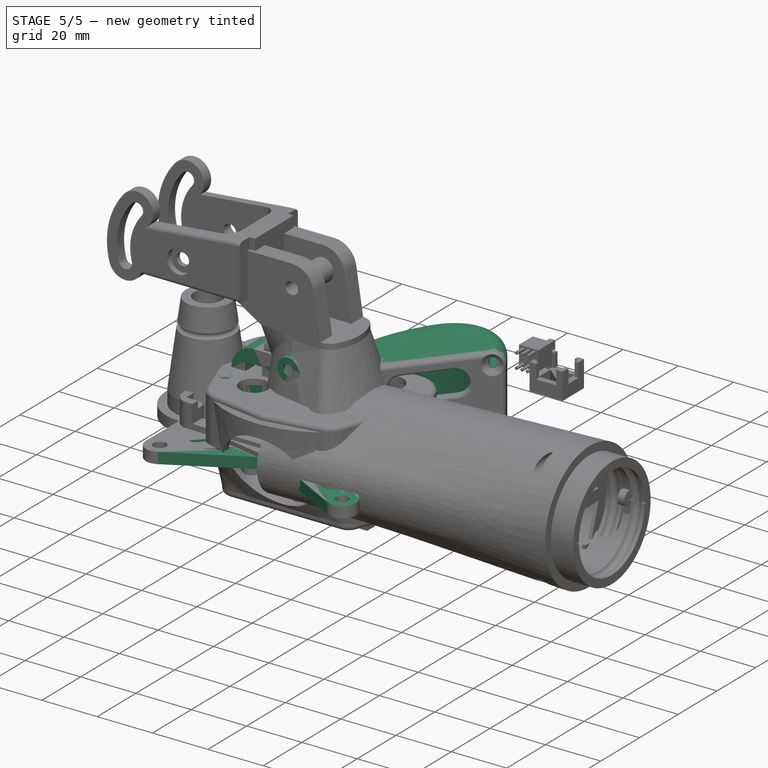
[diagram: stage 5 of 5 — iso view after this stage's code; geometry added in this stage tinted green]
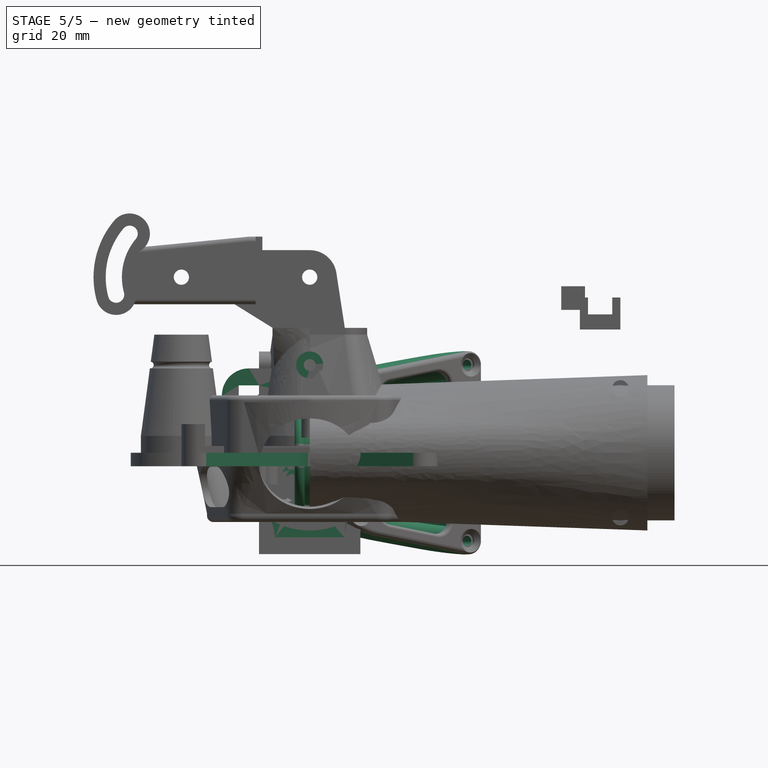
[diagram: stage 5 of 5 — front view after this stage's code; geometry added in this stage tinted green]
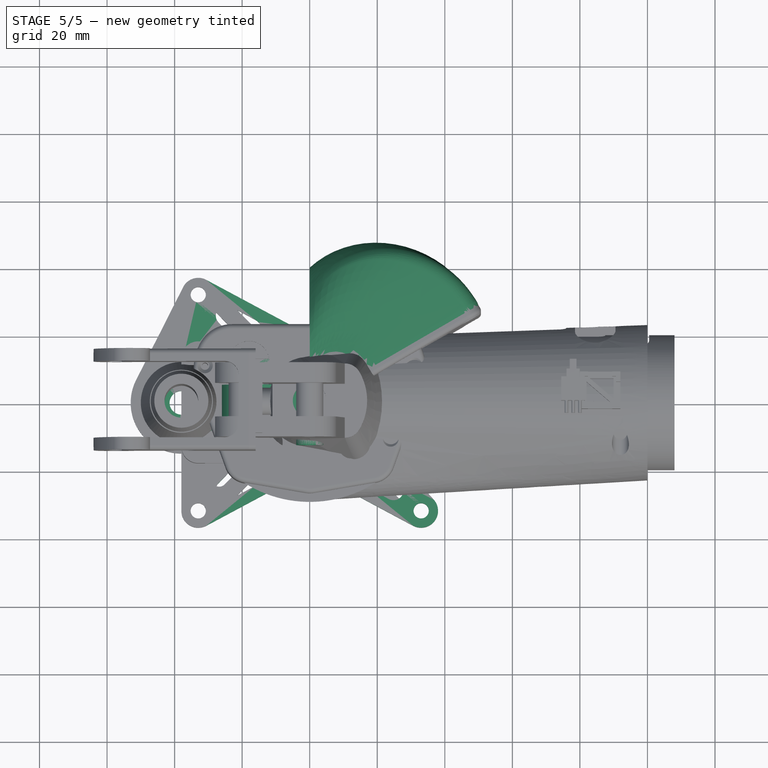
[diagram: stage 5 of 5 — top view after this stage's code; geometry added in this stage tinted green]
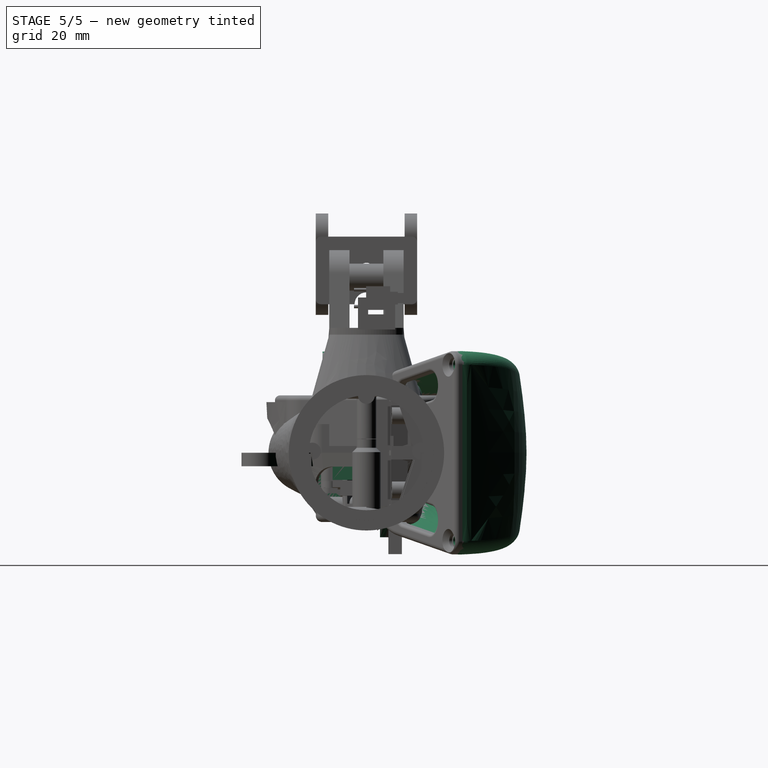
[diagram: stage 5 of 5 — right view after this stage's code; geometry added in this stage tinted green]
FEATURE [Sketcher::SketchObject] Sketch001  label="msw sk"
  FullyConstrained = false
  MapMode = 5
  Support = -> [XY_Plane007]
  sketch-geometry (28):
    g0: LineSegment StartX=6.4 StartY=3.15 StartZ=0 EndX=6.4 EndY=-3.15 EndZ=0
    g1: LineSegment StartX=-6.4 StartY=-3.15 StartZ=0 EndX=-6.4 EndY=3.15 EndZ=0
    g2: ArcOfCircle CenterX=-3.25 CenterY=-2.15 CenterZ=0 NormalX=0 NormalY=0 NormalZ=1 AngleXU=0 Radius=1.1 StartAngle=2.0005 EndAngle=4.28269
    g3: Circle CenterX=3.25 CenterY=-2.15 CenterZ=0 NormalX=0 NormalY=0 NormalZ=1 AngleXU=0 Radius=1
    g4: LineSegment StartX=-6.4 StartY=-3.15 StartZ=0 EndX=-4.3 EndY=-3.15 EndZ=0
    g5: LineSegment StartX=-4.3 StartY=-3.15 StartZ=0 EndX=-4.3 EndY=-3.55 EndZ=0
    g6: LineSegment StartX=-4.3 StartY=-3.55 StartZ=0 EndX=-1.9 EndY=-3.55 EndZ=0
    g7: LineSegment StartX=-1.9 StartY=-3.55 StartZ=0 EndX=-1.9 EndY=-3.15 EndZ=0
    g8: LineSegment StartX=-1.9 StartY=-3.15 StartZ=0 EndX=1.9 EndY=-3.15 EndZ=0
    g9: LineSegment StartX=1.9 StartY=-3.15 StartZ=0 EndX=1.9 EndY=-3.55 EndZ=0
    g10: LineSegment StartX=1.9 StartY=-3.55 StartZ=0 EndX=4.3 EndY=-3.55 EndZ=0
    g11: LineSegment StartX=4.3 StartY=-3.55 StartZ=0 EndX=4.3 EndY=-3.15 EndZ=0
    g12: LineSegment StartX=4.3 StartY=-3.15 StartZ=0 EndX=6.4 EndY=-3.15 EndZ=0
    g13: LineSegment StartX=1.9 StartY=-3.55 StartZ=0 EndX=-1.9 EndY=-3.55 EndZ=0
    g14: LineSegment StartX=4.3 StartY=-3.15 StartZ=0 EndX=1.9 EndY=-3.15 EndZ=0
    g15: LineSegment StartX=-6.4 StartY=3.15 StartZ=0 EndX=-5.4 EndY=3.15 EndZ=0
    g16: LineSegment StartX=-5.4 StartY=3.15 StartZ=0 EndX=-5.4 EndY=3.74335 EndZ=0
    g17: LineSegment StartX=-5.4 StartY=3.74335 StartZ=0 EndX=6.99912 EndY=7.65 EndZ=0
    g18: LineSegment StartX=6.99912 StartY=7.65 StartZ=0 EndX=7.11932 EndY=7.26849 EndZ=0
    g19: LineSegment StartX=7.11932 StartY=7.26849 StartZ=0 EndX=-5 EndY=3.45 EndZ=0
    g20: LineSegment StartX=-5 StartY=3.45 StartZ=0 EndX=-5 EndY=3.15 EndZ=0
    g21: LineSegment StartX=-5 StartY=3.15 StartZ=0 EndX=6.4 EndY=3.15 EndZ=0
    g22: LineSegment StartX=-5.4 StartY=3.15 StartZ=0 EndX=-5 EndY=3.15 EndZ=0
    g23: LineSegment StartX=-4 StartY=-1.15 StartZ=0 EndX=4 EndY=-1.15 EndZ=0
    g24: LineSegment StartX=-1.9 StartY=-3.15 StartZ=0 EndX=-4.3 EndY=-3.15 EndZ=0
    g25: LineSegment StartX=-3.70826 StartY=-1.15 StartZ=0 EndX=-2.79174 EndY=-1.15 EndZ=0
    g26: LineSegment StartX=-2.79174 StartY=-3.15 StartZ=0 EndX=-3.70826 EndY=-3.15 EndZ=0
    g27: ArcOfCircle CenterX=-3.25 CenterY=-2.15 CenterZ=0 NormalX=0 NormalY=0 NormalZ=1 AngleXU=0 Radius=1.1 StartAngle=5.14209 EndAngle=7.42428
  constraints (73):
    c: Vertical(g1)
    c: Symmetric(g0,g1,g-2)
    c: Symmetric(g0,g0,g-1)
    c: DistanceX(g1,g0) = 12.8
    c: Symmetric(g3,g2,g-2)
    c: Radius(g2) = 1.1
    c: Radius(g3) = 1
    c: DistanceX(g2,g3) = 6.5
    c: Coincident(g1,g4)
    c: Horizontal(g4)
    c: Coincident(g4,g5)
    c: Vertical(g5)
    c: Coincident(g5,g6)
    c: Horizontal(g6)
    c: Coincident(g6,g7)
    c: Vertical(g7)
    c: Coincident(g7,g8)
    c: Coincident(g8,g9)
    c: Vertical(g9)
    c: Coincident(g9,g10)
    c: Horizontal(g10)
    c: Coincident(g10,g11)
    c: Coincident(g11,g12)
    c: Coincident(g12,g0)
    c: Horizontal(g12)
    c: Symmetric(g7,g8,g-2)
    c: DistanceX(g8,g8) = 3.8
    c: Vertical(g11)
    c: DistanceY(g10,g0) = 0.4
    c: Coincident(g13,g9)
    c: Coincident(g13,g6)
    c: Horizontal(g13)
    c: Symmetric(g4,g11,g-2)
    c: DistanceX(g6,g6) = 2.4
    c: DistanceY(g10,g0) = 6.7
    c: Coincident(g14,g11)
    c: Coincident(g14,g8)
    c: Horizontal(g14)
    c: DistanceY(g2,g1) = 5.3
    c: Coincident(g1,g15)
    c: Coincident(g15,g16)
    c: Coincident(g16,g17)
    c: Coincident(g17,g18)
    c: Coincident(g18,g19)
    c: Coincident(g19,g20)
    c: Vertical(g20)
    c: Coincident(g20,g21)
    c: Coincident(g21,g0)
    c: Horizontal(g21)
    c: Horizontal(g15)
    c: DistanceX(g15,g15) = 1
    c: Vertical(g16)
    c: Perpendicular(g18,g17)
    c: Perpendicular(g18,g19)
    c: Distance(g17) = 13
    c: Coincident(g22,g15)
    c: Coincident(g22,g20)
    c: Equal(g18,g22)
    c: Distance(g18) = 0.4
    c: DistanceY(g0,g17) = 10.8
    c: DistanceY(g20,g20) = 0.3
    c: Horizontal(g23)
    c: Tangent(g23,g3)
    c: Coincident(g24,g7)
    c: Coincident(g24,g4)
    c: Tangent(g25,g23)
    c: Coincident(g2,g25)
    c: Coincident(g27,g25)
    c: Tangent(g26,g24)
    c: Equal(g2,g27)
    c: Coincident(g2,g26)
    c: Coincident(g27,g26)
    c: Coincident(g2,g27)
FEATURE [PartDesign::Pad] Pad001  label="msw pad"
  Direction = (1,1,1)
  Length = 6
  Length2 = 100
  Profile = -> Sketch001
  Type = 0
FEATURE [Sketcher::SketchObject] Sketch002  label="spr sk"
  FullyConstrained = true
  MapMode = 5
  Support = -> [XY_Plane008]
  sketch-geometry (2):
    g0: Circle CenterX=0 CenterY=0 CenterZ=0 NormalX=0 NormalY=0 NormalZ=1 AngleXU=0 Radius=3.5
    g1: Circle CenterX=0 CenterY=0 CenterZ=0 NormalX=0 NormalY=0 NormalZ=1 AngleXU=0 Radius=3
  constraints (4):
    c: Coincident(g0,g-1)
    c: Coincident(g1,g0)
    c: Radius(g0) = 3.5
    c: Radius(g1) = 3
FEATURE [PartDesign::Pad] Pad002  label="spr pad"
  Direction = (1,1,1)
  Length = 9
  Length2 = 100
  Profile = -> Sketch002
  Type = 0
FEATURE [PartDesign::Body] Body005  label="Spring"
  Group = -> [Sketch002,Pad002]
  Origin = -> Origin008
  Tip = -> Pad002
FEATURE [PartDesign::AdditiveCylinder] Cylinder003  label="msw pin1"
  Angle = 360
  AttacherType = Attacher::AttachEngine3D
  AttachmentOffset = pos=(-5.1,3,3) rot=(0,0,1;0rad)
  BaseFeature = -> Pad001
  FirstAngle = 0
  Height = 3
  MapMode = 5
  Placement = pos=(-5.1,-3,3) rot=(1,0,0;1.5708rad)
  Radius = 0.5
  SecondAngle = 0
  Support = -> [XZ_Plane007]
FEATURE [PartDesign::LinearPattern] LinearPattern  label="msw pins"
  BaseFeature = -> Cylinder003
  Direction = -> X_Axis007
  Length = 10.2
  Occurrences = 3
  Originals = -> [Cylinder003]
  Placement = pos=(-5.1,-3,3) rot=(1,0,0;1.5708rad)
FEATURE [Sketcher::SketchObject] Sketch014  label="bp-p sketch"
  FullyConstrained = true
  MapMode = 5
  Support = -> [XY_Plane021]
  sketch-geometry (88):
    g0: Circle CenterX=9 CenterY=14 CenterZ=0 NormalX=0 NormalY=0 NormalZ=1 AngleXU=0 Radius=2.25
    g1: Circle CenterX=33 CenterY=32 CenterZ=0 NormalX=0 NormalY=0 NormalZ=1 AngleXU=0 Radius=2.25
    g2: LineSegment StartX=9 StartY=32 StartZ=0 EndX=33 EndY=32 EndZ=0
    g3: LineSegment StartX=33 StartY=32 StartZ=0 EndX=33 EndY=14 EndZ=0
    g4: LineSegment StartX=33 StartY=14 StartZ=0 EndX=9 EndY=14 EndZ=0
    g5: LineSegment StartX=9 StartY=14 StartZ=0 EndX=9 EndY=32 EndZ=0
    g6: LineSegment StartX=-33 StartY=32 StartZ=0 EndX=-9 EndY=32 EndZ=0
    g7: LineSegment StartX=-9 StartY=32 StartZ=0 EndX=-9 EndY=14 EndZ=0
    g8: LineSegment StartX=-9 StartY=14 StartZ=0 EndX=-33 EndY=14 EndZ=0
    g9: LineSegment StartX=-33 StartY=14 StartZ=0 EndX=-33 EndY=32 EndZ=0
    g10: Circle CenterX=-9 CenterY=14 CenterZ=0 NormalX=0 NormalY=0 NormalZ=1 AngleXU=0 Radius=2.25
    g11: Circle CenterX=-33 CenterY=32 CenterZ=0 NormalX=0 NormalY=0 NormalZ=1 AngleXU=0 Radius=2.25
    g12: LineSegment StartX=9 StartY=-14 StartZ=0 EndX=33 EndY=-14 EndZ=0
    g13: LineSegment StartX=33 StartY=-14 StartZ=0 EndX=33 EndY=-32 EndZ=0
    g14: LineSegment StartX=33 StartY=-32 StartZ=0 EndX=9 EndY=-32 EndZ=0
    g15: LineSegment StartX=9 StartY=-32 StartZ=0 EndX=9 EndY=-14 EndZ=0
    g16: Circle CenterX=9 CenterY=-14 CenterZ=0 NormalX=0 NormalY=0 NormalZ=1 AngleXU=0 Radius=2.25
    g17: Circle CenterX=33 CenterY=-32 CenterZ=0 NormalX=0 NormalY=0 NormalZ=1 AngleXU=0 Radius=2.25
    g18: LineSegment StartX=-33 StartY=-14 StartZ=0 EndX=-9 EndY=-14 EndZ=0
    g19: LineSegment StartX=-9 StartY=-14 StartZ=0 EndX=-9 EndY=-32 EndZ=0
    g20: LineSegment StartX=-9 StartY=-32 StartZ=0 EndX=-33 EndY=-32 EndZ=0
    g21: LineSegment StartX=-33 StartY=-32 StartZ=0 EndX=-33 EndY=-14 EndZ=0
    g22: Circle CenterX=-9 CenterY=-14 CenterZ=0 NormalX=0 NormalY=0 NormalZ=1 AngleXU=0 Radius=2.25
    g23: Circle CenterX=-33 CenterY=-32 CenterZ=0 NormalX=0 NormalY=0 NormalZ=1 AngleXU=0 Radius=2.25
    g24: LineSegment StartX=-38 StartY=38 StartZ=0 EndX=38 EndY=38 EndZ=0
    g25: LineSegment StartX=38 StartY=38 StartZ=0 EndX=38 EndY=-38 EndZ=0
    g26: LineSegment StartX=38 StartY=-38 StartZ=0 EndX=-38 EndY=-38 EndZ=0
    g27: LineSegment StartX=-38 StartY=-38 StartZ=0 EndX=-38 EndY=38 EndZ=0
    g28: LineSegment StartX=-4.72081 StartY=-22.528 StartZ=0 EndX=-30.6396 EndY=-36.4078 EndZ=0
    g29: LineSegment StartX=4.72081 StartY=-22.528 StartZ=0 EndX=30.6396 EndY=-36.4078 EndZ=0
    g30: LineSegment StartX=30.6396 StartY=36.4078 StartZ=0 EndX=4.72081 EndY=22.528 EndZ=0
    g31: GeomPoint X=38 Y=-40.3493 Z=0
    g32: GeomPoint X=38 Y=40.3493 Z=0
    g33: ArcOfCircle CenterX=33 CenterY=32 CenterZ=0 NormalX=0 NormalY=0 NormalZ=1 AngleXU=0 Radius=5 StartAngle=5.5531 EndAngle=8.34563
    g34: ArcOfCircle CenterX=33 CenterY=-32 CenterZ=0 NormalX=0 NormalY=0 NormalZ=1 AngleXU=0 Radius=5 StartAngle=4.22074 EndAngle=7.01327
    g35: ArcOfCircle CenterX=-6e-15 CenterY=31.3436 CenterZ=0 NormalX=0 NormalY=0 NormalZ=1 AngleXU=0 Radius=10 StartAngle=4.22074 EndAngle=5.20404
    g36: GeomPoint X=0 Y=20 Z=0
    g37: ArcOfCircle CenterX=-5.5e-15 CenterY=-31.3436 CenterZ=0 NormalX=0 NormalY=0 NormalZ=1 AngleXU=0 Radius=10 StartAngle=1.07915 EndAngle=2.06245
    g38: GeomPoint X=0 Y=-20 Z=0
    g39: LineSegment StartX=36.7256 StartY=28.6654 StartZ=0 EndX=17.0377 EndY=6.6693 EndZ=0
    g40: LineSegment StartX=17.0377 StartY=-6.6693 StartZ=0 EndX=36.7256 EndY=-28.6654 EndZ=0
    g41: ArcOfCircle CenterX=24.489 CenterY=-1e-15 CenterZ=0 NormalX=0 NormalY=0 NormalZ=1 AngleXU=0 Radius=10 StartAngle=2.41151 EndAngle=3.87167
    g42: GeomPoint X=11.0683 Y=0 Z=0
    g43: ArcOfCircle CenterX=-33 CenterY=-32 CenterZ=0 NormalX=0 NormalY=0 NormalZ=1 AngleXU=0 Radius=5 StartAngle=3.14159 EndAngle=5.20404
    g44: ArcOfCircle CenterX=-33 CenterY=32 CenterZ=0 NormalX=0 NormalY=0 NormalZ=1 AngleXU=0 Radius=5 StartAngle=1.07915 EndAngle=3.14159
    g45: LineSegment StartX=-30.6396 StartY=36.4078 StartZ=0 EndX=-4.72081 EndY=22.528 EndZ=0
    g46: LineSegment StartX=-38 StartY=-32 StartZ=0 EndX=-38 EndY=-11 EndZ=0
    g47: ArcOfCircle CenterX=-38 CenterY=0 CenterZ=0 NormalX=0 NormalY=0 NormalZ=1 AngleXU=0 Radius=11 StartAngle=1.5708 EndAngle=4.71239
    g48: LineSegment StartX=-38 StartY=11 StartZ=0 EndX=-38 EndY=32 EndZ=0
    g49: Circle CenterX=-38 CenterY=0 CenterZ=0 NormalX=0 NormalY=0 NormalZ=1 AngleXU=0 Radius=3.5
    g50: LineSegment StartX=-33 StartY=32 StartZ=0 EndX=-9 EndY=14 EndZ=0
    g51: LineSegment StartX=33 StartY=32 StartZ=0 EndX=9 EndY=14 EndZ=0
    g52: LineSegment StartX=33 StartY=-32 StartZ=0 EndX=9 EndY=-14 EndZ=0
    g53: LineSegment StartX=-33 StartY=-32 StartZ=0 EndX=-9 EndY=-14 EndZ=0
    g54: ArcOfCircle CenterX=-24.8 CenterY=25.85 CenterZ=0 NormalX=0 NormalY=0 NormalZ=1 AngleXU=0 Radius=3 StartAngle=1.07915 EndAngle=3.91704
    g55: ArcOfCircle CenterX=-18.1986 CenterY=20.8989 CenterZ=0 NormalX=0 NormalY=0 NormalZ=1 AngleXU=0 Radius=4.24823 StartAngle=3.91704 EndAngle=7.36233
    g56: LineSegment StartX=-23.3838 StartY=28.4947 StartZ=0 EndX=-16.1931 EndY=24.644 EndZ=0
    g57: LineSegment StartX=-26.9423 StartY=23.7499 StartZ=0 EndX=-21.2323 EndY=17.925 EndZ=0
    g58: ArcOfCircle CenterX=18.1986 CenterY=20.8989 CenterZ=0 NormalX=0 NormalY=0 NormalZ=1 AngleXU=0 Radius=4.24823 StartAngle=2.06245 EndAngle=5.50774
    g59: ArcOfCircle CenterX=24.8 CenterY=25.85 CenterZ=0 NormalX=0 NormalY=0 NormalZ=1 AngleXU=0 Radius=3 StartAngle=5.50774 EndAngle=8.34563
    g60: LineSegment StartX=23.3838 StartY=28.4947 StartZ=0 EndX=16.1931 EndY=24.644 EndZ=0
    g61: LineSegment StartX=26.9423 StartY=23.7499 StartZ=0 EndX=21.2323 EndY=17.925 EndZ=0
    g62: ArcOfCircle CenterX=24.8 CenterY=-25.85 CenterZ=0 NormalX=0 NormalY=0 NormalZ=1 AngleXU=0 Radius=3 StartAngle=4.22074 EndAngle=7.05863
    g63: ArcOfCircle CenterX=18.1986 CenterY=-20.8989 CenterZ=0 NormalX=0 NormalY=0 NormalZ=1 AngleXU=0 Radius=4.24823 StartAngle=0.775444 EndAngle=4.22074
    g64: LineSegment StartX=21.2323 StartY=-17.925 StartZ=0 EndX=26.9423 EndY=-23.7499 EndZ=0
    g65: LineSegment StartX=16.1931 StartY=-24.644 StartZ=0 EndX=23.3838 EndY=-28.4947 EndZ=0
    g66: ArcOfCircle CenterX=-24.8 CenterY=-25.85 CenterZ=0 NormalX=0 NormalY=0 NormalZ=1 AngleXU=0 Radius=3 StartAngle=2.36615 EndAngle=5.20404
    g67: ArcOfCircle CenterX=-18.1986 CenterY=-20.8989 CenterZ=0 NormalX=0 NormalY=0 NormalZ=1 AngleXU=0 Radius=4.24823 StartAngle=5.20404 EndAngle=8.64933
    g68: LineSegment StartX=-21.2323 StartY=-17.925 StartZ=0 EndX=-26.9423 EndY=-23.7499 EndZ=0
    g69: LineSegment StartX=-16.1931 StartY=-24.644 StartZ=0 EndX=-23.3838 EndY=-28.4947 EndZ=0
    g70: GeomPoint X=-31.2 Y=30.65 Z=0
    g71: GeomPoint X=-27.2 Y=27.65 Z=0
    g72: GeomPoint X=-14.8 Y=18.35 Z=0
    g73: GeomPoint X=-10.8 Y=15.35 Z=0
    g74: Ellipse CenterX=0 CenterY=0 CenterZ=0 NormalX=0 NormalY=0 NormalZ=1 MajorRadius=11.75 MinorRadius=6.75 AngleXU=1.5708
    g75: LineSegment StartX=0 StartY=11.75 StartZ=0 EndX=0 EndY=-11.75 EndZ=0
    g76: LineSegment StartX=-6.75 StartY=0 StartZ=0 EndX=6.75 EndY=0 EndZ=0
    g77: GeomPoint X=0 Y=9.61769 Z=0
    g78: GeomPoint X=0 Y=-9.61769 Z=0
    g79: LineSegment StartX=9 StartY=11.75 StartZ=0 EndX=-9 EndY=11.75 EndZ=0
    g80: LineSegment StartX=-6.75 StartY=14 StartZ=0 EndX=-6.75 EndY=-14 EndZ=0
    g81: Circle CenterX=-38 CenterY=0 CenterZ=0 NormalX=0 NormalY=0 NormalZ=1 AngleXU=0 Radius=14.8661
    g82: LineSegment StartX=-11.25 StartY=14 StartZ=0 EndX=-11.25 EndY=-14 EndZ=0
    g83: Ellipse CenterX=-17.192 CenterY=0 CenterZ=0 NormalX=0 NormalY=0 NormalZ=1 MajorRadius=11.75 MinorRadius=5.94197 AngleXU=1.5708
    g84: LineSegment StartX=-17.192 StartY=11.75 StartZ=0 EndX=-17.192 EndY=-11.75 EndZ=0
    g85: LineSegment StartX=-23.1339 StartY=0 StartZ=0 EndX=-11.25 EndY=0 EndZ=0
    g86: GeomPoint X=-17.192 Y=10.1368 Z=0
    g87: GeomPoint X=-17.192 Y=-10.1368 Z=0
  constraints (194):
    c: Coincident(g2,g1)
    c: Horizontal(g2)
    c: Coincident(g3,g1)
    c: Vertical(g3)
    c: Coincident(g4,g0)
    c: Horizontal(g4)
    c: Coincident(g5,g0)
    c: Vertical(g5)
    c: DistanceX(g2,g2) = 24
    c: DistanceY(g3,g3) = 18
    c: Radius(g1) = 2.25
    c: DistanceX(g-1,g0) = 9
    c: DistanceY(g-1,g0) = 14
    c: Coincident(g2,g5)
    c: Coincident(g3,g4)
    c: Equal(g0,g1)
    c: Coincident(g6,g7)
    c: Coincident(g7,g8)
    c: Coincident(g8,g9)
    c: Coincident(g9,g6)
    c: Horizontal(g6)
    c: Horizontal(g8)
    c: Vertical(g7)
    c: Vertical(g9)
    c: Symmetric(g7,g0,g-2)
    c: Equal(g3,g9)
    c: Equal(g6,g2)
    c: Coincident(g10,g7)
    c: Coincident(g11,g6)
    c: Equal(g1,g11)
    c: Equal(g11,g10)
    c: Coincident(g12,g13)
    c: Coincident(g13,g14)
    c: Coincident(g14,g15)
    c: Coincident(g15,g12)
    c: Horizontal(g12)
    c: Horizontal(g14)
    c: Vertical(g13)
    c: Vertical(g15)
    c: Symmetric(g0,g12,g-1)
    c: Equal(g5,g15)
    c: Equal(g2,g14)
    c: Coincident(g16,g12)
    c: Coincident(g17,g13)
    c: Equal(g1,g16)
    c: Equal(g16,g17)
    c: Coincident(g18,g19)
    c: Coincident(g19,g20)
    c: Coincident(g20,g21)
    c: Coincident(g21,g18)
    c: Horizontal(g18)
    c: Horizontal(g20)
    c: Vertical(g19)
    c: Vertical(g21)
    c: Symmetric(g16,g18,g-2)
    c: Equal(g19,g15)
    c: Equal(g20,g14)
    c: Coincident(g22,g18)
    c: Coincident(g23,g20)
    c: Equal(g1,g22)
    c: Equal(g22,g23)
    c: Coincident(g24,g25)
    c: Coincident(g25,g26)
    c: Coincident(g26,g27)
    c: Coincident(g27,g24)
    c: Horizontal(g26)
    c: Vertical(g27)
    c: Symmetric(g25,g24,g-1)
    c: Symmetric(g24,g24,g-2)
    c: DistanceY(g25,g25) = 76
    c: DistanceX(g24,g24) = 76
    c: PointOnObject(g36,g-2)
    c: Symmetric(g36,g38,g-1)
    c: PointOnObject(g31,g25)
    c: Symmetric(g32,g31,g-1)
    c: PointOnObject(g31,g29)
    c: PointOnObject(g32,g30)
    c: Coincident(g33,g1)
    c: Tangent(g33,g30) = -1.5708
    c: Coincident(g34,g17)
    c: Tangent(g34,g29) = -1.5708
    c: Radius(g34) = 5
    c: DistanceY(g38,g-1) = 20
    c: PointOnObject(g36,g30)
    c: Coincident(g45,g35) = -1.5708
    c: Tangent(g30,g35) = 1.5708
    c: PointOnObject(g38,g28)
    c: PointOnObject(g38,g29)
    c: Tangent(g28,g37) = -1.5708
    c: Tangent(g29,g37) = 1.5708
    c: Equal(g35,g37)
    c: Radius(g37) = 10
    c: Angle(g33) = 2.79253
    c: Tangent(g33,g39) = 1.5708
    c: Tangent(g40,g34) = 1.5708
    c: PointOnObject(g42,g-1)
    c: PointOnObject(g42,g39)
    c: PointOnObject(g42,g40)
    c: Tangent(g39,g41) = -1.5708
    c: Tangent(g40,g41) = -1.5708
    c: Radius(g41) = 10
    c: Coincident(g43,g23)
    c: Tangent(g28,g43) = 1.5708
    c: Coincident(g44,g11)
    c: PointOnObject(g44,g27)
    c: Tangent(g45,g44) = 1.5708
    c: Equal(g44,g43)
    c: Tangent(g46,g43) = 1.5708
    c: Coincident(g48,g44) = 1.5708
    c: Symmetric(g35,g28,g-1)
    c: PointOnObject(g47,g46)
    c: Radius(g47) = 11
    c: Coincident(g46,g47)
    c: Coincident(g48,g47)
    c: Tangent(g46,g48)
    c: PointOnObject(g47,g-1)
    c: Equal(g46,g48)
    c: Coincident(g49,g47)
    c: Radius(g49) = 3.5
    c: Coincident(g50,g11)
    c: Coincident(g50,g10)
    c: Coincident(g51,g1)
    c: Coincident(g51,g0)
    c: Coincident(g52,g17)
    c: Coincident(g52,g16)
    c: Coincident(g53,g23)
    c: Coincident(g53,g22)
    c: PointOnObject(g54,g50)
    c: PointOnObject(g55,g50)
    c: Radius(g54) = 3
    c: Parallel(g56,g45)
    c: Tangent(g55,g56) = 1.5708
    c: Tangent(g55,g57) = -1.5708
    c: Tangent(g54,g57) = -1.5708
    c: Tangent(g54,g56) = 1.5708
    c: Symmetric(g59,g54,g-2)
    c: Symmetric(g58,g55,g-2)
    c: Equal(g59,g54)
    c: Equal(g58,g55)
    c: Tangent(g59,g60) = -1.5708
    c: Tangent(g59,g61) = 1.5708
    c: Tangent(g58,g61) = 1.5708
    c: Tangent(g58,g60) = -1.5708
    c: Symmetric(g63,g58,g-1)
    c: Symmetric(g59,g62,g-1)
    c: Equal(g62,g59)
    c: Equal(g63,g58)
    c: Tangent(g63,g64) = 1.5708
    c: Tangent(g62,g64) = 1.5708
    c: Tangent(g62,g65) = -1.5708
    c: Tangent(g63,g65) = -1.5708
    c: Symmetric(g55,g67,g-1)
    c: Symmetric(g66,g54,g-1)
    c: Equal(g66,g54)
    c: Equal(g67,g55)
    c: Tangent(g67,g68) = -1.5708
    c: Tangent(g67,g69) = 1.5708
    c: Tangent(g66,g69) = 1.5708
    c: Tangent(g66,g68) = -1.5708
    c: PointOnObject(g70,g50)
    c: PointOnObject(g70,g11)
    c: PointOnObject(g71,g54)
    c: PointOnObject(g71,g50)
    c: Distance(g70,g71) = 5
    c: PointOnObject(g72,g55)
    c: PointOnObject(g73,g10)
    c: PointOnObject(g73,g50)
    c: PointOnObject(g72,g50)
    c: Distance(g72,g73) = 5
    c: InternalAlignment(g75-g78 -> g74) x4
    c: Coincident(g74,g-1)
    c: PointOnObject(g77,g-2)
    c: PointOnObject(g79,g0)
    c: PointOnObject(g79,g10)
    c: Tangent(g79,g10)
    c: Tangent(g79,g0)
    c: PointOnObject(g75,g79)
    c: PointOnObject(g80,g10)
    c: PointOnObject(g80,g22)
    c: Tangent(g80,g22)
    c: Tangent(g80,g10)
    c: PointOnObject(g76,g80)
    c: Coincident(g81,g47)
    c: PointOnObject(g8,g81)
    c: PointOnObject(g82,g10)
    c: Vertical(g82)
    c: PointOnObject(g82,g8)
    c: PointOnObject(g82,g22)
    c: InternalAlignment(g84-g87 -> g83) x4
    c: PointOnObject(g83,g-1)
    c: Tangent(g83,g82)
    c: PointOnObject(g85,g-1)
    c: PointOnObject(g85,g81)
    c: Equal(g84,g75)
FEATURE [PartDesign::Pad] Pad013  label="bp-p pad"
  Direction = (0,0,1)
  Length = 4
  Length2 = 100
  Profile = -> Sketch014
  Reversed = true
  Type = 0
FEATURE [PartDesign::Body] Body016  label="Plate"
  Group = -> [Sketch014,Pad013]
  Origin = -> Origin021
  Tip = -> Pad013
FEATURE [PartDesign::AdditiveCone] Cone  label="bp-pjb Cone"
  Angle = 360
  AttacherType = Attacher::AttachEngine3D
  Height = 20
  MapMode = 5
  Radius1 = 11
  Radius2 = 8
  Support = -> [XY_Plane022]
FEATURE [PartDesign::AdditiveCylinder] Cylinder030  label="bp-pjb TopCyl"
  Angle = 360
  AttacherType = Attacher::AttachEngine3D
  AttachmentOffset = pos=(0,0,20) rot=(0,0,1;0rad)
  BaseFeature = -> Cone
  FirstAngle = 0
  Height = 4
  MapMode = 5
  Placement = pos=(0,0,20) rot=(0,0,1;0rad)
  Radius = 8
  SecondAngle = 0
  Support = -> [XY_Plane022]
FEATURE [PartDesign::AdditiveCone] Cone001  label="outer cone"
  Angle = 360
  AttacherType = Attacher::AttachEngine3D
  Height = 20
  MapMode = 5
  Radius1 = 13
  Radius2 = 11
  Support = -> [XY_Plane024]
FEATURE [PartDesign::SubtractiveCone] Cone002  label="inner cone"
  Angle = 360
  AttacherType = Attacher::AttachEngine3D
  BaseFeature = -> Cone001
  Height = 20
  MapMode = 5
  Radius1 = 11.25
  Radius2 = 8.25
  Support = -> [XY_Plane024]
FEATURE [PartDesign::AdditiveCylinder] Cylinder035  label="outer cylinder"
  Angle = 360
  AttacherType = Attacher::AttachEngine3D
  AttachmentOffset = pos=(0,0,20) rot=(0,0,1;0rad)
  BaseFeature = -> Cone002
  FirstAngle = 0
  Height = 10
  MapMode = 5
  Placement = pos=(0,0,20) rot=(0,0,1;0rad)
  Radius = 11
  SecondAngle = 0
  Support = -> [XY_Plane024]
FEATURE [PartDesign::SubtractiveCylinder] Cylinder036  label="inner cylinder"
  Angle = 360
  AttacherType = Attacher::AttachEngine3D
  AttachmentOffset = pos=(0,0,20) rot=(0,0,1;0rad)
  BaseFeature = -> Cylinder035
  FirstAngle = 0
  Height = 10
  MapMode = 5
  Placement = pos=(0,0,20) rot=(0,0,1;0rad)
  Radius = 8.25
  SecondAngle = 0
  Support = -> [XY_Plane024]
FEATURE [PartDesign::AdditiveCylinder] Cylinder043
  Angle = 360
  AttacherType = Attacher::AttachEngine3D
  AttachmentOffset = pos=(0,0,-3) rot=(0,0,1;0rad)
  FirstAngle = 0
  Height = 7
  MapMode = 5
  Placement = pos=(0,0,3) rot=(0,1,0;3.14159rad)
  Radius = 15
  SecondAngle = 0
  Support = -> [XY_Plane025]
FEATURE [PartDesign::SubtractiveCylinder] Cylinder044
  Angle = 360
  AttacherType = Attacher::AttachEngine3D
  BaseFeature = -> Cylinder043
  FirstAngle = 0
  Height = 3
  MapMode = 5
  Radius = 11.25
  SecondAngle = 0
  Support = -> [XY_Plane025]
FEATURE [PartDesign::SubtractiveCylinder] Cylinder045
  Angle = 360
  AttacherType = Attacher::AttachEngine3D
  AttachmentOffset = pos=(0,11,0) rot=(0,0,1;0rad)
  BaseFeature = -> Cylinder044
  FirstAngle = 0
  Height = 3
  MapMode = 5
  Placement = pos=(0,11,0) rot=(0,0,1;0rad)
  Radius = 1.75
  SecondAngle = 0
  Support = -> [XY_Plane025]
FEATURE [PartDesign::PolarPattern] PolarPattern009
  Angle = 360
  Axis = -> Z_Axis025
  BaseFeature = -> Cylinder045
  Occurrences = 20
  Originals = -> [Cylinder045]
  Placement = pos=(0,11,0) rot=(0,0,1;0rad)
FEATURE [Sketcher::SketchObject] Sketch015  label="vjc sk"
  FullyConstrained = true
  MapMode = 5
  Support = -> [XY_Plane026]
  sketch-geometry (4):
    g0: LineSegment StartX=-2.25 StartY=0 StartZ=0 EndX=-15 EndY=-1.0356e-12 EndZ=0
    g1: LineSegment StartX=-2.25 StartY=4 StartZ=0 EndX=-2.25 EndY=0 EndZ=0
    g2: LineSegment StartX=-2.25 StartY=4 StartZ=0 EndX=-4.80196 EndY=4 EndZ=0
    g3: ArcOfCircle CenterX=-4.80196 CenterY=-11 CenterZ=0 NormalX=0 NormalY=0 NormalZ=1 AngleXU=0 Radius=15 StartAngle=1.5708 EndAngle=2.31838
  constraints (12):
    c: PointOnObject(g0,g-1)
    c: PointOnObject(g0,g-1)
    c: Coincident(g1,g0)
    c: Vertical(g1)
    c: Coincident(g2,g1)
    c: Horizontal(g2)
    c: DistanceY(g1,g1) = 4
    c: DistanceX(g0,g0) = 12.75
    c: Coincident(g3,g0)
    c: Tangent(g3,g2) = -1.5708
    c: Radius(g3) = 15
    c: DistanceX(g0,g-1) = 2.25
FEATURE [PartDesign::Revolution] Revolution
  Angle = 360
  Axis = (0,1,0)
  Base = (0,0,0)
  Profile = -> Sketch015
  ReferenceAxis = -> Sketch015 [V_Axis]
FEATURE [PartDesign::Body] Body020  label="Vertical joint cap"
  Group = -> [Sketch015,Revolution]
  Origin = -> Origin026
  Placement = pos=(0,11,60) rot=(0,0,1;0rad)
  Tip = -> Revolution
FEATURE [Sketcher::SketchObject] Sketch016  label="jc profile bottom"
  AttachmentOffset = pos=(0,0,-25) rot=(0,0,1;0rad)
  FullyConstrained = true
  MapMode = 5
  Placement = pos=(0,0,-25) rot=(0,0,1;0rad)
  Support = -> [XY_Plane027]
  sketch-geometry (2):
    g0: ArcOfCircle CenterX=0 CenterY=0 CenterZ=0 NormalX=0 NormalY=0 NormalZ=1 AngleXU=0 Radius=11 StartAngle=0.372169 EndAngle=2.76942
    g1: LineSegment StartX=-10.247 StartY=4 StartZ=0 EndX=10.247 EndY=4 EndZ=0
  constraints (6):
    c: Coincident(g0,g-1)
    c: Radius(g0) = 11
    c: Coincident(g1,g0)
    c: Coincident(g1,g0)
    c: Horizontal(g1)
    c: DistanceY(g0,g0) = 4
FEATURE [Sketcher::SketchObject] Sketch017  label="jc profile top"
  FullyConstrained = true
  MapMode = 5
  Support = -> [XY_Plane027]
  sketch-geometry (4):
    g0: LineSegment StartX=-15 StartY=11 StartZ=0 EndX=15 EndY=11 EndZ=0
    g1: LineSegment StartX=15 StartY=11 StartZ=0 EndX=15 EndY=4 EndZ=0
    g2: LineSegment StartX=15 StartY=4 StartZ=0 EndX=-15 EndY=4 EndZ=0
    g3: LineSegment StartX=-15 StartY=4 StartZ=0 EndX=-15 EndY=11 EndZ=0
  constraints (11):
    c: Coincident(g0,g1)
    c: Coincident(g1,g2)
    c: Coincident(g2,g3)
    c: Coincident(g3,g0)
    c: Horizontal(g0)
    c: Vertical(g1)
    c: Vertical(g3)
    c: DistanceX(g0,g0) = 30
    c: Symmetric(g1,g2,g-2)
    c: DistanceY(g1,g1) = 7
    c: DistanceY(g-1,g1) = 4
FEATURE [PartDesign::AdditiveLoft] AdditiveLoft
  Closed = false
  Profile = -> Sketch016
  Ruled = false
  Sections = -> [Sketch017]
FEATURE [PartDesign::SubtractiveCylinder] Cylinder046
  Angle = 360
  AttacherType = Attacher::AttachEngine3D
  AttachmentOffset = pos=(0,0,4) rot=(0,0,1;0rad)
  BaseFeature = -> AdditiveLoft
  FirstAngle = 0
  Height = 7
  MapMode = 5
  Placement = pos=(0,4,9e-16) rot=(0,0.707107,0.707107;3.14159rad)
  Radius = 15
  SecondAngle = 0
  Support = -> [XZ_Plane027]
FEATURE [PartDesign::Body] Body021  label="Joint Connector front"
  Group = -> [Sketch016,Sketch017,AdditiveLoft,Cylinder046]
  Origin = -> Origin027
  Placement = pos=(0,0,60) rot=(0,0,1;0rad)
  Tip = -> Cylinder046
FEATURE [Sketcher::SketchObject] Sketch018  label="jc profile bottom001"
  AttachmentOffset = pos=(0,0,-25) rot=(0,0,1;0rad)
  FullyConstrained = true
  MapMode = 5
  Placement = pos=(0,0,-25) rot=(0,0,1;0rad)
  Support = -> [XY_Plane028]
  sketch-geometry (2):
    g0: ArcOfCircle CenterX=0 CenterY=0 CenterZ=0 NormalX=0 NormalY=0 NormalZ=1 AngleXU=0 Radius=11 StartAngle=0.372169 EndAngle=2.76942
    g1: LineSegment StartX=-10.247 StartY=4 StartZ=0 EndX=10.247 EndY=4 EndZ=0
  constraints (6):
    c: Coincident(g0,g-1)
    c: Radius(g0) = 11
    c: Coincident(g1,g0)
    c: Coincident(g1,g0)
    c: Horizontal(g1)
    c: DistanceY(g0,g0) = 4
FEATURE [Sketcher::SketchObject] Sketch019  label="jc profile top001"
  FullyConstrained = true
  MapMode = 5
  Support = -> [XY_Plane028]
  sketch-geometry (4):
    g0: LineSegment StartX=-15 StartY=11 StartZ=0 EndX=15 EndY=11 EndZ=0
    g1: LineSegment StartX=15 StartY=11 StartZ=0 EndX=15 EndY=4 EndZ=0
    g2: LineSegment StartX=15 StartY=4 StartZ=0 EndX=-15 EndY=4 EndZ=0
    g3: LineSegment StartX=-15 StartY=4 StartZ=0 EndX=-15 EndY=11 EndZ=0
  constraints (11):
    c: Coincident(g0,g1)
    c: Coincident(g1,g2)
    c: Coincident(g2,g3)
    c: Coincident(g3,g0)
    c: Horizontal(g0)
    c: Vertical(g1)
    c: Vertical(g3)
    c: DistanceX(g0,g0) = 30
    c: Symmetric(g1,g2,g-2)
    c: DistanceY(g1,g1) = 7
    c: DistanceY(g-1,g1) = 4
FEATURE [PartDesign::AdditiveLoft] AdditiveLoft001
  Closed = false
  Profile = -> Sketch018
  Ruled = false
  Sections = -> [Sketch019]
FEATURE [PartDesign::SubtractiveCylinder] Cylinder047
  Angle = 360
  AttacherType = Attacher::AttachEngine3D
  AttachmentOffset = pos=(0,0,4) rot=(0,0,1;0rad)
  BaseFeature = -> AdditiveLoft001
  FirstAngle = 0
  Height = 7
  MapMode = 5
  Placement = pos=(0,4,9e-16) rot=(0,0.707107,0.707107;3.14159rad)
  Radius = 15.25
  SecondAngle = 0
  Support = -> [XZ_Plane028]
FEATURE [PartDesign::Body] Body022  label="Joint Connector back"
  Group = -> [Sketch018,Sketch019,AdditiveLoft001,Cylinder047]
  Origin = -> Origin028
  Placement = pos=(0,0,60) rot=(0,0,1;3.14159rad)
  Tip = -> Cylinder047
FEATURE [PartDesign::SubtractiveCylinder] Cylinder048  label="vaj hole"
  Angle = 360
  AttacherType = Attacher::AttachEngine3D
  AttachmentOffset = pos=(0,0,-7) rot=(0,0,1;0rad)
  BaseFeature = -> PolarPattern009
  FirstAngle = 0
  Height = 7
  MapMode = 5
  Placement = pos=(0,0,-7) rot=(0,0,1;0rad)
  Radius = 2.25
  SecondAngle = 0
  Support = -> [XY_Plane025]
FEATURE [PartDesign::Body] Body019  label="Vertical adjustable Joint"
  Group = -> [Cylinder043,Cylinder044,Cylinder045,PolarPattern009,Cylinder048]
  Origin = -> Origin025
  Placement = pos=(0,7,60) rot=(1,0,0;1.5708rad)
  Tip = -> Cylinder048
FEATURE [PartDesign::SubtractiveCylinder] Cylinder056  label="bp-pjb-Notch"
  Angle = 360
  AttacherType = Attacher::AttachEngine3D
  AttachmentOffset = pos=(11,0,0) rot=(0,0,1;0rad)
  BaseFeature = -> Cylinder030
  FirstAngle = 0
  Height = 20
  MapMode = 5
  Placement = pos=(11,0,0) rot=(0,0,1;0rad)
  Radius = 3
  SecondAngle = 0
  Support = -> [XY_Plane022]
FEATURE [PartDesign::PolarPattern] PolarPattern011  label="bp-pjb-Notches"
  Angle = 360
  Axis = -> Z_Axis022
  BaseFeature = -> Cylinder056
  Occurrences = 8
  Originals = -> [Cylinder056]
  Placement = pos=(11,0,0) rot=(0,0,1;0rad)
FEATURE [PartDesign::SubtractiveCylinder] Cylinder057  label="bp-pjb-Hole"
  Angle = 360
  AttacherType = Attacher::AttachEngine3D
  BaseFeature = -> PolarPattern011
  FirstAngle = 0
  Height = 24
  MapMode = 5
  Radius = 3.5
  SecondAngle = 0
  Support = -> [XY_Plane022]
FEATURE [PartDesign::Body] Body017  label="Platejoint-Base"
  Group = -> [Cone,Cylinder030,Cylinder056,PolarPattern011,Cylinder057]
  Origin = -> Origin022
  Placement = pos=(-38,0,0) rot=(0,0,1;0rad)
  Tip = -> Cylinder057
FEATURE [Sketcher::SketchObject] Sketch020  label="bp-pjh-base-sk"
  FullyConstrained = true
  MapMode = 5
  Support = -> [XY_Plane033]
  sketch-geometry (2):
    g0: Circle CenterX=0 CenterY=0 CenterZ=0 NormalX=0 NormalY=0 NormalZ=1 AngleXU=0 Radius=3.5
    g1: Circle CenterX=0 CenterY=0 CenterZ=0 NormalX=0 NormalY=0 NormalZ=1 AngleXU=0 Radius=8
  constraints (4):
    c: Coincident(g0,g-1)
    c: Radius(g0) = 3.5
    c: Coincident(g1,g0)
    c: Radius(g1) = 8
FEATURE [PartDesign::Pad] Pad014  label="bp-pjh-base-pad"
  Direction = (1,1,1)
  Length = 6
  Length2 = 100
  Profile = -> Sketch020
  Type = 0
FEATURE [PartDesign::SubtractiveTorus] Torus  label="bp-pjh-ring-notch"
  Angle1 = -180
  Angle2 = 180
  Angle3 = 360
  AttacherType = Attacher::AttachEngine3D
  AttachmentOffset = pos=(0,0,2) rot=(0,0,1;0rad)
  BaseFeature = -> Pad014
  MapMode = 5
  Placement = pos=(0,0,2) rot=(0,0,1;0rad)
  Radius1 = 8
  Radius2 = 2
  Support = -> [XY_Plane033]
FEATURE [PartDesign::Body] Body026  label="Platejoint-Head"
  Group = -> [Sketch020,Pad014,Torus]
  Origin = -> Origin033
  Placement = pos=(-38,0,24) rot=(0,0,1;0rad)
  Tip = -> Torus
FEATURE [Sketcher::SketchObject] Sketch021  label="bp-pjg-sk"
  FullyConstrained = true
  MapMode = 5
  Support = -> [XY_Plane034]
  sketch-geometry (3):
    g0: ArcOfCircle CenterX=0 CenterY=0 CenterZ=0 NormalX=0 NormalY=0 NormalZ=1 AngleXU=0 Radius=3.5 StartAngle=1.21872 EndAngle=1.92288
    g1: LineSegment StartX=0 StartY=7 StartZ=0 EndX=-1.20698 EndY=3.2853 EndZ=0
    g2: LineSegment StartX=0 StartY=7 StartZ=0 EndX=1.20698 EndY=3.2853 EndZ=0
  constraints (9):
    c: Coincident(g0,g-1)
    c: Radius(g0) = 3.5
    c: Coincident(g2,g1)
    c: DistanceY(g0,g1) = 7
    c: Coincident(g0,g2)
    c: PointOnObject(g1,g-2)
    c: Coincident(g0,g1)
    c: Angle(g1,g2) = 0.628319
    c: Equal(g1,g2)
FEATURE [PartDesign::Pad] Pad015  label="bp-pjg-pad"
  Direction = (1,1,1)
  Length = 5
  Length2 = 100
  Profile = -> Sketch021
  Type = 0
FEATURE [PartDesign::PolarPattern] PolarPattern012  label="bp-pjg-teeths"
  Angle = 360
  Axis = -> Sketch021 [N_Axis]
  BaseFeature = -> Pad015
  Occurrences = 20
  Originals = -> [Pad015]
FEATURE [PartDesign::Body] Body027  label="Platejoint-Gear"
  Group = -> [Sketch021,Pad015,PolarPattern012]
  Origin = -> Origin034
  Placement = pos=(-38,0,30) rot=(0,0,1;0rad)
  Tip = -> PolarPattern012
FEATURE [App::Part] Part004  label="Lever Baseplate"
  Group = -> [Body016,Body017,Body026,Body027]
  Origin = -> Origin020
FEATURE [PartDesign::AdditiveCylinder] Cylinder058  label="screw enforcement"
  Angle = 360
  AttacherType = Attacher::AttachEngine3D
  AttachmentOffset = pos=(0,26,9) rot=(0,0,1;0rad)
  BaseFeature = -> Cylinder036
  FirstAngle = 0
  Height = 4
  MapMode = 5
  Placement = pos=(0,-9,26) rot=(1,0,0;1.5708rad)
  Radius = 4
  SecondAngle = 0
  Support = -> [XZ_Plane024]
FEATURE [PartDesign::SubtractiveCylinder] Cylinder059  label="screw hole"
  Angle = 360
  AttacherType = Attacher::AttachEngine3D
  AttachmentOffset = pos=(0,26,7) rot=(0,0,1;0rad)
  BaseFeature = -> Cylinder058
  FirstAngle = 0
  Height = 6
  MapMode = 5
  Placement = pos=(0,-7,26) rot=(1,0,0;1.5708rad)
  Radius = 1.75
  SecondAngle = 0
  Support = -> [XZ_Plane024]
FEATURE [PartDesign::Body] Body018  label="Foundation"
  Group = -> [Cone001,Cone002,Cylinder035,Cylinder036,Cylinder058,Cylinder059]
  Origin = -> Origin024
  Tip = -> Cylinder059
FEATURE [Sketcher::SketchObject] Sketch022  label="bj-tr-sk"
  FullyConstrained = true
  MapMode = 5
  Support = -> [XY_Plane035]
  sketch-geometry (8):
    g0: ArcOfCircle CenterX=0 CenterY=0 CenterZ=0 NormalX=0 NormalY=0 NormalZ=1 AngleXU=0 Radius=11 StartAngle=1.16723 EndAngle=1.97436
    g1: LineSegment StartX=0 StartY=7.93338 StartZ=0 EndX=-0.844746 EndY=5.33352 EndZ=0
    g2: LineSegment StartX=-0.844746 StartY=5.33352 StartZ=0 EndX=-4.31967 EndY=10.1163 EndZ=0
    g3: LineSegment StartX=0 StartY=7.93338 StartZ=0 EndX=0.844746 EndY=5.33352 EndZ=0
    g4: LineSegment StartX=4.31967 StartY=10.1163 StartZ=0 EndX=0.844746 EndY=5.33352 EndZ=0
    g5: LineSegment StartX=0 StartY=0 StartZ=0 EndX=-1.72078 EndY=10.8646 EndZ=0
    g6: Circle CenterX=0 CenterY=0 CenterZ=0 NormalX=0 NormalY=0 NormalZ=1 AngleXU=0 Radius=7
    g7: LineSegment StartX=0 StartY=0 StartZ=0 EndX=1.72078 EndY=10.8646 EndZ=0
  constraints (23):
    c: Radius(g0) = 11
    c: PointOnObject(g1,g-2)
    c: Coincident(g2,g1)
    c: Coincident(g3,g1)
    c: Coincident(g4,g3)
    c: Coincident(g0,g2)
    c: Angle(g1,g3) = 0.628319
    c: Equal(g4,g2)
    c: Angle(g4,g3) = 0.942478
    c: Coincident(g0,g-1)
    c: Coincident(g5,g0)
    c: PointOnObject(g5,g0)
    c: PointOnObject(g1,g5)
    c: Coincident(g6,g0)
    c: Radius(g6) = 7
    c: Coincident(g0,g4)
    c: Angle(g1,g2) = 0.942478
    c: Distance(g1,g0) = 5.4
    c: Equal(g3,g1)
    c: Coincident(g7,g0)
    c: PointOnObject(g7,g0)
    c: PointOnObject(g3,g7)
    c: Angle(g7,g5) = 0.314159
FEATURE [PartDesign::Pad] Pad016  label="bj-tr-pad"
  Direction = (1,1,1)
  Length = 5
  Length2 = 100
  Profile = -> Sketch022
  Type = 0
FEATURE [PartDesign::PolarPattern] PolarPattern013  label="bj-tf-teeth"
  Angle = 360
  Axis = -> Sketch022 [N_Axis]
  BaseFeature = -> Pad016
  Occurrences = 10
  Originals = -> [Pad016]
FEATURE [PartDesign::SubtractiveCone] Cone003
  Angle = 360
  AttacherType = Attacher::AttachEngine3D
  AttachmentOffset = pos=(0,0,-2) rot=(0,0,1;0rad)
  BaseFeature = -> PolarPattern013
  Height = 2
  MapMode = 5
  Placement = pos=(0,0,2) rot=(0,1,0;3.14159rad)
  Radius1 = 5
  Radius2 = 8
  Support = -> [XY_Plane035]
FEATURE [PartDesign::Body] Body028  label="Teeth ring"
  Group = -> [Sketch022,Pad016,PolarPattern013,Cone003]
  Origin = -> Origin035
  Placement = pos=(0,0,30) rot=(0,0,1;0rad)
  Tip = -> Cone003
FEATURE [Sketcher::SketchObject] Sketch023  label="advj sk"
  FullyConstrained = true
  MapMode = 5
  Placement = pos=(0,0,0) rot=(1,0,0;1.5708rad)
  Support = -> [XZ_Plane036]
  sketch-geometry (19):
    g0: LineSegment StartX=-9.5 StartY=0 StartZ=0 EndX=-12.8068 EndY=5.91115 EndZ=0
    g1: LineSegment StartX=3.90576 StartY=10 StartZ=0 EndX=9.5 EndY=0 EndZ=0
    g2: LineSegment StartX=2.4e-15 StartY=24.9818 StartZ=0 EndX=-18 EndY=24.9818 EndZ=0
    g3: Circle CenterX=0 CenterY=16.9818 CenterZ=0 NormalX=0 NormalY=0 NormalZ=1 AngleXU=0 Radius=2.25
    g4: LineSegment StartX=-9.5 StartY=0 StartZ=0 EndX=9.5 EndY=0 EndZ=0
    g5: ArcOfCircle CenterX=0 CenterY=16.9818 CenterZ=0 NormalX=0 NormalY=0 NormalZ=1 AngleXU=0 Radius=8 StartAngle=5.22244 EndAngle=7.85398
    g6: GeomPoint X=0 Y=8.98176 Z=0
    g7: LineSegment StartX=0 StartY=16.9818 StartZ=0 EndX=3.90576 EndY=10 EndZ=0
    g8: LineSegment StartX=8 StartY=16.9818 StartZ=0 EndX=-26 EndY=16.9818 EndZ=0
    g9: LineSegment StartX=-21 StartY=19.9818 StartZ=0 EndX=-15 EndY=19.9818 EndZ=0
    g10: LineSegment StartX=-15 StartY=19.9818 StartZ=0 EndX=-15 EndY=13.9818 EndZ=0
    g11: LineSegment StartX=-15 StartY=13.9818 StartZ=0 EndX=-21 EndY=13.9818 EndZ=0
    g12: LineSegment StartX=-21 StartY=13.9818 StartZ=0 EndX=-21 EndY=19.9818 EndZ=0
    g13: GeomPoint X=-15 Y=16.9818 Z=0
    g14: GeomPoint X=-8 Y=16.9818 Z=0
    g15: LineSegment StartX=-21 StartY=19.9818 StartZ=0 EndX=-15 EndY=13.9818 EndZ=0
    g16: LineSegment StartX=-15 StartY=19.9818 StartZ=0 EndX=-21 EndY=13.9818 EndZ=0
    g17: ArcOfCircle CenterX=-18 CenterY=16.9818 CenterZ=0 NormalX=0 NormalY=0 NormalZ=1 AngleXU=0 Radius=8 StartAngle=1.5708 EndAngle=4.70931
    g18: ArcOfCircle CenterX=-18.0432 CenterY=2.98183 CenterZ=0 NormalX=0 NormalY=0 NormalZ=1 AngleXU=0 Radius=6 StartAngle=0.510049 EndAngle=1.56771
  constraints (47):
    c: PointOnObject(g0,g-1)
    c: Horizontal(g2)
    c: Radius(g3) = 2.25
    c: Coincident(g4,g0)
    c: Coincident(g4,g1)
    c: PointOnObject(g3,g-2)
    c: Coincident(g5,g3)
    c: Coincident(g2,g5)
    c: Coincident(g5,g1)
    c: Symmetric(g2,g6,g3)
    c: DistanceX(g0,g-1) = 9.5
    c: Coincident(g7,g3)
    c: Coincident(g7,g1)
    c: Parallel(g7,g1)
    c: Symmetric(g0,g1,g-1)
    c: PointOnObject(g8,g5)
    c: Horizontal(g8)
    c: PointOnObject(g3,g8)
    c: Coincident(g9,g10)
    c: Coincident(g10,g11)
    c: Coincident(g11,g12)
    c: Coincident(g12,g9)
    c: Horizontal(g9)
    c: Horizontal(g11)
    c: Vertical(g10)
    c: Equal(g10,g11)
    c: DistanceX(g9,g9) = 6
    c: Symmetric(g9,g11,g8)
    c: PointOnObject(g2,g-2)
    c: PointOnObject(g13,g10)
    c: PointOnObject(g13,g8)
    c: Symmetric(g14,g8,g3)
    c: DistanceX(g13,g14) = 7
    c: Coincident(g15,g9)
    c: Coincident(g15,g10)
    c: Coincident(g16,g9)
    c: Coincident(g16,g11)
    c: PointOnObject(g17,g16)
    c: PointOnObject(g17,g15)
    c: PointOnObject(g8,g17)
    c: Radius(g17) = 8
    c: Tangent(g2,g17) = -1.5708
    c: Radius(g18) = 6
    c: Parallel(g0,g1)
    c: Tangent(g18,g17) = 1.5708
    c: Tangent(g18,g0) = -1.5708
    c: DistanceY(g1,g1) = 10
FEATURE [PartDesign::Pad] Pad017  label="advj pad"
  Direction = (1,1,1)
  Length = 10
  Length2 = 100
  Midplane = true
  Placement = pos=(0,0,0) rot=(1,0,0;1.5708rad)
  Profile = -> Sketch023
  Type = 0
FEATURE [PartDesign::AdditiveCone] Cone004  label="advj cone"
  Angle = 360
  AttacherType = Attacher::AttachEngine3D
  BaseFeature = -> Pad017
  Height = 10
  MapMode = 5
  Radius1 = 11
  Radius2 = 4
  Support = -> [XY_Plane036]
FEATURE [PartDesign::SubtractiveCylinder] Cylinder060  label="advj vertical hole"
  Angle = 360
  AttacherType = Attacher::AttachEngine3D
  BaseFeature = -> Cone004
  FirstAngle = 0
  Height = 5
  MapMode = 5
  Radius = 3.5
  SecondAngle = 0
  Support = -> [XY_Plane036]
FEATURE [PartDesign::SubtractiveCylinder] Cylinder061  label="advj horizontal hole"
  Angle = 360
  AttacherType = Attacher::AttachEngine3D
  AttachmentOffset = pos=(0,5,0) rot=(-1,0,0;0.174533rad)
  BaseFeature = -> Cylinder060
  FirstAngle = 0
  Height = 10
  MapMode = 5
  Placement = pos=(-1.1e-15,1.1e-15,5) rot=(0.540716,0.540716,0.6444;1.99673rad)
  Radius = 3.5
  SecondAngle = 0
  Support = -> [YZ_Plane036]
FEATURE [PartDesign::SubtractiveSphere] Sphere001  label="advj spheric hole"
  Angle1 = -90
  Angle2 = 90
  Angle3 = 360
  AttacherType = Attacher::AttachEngine3D
  AttachmentOffset = pos=(0,0,5) rot=(0,0,1;0rad)
  BaseFeature = -> Cylinder061
  MapMode = 5
  Placement = pos=(0,0,5) rot=(0,0,1;0rad)
  Radius = 3.5
  Support = -> [XY_Plane036]
FEATURE [PartDesign::Body] Body029  label="Adj vertical joint"
  Group = -> [Sketch023,Pad017,Cone004,Cylinder060,Cylinder061,Sphere001]
  Origin = -> Origin036
  Placement = pos=(0,0,35) rot=(0,0,1;0rad)
  Tip = -> Sphere001
FEATURE [App::Part] Part005  label="Lever BaseJoint"
  Group = -> [Body018,Body019,Body020,Body021,Body022,Body028,Body029]
  Origin = -> Origin023
  Placement = pos=(-38,0,0) rot=(0,0,1;0rad)
FEATURE [Sketcher::SketchObject] Sketch024  label="lcb sk"
  FullyConstrained = true
  MapMode = 5
  Placement = pos=(0,0,0) rot=(1,0,0;1.5708rad)
  Support = -> [XZ_Plane038]
  sketch-geometry (9):
    g0: Circle CenterX=0 CenterY=0 CenterZ=0 NormalX=0 NormalY=0 NormalZ=1 AngleXU=0 Radius=2.25
    g1: ArcOfCircle CenterX=0 CenterY=0 CenterZ=0 NormalX=0 NormalY=0 NormalZ=1 AngleXU=0 Radius=8 StartAngle=1.76111 EndAngle=4.71239
    g2: LineSegment StartX=20 StartY=12 StartZ=0 EndX=20 EndY=-8 EndZ=0
    g3: LineSegment StartX=-1.5e-15 StartY=-8 StartZ=0 EndX=20 EndY=-8 EndZ=0
    g4: LineSegment StartX=20 StartY=12 StartZ=0 EndX=-1.51334 EndY=7.85556 EndZ=0
    g5: LineSegment StartX=5.16876 StartY=6.10606 StartZ=0 EndX=15 EndY=8 EndZ=0
    g6: LineSegment StartX=15 StartY=8 StartZ=0 EndX=15 EndY=-5 EndZ=0
    g7: LineSegment StartX=15 StartY=-5 StartZ=0 EndX=6.245 EndY=-5 EndZ=0
    g8: ArcOfCircle CenterX=0 CenterY=0 CenterZ=0 NormalX=0 NormalY=0 NormalZ=1 AngleXU=0 Radius=8 StartAngle=5.60805 EndAngle=7.15153
  constraints (24):
    c: Coincident(g0,g-1)
    c: Radius(g0) = 2.25
    c: Vertical(g2)
    c: Coincident(g1,g0)
    c: DistanceY(g2,g2) = 20
    c: Radius(g1) = 8
    c: Coincident(g3,g2)
    c: Horizontal(g3)
    c: Tangent(g3,g1) = -1.5708
    c: Coincident(g4,g2)
    c: Tangent(g4,g1) = -1.5708
    c: DistanceX(g3,g3) = 20
    c: Coincident(g5,g6)
    c: Vertical(g6)
    c: Coincident(g6,g7)
    c: Horizontal(g7)
    c: DistanceX(g6,g2) = 5
    c: DistanceY(g6,g6) = 13
    c: Parallel(g5,g4)
    c: DistanceY(g2,g6) = 3
    c: Coincident(g8,g0)
    c: Coincident(g8,g5)
    c: Coincident(g8,g7)
    c: Radius(g8) = 8
FEATURE [PartDesign::Pad] Pad018  label="lcb pad"
  Direction = (0,-1,-2e-16)
  Length = 20
  Length2 = 100
  Midplane = true
  Placement = pos=(0,0,0) rot=(1,0,0;1.5708rad)
  Profile = -> Sketch024
  ReferenceAxis = -> Sketch024 [N_Axis]
  Type = 0
FEATURE [PartDesign::SubtractiveCylinder] Cylinder062  label="lcb cable notch"
  Angle = 360
  AttacherType = Attacher::AttachEngine3D
  AttachmentOffset = pos=(0,-8,15) rot=(0,0,1;0rad)
  BaseFeature = -> Pad018
  FirstAngle = 0
  Height = 5
  MapMode = 5
  Placement = pos=(15,-5.1e-15,-8) rot=(0.57735,0.57735,0.57735;2.0944rad)
  Radius = 3.5
  SecondAngle = 0
  Support = -> [YZ_Plane038]
FEATURE [PartDesign::SubtractiveBox] Box001  label="lcb notch"
  AttacherType = Attacher::AttachEngine3D
  AttachmentOffset = pos=(-11,-5.5,-8) rot=(0,0,1;0rad)
  BaseFeature = -> Cylinder062
  Height = 20
  Length = 26
  MapMode = 5
  Placement = pos=(-11,-5.5,-8) rot=(0,0,1;0rad)
  Support = -> [XY_Plane038]
  Width = 11
FEATURE [Sketcher::SketchObject] Sketch028  label="lvstf sk"
  FullyConstrained = true
  MapMode = 5
  Placement = pos=(0,0,0) rot=(1,0,0;1.5708rad)
  Support = -> [XZ_Plane041]
  sketch-geometry (5):
    g0: LineSegment StartX=1e-16 StartY=8.5 StartZ=0 EndX=-1 EndY=11 EndZ=0
    g1: LineSegment StartX=1 StartY=11 StartZ=0 EndX=1e-16 EndY=8.5 EndZ=0
    g2: LineSegment StartX=-1 StartY=11 StartZ=0 EndX=-1.5 EndY=12.5 EndZ=0
    g3: LineSegment StartX=-1.5 StartY=12.5 StartZ=0 EndX=1.5 EndY=12.5 EndZ=0
    g4: LineSegment StartX=1.5 StartY=12.5 StartZ=0 EndX=1 EndY=11 EndZ=0
  constraints (13):
    c: PointOnObject(g0,g-2)
    c: Coincident(g1,g0)
    c: Symmetric(g1,g0,g-2)
    c: DistanceY(g0,g1) = 2.5
    c: DistanceY(g-1,g0) = 8.5
    c: Coincident(g0,g2)
    c: Coincident(g2,g3)
    c: Coincident(g3,g4)
    c: DistanceX(g0,g1) = 2
    c: DistanceY(g1,g3) = 1.5
    c: Symmetric(g3,g2,g-2)
    c: Coincident(g4,g1)
    c: DistanceX(g3,g3) = 3
FEATURE [PartDesign::Pad] Pad020  label="lvstf pad"
  Direction = (0,-1,-2e-16)
  Length = 5
  Length2 = 100
  Placement = pos=(0,0,0) rot=(1,0,0;1.5708rad)
  Profile = -> Sketch028
  Reversed = true
  Type = 0
FEATURE [PartDesign::PolarPattern] PolarPattern015  label="lvstf teeth "
  Angle = 60
  Axis = -> Sketch028 [N_Axis]
  BaseFeature = -> Pad020
  Occurrences = 7
  Originals = -> [Pad020]
  Placement = pos=(0,0,0) rot=(1,0,0;1.5708rad)
FEATURE [PartDesign::Body] Body032  label="Lever front stopper teeth"
  Group = -> [Sketch028,Pad020,PolarPattern015]
  Origin = -> Origin041
  Placement = pos=(0,-10,0) rot=(0,-1,0;1.0472rad)
  Tip = -> PolarPattern015
FEATURE [Sketcher::SketchObject] Sketch031  label="lfsb sk"
  FullyConstrained = true
  MapMode = 5
  Placement = pos=(0,0,0) rot=(1,0,0;1.5708rad)
  Support = -> [XZ_Plane042]
  sketch-geometry (6):
    g0: Circle CenterX=0 CenterY=0 CenterZ=0 NormalX=0 NormalY=0 NormalZ=1 AngleXU=0 Radius=2
    g1: ArcOfCircle CenterX=-18 CenterY=0 CenterZ=0 NormalX=0 NormalY=0 NormalZ=1 AngleXU=0 Radius=8 StartAngle=1.5708 EndAngle=4.71239
    g2: LineSegment StartX=-18 StartY=8 StartZ=0 EndX=-18 EndY=-8 EndZ=0
    g3: ArcOfCircle CenterX=0 CenterY=0 CenterZ=0 NormalX=0 NormalY=0 NormalZ=1 AngleXU=0 Radius=12 StartAngle=2.41186 EndAngle=3.87132
    g4: LineSegment StartX=-18 StartY=8 StartZ=0 EndX=-8.94427 EndY=8 EndZ=0
    g5: LineSegment StartX=-18 StartY=-8 StartZ=0 EndX=-8.94427 EndY=-8 EndZ=0
  constraints (17):
    c: Coincident(g0,g-1)
    c: Radius(g0) = 2
    c: PointOnObject(g1,g-1)
    c: Radius(g1) = 8
    c: Coincident(g2,g1)
    c: Coincident(g2,g1)
    c: Vertical(g2)
    c: DistanceX(g1,g-1) = 18
    c: Coincident(g3,g-1)
    c: Radius(g3) = 12
    c: Coincident(g4,g1)
    c: Coincident(g4,g3)
    c: Horizontal(g4)
    c: Coincident(g5,g1)
    c: Coincident(g5,g3)
    c: Horizontal(g5)
    c: PointOnObject(g1,g2)
FEATURE [PartDesign::Pad] Pad021  label="lfsb pad"
  Direction = (1,1,1)
  Length = 5
  Length2 = 100
  Placement = pos=(0,0,0) rot=(1,0,0;1.5708rad)
  Profile = -> Sketch031
  Type = 0
FEATURE [PartDesign::AdditiveBox] Box002  label="lfsb joint"
  AttacherType = Attacher::AttachEngine3D
  AttachmentOffset = pos=(-20.7,-2.7,-4) rot=(0,0,1;0rad)
  BaseFeature = -> Pad021
  Height = 4
  Length = 5.4
  MapMode = 5
  Placement = pos=(-20.7,4,-2.7) rot=(1,0,0;1.5708rad)
  Support = -> [XZ_Plane042]
  Width = 5.4
FEATURE [PartDesign::SubtractiveCylinder] Cylinder063  label="lfsb skrew hole"
  Angle = 360
  AttacherType = Attacher::AttachEngine3D
  AttachmentOffset = pos=(-18,0,-4) rot=(0,0,1;0rad)
  BaseFeature = -> Box002
  FirstAngle = 0
  Height = 9
  MapMode = 5
  Placement = pos=(-18,4,9e-16) rot=(1,0,0;1.5708rad)
  Radius = 2.25
  SecondAngle = 0
  Support = -> [XZ_Plane042]
FEATURE [Sketcher::SketchObject] Sketch032  label="lbst sk"
  FullyConstrained = true
  MapMode = 5
  Placement = pos=(0,0,0) rot=(1,0,0;1.5708rad)
  Support = -> [XZ_Plane044]
  sketch-geometry (5):
    g0: LineSegment StartX=1e-16 StartY=8.5 StartZ=0 EndX=-1 EndY=11 EndZ=0
    g1: LineSegment StartX=1 StartY=11 StartZ=0 EndX=1e-16 EndY=8.5 EndZ=0
    g2: LineSegment StartX=-1 StartY=11 StartZ=0 EndX=-1.5 EndY=12.5 EndZ=0
    g3: LineSegment StartX=-1.5 StartY=12.5 StartZ=0 EndX=1.5 EndY=12.5 EndZ=0
    g4: LineSegment StartX=1.5 StartY=12.5 StartZ=0 EndX=1 EndY=11 EndZ=0
  constraints (13):
    c: PointOnObject(g0,g-2)
    c: Coincident(g1,g0)
    c: Symmetric(g1,g0,g-2)
    c: DistanceY(g0,g1) = 2.5
    c: DistanceY(g-1,g0) = 8.5
    c: Coincident(g0,g2)
    c: Coincident(g2,g3)
    c: Coincident(g3,g4)
    c: DistanceX(g0,g1) = 2
    c: DistanceY(g1,g3) = 1.5
    c: Symmetric(g3,g2,g-2)
    c: Coincident(g4,g1)
    c: DistanceX(g3,g3) = 3
FEATURE [PartDesign::Pad] Pad022  label="lbst pad"
  Direction = (1,1,1)
  Length = 5
  Length2 = 100
  Placement = pos=(0,0,0) rot=(1,0,0;1.5708rad)
  Profile = -> Sketch032
  Reversed = true
  Type = 0
FEATURE [PartDesign::PolarPattern] PolarPattern016  label="lbst teeth"
  Angle = 60
  Axis = -> Sketch032 [N_Axis]
  BaseFeature = -> Pad022
  Occurrences = 7
  Originals = -> [Pad022]
  Placement = pos=(0,0,0) rot=(1,0,0;1.5708rad)
FEATURE [PartDesign::Body] Body034  label="Lever back stopper teeth"
  Group = -> [Sketch032,Pad022,PolarPattern016]
  Origin = -> Origin044
  Placement = pos=(0,-10,0) rot=(0,-1,0;1.0472rad)
  Tip = -> PolarPattern016
FEATURE [Sketcher::SketchObject] Sketch033  label="lbsb sk"
  FullyConstrained = true
  MapMode = 5
  Placement = pos=(0,0,0) rot=(1,0,0;1.5708rad)
  Support = -> [XZ_Plane045]
  sketch-geometry (6):
    g0: Circle CenterX=0 CenterY=0 CenterZ=0 NormalX=0 NormalY=0 NormalZ=1 AngleXU=0 Radius=2
    g1: ArcOfCircle CenterX=-18 CenterY=0 CenterZ=0 NormalX=0 NormalY=0 NormalZ=1 AngleXU=0 Radius=8 StartAngle=1.5708 EndAngle=4.71239
    g2: LineSegment StartX=-18 StartY=8 StartZ=0 EndX=-18 EndY=-8 EndZ=0
    g3: ArcOfCircle CenterX=0 CenterY=0 CenterZ=0 NormalX=0 NormalY=0 NormalZ=1 AngleXU=0 Radius=12 StartAngle=2.41186 EndAngle=3.87132
    g4: LineSegment StartX=-18 StartY=8 StartZ=0 EndX=-8.94427 EndY=8 EndZ=0
    g5: LineSegment StartX=-18 StartY=-8 StartZ=0 EndX=-8.94427 EndY=-8 EndZ=0
  constraints (17):
    c: Coincident(g0,g-1)
    c: Radius(g0) = 2
    c: PointOnObject(g1,g-1)
    c: Radius(g1) = 8
    c: Coincident(g2,g1)
    c: Coincident(g2,g1)
    c: Vertical(g2)
    c: DistanceX(g1,g-1) = 18
    c: Coincident(g3,g-1)
    c: Radius(g3) = 12
    c: Coincident(g4,g1)
    c: Coincident(g4,g3)
    c: Horizontal(g4)
    c: Coincident(g5,g1)
    c: Coincident(g5,g3)
    c: Horizontal(g5)
    c: PointOnObject(g1,g2)
FEATURE [PartDesign::Pad] Pad023  label="lbsb pad"
  Direction = (1,1,1)
  Length = 5
  Length2 = 100
  Placement = pos=(0,0,0) rot=(1,0,0;1.5708rad)
  Profile = -> Sketch033
  Type = 0
FEATURE [PartDesign::AdditiveBox] Box003  label="lbsb joint"
  AttacherType = Attacher::AttachEngine3D
  AttachmentOffset = pos=(-20.7,-2.7,-4) rot=(0,0,1;0rad)
  BaseFeature = -> Pad023
  Height = 4
  Length = 5.4
  MapMode = 5
  Placement = pos=(-20.7,4,-2.7) rot=(1,0,0;1.5708rad)
  Support = -> [XZ_Plane045]
  Width = 5.4
FEATURE [PartDesign::SubtractiveCylinder] Cylinder064  label="lbsb screw hole"
  Angle = 360
  AttacherType = Attacher::AttachEngine3D
  AttachmentOffset = pos=(-18,0,-4) rot=(0,0,1;0rad)
  BaseFeature = -> Box003
  FirstAngle = 0
  Height = 9
  MapMode = 5
  Placement = pos=(-18,4,9e-16) rot=(1,0,0;1.5708rad)
  Radius = 2.25
  SecondAngle = 0
  Support = -> [XZ_Plane045]
FEATURE [Sketcher::SketchObject] Sketch034  label="lfsb sk skrew notch"
  FullyConstrained = true
  MapMode = 5
  Placement = pos=(-18,-5,9e-16) rot=(1,0,0;1.5708rad)
  Support = -> [Cylinder063]
  sketch-geometry (1):
    g0: Circle CenterX=0 CenterY=0 CenterZ=0 NormalX=0 NormalY=0 NormalZ=1 AngleXU=0 Radius=4.5
  constraints (2):
    c: Coincident(g0,g-1)
    c: Radius(g0) = 4.5
FEATURE [PartDesign::Pocket] Pocket004  label="lfsb skrew notch"
  BaseFeature = -> Cylinder063
  Direction = (1,1,1)
  Length = 2.5
  Length2 = 100
  Placement = pos=(-18,4,1e-15) rot=(1,0,0;1.5708rad)
  Profile = -> Sketch034
  Type = 0
FEATURE [PartDesign::Body] Body033  label="Lever front stopper base"
  Group = -> [Sketch031,Pad021,Box002,Cylinder063,Sketch034,Pocket004]
  Origin = -> Origin042
  Placement = pos=(0,-5,0) rot=(0,0,1;0rad)
  Tip = -> Pocket004
FEATURE [App::Part] Part008  label="Lever stopper front"
  Group = -> [Body032,Body033]
  Origin = -> Origin040
  Placement = pos=(-38,0,52) rot=(0,0,1;0rad)
FEATURE [Sketcher::SketchObject] Sketch035  label="lbsb sk nut notch"
  FullyConstrained = true
  MapMode = 5
  Placement = pos=(-18,-5,9e-16) rot=(1,0,0;1.5708rad)
  Support = -> [Cylinder064]
  sketch-geometry (7):
    g0: LineSegment StartX=3.68061 StartY=2.125 StartZ=0 EndX=0 EndY=4.25 EndZ=0
    g1: LineSegment StartX=0 StartY=4.25 StartZ=0 EndX=-3.68061 EndY=2.125 EndZ=0
    g2: LineSegment StartX=-3.68061 StartY=2.125 StartZ=0 EndX=-3.68061 EndY=-2.125 EndZ=0
    g3: LineSegment StartX=-3.68061 StartY=-2.125 StartZ=0 EndX=-1.4708e-12 EndY=-4.25 EndZ=0
    g4: LineSegment StartX=-1.4707e-12 StartY=-4.25 StartZ=0 EndX=3.68061 EndY=-2.125 EndZ=0
    g5: LineSegment StartX=3.68061 StartY=-2.125 StartZ=0 EndX=3.68061 EndY=2.125 EndZ=0
    g6: Circle CenterX=0 CenterY=0 CenterZ=0 NormalX=0 NormalY=0 NormalZ=1 AngleXU=0 Radius=4.25
  constraints (16):
    c: Coincident(g0,g1)
    c: Coincident(g1,g2)
    c: Coincident(g2,g3)
    c: Coincident(g3,g4)
    c: Coincident(g4,g5)
    c: Coincident(g5,g0)
    c: Equal(g0, g1-g5) x5
    c: PointOnObject(g0,g6)
    c: PointOnObject(g1,g6)
    c: PointOnObject(g2,g6)
    c: PointOnObject(g3,g6)
    c: PointOnObject(g4,g6)
    c: PointOnObject(g5,g6)
    c: Coincident(g6,g-1)
    c: PointOnObject(g0,g-2)
    c: Radius(g6) = 4.25
FEATURE [PartDesign::Pocket] Pocket005  label="lbsb not notch"
  BaseFeature = -> Cylinder064
  Direction = (1,1,1)
  Length = 2.5
  Length2 = 100
  Placement = pos=(-18,4,1e-15) rot=(1,0,0;1.5708rad)
  Profile = -> Sketch035
  Type = 0
FEATURE [PartDesign::Body] Body035  label="Lever back stopper base"
  Group = -> [Sketch033,Pad023,Box003,Cylinder064,Sketch035,Pocket005]
  Origin = -> Origin045
  Placement = pos=(0,-5,0) rot=(0,0,1;0rad)
  Tip = -> Pocket005
FEATURE [App::Part] Part009  label="Lever stopper back"
  Group = -> [Body034,Body035]
  Origin = -> Origin043
  Placement = pos=(-38,0,52) rot=(1,0,0;3.14159rad)
FEATURE [Sketcher::SketchObject] Sketch036  label="lcp sk"
  FullyConstrained = true
  MapMode = 5
  Placement = pos=(0,0,0) rot=(0.57735,0.57735,0.57735;2.0944rad)
  Support = -> [YZ_Plane046]
  sketch-geometry (7):
    g0: ArcOfCircle CenterX=0 CenterY=0 CenterZ=0 NormalX=0 NormalY=0 NormalZ=1 AngleXU=0 Radius=18 StartAngle=5.04906 EndAngle=10.6589
    g1: Circle CenterX=0 CenterY=0 CenterZ=0 NormalX=0 NormalY=0 NormalZ=1 AngleXU=0 Radius=2.25
    g2: ArcOfCircle CenterX=0 CenterY=-10 CenterZ=0 NormalX=0 NormalY=0 NormalZ=1 AngleXU=0 Radius=3.5 StartAngle=2e-16 EndAngle=3.14159
    g3: LineSegment StartX=-3.5 StartY=-10 StartZ=0 EndX=-5.94631 EndY=-16.9895 EndZ=0
    g4: LineSegment StartX=5.94631 StartY=-16.9895 StartZ=0 EndX=3.5 EndY=-10 EndZ=0
    g5: LineSegment StartX=-3.5 StartY=-10 StartZ=0 EndX=0 EndY=-10 EndZ=0
    g6: LineSegment StartX=3.5 StartY=-10 StartZ=0 EndX=0 EndY=-10 EndZ=0
  constraints (19):
    c: Coincident(g0,g-1)
    c: Radius(g0) = 18
    c: Coincident(g1,g0)
    c: Radius(g1) = 2.25
    c: PointOnObject(g2,g-2)
    c: Radius(g2) = 3.5
    c: DistanceY(g2,g0) = 10
    c: Coincident(g0,g3)
    c: Coincident(g0,g4)
    c: Perpendicular(g0,g4)
    c: Perpendicular(g0,g3)
    c: Coincident(g2,g4)
    c: Coincident(g2,g3)
    c: Coincident(g5,g2)
    c: Coincident(g5,g2)
    c: Horizontal(g5)
    c: Coincident(g6,g2)
    c: Coincident(g6,g2)
    c: Horizontal(g6)
FEATURE [PartDesign::Pad] Pad024  label="lcp pad"
  Direction = (1,-2e-16,3e-16)
  Length = 6
  Length2 = 100
  Placement = pos=(0,0,0) rot=(0.57735,0.57735,0.57735;2.0944rad)
  Profile = -> Sketch036
  Type = 0
FEATURE [Sketcher::SketchObject] Sketch038  label="lcp sk notch"
  FullyConstrained = true
  MapMode = 5
  Placement = pos=(0,0,0) rot=(0.57735,0.57735,-0.57735;4.18879rad)
  Support = -> [Pad024]
  sketch-geometry (4):
    g0: LineSegment StartX=-10.25 StartY=10.25 StartZ=0 EndX=10.25 EndY=10.25 EndZ=0
    g1: LineSegment StartX=10.25 StartY=10.25 StartZ=0 EndX=10.25 EndY=-10.25 EndZ=0
    g2: LineSegment StartX=10.25 StartY=-10.25 StartZ=0 EndX=-10.25 EndY=-10.25 EndZ=0
    g3: LineSegment StartX=-10.25 StartY=-10.25 StartZ=0 EndX=-10.25 EndY=10.25 EndZ=0
  constraints (11):
    c: Coincident(g0,g1)
    c: Coincident(g1,g2)
    c: Coincident(g2,g3)
    c: Coincident(g3,g0)
    c: Horizontal(g0)
    c: Horizontal(g2)
    c: Vertical(g1)
    c: Vertical(g3)
    c: Equal(g1,g0)
    c: Symmetric(g0,g1,g-1)
    c: DistanceY(g3,g3) = 20.5
FEATURE [PartDesign::Pocket] Pocket007  label="lcp notch"
  BaseFeature = -> Pad024
  Direction = (1,-4e-16,4e-16)
  Length = 3
  Length2 = 100
  Placement = pos=(0,0,0) rot=(0.57735,0.57735,0.57735;2.0944rad)
  Profile = -> Sketch038
  Type = 0
FEATURE [Sketcher::SketchObject] Sketch039  label="lvct sk001"
  FullyConstrained = true
  MapMode = 5
  Placement = pos=(0,0,0) rot=(1,0,0;1.5708rad)
  Support = -> [XZ_Plane047]
  sketch-geometry (3):
    g0: LineSegment StartX=1 StartY=7 StartZ=0 EndX=0 EndY=10 EndZ=0
    g1: LineSegment StartX=0 StartY=10 StartZ=0 EndX=-1 EndY=7 EndZ=0
    g2: LineSegment StartX=-1 StartY=7 StartZ=0 EndX=1 EndY=7 EndZ=0
  constraints (8):
    c: PointOnObject(g0,g-2)
    c: Coincident(g0,g1)
    c: Coincident(g1,g2)
    c: Coincident(g2,g0)
    c: Symmetric(g0,g1,g-2)
    c: DistanceY(g-1,g0) = 10
    c: DistanceY(g1,g0) = 3
    c: DistanceX(g2,g2) = 2
FEATURE [PartDesign::Pad] Pad025  label="lvct pad001"
  Direction = (1,1,1)
  Length = 4.5
  Length2 = 100
  Midplane = true
  Placement = pos=(0,0,0) rot=(1,0,0;1.5708rad)
  Profile = -> Sketch039
  Type = 0
FEATURE [PartDesign::PolarPattern] PolarPattern017  label="lvct pattern001"
  Angle = 90
  Axis = -> Sketch039 [N_Axis]
  BaseFeature = -> Pad025
  Occurrences = 10
  Originals = -> [Pad025]
  Placement = pos=(0,0,0) rot=(1,0,0;1.5708rad)
FEATURE [PartDesign::Body] Body037  label="lc teeth front"
  Group = -> [Sketch039,Pad025,PolarPattern017]
  Origin = -> Origin047
  Placement = pos=(0,-7.75,0) rot=(0,-1,0;0.785398rad)
  Tip = -> PolarPattern017
FEATURE [PartDesign::FeatureBase] Clone001  label="lct clone"
  BaseFeature = -> Body037
  Placement = pos=(0,-7.75,0) rot=(0,-1,0;0.785398rad)
FEATURE [PartDesign::Body] Body038  label="lc teeth back"
  BaseFeature = -> Body037
  Group = -> [Clone001]
  Origin = -> Origin048
  Placement = pos=(0,15.5,0) rot=(0,0,1;0rad)
  Tip = -> Clone001
FEATURE [PartDesign::SubtractiveCylinder] Cylinder065  label="lcb screw hole"
  Angle = 360
  AttacherType = Attacher::AttachEngine3D
  AttachmentOffset = pos=(0,2,15) rot=(0,0,1;0rad)
  BaseFeature = -> Box001
  FirstAngle = 0
  Height = 5
  MapMode = 5
  Placement = pos=(15,-2.9e-15,2) rot=(0.57735,0.57735,0.57735;2.0944rad)
  Radius = 2.25
  SecondAngle = 0
  Support = -> [YZ_Plane038]
FEATURE [PartDesign::SubtractiveCylinder] Cylinder066  label="lcb screw notch"
  Angle = 360
  AttacherType = Attacher::AttachEngine3D
  AttachmentOffset = pos=(0,2,15) rot=(0,0,1;0rad)
  BaseFeature = -> Cylinder065
  FirstAngle = 0
  Height = 2.5
  MapMode = 5
  Placement = pos=(15,-2.9e-15,2) rot=(0.57735,0.57735,0.57735;2.0944rad)
  Radius = 4.25
  SecondAngle = 0
  Support = -> [YZ_Plane038]
FEATURE [PartDesign::SubtractiveCylinder] Cylinder067  label="lcb screw notch 2"
  Angle = 360
  AttacherType = Attacher::AttachEngine3D
  AttachmentOffset = pos=(0,0,7.5) rot=(0,0,1;0rad)
  BaseFeature = -> Cylinder066
  FirstAngle = 0
  Height = 2.5
  MapMode = 5
  Placement = pos=(0,-7.5,-1.7e-15) rot=(1,0,0;1.5708rad)
  Radius = 4.25
  SecondAngle = 0
  Support = -> [XZ_Plane038]
FEATURE [Sketcher::SketchObject] Sketch040  label="lcb sk nut notch"
  FullyConstrained = true
  MapMode = 5
  Placement = pos=(-5.8e-15,10,2.2e-15) rot=(-1,0,0;1.5708rad)
  Support = -> [Cylinder067]
  sketch-geometry (7):
    g0: LineSegment StartX=4.25 StartY=0 StartZ=0 EndX=2.125 EndY=3.68061 EndZ=0
    g1: LineSegment StartX=2.125 StartY=3.68061 StartZ=0 EndX=-2.125 EndY=3.68061 EndZ=0
    g2: LineSegment StartX=-2.125 StartY=3.68061 StartZ=0 EndX=-4.25 EndY=1.668e-12 EndZ=0
    g3: LineSegment StartX=-4.25 StartY=1.668e-12 StartZ=0 EndX=-2.125 EndY=-3.68061 EndZ=0
    g4: LineSegment StartX=-2.125 StartY=-3.68061 StartZ=0 EndX=2.125 EndY=-3.68061 EndZ=0
    g5: LineSegment StartX=2.125 StartY=-3.68061 StartZ=0 EndX=4.25 EndY=0 EndZ=0
    g6: Circle CenterX=0 CenterY=0 CenterZ=0 NormalX=0 NormalY=0 NormalZ=1 AngleXU=0 Radius=4.25
  constraints (16):
    c: Coincident(g0,g1)
    c: Coincident(g1,g2)
    c: Coincident(g2,g3)
    c: Coincident(g3,g4)
    c: Coincident(g4,g5)
    c: Coincident(g5,g0)
    c: Equal(g0, g1-g5) x5
    c: PointOnObject(g0,g6)
    c: PointOnObject(g1,g6)
    c: PointOnObject(g2,g6)
    c: PointOnObject(g3,g6)
    c: PointOnObject(g4,g6)
    c: PointOnObject(g5,g6)
    c: Coincident(g6,g-1)
    c: PointOnObject(g5,g-1)
    c: Radius(g6) = 4.25
FEATURE [PartDesign::Pocket] Pocket008  label="lcb nut notch"
  BaseFeature = -> Cylinder067
  Direction = (3e-16,-1,-2e-16)
  Length = 2.5
  Length2 = 100
  Placement = pos=(0,-7.5,-1.7e-15) rot=(1,0,0;1.5708rad)
  Profile = -> Sketch040
  Type = 0
FEATURE [PartDesign::Body] Body030  label="lc base"
  Group = -> [Sketch024,Pad018,Cylinder062,Box001,Cylinder065,Cylinder066,Cylinder067,Sketch040,Pocket008]
  Origin = -> Origin038
  Tip = -> Pocket008
FEATURE [App::Part] Part007  label="Lever Connector"
  Group = -> [Body030,Body037,Body038]
  Origin = -> Origin037
  Placement = pos=(-38,4.76837e-07,52) rot=(0,0,1;0rad)
FEATURE [PartDesign::SubtractiveCylinder] Cylinder068  label="lcp edge notch"
  Angle = 360
  AttacherType = Attacher::AttachEngine3D
  AttachmentOffset = pos=(0,18,0) rot=(0,1,0;0rad)
  BaseFeature = -> Pocket007
  FirstAngle = 0
  Height = 3
  MapMode = 5
  Placement = pos=(-4e-15,4e-15,18) rot=(0.57735,0.57735,0.57735;2.0944rad)
  Radius = 2.5
  SecondAngle = 0
  Support = -> [YZ_Plane046]
FEATURE [PartDesign::PolarPattern] PolarPattern018  label="lcp edge notches"
  Angle = 140
  Axis = -> X_Axis046
  BaseFeature = -> Cylinder068
  Occurrences = 10
  Originals = -> [Cylinder068]
  Placement = pos=(-4e-15,4e-15,18) rot=(0.57735,0.57735,0.57735;2.0944rad)
  Reversed = true
FEATURE [Sketcher::SketchObject] Sketch041  label="lle sk"
  FullyConstrained = true
  MapMode = 5
  Placement = pos=(0,0,0) rot=(0.57735,0.57735,0.57735;2.0944rad)
  Support = -> [YZ_Plane050]
  sketch-geometry (20):
    g0: ArcOfCircle CenterX=0 CenterY=0 CenterZ=0 NormalX=0 NormalY=0 NormalZ=1 AngleXU=0 Radius=18 StartAngle=5.93253 EndAngle=9.77543
    g1: Circle CenterX=0 CenterY=0 CenterZ=0 NormalX=0 NormalY=0 NormalZ=1 AngleXU=0 Radius=2.25
    g2: LineSegment StartX=-6.09816 StartY=-2.25 StartZ=0 EndX=-16.9047 EndY=-6.18325 EndZ=0
    g3: LineSegment StartX=6.09816 StartY=-2.25 StartZ=0 EndX=16.9047 EndY=-6.18325 EndZ=0
    g4: ArcOfCircle CenterX=0 CenterY=0 CenterZ=0 NormalX=0 NormalY=0 NormalZ=1 AngleXU=0 Radius=6.5 StartAngle=3.49506 EndAngle=5.92972
    g5: LineSegment StartX=-6.09816 StartY=-2.25 StartZ=0 EndX=6.09816 EndY=-2.25 EndZ=0
    g6: LineSegment StartX=16.9047 StartY=-6.18325 StartZ=0 EndX=-16.9047 EndY=-6.18325 EndZ=0
    g7: ArcOfCircle CenterX=0 CenterY=0 CenterZ=0 NormalX=0 NormalY=0 NormalZ=1 AngleXU=0 Radius=17 StartAngle=0.1774 EndAngle=1.41576
    g8: ArcOfCircle CenterX=0 CenterY=0 CenterZ=0 NormalX=0 NormalY=0 NormalZ=1 AngleXU=0 Radius=6.79614 StartAngle=0.457189 EndAngle=1.17424
    g9: LineSegment StartX=-2.625 StartY=6.26872 StartZ=0 EndX=-2.625 EndY=16.7961 EndZ=0
    g10: LineSegment StartX=2.625 StartY=6.26872 StartZ=0 EndX=2.625 EndY=16.7961 EndZ=0
    g11: LineSegment StartX=6.09816 StartY=3 StartZ=0 EndX=16.7332 EndY=3 EndZ=0
    g12: LineSegment StartX=-6.09816 StartY=3 StartZ=0 EndX=-16.7332 EndY=3 EndZ=0
    g13: ArcOfCircle CenterX=0 CenterY=0 CenterZ=0 NormalX=0 NormalY=0 NormalZ=1 AngleXU=0 Radius=6.79614 StartAngle=1.96736 EndAngle=2.6844
    g14: ArcOfCircle CenterX=0 CenterY=0 CenterZ=0 NormalX=0 NormalY=0 NormalZ=1 AngleXU=0 Radius=17 StartAngle=1.72583 EndAngle=2.96419
    g15: LineSegment StartX=6.09816 StartY=3 StartZ=0 EndX=6.09816 EndY=-2.25 EndZ=0
    g16: LineSegment StartX=-6.09816 StartY=3 StartZ=0 EndX=-6.09816 EndY=-2.25 EndZ=0
    g17: LineSegment StartX=-2.625 StartY=6.26872 StartZ=0 EndX=2.625 EndY=6.26872 EndZ=0
    g18: LineSegment StartX=-2.625 StartY=16.7961 StartZ=0 EndX=2.625 EndY=16.7961 EndZ=0
    g19: LineSegment StartX=-6.09816 StartY=3 StartZ=0 EndX=6.09816 EndY=3 EndZ=0
  constraints (52):
    c: Coincident(g0,g-1)
    c: Radius(g0) = 18
    c: Coincident(g1,g0)
    c: Radius(g1) = 2.25
    c: Coincident(g2,g0)
    c: Coincident(g3,g0)
    c: Coincident(g4,g0)
    c: Radius(g4) = 6.5
    c: Coincident(g3,g4)
    c: Coincident(g2,g4)
    c: Coincident(g5,g2)
    c: Coincident(g5,g3)
    c: Horizontal(g5)
    c: Angle(g2,g3) = 2.44346
    c: Coincident(g6,g0)
    c: Coincident(g6,g0)
    c: Horizontal(g6)
    c: Coincident(g7,g0)
    c: Radius(g7) = 17
    c: Coincident(g8,g0)
    c: Coincident(g13,g12)
    c: Coincident(g8,g11)
    c: Coincident(g7,g11)
    c: Coincident(g14,g12)
    c: Equal(g8,g13)
    c: Coincident(g8,g10)
    c: Coincident(g13,g9)
    c: Coincident(g8,g13)
    c: Equal(g7,g14)
    c: Coincident(g7,g10)
    c: Coincident(g14,g9)
    c: Coincident(g7,g14)
    c: Coincident(g15,g8)
    c: Coincident(g15,g3)
    c: Vertical(g15)
    c: Coincident(g16,g12)
    c: Coincident(g16,g2)
    c: Vertical(g16)
    c: Coincident(g17,g9)
    c: Coincident(g17,g8)
    c: Horizontal(g17)
    c: Tangent(g5,g1)
    c: Equal(g17,g16)
    c: Coincident(g18,g9)
    c: Coincident(g18,g7)
    c: Horizontal(g18)
    c: Horizontal(g11)
    c: Horizontal(g12)
    c: Coincident(g19,g12)
    c: Coincident(g19,g8)
    c: Vertical(g10)
    c: DistanceY(g0,g8) = 3
FEATURE [PartDesign::Pad] Pad026  label="lhtle pad"
  Direction = (1,-2e-16,3e-16)
  Length = 5
  Length2 = 10
  Placement = pos=(0,0,0) rot=(0.57735,0.57735,0.57735;2.0944rad)
  Profile = -> Sketch041
  ReferenceAxis = -> Sketch041 [N_Axis]
  Type = 0
FEATURE [Sketcher::SketchObject] Sketch045  label="lcp mid notch sk"
  AttachmentOffset = pos=(0,0,6) rot=(0,0,1;0rad)
  FullyConstrained = true
  MapMode = 5
  Placement = pos=(6,-1.3e-15,1.3e-15) rot=(0.57735,0.57735,0.57735;2.0944rad)
  Support = -> [YZ_Plane046]
  sketch-geometry (6):
    g0: ArcOfCircle CenterX=0 CenterY=0 CenterZ=0 NormalX=0 NormalY=0 NormalZ=1 AngleXU=0 Radius=15 StartAngle=5.23599 EndAngle=6.28319
    g1: ArcOfCircle CenterX=0 CenterY=0 CenterZ=0 NormalX=0 NormalY=0 NormalZ=1 AngleXU=0 Radius=5 StartAngle=5.23599 EndAngle=6.28319
    g2: LineSegment StartX=0 StartY=0 StartZ=0 EndX=15 EndY=-3.7e-15 EndZ=0
    g3: LineSegment StartX=0 StartY=0 StartZ=0 EndX=7.5 EndY=-12.9904 EndZ=0
    g4: LineSegment StartX=15 StartY=-3.7e-15 StartZ=0 EndX=5 EndY=-1.2e-15 EndZ=0
    g5: LineSegment StartX=2.5 StartY=-4.33013 StartZ=0 EndX=7.5 EndY=-12.9904 EndZ=0
  constraints (16):
    c: Coincident(g0,g-1)
    c: Radius(g0) = 15
    c: Coincident(g1,g0)
    c: Radius(g1) = 5
    c: Coincident(g2,g0)
    c: Coincident(g3,g0)
    c: Angle(g3,g2) = 1.0472
    c: Coincident(g0,g2)
    c: Coincident(g0,g3)
    c: PointOnObject(g1,g2)
    c: PointOnObject(g1,g3)
    c: Coincident(g4,g0)
    c: Coincident(g4,g1)
    c: Coincident(g5,g1)
    c: Coincident(g5,g0)
    c: PointOnObject(g0,g-1)
FEATURE [PartDesign::Pocket] Pocket009  label="lcp mid notch"
  BaseFeature = -> PolarPattern018
  Direction = (-1,2e-16,-3e-16)
  Length = 2
  Length2 = 5
  Placement = pos=(-4e-15,4e-15,18) rot=(0.57735,0.57735,0.57735;2.0944rad)
  Profile = -> Sketch045
  ReferenceAxis = -> Sketch045 [N_Axis]
  Type = 0
FEATURE [PartDesign::PolarPattern] PolarPattern019  label="lco mid notches"
  Angle = 240
  Axis = -> Sketch045 [N_Axis]
  BaseFeature = -> Pocket009
  Occurrences = 4
  Originals = -> [Pocket009]
  Placement = pos=(-4e-15,4e-15,18) rot=(0.57735,0.57735,0.57735;2.0944rad)
FEATURE [PartDesign::Body] Body036  label="Lever Connector Plate"
  Group = -> [Sketch036,Pad024,Sketch038,Pocket007,Cylinder068,PolarPattern018,Sketch045,Pocket009,PolarPattern019]
  Origin = -> Origin046
  Placement = pos=(-21,0,54) rot=(0,0,1;0rad)
  Tip = -> PolarPattern019
FEATURE [Sketcher::SketchObject] Sketch046  label="lhtle sk nut notch"
  AttachmentOffset = pos=(0,0,5) rot=(0,0,1;0rad)
  FullyConstrained = true
  MapMode = 5
  Placement = pos=(5,-1.1e-15,1.1e-15) rot=(0.57735,0.57735,0.57735;2.0944rad)
  Support = -> [YZ_Plane050]
  sketch-geometry (7):
    g0: LineSegment StartX=4.25 StartY=0 StartZ=0 EndX=2.125 EndY=3.68061 EndZ=0
    g1: LineSegment StartX=2.125 StartY=3.68061 StartZ=0 EndX=-2.125 EndY=3.68061 EndZ=0
    g2: LineSegment StartX=-2.125 StartY=3.68061 StartZ=0 EndX=-4.25 EndY=-1.44671e-11 EndZ=0
    g3: LineSegment StartX=-4.25 StartY=-1.44671e-11 StartZ=0 EndX=-2.125 EndY=-3.68061 EndZ=0
    g4: LineSegment StartX=-2.125 StartY=-3.68061 StartZ=0 EndX=2.125 EndY=-3.68061 EndZ=0
    g5: LineSegment StartX=2.125 StartY=-3.68061 StartZ=0 EndX=4.25 EndY=0 EndZ=0
    g6: Circle CenterX=0 CenterY=0 CenterZ=0 NormalX=0 NormalY=0 NormalZ=1 AngleXU=0 Radius=4.25
  constraints (16):
    c: Coincident(g0,g1)
    c: Coincident(g1,g2)
    c: Coincident(g2,g3)
    c: Coincident(g3,g4)
    c: Coincident(g4,g5)
    c: Coincident(g5,g0)
    c: Equal(g0, g1-g5) x5
    c: PointOnObject(g0,g6)
    c: PointOnObject(g1,g6)
    c: PointOnObject(g2,g6)
    c: PointOnObject(g3,g6)
    c: PointOnObject(g4,g6)
    c: PointOnObject(g5,g6)
    c: Coincident(g6,g-1)
    c: PointOnObject(g5,g-1)
    c: Radius(g6) = 4.25
FEATURE [PartDesign::Pocket] Pocket010  label="lhtle nut notch"
  BaseFeature = -> Pad026
  Direction = (-1,2e-16,-3e-16)
  Length = 2.5
  Length2 = 5
  Placement = pos=(0,0,0) rot=(0.57735,0.57735,0.57735;2.0944rad)
  Profile = -> Sketch046
  ReferenceAxis = -> Sketch046 [N_Axis]
  Type = 0
FEATURE [Sketcher::SketchObject] Sketch049  label="lst sk top"
  AttachmentOffset = pos=(0,0,3) rot=(0,0,1;0rad)
  ExternalGeometry = -> [Pad030]
  FullyConstrained = true
  MapMode = 5
  Placement = pos=(3,-7e-16,7e-16) rot=(0.57735,0.57735,0.57735;2.0944rad)
  Support = -> [YZ_Plane056]
  sketch-geometry (8):
    g0: LineSegment StartX=20.694 StartY=9.66034 StartZ=0 EndX=22.062 EndY=5.90157 EndZ=0
    g1: LineSegment StartX=19.3293 StartY=1.71441 StartZ=0 EndX=20.269 EndY=2.05643 EndZ=0
    g2: LineSegment StartX=15.9091 StartY=11.1113 StartZ=0 EndX=16.8488 EndY=11.4534 EndZ=0
    g3: ArcOfCircle CenterX=19.243 CenterY=4.87551 CenterZ=0 NormalX=0 NormalY=0 NormalZ=1 AngleXU=0 Radius=3 StartAngle=5.06145 EndAngle=6.63225
    g4: ArcOfCircle CenterX=17.8749 CenterY=8.63428 CenterZ=0 NormalX=0 NormalY=0 NormalZ=1 AngleXU=0 Radius=3 StartAngle=0.349066 EndAngle=1.91986
    g5: GeomPoint X=21.378 Y=7.78096 Z=0
    g6: LineSegment StartX=0 StartY=0 StartZ=0 EndX=21.378 EndY=7.78096 EndZ=0
    g7: ArcOfCircle CenterX=0 CenterY=0 CenterZ=0 NormalX=0 NormalY=0 NormalZ=1 AngleXU=0 Radius=19.4052 StartAngle=0.0884635 EndAngle=0.609668
  constraints (17):
    c: Coincident(g0,g-5)
    c: Coincident(g0,g-6)
    c: Coincident(g1,g-7)
    c: Coincident(g2,g-5)
    c: Coincident(g3,g-6)
    c: Coincident(g3,g0)
    c: Coincident(g4,g-5)
    c: Coincident(g4,g0)
    c: Symmetric(g0,g0,g5)
    c: Coincident(g6,g-1)
    c: Coincident(g6,g5)
    c: Tangent(g3,g1) = -1.5708
    c: Tangent(g4,g2) = 1.5708
    c: Coincident(g7,g6)
    c: Coincident(g7,g2)
    c: Coincident(g7,g1)
    c: Coincident(g2,g-4)
FEATURE [PartDesign::Pad] Pad031  label="lst pad top"
  BaseFeature = -> Pad030
  Direction = (1,-2e-16,3e-16)
  Length = 17
  Length2 = 10
  Placement = pos=(0,0,0) rot=(0.57735,0.57735,0.57735;2.0944rad)
  Profile = -> Sketch049
  ReferenceAxis = -> Sketch049 [N_Axis]
  Type = 0
FEATURE [Sketcher::SketchObject] Sketch051  label="lst sk srew hole"
  FullyConstrained = true
  MapMode = 5
  Placement = pos=(7.3e-15,21.378,7.78096) rot=(-0.497543,-0.497543,-0.710565;1.90603rad)
  Support = -> [Pad031]
  sketch-geometry (1):
    g0: Circle CenterX=0 CenterY=16 CenterZ=0 NormalX=0 NormalY=0 NormalZ=1 AngleXU=0 Radius=2.25
  constraints (3):
    c: PointOnObject(g0,g-2)
    c: Radius(g0) = 2.25
    c: DistanceY(g-1,g0) = 16
FEATURE [PartDesign::Pocket] Pocket012  label="lst screw hole"
  BaseFeature = -> Pad031
  Direction = (-4e-16,-0.939693,-0.34202)
  Length = 5
  Length2 = 5
  Placement = pos=(0,0,0) rot=(0.57735,0.57735,0.57735;2.0944rad)
  Profile = -> Sketch051
  ReferenceAxis = -> Sketch051 [N_Axis]
  Type = 1
FEATURE [Sketcher::SketchObject] Sketch056  label="lbpcp profile mid"
  AttachmentOffset = pos=(3,0,0) rot=(0,1,0;-1.0472rad)
  FullyConstrained = true
  MapMode = 5
  Placement = pos=(7e-16,3,-7e-16) rot=(-0.935113,-0.250563,-0.250563;4.64535rad)
  Support = -> [YZ_Plane061]
  sketch-geometry (20):
    g0: ArcOfCircle CenterX=25 CenterY=0 CenterZ=0 NormalX=0 NormalY=0 NormalZ=1 AngleXU=0 Radius=25 StartAngle=1.74455 EndAngle=4.53863
    g1: LineSegment StartX=20.6779 StartY=24.6236 StartZ=0 EndX=51.3085 EndY=30 EndZ=0
    g2: LineSegment StartX=20.6779 StartY=-24.6236 StartZ=0 EndX=51.3085 EndY=-30 EndZ=0
    g3: ArcOfCircle CenterX=14.5 CenterY=18.1865 CenterZ=0 NormalX=0 NormalY=0 NormalZ=1 AngleXU=0 Radius=4 StartAngle=3.36767 EndAngle=7.2226
    g4: ArcOfCircle CenterX=52 CenterY=26.0602 CenterZ=0 NormalX=0 NormalY=0 NormalZ=1 AngleXU=0 Radius=4 StartAngle=2.93095 EndAngle=5.09679
    g5: ArcOfCircle CenterX=52 CenterY=-26.0602 CenterZ=0 NormalX=0 NormalY=0 NormalZ=1 AngleXU=0 Radius=4 StartAngle=1.1864 EndAngle=3.35223
    g6: ArcOfCircle CenterX=14.5 CenterY=-18.1865 CenterZ=0 NormalX=0 NormalY=0 NormalZ=1 AngleXU=0 Radius=4 StartAngle=5.34377 EndAngle=9.1987
    g7: LineSegment StartX=48.0884 StartY=26.8966 StartZ=0 EndX=16.861 EndY=21.4154 EndZ=0
    g8: LineSegment StartX=48.0884 StartY=-26.8966 StartZ=0 EndX=16.861 EndY=-21.4154 EndZ=0
    g9: ArcOfCircle CenterX=25 CenterY=0 CenterZ=0 NormalX=0 NormalY=0 NormalZ=1 AngleXU=0 Radius=22.5 StartAngle=2.26519 EndAngle=4.01799
    g10: ArcOfCircle CenterX=52 CenterY=26.0602 CenterZ=0 NormalX=0 NormalY=0 NormalZ=1 AngleXU=0 Radius=4 StartAngle=2e-16 EndAngle=1.74455
    g11: ArcOfCircle CenterX=52 CenterY=-26.0602 CenterZ=0 NormalX=0 NormalY=0 NormalZ=1 AngleXU=0 Radius=4 StartAngle=4.53863 EndAngle=6.28319
    g12: LineSegment StartX=-1.2e-15 StartY=0 StartZ=0 EndX=2.5 EndY=0 EndZ=0
    g13: LineSegment StartX=56 StartY=26.0602 StartZ=0 EndX=56 EndY=-26.0602 EndZ=0
    g14: LineSegment StartX=53.5 StartY=22.3521 StartZ=0 EndX=53.5 EndY=-22.3521 EndZ=0
    g15: LineSegment StartX=53.5 StartY=0 StartZ=0 EndX=56 EndY=0 EndZ=0
    g16: LineSegment StartX=25 StartY=0 StartZ=0 EndX=14.5 EndY=18.1865 EndZ=0
    g17: Circle CenterX=14.5 CenterY=18.1865 CenterZ=0 NormalX=0 NormalY=0 NormalZ=1 AngleXU=0 Radius=4
    g18: LineSegment StartX=35.9932 StartY=27.3118 StartZ=0 EndX=36.4254 EndY=24.8494 EndZ=0
    g19: LineSegment StartX=35.9932 StartY=-27.3118 StartZ=0 EndX=36.4254 EndY=-24.8494 EndZ=0
  constraints (57):
    c: Tangent(g1,g0) = 1.5708
    c: Tangent(g2,g0) = -1.5708
    c: Coincident(g9,g0)
    c: Coincident(g9,g3)
    c: Coincident(g9,g6)
    c: Coincident(g7,g4)
    c: Coincident(g5,g8)
    c: Coincident(g10,g4)
    c: Equal(g4,g10)
    c: Coincident(g11,g5)
    c: Equal(g5,g11)
    c: Tangent(g10,g1) = 1.5708
    c: PointOnObject(g0,g-1)
    c: Tangent(g11,g2) = -1.5708
    c: Radius(g0) = 25
    c: Equal(g3,g6)
    c: Equal(g6,g4)
    c: Radius(g4) = 4
    c: Parallel(g7,g1)
    c: Parallel(g8,g2)
    c: PointOnObject(g12,g0)
    c: PointOnObject(g12,g9)
    c: Horizontal(g12)
    c: PointOnObject(g12,g-1)
    c: DistanceX(g12,g12) = 2.5
    c: Vertical(g13)
    c: Tangent(g13,g10) = 1.5708
    c: Tangent(g13,g11) = 1.5708
    c: Coincident(g14,g4)
    c: Coincident(g14,g5)
    c: Vertical(g14)
    c: PointOnObject(g15,g14)
    c: Horizontal(g15)
    c: PointOnObject(g15,g-1)
    c: Equal(g15,g12)
    c: DistanceY(g2,g1) = 60
    c: PointOnObject(g15,g13)
    c: DistanceX(g12,g15) = 56
    c: Symmetric(g3,g6,g-1)
    c: Coincident(g16,g0)
    c: Coincident(g16,g3)
    c: Angle(g16,g-1) = 1.0472
    c: Symmetric(g4,g5,g-1)
    c: Coincident(g17,g3)
    c: PointOnObject(g3,g17)
    c: Tangent(g17,g0)
    c: Tangent(g0,g-2)
    c: Coincident(g7,g3)
    c: Coincident(g6,g8)
    c: PointOnObject(g18,g7)
    c: Perpendicular(g1,g18)
    c: PointOnObject(g19,g8)
    c: Perpendicular(g2,g19)
    c: Equal(g19,g18)
    c: Equal(g18,g12)
    c: Symmetric(g1,g0,g18)
    c: Symmetric(g0,g2,g19)
FEATURE [Sketcher::SketchObject] Sketch057  label="lbpcp profile left"
  FullyConstrained = true
  MapMode = 5
  Placement = pos=(0,0,0) rot=(0.57735,0.57735,0.57735;2.0944rad)
  Support = -> [YZ_Plane061]
  sketch-geometry (3):
    g0: ArcOfCircle CenterX=20 CenterY=0 CenterZ=0 NormalX=0 NormalY=0 NormalZ=1 AngleXU=0 Radius=20 StartAngle=3.6964 EndAngle=8.86997
    g1: Circle CenterX=20 CenterY=0 CenterZ=0 NormalX=0 NormalY=0 NormalZ=1 AngleXU=0 Radius=15
    g2: LineSegment StartX=3 StartY=10.5357 StartZ=0 EndX=3 EndY=-10.5357 EndZ=0
  constraints (9):
    c: PointOnObject(g0,g-1)
    c: PointOnObject(g-1,g0)
    c: Radius(g0) = 20
    c: Coincident(g1,g0)
    c: Radius(g1) = 15
    c: Vertical(g2)
    c: Coincident(g0,g2)
    c: Coincident(g0,g2)
    c: DistanceX(g-1,g0) = 3
FEATURE [Sketcher::SketchObject] Sketch059  label="lbpcr sk"
  FullyConstrained = true
  MapMode = 5
  Placement = pos=(0,0,0) rot=(0.57735,0.57735,0.57735;2.0944rad)
  Support = -> [YZ_Plane062]
  sketch-geometry (2):
    g0: Circle CenterX=0 CenterY=0 CenterZ=0 NormalX=0 NormalY=0 NormalZ=1 AngleXU=0 Radius=15
    g1: Circle CenterX=0 CenterY=0 CenterZ=0 NormalX=0 NormalY=0 NormalZ=1 AngleXU=0 Radius=16.5
  constraints (4):
    c: Coincident(g0,g-1)
    c: Radius(g0) = 15
    c: Coincident(g1,g0)
    c: Radius(g1) = 16.5
FEATURE [PartDesign::Pad] Pad033  label="lbpcr pad"
  Direction = (1,-2e-16,3e-16)
  Length = 3
  Length2 = 10
  Placement = pos=(0,0,0) rot=(0.57735,0.57735,0.57735;2.0944rad)
  Profile = -> Sketch059
  ReferenceAxis = -> Sketch059 [N_Axis]
  Reversed = true
  Type = 0
FEATURE [PartDesign::AdditiveTorus] Torus004  label="lbpcr ring"
  Angle1 = -180
  Angle2 = 180
  Angle3 = 360
  AttacherType = Attacher::AttachEngine3D
  AttachmentOffset = pos=(0,0,-3) rot=(0,0,1;0rad)
  BaseFeature = -> Pad033
  MapMode = 5
  Placement = pos=(-3,7e-16,-7e-16) rot=(0.57735,0.57735,0.57735;2.0944rad)
  Radius1 = 16.5
  Radius2 = 1.5
  Support = -> [YZ_Plane062]
FEATURE [PartDesign::Body] Body048  label="lbcp ring"
  Group = -> [Sketch059,Pad033,Torus004]
  Origin = -> Origin062
  Placement = pos=(1.2e-14,20,-7.8e-14) rot=(0,0,1;0rad)
  Tip = -> Torus004
FEATURE [PartDesign::Plane] DatumPlane  label="lbpct ref plane"
  Length = 116.739
  MapMode = 2
  Placement = pos=(9e-16,3,-7e-16) rot=(0.935113,0.250563,0.250563;1.63783rad)
  ResizeMode = 0
  Support = -> [Sketch056]
  Width = 75.7117
FEATURE [Sketcher::SketchObject] Sketch062  label="lbpct profile right"
  AttachmentOffset = pos=(0,0,3) rot=(0,0,1;0rad)
  ExternalGeometry = -> [Sketch056]
  FullyConstrained = true
  MapMode = 5
  Placement = pos=(1.5,0.401924,-3e-16) rot=(0.935113,0.250563,0.250563;1.63783rad)
  Support = -> [DatumPlane]
  sketch-geometry (14):
    g0: LineSegment StartX=56 StartY=26.0602 StartZ=0 EndX=56 EndY=-26.0602 EndZ=0
    g1: LineSegment StartX=51.3085 StartY=-30 StartZ=0 EndX=20.6779 EndY=-24.6236 EndZ=0
    g2: LineSegment StartX=51.3085 StartY=30 StartZ=0 EndX=20.6779 EndY=24.6236 EndZ=0
    g3: ArcOfCircle CenterX=25 CenterY=3.6e-15 CenterZ=0 NormalX=0 NormalY=0 NormalZ=1 AngleXU=0 Radius=25 StartAngle=1.74455 EndAngle=4.53863
    g4: LineSegment StartX=16.861 StartY=21.4154 StartZ=0 EndX=48.0884 EndY=26.8966 EndZ=0
    g5: LineSegment StartX=53.5 StartY=22.3521 StartZ=0 EndX=53.5 EndY=-22.3521 EndZ=0
    g6: LineSegment StartX=48.0884 StartY=-26.8966 StartZ=0 EndX=16.861 EndY=-21.4154 EndZ=0
    g7: ArcOfCircle CenterX=25 CenterY=3.6e-15 CenterZ=0 NormalX=0 NormalY=0 NormalZ=1 AngleXU=0 Radius=22.5 StartAngle=2.26519 EndAngle=4.01799
    g8: ArcOfCircle CenterX=14.5 CenterY=18.1865 CenterZ=0 NormalX=0 NormalY=0 NormalZ=1 AngleXU=0 Radius=4 StartAngle=3.36767 EndAngle=7.2226
    g9: ArcOfCircle CenterX=14.5 CenterY=-18.1865 CenterZ=0 NormalX=0 NormalY=0 NormalZ=1 AngleXU=0 Radius=4 StartAngle=5.34377 EndAngle=9.1987
    g10: ArcOfCircle CenterX=52 CenterY=-26.0602 CenterZ=0 NormalX=0 NormalY=0 NormalZ=1 AngleXU=0 Radius=4 StartAngle=1.1864 EndAngle=3.35223
    g11: ArcOfCircle CenterX=52 CenterY=26.0602 CenterZ=0 NormalX=0 NormalY=0 NormalZ=1 AngleXU=0 Radius=4 StartAngle=2.93095 EndAngle=5.09679
    g12: ArcOfCircle CenterX=52 CenterY=26.0602 CenterZ=0 NormalX=0 NormalY=0 NormalZ=1 AngleXU=0 Radius=4 StartAngle=0 EndAngle=1.74455
    g13: ArcOfCircle CenterX=52 CenterY=-26.0602 CenterZ=0 NormalX=0 NormalY=0 NormalZ=1 AngleXU=0 Radius=4 StartAngle=4.53863 EndAngle=6.28319
  constraints (36):
    c: Coincident(g0,g-5)
    c: Coincident(g0,g-9)
    c: Coincident(g1,g-10)
    c: Coincident(g1,g-12)
    c: Coincident(g2,g-4)
    c: Coincident(g2,g-12)
    c: Coincident(g3,g-13)
    c: Coincident(g3,g2)
    c: Coincident(g3,g1)
    c: Coincident(g4,g-14)
    c: Coincident(g4,g-7)
    c: Coincident(g5,g-8)
    c: Coincident(g5,g-16)
    c: Coincident(g6,g-16)
    c: Coincident(g6,g-15)
    c: Coincident(g7,g3)
    c: Coincident(g7,g-14)
    c: Coincident(g7,g-15)
    c: Coincident(g8,g-14)
    c: Coincident(g8,g4)
    c: Coincident(g8,g7)
    c: Coincident(g9,g-15)
    c: Coincident(g9,g7)
    c: Coincident(g9,g6)
    c: Coincident(g10,g-16)
    c: Coincident(g10,g6)
    c: Coincident(g10,g5)
    c: Coincident(g11,g-7)
    c: Coincident(g11,g4)
    c: Coincident(g11,g5)
    c: Coincident(g12,g11)
    c: Coincident(g12,g0)
    c: Coincident(g12,g2)
    c: Coincident(g13,g10)
    c: Coincident(g13,g0)
    c: Coincident(g13,g1)
FEATURE [Sketcher::SketchObject] Sketch058  label="lbpcp outer path"
  ExternalGeometry = -> [Sketch057,Sketch056,Sketch062]
  FullyConstrained = true
  MapMode = 5
  Support = -> [XY_Plane061]
  sketch-geometry (2):
    g0: ArcOfCircle CenterX=7e-16 CenterY=3 CenterZ=0 NormalX=0 NormalY=0 NormalZ=1 AngleXU=0 Radius=20.6779 StartAngle=0.523599 EndAngle=1.5708
    g1: LineSegment StartX=17.9076 StartY=13.339 StartZ=0 EndX=19.4076 EndY=10.7409 EndZ=0
  constraints (6):
    c: Coincident(g0,g-6)
    c: PointOnObject(g0,g-10)
    c: PointOnObject(g0,g-10)
    c: Perpendicular(g0,g-5)
    c: Coincident(g1,g0)
    c: Coincident(g1,g-9)
FEATURE [PartDesign::AdditivePipe] AdditivePipe  label="lbpct tube"
  AuxilleryCurvelinear = true
  AuxillerySpineTangent = false
  Binormal = (0,0,0)
  Mode = 0
  Placement = pos=(0,0,0) rot=(0.57735,0.57735,0.57735;2.0944rad)
  Profile = -> Sketch057
  Sections = -> [Sketch056,Sketch062]
  Spine = -> Sketch058
  SpineTangent = false
  Transformation = 1
  Transition = 0
FEATURE [Sketcher::SketchObject] Sketch063  label="lbpct sk screw holes"
  ExternalGeometry = -> [Sketch062]
  FullyConstrained = true
  MapMode = 5
  Placement = pos=(0.200962,-0.348076,1e-16) rot=(0.447214,0.774597,-0.447214;1.82348rad)
  Support = -> [AdditivePipe]
  sketch-geometry (4):
    g0: Circle CenterX=-26.0602 CenterY=53.5 CenterZ=0 NormalX=0 NormalY=0 NormalZ=1 AngleXU=0 Radius=1.5
    g1: Circle CenterX=26.0602 CenterY=53.5 CenterZ=0 NormalX=0 NormalY=0 NormalZ=1 AngleXU=0 Radius=1.5
    g2: Circle CenterX=18.1865 CenterY=16 CenterZ=0 NormalX=0 NormalY=0 NormalZ=1 AngleXU=0 Radius=1.5
    g3: Circle CenterX=-18.1865 CenterY=16 CenterZ=0 NormalX=0 NormalY=0 NormalZ=1 AngleXU=0 Radius=1.5
  constraints (8):
    c: Coincident(g0,g-6)
    c: Coincident(g1,g-16)
    c: Coincident(g2,g-12)
    c: Coincident(g3,g-9)
    c: Equal(g3,g2)
    c: Equal(g2,g1)
    c: Equal(g1,g0)
    c: Radius(g0) = 1.5
FEATURE [PartDesign::Pocket] Pocket013  label="lbpct screw holes"
  BaseFeature = -> AdditivePipe
  Direction = (-0.5,0.866025,-5e-16)
  Length = 7
  Length2 = 5
  Placement = pos=(0,0,0) rot=(0.57735,0.57735,0.57735;2.0944rad)
  Profile = -> Sketch063
  ReferenceAxis = -> Sketch063 [N_Axis]
  Type = 0
FEATURE [PartDesign::Body] Body051  label="Micro Button"
  Group = -> [Sketch069,Pad039,Sketch070,Pad040,Sketch071,Pad041,Sketch072,Pad042]
  Origin = -> Origin066
  Tip = -> Pad042
FEATURE [PartDesign::FeatureBase] Clone
  BaseFeature = -> Body051
FEATURE [PartDesign::Body] Body052  label="tbm switch 1"
  BaseFeature = -> Body051
  Group = -> [Clone]
  Origin = -> Origin068
  Placement = pos=(-8.2,0,0) rot=(0,0,1;1.5708rad)
  Tip = -> Clone
FEATURE [PartDesign::FeatureBase] Clone002
  BaseFeature = -> Body052
  Placement = pos=(-5,0,0) rot=(0,0,1;1.5708rad)
FEATURE [PartDesign::Body] Body054  label="tbm body"
  Group = -> [Sketch073,Pad043,Sketch074,Pad044]
  Origin = -> Origin070
  Tip = -> Pad044
FEATURE [App::Part] Part015  label="Triple Button Module"
  Group = -> [Body052,Body053,Body054]
  Origin = -> Origin067
FEATURE [Sketcher::SketchObject] Sketch075  label="bcb sk body"
  FullyConstrained = true
  MapMode = 5
  Support = -> [XY_Plane072]
  sketch-geometry (35):
    g0: LineSegment StartX=-3.6 StartY=11.8 StartZ=0 EndX=3.6 EndY=11.8 EndZ=0
    g1: LineSegment StartX=3.6 StartY=11.8 StartZ=0 EndX=3.6 EndY=4.6 EndZ=0
    g2: LineSegment StartX=3.6 StartY=4.6 StartZ=0 EndX=-3.6 EndY=4.6 EndZ=0
    g3: LineSegment StartX=-3.6 StartY=4.6 StartZ=0 EndX=-3.6 EndY=11.8 EndZ=0
    g4: LineSegment StartX=-3.6 StartY=-4.6 StartZ=0 EndX=3.6 EndY=-4.6 EndZ=0
    g5: LineSegment StartX=3.6 StartY=-4.6 StartZ=0 EndX=3.6 EndY=-11.8 EndZ=0
    g6: LineSegment StartX=3.6 StartY=-11.8 StartZ=0 EndX=-3.6 EndY=-11.8 EndZ=0
    g7: LineSegment StartX=-3.6 StartY=-11.8 StartZ=0 EndX=-3.6 EndY=-4.6 EndZ=0
    g8: LineSegment StartX=4.6 StartY=3.6 StartZ=0 EndX=11.8 EndY=3.6 EndZ=0
    g9: LineSegment StartX=11.8 StartY=3.6 StartZ=0 EndX=11.8 EndY=-3.6 EndZ=0
    g10: LineSegment StartX=11.8 StartY=-3.6 StartZ=0 EndX=4.6 EndY=-3.6 EndZ=0
    g11: LineSegment StartX=4.6 StartY=-3.6 StartZ=0 EndX=4.6 EndY=3.6 EndZ=0
    g12: LineSegment StartX=-11.8 StartY=3.6 StartZ=0 EndX=-4.6 EndY=3.6 EndZ=0
    g13: LineSegment StartX=-4.6 StartY=3.6 StartZ=0 EndX=-4.6 EndY=-3.6 EndZ=0
    g14: LineSegment StartX=-4.6 StartY=-3.6 StartZ=0 EndX=-11.8 EndY=-3.6 EndZ=0
    g15: LineSegment StartX=-11.8 StartY=-3.6 StartZ=0 EndX=-11.8 EndY=3.6 EndZ=0
    g16: LineSegment StartX=-12.8 StartY=4.6 StartZ=0 EndX=-4.6 EndY=4.6 EndZ=0
    g17: LineSegment StartX=-4.6 StartY=4.6 StartZ=0 EndX=-4.6 EndY=12.8 EndZ=0
    g18: LineSegment StartX=-4.6 StartY=12.8 StartZ=0 EndX=4.6 EndY=12.8 EndZ=0
    g19: LineSegment StartX=4.6 StartY=12.8 StartZ=0 EndX=4.6 EndY=4.6 EndZ=0
    g20: LineSegment StartX=4.6 StartY=4.6 StartZ=0 EndX=12.8 EndY=4.6 EndZ=0
    g21: LineSegment StartX=12.8 StartY=4.6 StartZ=0 EndX=12.8 EndY=-4.6 EndZ=0
    g22: LineSegment StartX=12.8 StartY=-4.6 StartZ=0 EndX=4.6 EndY=-4.6 EndZ=0
    g23: LineSegment StartX=4.6 StartY=-4.6 StartZ=0 EndX=4.6 EndY=-12.8 EndZ=0
    g24: LineSegment StartX=4.6 StartY=-12.8 StartZ=0 EndX=-4.6 EndY=-12.8 EndZ=0
    g25: LineSegment StartX=-4.6 StartY=-12.8 StartZ=0 EndX=-4.6 EndY=-4.6 EndZ=0
    g26: LineSegment StartX=-4.6 StartY=-4.6 StartZ=0 EndX=-12.8 EndY=-4.6 EndZ=0
    g27: LineSegment StartX=-12.8 StartY=-4.6 StartZ=0 EndX=-12.8 EndY=4.6 EndZ=0
    g28: LineSegment StartX=-3.6 StartY=11.8 StartZ=0 EndX=-3.6 EndY=12.8 EndZ=0
    g29: LineSegment StartX=-3.6 StartY=11.8 StartZ=0 EndX=-4.6 EndY=11.8 EndZ=0
    g30: LineSegment StartX=-11.8 StartY=3.6 StartZ=0 EndX=-11.8 EndY=4.6 EndZ=0
    g31: LineSegment StartX=-11.8 StartY=3.6 StartZ=0 EndX=-12.8 EndY=3.6 EndZ=0
    g32: LineSegment StartX=3.6 StartY=4.6 StartZ=0 EndX=4.6 EndY=4.6 EndZ=0
    g33: LineSegment StartX=4.6 StartY=4.6 StartZ=0 EndX=4.6 EndY=3.6 EndZ=0
    g34: Circle CenterX=0 CenterY=0 CenterZ=0 NormalX=0 NormalY=0 NormalZ=1 AngleXU=0 Radius=1.2
  constraints (92):
    c: Horizontal(g2)
    c: Vertical(g1)
    c: Vertical(g3)
    c: Horizontal(g4)
    c: Horizontal(g6)
    c: Vertical(g5)
    c: Vertical(g7)
    c: Horizontal(g8)
    c: Horizontal(g10)
    c: Vertical(g9)
    c: Horizontal(g12)
    c: Horizontal(g14)
    c: Vertical(g13)
    c: Vertical(g15)
    c: Equal(g2,g1)
    c: Equal(g1,g8)
    c: Equal(g8,g11)
    c: Equal(g11,g4)
    c: Equal(g4,g5)
    c: Equal(g5,g13)
    c: Equal(g13,g14)
    c: Symmetric(g0,g0,g-2)
    c: Symmetric(g1,g4,g-1)
    c: Symmetric(g8,g10,g-1)
    c: Symmetric(g8,g12,g-2)
    c: DistanceY(g9,g9) = 7.2
    c: Coincident(g16,g17)
    c: Horizontal(g18)
    c: Coincident(g19,g20)
    c: Horizontal(g20)
    c: Horizontal(g22)
    c: Coincident(g22,g23)
    c: Coincident(g25,g26)
    c: Vertical(g19)
    c: Vertical(g17)
    c: Vertical(g21)
    c: Vertical(g23)
    c: Horizontal(g26)
    c: Symmetric(g22,g16,g-1)
    c: Symmetric(g24,g18,g-1)
    c: Symmetric(g24,g23,g-2)
    c: Symmetric(g25,g19,g-1)
    c: Symmetric(g16,g21,g-1)
    c: Symmetric(g16,g26,g-1)
    c: PointOnObject(g28,g18)
    c: Vertical(g28)
    c: PointOnObject(g29,g17)
    c: Horizontal(g29)
    c: PointOnObject(g30,g16)
    c: Vertical(g30)
    c: PointOnObject(g31,g27)
    c: Horizontal(g31)
    c: Equal(g30,g31)
    c: Equal(g31,g28)
    c: Equal(g28,g29)
    c: DistanceX(g29,g29) = 1
    c: Coincident(g2,g3)
    c: Coincident(g1,g2)
    c: Coincident(g12,g13)
    c: Coincident(g13,g14)
    c: Coincident(g14,g15)
    c: Coincident(g12,g15)
    c: Coincident(g12,g30)
    c: Coincident(g12,g31)
    c: Coincident(g8,g11)
    c: Coincident(g8,g9)
    c: Coincident(g9,g10)
    c: Coincident(g10,g11)
    c: Coincident(g4,g5)
    c: Coincident(g4,g7)
    c: Coincident(g5,g6)
    c: Coincident(g6,g7)
    c: Coincident(g24,g25)
    c: Coincident(g0,g1)
    c: Coincident(g0,g3)
    c: Coincident(g0,g28)
    c: Coincident(g0,g29)
    c: Coincident(g18,g19)
    c: Coincident(g17,g18)
    c: Coincident(g32,g1)
    c: Coincident(g32,g19)
    c: Horizontal(g32)
    c: Coincident(g33,g19)
    c: Coincident(g33,g8)
    c: Vertical(g33)
    c: Coincident(g20,g21)
    c: Coincident(g21,g22)
    c: Coincident(g16,g27)
    c: Coincident(g26,g27)
    c: Coincident(g23,g24)
    c: Coincident(g34,g-1)
    c: Radius(g34) = 1.2
FEATURE [PartDesign::Pad] Pad045  label="bcb body"
  Direction = (0,0,1)
  Length = 7
  Length2 = 10
  Profile = -> Sketch075
  ReferenceAxis = -> Sketch075 [N_Axis]
  Type = 0
FEATURE [Sketcher::SketchObject] Sketch076  label="bcb sk bottom"
  ExternalGeometry = -> [Pad045]
  FullyConstrained = true
  MapMode = 5
  Support = -> [XY_Plane072]
  sketch-geometry (64):
    g0: LineSegment StartX=-12.8 StartY=4.6 StartZ=0 EndX=-4.6 EndY=4.6 EndZ=0
    g1: LineSegment StartX=-4.6 StartY=4.6 StartZ=0 EndX=-4.6 EndY=12.8 EndZ=0
    g2: LineSegment StartX=-4.6 StartY=12.8 StartZ=0 EndX=4.6 EndY=12.8 EndZ=0
    g3: LineSegment StartX=4.6 StartY=12.8 StartZ=0 EndX=4.6 EndY=4.6 EndZ=0
    g4: LineSegment StartX=4.6 StartY=4.6 StartZ=0 EndX=12.8 EndY=4.6 EndZ=0
    g5: LineSegment StartX=12.8 StartY=4.6 StartZ=0 EndX=12.8 EndY=-4.6 EndZ=0
    g6: LineSegment StartX=12.8 StartY=-4.6 StartZ=0 EndX=4.6 EndY=-4.6 EndZ=0
    g7: LineSegment StartX=4.6 StartY=-4.6 StartZ=0 EndX=4.6 EndY=-12.8 EndZ=0
    g8: LineSegment StartX=4.6 StartY=-12.8 StartZ=0 EndX=-4.6 EndY=-12.8 EndZ=0
    g9: LineSegment StartX=-4.6 StartY=-12.8 StartZ=0 EndX=-4.6 EndY=-4.6 EndZ=0
    g10: LineSegment StartX=-4.6 StartY=-4.6 StartZ=0 EndX=-12.8 EndY=-4.6 EndZ=0
    g11: LineSegment StartX=-12.8 StartY=-4.6 StartZ=0 EndX=-12.8 EndY=4.6 EndZ=0
    g12: LineSegment StartX=-11.8 StartY=3.6 StartZ=0 EndX=-9.8 EndY=3.6 EndZ=0
    g13: LineSegment StartX=-9.8 StartY=3.6 StartZ=0 EndX=-9.8 EndY=-3.6 EndZ=0
    g14: LineSegment StartX=-9.8 StartY=-3.6 StartZ=0 EndX=-11.8 EndY=-3.6 EndZ=0
    g15: LineSegment StartX=-11.8 StartY=-3.6 StartZ=0 EndX=-11.8 EndY=3.6 EndZ=0
    g16: LineSegment StartX=-4.6 StartY=3.6 StartZ=0 EndX=-6.6 EndY=3.6 EndZ=0
    g17: LineSegment StartX=-6.6 StartY=3.6 StartZ=0 EndX=-6.6 EndY=-3.6 EndZ=0
    g18: LineSegment StartX=-6.6 StartY=-3.6 StartZ=0 EndX=-4.6 EndY=-3.6 EndZ=0
    g19: LineSegment StartX=-4.6 StartY=-3.6 StartZ=0 EndX=-4.6 EndY=3.6 EndZ=0
    g20: LineSegment StartX=4.6 StartY=3.6 StartZ=0 EndX=6.6 EndY=3.6 EndZ=0
    g21: LineSegment StartX=6.6 StartY=3.6 StartZ=0 EndX=6.6 EndY=-3.6 EndZ=0
    g22: LineSegment StartX=6.6 StartY=-3.6 StartZ=0 EndX=4.6 EndY=-3.6 EndZ=0
    g23: LineSegment StartX=4.6 StartY=-3.6 StartZ=0 EndX=4.6 EndY=3.6 EndZ=0
    g24: LineSegment StartX=11.8 StartY=3.6 StartZ=0 EndX=9.8 EndY=3.6 EndZ=0
    g25: LineSegment StartX=9.8 StartY=3.6 StartZ=0 EndX=9.8 EndY=-3.6 EndZ=0
    g26: LineSegment StartX=9.8 StartY=-3.6 StartZ=0 EndX=11.8 EndY=-3.6 EndZ=0
    g27: LineSegment StartX=11.8 StartY=-3.6 StartZ=0 EndX=11.8 EndY=3.6 EndZ=0
    g28: LineSegment StartX=-3.6 StartY=-4.6 StartZ=0 EndX=3.6 EndY=-4.6 EndZ=0
    g29: LineSegment StartX=3.6 StartY=-4.6 StartZ=0 EndX=3.6 EndY=-6.6 EndZ=0
    g30: LineSegment StartX=3.6 StartY=-6.6 StartZ=0 EndX=-3.6 EndY=-6.6 EndZ=0
    g31: LineSegment StartX=-3.6 StartY=-6.6 StartZ=0 EndX=-3.6 EndY=-4.6 EndZ=0
    g32: LineSegment StartX=3.6 StartY=-11.8 StartZ=0 EndX=-3.6 EndY=-11.8 EndZ=0
    g33: LineSegment StartX=-3.6 StartY=-11.8 StartZ=0 EndX=-3.6 EndY=-9.8 EndZ=0
    g34: LineSegment StartX=-3.6 StartY=-9.8 StartZ=0 EndX=3.6 EndY=-9.8 EndZ=0
    g35: LineSegment StartX=3.6 StartY=-9.8 StartZ=0 EndX=3.6 EndY=-11.8 EndZ=0
    g36: LineSegment StartX=-3.6 StartY=11.8 StartZ=0 EndX=3.6 EndY=11.8 EndZ=0
    g37: LineSegment StartX=3.6 StartY=11.8 StartZ=0 EndX=3.6 EndY=9.8 EndZ=0
    g38: LineSegment StartX=3.6 StartY=9.8 StartZ=0 EndX=-3.6 EndY=9.8 EndZ=0
    g39: LineSegment StartX=-3.6 StartY=9.8 StartZ=0 EndX=-3.6 EndY=11.8 EndZ=0
    g40: LineSegment StartX=-3.6 StartY=4.6 StartZ=0 EndX=3.6 EndY=4.6 EndZ=0
    g41: LineSegment StartX=3.6 StartY=4.6 StartZ=0 EndX=3.6 EndY=6.6 EndZ=0
    g42: LineSegment StartX=3.6 StartY=6.6 StartZ=0 EndX=-3.6 EndY=6.6 EndZ=0
    g43: LineSegment StartX=-3.6 StartY=6.6 StartZ=0 EndX=-3.6 EndY=4.6 EndZ=0
    g44: LineSegment StartX=-3.6 StartY=3.6 StartZ=0 EndX=3.6 EndY=3.6 EndZ=0
    g45: LineSegment StartX=3.6 StartY=3.6 StartZ=0 EndX=3.6 EndY=-3.6 EndZ=0
    g46: LineSegment StartX=3.6 StartY=-3.6 StartZ=0 EndX=-3.6 EndY=-3.6 EndZ=0
    g47: LineSegment StartX=-3.6 StartY=-3.6 StartZ=0 EndX=-3.6 EndY=3.6 EndZ=0
    g48: LineSegment StartX=3.6 StartY=-11.8 StartZ=0 EndX=3.6 EndY=3.6 EndZ=0
    g49: LineSegment StartX=4.6 StartY=3.6 StartZ=0 EndX=3.6 EndY=3.6 EndZ=0
    g50: LineSegment StartX=-4.6 StartY=-3.6 StartZ=0 EndX=-3.6 EndY=-3.6 EndZ=0
    g51: LineSegment StartX=-3.6 StartY=11.8 StartZ=0 EndX=-3.6 EndY=-3.6 EndZ=0
    g52: LineSegment StartX=-11.8 StartY=3.6 StartZ=0 EndX=-4.6 EndY=-3.6 EndZ=0
    g53: LineSegment StartX=-4.6 StartY=3.6 StartZ=0 EndX=-11.8 EndY=-3.6 EndZ=0
    g54: LineSegment StartX=-3.6 StartY=11.8 StartZ=0 EndX=3.6 EndY=4.6 EndZ=0
    g55: LineSegment StartX=3.6 StartY=11.8 StartZ=0 EndX=-3.6 EndY=4.6 EndZ=0
    g56: LineSegment StartX=4.6 StartY=3.6 StartZ=0 EndX=11.8 EndY=-3.6 EndZ=0
    g57: LineSegment StartX=11.8 StartY=3.6 StartZ=0 EndX=4.6 EndY=-3.6 EndZ=0
    g58: LineSegment StartX=-3.6 StartY=-4.6 StartZ=0 EndX=3.6 EndY=-11.8 EndZ=0
    g59: LineSegment StartX=3.6 StartY=-4.6 StartZ=0 EndX=-3.6 EndY=-11.8 EndZ=0
    g60: GeomPoint X=-8.2 Y=2e-16 Z=0
    g61: GeomPoint X=-5e-16 Y=8.2 Z=0
    g62: GeomPoint X=8.2 Y=-1e-16 Z=0
    g63: GeomPoint X=0 Y=-8.2 Z=0
  constraints (144):
    c: Coincident(g0,g1)
    c: Coincident(g1,g2)
    c: Coincident(g2,g3)
    c: Coincident(g3,g4)
    c: Coincident(g4,g5)
    c: Coincident(g5,g6)
    c: Coincident(g6,g7)
    c: Coincident(g7,g8)
    c: Coincident(g8,g9)
    c: Coincident(g9,g10)
    c: Coincident(g10,g11)
    c: Coincident(g11,g0)
    c: Coincident(g12,g13)
    c: Coincident(g13,g14)
    c: Coincident(g14,g15)
    c: Coincident(g15,g12)
    c: Horizontal(g12)
    c: Horizontal(g14)
    c: Vertical(g13)
    c: Coincident(g16,g17)
    c: Coincident(g17,g18)
    c: Coincident(g18,g19)
    c: Coincident(g19,g16)
    c: Horizontal(g16)
    c: Horizontal(g18)
    c: Vertical(g17)
    c: Coincident(g20,g21)
    c: Coincident(g21,g22)
    c: Coincident(g22,g23)
    c: Coincident(g23,g20)
    c: Horizontal(g20)
    c: Horizontal(g22)
    c: Vertical(g21)
    c: Coincident(g24,g25)
    c: Coincident(g25,g26)
    c: Coincident(g26,g27)
    c: Coincident(g27,g24)
    c: Horizontal(g24)
    c: Horizontal(g26)
    c: Vertical(g25)
    c: Coincident(g28,g29)
    c: Coincident(g29,g30)
    c: Coincident(g30,g31)
    c: Coincident(g31,g28)
    c: Horizontal(g30)
    c: Vertical(g29)
    c: Vertical(g31)
    c: Coincident(g32,g33)
    c: Coincident(g33,g34)
    c: Coincident(g34,g35)
    c: Coincident(g35,g32)
    c: Horizontal(g34)
    c: Vertical(g33)
    c: Vertical(g35)
    c: Coincident(g36,g37)
    c: Coincident(g37,g38)
    c: Coincident(g38,g39)
    c: Coincident(g39,g36)
    c: Horizontal(g38)
    c: Vertical(g37)
    c: Vertical(g39)
    c: Coincident(g40,g41)
    c: Coincident(g41,g42)
    c: Coincident(g42,g43)
    c: Coincident(g43,g40)
    c: Horizontal(g42)
    c: Vertical(g41)
    c: Vertical(g43)
    c: DistanceY(g31,g31) = 2
    c: Coincident(g44,g45)
    c: Coincident(g45,g46)
    c: Coincident(g46,g47)
    c: Coincident(g47,g44)
    c: Horizontal(g44)
    c: Horizontal(g46)
    c: Vertical(g45)
    c: Vertical(g47)
    c: Coincident(g0,g-4)
    c: Coincident(g10,g-5)
    c: Coincident(g9,g-6)
    c: Coincident(g8,g-7)
    c: Coincident(g7,g-7)
    c: Coincident(g6,g-8)
    c: Coincident(g5,g-9)
    c: Coincident(g4,g-10)
    c: Coincident(g3,g-11)
    c: Coincident(g2,g-12)
    c: Coincident(g1,g-13)
    c: Coincident(g0,g-13)
    c: Coincident(g12,g-29)
    c: Coincident(g14,g-27)
    c: Coincident(g16,g-29)
    c: Coincident(g18,g-28)
    c: Coincident(g40,g-17)
    c: Coincident(g40,g-17)
    c: Coincident(g-15,g36)
    c: Coincident(g36,g-16)
    c: Coincident(g32,g-20)
    c: Coincident(g32,g-21)
    c: Coincident(g28,g-21)
    c: Coincident(g-19,g28)
    c: Coincident(g24,g-23)
    c: Coincident(g26,g-25)
    c: Coincident(g22,g-25)
    c: Coincident(g20,g-24)
    c: Coincident(g48,g32)
    c: Coincident(g48,g44)
    c: Vertical(g48)
    c: Coincident(g49,g20)
    c: Coincident(g49,g44)
    c: Horizontal(g49)
    c: Coincident(g50,g18)
    c: Coincident(g50,g46)
    c: Horizontal(g50)
    c: Coincident(g51,g36)
    c: Coincident(g51,g46)
    c: Vertical(g51)
    c: Coincident(g52,g12)
    c: Coincident(g52,g18)
    c: Coincident(g53,g16)
    c: Coincident(g53,g14)
    c: Coincident(g54,g36)
    c: Coincident(g54,g40)
    c: Coincident(g55,g36)
    c: Coincident(g55,g40)
    c: Coincident(g56,g20)
    c: Coincident(g56,g26)
    c: Coincident(g57,g24)
    c: Coincident(g57,g22)
    c: Coincident(g58,g28)
    c: Coincident(g58,g32)
    c: Coincident(g59,g28)
    c: Coincident(g59,g32)
    c: PointOnObject(g60,g53)
    c: PointOnObject(g61,g54)
    c: PointOnObject(g62,g57)
    c: PointOnObject(g63,g58)
    c: Symmetric(g30,g34,g63)
    c: Equal(g43,g31)
    c: Equal(g31,g18)
    c: Symmetric(g24,g21,g62)
    c: Symmetric(g38,g41,g61)
    c: Symmetric(g16,g13,g60)
    c: Equal(g18,g22)
FEATURE [PartDesign::Pad] Pad046  label="bcb bottom"
  BaseFeature = -> Pad045
  Direction = (0,0,1)
  Length = 1
  Length2 = 10
  Profile = -> Sketch076
  ReferenceAxis = -> Sketch076 [N_Axis]
  Reversed = true
  Type = 0
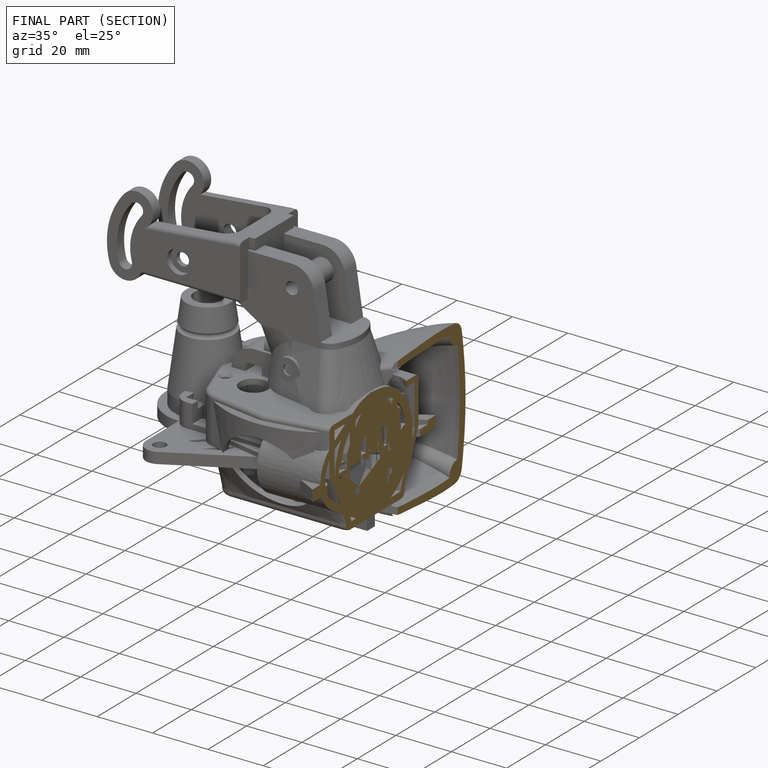
[diagram: finished part — half-section view (interior)]
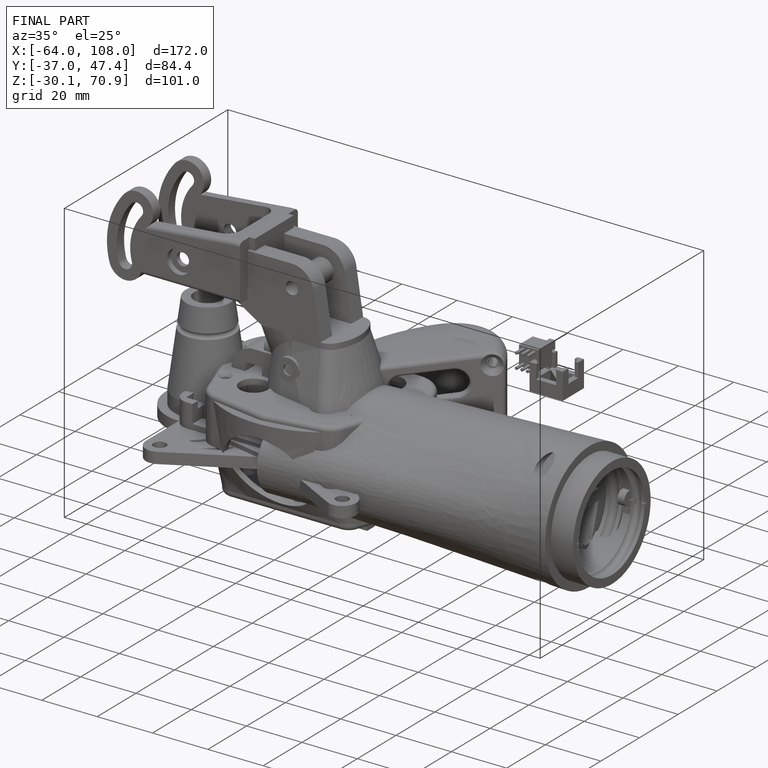
[diagram: finished part — iso view with bounding-box wireframe]
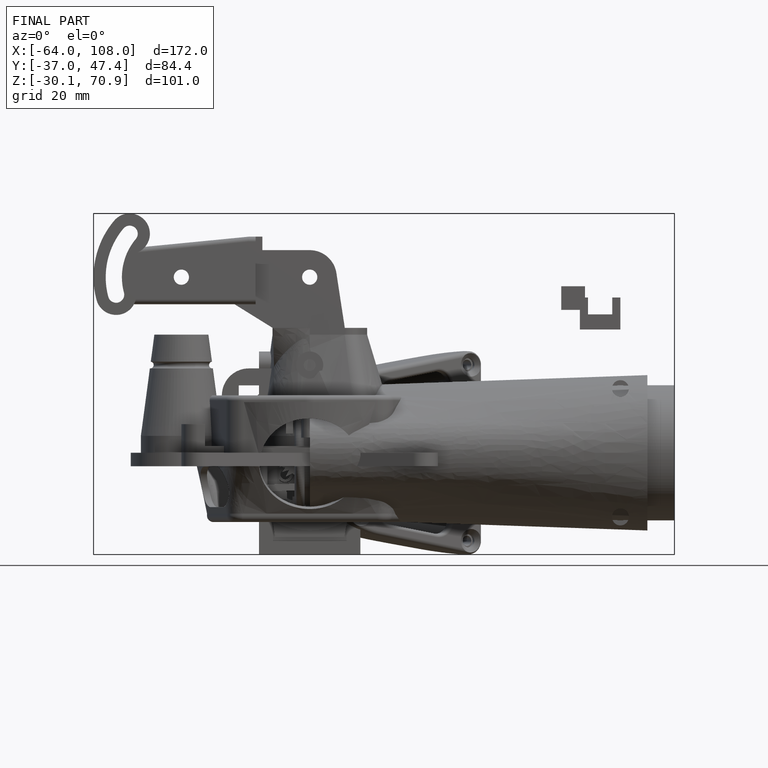
[diagram: finished part — front view with bounding-box wireframe]
